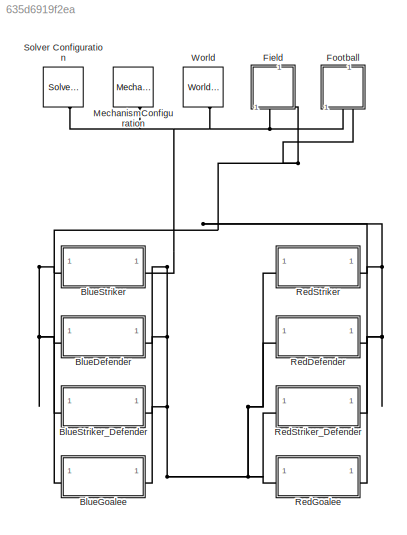
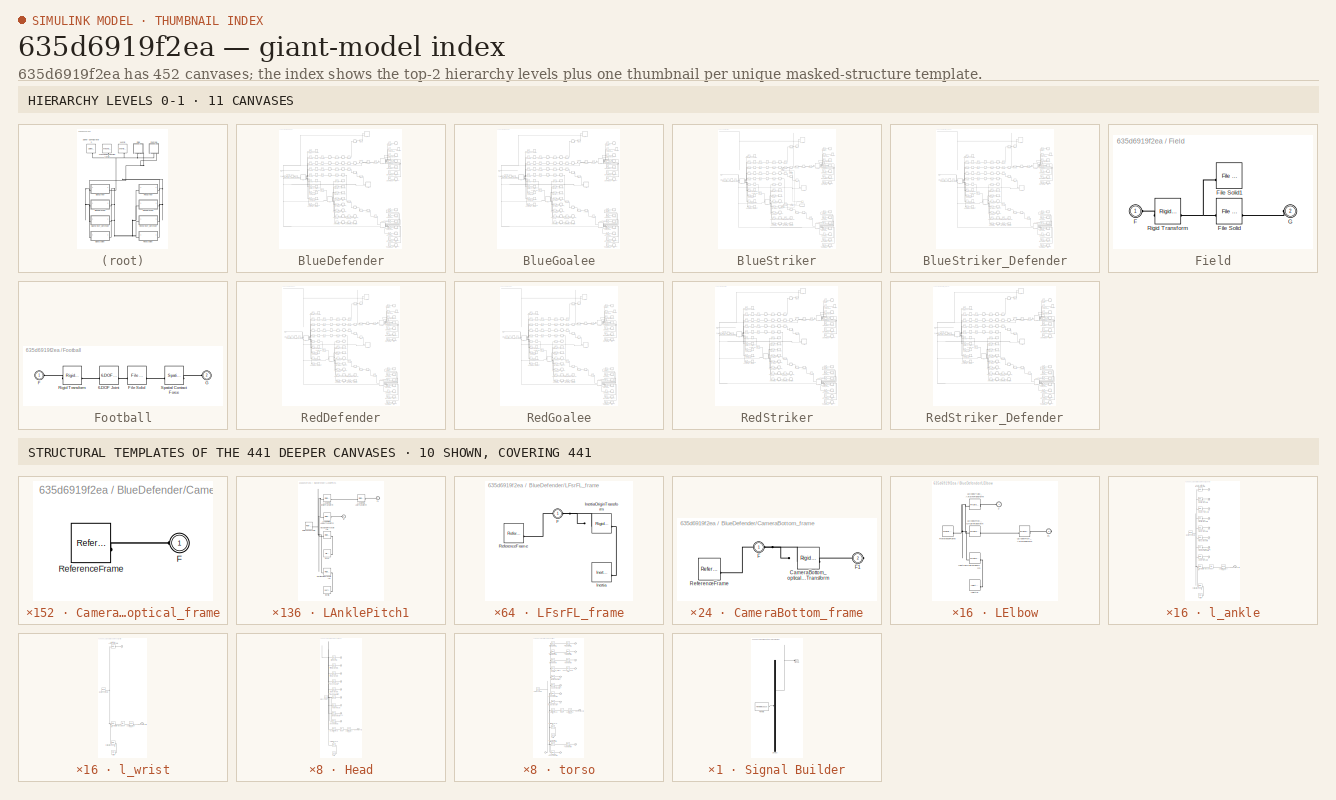
[diagram: thumbnail index - top-2 hierarchy levels (11 canvases) + 10 structural-template representatives of the remaining 441 canvases]
MODEL slx_635d6919f2ea
KIND model
CONFIG AbsTol = auto
CONFIG EnableMultiTasking = off
CONFIG FixedStep = auto
CONFIG MaxStep = auto
CONFIG MinStep = auto
CONFIG RelTol = 1e-3
CONFIG SampleTimeConstraint = Unconstrained
CONFIG SolverName = VariableStepAuto
CONFIG StartTime = 0.0
CONFIG StopTime = 200
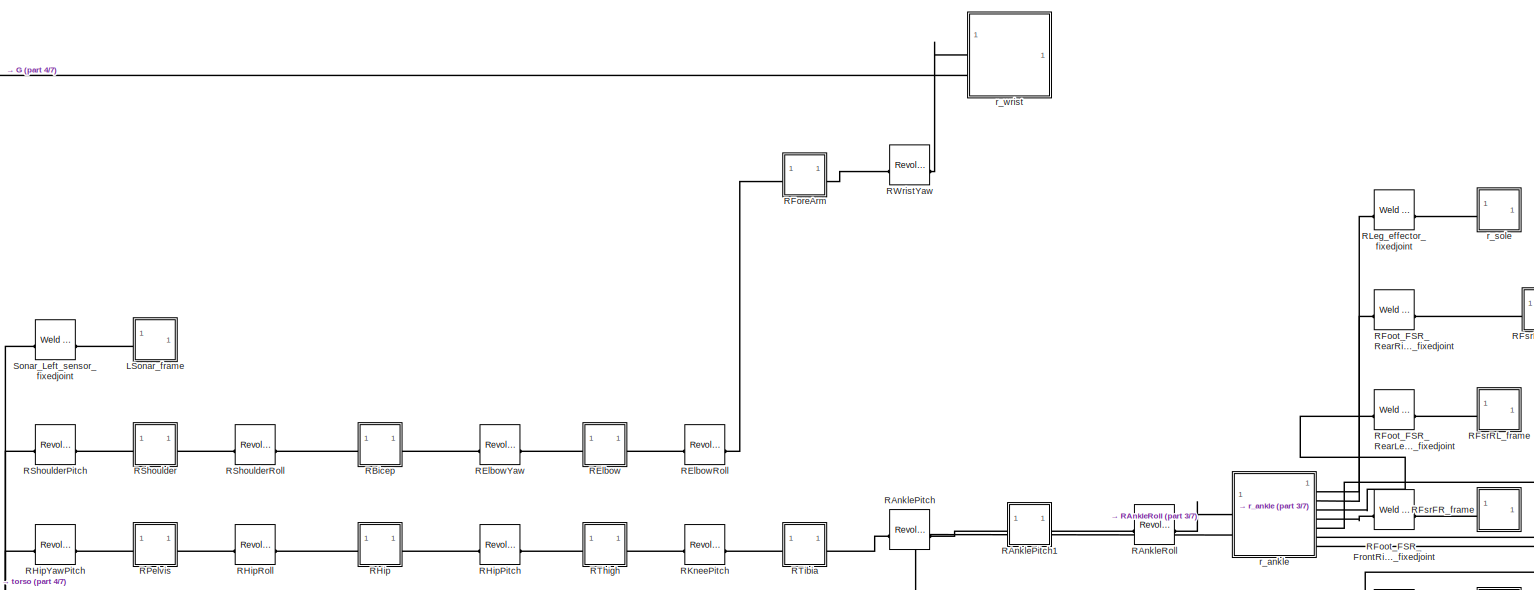
[diagram: BlueDefender - part 1/7, full width, top band]
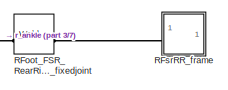
[diagram: BlueDefender - part 2/7, top right region]
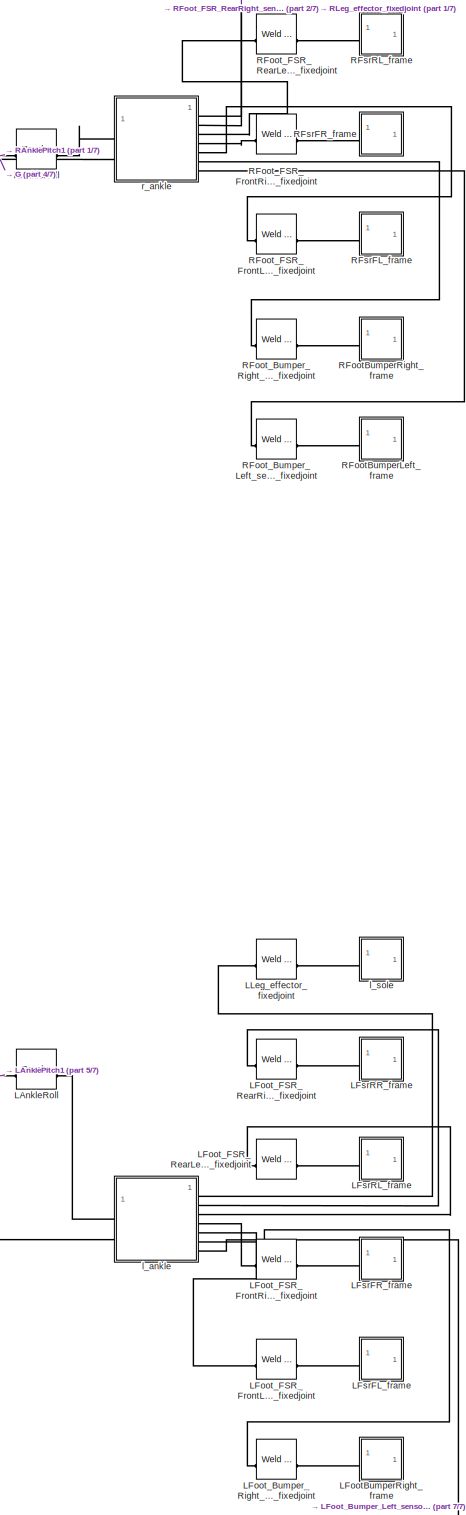
[diagram: BlueDefender - part 3/7, right side, full height]
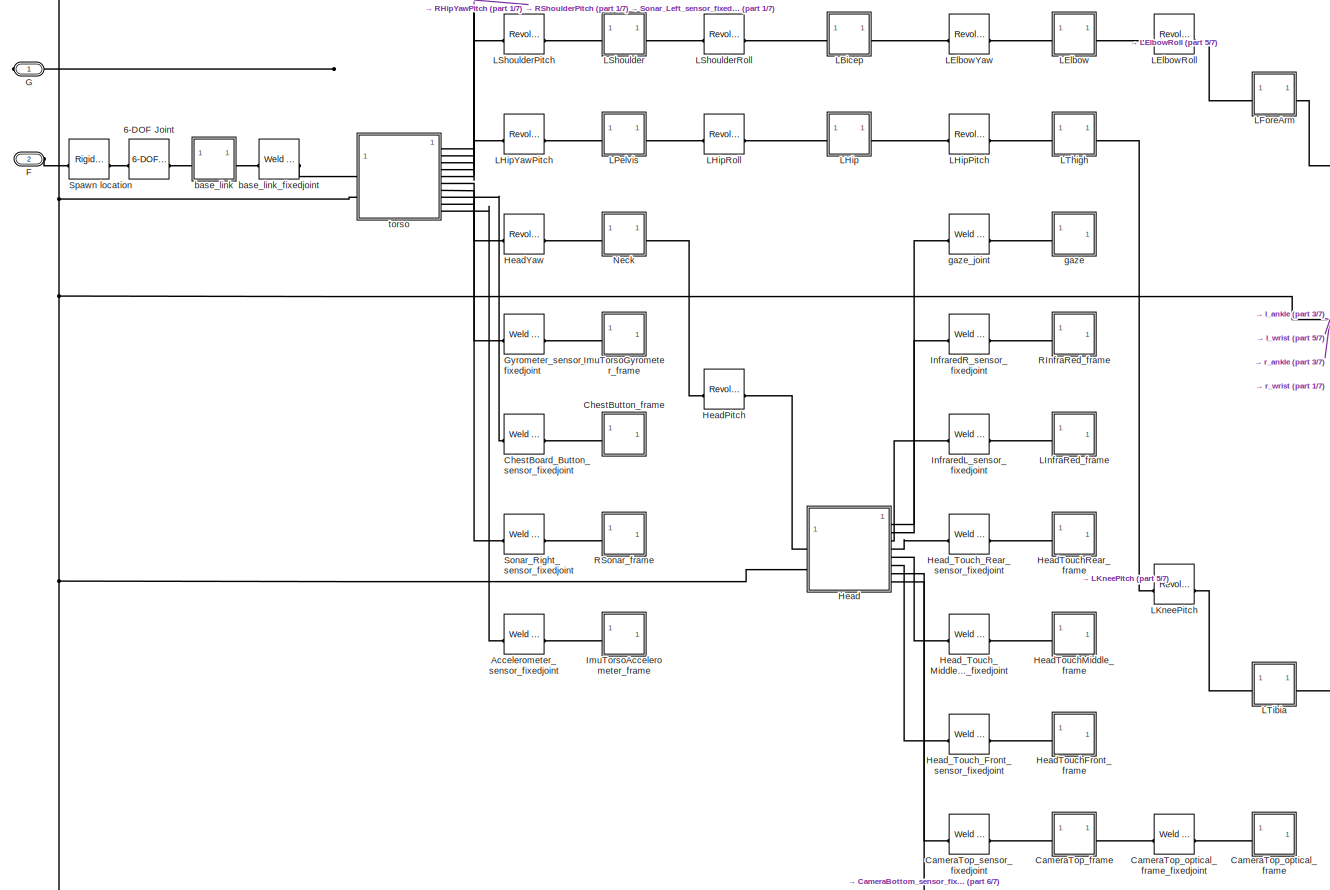
[diagram: BlueDefender - part 4/7, middle left region]
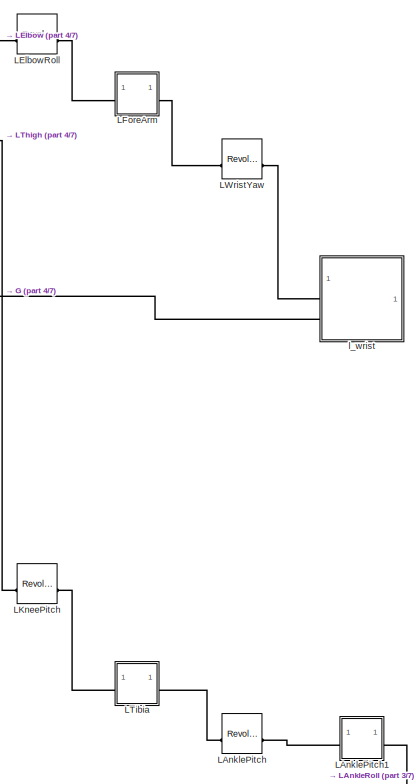
[diagram: BlueDefender - part 5/7, central region]
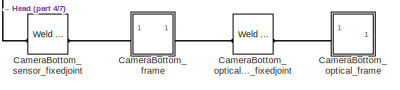
[diagram: BlueDefender - part 6/7, bottom center region]
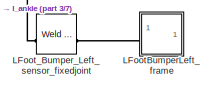
[diagram: BlueDefender - part 7/7, bottom right region]
BLOCK [SubSystem] BlueDefender
BLOCK [Reference] BlueDefender/6-DOF Joint  REF=sm_lib/Joints/6-DOF Joint
  SourceBlock = sm_lib/Joints/6-DOF Joint
  SourceType = 6-DOF Joint
BLOCK [Reference] BlueDefender/Accelerometer_sensor_fixedjoint  REF=sm_lib/Joints/Weld Joint
  SourceBlock = sm_lib/Joints/Weld Joint
  SourceType = Weld Joint
BLOCK [SubSystem] BlueDefender/CameraBottom_frame
BLOCK [Reference] BlueDefender/CameraBottom_frame/CameraBottom_optical_frame_fixedjoint_OriginTransform  REF=sm_lib/Frames and
Transforms/Rigid
Transform
  SourceBlock = sm_lib/Frames and\nTransforms/Rigid\nTransform
  SourceType = Rigid\nTransform
BLOCK [PMIOPort] BlueDefender/CameraBottom_frame/F
  Side = Left
BLOCK [PMIOPort] BlueDefender/CameraBottom_frame/F1
  Port = 2
  Side = Right
BLOCK [Reference] BlueDefender/CameraBottom_frame/ReferenceFrame  REF=sm_lib/Frames and
Transforms/Reference
Frame
  SourceBlock = sm_lib/Frames and\nTransforms/Reference\nFrame
  SourceType = Reference\nFrame
BLOCK [SubSystem] BlueDefender/CameraBottom_optical_frame
BLOCK [PMIOPort] BlueDefender/CameraBottom_optical_frame/F
  Side = Left
BLOCK [Reference] BlueDefender/CameraBottom_optical_frame/ReferenceFrame  REF=sm_lib/Frames and
Transforms/Reference
Frame
  SourceBlock = sm_lib/Frames and\nTransforms/Reference\nFrame
  SourceType = Reference\nFrame
BLOCK [Reference] BlueDefender/CameraBottom_optical_frame_fixedjoint  REF=sm_lib/Joints/Weld Joint
  SourceBlock = sm_lib/Joints/Weld Joint
  SourceType = Weld Joint
BLOCK [Reference] BlueDefender/CameraBottom_sensor_fixedjoint  REF=sm_lib/Joints/Weld Joint
  SourceBlock = sm_lib/Joints/Weld Joint
  SourceType = Weld Joint
BLOCK [SubSystem] BlueDefender/CameraTop_frame
BLOCK [Reference] BlueDefender/CameraTop_frame/CameraTop_optical_frame_fixedjoint_OriginTransform  REF=sm_lib/Frames and
Transforms/Rigid
Transform
  SourceBlock = sm_lib/Frames and\nTransforms/Rigid\nTransform
  SourceType = Rigid\nTransform
BLOCK [PMIOPort] BlueDefender/CameraTop_frame/F
  Side = Left
BLOCK [PMIOPort] BlueDefender/CameraTop_frame/F1
  Port = 2
  Side = Right
BLOCK [Reference] BlueDefender/CameraTop_frame/ReferenceFrame  REF=sm_lib/Frames and
Transforms/Reference
Frame
  SourceBlock = sm_lib/Frames and\nTransforms/Reference\nFrame
  SourceType = Reference\nFrame
BLOCK [SubSystem] BlueDefender/CameraTop_optical_frame
BLOCK [PMIOPort] BlueDefender/CameraTop_optical_frame/F
  Side = Left
BLOCK [Reference] BlueDefender/CameraTop_optical_frame/ReferenceFrame  REF=sm_lib/Frames and
Transforms/Reference
Frame
  SourceBlock = sm_lib/Frames and\nTransforms/Reference\nFrame
  SourceType = Reference\nFrame
BLOCK [Reference] BlueDefender/CameraTop_optical_frame_fixedjoint  REF=sm_lib/Joints/Weld Joint
  SourceBlock = sm_lib/Joints/Weld Joint
  SourceType = Weld Joint
BLOCK [Reference] BlueDefender/CameraTop_sensor_fixedjoint  REF=sm_lib/Joints/Weld Joint
  SourceBlock = sm_lib/Joints/Weld Joint
  SourceType = Weld Joint
BLOCK [Reference] BlueDefender/ChestBoard_Button_sensor_fixedjoint  REF=sm_lib/Joints/Weld Joint
  SourceBlock = sm_lib/Joints/Weld Joint
  SourceType = Weld Joint
BLOCK [SubSystem] BlueDefender/ChestButton_frame
BLOCK [PMIOPort] BlueDefender/ChestButton_frame/F
  Side = Left
BLOCK [Reference] BlueDefender/ChestButton_frame/ReferenceFrame  REF=sm_lib/Frames and
Transforms/Reference
Frame
  SourceBlock = sm_lib/Frames and\nTransforms/Reference\nFrame
  SourceType = Reference\nFrame
BLOCK [PMIOPort] BlueDefender/F
  Port = 2
  Side = Left
BLOCK [PMIOPort] BlueDefender/G
  Side = Right
BLOCK [Reference] BlueDefender/Gyrometer_sensor_fixedjoint  REF=sm_lib/Joints/Weld Joint
  SourceBlock = sm_lib/Joints/Weld Joint
  SourceType = Weld Joint
BLOCK [SubSystem] BlueDefender/Head
BLOCK [Reference] BlueDefender/Head/CameraBottom_sensor_fixedjoint_OriginTransform  REF=sm_lib/Frames and
Transforms/Rigid
Transform
  SourceBlock = sm_lib/Frames and\nTransforms/Rigid\nTransform
  SourceType = Rigid\nTransform
BLOCK [Reference] BlueDefender/Head/CameraTop_sensor_fixedjoint_OriginTransform  REF=sm_lib/Frames and
Transforms/Rigid
Transform
  SourceBlock = sm_lib/Frames and\nTransforms/Rigid\nTransform
  SourceType = Rigid\nTransform
BLOCK [PMIOPort] BlueDefender/Head/Connection Port1
  NameLocation = top
  Port = 10
  Side = Left
BLOCK [PMIOPort] BlueDefender/Head/F
  Side = Left
BLOCK [PMIOPort] BlueDefender/Head/F1
  Port = 9
  Side = Right
BLOCK [PMIOPort] BlueDefender/Head/F2
  Port = 8
  Side = Right
BLOCK [PMIOPort] BlueDefender/Head/F3
  Port = 7
  Side = Right
BLOCK [PMIOPort] BlueDefender/Head/F4
  Port = 6
  Side = Right
BLOCK [PMIOPort] BlueDefender/Head/F5
  Port = 5
  Side = Right
BLOCK [PMIOPort] BlueDefender/Head/F6
  Port = 4
  Side = Right
BLOCK [PMIOPort] BlueDefender/Head/F7
  Port = 3
  Side = Right
BLOCK [PMIOPort] BlueDefender/Head/F8
  Port = 2
  Side = Right
BLOCK [Reference] BlueDefender/Head/HeadPitch_AxisInvTransform  REF=sm_lib/Frames and
Transforms/Rigid
Transform
  SourceBlock = sm_lib/Frames and\nTransforms/Rigid\nTransform
  SourceType = Rigid\nTransform
BLOCK [Reference] BlueDefender/Head/Head_Touch_Front_sensor_fixedjoint_OriginTransform  REF=sm_lib/Frames and
Transforms/Rigid
Transform
  SourceBlock = sm_lib/Frames and\nTransforms/Rigid\nTransform
  SourceType = Rigid\nTransform
BLOCK [Reference] BlueDefender/Head/Head_Touch_Middle_sensor_fixedjoint_OriginTransform  REF=sm_lib/Frames and
Transforms/Rigid
Transform
  SourceBlock = sm_lib/Frames and\nTransforms/Rigid\nTransform
  SourceType = Rigid\nTransform
BLOCK [Reference] BlueDefender/Head/Head_Touch_Rear_sensor_fixedjoint_OriginTransform  REF=sm_lib/Frames and
Transforms/Rigid
Transform
  SourceBlock = sm_lib/Frames and\nTransforms/Rigid\nTransform
  SourceType = Rigid\nTransform
BLOCK [Reference] BlueDefender/Head/Inertia  REF=sm_lib/Body Elements/Inertia
  SourceBlock = sm_lib/Body Elements/Inertia
  SourceType = Inertia
BLOCK [Reference] BlueDefender/Head/InertiaOriginTransform  REF=sm_lib/Frames and
Transforms/Rigid
Transform
  SourceBlock = sm_lib/Frames and\nTransforms/Rigid\nTransform
  SourceType = Rigid\nTransform
BLOCK [Reference] BlueDefender/Head/InfraredL_sensor_fixedjoint_OriginTransform  REF=sm_lib/Frames and
Transforms/Rigid
Transform
  SourceBlock = sm_lib/Frames and\nTransforms/Rigid\nTransform
  SourceType = Rigid\nTransform
BLOCK [Reference] BlueDefender/Head/InfraredR_sensor_fixedjoint_OriginTransform  REF=sm_lib/Frames and
Transforms/Rigid
Transform
  SourceBlock = sm_lib/Frames and\nTransforms/Rigid\nTransform
  SourceType = Rigid\nTransform
BLOCK [Reference] BlueDefender/Head/ReferenceFrame  REF=sm_lib/Frames and
Transforms/Reference
Frame
  SourceBlock = sm_lib/Frames and\nTransforms/Reference\nFrame
  SourceType = Reference\nFrame
BLOCK [Reference] BlueDefender/Head/Spatial Contact Force4  REF=sm_lib/Forces and
Torques/Spatial
Contact Force
  NameLocation = top
  SourceBlock = sm_lib/Forces and\nTorques/Spatial\nContact Force
  SourceType = Spatial\nContact Force
BLOCK [Reference] BlueDefender/Head/Visual  REF=sm_lib/Body Elements/File Solid
  NameLocation = top
  SourceBlock = sm_lib/Body Elements/File Solid
  SourceType = File Solid
BLOCK [Reference] BlueDefender/Head/VisualOriginTransform  REF=sm_lib/Frames and
Transforms/Rigid
Transform
  SourceBlock = sm_lib/Frames and\nTransforms/Rigid\nTransform
  SourceType = Rigid\nTransform
BLOCK [Reference] BlueDefender/Head/gaze_joint_OriginTransform  REF=sm_lib/Frames and
Transforms/Rigid
Transform
  SourceBlock = sm_lib/Frames and\nTransforms/Rigid\nTransform
  SourceType = Rigid\nTransform
BLOCK [Reference] BlueDefender/HeadPitch  REF=sm_lib/Joints/Revolute Joint
  SourceBlock = sm_lib/Joints/Revolute Joint
  SourceType = Revolute Joint
BLOCK [SubSystem] BlueDefender/HeadTouchFront_frame
BLOCK [PMIOPort] BlueDefender/HeadTouchFront_frame/F
  Side = Left
BLOCK [Reference] BlueDefender/HeadTouchFront_frame/ReferenceFrame  REF=sm_lib/Frames and
Transforms/Reference
Frame
  SourceBlock = sm_lib/Frames and\nTransforms/Reference\nFrame
  SourceType = Reference\nFrame
BLOCK [SubSystem] BlueDefender/HeadTouchMiddle_frame
BLOCK [PMIOPort] BlueDefender/HeadTouchMiddle_frame/F
  Side = Left
BLOCK [Reference] BlueDefender/HeadTouchMiddle_frame/ReferenceFrame  REF=sm_lib/Frames and
Transforms/Reference
Frame
  SourceBlock = sm_lib/Frames and\nTransforms/Reference\nFrame
  SourceType = Reference\nFrame
BLOCK [SubSystem] BlueDefender/HeadTouchRear_frame
BLOCK [PMIOPort] BlueDefender/HeadTouchRear_frame/F
  Side = Left
BLOCK [Reference] BlueDefender/HeadTouchRear_frame/ReferenceFrame  REF=sm_lib/Frames and
Transforms/Reference
Frame
  SourceBlock = sm_lib/Frames and\nTransforms/Reference\nFrame
  SourceType = Reference\nFrame
BLOCK [Reference] BlueDefender/HeadYaw  REF=sm_lib/Joints/Revolute Joint
  SourceBlock = sm_lib/Joints/Revolute Joint
  SourceType = Revolute Joint
BLOCK [Reference] BlueDefender/Head_Touch_Front_sensor_fixedjoint  REF=sm_lib/Joints/Weld Joint
  SourceBlock = sm_lib/Joints/Weld Joint
  SourceType = Weld Joint
BLOCK [Reference] BlueDefender/Head_Touch_Middle_sensor_fixedjoint  REF=sm_lib/Joints/Weld Joint
  SourceBlock = sm_lib/Joints/Weld Joint
  SourceType = Weld Joint
BLOCK [Reference] BlueDefender/Head_Touch_Rear_sensor_fixedjoint  REF=sm_lib/Joints/Weld Joint
  SourceBlock = sm_lib/Joints/Weld Joint
  SourceType = Weld Joint
BLOCK [SubSystem] BlueDefender/ImuTorsoAccelerometer_frame
BLOCK [PMIOPort] BlueDefender/ImuTorsoAccelerometer_frame/F
  Side = Left
BLOCK [Reference] BlueDefender/ImuTorsoAccelerometer_frame/ReferenceFrame  REF=sm_lib/Frames and
Transforms/Reference
Frame
  SourceBlock = sm_lib/Frames and\nTransforms/Reference\nFrame
  SourceType = Reference\nFrame
BLOCK [SubSystem] BlueDefender/ImuTorsoGyrometer_frame
BLOCK [PMIOPort] BlueDefender/ImuTorsoGyrometer_frame/F
  Side = Left
BLOCK [Reference] BlueDefender/ImuTorsoGyrometer_frame/ReferenceFrame  REF=sm_lib/Frames and
Transforms/Reference
Frame
  SourceBlock = sm_lib/Frames and\nTransforms/Reference\nFrame
  SourceType = Reference\nFrame
BLOCK [Reference] BlueDefender/InfraredL_sensor_fixedjoint  REF=sm_lib/Joints/Weld Joint
  SourceBlock = sm_lib/Joints/Weld Joint
  SourceType = Weld Joint
BLOCK [Reference] BlueDefender/InfraredR_sensor_fixedjoint  REF=sm_lib/Joints/Weld Joint
  SourceBlock = sm_lib/Joints/Weld Joint
  SourceType = Weld Joint
BLOCK [Reference] BlueDefender/LAnklePitch  REF=sm_lib/Joints/Revolute Joint
  SourceBlock = sm_lib/Joints/Revolute Joint
  SourceType = Revolute Joint
BLOCK [SubSystem] BlueDefender/LAnklePitch1
BLOCK [PMIOPort] BlueDefender/LAnklePitch1/F
  Side = Left
BLOCK [PMIOPort] BlueDefender/LAnklePitch1/F1
  Port = 2
  Side = Right
BLOCK [Reference] BlueDefender/LAnklePitch1/Inertia  REF=sm_lib/Body Elements/Inertia
  SourceBlock = sm_lib/Body Elements/Inertia
  SourceType = Inertia
BLOCK [Reference] BlueDefender/LAnklePitch1/InertiaOriginTransform  REF=sm_lib/Frames and
Transforms/Rigid
Transform
  SourceBlock = sm_lib/Frames and\nTransforms/Rigid\nTransform
  SourceType = Rigid\nTransform
BLOCK [Reference] BlueDefender/LAnklePitch1/LAnklePitch_AxisInvTransform  REF=sm_lib/Frames and
Transforms/Rigid
Transform
  SourceBlock = sm_lib/Frames and\nTransforms/Rigid\nTransform
  SourceType = Rigid\nTransform
BLOCK [Reference] BlueDefender/LAnklePitch1/LAnkleRoll_AxisTransform  REF=sm_lib/Frames and
Transforms/Rigid
Transform
  SourceBlock = sm_lib/Frames and\nTransforms/Rigid\nTransform
  SourceType = Rigid\nTransform
BLOCK [Reference] BlueDefender/LAnklePitch1/LAnkleRoll_OriginTransform  REF=sm_lib/Frames and
Transforms/Rigid
Transform
  SourceBlock = sm_lib/Frames and\nTransforms/Rigid\nTransform
  SourceType = Rigid\nTransform
BLOCK [Reference] BlueDefender/LAnklePitch1/ReferenceFrame  REF=sm_lib/Frames and
Transforms/Reference
Frame
  SourceBlock = sm_lib/Frames and\nTransforms/Reference\nFrame
  SourceType = Reference\nFrame
BLOCK [Reference] BlueDefender/LAnklePitch1/Visual  REF=sm_lib/Body Elements/File Solid
  SourceBlock = sm_lib/Body Elements/File Solid
  SourceType = File Solid
BLOCK [Reference] BlueDefender/LAnklePitch1/VisualOriginTransform  REF=sm_lib/Frames and
Transforms/Rigid
Transform
  SourceBlock = sm_lib/Frames and\nTransforms/Rigid\nTransform
  SourceType = Rigid\nTransform
BLOCK [Reference] BlueDefender/LAnkleRoll  REF=sm_lib/Joints/Revolute Joint
  SourceBlock = sm_lib/Joints/Revolute Joint
  SourceType = Revolute Joint
BLOCK [SubSystem] BlueDefender/LBicep
BLOCK [PMIOPort] BlueDefender/LBicep/F
  Side = Left
BLOCK [PMIOPort] BlueDefender/LBicep/F1
  Port = 2
  Side = Right
BLOCK [Reference] BlueDefender/LBicep/Inertia  REF=sm_lib/Body Elements/Inertia
  SourceBlock = sm_lib/Body Elements/Inertia
  SourceType = Inertia
BLOCK [Reference] BlueDefender/LBicep/InertiaOriginTransform  REF=sm_lib/Frames and
Transforms/Rigid
Transform
  SourceBlock = sm_lib/Frames and\nTransforms/Rigid\nTransform
  SourceType = Rigid\nTransform
BLOCK [Reference] BlueDefender/LBicep/LElbowYaw_AxisTransform  REF=sm_lib/Frames and
Transforms/Rigid
Transform
  SourceBlock = sm_lib/Frames and\nTransforms/Rigid\nTransform
  SourceType = Rigid\nTransform
BLOCK [Reference] BlueDefender/LBicep/LElbowYaw_OriginTransform  REF=sm_lib/Frames and
Transforms/Rigid
Transform
  SourceBlock = sm_lib/Frames and\nTransforms/Rigid\nTransform
  SourceType = Rigid\nTransform
BLOCK [Reference] BlueDefender/LBicep/LShoulderRoll_AxisInvTransform  REF=sm_lib/Frames and
Transforms/Rigid
Transform
  SourceBlock = sm_lib/Frames and\nTransforms/Rigid\nTransform
  SourceType = Rigid\nTransform
BLOCK [Reference] BlueDefender/LBicep/ReferenceFrame  REF=sm_lib/Frames and
Transforms/Reference
Frame
  SourceBlock = sm_lib/Frames and\nTransforms/Reference\nFrame
  SourceType = Reference\nFrame
BLOCK [Reference] BlueDefender/LBicep/Visual  REF=sm_lib/Body Elements/File Solid
  SourceBlock = sm_lib/Body Elements/File Solid
  SourceType = File Solid
BLOCK [Reference] BlueDefender/LBicep/VisualOriginTransform  REF=sm_lib/Frames and
Transforms/Rigid
Transform
  SourceBlock = sm_lib/Frames and\nTransforms/Rigid\nTransform
  SourceType = Rigid\nTransform
BLOCK [SubSystem] BlueDefender/LElbow
BLOCK [PMIOPort] BlueDefender/LElbow/F
  Side = Left
BLOCK [PMIOPort] BlueDefender/LElbow/F1
  Port = 2
  Side = Right
BLOCK [Reference] BlueDefender/LElbow/Inertia  REF=sm_lib/Body Elements/Inertia
  SourceBlock = sm_lib/Body Elements/Inertia
  SourceType = Inertia
BLOCK [Reference] BlueDefender/LElbow/InertiaOriginTransform  REF=sm_lib/Frames and
Transforms/Rigid
Transform
  SourceBlock = sm_lib/Frames and\nTransforms/Rigid\nTransform
  SourceType = Rigid\nTransform
BLOCK [Reference] BlueDefender/LElbow/LElbowRoll_AxisTransform  REF=sm_lib/Frames and
Transforms/Rigid
Transform
  SourceBlock = sm_lib/Frames and\nTransforms/Rigid\nTransform
  SourceType = Rigid\nTransform
BLOCK [Reference] BlueDefender/LElbow/LElbowRoll_OriginTransform  REF=sm_lib/Frames and
Transforms/Rigid
Transform
  SourceBlock = sm_lib/Frames and\nTransforms/Rigid\nTransform
  SourceType = Rigid\nTransform
BLOCK [Reference] BlueDefender/LElbow/LElbowYaw_AxisInvTransform  REF=sm_lib/Frames and
Transforms/Rigid
Transform
  SourceBlock = sm_lib/Frames and\nTransforms/Rigid\nTransform
  SourceType = Rigid\nTransform
BLOCK [Reference] BlueDefender/LElbow/ReferenceFrame  REF=sm_lib/Frames and
Transforms/Reference
Frame
  SourceBlock = sm_lib/Frames and\nTransforms/Reference\nFrame
  SourceType = Reference\nFrame
BLOCK [Reference] BlueDefender/LElbowRoll  REF=sm_lib/Joints/Revolute Joint
  SourceBlock = sm_lib/Joints/Revolute Joint
  SourceType = Revolute Joint
BLOCK [Reference] BlueDefender/LElbowYaw  REF=sm_lib/Joints/Revolute Joint
  SourceBlock = sm_lib/Joints/Revolute Joint
  SourceType = Revolute Joint
BLOCK [SubSystem] BlueDefender/LFootBumperLeft_frame
BLOCK [PMIOPort] BlueDefender/LFootBumperLeft_frame/F
  Side = Left
BLOCK [Reference] BlueDefender/LFootBumperLeft_frame/ReferenceFrame  REF=sm_lib/Frames and
Transforms/Reference
Frame
  SourceBlock = sm_lib/Frames and\nTransforms/Reference\nFrame
  SourceType = Reference\nFrame
BLOCK [SubSystem] BlueDefender/LFootBumperRight_frame
BLOCK [PMIOPort] BlueDefender/LFootBumperRight_frame/F
  Side = Left
BLOCK [Reference] BlueDefender/LFootBumperRight_frame/ReferenceFrame  REF=sm_lib/Frames and
Transforms/Reference
Frame
  SourceBlock = sm_lib/Frames and\nTransforms/Reference\nFrame
  SourceType = Reference\nFrame
BLOCK [Reference] BlueDefender/LFoot_Bumper_Left_sensor_fixedjoint  REF=sm_lib/Joints/Weld Joint
  SourceBlock = sm_lib/Joints/Weld Joint
  SourceType = Weld Joint
BLOCK [Reference] BlueDefender/LFoot_Bumper_Right_sensor_fixedjoint  REF=sm_lib/Joints/Weld Joint
  SourceBlock = sm_lib/Joints/Weld Joint
  SourceType = Weld Joint
BLOCK [Reference] BlueDefender/LFoot_FSR_FrontLeft_sensor_fixedjoint  REF=sm_lib/Joints/Weld Joint
  SourceBlock = sm_lib/Joints/Weld Joint
  SourceType = Weld Joint
BLOCK [Reference] BlueDefender/LFoot_FSR_FrontRight_sensor_fixedjoint  REF=sm_lib/Joints/Weld Joint
  SourceBlock = sm_lib/Joints/Weld Joint
  SourceType = Weld Joint
BLOCK [Reference] BlueDefender/LFoot_FSR_RearLeft_sensor_fixedjoint  REF=sm_lib/Joints/Weld Joint
  SourceBlock = sm_lib/Joints/Weld Joint
  SourceType = Weld Joint
BLOCK [Reference] BlueDefender/LFoot_FSR_RearRight_sensor_fixedjoint  REF=sm_lib/Joints/Weld Joint
  SourceBlock = sm_lib/Joints/Weld Joint
  SourceType = Weld Joint
BLOCK [SubSystem] BlueDefender/LForeArm
BLOCK [PMIOPort] BlueDefender/LForeArm/F
  Side = Left
BLOCK [PMIOPort] BlueDefender/LForeArm/F1
  Port = 2
  Side = Right
BLOCK [Reference] BlueDefender/LForeArm/Inertia  REF=sm_lib/Body Elements/Inertia
  SourceBlock = sm_lib/Body Elements/Inertia
  SourceType = Inertia
BLOCK [Reference] BlueDefender/LForeArm/InertiaOriginTransform  REF=sm_lib/Frames and
Transforms/Rigid
Transform
  SourceBlock = sm_lib/Frames and\nTransforms/Rigid\nTransform
  SourceType = Rigid\nTransform
BLOCK [Reference] BlueDefender/LForeArm/LElbowRoll_AxisInvTransform  REF=sm_lib/Frames and
Transforms/Rigid
Transform
  SourceBlock = sm_lib/Frames and\nTransforms/Rigid\nTransform
  SourceType = Rigid\nTransform
BLOCK [Reference] BlueDefender/LForeArm/LWristYaw_AxisTransform  REF=sm_lib/Frames and
Transforms/Rigid
Transform
  SourceBlock = sm_lib/Frames and\nTransforms/Rigid\nTransform
  SourceType = Rigid\nTransform
BLOCK [Reference] BlueDefender/LForeArm/LWristYaw_OriginTransform  REF=sm_lib/Frames and
Transforms/Rigid
Transform
  SourceBlock = sm_lib/Frames and\nTransforms/Rigid\nTransform
  SourceType = Rigid\nTransform
BLOCK [Reference] BlueDefender/LForeArm/ReferenceFrame  REF=sm_lib/Frames and
Transforms/Reference
Frame
  SourceBlock = sm_lib/Frames and\nTransforms/Reference\nFrame
  SourceType = Reference\nFrame
BLOCK [Reference] BlueDefender/LForeArm/Visual  REF=sm_lib/Body Elements/File Solid
  SourceBlock = sm_lib/Body Elements/File Solid
  SourceType = File Solid
BLOCK [Reference] BlueDefender/LForeArm/VisualOriginTransform  REF=sm_lib/Frames and
Transforms/Rigid
Transform
  SourceBlock = sm_lib/Frames and\nTransforms/Rigid\nTransform
  SourceType = Rigid\nTransform
BLOCK [SubSystem] BlueDefender/LFsrFL_frame
BLOCK [PMIOPort] BlueDefender/LFsrFL_frame/F
  Side = Left
BLOCK [Reference] BlueDefender/LFsrFL_frame/Inertia  REF=sm_lib/Body Elements/Inertia
  SourceBlock = sm_lib/Body Elements/Inertia
  SourceType = Inertia
BLOCK [Reference] BlueDefender/LFsrFL_frame/InertiaOriginTransform  REF=sm_lib/Frames and
Transforms/Rigid
Transform
  SourceBlock = sm_lib/Frames and\nTransforms/Rigid\nTransform
  SourceType = Rigid\nTransform
BLOCK [Reference] BlueDefender/LFsrFL_frame/ReferenceFrame  REF=sm_lib/Frames and
Transforms/Reference
Frame
  SourceBlock = sm_lib/Frames and\nTransforms/Reference\nFrame
  SourceType = Reference\nFrame
BLOCK [SubSystem] BlueDefender/LFsrFR_frame
BLOCK [PMIOPort] BlueDefender/LFsrFR_frame/F
  Side = Left
BLOCK [Reference] BlueDefender/LFsrFR_frame/Inertia  REF=sm_lib/Body Elements/Inertia
  SourceBlock = sm_lib/Body Elements/Inertia
  SourceType = Inertia
BLOCK [Reference] BlueDefender/LFsrFR_frame/InertiaOriginTransform  REF=sm_lib/Frames and
Transforms/Rigid
Transform
  SourceBlock = sm_lib/Frames and\nTransforms/Rigid\nTransform
  SourceType = Rigid\nTransform
BLOCK [Reference] BlueDefender/LFsrFR_frame/ReferenceFrame  REF=sm_lib/Frames and
Transforms/Reference
Frame
  SourceBlock = sm_lib/Frames and\nTransforms/Reference\nFrame
  SourceType = Reference\nFrame
BLOCK [SubSystem] BlueDefender/LFsrRL_frame
BLOCK [PMIOPort] BlueDefender/LFsrRL_frame/F
  Side = Left
BLOCK [Reference] BlueDefender/LFsrRL_frame/Inertia  REF=sm_lib/Body Elements/Inertia
  SourceBlock = sm_lib/Body Elements/Inertia
  SourceType = Inertia
BLOCK [Reference] BlueDefender/LFsrRL_frame/InertiaOriginTransform  REF=sm_lib/Frames and
Transforms/Rigid
Transform
  SourceBlock = sm_lib/Frames and\nTransforms/Rigid\nTransform
  SourceType = Rigid\nTransform
BLOCK [Reference] BlueDefender/LFsrRL_frame/ReferenceFrame  REF=sm_lib/Frames and
Transforms/Reference
Frame
  SourceBlock = sm_lib/Frames and\nTransforms/Reference\nFrame
  SourceType = Reference\nFrame
BLOCK [SubSystem] BlueDefender/LFsrRR_frame
BLOCK [PMIOPort] BlueDefender/LFsrRR_frame/F
  Side = Left
BLOCK [Reference] BlueDefender/LFsrRR_frame/Inertia  REF=sm_lib/Body Elements/Inertia
  SourceBlock = sm_lib/Body Elements/Inertia
  SourceType = Inertia
BLOCK [Reference] BlueDefender/LFsrRR_frame/InertiaOriginTransform  REF=sm_lib/Frames and
Transforms/Rigid
Transform
  SourceBlock = sm_lib/Frames and\nTransforms/Rigid\nTransform
  SourceType = Rigid\nTransform
BLOCK [Reference] BlueDefender/LFsrRR_frame/ReferenceFrame  REF=sm_lib/Frames and
Transforms/Reference
Frame
  SourceBlock = sm_lib/Frames and\nTransforms/Reference\nFrame
  SourceType = Reference\nFrame
BLOCK [SubSystem] BlueDefender/LHip
BLOCK [PMIOPort] BlueDefender/LHip/F
  Side = Left
BLOCK [PMIOPort] BlueDefender/LHip/F1
  Port = 2
  Side = Right
BLOCK [Reference] BlueDefender/LHip/Inertia  REF=sm_lib/Body Elements/Inertia
  SourceBlock = sm_lib/Body Elements/Inertia
  SourceType = Inertia
BLOCK [Reference] BlueDefender/LHip/InertiaOriginTransform  REF=sm_lib/Frames and
Transforms/Rigid
Transform
  SourceBlock = sm_lib/Frames and\nTransforms/Rigid\nTransform
  SourceType = Rigid\nTransform
BLOCK [Reference] BlueDefender/LHip/LHipPitch_AxisTransform  REF=sm_lib/Frames and
Transforms/Rigid
Transform
  SourceBlock = sm_lib/Frames and\nTransforms/Rigid\nTransform
  SourceType = Rigid\nTransform
BLOCK [Reference] BlueDefender/LHip/LHipPitch_OriginTransform  REF=sm_lib/Frames and
Transforms/Rigid
Transform
  SourceBlock = sm_lib/Frames and\nTransforms/Rigid\nTransform
  SourceType = Rigid\nTransform
BLOCK [Reference] BlueDefender/LHip/LHipRoll_AxisInvTransform  REF=sm_lib/Frames and
Transforms/Rigid
Transform
  SourceBlock = sm_lib/Frames and\nTransforms/Rigid\nTransform
  SourceType = Rigid\nTransform
BLOCK [Reference] BlueDefender/LHip/ReferenceFrame  REF=sm_lib/Frames and
Transforms/Reference
Frame
  SourceBlock = sm_lib/Frames and\nTransforms/Reference\nFrame
  SourceType = Reference\nFrame
BLOCK [Reference] BlueDefender/LHip/Visual  REF=sm_lib/Body Elements/File Solid
  SourceBlock = sm_lib/Body Elements/File Solid
  SourceType = File Solid
BLOCK [Reference] BlueDefender/LHip/VisualOriginTransform  REF=sm_lib/Frames and
Transforms/Rigid
Transform
  SourceBlock = sm_lib/Frames and\nTransforms/Rigid\nTransform
  SourceType = Rigid\nTransform
BLOCK [Reference] BlueDefender/LHipPitch  REF=sm_lib/Joints/Revolute Joint
  SourceBlock = sm_lib/Joints/Revolute Joint
  SourceType = Revolute Joint
BLOCK [Reference] BlueDefender/LHipRoll  REF=sm_lib/Joints/Revolute Joint
  SourceBlock = sm_lib/Joints/Revolute Joint
  SourceType = Revolute Joint
BLOCK [Reference] BlueDefender/LHipYawPitch  REF=sm_lib/Joints/Revolute Joint
  SourceBlock = sm_lib/Joints/Revolute Joint
  SourceType = Revolute Joint
BLOCK [SubSystem] BlueDefender/LInfraRed_frame
BLOCK [PMIOPort] BlueDefender/LInfraRed_frame/F
  Side = Left
BLOCK [Reference] BlueDefender/LInfraRed_frame/ReferenceFrame  REF=sm_lib/Frames and
Transforms/Reference
Frame
  SourceBlock = sm_lib/Frames and\nTransforms/Reference\nFrame
  SourceType = Reference\nFrame
BLOCK [Reference] BlueDefender/LKneePitch  REF=sm_lib/Joints/Revolute Joint
  SourceBlock = sm_lib/Joints/Revolute Joint
  SourceType = Revolute Joint
BLOCK [Reference] BlueDefender/LLeg_effector_fixedjoint  REF=sm_lib/Joints/Weld Joint
  SourceBlock = sm_lib/Joints/Weld Joint
  SourceType = Weld Joint
BLOCK [SubSystem] BlueDefender/LPelvis
BLOCK [PMIOPort] BlueDefender/LPelvis/F
  Side = Left
BLOCK [PMIOPort] BlueDefender/LPelvis/F1
  Port = 2
  Side = Right
BLOCK [Reference] BlueDefender/LPelvis/Inertia  REF=sm_lib/Body Elements/Inertia
  SourceBlock = sm_lib/Body Elements/Inertia
  SourceType = Inertia
BLOCK [Reference] BlueDefender/LPelvis/InertiaOriginTransform  REF=sm_lib/Frames and
Transforms/Rigid
Transform
  SourceBlock = sm_lib/Frames and\nTransforms/Rigid\nTransform
  SourceType = Rigid\nTransform
BLOCK [Reference] BlueDefender/LPelvis/LHipRoll_AxisTransform  REF=sm_lib/Frames and
Transforms/Rigid
Transform
  SourceBlock = sm_lib/Frames and\nTransforms/Rigid\nTransform
  SourceType = Rigid\nTransform
BLOCK [Reference] BlueDefender/LPelvis/LHipRoll_OriginTransform  REF=sm_lib/Frames and
Transforms/Rigid
Transform
  SourceBlock = sm_lib/Frames and\nTransforms/Rigid\nTransform
  SourceType = Rigid\nTransform
BLOCK [Reference] BlueDefender/LPelvis/LHipYawPitch_AxisInvTransform  REF=sm_lib/Frames and
Transforms/Rigid
Transform
  SourceBlock = sm_lib/Frames and\nTransforms/Rigid\nTransform
  SourceType = Rigid\nTransform
BLOCK [Reference] BlueDefender/LPelvis/ReferenceFrame  REF=sm_lib/Frames and
Transforms/Reference
Frame
  SourceBlock = sm_lib/Frames and\nTransforms/Reference\nFrame
  SourceType = Reference\nFrame
BLOCK [Reference] BlueDefender/LPelvis/Visual  REF=sm_lib/Body Elements/File Solid
  SourceBlock = sm_lib/Body Elements/File Solid
  SourceType = File Solid
BLOCK [Reference] BlueDefender/LPelvis/VisualOriginTransform  REF=sm_lib/Frames and
Transforms/Rigid
Transform
  SourceBlock = sm_lib/Frames and\nTransforms/Rigid\nTransform
  SourceType = Rigid\nTransform
BLOCK [SubSystem] BlueDefender/LShoulder
BLOCK [PMIOPort] BlueDefender/LShoulder/F
  Side = Left
BLOCK [PMIOPort] BlueDefender/LShoulder/F1
  Port = 2
  Side = Right
BLOCK [Reference] BlueDefender/LShoulder/Inertia  REF=sm_lib/Body Elements/Inertia
  SourceBlock = sm_lib/Body Elements/Inertia
  SourceType = Inertia
BLOCK [Reference] BlueDefender/LShoulder/InertiaOriginTransform  REF=sm_lib/Frames and
Transforms/Rigid
Transform
  SourceBlock = sm_lib/Frames and\nTransforms/Rigid\nTransform
  SourceType = Rigid\nTransform
BLOCK [Reference] BlueDefender/LShoulder/LShoulderPitch_AxisInvTransform  REF=sm_lib/Frames and
Transforms/Rigid
Transform
  SourceBlock = sm_lib/Frames and\nTransforms/Rigid\nTransform
  SourceType = Rigid\nTransform
BLOCK [Reference] BlueDefender/LShoulder/LShoulderRoll_AxisTransform  REF=sm_lib/Frames and
Transforms/Rigid
Transform
  SourceBlock = sm_lib/Frames and\nTransforms/Rigid\nTransform
  SourceType = Rigid\nTransform
BLOCK [Reference] BlueDefender/LShoulder/LShoulderRoll_OriginTransform  REF=sm_lib/Frames and
Transforms/Rigid
Transform
  SourceBlock = sm_lib/Frames and\nTransforms/Rigid\nTransform
  SourceType = Rigid\nTransform
BLOCK [Reference] BlueDefender/LShoulder/ReferenceFrame  REF=sm_lib/Frames and
Transforms/Reference
Frame
  SourceBlock = sm_lib/Frames and\nTransforms/Reference\nFrame
  SourceType = Reference\nFrame
BLOCK [Reference] BlueDefender/LShoulder/Visual  REF=sm_lib/Body Elements/File Solid
  SourceBlock = sm_lib/Body Elements/File Solid
  SourceType = File Solid
BLOCK [Reference] BlueDefender/LShoulder/VisualOriginTransform  REF=sm_lib/Frames and
Transforms/Rigid
Transform
  SourceBlock = sm_lib/Frames and\nTransforms/Rigid\nTransform
  SourceType = Rigid\nTransform
BLOCK [Reference] BlueDefender/LShoulderPitch  REF=sm_lib/Joints/Revolute Joint
  SourceBlock = sm_lib/Joints/Revolute Joint
  SourceType = Revolute Joint
BLOCK [Reference] BlueDefender/LShoulderRoll  REF=sm_lib/Joints/Revolute Joint
  SourceBlock = sm_lib/Joints/Revolute Joint
  SourceType = Revolute Joint
BLOCK [SubSystem] BlueDefender/LSonar_frame
BLOCK [PMIOPort] BlueDefender/LSonar_frame/F
  Side = Left
BLOCK [Reference] BlueDefender/LSonar_frame/ReferenceFrame  REF=sm_lib/Frames and
Transforms/Reference
Frame
  SourceBlock = sm_lib/Frames and\nTransforms/Reference\nFrame
  SourceType = Reference\nFrame
BLOCK [SubSystem] BlueDefender/LThigh
BLOCK [PMIOPort] BlueDefender/LThigh/F
  Side = Left
BLOCK [PMIOPort] BlueDefender/LThigh/F1
  Port = 2
  Side = Right
BLOCK [Reference] BlueDefender/LThigh/Inertia  REF=sm_lib/Body Elements/Inertia
  SourceBlock = sm_lib/Body Elements/Inertia
  SourceType = Inertia
BLOCK [Reference] BlueDefender/LThigh/InertiaOriginTransform  REF=sm_lib/Frames and
Transforms/Rigid
Transform
  SourceBlock = sm_lib/Frames and\nTransforms/Rigid\nTransform
  SourceType = Rigid\nTransform
BLOCK [Reference] BlueDefender/LThigh/LHipPitch_AxisInvTransform  REF=sm_lib/Frames and
Transforms/Rigid
Transform
  SourceBlock = sm_lib/Frames and\nTransforms/Rigid\nTransform
  SourceType = Rigid\nTransform
BLOCK [Reference] BlueDefender/LThigh/LKneePitch_AxisTransform  REF=sm_lib/Frames and
Transforms/Rigid
Transform
  SourceBlock = sm_lib/Frames and\nTransforms/Rigid\nTransform
  SourceType = Rigid\nTransform
BLOCK [Reference] BlueDefender/LThigh/LKneePitch_OriginTransform  REF=sm_lib/Frames and
Transforms/Rigid
Transform
  SourceBlock = sm_lib/Frames and\nTransforms/Rigid\nTransform
  SourceType = Rigid\nTransform
BLOCK [Reference] BlueDefender/LThigh/ReferenceFrame  REF=sm_lib/Frames and
Transforms/Reference
Frame
  SourceBlock = sm_lib/Frames and\nTransforms/Reference\nFrame
  SourceType = Reference\nFrame
BLOCK [Reference] BlueDefender/LThigh/Visual  REF=sm_lib/Body Elements/File Solid
  SourceBlock = sm_lib/Body Elements/File Solid
  SourceType = File Solid
BLOCK [Reference] BlueDefender/LThigh/VisualOriginTransform  REF=sm_lib/Frames and
Transforms/Rigid
Transform
  SourceBlock = sm_lib/Frames and\nTransforms/Rigid\nTransform
  SourceType = Rigid\nTransform
BLOCK [SubSystem] BlueDefender/LTibia
BLOCK [PMIOPort] BlueDefender/LTibia/F
  Side = Left
BLOCK [PMIOPort] BlueDefender/LTibia/F1
  Port = 2
  Side = Right
BLOCK [Reference] BlueDefender/LTibia/Inertia  REF=sm_lib/Body Elements/Inertia
  SourceBlock = sm_lib/Body Elements/Inertia
  SourceType = Inertia
BLOCK [Reference] BlueDefender/LTibia/InertiaOriginTransform  REF=sm_lib/Frames and
Transforms/Rigid
Transform
  SourceBlock = sm_lib/Frames and\nTransforms/Rigid\nTransform
  SourceType = Rigid\nTransform
BLOCK [Reference] BlueDefender/LTibia/LAnklePitch_AxisTransform  REF=sm_lib/Frames and
Transforms/Rigid
Transform
  SourceBlock = sm_lib/Frames and\nTransforms/Rigid\nTransform
  SourceType = Rigid\nTransform
BLOCK [Reference] BlueDefender/LTibia/LAnklePitch_OriginTransform  REF=sm_lib/Frames and
Transforms/Rigid
Transform
  SourceBlock = sm_lib/Frames and\nTransforms/Rigid\nTransform
  SourceType = Rigid\nTransform
BLOCK [Reference] BlueDefender/LTibia/LKneePitch_AxisInvTransform  REF=sm_lib/Frames and
Transforms/Rigid
Transform
  SourceBlock = sm_lib/Frames and\nTransforms/Rigid\nTransform
  SourceType = Rigid\nTransform
BLOCK [Reference] BlueDefender/LTibia/ReferenceFrame  REF=sm_lib/Frames and
Transforms/Reference
Frame
  SourceBlock = sm_lib/Frames and\nTransforms/Reference\nFrame
  SourceType = Reference\nFrame
BLOCK [Reference] BlueDefender/LTibia/Visual  REF=sm_lib/Body Elements/File Solid
  SourceBlock = sm_lib/Body Elements/File Solid
  SourceType = File Solid
BLOCK [Reference] BlueDefender/LTibia/VisualOriginTransform  REF=sm_lib/Frames and
Transforms/Rigid
Transform
  SourceBlock = sm_lib/Frames and\nTransforms/Rigid\nTransform
  SourceType = Rigid\nTransform
BLOCK [Reference] BlueDefender/LWristYaw  REF=sm_lib/Joints/Revolute Joint
  SourceBlock = sm_lib/Joints/Revolute Joint
  SourceType = Revolute Joint
BLOCK [SubSystem] BlueDefender/Neck
BLOCK [PMIOPort] BlueDefender/Neck/F
  Side = Left
BLOCK [PMIOPort] BlueDefender/Neck/F1
  Port = 2
  Side = Right
BLOCK [Reference] BlueDefender/Neck/HeadPitch_AxisTransform  REF=sm_lib/Frames and
Transforms/Rigid
Transform
  SourceBlock = sm_lib/Frames and\nTransforms/Rigid\nTransform
  SourceType = Rigid\nTransform
BLOCK [Reference] BlueDefender/Neck/HeadPitch_OriginTransform  REF=sm_lib/Frames and
Transforms/Rigid
Transform
  SourceBlock = sm_lib/Frames and\nTransforms/Rigid\nTransform
  SourceType = Rigid\nTransform
BLOCK [Reference] BlueDefender/Neck/HeadYaw_AxisInvTransform  REF=sm_lib/Frames and
Transforms/Rigid
Transform
  SourceBlock = sm_lib/Frames and\nTransforms/Rigid\nTransform
  SourceType = Rigid\nTransform
BLOCK [Reference] BlueDefender/Neck/Inertia  REF=sm_lib/Body Elements/Inertia
  SourceBlock = sm_lib/Body Elements/Inertia
  SourceType = Inertia
BLOCK [Reference] BlueDefender/Neck/InertiaOriginTransform  REF=sm_lib/Frames and
Transforms/Rigid
Transform
  SourceBlock = sm_lib/Frames and\nTransforms/Rigid\nTransform
  SourceType = Rigid\nTransform
BLOCK [Reference] BlueDefender/Neck/ReferenceFrame  REF=sm_lib/Frames and
Transforms/Reference
Frame
  SourceBlock = sm_lib/Frames and\nTransforms/Reference\nFrame
  SourceType = Reference\nFrame
BLOCK [Reference] BlueDefender/Neck/Visual  REF=sm_lib/Body Elements/File Solid
  SourceBlock = sm_lib/Body Elements/File Solid
  SourceType = File Solid
BLOCK [Reference] BlueDefender/Neck/VisualOriginTransform  REF=sm_lib/Frames and
Transforms/Rigid
Transform
  SourceBlock = sm_lib/Frames and\nTransforms/Rigid\nTransform
  SourceType = Rigid\nTransform
BLOCK [Reference] BlueDefender/RAnklePitch  REF=sm_lib/Joints/Revolute Joint
  SourceBlock = sm_lib/Joints/Revolute Joint
  SourceType = Revolute Joint
BLOCK [SubSystem] BlueDefender/RAnklePitch1
BLOCK [PMIOPort] BlueDefender/RAnklePitch1/F
  Side = Left
BLOCK [PMIOPort] BlueDefender/RAnklePitch1/F1
  Port = 2
  Side = Right
BLOCK [Reference] BlueDefender/RAnklePitch1/Inertia  REF=sm_lib/Body Elements/Inertia
  SourceBlock = sm_lib/Body Elements/Inertia
  SourceType = Inertia
BLOCK [Reference] BlueDefender/RAnklePitch1/InertiaOriginTransform  REF=sm_lib/Frames and
Transforms/Rigid
Transform
  SourceBlock = sm_lib/Frames and\nTransforms/Rigid\nTransform
  SourceType = Rigid\nTransform
BLOCK [Reference] BlueDefender/RAnklePitch1/RAnklePitch_AxisInvTransform  REF=sm_lib/Frames and
Transforms/Rigid
Transform
  SourceBlock = sm_lib/Frames and\nTransforms/Rigid\nTransform
  SourceType = Rigid\nTransform
BLOCK [Reference] BlueDefender/RAnklePitch1/RAnkleRoll_AxisTransform  REF=sm_lib/Frames and
Transforms/Rigid
Transform
  SourceBlock = sm_lib/Frames and\nTransforms/Rigid\nTransform
  SourceType = Rigid\nTransform
BLOCK [Reference] BlueDefender/RAnklePitch1/RAnkleRoll_OriginTransform  REF=sm_lib/Frames and
Transforms/Rigid
Transform
  SourceBlock = sm_lib/Frames and\nTransforms/Rigid\nTransform
  SourceType = Rigid\nTransform
BLOCK [Reference] BlueDefender/RAnklePitch1/ReferenceFrame  REF=sm_lib/Frames and
Transforms/Reference
Frame
  SourceBlock = sm_lib/Frames and\nTransforms/Reference\nFrame
  SourceType = Reference\nFrame
BLOCK [Reference] BlueDefender/RAnklePitch1/Visual  REF=sm_lib/Body Elements/File Solid
  SourceBlock = sm_lib/Body Elements/File Solid
  SourceType = File Solid
BLOCK [Reference] BlueDefender/RAnklePitch1/VisualOriginTransform  REF=sm_lib/Frames and
Transforms/Rigid
Transform
  SourceBlock = sm_lib/Frames and\nTransforms/Rigid\nTransform
  SourceType = Rigid\nTransform
BLOCK [Reference] BlueDefender/RAnkleRoll  REF=sm_lib/Joints/Revolute Joint
  SourceBlock = sm_lib/Joints/Revolute Joint
  SourceType = Revolute Joint
BLOCK [SubSystem] BlueDefender/RBicep
BLOCK [PMIOPort] BlueDefender/RBicep/F
  Side = Left
BLOCK [PMIOPort] BlueDefender/RBicep/F1
  Port = 2
  Side = Right
BLOCK [Reference] BlueDefender/RBicep/Inertia  REF=sm_lib/Body Elements/Inertia
  SourceBlock = sm_lib/Body Elements/Inertia
  SourceType = Inertia
BLOCK [Reference] BlueDefender/RBicep/InertiaOriginTransform  REF=sm_lib/Frames and
Transforms/Rigid
Transform
  SourceBlock = sm_lib/Frames and\nTransforms/Rigid\nTransform
  SourceType = Rigid\nTransform
BLOCK [Reference] BlueDefender/RBicep/RElbowYaw_AxisTransform  REF=sm_lib/Frames and
Transforms/Rigid
Transform
  SourceBlock = sm_lib/Frames and\nTransforms/Rigid\nTransform
  SourceType = Rigid\nTransform
BLOCK [Reference] BlueDefender/RBicep/RElbowYaw_OriginTransform  REF=sm_lib/Frames and
Transforms/Rigid
Transform
  SourceBlock = sm_lib/Frames and\nTransforms/Rigid\nTransform
  SourceType = Rigid\nTransform
BLOCK [Reference] BlueDefender/RBicep/RShoulderRoll_AxisInvTransform  REF=sm_lib/Frames and
Transforms/Rigid
Transform
  SourceBlock = sm_lib/Frames and\nTransforms/Rigid\nTransform
  SourceType = Rigid\nTransform
BLOCK [Reference] BlueDefender/RBicep/ReferenceFrame  REF=sm_lib/Frames and
Transforms/Reference
Frame
  SourceBlock = sm_lib/Frames and\nTransforms/Reference\nFrame
  SourceType = Reference\nFrame
BLOCK [Reference] BlueDefender/RBicep/Visual  REF=sm_lib/Body Elements/File Solid
  SourceBlock = sm_lib/Body Elements/File Solid
  SourceType = File Solid
BLOCK [Reference] BlueDefender/RBicep/VisualOriginTransform  REF=sm_lib/Frames and
Transforms/Rigid
Transform
  SourceBlock = sm_lib/Frames and\nTransforms/Rigid\nTransform
  SourceType = Rigid\nTransform
BLOCK [SubSystem] BlueDefender/RElbow
BLOCK [PMIOPort] BlueDefender/RElbow/F
  Side = Left
BLOCK [PMIOPort] BlueDefender/RElbow/F1
  Port = 2
  Side = Right
BLOCK [Reference] BlueDefender/RElbow/Inertia  REF=sm_lib/Body Elements/Inertia
  SourceBlock = sm_lib/Body Elements/Inertia
  SourceType = Inertia
BLOCK [Reference] BlueDefender/RElbow/InertiaOriginTransform  REF=sm_lib/Frames and
Transforms/Rigid
Transform
  SourceBlock = sm_lib/Frames and\nTransforms/Rigid\nTransform
  SourceType = Rigid\nTransform
BLOCK [Reference] BlueDefender/RElbow/RElbowRoll_AxisTransform  REF=sm_lib/Frames and
Transforms/Rigid
Transform
  SourceBlock = sm_lib/Frames and\nTransforms/Rigid\nTransform
  SourceType = Rigid\nTransform
BLOCK [Reference] BlueDefender/RElbow/RElbowRoll_OriginTransform  REF=sm_lib/Frames and
Transforms/Rigid
Transform
  SourceBlock = sm_lib/Frames and\nTransforms/Rigid\nTransform
  SourceType = Rigid\nTransform
BLOCK [Reference] BlueDefender/RElbow/RElbowYaw_AxisInvTransform  REF=sm_lib/Frames and
Transforms/Rigid
Transform
  SourceBlock = sm_lib/Frames and\nTransforms/Rigid\nTransform
  SourceType = Rigid\nTransform
BLOCK [Reference] BlueDefender/RElbow/ReferenceFrame  REF=sm_lib/Frames and
Transforms/Reference
Frame
  SourceBlock = sm_lib/Frames and\nTransforms/Reference\nFrame
  SourceType = Reference\nFrame
BLOCK [Reference] BlueDefender/RElbowRoll  REF=sm_lib/Joints/Revolute Joint
  SourceBlock = sm_lib/Joints/Revolute Joint
  SourceType = Revolute Joint
BLOCK [Reference] BlueDefender/RElbowYaw  REF=sm_lib/Joints/Revolute Joint
  SourceBlock = sm_lib/Joints/Revolute Joint
  SourceType = Revolute Joint
BLOCK [SubSystem] BlueDefender/RFootBumperLeft_frame
BLOCK [PMIOPort] BlueDefender/RFootBumperLeft_frame/F
  Side = Left
BLOCK [Reference] BlueDefender/RFootBumperLeft_frame/ReferenceFrame  REF=sm_lib/Frames and
Transforms/Reference
Frame
  SourceBlock = sm_lib/Frames and\nTransforms/Reference\nFrame
  SourceType = Reference\nFrame
BLOCK [SubSystem] BlueDefender/RFootBumperRight_frame
BLOCK [PMIOPort] BlueDefender/RFootBumperRight_frame/F
  Side = Left
BLOCK [Reference] BlueDefender/RFootBumperRight_frame/ReferenceFrame  REF=sm_lib/Frames and
Transforms/Reference
Frame
  SourceBlock = sm_lib/Frames and\nTransforms/Reference\nFrame
  SourceType = Reference\nFrame
BLOCK [Reference] BlueDefender/RFoot_Bumper_Left_sensor_fixedjoint  REF=sm_lib/Joints/Weld Joint
  SourceBlock = sm_lib/Joints/Weld Joint
  SourceType = Weld Joint
BLOCK [Reference] BlueDefender/RFoot_Bumper_Right_sensor_fixedjoint  REF=sm_lib/Joints/Weld Joint
  SourceBlock = sm_lib/Joints/Weld Joint
  SourceType = Weld Joint
BLOCK [Reference] BlueDefender/RFoot_FSR_FrontLeft_sensor_fixedjoint  REF=sm_lib/Joints/Weld Joint
  SourceBlock = sm_lib/Joints/Weld Joint
  SourceType = Weld Joint
BLOCK [Reference] BlueDefender/RFoot_FSR_FrontRight_sensor_fixedjoint  REF=sm_lib/Joints/Weld Joint
  SourceBlock = sm_lib/Joints/Weld Joint
  SourceType = Weld Joint
BLOCK [Reference] BlueDefender/RFoot_FSR_RearLeft_sensor_fixedjoint  REF=sm_lib/Joints/Weld Joint
  SourceBlock = sm_lib/Joints/Weld Joint
  SourceType = Weld Joint
BLOCK [Reference] BlueDefender/RFoot_FSR_RearRight_sensor_fixedjoint  REF=sm_lib/Joints/Weld Joint
  SourceBlock = sm_lib/Joints/Weld Joint
  SourceType = Weld Joint
BLOCK [SubSystem] BlueDefender/RForeArm
BLOCK [PMIOPort] BlueDefender/RForeArm/F
  Side = Left
BLOCK [PMIOPort] BlueDefender/RForeArm/F1
  Port = 2
  Side = Right
BLOCK [Reference] BlueDefender/RForeArm/Inertia  REF=sm_lib/Body Elements/Inertia
  SourceBlock = sm_lib/Body Elements/Inertia
  SourceType = Inertia
BLOCK [Reference] BlueDefender/RForeArm/InertiaOriginTransform  REF=sm_lib/Frames and
Transforms/Rigid
Transform
  SourceBlock = sm_lib/Frames and\nTransforms/Rigid\nTransform
  SourceType = Rigid\nTransform
BLOCK [Reference] BlueDefender/RForeArm/RElbowRoll_AxisInvTransform  REF=sm_lib/Frames and
Transforms/Rigid
Transform
  SourceBlock = sm_lib/Frames and\nTransforms/Rigid\nTransform
  SourceType = Rigid\nTransform
BLOCK [Reference] BlueDefender/RForeArm/RWristYaw_AxisTransform  REF=sm_lib/Frames and
Transforms/Rigid
Transform
  SourceBlock = sm_lib/Frames and\nTransforms/Rigid\nTransform
  SourceType = Rigid\nTransform
BLOCK [Reference] BlueDefender/RForeArm/RWristYaw_OriginTransform  REF=sm_lib/Frames and
Transforms/Rigid
Transform
  SourceBlock = sm_lib/Frames and\nTransforms/Rigid\nTransform
  SourceType = Rigid\nTransform
BLOCK [Reference] BlueDefender/RForeArm/ReferenceFrame  REF=sm_lib/Frames and
Transforms/Reference
Frame
  SourceBlock = sm_lib/Frames and\nTransforms/Reference\nFrame
  SourceType = Reference\nFrame
BLOCK [Reference] BlueDefender/RForeArm/Visual  REF=sm_lib/Body Elements/File Solid
  SourceBlock = sm_lib/Body Elements/File Solid
  SourceType = File Solid
BLOCK [Reference] BlueDefender/RForeArm/VisualOriginTransform  REF=sm_lib/Frames and
Transforms/Rigid
Transform
  SourceBlock = sm_lib/Frames and\nTransforms/Rigid\nTransform
  SourceType = Rigid\nTransform
BLOCK [SubSystem] BlueDefender/RFsrFL_frame
BLOCK [PMIOPort] BlueDefender/RFsrFL_frame/F
  Side = Left
BLOCK [Reference] BlueDefender/RFsrFL_frame/Inertia  REF=sm_lib/Body Elements/Inertia
  SourceBlock = sm_lib/Body Elements/Inertia
  SourceType = Inertia
BLOCK [Reference] BlueDefender/RFsrFL_frame/InertiaOriginTransform  REF=sm_lib/Frames and
Transforms/Rigid
Transform
  SourceBlock = sm_lib/Frames and\nTransforms/Rigid\nTransform
  SourceType = Rigid\nTransform
BLOCK [Reference] BlueDefender/RFsrFL_frame/ReferenceFrame  REF=sm_lib/Frames and
Transforms/Reference
Frame
  SourceBlock = sm_lib/Frames and\nTransforms/Reference\nFrame
  SourceType = Reference\nFrame
BLOCK [SubSystem] BlueDefender/RFsrFR_frame
BLOCK [PMIOPort] BlueDefender/RFsrFR_frame/F
  Side = Left
BLOCK [Reference] BlueDefender/RFsrFR_frame/Inertia  REF=sm_lib/Body Elements/Inertia
  SourceBlock = sm_lib/Body Elements/Inertia
  SourceType = Inertia
BLOCK [Reference] BlueDefender/RFsrFR_frame/InertiaOriginTransform  REF=sm_lib/Frames and
Transforms/Rigid
Transform
  SourceBlock = sm_lib/Frames and\nTransforms/Rigid\nTransform
  SourceType = Rigid\nTransform
BLOCK [Reference] BlueDefender/RFsrFR_frame/ReferenceFrame  REF=sm_lib/Frames and
Transforms/Reference
Frame
  SourceBlock = sm_lib/Frames and\nTransforms/Reference\nFrame
  SourceType = Reference\nFrame
BLOCK [SubSystem] BlueDefender/RFsrRL_frame
BLOCK [PMIOPort] BlueDefender/RFsrRL_frame/F
  Side = Left
BLOCK [Reference] BlueDefender/RFsrRL_frame/Inertia  REF=sm_lib/Body Elements/Inertia
  SourceBlock = sm_lib/Body Elements/Inertia
  SourceType = Inertia
BLOCK [Reference] BlueDefender/RFsrRL_frame/InertiaOriginTransform  REF=sm_lib/Frames and
Transforms/Rigid
Transform
  SourceBlock = sm_lib/Frames and\nTransforms/Rigid\nTransform
  SourceType = Rigid\nTransform
BLOCK [Reference] BlueDefender/RFsrRL_frame/ReferenceFrame  REF=sm_lib/Frames and
Transforms/Reference
Frame
  SourceBlock = sm_lib/Frames and\nTransforms/Reference\nFrame
  SourceType = Reference\nFrame
BLOCK [SubSystem] BlueDefender/RFsrRR_frame
BLOCK [PMIOPort] BlueDefender/RFsrRR_frame/F
  Side = Left
BLOCK [Reference] BlueDefender/RFsrRR_frame/Inertia  REF=sm_lib/Body Elements/Inertia
  SourceBlock = sm_lib/Body Elements/Inertia
  SourceType = Inertia
BLOCK [Reference] BlueDefender/RFsrRR_frame/InertiaOriginTransform  REF=sm_lib/Frames and
Transforms/Rigid
Transform
  SourceBlock = sm_lib/Frames and\nTransforms/Rigid\nTransform
  SourceType = Rigid\nTransform
BLOCK [Reference] BlueDefender/RFsrRR_frame/ReferenceFrame  REF=sm_lib/Frames and
Transforms/Reference
Frame
  SourceBlock = sm_lib/Frames and\nTransforms/Reference\nFrame
  SourceType = Reference\nFrame
BLOCK [SubSystem] BlueDefender/RHip
BLOCK [PMIOPort] BlueDefender/RHip/F
  Side = Left
BLOCK [PMIOPort] BlueDefender/RHip/F1
  Port = 2
  Side = Right
BLOCK [Reference] BlueDefender/RHip/Inertia  REF=sm_lib/Body Elements/Inertia
  SourceBlock = sm_lib/Body Elements/Inertia
  SourceType = Inertia
BLOCK [Reference] BlueDefender/RHip/InertiaOriginTransform  REF=sm_lib/Frames and
Transforms/Rigid
Transform
  SourceBlock = sm_lib/Frames and\nTransforms/Rigid\nTransform
  SourceType = Rigid\nTransform
BLOCK [Reference] BlueDefender/RHip/RHipPitch_AxisTransform  REF=sm_lib/Frames and
Transforms/Rigid
Transform
  SourceBlock = sm_lib/Frames and\nTransforms/Rigid\nTransform
  SourceType = Rigid\nTransform
BLOCK [Reference] BlueDefender/RHip/RHipPitch_OriginTransform  REF=sm_lib/Frames and
Transforms/Rigid
Transform
  SourceBlock = sm_lib/Frames and\nTransforms/Rigid\nTransform
  SourceType = Rigid\nTransform
BLOCK [Reference] BlueDefender/RHip/RHipRoll_AxisInvTransform  REF=sm_lib/Frames and
Transforms/Rigid
Transform
  SourceBlock = sm_lib/Frames and\nTransforms/Rigid\nTransform
  SourceType = Rigid\nTransform
BLOCK [Reference] BlueDefender/RHip/ReferenceFrame  REF=sm_lib/Frames and
Transforms/Reference
Frame
  SourceBlock = sm_lib/Frames and\nTransforms/Reference\nFrame
  SourceType = Reference\nFrame
BLOCK [Reference] BlueDefender/RHip/Visual  REF=sm_lib/Body Elements/File Solid
  SourceBlock = sm_lib/Body Elements/File Solid
  SourceType = File Solid
BLOCK [Reference] BlueDefender/RHip/VisualOriginTransform  REF=sm_lib/Frames and
Transforms/Rigid
Transform
  SourceBlock = sm_lib/Frames and\nTransforms/Rigid\nTransform
  SourceType = Rigid\nTransform
BLOCK [Reference] BlueDefender/RHipPitch  REF=sm_lib/Joints/Revolute Joint
  SourceBlock = sm_lib/Joints/Revolute Joint
  SourceType = Revolute Joint
BLOCK [Reference] BlueDefender/RHipRoll  REF=sm_lib/Joints/Revolute Joint
  SourceBlock = sm_lib/Joints/Revolute Joint
  SourceType = Revolute Joint
BLOCK [Reference] BlueDefender/RHipYawPitch  REF=sm_lib/Joints/Revolute Joint
  SourceBlock = sm_lib/Joints/Revolute Joint
  SourceType = Revolute Joint
BLOCK [SubSystem] BlueDefender/RInfraRed_frame
BLOCK [PMIOPort] BlueDefender/RInfraRed_frame/F
  Side = Left
BLOCK [Reference] BlueDefender/RInfraRed_frame/ReferenceFrame  REF=sm_lib/Frames and
Transforms/Reference
Frame
  SourceBlock = sm_lib/Frames and\nTransforms/Reference\nFrame
  SourceType = Reference\nFrame
BLOCK [Reference] BlueDefender/RKneePitch  REF=sm_lib/Joints/Revolute Joint
  SourceBlock = sm_lib/Joints/Revolute Joint
  SourceType = Revolute Joint
BLOCK [Reference] BlueDefender/RLeg_effector_fixedjoint  REF=sm_lib/Joints/Weld Joint
  SourceBlock = sm_lib/Joints/Weld Joint
  SourceType = Weld Joint
BLOCK [SubSystem] BlueDefender/RPelvis
BLOCK [PMIOPort] BlueDefender/RPelvis/F
  Side = Left
BLOCK [PMIOPort] BlueDefender/RPelvis/F1
  Port = 2
  Side = Right
BLOCK [Reference] BlueDefender/RPelvis/Inertia  REF=sm_lib/Body Elements/Inertia
  SourceBlock = sm_lib/Body Elements/Inertia
  SourceType = Inertia
BLOCK [Reference] BlueDefender/RPelvis/InertiaOriginTransform  REF=sm_lib/Frames and
Transforms/Rigid
Transform
  SourceBlock = sm_lib/Frames and\nTransforms/Rigid\nTransform
  SourceType = Rigid\nTransform
BLOCK [Reference] BlueDefender/RPelvis/RHipRoll_AxisTransform  REF=sm_lib/Frames and
Transforms/Rigid
Transform
  SourceBlock = sm_lib/Frames and\nTransforms/Rigid\nTransform
  SourceType = Rigid\nTransform
BLOCK [Reference] BlueDefender/RPelvis/RHipRoll_OriginTransform  REF=sm_lib/Frames and
Transforms/Rigid
Transform
  SourceBlock = sm_lib/Frames and\nTransforms/Rigid\nTransform
  SourceType = Rigid\nTransform
BLOCK [Reference] BlueDefender/RPelvis/RHipYawPitch_AxisInvTransform  REF=sm_lib/Frames and
Transforms/Rigid
Transform
  SourceBlock = sm_lib/Frames and\nTransforms/Rigid\nTransform
  SourceType = Rigid\nTransform
BLOCK [Reference] BlueDefender/RPelvis/ReferenceFrame  REF=sm_lib/Frames and
Transforms/Reference
Frame
  SourceBlock = sm_lib/Frames and\nTransforms/Reference\nFrame
  SourceType = Reference\nFrame
BLOCK [Reference] BlueDefender/RPelvis/Visual  REF=sm_lib/Body Elements/File Solid
  SourceBlock = sm_lib/Body Elements/File Solid
  SourceType = File Solid
BLOCK [Reference] BlueDefender/RPelvis/VisualOriginTransform  REF=sm_lib/Frames and
Transforms/Rigid
Transform
  SourceBlock = sm_lib/Frames and\nTransforms/Rigid\nTransform
  SourceType = Rigid\nTransform
BLOCK [SubSystem] BlueDefender/RShoulder
BLOCK [PMIOPort] BlueDefender/RShoulder/F
  Side = Left
BLOCK [PMIOPort] BlueDefender/RShoulder/F1
  Port = 2
  Side = Right
BLOCK [Reference] BlueDefender/RShoulder/Inertia  REF=sm_lib/Body Elements/Inertia
  SourceBlock = sm_lib/Body Elements/Inertia
  SourceType = Inertia
BLOCK [Reference] BlueDefender/RShoulder/InertiaOriginTransform  REF=sm_lib/Frames and
Transforms/Rigid
Transform
  SourceBlock = sm_lib/Frames and\nTransforms/Rigid\nTransform
  SourceType = Rigid\nTransform
BLOCK [Reference] BlueDefender/RShoulder/RShoulderPitch_AxisInvTransform  REF=sm_lib/Frames and
Transforms/Rigid
Transform
  SourceBlock = sm_lib/Frames and\nTransforms/Rigid\nTransform
  SourceType = Rigid\nTransform
BLOCK [Reference] BlueDefender/RShoulder/RShoulderRoll_AxisTransform  REF=sm_lib/Frames and
Transforms/Rigid
Transform
  SourceBlock = sm_lib/Frames and\nTransforms/Rigid\nTransform
  SourceType = Rigid\nTransform
BLOCK [Reference] BlueDefender/RShoulder/RShoulderRoll_OriginTransform  REF=sm_lib/Frames and
Transforms/Rigid
Transform
  SourceBlock = sm_lib/Frames and\nTransforms/Rigid\nTransform
  SourceType = Rigid\nTransform
BLOCK [Reference] BlueDefender/RShoulder/ReferenceFrame  REF=sm_lib/Frames and
Transforms/Reference
Frame
  SourceBlock = sm_lib/Frames and\nTransforms/Reference\nFrame
  SourceType = Reference\nFrame
BLOCK [Reference] BlueDefender/RShoulder/Visual  REF=sm_lib/Body Elements/File Solid
  SourceBlock = sm_lib/Body Elements/File Solid
  SourceType = File Solid
BLOCK [Reference] BlueDefender/RShoulder/VisualOriginTransform  REF=sm_lib/Frames and
Transforms/Rigid
Transform
  SourceBlock = sm_lib/Frames and\nTransforms/Rigid\nTransform
  SourceType = Rigid\nTransform
BLOCK [Reference] BlueDefender/RShoulderPitch  REF=sm_lib/Joints/Revolute Joint
  SourceBlock = sm_lib/Joints/Revolute Joint
  SourceType = Revolute Joint
BLOCK [Reference] BlueDefender/RShoulderRoll  REF=sm_lib/Joints/Revolute Joint
  SourceBlock = sm_lib/Joints/Revolute Joint
  SourceType = Revolute Joint
BLOCK [SubSystem] BlueDefender/RSonar_frame
BLOCK [PMIOPort] BlueDefender/RSonar_frame/F
  Side = Left
BLOCK [Reference] BlueDefender/RSonar_frame/ReferenceFrame  REF=sm_lib/Frames and
Transforms/Reference
Frame
  SourceBlock = sm_lib/Frames and\nTransforms/Reference\nFrame
  SourceType = Reference\nFrame
BLOCK [SubSystem] BlueDefender/RThigh
BLOCK [PMIOPort] BlueDefender/RThigh/F
  Side = Left
BLOCK [PMIOPort] BlueDefender/RThigh/F1
  Port = 2
  Side = Right
BLOCK [Reference] BlueDefender/RThigh/Inertia  REF=sm_lib/Body Elements/Inertia
  SourceBlock = sm_lib/Body Elements/Inertia
  SourceType = Inertia
BLOCK [Reference] BlueDefender/RThigh/InertiaOriginTransform  REF=sm_lib/Frames and
Transforms/Rigid
Transform
  SourceBlock = sm_lib/Frames and\nTransforms/Rigid\nTransform
  SourceType = Rigid\nTransform
BLOCK [Reference] BlueDefender/RThigh/RHipPitch_AxisInvTransform  REF=sm_lib/Frames and
Transforms/Rigid
Transform
  SourceBlock = sm_lib/Frames and\nTransforms/Rigid\nTransform
  SourceType = Rigid\nTransform
BLOCK [Reference] BlueDefender/RThigh/RKneePitch_AxisTransform  REF=sm_lib/Frames and
Transforms/Rigid
Transform
  SourceBlock = sm_lib/Frames and\nTransforms/Rigid\nTransform
  SourceType = Rigid\nTransform
BLOCK [Reference] BlueDefender/RThigh/RKneePitch_OriginTransform  REF=sm_lib/Frames and
Transforms/Rigid
Transform
  SourceBlock = sm_lib/Frames and\nTransforms/Rigid\nTransform
  SourceType = Rigid\nTransform
BLOCK [Reference] BlueDefender/RThigh/ReferenceFrame  REF=sm_lib/Frames and
Transforms/Reference
Frame
  SourceBlock = sm_lib/Frames and\nTransforms/Reference\nFrame
  SourceType = Reference\nFrame
BLOCK [Reference] BlueDefender/RThigh/Visual  REF=sm_lib/Body Elements/File Solid
  SourceBlock = sm_lib/Body Elements/File Solid
  SourceType = File Solid
BLOCK [Reference] BlueDefender/RThigh/VisualOriginTransform  REF=sm_lib/Frames and
Transforms/Rigid
Transform
  SourceBlock = sm_lib/Frames and\nTransforms/Rigid\nTransform
  SourceType = Rigid\nTransform
BLOCK [SubSystem] BlueDefender/RTibia
BLOCK [PMIOPort] BlueDefender/RTibia/F
  Side = Left
BLOCK [PMIOPort] BlueDefender/RTibia/F1
  Port = 2
  Side = Right
BLOCK [Reference] BlueDefender/RTibia/Inertia  REF=sm_lib/Body Elements/Inertia
  SourceBlock = sm_lib/Body Elements/Inertia
  SourceType = Inertia
BLOCK [Reference] BlueDefender/RTibia/InertiaOriginTransform  REF=sm_lib/Frames and
Transforms/Rigid
Transform
  SourceBlock = sm_lib/Frames and\nTransforms/Rigid\nTransform
  SourceType = Rigid\nTransform
BLOCK [Reference] BlueDefender/RTibia/RAnklePitch_AxisTransform  REF=sm_lib/Frames and
Transforms/Rigid
Transform
  SourceBlock = sm_lib/Frames and\nTransforms/Rigid\nTransform
  SourceType = Rigid\nTransform
BLOCK [Reference] BlueDefender/RTibia/RAnklePitch_OriginTransform  REF=sm_lib/Frames and
Transforms/Rigid
Transform
  SourceBlock = sm_lib/Frames and\nTransforms/Rigid\nTransform
  SourceType = Rigid\nTransform
BLOCK [Reference] BlueDefender/RTibia/RKneePitch_AxisInvTransform  REF=sm_lib/Frames and
Transforms/Rigid
Transform
  SourceBlock = sm_lib/Frames and\nTransforms/Rigid\nTransform
  SourceType = Rigid\nTransform
BLOCK [Reference] BlueDefender/RTibia/ReferenceFrame  REF=sm_lib/Frames and
Transforms/Reference
Frame
  SourceBlock = sm_lib/Frames and\nTransforms/Reference\nFrame
  SourceType = Reference\nFrame
BLOCK [Reference] BlueDefender/RTibia/Visual  REF=sm_lib/Body Elements/File Solid
  SourceBlock = sm_lib/Body Elements/File Solid
  SourceType = File Solid
BLOCK [Reference] BlueDefender/RTibia/VisualOriginTransform  REF=sm_lib/Frames and
Transforms/Rigid
Transform
  SourceBlock = sm_lib/Frames and\nTransforms/Rigid\nTransform
  SourceType = Rigid\nTransform
BLOCK [Reference] BlueDefender/RWristYaw  REF=sm_lib/Joints/Revolute Joint
  SourceBlock = sm_lib/Joints/Revolute Joint
  SourceType = Revolute Joint
BLOCK [Reference] BlueDefender/Sonar_Left_sensor_fixedjoint  REF=sm_lib/Joints/Weld Joint
  SourceBlock = sm_lib/Joints/Weld Joint
  SourceType = Weld Joint
BLOCK [Reference] BlueDefender/Sonar_Right_sensor_fixedjoint  REF=sm_lib/Joints/Weld Joint
  SourceBlock = sm_lib/Joints/Weld Joint
  SourceType = Weld Joint
BLOCK [Reference] BlueDefender/Spawn location  REF=sm_lib/Frames and
Transforms/Rigid
Transform
  SourceBlock = sm_lib/Frames and\nTransforms/Rigid\nTransform
  SourceType = Rigid\nTransform
BLOCK [SubSystem] BlueDefender/base_link
BLOCK [PMIOPort] BlueDefender/base_link/F
  Side = Left
BLOCK [PMIOPort] BlueDefender/base_link/F1
  Port = 2
  Side = Right
BLOCK [Reference] BlueDefender/base_link/ReferenceFrame  REF=sm_lib/Frames and
Transforms/Reference
Frame
  SourceBlock = sm_lib/Frames and\nTransforms/Reference\nFrame
  SourceType = Reference\nFrame
BLOCK [Reference] BlueDefender/base_link/base_link_fixedjoint_OriginTransform  REF=sm_lib/Frames and
Transforms/Rigid
Transform
  SourceBlock = sm_lib/Frames and\nTransforms/Rigid\nTransform
  SourceType = Rigid\nTransform
BLOCK [Reference] BlueDefender/base_link_fixedjoint  REF=sm_lib/Joints/Weld Joint
  SourceBlock = sm_lib/Joints/Weld Joint
  SourceType = Weld Joint
BLOCK [SubSystem] BlueDefender/gaze
BLOCK [PMIOPort] BlueDefender/gaze/F
  Side = Left
BLOCK [Reference] BlueDefender/gaze/ReferenceFrame  REF=sm_lib/Frames and
Transforms/Reference
Frame
  SourceBlock = sm_lib/Frames and\nTransforms/Reference\nFrame
  SourceType = Reference\nFrame
BLOCK [Reference] BlueDefender/gaze_joint  REF=sm_lib/Joints/Weld Joint
  SourceBlock = sm_lib/Joints/Weld Joint
  SourceType = Weld Joint
BLOCK [SubSystem] BlueDefender/l_ankle
BLOCK [PMIOPort] BlueDefender/l_ankle/Connection Port1
  NameLocation = top
  Port = 9
  Side = Left
BLOCK [PMIOPort] BlueDefender/l_ankle/F
  Side = Left
BLOCK [PMIOPort] BlueDefender/l_ankle/F1
  Port = 8
  Side = Right
BLOCK [PMIOPort] BlueDefender/l_ankle/F2
  Port = 7
  Side = Right
BLOCK [PMIOPort] BlueDefender/l_ankle/F3
  Port = 6
  Side = Right
BLOCK [PMIOPort] BlueDefender/l_ankle/F4
  Port = 5
  Side = Right
BLOCK [PMIOPort] BlueDefender/l_ankle/F5
  Port = 4
  Side = Right
BLOCK [PMIOPort] BlueDefender/l_ankle/F6
  Port = 3
  Side = Right
BLOCK [PMIOPort] BlueDefender/l_ankle/F7
  Port = 2
  Side = Right
BLOCK [Reference] BlueDefender/l_ankle/Inertia  REF=sm_lib/Body Elements/Inertia
  SourceBlock = sm_lib/Body Elements/Inertia
  SourceType = Inertia
BLOCK [Reference] BlueDefender/l_ankle/InertiaOriginTransform  REF=sm_lib/Frames and
Transforms/Rigid
Transform
  SourceBlock = sm_lib/Frames and\nTransforms/Rigid\nTransform
  SourceType = Rigid\nTransform
BLOCK [Reference] BlueDefender/l_ankle/LAnkleRoll_AxisInvTransform  REF=sm_lib/Frames and
Transforms/Rigid
Transform
  SourceBlock = sm_lib/Frames and\nTransforms/Rigid\nTransform
  SourceType = Rigid\nTransform
BLOCK [Reference] BlueDefender/l_ankle/LFoot_Bumper_Left_sensor_fixedjoint_OriginTransform  REF=sm_lib/Frames and
Transforms/Rigid
Transform
  SourceBlock = sm_lib/Frames and\nTransforms/Rigid\nTransform
  SourceType = Rigid\nTransform
BLOCK [Reference] BlueDefender/l_ankle/LFoot_Bumper_Right_sensor_fixedjoint_OriginTransform  REF=sm_lib/Frames and
Transforms/Rigid
Transform
  SourceBlock = sm_lib/Frames and\nTransforms/Rigid\nTransform
  SourceType = Rigid\nTransform
BLOCK [Reference] BlueDefender/l_ankle/LFoot_FSR_FrontLeft_sensor_fixedjoint_OriginTransform  REF=sm_lib/Frames and
Transforms/Rigid
Transform
  SourceBlock = sm_lib/Frames and\nTransforms/Rigid\nTransform
  SourceType = Rigid\nTransform
BLOCK [Reference] BlueDefender/l_ankle/LFoot_FSR_FrontRight_sensor_fixedjoint_OriginTransform  REF=sm_lib/Frames and
Transforms/Rigid
Transform
  SourceBlock = sm_lib/Frames and\nTransforms/Rigid\nTransform
  SourceType = Rigid\nTransform
BLOCK [Reference] BlueDefender/l_ankle/LFoot_FSR_RearLeft_sensor_fixedjoint_OriginTransform  REF=sm_lib/Frames and
Transforms/Rigid
Transform
  SourceBlock = sm_lib/Frames and\nTransforms/Rigid\nTransform
  SourceType = Rigid\nTransform
BLOCK [Reference] BlueDefender/l_ankle/LFoot_FSR_RearRight_sensor_fixedjoint_OriginTransform  REF=sm_lib/Frames and
Transforms/Rigid
Transform
  SourceBlock = sm_lib/Frames and\nTransforms/Rigid\nTransform
  SourceType = Rigid\nTransform
BLOCK [Reference] BlueDefender/l_ankle/LLeg_effector_fixedjoint_OriginTransform  REF=sm_lib/Frames and
Transforms/Rigid
Transform
  SourceBlock = sm_lib/Frames and\nTransforms/Rigid\nTransform
  SourceType = Rigid\nTransform
BLOCK [Reference] BlueDefender/l_ankle/ReferenceFrame  REF=sm_lib/Frames and
Transforms/Reference
Frame
  SourceBlock = sm_lib/Frames and\nTransforms/Reference\nFrame
  SourceType = Reference\nFrame
BLOCK [Reference] BlueDefender/l_ankle/Spatial Contact Force4  REF=sm_lib/Forces and
Torques/Spatial
Contact Force
  NameLocation = top
  SourceBlock = sm_lib/Forces and\nTorques/Spatial\nContact Force
  SourceType = Spatial\nContact Force
BLOCK [Reference] BlueDefender/l_ankle/Visual  REF=sm_lib/Body Elements/File Solid
  NameLocation = top
  SourceBlock = sm_lib/Body Elements/File Solid
  SourceType = File Solid
BLOCK [Reference] BlueDefender/l_ankle/VisualOriginTransform  REF=sm_lib/Frames and
Transforms/Rigid
Transform
  SourceBlock = sm_lib/Frames and\nTransforms/Rigid\nTransform
  SourceType = Rigid\nTransform
BLOCK [SubSystem] BlueDefender/l_sole
BLOCK [PMIOPort] BlueDefender/l_sole/F
  Side = Left
BLOCK [Reference] BlueDefender/l_sole/ReferenceFrame  REF=sm_lib/Frames and
Transforms/Reference
Frame
  SourceBlock = sm_lib/Frames and\nTransforms/Reference\nFrame
  SourceType = Reference\nFrame
BLOCK [SubSystem] BlueDefender/l_wrist
BLOCK [PMIOPort] BlueDefender/l_wrist/Connection Port1
  NameLocation = top
  Port = 2
  Side = Left
BLOCK [PMIOPort] BlueDefender/l_wrist/F
  Side = Left
BLOCK [Reference] BlueDefender/l_wrist/Inertia  REF=sm_lib/Body Elements/Inertia
  SourceBlock = sm_lib/Body Elements/Inertia
  SourceType = Inertia
BLOCK [Reference] BlueDefender/l_wrist/InertiaOriginTransform  REF=sm_lib/Frames and
Transforms/Rigid
Transform
  SourceBlock = sm_lib/Frames and\nTransforms/Rigid\nTransform
  SourceType = Rigid\nTransform
BLOCK [Reference] BlueDefender/l_wrist/LWristYaw_AxisInvTransform  REF=sm_lib/Frames and
Transforms/Rigid
Transform
  SourceBlock = sm_lib/Frames and\nTransforms/Rigid\nTransform
  SourceType = Rigid\nTransform
BLOCK [Reference] BlueDefender/l_wrist/ReferenceFrame  REF=sm_lib/Frames and
Transforms/Reference
Frame
  SourceBlock = sm_lib/Frames and\nTransforms/Reference\nFrame
  SourceType = Reference\nFrame
BLOCK [Reference] BlueDefender/l_wrist/Spatial Contact Force4  REF=sm_lib/Forces and
Torques/Spatial
Contact Force
  NameLocation = top
  SourceBlock = sm_lib/Forces and\nTorques/Spatial\nContact Force
  SourceType = Spatial\nContact Force
BLOCK [Reference] BlueDefender/l_wrist/Visual  REF=sm_lib/Body Elements/File Solid
  NameLocation = top
  SourceBlock = sm_lib/Body Elements/File Solid
  SourceType = File Solid
BLOCK [Reference] BlueDefender/l_wrist/VisualOriginTransform  REF=sm_lib/Frames and
Transforms/Rigid
Transform
  SourceBlock = sm_lib/Frames and\nTransforms/Rigid\nTransform
  SourceType = Rigid\nTransform
BLOCK [SubSystem] BlueDefender/r_ankle
BLOCK [PMIOPort] BlueDefender/r_ankle/Connection Port1
  NameLocation = top
  Port = 9
  Side = Left
BLOCK [PMIOPort] BlueDefender/r_ankle/F
  Side = Left
BLOCK [PMIOPort] BlueDefender/r_ankle/F1
  Port = 8
  Side = Right
BLOCK [PMIOPort] BlueDefender/r_ankle/F2
  Port = 7
  Side = Right
BLOCK [PMIOPort] BlueDefender/r_ankle/F3
  Port = 6
  Side = Right
BLOCK [PMIOPort] BlueDefender/r_ankle/F4
  Port = 5
  Side = Right
BLOCK [PMIOPort] BlueDefender/r_ankle/F5
  Port = 4
  Side = Right
BLOCK [PMIOPort] BlueDefender/r_ankle/F6
  Port = 3
  Side = Right
BLOCK [PMIOPort] BlueDefender/r_ankle/F7
  Port = 2
  Side = Right
BLOCK [Reference] BlueDefender/r_ankle/Inertia  REF=sm_lib/Body Elements/Inertia
  SourceBlock = sm_lib/Body Elements/Inertia
  SourceType = Inertia
BLOCK [Reference] BlueDefender/r_ankle/InertiaOriginTransform  REF=sm_lib/Frames and
Transforms/Rigid
Transform
  SourceBlock = sm_lib/Frames and\nTransforms/Rigid\nTransform
  SourceType = Rigid\nTransform
BLOCK [Reference] BlueDefender/r_ankle/RAnkleRoll_AxisInvTransform  REF=sm_lib/Frames and
Transforms/Rigid
Transform
  SourceBlock = sm_lib/Frames and\nTransforms/Rigid\nTransform
  SourceType = Rigid\nTransform
BLOCK [Reference] BlueDefender/r_ankle/RFoot_Bumper_Left_sensor_fixedjoint_OriginTransform  REF=sm_lib/Frames and
Transforms/Rigid
Transform
  SourceBlock = sm_lib/Frames and\nTransforms/Rigid\nTransform
  SourceType = Rigid\nTransform
BLOCK [Reference] BlueDefender/r_ankle/RFoot_Bumper_Right_sensor_fixedjoint_OriginTransform  REF=sm_lib/Frames and
Transforms/Rigid
Transform
  SourceBlock = sm_lib/Frames and\nTransforms/Rigid\nTransform
  SourceType = Rigid\nTransform
BLOCK [Reference] BlueDefender/r_ankle/RFoot_FSR_FrontLeft_sensor_fixedjoint_OriginTransform  REF=sm_lib/Frames and
Transforms/Rigid
Transform
  SourceBlock = sm_lib/Frames and\nTransforms/Rigid\nTransform
  SourceType = Rigid\nTransform
BLOCK [Reference] BlueDefender/r_ankle/RFoot_FSR_FrontRight_sensor_fixedjoint_OriginTransform  REF=sm_lib/Frames and
Transforms/Rigid
Transform
  SourceBlock = sm_lib/Frames and\nTransforms/Rigid\nTransform
  SourceType = Rigid\nTransform
BLOCK [Reference] BlueDefender/r_ankle/RFoot_FSR_RearLeft_sensor_fixedjoint_OriginTransform  REF=sm_lib/Frames and
Transforms/Rigid
Transform
  SourceBlock = sm_lib/Frames and\nTransforms/Rigid\nTransform
  SourceType = Rigid\nTransform
BLOCK [Reference] BlueDefender/r_ankle/RFoot_FSR_RearRight_sensor_fixedjoint_OriginTransform  REF=sm_lib/Frames and
Transforms/Rigid
Transform
  SourceBlock = sm_lib/Frames and\nTransforms/Rigid\nTransform
  SourceType = Rigid\nTransform
BLOCK [Reference] BlueDefender/r_ankle/RLeg_effector_fixedjoint_OriginTransform  REF=sm_lib/Frames and
Transforms/Rigid
Transform
  SourceBlock = sm_lib/Frames and\nTransforms/Rigid\nTransform
  SourceType = Rigid\nTransform
BLOCK [Reference] BlueDefender/r_ankle/ReferenceFrame  REF=sm_lib/Frames and
Transforms/Reference
Frame
  SourceBlock = sm_lib/Frames and\nTransforms/Reference\nFrame
  SourceType = Reference\nFrame
BLOCK [Reference] BlueDefender/r_ankle/Spatial Contact Force4  REF=sm_lib/Forces and
Torques/Spatial
Contact Force
  NameLocation = top
  SourceBlock = sm_lib/Forces and\nTorques/Spatial\nContact Force
  SourceType = Spatial\nContact Force
BLOCK [Reference] BlueDefender/r_ankle/Visual  REF=sm_lib/Body Elements/File Solid
  NameLocation = top
  SourceBlock = sm_lib/Body Elements/File Solid
  SourceType = File Solid
BLOCK [Reference] BlueDefender/r_ankle/VisualOriginTransform  REF=sm_lib/Frames and
Transforms/Rigid
Transform
  SourceBlock = sm_lib/Frames and\nTransforms/Rigid\nTransform
  SourceType = Rigid\nTransform
BLOCK [SubSystem] BlueDefender/r_sole
BLOCK [PMIOPort] BlueDefender/r_sole/F
  Side = Left
BLOCK [Reference] BlueDefender/r_sole/ReferenceFrame  REF=sm_lib/Frames and
Transforms/Reference
Frame
  SourceBlock = sm_lib/Frames and\nTransforms/Reference\nFrame
  SourceType = Reference\nFrame
BLOCK [SubSystem] BlueDefender/r_wrist
BLOCK [PMIOPort] BlueDefender/r_wrist/Connection Port1
  NameLocation = top
  Port = 2
  Side = Left
BLOCK [PMIOPort] BlueDefender/r_wrist/F
  Side = Left
BLOCK [Reference] BlueDefender/r_wrist/Inertia  REF=sm_lib/Body Elements/Inertia
  SourceBlock = sm_lib/Body Elements/Inertia
  SourceType = Inertia
BLOCK [Reference] BlueDefender/r_wrist/InertiaOriginTransform  REF=sm_lib/Frames and
Transforms/Rigid
Transform
  SourceBlock = sm_lib/Frames and\nTransforms/Rigid\nTransform
  SourceType = Rigid\nTransform
BLOCK [Reference] BlueDefender/r_wrist/RWristYaw_AxisInvTransform  REF=sm_lib/Frames and
Transforms/Rigid
Transform
  SourceBlock = sm_lib/Frames and\nTransforms/Rigid\nTransform
  SourceType = Rigid\nTransform
BLOCK [Reference] BlueDefender/r_wrist/ReferenceFrame  REF=sm_lib/Frames and
Transforms/Reference
Frame
  SourceBlock = sm_lib/Frames and\nTransforms/Reference\nFrame
  SourceType = Reference\nFrame
BLOCK [Reference] BlueDefender/r_wrist/Spatial Contact Force4  REF=sm_lib/Forces and
Torques/Spatial
Contact Force
  NameLocation = top
  SourceBlock = sm_lib/Forces and\nTorques/Spatial\nContact Force
  SourceType = Spatial\nContact Force
BLOCK [Reference] BlueDefender/r_wrist/Visual  REF=sm_lib/Body Elements/File Solid
  NameLocation = top
  SourceBlock = sm_lib/Body Elements/File Solid
  SourceType = File Solid
BLOCK [Reference] BlueDefender/r_wrist/VisualOriginTransform  REF=sm_lib/Frames and
Transforms/Rigid
Transform
  SourceBlock = sm_lib/Frames and\nTransforms/Rigid\nTransform
  SourceType = Rigid\nTransform
BLOCK [SubSystem] BlueDefender/torso
BLOCK [Reference] BlueDefender/torso/Accelerometer_sensor_fixedjoint_OriginTransform  REF=sm_lib/Frames and
Transforms/Rigid
Transform
  SourceBlock = sm_lib/Frames and\nTransforms/Rigid\nTransform
  SourceType = Rigid\nTransform
BLOCK [Reference] BlueDefender/torso/ChestBoard_Button_sensor_fixedjoint_OriginTransform  REF=sm_lib/Frames and
Transforms/Rigid
Transform
  SourceBlock = sm_lib/Frames and\nTransforms/Rigid\nTransform
  SourceType = Rigid\nTransform
BLOCK [PMIOPort] BlueDefender/torso/Connection Port1
  NameLocation = top
  Port = 12
  Side = Left
BLOCK [PMIOPort] BlueDefender/torso/F
  Side = Left
BLOCK [PMIOPort] BlueDefender/torso/F1
  Port = 11
  Side = Right
BLOCK [PMIOPort] BlueDefender/torso/F10
  Port = 10
  Side = Right
BLOCK [PMIOPort] BlueDefender/torso/F2
  Port = 9
  Side = Right
BLOCK [PMIOPort] BlueDefender/torso/F3
  Port = 8
  Side = Right
BLOCK [PMIOPort] BlueDefender/torso/F4
  Port = 7
  Side = Right
BLOCK [PMIOPort] BlueDefender/torso/F5
  Port = 6
  Side = Right
BLOCK [PMIOPort] BlueDefender/torso/F6
  Port = 5
  Side = Right
BLOCK [PMIOPort] BlueDefender/torso/F7
  Port = 4
  Side = Right
BLOCK [PMIOPort] BlueDefender/torso/F8
  Port = 3
  Side = Right
BLOCK [PMIOPort] BlueDefender/torso/F9
  Port = 2
  Side = Right
BLOCK [Reference] BlueDefender/torso/Gyrometer_sensor_fixedjoint_OriginTransform  REF=sm_lib/Frames and
Transforms/Rigid
Transform
  SourceBlock = sm_lib/Frames and\nTransforms/Rigid\nTransform
  SourceType = Rigid\nTransform
BLOCK [Reference] BlueDefender/torso/HeadYaw_AxisTransform  REF=sm_lib/Frames and
Transforms/Rigid
Transform
  SourceBlock = sm_lib/Frames and\nTransforms/Rigid\nTransform
  SourceType = Rigid\nTransform
BLOCK [Reference] BlueDefender/torso/HeadYaw_OriginTransform  REF=sm_lib/Frames and
Transforms/Rigid
Transform
  SourceBlock = sm_lib/Frames and\nTransforms/Rigid\nTransform
  SourceType = Rigid\nTransform
BLOCK [Reference] BlueDefender/torso/Inertia  REF=sm_lib/Body Elements/Inertia
  SourceBlock = sm_lib/Body Elements/Inertia
  SourceType = Inertia
BLOCK [Reference] BlueDefender/torso/InertiaOriginTransform  REF=sm_lib/Frames and
Transforms/Rigid
Transform
  SourceBlock = sm_lib/Frames and\nTransforms/Rigid\nTransform
  SourceType = Rigid\nTransform
BLOCK [Reference] BlueDefender/torso/LHipYawPitch_AxisTransform  REF=sm_lib/Frames and
Transforms/Rigid
Transform
  SourceBlock = sm_lib/Frames and\nTransforms/Rigid\nTransform
  SourceType = Rigid\nTransform
BLOCK [Reference] BlueDefender/torso/LHipYawPitch_OriginTransform  REF=sm_lib/Frames and
Transforms/Rigid
Transform
  SourceBlock = sm_lib/Frames and\nTransforms/Rigid\nTransform
  SourceType = Rigid\nTransform
BLOCK [Reference] BlueDefender/torso/LShoulderPitch_AxisTransform  REF=sm_lib/Frames and
Transforms/Rigid
Transform
  SourceBlock = sm_lib/Frames and\nTransforms/Rigid\nTransform
  SourceType = Rigid\nTransform
BLOCK [Reference] BlueDefender/torso/LShoulderPitch_OriginTransform  REF=sm_lib/Frames and
Transforms/Rigid
Transform
  SourceBlock = sm_lib/Frames and\nTransforms/Rigid\nTransform
  SourceType = Rigid\nTransform
BLOCK [Reference] BlueDefender/torso/RHipYawPitch_AxisTransform  REF=sm_lib/Frames and
Transforms/Rigid
Transform
  SourceBlock = sm_lib/Frames and\nTransforms/Rigid\nTransform
  SourceType = Rigid\nTransform
BLOCK [Reference] BlueDefender/torso/RHipYawPitch_OriginTransform  REF=sm_lib/Frames and
Transforms/Rigid
Transform
  SourceBlock = sm_lib/Frames and\nTransforms/Rigid\nTransform
  SourceType = Rigid\nTransform
BLOCK [Reference] BlueDefender/torso/RShoulderPitch_AxisTransform  REF=sm_lib/Frames and
Transforms/Rigid
Transform
  SourceBlock = sm_lib/Frames and\nTransforms/Rigid\nTransform
  SourceType = Rigid\nTransform
BLOCK [Reference] BlueDefender/torso/RShoulderPitch_OriginTransform  REF=sm_lib/Frames and
Transforms/Rigid
Transform
  SourceBlock = sm_lib/Frames and\nTransforms/Rigid\nTransform
  SourceType = Rigid\nTransform
BLOCK [Reference] BlueDefender/torso/ReferenceFrame  REF=sm_lib/Frames and
Transforms/Reference
Frame
  SourceBlock = sm_lib/Frames and\nTransforms/Reference\nFrame
  SourceType = Reference\nFrame
BLOCK [Reference] BlueDefender/torso/Sonar_Left_sensor_fixedjoint_OriginTransform  REF=sm_lib/Frames and
Transforms/Rigid
Transform
  SourceBlock = sm_lib/Frames and\nTransforms/Rigid\nTransform
  SourceType = Rigid\nTransform
BLOCK [Reference] BlueDefender/torso/Sonar_Right_sensor_fixedjoint_OriginTransform  REF=sm_lib/Frames and
Transforms/Rigid
Transform
  SourceBlock = sm_lib/Frames and\nTransforms/Rigid\nTransform
  SourceType = Rigid\nTransform
BLOCK [Reference] BlueDefender/torso/Spatial Contact Force4  REF=sm_lib/Forces and
Torques/Spatial
Contact Force
  NameLocation = top
  SourceBlock = sm_lib/Forces and\nTorques/Spatial\nContact Force
  SourceType = Spatial\nContact Force
BLOCK [Reference] BlueDefender/torso/Visual  REF=sm_lib/Body Elements/File Solid
  NameLocation = top
  SourceBlock = sm_lib/Body Elements/File Solid
  SourceType = File Solid
BLOCK [Reference] BlueDefender/torso/VisualOriginTransform  REF=sm_lib/Frames and
Transforms/Rigid
Transform
  SourceBlock = sm_lib/Frames and\nTransforms/Rigid\nTransform
  SourceType = Rigid\nTransform
BLOCK [SubSystem] BlueGoalee
BLOCK [Reference] BlueGoalee/6-DOF Joint  REF=sm_lib/Joints/6-DOF Joint
  SourceBlock = sm_lib/Joints/6-DOF Joint
  SourceType = 6-DOF Joint
BLOCK [Reference] BlueGoalee/Accelerometer_sensor_fixedjoint  REF=sm_lib/Joints/Weld Joint
  SourceBlock = sm_lib/Joints/Weld Joint
  SourceType = Weld Joint
BLOCK [SubSystem] BlueGoalee/CameraBottom_frame
BLOCK [Reference] BlueGoalee/CameraBottom_frame/CameraBottom_optical_frame_fixedjoint_OriginTransform  REF=sm_lib/Frames and
Transforms/Rigid
Transform
  SourceBlock = sm_lib/Frames and\nTransforms/Rigid\nTransform
  SourceType = Rigid\nTransform
BLOCK [PMIOPort] BlueGoalee/CameraBottom_frame/F
  Side = Left
BLOCK [PMIOPort] BlueGoalee/CameraBottom_frame/F1
  Port = 2
  Side = Right
BLOCK [Reference] BlueGoalee/CameraBottom_frame/ReferenceFrame  REF=sm_lib/Frames and
Transforms/Reference
Frame
  SourceBlock = sm_lib/Frames and\nTransforms/Reference\nFrame
  SourceType = Reference\nFrame
BLOCK [SubSystem] BlueGoalee/CameraBottom_optical_frame
BLOCK [PMIOPort] BlueGoalee/CameraBottom_optical_frame/F
  Side = Left
BLOCK [Reference] BlueGoalee/CameraBottom_optical_frame/ReferenceFrame  REF=sm_lib/Frames and
Transforms/Reference
Frame
  SourceBlock = sm_lib/Frames and\nTransforms/Reference\nFrame
  SourceType = Reference\nFrame
BLOCK [Reference] BlueGoalee/CameraBottom_optical_frame_fixedjoint  REF=sm_lib/Joints/Weld Joint
  SourceBlock = sm_lib/Joints/Weld Joint
  SourceType = Weld Joint
BLOCK [Reference] BlueGoalee/CameraBottom_sensor_fixedjoint  REF=sm_lib/Joints/Weld Joint
  SourceBlock = sm_lib/Joints/Weld Joint
  SourceType = Weld Joint
BLOCK [SubSystem] BlueGoalee/CameraTop_frame
BLOCK [Reference] BlueGoalee/CameraTop_frame/CameraTop_optical_frame_fixedjoint_OriginTransform  REF=sm_lib/Frames and
Transforms/Rigid
Transform
  SourceBlock = sm_lib/Frames and\nTransforms/Rigid\nTransform
  SourceType = Rigid\nTransform
BLOCK [PMIOPort] BlueGoalee/CameraTop_frame/F
  Side = Left
BLOCK [PMIOPort] BlueGoalee/CameraTop_frame/F1
  Port = 2
  Side = Right
BLOCK [Reference] BlueGoalee/CameraTop_frame/ReferenceFrame  REF=sm_lib/Frames and
Transforms/Reference
Frame
  SourceBlock = sm_lib/Frames and\nTransforms/Reference\nFrame
  SourceType = Reference\nFrame
BLOCK [SubSystem] BlueGoalee/CameraTop_optical_frame
BLOCK [PMIOPort] BlueGoalee/CameraTop_optical_frame/F
  Side = Left
BLOCK [Reference] BlueGoalee/CameraTop_optical_frame/ReferenceFrame  REF=sm_lib/Frames and
Transforms/Reference
Frame
  SourceBlock = sm_lib/Frames and\nTransforms/Reference\nFrame
  SourceType = Reference\nFrame
BLOCK [Reference] BlueGoalee/CameraTop_optical_frame_fixedjoint  REF=sm_lib/Joints/Weld Joint
  SourceBlock = sm_lib/Joints/Weld Joint
  SourceType = Weld Joint
BLOCK [Reference] BlueGoalee/CameraTop_sensor_fixedjoint  REF=sm_lib/Joints/Weld Joint
  SourceBlock = sm_lib/Joints/Weld Joint
  SourceType = Weld Joint
BLOCK [Reference] BlueGoalee/ChestBoard_Button_sensor_fixedjoint  REF=sm_lib/Joints/Weld Joint
  SourceBlock = sm_lib/Joints/Weld Joint
  SourceType = Weld Joint
BLOCK [SubSystem] BlueGoalee/ChestButton_frame
BLOCK [PMIOPort] BlueGoalee/ChestButton_frame/F
  Side = Left
BLOCK [Reference] BlueGoalee/ChestButton_frame/ReferenceFrame  REF=sm_lib/Frames and
Transforms/Reference
Frame
  SourceBlock = sm_lib/Frames and\nTransforms/Reference\nFrame
  SourceType = Reference\nFrame
BLOCK [PMIOPort] BlueGoalee/F
  Port = 2
  Side = Left
BLOCK [PMIOPort] BlueGoalee/G
  Side = Right
BLOCK [Reference] BlueGoalee/Gyrometer_sensor_fixedjoint  REF=sm_lib/Joints/Weld Joint
  SourceBlock = sm_lib/Joints/Weld Joint
  SourceType = Weld Joint
BLOCK [SubSystem] BlueGoalee/Head
BLOCK [Reference] BlueGoalee/Head/CameraBottom_sensor_fixedjoint_OriginTransform  REF=sm_lib/Frames and
Transforms/Rigid
Transform
  SourceBlock = sm_lib/Frames and\nTransforms/Rigid\nTransform
  SourceType = Rigid\nTransform
BLOCK [Reference] BlueGoalee/Head/CameraTop_sensor_fixedjoint_OriginTransform  REF=sm_lib/Frames and
Transforms/Rigid
Transform
  SourceBlock = sm_lib/Frames and\nTransforms/Rigid\nTransform
  SourceType = Rigid\nTransform
BLOCK [PMIOPort] BlueGoalee/Head/Connection Port1
  NameLocation = top
  Port = 10
  Side = Left
BLOCK [PMIOPort] BlueGoalee/Head/F
  Side = Left
BLOCK [PMIOPort] BlueGoalee/Head/F1
  Port = 9
  Side = Right
BLOCK [PMIOPort] BlueGoalee/Head/F2
  Port = 8
  Side = Right
BLOCK [PMIOPort] BlueGoalee/Head/F3
  Port = 7
  Side = Right
BLOCK [PMIOPort] BlueGoalee/Head/F4
  Port = 6
  Side = Right
BLOCK [PMIOPort] BlueGoalee/Head/F5
  Port = 5
  Side = Right
BLOCK [PMIOPort] BlueGoalee/Head/F6
  Port = 4
  Side = Right
BLOCK [PMIOPort] BlueGoalee/Head/F7
  Port = 3
  Side = Right
BLOCK [PMIOPort] BlueGoalee/Head/F8
  Port = 2
  Side = Right
BLOCK [Reference] BlueGoalee/Head/HeadPitch_AxisInvTransform  REF=sm_lib/Frames and
Transforms/Rigid
Transform
  SourceBlock = sm_lib/Frames and\nTransforms/Rigid\nTransform
  SourceType = Rigid\nTransform
BLOCK [Reference] BlueGoalee/Head/Head_Touch_Front_sensor_fixedjoint_OriginTransform  REF=sm_lib/Frames and
Transforms/Rigid
Transform
  SourceBlock = sm_lib/Frames and\nTransforms/Rigid\nTransform
  SourceType = Rigid\nTransform
BLOCK [Reference] BlueGoalee/Head/Head_Touch_Middle_sensor_fixedjoint_OriginTransform  REF=sm_lib/Frames and
Transforms/Rigid
Transform
  SourceBlock = sm_lib/Frames and\nTransforms/Rigid\nTransform
  SourceType = Rigid\nTransform
BLOCK [Reference] BlueGoalee/Head/Head_Touch_Rear_sensor_fixedjoint_OriginTransform  REF=sm_lib/Frames and
Transforms/Rigid
Transform
  SourceBlock = sm_lib/Frames and\nTransforms/Rigid\nTransform
  SourceType = Rigid\nTransform
BLOCK [Reference] BlueGoalee/Head/Inertia  REF=sm_lib/Body Elements/Inertia
  SourceBlock = sm_lib/Body Elements/Inertia
  SourceType = Inertia
BLOCK [Reference] BlueGoalee/Head/InertiaOriginTransform  REF=sm_lib/Frames and
Transforms/Rigid
Transform
  SourceBlock = sm_lib/Frames and\nTransforms/Rigid\nTransform
  SourceType = Rigid\nTransform
BLOCK [Reference] BlueGoalee/Head/InfraredL_sensor_fixedjoint_OriginTransform  REF=sm_lib/Frames and
Transforms/Rigid
Transform
  SourceBlock = sm_lib/Frames and\nTransforms/Rigid\nTransform
  SourceType = Rigid\nTransform
BLOCK [Reference] BlueGoalee/Head/InfraredR_sensor_fixedjoint_OriginTransform  REF=sm_lib/Frames and
Transforms/Rigid
Transform
  SourceBlock = sm_lib/Frames and\nTransforms/Rigid\nTransform
  SourceType = Rigid\nTransform
BLOCK [Reference] BlueGoalee/Head/ReferenceFrame  REF=sm_lib/Frames and
Transforms/Reference
Frame
  SourceBlock = sm_lib/Frames and\nTransforms/Reference\nFrame
  SourceType = Reference\nFrame
BLOCK [Reference] BlueGoalee/Head/Spatial Contact Force4  REF=sm_lib/Forces and
Torques/Spatial
Contact Force
  NameLocation = top
  SourceBlock = sm_lib/Forces and\nTorques/Spatial\nContact Force
  SourceType = Spatial\nContact Force
BLOCK [Reference] BlueGoalee/Head/Visual  REF=sm_lib/Body Elements/File Solid
  NameLocation = top
  SourceBlock = sm_lib/Body Elements/File Solid
  SourceType = File Solid
BLOCK [Reference] BlueGoalee/Head/VisualOriginTransform  REF=sm_lib/Frames and
Transforms/Rigid
Transform
  SourceBlock = sm_lib/Frames and\nTransforms/Rigid\nTransform
  SourceType = Rigid\nTransform
BLOCK [Reference] BlueGoalee/Head/gaze_joint_OriginTransform  REF=sm_lib/Frames and
Transforms/Rigid
Transform
  SourceBlock = sm_lib/Frames and\nTransforms/Rigid\nTransform
  SourceType = Rigid\nTransform
BLOCK [Reference] BlueGoalee/HeadPitch  REF=sm_lib/Joints/Revolute Joint
  SourceBlock = sm_lib/Joints/Revolute Joint
  SourceType = Revolute Joint
BLOCK [SubSystem] BlueGoalee/HeadTouchFront_frame
BLOCK [PMIOPort] BlueGoalee/HeadTouchFront_frame/F
  Side = Left
BLOCK [Reference] BlueGoalee/HeadTouchFront_frame/ReferenceFrame  REF=sm_lib/Frames and
Transforms/Reference
Frame
  SourceBlock = sm_lib/Frames and\nTransforms/Reference\nFrame
  SourceType = Reference\nFrame
BLOCK [SubSystem] BlueGoalee/HeadTouchMiddle_frame
BLOCK [PMIOPort] BlueGoalee/HeadTouchMiddle_frame/F
  Side = Left
BLOCK [Reference] BlueGoalee/HeadTouchMiddle_frame/ReferenceFrame  REF=sm_lib/Frames and
Transforms/Reference
Frame
  SourceBlock = sm_lib/Frames and\nTransforms/Reference\nFrame
  SourceType = Reference\nFrame
BLOCK [SubSystem] BlueGoalee/HeadTouchRear_frame
BLOCK [PMIOPort] BlueGoalee/HeadTouchRear_frame/F
  Side = Left
BLOCK [Reference] BlueGoalee/HeadTouchRear_frame/ReferenceFrame  REF=sm_lib/Frames and
Transforms/Reference
Frame
  SourceBlock = sm_lib/Frames and\nTransforms/Reference\nFrame
  SourceType = Reference\nFrame
BLOCK [Reference] BlueGoalee/HeadYaw  REF=sm_lib/Joints/Revolute Joint
  SourceBlock = sm_lib/Joints/Revolute Joint
  SourceType = Revolute Joint
BLOCK [Reference] BlueGoalee/Head_Touch_Front_sensor_fixedjoint  REF=sm_lib/Joints/Weld Joint
  SourceBlock = sm_lib/Joints/Weld Joint
  SourceType = Weld Joint
BLOCK [Reference] BlueGoalee/Head_Touch_Middle_sensor_fixedjoint  REF=sm_lib/Joints/Weld Joint
  SourceBlock = sm_lib/Joints/Weld Joint
  SourceType = Weld Joint
BLOCK [Reference] BlueGoalee/Head_Touch_Rear_sensor_fixedjoint  REF=sm_lib/Joints/Weld Joint
  SourceBlock = sm_lib/Joints/Weld Joint
  SourceType = Weld Joint
BLOCK [SubSystem] BlueGoalee/ImuTorsoAccelerometer_frame
BLOCK [PMIOPort] BlueGoalee/ImuTorsoAccelerometer_frame/F
  Side = Left
BLOCK [Reference] BlueGoalee/ImuTorsoAccelerometer_frame/ReferenceFrame  REF=sm_lib/Frames and
Transforms/Reference
Frame
  SourceBlock = sm_lib/Frames and\nTransforms/Reference\nFrame
  SourceType = Reference\nFrame
BLOCK [SubSystem] BlueGoalee/ImuTorsoGyrometer_frame
BLOCK [PMIOPort] BlueGoalee/ImuTorsoGyrometer_frame/F
  Side = Left
BLOCK [Reference] BlueGoalee/ImuTorsoGyrometer_frame/ReferenceFrame  REF=sm_lib/Frames and
Transforms/Reference
Frame
  SourceBlock = sm_lib/Frames and\nTransforms/Reference\nFrame
  SourceType = Reference\nFrame
BLOCK [Reference] BlueGoalee/InfraredL_sensor_fixedjoint  REF=sm_lib/Joints/Weld Joint
  SourceBlock = sm_lib/Joints/Weld Joint
  SourceType = Weld Joint
BLOCK [Reference] BlueGoalee/InfraredR_sensor_fixedjoint  REF=sm_lib/Joints/Weld Joint
  SourceBlock = sm_lib/Joints/Weld Joint
  SourceType = Weld Joint
BLOCK [Reference] BlueGoalee/LAnklePitch  REF=sm_lib/Joints/Revolute Joint
  SourceBlock = sm_lib/Joints/Revolute Joint
  SourceType = Revolute Joint
BLOCK [SubSystem] BlueGoalee/LAnklePitch1
BLOCK [PMIOPort] BlueGoalee/LAnklePitch1/F
  Side = Left
BLOCK [PMIOPort] BlueGoalee/LAnklePitch1/F1
  Port = 2
  Side = Right
BLOCK [Reference] BlueGoalee/LAnklePitch1/Inertia  REF=sm_lib/Body Elements/Inertia
  SourceBlock = sm_lib/Body Elements/Inertia
  SourceType = Inertia
BLOCK [Reference] BlueGoalee/LAnklePitch1/InertiaOriginTransform  REF=sm_lib/Frames and
Transforms/Rigid
Transform
  SourceBlock = sm_lib/Frames and\nTransforms/Rigid\nTransform
  SourceType = Rigid\nTransform
BLOCK [Reference] BlueGoalee/LAnklePitch1/LAnklePitch_AxisInvTransform  REF=sm_lib/Frames and
Transforms/Rigid
Transform
  SourceBlock = sm_lib/Frames and\nTransforms/Rigid\nTransform
  SourceType = Rigid\nTransform
BLOCK [Reference] BlueGoalee/LAnklePitch1/LAnkleRoll_AxisTransform  REF=sm_lib/Frames and
Transforms/Rigid
Transform
  SourceBlock = sm_lib/Frames and\nTransforms/Rigid\nTransform
  SourceType = Rigid\nTransform
BLOCK [Reference] BlueGoalee/LAnklePitch1/LAnkleRoll_OriginTransform  REF=sm_lib/Frames and
Transforms/Rigid
Transform
  SourceBlock = sm_lib/Frames and\nTransforms/Rigid\nTransform
  SourceType = Rigid\nTransform
BLOCK [Reference] BlueGoalee/LAnklePitch1/ReferenceFrame  REF=sm_lib/Frames and
Transforms/Reference
Frame
  SourceBlock = sm_lib/Frames and\nTransforms/Reference\nFrame
  SourceType = Reference\nFrame
BLOCK [Reference] BlueGoalee/LAnklePitch1/Visual  REF=sm_lib/Body Elements/File Solid
  SourceBlock = sm_lib/Body Elements/File Solid
  SourceType = File Solid
BLOCK [Reference] BlueGoalee/LAnklePitch1/VisualOriginTransform  REF=sm_lib/Frames and
Transforms/Rigid
Transform
  SourceBlock = sm_lib/Frames and\nTransforms/Rigid\nTransform
  SourceType = Rigid\nTransform
BLOCK [Reference] BlueGoalee/LAnkleRoll  REF=sm_lib/Joints/Revolute Joint
  SourceBlock = sm_lib/Joints/Revolute Joint
  SourceType = Revolute Joint
BLOCK [SubSystem] BlueGoalee/LBicep
BLOCK [PMIOPort] BlueGoalee/LBicep/F
  Side = Left
BLOCK [PMIOPort] BlueGoalee/LBicep/F1
  Port = 2
  Side = Right
BLOCK [Reference] BlueGoalee/LBicep/Inertia  REF=sm_lib/Body Elements/Inertia
  SourceBlock = sm_lib/Body Elements/Inertia
  SourceType = Inertia
BLOCK [Reference] BlueGoalee/LBicep/InertiaOriginTransform  REF=sm_lib/Frames and
Transforms/Rigid
Transform
  SourceBlock = sm_lib/Frames and\nTransforms/Rigid\nTransform
  SourceType = Rigid\nTransform
BLOCK [Reference] BlueGoalee/LBicep/LElbowYaw_AxisTransform  REF=sm_lib/Frames and
Transforms/Rigid
Transform
  SourceBlock = sm_lib/Frames and\nTransforms/Rigid\nTransform
  SourceType = Rigid\nTransform
BLOCK [Reference] BlueGoalee/LBicep/LElbowYaw_OriginTransform  REF=sm_lib/Frames and
Transforms/Rigid
Transform
  SourceBlock = sm_lib/Frames and\nTransforms/Rigid\nTransform
  SourceType = Rigid\nTransform
BLOCK [Reference] BlueGoalee/LBicep/LShoulderRoll_AxisInvTransform  REF=sm_lib/Frames and
Transforms/Rigid
Transform
  SourceBlock = sm_lib/Frames and\nTransforms/Rigid\nTransform
  SourceType = Rigid\nTransform
BLOCK [Reference] BlueGoalee/LBicep/ReferenceFrame  REF=sm_lib/Frames and
Transforms/Reference
Frame
  SourceBlock = sm_lib/Frames and\nTransforms/Reference\nFrame
  SourceType = Reference\nFrame
BLOCK [Reference] BlueGoalee/LBicep/Visual  REF=sm_lib/Body Elements/File Solid
  SourceBlock = sm_lib/Body Elements/File Solid
  SourceType = File Solid
BLOCK [Reference] BlueGoalee/LBicep/VisualOriginTransform  REF=sm_lib/Frames and
Transforms/Rigid
Transform
  SourceBlock = sm_lib/Frames and\nTransforms/Rigid\nTransform
  SourceType = Rigid\nTransform
BLOCK [SubSystem] BlueGoalee/LElbow
BLOCK [PMIOPort] BlueGoalee/LElbow/F
  Side = Left
BLOCK [PMIOPort] BlueGoalee/LElbow/F1
  Port = 2
  Side = Right
BLOCK [Reference] BlueGoalee/LElbow/Inertia  REF=sm_lib/Body Elements/Inertia
  SourceBlock = sm_lib/Body Elements/Inertia
  SourceType = Inertia
BLOCK [Reference] BlueGoalee/LElbow/InertiaOriginTransform  REF=sm_lib/Frames and
Transforms/Rigid
Transform
  SourceBlock = sm_lib/Frames and\nTransforms/Rigid\nTransform
  SourceType = Rigid\nTransform
BLOCK [Reference] BlueGoalee/LElbow/LElbowRoll_AxisTransform  REF=sm_lib/Frames and
Transforms/Rigid
Transform
  SourceBlock = sm_lib/Frames and\nTransforms/Rigid\nTransform
  SourceType = Rigid\nTransform
BLOCK [Reference] BlueGoalee/LElbow/LElbowRoll_OriginTransform  REF=sm_lib/Frames and
Transforms/Rigid
Transform
  SourceBlock = sm_lib/Frames and\nTransforms/Rigid\nTransform
  SourceType = Rigid\nTransform
BLOCK [Reference] BlueGoalee/LElbow/LElbowYaw_AxisInvTransform  REF=sm_lib/Frames and
Transforms/Rigid
Transform
  SourceBlock = sm_lib/Frames and\nTransforms/Rigid\nTransform
  SourceType = Rigid\nTransform
BLOCK [Reference] BlueGoalee/LElbow/ReferenceFrame  REF=sm_lib/Frames and
Transforms/Reference
Frame
  SourceBlock = sm_lib/Frames and\nTransforms/Reference\nFrame
  SourceType = Reference\nFrame
BLOCK [Reference] BlueGoalee/LElbowRoll  REF=sm_lib/Joints/Revolute Joint
  SourceBlock = sm_lib/Joints/Revolute Joint
  SourceType = Revolute Joint
BLOCK [Reference] BlueGoalee/LElbowYaw  REF=sm_lib/Joints/Revolute Joint
  SourceBlock = sm_lib/Joints/Revolute Joint
  SourceType = Revolute Joint
BLOCK [SubSystem] BlueGoalee/LFootBumperLeft_frame
BLOCK [PMIOPort] BlueGoalee/LFootBumperLeft_frame/F
  Side = Left
BLOCK [Reference] BlueGoalee/LFootBumperLeft_frame/ReferenceFrame  REF=sm_lib/Frames and
Transforms/Reference
Frame
  SourceBlock = sm_lib/Frames and\nTransforms/Reference\nFrame
  SourceType = Reference\nFrame
BLOCK [SubSystem] BlueGoalee/LFootBumperRight_frame
BLOCK [PMIOPort] BlueGoalee/LFootBumperRight_frame/F
  Side = Left
BLOCK [Reference] BlueGoalee/LFootBumperRight_frame/ReferenceFrame  REF=sm_lib/Frames and
Transforms/Reference
Frame
  SourceBlock = sm_lib/Frames and\nTransforms/Reference\nFrame
  SourceType = Reference\nFrame
BLOCK [Reference] BlueGoalee/LFoot_Bumper_Left_sensor_fixedjoint  REF=sm_lib/Joints/Weld Joint
  SourceBlock = sm_lib/Joints/Weld Joint
  SourceType = Weld Joint
BLOCK [Reference] BlueGoalee/LFoot_Bumper_Right_sensor_fixedjoint  REF=sm_lib/Joints/Weld Joint
  SourceBlock = sm_lib/Joints/Weld Joint
  SourceType = Weld Joint
BLOCK [Reference] BlueGoalee/LFoot_FSR_FrontLeft_sensor_fixedjoint  REF=sm_lib/Joints/Weld Joint
  SourceBlock = sm_lib/Joints/Weld Joint
  SourceType = Weld Joint
BLOCK [Reference] BlueGoalee/LFoot_FSR_FrontRight_sensor_fixedjoint  REF=sm_lib/Joints/Weld Joint
  SourceBlock = sm_lib/Joints/Weld Joint
  SourceType = Weld Joint
BLOCK [Reference] BlueGoalee/LFoot_FSR_RearLeft_sensor_fixedjoint  REF=sm_lib/Joints/Weld Joint
  SourceBlock = sm_lib/Joints/Weld Joint
  SourceType = Weld Joint
BLOCK [Reference] BlueGoalee/LFoot_FSR_RearRight_sensor_fixedjoint  REF=sm_lib/Joints/Weld Joint
  SourceBlock = sm_lib/Joints/Weld Joint
  SourceType = Weld Joint
BLOCK [SubSystem] BlueGoalee/LForeArm
BLOCK [PMIOPort] BlueGoalee/LForeArm/F
  Side = Left
BLOCK [PMIOPort] BlueGoalee/LForeArm/F1
  Port = 2
  Side = Right
BLOCK [Reference] BlueGoalee/LForeArm/Inertia  REF=sm_lib/Body Elements/Inertia
  SourceBlock = sm_lib/Body Elements/Inertia
  SourceType = Inertia
BLOCK [Reference] BlueGoalee/LForeArm/InertiaOriginTransform  REF=sm_lib/Frames and
Transforms/Rigid
Transform
  SourceBlock = sm_lib/Frames and\nTransforms/Rigid\nTransform
  SourceType = Rigid\nTransform
BLOCK [Reference] BlueGoalee/LForeArm/LElbowRoll_AxisInvTransform  REF=sm_lib/Frames and
Transforms/Rigid
Transform
  SourceBlock = sm_lib/Frames and\nTransforms/Rigid\nTransform
  SourceType = Rigid\nTransform
BLOCK [Reference] BlueGoalee/LForeArm/LWristYaw_AxisTransform  REF=sm_lib/Frames and
Transforms/Rigid
Transform
  SourceBlock = sm_lib/Frames and\nTransforms/Rigid\nTransform
  SourceType = Rigid\nTransform
BLOCK [Reference] BlueGoalee/LForeArm/LWristYaw_OriginTransform  REF=sm_lib/Frames and
Transforms/Rigid
Transform
  SourceBlock = sm_lib/Frames and\nTransforms/Rigid\nTransform
  SourceType = Rigid\nTransform
BLOCK [Reference] BlueGoalee/LForeArm/ReferenceFrame  REF=sm_lib/Frames and
Transforms/Reference
Frame
  SourceBlock = sm_lib/Frames and\nTransforms/Reference\nFrame
  SourceType = Reference\nFrame
BLOCK [Reference] BlueGoalee/LForeArm/Visual  REF=sm_lib/Body Elements/File Solid
  SourceBlock = sm_lib/Body Elements/File Solid
  SourceType = File Solid
BLOCK [Reference] BlueGoalee/LForeArm/VisualOriginTransform  REF=sm_lib/Frames and
Transforms/Rigid
Transform
  SourceBlock = sm_lib/Frames and\nTransforms/Rigid\nTransform
  SourceType = Rigid\nTransform
BLOCK [SubSystem] BlueGoalee/LFsrFL_frame
BLOCK [PMIOPort] BlueGoalee/LFsrFL_frame/F
  Side = Left
BLOCK [Reference] BlueGoalee/LFsrFL_frame/Inertia  REF=sm_lib/Body Elements/Inertia
  SourceBlock = sm_lib/Body Elements/Inertia
  SourceType = Inertia
BLOCK [Reference] BlueGoalee/LFsrFL_frame/InertiaOriginTransform  REF=sm_lib/Frames and
Transforms/Rigid
Transform
  SourceBlock = sm_lib/Frames and\nTransforms/Rigid\nTransform
  SourceType = Rigid\nTransform
BLOCK [Reference] BlueGoalee/LFsrFL_frame/ReferenceFrame  REF=sm_lib/Frames and
Transforms/Reference
Frame
  SourceBlock = sm_lib/Frames and\nTransforms/Reference\nFrame
  SourceType = Reference\nFrame
BLOCK [SubSystem] BlueGoalee/LFsrFR_frame
BLOCK [PMIOPort] BlueGoalee/LFsrFR_frame/F
  Side = Left
BLOCK [Reference] BlueGoalee/LFsrFR_frame/Inertia  REF=sm_lib/Body Elements/Inertia
  SourceBlock = sm_lib/Body Elements/Inertia
  SourceType = Inertia
BLOCK [Reference] BlueGoalee/LFsrFR_frame/InertiaOriginTransform  REF=sm_lib/Frames and
Transforms/Rigid
Transform
  SourceBlock = sm_lib/Frames and\nTransforms/Rigid\nTransform
  SourceType = Rigid\nTransform
BLOCK [Reference] BlueGoalee/LFsrFR_frame/ReferenceFrame  REF=sm_lib/Frames and
Transforms/Reference
Frame
  SourceBlock = sm_lib/Frames and\nTransforms/Reference\nFrame
  SourceType = Reference\nFrame
BLOCK [SubSystem] BlueGoalee/LFsrRL_frame
BLOCK [PMIOPort] BlueGoalee/LFsrRL_frame/F
  Side = Left
BLOCK [Reference] BlueGoalee/LFsrRL_frame/Inertia  REF=sm_lib/Body Elements/Inertia
  SourceBlock = sm_lib/Body Elements/Inertia
  SourceType = Inertia
BLOCK [Reference] BlueGoalee/LFsrRL_frame/InertiaOriginTransform  REF=sm_lib/Frames and
Transforms/Rigid
Transform
  SourceBlock = sm_lib/Frames and\nTransforms/Rigid\nTransform
  SourceType = Rigid\nTransform
BLOCK [Reference] BlueGoalee/LFsrRL_frame/ReferenceFrame  REF=sm_lib/Frames and
Transforms/Reference
Frame
  SourceBlock = sm_lib/Frames and\nTransforms/Reference\nFrame
  SourceType = Reference\nFrame
BLOCK [SubSystem] BlueGoalee/LFsrRR_frame
BLOCK [PMIOPort] BlueGoalee/LFsrRR_frame/F
  Side = Left
BLOCK [Reference] BlueGoalee/LFsrRR_frame/Inertia  REF=sm_lib/Body Elements/Inertia
  SourceBlock = sm_lib/Body Elements/Inertia
  SourceType = Inertia
BLOCK [Reference] BlueGoalee/LFsrRR_frame/InertiaOriginTransform  REF=sm_lib/Frames and
Transforms/Rigid
Transform
  SourceBlock = sm_lib/Frames and\nTransforms/Rigid\nTransform
  SourceType = Rigid\nTransform
BLOCK [Reference] BlueGoalee/LFsrRR_frame/ReferenceFrame  REF=sm_lib/Frames and
Transforms/Reference
Frame
  SourceBlock = sm_lib/Frames and\nTransforms/Reference\nFrame
  SourceType = Reference\nFrame
BLOCK [SubSystem] BlueGoalee/LHip
BLOCK [PMIOPort] BlueGoalee/LHip/F
  Side = Left
BLOCK [PMIOPort] BlueGoalee/LHip/F1
  Port = 2
  Side = Right
BLOCK [Reference] BlueGoalee/LHip/Inertia  REF=sm_lib/Body Elements/Inertia
  SourceBlock = sm_lib/Body Elements/Inertia
  SourceType = Inertia
BLOCK [Reference] BlueGoalee/LHip/InertiaOriginTransform  REF=sm_lib/Frames and
Transforms/Rigid
Transform
  SourceBlock = sm_lib/Frames and\nTransforms/Rigid\nTransform
  SourceType = Rigid\nTransform
BLOCK [Reference] BlueGoalee/LHip/LHipPitch_AxisTransform  REF=sm_lib/Frames and
Transforms/Rigid
Transform
  SourceBlock = sm_lib/Frames and\nTransforms/Rigid\nTransform
  SourceType = Rigid\nTransform
BLOCK [Reference] BlueGoalee/LHip/LHipPitch_OriginTransform  REF=sm_lib/Frames and
Transforms/Rigid
Transform
  SourceBlock = sm_lib/Frames and\nTransforms/Rigid\nTransform
  SourceType = Rigid\nTransform
BLOCK [Reference] BlueGoalee/LHip/LHipRoll_AxisInvTransform  REF=sm_lib/Frames and
Transforms/Rigid
Transform
  SourceBlock = sm_lib/Frames and\nTransforms/Rigid\nTransform
  SourceType = Rigid\nTransform
BLOCK [Reference] BlueGoalee/LHip/ReferenceFrame  REF=sm_lib/Frames and
Transforms/Reference
Frame
  SourceBlock = sm_lib/Frames and\nTransforms/Reference\nFrame
  SourceType = Reference\nFrame
BLOCK [Reference] BlueGoalee/LHip/Visual  REF=sm_lib/Body Elements/File Solid
  SourceBlock = sm_lib/Body Elements/File Solid
  SourceType = File Solid
BLOCK [Reference] BlueGoalee/LHip/VisualOriginTransform  REF=sm_lib/Frames and
Transforms/Rigid
Transform
  SourceBlock = sm_lib/Frames and\nTransforms/Rigid\nTransform
  SourceType = Rigid\nTransform
BLOCK [Reference] BlueGoalee/LHipPitch  REF=sm_lib/Joints/Revolute Joint
  SourceBlock = sm_lib/Joints/Revolute Joint
  SourceType = Revolute Joint
BLOCK [Reference] BlueGoalee/LHipRoll  REF=sm_lib/Joints/Revolute Joint
  SourceBlock = sm_lib/Joints/Revolute Joint
  SourceType = Revolute Joint
BLOCK [Reference] BlueGoalee/LHipYawPitch  REF=sm_lib/Joints/Revolute Joint
  SourceBlock = sm_lib/Joints/Revolute Joint
  SourceType = Revolute Joint
BLOCK [SubSystem] BlueGoalee/LInfraRed_frame
BLOCK [PMIOPort] BlueGoalee/LInfraRed_frame/F
  Side = Left
BLOCK [Reference] BlueGoalee/LInfraRed_frame/ReferenceFrame  REF=sm_lib/Frames and
Transforms/Reference
Frame
  SourceBlock = sm_lib/Frames and\nTransforms/Reference\nFrame
  SourceType = Reference\nFrame
BLOCK [Reference] BlueGoalee/LKneePitch  REF=sm_lib/Joints/Revolute Joint
  SourceBlock = sm_lib/Joints/Revolute Joint
  SourceType = Revolute Joint
BLOCK [Reference] BlueGoalee/LLeg_effector_fixedjoint  REF=sm_lib/Joints/Weld Joint
  SourceBlock = sm_lib/Joints/Weld Joint
  SourceType = Weld Joint
BLOCK [SubSystem] BlueGoalee/LPelvis
BLOCK [PMIOPort] BlueGoalee/LPelvis/F
  Side = Left
BLOCK [PMIOPort] BlueGoalee/LPelvis/F1
  Port = 2
  Side = Right
BLOCK [Reference] BlueGoalee/LPelvis/Inertia  REF=sm_lib/Body Elements/Inertia
  SourceBlock = sm_lib/Body Elements/Inertia
  SourceType = Inertia
BLOCK [Reference] BlueGoalee/LPelvis/InertiaOriginTransform  REF=sm_lib/Frames and
Transforms/Rigid
Transform
  SourceBlock = sm_lib/Frames and\nTransforms/Rigid\nTransform
  SourceType = Rigid\nTransform
BLOCK [Reference] BlueGoalee/LPelvis/LHipRoll_AxisTransform  REF=sm_lib/Frames and
Transforms/Rigid
Transform
  SourceBlock = sm_lib/Frames and\nTransforms/Rigid\nTransform
  SourceType = Rigid\nTransform
BLOCK [Reference] BlueGoalee/LPelvis/LHipRoll_OriginTransform  REF=sm_lib/Frames and
Transforms/Rigid
Transform
  SourceBlock = sm_lib/Frames and\nTransforms/Rigid\nTransform
  SourceType = Rigid\nTransform
BLOCK [Reference] BlueGoalee/LPelvis/LHipYawPitch_AxisInvTransform  REF=sm_lib/Frames and
Transforms/Rigid
Transform
  SourceBlock = sm_lib/Frames and\nTransforms/Rigid\nTransform
  SourceType = Rigid\nTransform
BLOCK [Reference] BlueGoalee/LPelvis/ReferenceFrame  REF=sm_lib/Frames and
Transforms/Reference
Frame
  SourceBlock = sm_lib/Frames and\nTransforms/Reference\nFrame
  SourceType = Reference\nFrame
BLOCK [Reference] BlueGoalee/LPelvis/Visual  REF=sm_lib/Body Elements/File Solid
  SourceBlock = sm_lib/Body Elements/File Solid
  SourceType = File Solid
BLOCK [Reference] BlueGoalee/LPelvis/VisualOriginTransform  REF=sm_lib/Frames and
Transforms/Rigid
Transform
  SourceBlock = sm_lib/Frames and\nTransforms/Rigid\nTransform
  SourceType = Rigid\nTransform
BLOCK [SubSystem] BlueGoalee/LShoulder
BLOCK [PMIOPort] BlueGoalee/LShoulder/F
  Side = Left
BLOCK [PMIOPort] BlueGoalee/LShoulder/F1
  Port = 2
  Side = Right
BLOCK [Reference] BlueGoalee/LShoulder/Inertia  REF=sm_lib/Body Elements/Inertia
  SourceBlock = sm_lib/Body Elements/Inertia
  SourceType = Inertia
BLOCK [Reference] BlueGoalee/LShoulder/InertiaOriginTransform  REF=sm_lib/Frames and
Transforms/Rigid
Transform
  SourceBlock = sm_lib/Frames and\nTransforms/Rigid\nTransform
  SourceType = Rigid\nTransform
BLOCK [Reference] BlueGoalee/LShoulder/LShoulderPitch_AxisInvTransform  REF=sm_lib/Frames and
Transforms/Rigid
Transform
  SourceBlock = sm_lib/Frames and\nTransforms/Rigid\nTransform
  SourceType = Rigid\nTransform
BLOCK [Reference] BlueGoalee/LShoulder/LShoulderRoll_AxisTransform  REF=sm_lib/Frames and
Transforms/Rigid
Transform
  SourceBlock = sm_lib/Frames and\nTransforms/Rigid\nTransform
  SourceType = Rigid\nTransform
BLOCK [Reference] BlueGoalee/LShoulder/LShoulderRoll_OriginTransform  REF=sm_lib/Frames and
Transforms/Rigid
Transform
  SourceBlock = sm_lib/Frames and\nTransforms/Rigid\nTransform
  SourceType = Rigid\nTransform
BLOCK [Reference] BlueGoalee/LShoulder/ReferenceFrame  REF=sm_lib/Frames and
Transforms/Reference
Frame
  SourceBlock = sm_lib/Frames and\nTransforms/Reference\nFrame
  SourceType = Reference\nFrame
BLOCK [Reference] BlueGoalee/LShoulder/Visual  REF=sm_lib/Body Elements/File Solid
  SourceBlock = sm_lib/Body Elements/File Solid
  SourceType = File Solid
BLOCK [Reference] BlueGoalee/LShoulder/VisualOriginTransform  REF=sm_lib/Frames and
Transforms/Rigid
Transform
  SourceBlock = sm_lib/Frames and\nTransforms/Rigid\nTransform
  SourceType = Rigid\nTransform
BLOCK [Reference] BlueGoalee/LShoulderPitch  REF=sm_lib/Joints/Revolute Joint
  SourceBlock = sm_lib/Joints/Revolute Joint
  SourceType = Revolute Joint
BLOCK [Reference] BlueGoalee/LShoulderRoll  REF=sm_lib/Joints/Revolute Joint
  SourceBlock = sm_lib/Joints/Revolute Joint
  SourceType = Revolute Joint
BLOCK [SubSystem] BlueGoalee/LSonar_frame
BLOCK [PMIOPort] BlueGoalee/LSonar_frame/F
  Side = Left
BLOCK [Reference] BlueGoalee/LSonar_frame/ReferenceFrame  REF=sm_lib/Frames and
Transforms/Reference
Frame
  SourceBlock = sm_lib/Frames and\nTransforms/Reference\nFrame
  SourceType = Reference\nFrame
BLOCK [SubSystem] BlueGoalee/LThigh
BLOCK [PMIOPort] BlueGoalee/LThigh/F
  Side = Left
BLOCK [PMIOPort] BlueGoalee/LThigh/F1
  Port = 2
  Side = Right
BLOCK [Reference] BlueGoalee/LThigh/Inertia  REF=sm_lib/Body Elements/Inertia
  SourceBlock = sm_lib/Body Elements/Inertia
  SourceType = Inertia
BLOCK [Reference] BlueGoalee/LThigh/InertiaOriginTransform  REF=sm_lib/Frames and
Transforms/Rigid
Transform
  SourceBlock = sm_lib/Frames and\nTransforms/Rigid\nTransform
  SourceType = Rigid\nTransform
BLOCK [Reference] BlueGoalee/LThigh/LHipPitch_AxisInvTransform  REF=sm_lib/Frames and
Transforms/Rigid
Transform
  SourceBlock = sm_lib/Frames and\nTransforms/Rigid\nTransform
  SourceType = Rigid\nTransform
BLOCK [Reference] BlueGoalee/LThigh/LKneePitch_AxisTransform  REF=sm_lib/Frames and
Transforms/Rigid
Transform
  SourceBlock = sm_lib/Frames and\nTransforms/Rigid\nTransform
  SourceType = Rigid\nTransform
BLOCK [Reference] BlueGoalee/LThigh/LKneePitch_OriginTransform  REF=sm_lib/Frames and
Transforms/Rigid
Transform
  SourceBlock = sm_lib/Frames and\nTransforms/Rigid\nTransform
  SourceType = Rigid\nTransform
BLOCK [Reference] BlueGoalee/LThigh/ReferenceFrame  REF=sm_lib/Frames and
Transforms/Reference
Frame
  SourceBlock = sm_lib/Frames and\nTransforms/Reference\nFrame
  SourceType = Reference\nFrame
BLOCK [Reference] BlueGoalee/LThigh/Visual  REF=sm_lib/Body Elements/File Solid
  SourceBlock = sm_lib/Body Elements/File Solid
  SourceType = File Solid
BLOCK [Reference] BlueGoalee/LThigh/VisualOriginTransform  REF=sm_lib/Frames and
Transforms/Rigid
Transform
  SourceBlock = sm_lib/Frames and\nTransforms/Rigid\nTransform
  SourceType = Rigid\nTransform
BLOCK [SubSystem] BlueGoalee/LTibia
BLOCK [PMIOPort] BlueGoalee/LTibia/F
  Side = Left
BLOCK [PMIOPort] BlueGoalee/LTibia/F1
  Port = 2
  Side = Right
BLOCK [Reference] BlueGoalee/LTibia/Inertia  REF=sm_lib/Body Elements/Inertia
  SourceBlock = sm_lib/Body Elements/Inertia
  SourceType = Inertia
BLOCK [Reference] BlueGoalee/LTibia/InertiaOriginTransform  REF=sm_lib/Frames and
Transforms/Rigid
Transform
  SourceBlock = sm_lib/Frames and\nTransforms/Rigid\nTransform
  SourceType = Rigid\nTransform
BLOCK [Reference] BlueGoalee/LTibia/LAnklePitch_AxisTransform  REF=sm_lib/Frames and
Transforms/Rigid
Transform
  SourceBlock = sm_lib/Frames and\nTransforms/Rigid\nTransform
  SourceType = Rigid\nTransform
BLOCK [Reference] BlueGoalee/LTibia/LAnklePitch_OriginTransform  REF=sm_lib/Frames and
Transforms/Rigid
Transform
  SourceBlock = sm_lib/Frames and\nTransforms/Rigid\nTransform
  SourceType = Rigid\nTransform
BLOCK [Reference] BlueGoalee/LTibia/LKneePitch_AxisInvTransform  REF=sm_lib/Frames and
Transforms/Rigid
Transform
  SourceBlock = sm_lib/Frames and\nTransforms/Rigid\nTransform
  SourceType = Rigid\nTransform
BLOCK [Reference] BlueGoalee/LTibia/ReferenceFrame  REF=sm_lib/Frames and
Transforms/Reference
Frame
  SourceBlock = sm_lib/Frames and\nTransforms/Reference\nFrame
  SourceType = Reference\nFrame
BLOCK [Reference] BlueGoalee/LTibia/Visual  REF=sm_lib/Body Elements/File Solid
  SourceBlock = sm_lib/Body Elements/File Solid
  SourceType = File Solid
BLOCK [Reference] BlueGoalee/LTibia/VisualOriginTransform  REF=sm_lib/Frames and
Transforms/Rigid
Transform
  SourceBlock = sm_lib/Frames and\nTransforms/Rigid\nTransform
  SourceType = Rigid\nTransform
BLOCK [Reference] BlueGoalee/LWristYaw  REF=sm_lib/Joints/Revolute Joint
  SourceBlock = sm_lib/Joints/Revolute Joint
  SourceType = Revolute Joint
BLOCK [SubSystem] BlueGoalee/Neck
BLOCK [PMIOPort] BlueGoalee/Neck/F
  Side = Left
BLOCK [PMIOPort] BlueGoalee/Neck/F1
  Port = 2
  Side = Right
BLOCK [Reference] BlueGoalee/Neck/HeadPitch_AxisTransform  REF=sm_lib/Frames and
Transforms/Rigid
Transform
  SourceBlock = sm_lib/Frames and\nTransforms/Rigid\nTransform
  SourceType = Rigid\nTransform
BLOCK [Reference] BlueGoalee/Neck/HeadPitch_OriginTransform  REF=sm_lib/Frames and
Transforms/Rigid
Transform
  SourceBlock = sm_lib/Frames and\nTransforms/Rigid\nTransform
  SourceType = Rigid\nTransform
BLOCK [Reference] BlueGoalee/Neck/HeadYaw_AxisInvTransform  REF=sm_lib/Frames and
Transforms/Rigid
Transform
  SourceBlock = sm_lib/Frames and\nTransforms/Rigid\nTransform
  SourceType = Rigid\nTransform
BLOCK [Reference] BlueGoalee/Neck/Inertia  REF=sm_lib/Body Elements/Inertia
  SourceBlock = sm_lib/Body Elements/Inertia
  SourceType = Inertia
BLOCK [Reference] BlueGoalee/Neck/InertiaOriginTransform  REF=sm_lib/Frames and
Transforms/Rigid
Transform
  SourceBlock = sm_lib/Frames and\nTransforms/Rigid\nTransform
  SourceType = Rigid\nTransform
BLOCK [Reference] BlueGoalee/Neck/ReferenceFrame  REF=sm_lib/Frames and
Transforms/Reference
Frame
  SourceBlock = sm_lib/Frames and\nTransforms/Reference\nFrame
  SourceType = Reference\nFrame
BLOCK [Reference] BlueGoalee/Neck/Visual  REF=sm_lib/Body Elements/File Solid
  SourceBlock = sm_lib/Body Elements/File Solid
  SourceType = File Solid
BLOCK [Reference] BlueGoalee/Neck/VisualOriginTransform  REF=sm_lib/Frames and
Transforms/Rigid
Transform
  SourceBlock = sm_lib/Frames and\nTransforms/Rigid\nTransform
  SourceType = Rigid\nTransform
BLOCK [Reference] BlueGoalee/RAnklePitch  REF=sm_lib/Joints/Revolute Joint
  SourceBlock = sm_lib/Joints/Revolute Joint
  SourceType = Revolute Joint
BLOCK [SubSystem] BlueGoalee/RAnklePitch1
BLOCK [PMIOPort] BlueGoalee/RAnklePitch1/F
  Side = Left
BLOCK [PMIOPort] BlueGoalee/RAnklePitch1/F1
  Port = 2
  Side = Right
BLOCK [Reference] BlueGoalee/RAnklePitch1/Inertia  REF=sm_lib/Body Elements/Inertia
  SourceBlock = sm_lib/Body Elements/Inertia
  SourceType = Inertia
BLOCK [Reference] BlueGoalee/RAnklePitch1/InertiaOriginTransform  REF=sm_lib/Frames and
Transforms/Rigid
Transform
  SourceBlock = sm_lib/Frames and\nTransforms/Rigid\nTransform
  SourceType = Rigid\nTransform
BLOCK [Reference] BlueGoalee/RAnklePitch1/RAnklePitch_AxisInvTransform  REF=sm_lib/Frames and
Transforms/Rigid
Transform
  SourceBlock = sm_lib/Frames and\nTransforms/Rigid\nTransform
  SourceType = Rigid\nTransform
BLOCK [Reference] BlueGoalee/RAnklePitch1/RAnkleRoll_AxisTransform  REF=sm_lib/Frames and
Transforms/Rigid
Transform
  SourceBlock = sm_lib/Frames and\nTransforms/Rigid\nTransform
  SourceType = Rigid\nTransform
BLOCK [Reference] BlueGoalee/RAnklePitch1/RAnkleRoll_OriginTransform  REF=sm_lib/Frames and
Transforms/Rigid
Transform
  SourceBlock = sm_lib/Frames and\nTransforms/Rigid\nTransform
  SourceType = Rigid\nTransform
BLOCK [Reference] BlueGoalee/RAnklePitch1/ReferenceFrame  REF=sm_lib/Frames and
Transforms/Reference
Frame
  SourceBlock = sm_lib/Frames and\nTransforms/Reference\nFrame
  SourceType = Reference\nFrame
BLOCK [Reference] BlueGoalee/RAnklePitch1/Visual  REF=sm_lib/Body Elements/File Solid
  SourceBlock = sm_lib/Body Elements/File Solid
  SourceType = File Solid
BLOCK [Reference] BlueGoalee/RAnklePitch1/VisualOriginTransform  REF=sm_lib/Frames and
Transforms/Rigid
Transform
  SourceBlock = sm_lib/Frames and\nTransforms/Rigid\nTransform
  SourceType = Rigid\nTransform
BLOCK [Reference] BlueGoalee/RAnkleRoll  REF=sm_lib/Joints/Revolute Joint
  SourceBlock = sm_lib/Joints/Revolute Joint
  SourceType = Revolute Joint
BLOCK [SubSystem] BlueGoalee/RBicep
BLOCK [PMIOPort] BlueGoalee/RBicep/F
  Side = Left
BLOCK [PMIOPort] BlueGoalee/RBicep/F1
  Port = 2
  Side = Right
BLOCK [Reference] BlueGoalee/RBicep/Inertia  REF=sm_lib/Body Elements/Inertia
  SourceBlock = sm_lib/Body Elements/Inertia
  SourceType = Inertia
BLOCK [Reference] BlueGoalee/RBicep/InertiaOriginTransform  REF=sm_lib/Frames and
Transforms/Rigid
Transform
  SourceBlock = sm_lib/Frames and\nTransforms/Rigid\nTransform
  SourceType = Rigid\nTransform
BLOCK [Reference] BlueGoalee/RBicep/RElbowYaw_AxisTransform  REF=sm_lib/Frames and
Transforms/Rigid
Transform
  SourceBlock = sm_lib/Frames and\nTransforms/Rigid\nTransform
  SourceType = Rigid\nTransform
BLOCK [Reference] BlueGoalee/RBicep/RElbowYaw_OriginTransform  REF=sm_lib/Frames and
Transforms/Rigid
Transform
  SourceBlock = sm_lib/Frames and\nTransforms/Rigid\nTransform
  SourceType = Rigid\nTransform
BLOCK [Reference] BlueGoalee/RBicep/RShoulderRoll_AxisInvTransform  REF=sm_lib/Frames and
Transforms/Rigid
Transform
  SourceBlock = sm_lib/Frames and\nTransforms/Rigid\nTransform
  SourceType = Rigid\nTransform
BLOCK [Reference] BlueGoalee/RBicep/ReferenceFrame  REF=sm_lib/Frames and
Transforms/Reference
Frame
  SourceBlock = sm_lib/Frames and\nTransforms/Reference\nFrame
  SourceType = Reference\nFrame
BLOCK [Reference] BlueGoalee/RBicep/Visual  REF=sm_lib/Body Elements/File Solid
  SourceBlock = sm_lib/Body Elements/File Solid
  SourceType = File Solid
BLOCK [Reference] BlueGoalee/RBicep/VisualOriginTransform  REF=sm_lib/Frames and
Transforms/Rigid
Transform
  SourceBlock = sm_lib/Frames and\nTransforms/Rigid\nTransform
  SourceType = Rigid\nTransform
BLOCK [SubSystem] BlueGoalee/RElbow
BLOCK [PMIOPort] BlueGoalee/RElbow/F
  Side = Left
BLOCK [PMIOPort] BlueGoalee/RElbow/F1
  Port = 2
  Side = Right
BLOCK [Reference] BlueGoalee/RElbow/Inertia  REF=sm_lib/Body Elements/Inertia
  SourceBlock = sm_lib/Body Elements/Inertia
  SourceType = Inertia
BLOCK [Reference] BlueGoalee/RElbow/InertiaOriginTransform  REF=sm_lib/Frames and
Transforms/Rigid
Transform
  SourceBlock = sm_lib/Frames and\nTransforms/Rigid\nTransform
  SourceType = Rigid\nTransform
BLOCK [Reference] BlueGoalee/RElbow/RElbowRoll_AxisTransform  REF=sm_lib/Frames and
Transforms/Rigid
Transform
  SourceBlock = sm_lib/Frames and\nTransforms/Rigid\nTransform
  SourceType = Rigid\nTransform
BLOCK [Reference] BlueGoalee/RElbow/RElbowRoll_OriginTransform  REF=sm_lib/Frames and
Transforms/Rigid
Transform
  SourceBlock = sm_lib/Frames and\nTransforms/Rigid\nTransform
  SourceType = Rigid\nTransform
BLOCK [Reference] BlueGoalee/RElbow/RElbowYaw_AxisInvTransform  REF=sm_lib/Frames and
Transforms/Rigid
Transform
  SourceBlock = sm_lib/Frames and\nTransforms/Rigid\nTransform
  SourceType = Rigid\nTransform
BLOCK [Reference] BlueGoalee/RElbow/ReferenceFrame  REF=sm_lib/Frames and
Transforms/Reference
Frame
  SourceBlock = sm_lib/Frames and\nTransforms/Reference\nFrame
  SourceType = Reference\nFrame
BLOCK [Reference] BlueGoalee/RElbowRoll  REF=sm_lib/Joints/Revolute Joint
  SourceBlock = sm_lib/Joints/Revolute Joint
  SourceType = Revolute Joint
BLOCK [Reference] BlueGoalee/RElbowYaw  REF=sm_lib/Joints/Revolute Joint
  SourceBlock = sm_lib/Joints/Revolute Joint
  SourceType = Revolute Joint
BLOCK [SubSystem] BlueGoalee/RFootBumperLeft_frame
BLOCK [PMIOPort] BlueGoalee/RFootBumperLeft_frame/F
  Side = Left
BLOCK [Reference] BlueGoalee/RFootBumperLeft_frame/ReferenceFrame  REF=sm_lib/Frames and
Transforms/Reference
Frame
  SourceBlock = sm_lib/Frames and\nTransforms/Reference\nFrame
  SourceType = Reference\nFrame
BLOCK [SubSystem] BlueGoalee/RFootBumperRight_frame
BLOCK [PMIOPort] BlueGoalee/RFootBumperRight_frame/F
  Side = Left
BLOCK [Reference] BlueGoalee/RFootBumperRight_frame/ReferenceFrame  REF=sm_lib/Frames and
Transforms/Reference
Frame
  SourceBlock = sm_lib/Frames and\nTransforms/Reference\nFrame
  SourceType = Reference\nFrame
BLOCK [Reference] BlueGoalee/RFoot_Bumper_Left_sensor_fixedjoint  REF=sm_lib/Joints/Weld Joint
  SourceBlock = sm_lib/Joints/Weld Joint
  SourceType = Weld Joint
BLOCK [Reference] BlueGoalee/RFoot_Bumper_Right_sensor_fixedjoint  REF=sm_lib/Joints/Weld Joint
  SourceBlock = sm_lib/Joints/Weld Joint
  SourceType = Weld Joint
BLOCK [Reference] BlueGoalee/RFoot_FSR_FrontLeft_sensor_fixedjoint  REF=sm_lib/Joints/Weld Joint
  SourceBlock = sm_lib/Joints/Weld Joint
  SourceType = Weld Joint
BLOCK [Reference] BlueGoalee/RFoot_FSR_FrontRight_sensor_fixedjoint  REF=sm_lib/Joints/Weld Joint
  SourceBlock = sm_lib/Joints/Weld Joint
  SourceType = Weld Joint
BLOCK [Reference] BlueGoalee/RFoot_FSR_RearLeft_sensor_fixedjoint  REF=sm_lib/Joints/Weld Joint
  SourceBlock = sm_lib/Joints/Weld Joint
  SourceType = Weld Joint
BLOCK [Reference] BlueGoalee/RFoot_FSR_RearRight_sensor_fixedjoint  REF=sm_lib/Joints/Weld Joint
  SourceBlock = sm_lib/Joints/Weld Joint
  SourceType = Weld Joint
BLOCK [SubSystem] BlueGoalee/RForeArm
BLOCK [PMIOPort] BlueGoalee/RForeArm/F
  Side = Left
BLOCK [PMIOPort] BlueGoalee/RForeArm/F1
  Port = 2
  Side = Right
BLOCK [Reference] BlueGoalee/RForeArm/Inertia  REF=sm_lib/Body Elements/Inertia
  SourceBlock = sm_lib/Body Elements/Inertia
  SourceType = Inertia
BLOCK [Reference] BlueGoalee/RForeArm/InertiaOriginTransform  REF=sm_lib/Frames and
Transforms/Rigid
Transform
  SourceBlock = sm_lib/Frames and\nTransforms/Rigid\nTransform
  SourceType = Rigid\nTransform
BLOCK [Reference] BlueGoalee/RForeArm/RElbowRoll_AxisInvTransform  REF=sm_lib/Frames and
Transforms/Rigid
Transform
  SourceBlock = sm_lib/Frames and\nTransforms/Rigid\nTransform
  SourceType = Rigid\nTransform
BLOCK [Reference] BlueGoalee/RForeArm/RWristYaw_AxisTransform  REF=sm_lib/Frames and
Transforms/Rigid
Transform
  SourceBlock = sm_lib/Frames and\nTransforms/Rigid\nTransform
  SourceType = Rigid\nTransform
BLOCK [Reference] BlueGoalee/RForeArm/RWristYaw_OriginTransform  REF=sm_lib/Frames and
Transforms/Rigid
Transform
  SourceBlock = sm_lib/Frames and\nTransforms/Rigid\nTransform
  SourceType = Rigid\nTransform
BLOCK [Reference] BlueGoalee/RForeArm/ReferenceFrame  REF=sm_lib/Frames and
Transforms/Reference
Frame
  SourceBlock = sm_lib/Frames and\nTransforms/Reference\nFrame
  SourceType = Reference\nFrame
BLOCK [Reference] BlueGoalee/RForeArm/Visual  REF=sm_lib/Body Elements/File Solid
  SourceBlock = sm_lib/Body Elements/File Solid
  SourceType = File Solid
BLOCK [Reference] BlueGoalee/RForeArm/VisualOriginTransform  REF=sm_lib/Frames and
Transforms/Rigid
Transform
  SourceBlock = sm_lib/Frames and\nTransforms/Rigid\nTransform
  SourceType = Rigid\nTransform
BLOCK [SubSystem] BlueGoalee/RFsrFL_frame
BLOCK [PMIOPort] BlueGoalee/RFsrFL_frame/F
  Side = Left
BLOCK [Reference] BlueGoalee/RFsrFL_frame/Inertia  REF=sm_lib/Body Elements/Inertia
  SourceBlock = sm_lib/Body Elements/Inertia
  SourceType = Inertia
BLOCK [Reference] BlueGoalee/RFsrFL_frame/InertiaOriginTransform  REF=sm_lib/Frames and
Transforms/Rigid
Transform
  SourceBlock = sm_lib/Frames and\nTransforms/Rigid\nTransform
  SourceType = Rigid\nTransform
BLOCK [Reference] BlueGoalee/RFsrFL_frame/ReferenceFrame  REF=sm_lib/Frames and
Transforms/Reference
Frame
  SourceBlock = sm_lib/Frames and\nTransforms/Reference\nFrame
  SourceType = Reference\nFrame
BLOCK [SubSystem] BlueGoalee/RFsrFR_frame
BLOCK [PMIOPort] BlueGoalee/RFsrFR_frame/F
  Side = Left
BLOCK [Reference] BlueGoalee/RFsrFR_frame/Inertia  REF=sm_lib/Body Elements/Inertia
  SourceBlock = sm_lib/Body Elements/Inertia
  SourceType = Inertia
BLOCK [Reference] BlueGoalee/RFsrFR_frame/InertiaOriginTransform  REF=sm_lib/Frames and
Transforms/Rigid
Transform
  SourceBlock = sm_lib/Frames and\nTransforms/Rigid\nTransform
  SourceType = Rigid\nTransform
BLOCK [Reference] BlueGoalee/RFsrFR_frame/ReferenceFrame  REF=sm_lib/Frames and
Transforms/Reference
Frame
  SourceBlock = sm_lib/Frames and\nTransforms/Reference\nFrame
  SourceType = Reference\nFrame
BLOCK [SubSystem] BlueGoalee/RFsrRL_frame
BLOCK [PMIOPort] BlueGoalee/RFsrRL_frame/F
  Side = Left
BLOCK [Reference] BlueGoalee/RFsrRL_frame/Inertia  REF=sm_lib/Body Elements/Inertia
  SourceBlock = sm_lib/Body Elements/Inertia
  SourceType = Inertia
BLOCK [Reference] BlueGoalee/RFsrRL_frame/InertiaOriginTransform  REF=sm_lib/Frames and
Transforms/Rigid
Transform
  SourceBlock = sm_lib/Frames and\nTransforms/Rigid\nTransform
  SourceType = Rigid\nTransform
BLOCK [Reference] BlueGoalee/RFsrRL_frame/ReferenceFrame  REF=sm_lib/Frames and
Transforms/Reference
Frame
  SourceBlock = sm_lib/Frames and\nTransforms/Reference\nFrame
  SourceType = Reference\nFrame
BLOCK [SubSystem] BlueGoalee/RFsrRR_frame
BLOCK [PMIOPort] BlueGoalee/RFsrRR_frame/F
  Side = Left
BLOCK [Reference] BlueGoalee/RFsrRR_frame/Inertia  REF=sm_lib/Body Elements/Inertia
  SourceBlock = sm_lib/Body Elements/Inertia
  SourceType = Inertia
BLOCK [Reference] BlueGoalee/RFsrRR_frame/InertiaOriginTransform  REF=sm_lib/Frames and
Transforms/Rigid
Transform
  SourceBlock = sm_lib/Frames and\nTransforms/Rigid\nTransform
  SourceType = Rigid\nTransform
BLOCK [Reference] BlueGoalee/RFsrRR_frame/ReferenceFrame  REF=sm_lib/Frames and
Transforms/Reference
Frame
  SourceBlock = sm_lib/Frames and\nTransforms/Reference\nFrame
  SourceType = Reference\nFrame
BLOCK [SubSystem] BlueGoalee/RHip
BLOCK [PMIOPort] BlueGoalee/RHip/F
  Side = Left
BLOCK [PMIOPort] BlueGoalee/RHip/F1
  Port = 2
  Side = Right
BLOCK [Reference] BlueGoalee/RHip/Inertia  REF=sm_lib/Body Elements/Inertia
  SourceBlock = sm_lib/Body Elements/Inertia
  SourceType = Inertia
BLOCK [Reference] BlueGoalee/RHip/InertiaOriginTransform  REF=sm_lib/Frames and
Transforms/Rigid
Transform
  SourceBlock = sm_lib/Frames and\nTransforms/Rigid\nTransform
  SourceType = Rigid\nTransform
BLOCK [Reference] BlueGoalee/RHip/RHipPitch_AxisTransform  REF=sm_lib/Frames and
Transforms/Rigid
Transform
  SourceBlock = sm_lib/Frames and\nTransforms/Rigid\nTransform
  SourceType = Rigid\nTransform
BLOCK [Reference] BlueGoalee/RHip/RHipPitch_OriginTransform  REF=sm_lib/Frames and
Transforms/Rigid
Transform
  SourceBlock = sm_lib/Frames and\nTransforms/Rigid\nTransform
  SourceType = Rigid\nTransform
BLOCK [Reference] BlueGoalee/RHip/RHipRoll_AxisInvTransform  REF=sm_lib/Frames and
Transforms/Rigid
Transform
  SourceBlock = sm_lib/Frames and\nTransforms/Rigid\nTransform
  SourceType = Rigid\nTransform
BLOCK [Reference] BlueGoalee/RHip/ReferenceFrame  REF=sm_lib/Frames and
Transforms/Reference
Frame
  SourceBlock = sm_lib/Frames and\nTransforms/Reference\nFrame
  SourceType = Reference\nFrame
BLOCK [Reference] BlueGoalee/RHip/Visual  REF=sm_lib/Body Elements/File Solid
  SourceBlock = sm_lib/Body Elements/File Solid
  SourceType = File Solid
BLOCK [Reference] BlueGoalee/RHip/VisualOriginTransform  REF=sm_lib/Frames and
Transforms/Rigid
Transform
  SourceBlock = sm_lib/Frames and\nTransforms/Rigid\nTransform
  SourceType = Rigid\nTransform
BLOCK [Reference] BlueGoalee/RHipPitch  REF=sm_lib/Joints/Revolute Joint
  SourceBlock = sm_lib/Joints/Revolute Joint
  SourceType = Revolute Joint
BLOCK [Reference] BlueGoalee/RHipRoll  REF=sm_lib/Joints/Revolute Joint
  SourceBlock = sm_lib/Joints/Revolute Joint
  SourceType = Revolute Joint
BLOCK [Reference] BlueGoalee/RHipYawPitch  REF=sm_lib/Joints/Revolute Joint
  SourceBlock = sm_lib/Joints/Revolute Joint
  SourceType = Revolute Joint
BLOCK [SubSystem] BlueGoalee/RInfraRed_frame
BLOCK [PMIOPort] BlueGoalee/RInfraRed_frame/F
  Side = Left
BLOCK [Reference] BlueGoalee/RInfraRed_frame/ReferenceFrame  REF=sm_lib/Frames and
Transforms/Reference
Frame
  SourceBlock = sm_lib/Frames and\nTransforms/Reference\nFrame
  SourceType = Reference\nFrame
BLOCK [Reference] BlueGoalee/RKneePitch  REF=sm_lib/Joints/Revolute Joint
  SourceBlock = sm_lib/Joints/Revolute Joint
  SourceType = Revolute Joint
BLOCK [Reference] BlueGoalee/RLeg_effector_fixedjoint  REF=sm_lib/Joints/Weld Joint
  SourceBlock = sm_lib/Joints/Weld Joint
  SourceType = Weld Joint
BLOCK [SubSystem] BlueGoalee/RPelvis
BLOCK [PMIOPort] BlueGoalee/RPelvis/F
  Side = Left
BLOCK [PMIOPort] BlueGoalee/RPelvis/F1
  Port = 2
  Side = Right
BLOCK [Reference] BlueGoalee/RPelvis/Inertia  REF=sm_lib/Body Elements/Inertia
  SourceBlock = sm_lib/Body Elements/Inertia
  SourceType = Inertia
BLOCK [Reference] BlueGoalee/RPelvis/InertiaOriginTransform  REF=sm_lib/Frames and
Transforms/Rigid
Transform
  SourceBlock = sm_lib/Frames and\nTransforms/Rigid\nTransform
  SourceType = Rigid\nTransform
BLOCK [Reference] BlueGoalee/RPelvis/RHipRoll_AxisTransform  REF=sm_lib/Frames and
Transforms/Rigid
Transform
  SourceBlock = sm_lib/Frames and\nTransforms/Rigid\nTransform
  SourceType = Rigid\nTransform
BLOCK [Reference] BlueGoalee/RPelvis/RHipRoll_OriginTransform  REF=sm_lib/Frames and
Transforms/Rigid
Transform
  SourceBlock = sm_lib/Frames and\nTransforms/Rigid\nTransform
  SourceType = Rigid\nTransform
BLOCK [Reference] BlueGoalee/RPelvis/RHipYawPitch_AxisInvTransform  REF=sm_lib/Frames and
Transforms/Rigid
Transform
  SourceBlock = sm_lib/Frames and\nTransforms/Rigid\nTransform
  SourceType = Rigid\nTransform
BLOCK [Reference] BlueGoalee/RPelvis/ReferenceFrame  REF=sm_lib/Frames and
Transforms/Reference
Frame
  SourceBlock = sm_lib/Frames and\nTransforms/Reference\nFrame
  SourceType = Reference\nFrame
BLOCK [Reference] BlueGoalee/RPelvis/Visual  REF=sm_lib/Body Elements/File Solid
  SourceBlock = sm_lib/Body Elements/File Solid
  SourceType = File Solid
BLOCK [Reference] BlueGoalee/RPelvis/VisualOriginTransform  REF=sm_lib/Frames and
Transforms/Rigid
Transform
  SourceBlock = sm_lib/Frames and\nTransforms/Rigid\nTransform
  SourceType = Rigid\nTransform
BLOCK [SubSystem] BlueGoalee/RShoulder
BLOCK [PMIOPort] BlueGoalee/RShoulder/F
  Side = Left
BLOCK [PMIOPort] BlueGoalee/RShoulder/F1
  Port = 2
  Side = Right
BLOCK [Reference] BlueGoalee/RShoulder/Inertia  REF=sm_lib/Body Elements/Inertia
  SourceBlock = sm_lib/Body Elements/Inertia
  SourceType = Inertia
BLOCK [Reference] BlueGoalee/RShoulder/InertiaOriginTransform  REF=sm_lib/Frames and
Transforms/Rigid
Transform
  SourceBlock = sm_lib/Frames and\nTransforms/Rigid\nTransform
  SourceType = Rigid\nTransform
BLOCK [Reference] BlueGoalee/RShoulder/RShoulderPitch_AxisInvTransform  REF=sm_lib/Frames and
Transforms/Rigid
Transform
  SourceBlock = sm_lib/Frames and\nTransforms/Rigid\nTransform
  SourceType = Rigid\nTransform
BLOCK [Reference] BlueGoalee/RShoulder/RShoulderRoll_AxisTransform  REF=sm_lib/Frames and
Transforms/Rigid
Transform
  SourceBlock = sm_lib/Frames and\nTransforms/Rigid\nTransform
  SourceType = Rigid\nTransform
BLOCK [Reference] BlueGoalee/RShoulder/RShoulderRoll_OriginTransform  REF=sm_lib/Frames and
Transforms/Rigid
Transform
  SourceBlock = sm_lib/Frames and\nTransforms/Rigid\nTransform
  SourceType = Rigid\nTransform
BLOCK [Reference] BlueGoalee/RShoulder/ReferenceFrame  REF=sm_lib/Frames and
Transforms/Reference
Frame
  SourceBlock = sm_lib/Frames and\nTransforms/Reference\nFrame
  SourceType = Reference\nFrame
BLOCK [Reference] BlueGoalee/RShoulder/Visual  REF=sm_lib/Body Elements/File Solid
  SourceBlock = sm_lib/Body Elements/File Solid
  SourceType = File Solid
BLOCK [Reference] BlueGoalee/RShoulder/VisualOriginTransform  REF=sm_lib/Frames and
Transforms/Rigid
Transform
  SourceBlock = sm_lib/Frames and\nTransforms/Rigid\nTransform
  SourceType = Rigid\nTransform
BLOCK [Reference] BlueGoalee/RShoulderPitch  REF=sm_lib/Joints/Revolute Joint
  SourceBlock = sm_lib/Joints/Revolute Joint
  SourceType = Revolute Joint
BLOCK [Reference] BlueGoalee/RShoulderRoll  REF=sm_lib/Joints/Revolute Joint
  SourceBlock = sm_lib/Joints/Revolute Joint
  SourceType = Revolute Joint
BLOCK [SubSystem] BlueGoalee/RSonar_frame
BLOCK [PMIOPort] BlueGoalee/RSonar_frame/F
  Side = Left
BLOCK [Reference] BlueGoalee/RSonar_frame/ReferenceFrame  REF=sm_lib/Frames and
Transforms/Reference
Frame
  SourceBlock = sm_lib/Frames and\nTransforms/Reference\nFrame
  SourceType = Reference\nFrame
BLOCK [SubSystem] BlueGoalee/RThigh
BLOCK [PMIOPort] BlueGoalee/RThigh/F
  Side = Left
BLOCK [PMIOPort] BlueGoalee/RThigh/F1
  Port = 2
  Side = Right
BLOCK [Reference] BlueGoalee/RThigh/Inertia  REF=sm_lib/Body Elements/Inertia
  SourceBlock = sm_lib/Body Elements/Inertia
  SourceType = Inertia
BLOCK [Reference] BlueGoalee/RThigh/InertiaOriginTransform  REF=sm_lib/Frames and
Transforms/Rigid
Transform
  SourceBlock = sm_lib/Frames and\nTransforms/Rigid\nTransform
  SourceType = Rigid\nTransform
BLOCK [Reference] BlueGoalee/RThigh/RHipPitch_AxisInvTransform  REF=sm_lib/Frames and
Transforms/Rigid
Transform
  SourceBlock = sm_lib/Frames and\nTransforms/Rigid\nTransform
  SourceType = Rigid\nTransform
BLOCK [Reference] BlueGoalee/RThigh/RKneePitch_AxisTransform  REF=sm_lib/Frames and
Transforms/Rigid
Transform
  SourceBlock = sm_lib/Frames and\nTransforms/Rigid\nTransform
  SourceType = Rigid\nTransform
BLOCK [Reference] BlueGoalee/RThigh/RKneePitch_OriginTransform  REF=sm_lib/Frames and
Transforms/Rigid
Transform
  SourceBlock = sm_lib/Frames and\nTransforms/Rigid\nTransform
  SourceType = Rigid\nTransform
BLOCK [Reference] BlueGoalee/RThigh/ReferenceFrame  REF=sm_lib/Frames and
Transforms/Reference
Frame
  SourceBlock = sm_lib/Frames and\nTransforms/Reference\nFrame
  SourceType = Reference\nFrame
BLOCK [Reference] BlueGoalee/RThigh/Visual  REF=sm_lib/Body Elements/File Solid
  SourceBlock = sm_lib/Body Elements/File Solid
  SourceType = File Solid
BLOCK [Reference] BlueGoalee/RThigh/VisualOriginTransform  REF=sm_lib/Frames and
Transforms/Rigid
Transform
  SourceBlock = sm_lib/Frames and\nTransforms/Rigid\nTransform
  SourceType = Rigid\nTransform
BLOCK [SubSystem] BlueGoalee/RTibia
BLOCK [PMIOPort] BlueGoalee/RTibia/F
  Side = Left
BLOCK [PMIOPort] BlueGoalee/RTibia/F1
  Port = 2
  Side = Right
BLOCK [Reference] BlueGoalee/RTibia/Inertia  REF=sm_lib/Body Elements/Inertia
  SourceBlock = sm_lib/Body Elements/Inertia
  SourceType = Inertia
BLOCK [Reference] BlueGoalee/RTibia/InertiaOriginTransform  REF=sm_lib/Frames and
Transforms/Rigid
Transform
  SourceBlock = sm_lib/Frames and\nTransforms/Rigid\nTransform
  SourceType = Rigid\nTransform
BLOCK [Reference] BlueGoalee/RTibia/RAnklePitch_AxisTransform  REF=sm_lib/Frames and
Transforms/Rigid
Transform
  SourceBlock = sm_lib/Frames and\nTransforms/Rigid\nTransform
  SourceType = Rigid\nTransform
BLOCK [Reference] BlueGoalee/RTibia/RAnklePitch_OriginTransform  REF=sm_lib/Frames and
Transforms/Rigid
Transform
  SourceBlock = sm_lib/Frames and\nTransforms/Rigid\nTransform
  SourceType = Rigid\nTransform
BLOCK [Reference] BlueGoalee/RTibia/RKneePitch_AxisInvTransform  REF=sm_lib/Frames and
Transforms/Rigid
Transform
  SourceBlock = sm_lib/Frames and\nTransforms/Rigid\nTransform
  SourceType = Rigid\nTransform
BLOCK [Reference] BlueGoalee/RTibia/ReferenceFrame  REF=sm_lib/Frames and
Transforms/Reference
Frame
  SourceBlock = sm_lib/Frames and\nTransforms/Reference\nFrame
  SourceType = Reference\nFrame
BLOCK [Reference] BlueGoalee/RTibia/Visual  REF=sm_lib/Body Elements/File Solid
  SourceBlock = sm_lib/Body Elements/File Solid
  SourceType = File Solid
BLOCK [Reference] BlueGoalee/RTibia/VisualOriginTransform  REF=sm_lib/Frames and
Transforms/Rigid
Transform
  SourceBlock = sm_lib/Frames and\nTransforms/Rigid\nTransform
  SourceType = Rigid\nTransform
BLOCK [Reference] BlueGoalee/RWristYaw  REF=sm_lib/Joints/Revolute Joint
  SourceBlock = sm_lib/Joints/Revolute Joint
  SourceType = Revolute Joint
BLOCK [Reference] BlueGoalee/Sonar_Left_sensor_fixedjoint  REF=sm_lib/Joints/Weld Joint
  SourceBlock = sm_lib/Joints/Weld Joint
  SourceType = Weld Joint
BLOCK [Reference] BlueGoalee/Sonar_Right_sensor_fixedjoint  REF=sm_lib/Joints/Weld Joint
  SourceBlock = sm_lib/Joints/Weld Joint
  SourceType = Weld Joint
BLOCK [Reference] BlueGoalee/Spawn location  REF=sm_lib/Frames and
Transforms/Rigid
Transform
  SourceBlock = sm_lib/Frames and\nTransforms/Rigid\nTransform
  SourceType = Rigid\nTransform
BLOCK [SubSystem] BlueGoalee/base_link
BLOCK [PMIOPort] BlueGoalee/base_link/F
  Side = Left
BLOCK [PMIOPort] BlueGoalee/base_link/F1
  Port = 2
  Side = Right
BLOCK [Reference] BlueGoalee/base_link/ReferenceFrame  REF=sm_lib/Frames and
Transforms/Reference
Frame
  SourceBlock = sm_lib/Frames and\nTransforms/Reference\nFrame
  SourceType = Reference\nFrame
BLOCK [Reference] BlueGoalee/base_link/base_link_fixedjoint_OriginTransform  REF=sm_lib/Frames and
Transforms/Rigid
Transform
  SourceBlock = sm_lib/Frames and\nTransforms/Rigid\nTransform
  SourceType = Rigid\nTransform
BLOCK [Reference] BlueGoalee/base_link_fixedjoint  REF=sm_lib/Joints/Weld Joint
  SourceBlock = sm_lib/Joints/Weld Joint
  SourceType = Weld Joint
BLOCK [SubSystem] BlueGoalee/gaze
BLOCK [PMIOPort] BlueGoalee/gaze/F
  Side = Left
BLOCK [Reference] BlueGoalee/gaze/ReferenceFrame  REF=sm_lib/Frames and
Transforms/Reference
Frame
  SourceBlock = sm_lib/Frames and\nTransforms/Reference\nFrame
  SourceType = Reference\nFrame
BLOCK [Reference] BlueGoalee/gaze_joint  REF=sm_lib/Joints/Weld Joint
  SourceBlock = sm_lib/Joints/Weld Joint
  SourceType = Weld Joint
BLOCK [SubSystem] BlueGoalee/l_ankle
BLOCK [PMIOPort] BlueGoalee/l_ankle/Connection Port1
  NameLocation = top
  Port = 9
  Side = Left
BLOCK [PMIOPort] BlueGoalee/l_ankle/F
  Side = Left
BLOCK [PMIOPort] BlueGoalee/l_ankle/F1
  Port = 8
  Side = Right
BLOCK [PMIOPort] BlueGoalee/l_ankle/F2
  Port = 7
  Side = Right
BLOCK [PMIOPort] BlueGoalee/l_ankle/F3
  Port = 6
  Side = Right
BLOCK [PMIOPort] BlueGoalee/l_ankle/F4
  Port = 5
  Side = Right
BLOCK [PMIOPort] BlueGoalee/l_ankle/F5
  Port = 4
  Side = Right
BLOCK [PMIOPort] BlueGoalee/l_ankle/F6
  Port = 3
  Side = Right
BLOCK [PMIOPort] BlueGoalee/l_ankle/F7
  Port = 2
  Side = Right
BLOCK [Reference] BlueGoalee/l_ankle/Inertia  REF=sm_lib/Body Elements/Inertia
  SourceBlock = sm_lib/Body Elements/Inertia
  SourceType = Inertia
BLOCK [Reference] BlueGoalee/l_ankle/InertiaOriginTransform  REF=sm_lib/Frames and
Transforms/Rigid
Transform
  SourceBlock = sm_lib/Frames and\nTransforms/Rigid\nTransform
  SourceType = Rigid\nTransform
BLOCK [Reference] BlueGoalee/l_ankle/LAnkleRoll_AxisInvTransform  REF=sm_lib/Frames and
Transforms/Rigid
Transform
  SourceBlock = sm_lib/Frames and\nTransforms/Rigid\nTransform
  SourceType = Rigid\nTransform
BLOCK [Reference] BlueGoalee/l_ankle/LFoot_Bumper_Left_sensor_fixedjoint_OriginTransform  REF=sm_lib/Frames and
Transforms/Rigid
Transform
  SourceBlock = sm_lib/Frames and\nTransforms/Rigid\nTransform
  SourceType = Rigid\nTransform
BLOCK [Reference] BlueGoalee/l_ankle/LFoot_Bumper_Right_sensor_fixedjoint_OriginTransform  REF=sm_lib/Frames and
Transforms/Rigid
Transform
  SourceBlock = sm_lib/Frames and\nTransforms/Rigid\nTransform
  SourceType = Rigid\nTransform
BLOCK [Reference] BlueGoalee/l_ankle/LFoot_FSR_FrontLeft_sensor_fixedjoint_OriginTransform  REF=sm_lib/Frames and
Transforms/Rigid
Transform
  SourceBlock = sm_lib/Frames and\nTransforms/Rigid\nTransform
  SourceType = Rigid\nTransform
BLOCK [Reference] BlueGoalee/l_ankle/LFoot_FSR_FrontRight_sensor_fixedjoint_OriginTransform  REF=sm_lib/Frames and
Transforms/Rigid
Transform
  SourceBlock = sm_lib/Frames and\nTransforms/Rigid\nTransform
  SourceType = Rigid\nTransform
BLOCK [Reference] BlueGoalee/l_ankle/LFoot_FSR_RearLeft_sensor_fixedjoint_OriginTransform  REF=sm_lib/Frames and
Transforms/Rigid
Transform
  SourceBlock = sm_lib/Frames and\nTransforms/Rigid\nTransform
  SourceType = Rigid\nTransform
BLOCK [Reference] BlueGoalee/l_ankle/LFoot_FSR_RearRight_sensor_fixedjoint_OriginTransform  REF=sm_lib/Frames and
Transforms/Rigid
Transform
  SourceBlock = sm_lib/Frames and\nTransforms/Rigid\nTransform
  SourceType = Rigid\nTransform
BLOCK [Reference] BlueGoalee/l_ankle/LLeg_effector_fixedjoint_OriginTransform  REF=sm_lib/Frames and
Transforms/Rigid
Transform
  SourceBlock = sm_lib/Frames and\nTransforms/Rigid\nTransform
  SourceType = Rigid\nTransform
BLOCK [Reference] BlueGoalee/l_ankle/ReferenceFrame  REF=sm_lib/Frames and
Transforms/Reference
Frame
  SourceBlock = sm_lib/Frames and\nTransforms/Reference\nFrame
  SourceType = Reference\nFrame
BLOCK [Reference] BlueGoalee/l_ankle/Spatial Contact Force4  REF=sm_lib/Forces and
Torques/Spatial
Contact Force
  NameLocation = top
  SourceBlock = sm_lib/Forces and\nTorques/Spatial\nContact Force
  SourceType = Spatial\nContact Force
BLOCK [Reference] BlueGoalee/l_ankle/Visual  REF=sm_lib/Body Elements/File Solid
  NameLocation = top
  SourceBlock = sm_lib/Body Elements/File Solid
  SourceType = File Solid
BLOCK [Reference] BlueGoalee/l_ankle/VisualOriginTransform  REF=sm_lib/Frames and
Transforms/Rigid
Transform
  SourceBlock = sm_lib/Frames and\nTransforms/Rigid\nTransform
  SourceType = Rigid\nTransform
BLOCK [SubSystem] BlueGoalee/l_sole
BLOCK [PMIOPort] BlueGoalee/l_sole/F
  Side = Left
BLOCK [Reference] BlueGoalee/l_sole/ReferenceFrame  REF=sm_lib/Frames and
Transforms/Reference
Frame
  SourceBlock = sm_lib/Frames and\nTransforms/Reference\nFrame
  SourceType = Reference\nFrame
BLOCK [SubSystem] BlueGoalee/l_wrist
BLOCK [PMIOPort] BlueGoalee/l_wrist/Connection Port1
  NameLocation = top
  Port = 2
  Side = Left
BLOCK [PMIOPort] BlueGoalee/l_wrist/F
  Side = Left
BLOCK [Reference] BlueGoalee/l_wrist/Inertia  REF=sm_lib/Body Elements/Inertia
  SourceBlock = sm_lib/Body Elements/Inertia
  SourceType = Inertia
BLOCK [Reference] BlueGoalee/l_wrist/InertiaOriginTransform  REF=sm_lib/Frames and
Transforms/Rigid
Transform
  SourceBlock = sm_lib/Frames and\nTransforms/Rigid\nTransform
  SourceType = Rigid\nTransform
BLOCK [Reference] BlueGoalee/l_wrist/LWristYaw_AxisInvTransform  REF=sm_lib/Frames and
Transforms/Rigid
Transform
  SourceBlock = sm_lib/Frames and\nTransforms/Rigid\nTransform
  SourceType = Rigid\nTransform
BLOCK [Reference] BlueGoalee/l_wrist/ReferenceFrame  REF=sm_lib/Frames and
Transforms/Reference
Frame
  SourceBlock = sm_lib/Frames and\nTransforms/Reference\nFrame
  SourceType = Reference\nFrame
BLOCK [Reference] BlueGoalee/l_wrist/Spatial Contact Force4  REF=sm_lib/Forces and
Torques/Spatial
Contact Force
  NameLocation = top
  SourceBlock = sm_lib/Forces and\nTorques/Spatial\nContact Force
  SourceType = Spatial\nContact Force
BLOCK [Reference] BlueGoalee/l_wrist/Visual  REF=sm_lib/Body Elements/File Solid
  NameLocation = top
  SourceBlock = sm_lib/Body Elements/File Solid
  SourceType = File Solid
BLOCK [Reference] BlueGoalee/l_wrist/VisualOriginTransform  REF=sm_lib/Frames and
Transforms/Rigid
Transform
  SourceBlock = sm_lib/Frames and\nTransforms/Rigid\nTransform
  SourceType = Rigid\nTransform
BLOCK [SubSystem] BlueGoalee/r_ankle
BLOCK [PMIOPort] BlueGoalee/r_ankle/Connection Port1
  NameLocation = top
  Port = 9
  Side = Left
BLOCK [PMIOPort] BlueGoalee/r_ankle/F
  Side = Left
BLOCK [PMIOPort] BlueGoalee/r_ankle/F1
  Port = 8
  Side = Right
BLOCK [PMIOPort] BlueGoalee/r_ankle/F2
  Port = 7
  Side = Right
BLOCK [PMIOPort] BlueGoalee/r_ankle/F3
  Port = 6
  Side = Right
BLOCK [PMIOPort] BlueGoalee/r_ankle/F4
  Port = 5
  Side = Right
BLOCK [PMIOPort] BlueGoalee/r_ankle/F5
  Port = 4
  Side = Right
BLOCK [PMIOPort] BlueGoalee/r_ankle/F6
  Port = 3
  Side = Right
BLOCK [PMIOPort] BlueGoalee/r_ankle/F7
  Port = 2
  Side = Right
BLOCK [Reference] BlueGoalee/r_ankle/Inertia  REF=sm_lib/Body Elements/Inertia
  SourceBlock = sm_lib/Body Elements/Inertia
  SourceType = Inertia
BLOCK [Reference] BlueGoalee/r_ankle/InertiaOriginTransform  REF=sm_lib/Frames and
Transforms/Rigid
Transform
  SourceBlock = sm_lib/Frames and\nTransforms/Rigid\nTransform
  SourceType = Rigid\nTransform
BLOCK [Reference] BlueGoalee/r_ankle/RAnkleRoll_AxisInvTransform  REF=sm_lib/Frames and
Transforms/Rigid
Transform
  SourceBlock = sm_lib/Frames and\nTransforms/Rigid\nTransform
  SourceType = Rigid\nTransform
BLOCK [Reference] BlueGoalee/r_ankle/RFoot_Bumper_Left_sensor_fixedjoint_OriginTransform  REF=sm_lib/Frames and
Transforms/Rigid
Transform
  SourceBlock = sm_lib/Frames and\nTransforms/Rigid\nTransform
  SourceType = Rigid\nTransform
BLOCK [Reference] BlueGoalee/r_ankle/RFoot_Bumper_Right_sensor_fixedjoint_OriginTransform  REF=sm_lib/Frames and
Transforms/Rigid
Transform
  SourceBlock = sm_lib/Frames and\nTransforms/Rigid\nTransform
  SourceType = Rigid\nTransform
BLOCK [Reference] BlueGoalee/r_ankle/RFoot_FSR_FrontLeft_sensor_fixedjoint_OriginTransform  REF=sm_lib/Frames and
Transforms/Rigid
Transform
  SourceBlock = sm_lib/Frames and\nTransforms/Rigid\nTransform
  SourceType = Rigid\nTransform
BLOCK [Reference] BlueGoalee/r_ankle/RFoot_FSR_FrontRight_sensor_fixedjoint_OriginTransform  REF=sm_lib/Frames and
Transforms/Rigid
Transform
  SourceBlock = sm_lib/Frames and\nTransforms/Rigid\nTransform
  SourceType = Rigid\nTransform
BLOCK [Reference] BlueGoalee/r_ankle/RFoot_FSR_RearLeft_sensor_fixedjoint_OriginTransform  REF=sm_lib/Frames and
Transforms/Rigid
Transform
  SourceBlock = sm_lib/Frames and\nTransforms/Rigid\nTransform
  SourceType = Rigid\nTransform
BLOCK [Reference] BlueGoalee/r_ankle/RFoot_FSR_RearRight_sensor_fixedjoint_OriginTransform  REF=sm_lib/Frames and
Transforms/Rigid
Transform
  SourceBlock = sm_lib/Frames and\nTransforms/Rigid\nTransform
  SourceType = Rigid\nTransform
BLOCK [Reference] BlueGoalee/r_ankle/RLeg_effector_fixedjoint_OriginTransform  REF=sm_lib/Frames and
Transforms/Rigid
Transform
  SourceBlock = sm_lib/Frames and\nTransforms/Rigid\nTransform
  SourceType = Rigid\nTransform
BLOCK [Reference] BlueGoalee/r_ankle/ReferenceFrame  REF=sm_lib/Frames and
Transforms/Reference
Frame
  SourceBlock = sm_lib/Frames and\nTransforms/Reference\nFrame
  SourceType = Reference\nFrame
BLOCK [Reference] BlueGoalee/r_ankle/Spatial Contact Force4  REF=sm_lib/Forces and
Torques/Spatial
Contact Force
  NameLocation = top
  SourceBlock = sm_lib/Forces and\nTorques/Spatial\nContact Force
  SourceType = Spatial\nContact Force
BLOCK [Reference] BlueGoalee/r_ankle/Visual  REF=sm_lib/Body Elements/File Solid
  NameLocation = top
  SourceBlock = sm_lib/Body Elements/File Solid
  SourceType = File Solid
BLOCK [Reference] BlueGoalee/r_ankle/VisualOriginTransform  REF=sm_lib/Frames and
Transforms/Rigid
Transform
  SourceBlock = sm_lib/Frames and\nTransforms/Rigid\nTransform
  SourceType = Rigid\nTransform
BLOCK [SubSystem] BlueGoalee/r_sole
BLOCK [PMIOPort] BlueGoalee/r_sole/F
  Side = Left
BLOCK [Reference] BlueGoalee/r_sole/ReferenceFrame  REF=sm_lib/Frames and
Transforms/Reference
Frame
  SourceBlock = sm_lib/Frames and\nTransforms/Reference\nFrame
  SourceType = Reference\nFrame
BLOCK [SubSystem] BlueGoalee/r_wrist
BLOCK [PMIOPort] BlueGoalee/r_wrist/Connection Port1
  NameLocation = top
  Port = 2
  Side = Left
BLOCK [PMIOPort] BlueGoalee/r_wrist/F
  Side = Left
BLOCK [Reference] BlueGoalee/r_wrist/Inertia  REF=sm_lib/Body Elements/Inertia
  SourceBlock = sm_lib/Body Elements/Inertia
  SourceType = Inertia
BLOCK [Reference] BlueGoalee/r_wrist/InertiaOriginTransform  REF=sm_lib/Frames and
Transforms/Rigid
Transform
  SourceBlock = sm_lib/Frames and\nTransforms/Rigid\nTransform
  SourceType = Rigid\nTransform
BLOCK [Reference] BlueGoalee/r_wrist/RWristYaw_AxisInvTransform  REF=sm_lib/Frames and
Transforms/Rigid
Transform
  SourceBlock = sm_lib/Frames and\nTransforms/Rigid\nTransform
  SourceType = Rigid\nTransform
BLOCK [Reference] BlueGoalee/r_wrist/ReferenceFrame  REF=sm_lib/Frames and
Transforms/Reference
Frame
  SourceBlock = sm_lib/Frames and\nTransforms/Reference\nFrame
  SourceType = Reference\nFrame
BLOCK [Reference] BlueGoalee/r_wrist/Spatial Contact Force4  REF=sm_lib/Forces and
Torques/Spatial
Contact Force
  NameLocation = top
  SourceBlock = sm_lib/Forces and\nTorques/Spatial\nContact Force
  SourceType = Spatial\nContact Force
BLOCK [Reference] BlueGoalee/r_wrist/Visual  REF=sm_lib/Body Elements/File Solid
  NameLocation = top
  SourceBlock = sm_lib/Body Elements/File Solid
  SourceType = File Solid
BLOCK [Reference] BlueGoalee/r_wrist/VisualOriginTransform  REF=sm_lib/Frames and
Transforms/Rigid
Transform
  SourceBlock = sm_lib/Frames and\nTransforms/Rigid\nTransform
  SourceType = Rigid\nTransform
BLOCK [SubSystem] BlueGoalee/torso
BLOCK [Reference] BlueGoalee/torso/Accelerometer_sensor_fixedjoint_OriginTransform  REF=sm_lib/Frames and
Transforms/Rigid
Transform
  SourceBlock = sm_lib/Frames and\nTransforms/Rigid\nTransform
  SourceType = Rigid\nTransform
BLOCK [Reference] BlueGoalee/torso/ChestBoard_Button_sensor_fixedjoint_OriginTransform  REF=sm_lib/Frames and
Transforms/Rigid
Transform
  SourceBlock = sm_lib/Frames and\nTransforms/Rigid\nTransform
  SourceType = Rigid\nTransform
BLOCK [PMIOPort] BlueGoalee/torso/Connection Port1
  NameLocation = top
  Port = 12
  Side = Left
BLOCK [PMIOPort] BlueGoalee/torso/F
  Side = Left
BLOCK [PMIOPort] BlueGoalee/torso/F1
  Port = 11
  Side = Right
BLOCK [PMIOPort] BlueGoalee/torso/F10
  Port = 10
  Side = Right
BLOCK [PMIOPort] BlueGoalee/torso/F2
  Port = 9
  Side = Right
BLOCK [PMIOPort] BlueGoalee/torso/F3
  Port = 8
  Side = Right
BLOCK [PMIOPort] BlueGoalee/torso/F4
  Port = 7
  Side = Right
BLOCK [PMIOPort] BlueGoalee/torso/F5
  Port = 6
  Side = Right
BLOCK [PMIOPort] BlueGoalee/torso/F6
  Port = 5
  Side = Right
BLOCK [PMIOPort] BlueGoalee/torso/F7
  Port = 4
  Side = Right
BLOCK [PMIOPort] BlueGoalee/torso/F8
  Port = 3
  Side = Right
BLOCK [PMIOPort] BlueGoalee/torso/F9
  Port = 2
  Side = Right
BLOCK [Reference] BlueGoalee/torso/Gyrometer_sensor_fixedjoint_OriginTransform  REF=sm_lib/Frames and
Transforms/Rigid
Transform
  SourceBlock = sm_lib/Frames and\nTransforms/Rigid\nTransform
  SourceType = Rigid\nTransform
BLOCK [Reference] BlueGoalee/torso/HeadYaw_AxisTransform  REF=sm_lib/Frames and
Transforms/Rigid
Transform
  SourceBlock = sm_lib/Frames and\nTransforms/Rigid\nTransform
  SourceType = Rigid\nTransform
BLOCK [Reference] BlueGoalee/torso/HeadYaw_OriginTransform  REF=sm_lib/Frames and
Transforms/Rigid
Transform
  SourceBlock = sm_lib/Frames and\nTransforms/Rigid\nTransform
  SourceType = Rigid\nTransform
BLOCK [Reference] BlueGoalee/torso/Inertia  REF=sm_lib/Body Elements/Inertia
  SourceBlock = sm_lib/Body Elements/Inertia
  SourceType = Inertia
BLOCK [Reference] BlueGoalee/torso/InertiaOriginTransform  REF=sm_lib/Frames and
Transforms/Rigid
Transform
  SourceBlock = sm_lib/Frames and\nTransforms/Rigid\nTransform
  SourceType = Rigid\nTransform
BLOCK [Reference] BlueGoalee/torso/LHipYawPitch_AxisTransform  REF=sm_lib/Frames and
Transforms/Rigid
Transform
  SourceBlock = sm_lib/Frames and\nTransforms/Rigid\nTransform
  SourceType = Rigid\nTransform
BLOCK [Reference] BlueGoalee/torso/LHipYawPitch_OriginTransform  REF=sm_lib/Frames and
Transforms/Rigid
Transform
  SourceBlock = sm_lib/Frames and\nTransforms/Rigid\nTransform
  SourceType = Rigid\nTransform
BLOCK [Reference] BlueGoalee/torso/LShoulderPitch_AxisTransform  REF=sm_lib/Frames and
Transforms/Rigid
Transform
  SourceBlock = sm_lib/Frames and\nTransforms/Rigid\nTransform
  SourceType = Rigid\nTransform
BLOCK [Reference] BlueGoalee/torso/LShoulderPitch_OriginTransform  REF=sm_lib/Frames and
Transforms/Rigid
Transform
  SourceBlock = sm_lib/Frames and\nTransforms/Rigid\nTransform
  SourceType = Rigid\nTransform
BLOCK [Reference] BlueGoalee/torso/RHipYawPitch_AxisTransform  REF=sm_lib/Frames and
Transforms/Rigid
Transform
  SourceBlock = sm_lib/Frames and\nTransforms/Rigid\nTransform
  SourceType = Rigid\nTransform
BLOCK [Reference] BlueGoalee/torso/RHipYawPitch_OriginTransform  REF=sm_lib/Frames and
Transforms/Rigid
Transform
  SourceBlock = sm_lib/Frames and\nTransforms/Rigid\nTransform
  SourceType = Rigid\nTransform
BLOCK [Reference] BlueGoalee/torso/RShoulderPitch_AxisTransform  REF=sm_lib/Frames and
Transforms/Rigid
Transform
  SourceBlock = sm_lib/Frames and\nTransforms/Rigid\nTransform
  SourceType = Rigid\nTransform
BLOCK [Reference] BlueGoalee/torso/RShoulderPitch_OriginTransform  REF=sm_lib/Frames and
Transforms/Rigid
Transform
  SourceBlock = sm_lib/Frames and\nTransforms/Rigid\nTransform
  SourceType = Rigid\nTransform
BLOCK [Reference] BlueGoalee/torso/ReferenceFrame  REF=sm_lib/Frames and
Transforms/Reference
Frame
  SourceBlock = sm_lib/Frames and\nTransforms/Reference\nFrame
  SourceType = Reference\nFrame
BLOCK [Reference] BlueGoalee/torso/Sonar_Left_sensor_fixedjoint_OriginTransform  REF=sm_lib/Frames and
Transforms/Rigid
Transform
  SourceBlock = sm_lib/Frames and\nTransforms/Rigid\nTransform
  SourceType = Rigid\nTransform
BLOCK [Reference] BlueGoalee/torso/Sonar_Right_sensor_fixedjoint_OriginTransform  REF=sm_lib/Frames and
Transforms/Rigid
Transform
  SourceBlock = sm_lib/Frames and\nTransforms/Rigid\nTransform
  SourceType = Rigid\nTransform
BLOCK [Reference] BlueGoalee/torso/Spatial Contact Force4  REF=sm_lib/Forces and
Torques/Spatial
Contact Force
  NameLocation = top
  SourceBlock = sm_lib/Forces and\nTorques/Spatial\nContact Force
  SourceType = Spatial\nContact Force
BLOCK [Reference] BlueGoalee/torso/Visual  REF=sm_lib/Body Elements/File Solid
  NameLocation = top
  SourceBlock = sm_lib/Body Elements/File Solid
  SourceType = File Solid
BLOCK [Reference] BlueGoalee/torso/VisualOriginTransform  REF=sm_lib/Frames and
Transforms/Rigid
Transform
  SourceBlock = sm_lib/Frames and\nTransforms/Rigid\nTransform
  SourceType = Rigid\nTransform
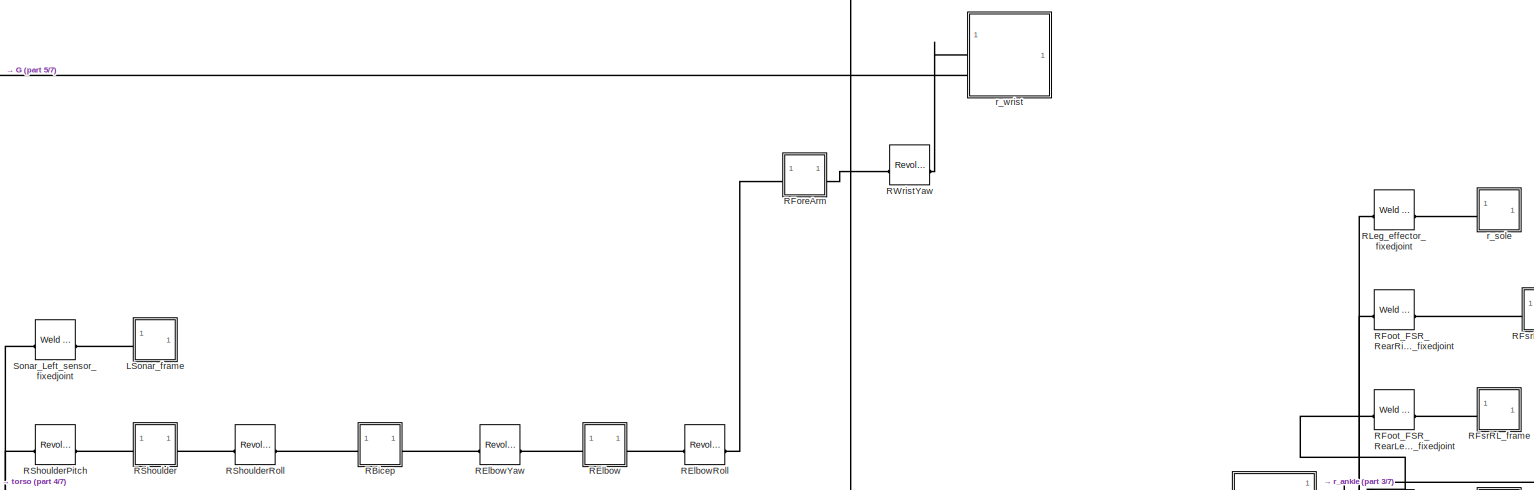
[diagram: BlueStriker - part 1/7, full width, top band]
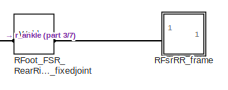
[diagram: BlueStriker - part 2/7, top right region]
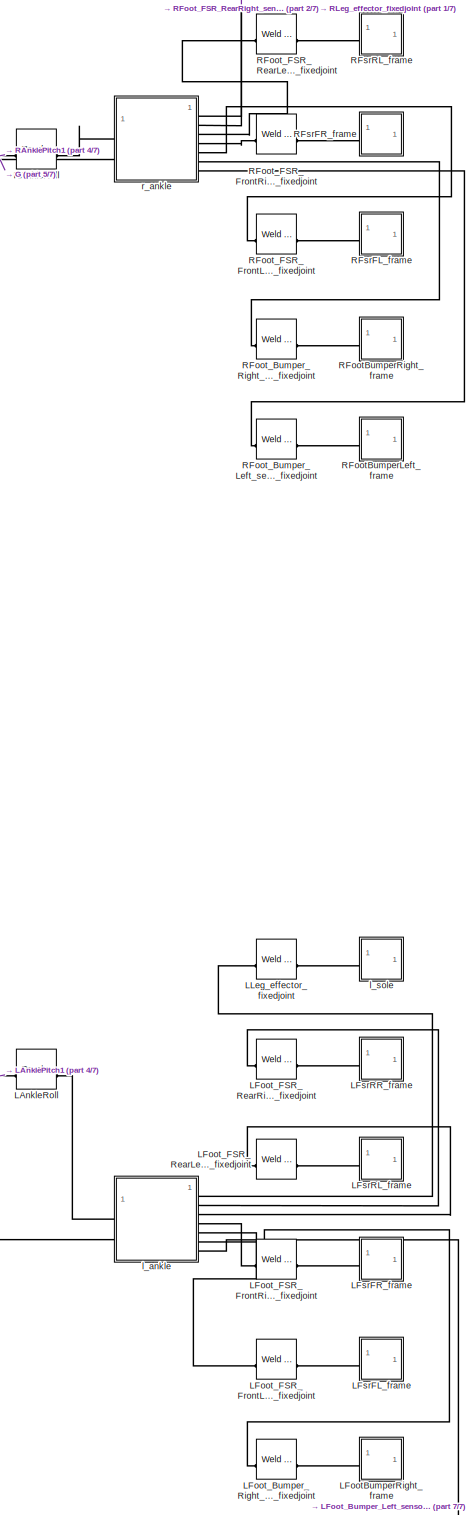
[diagram: BlueStriker - part 3/7, middle right region]
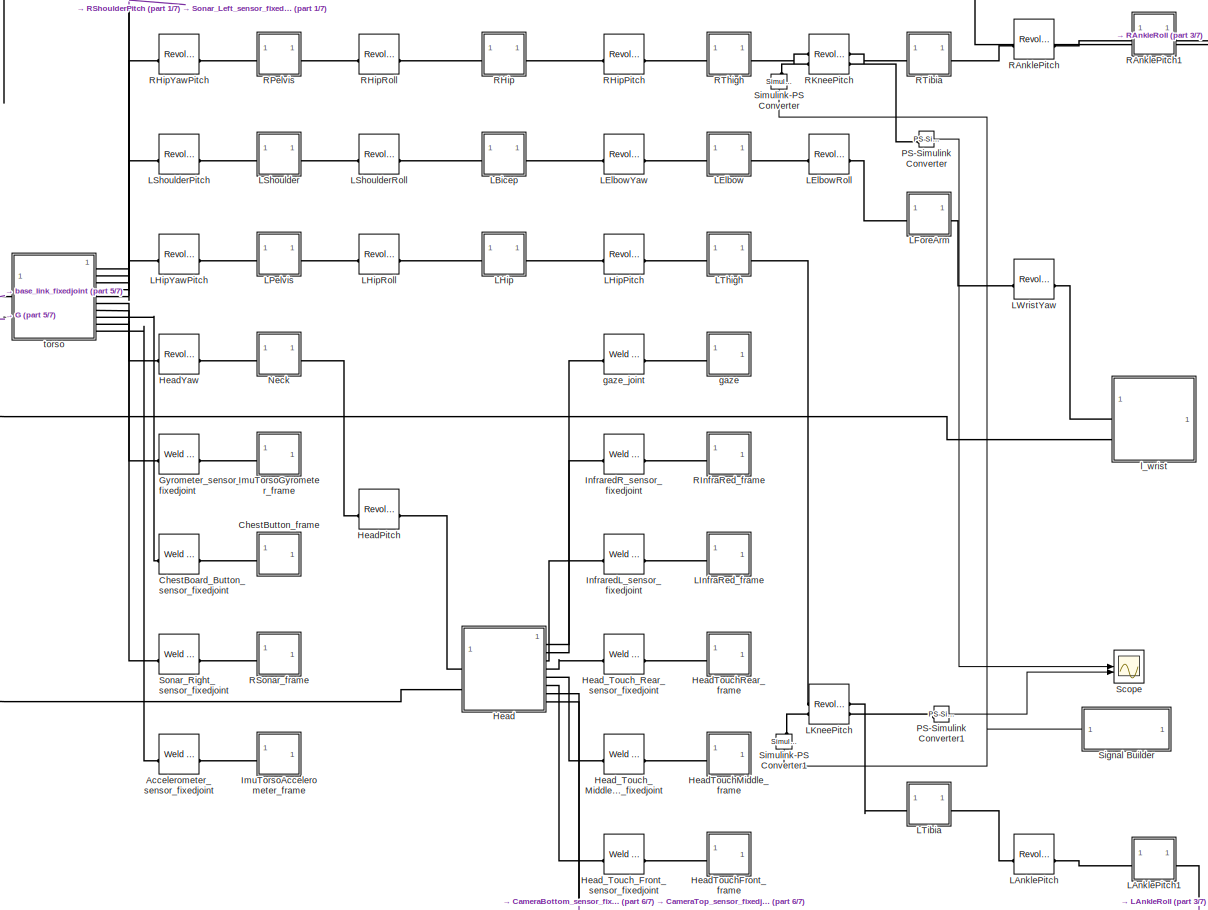
[diagram: BlueStriker - part 4/7, central region]
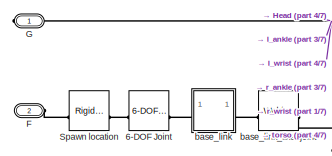
[diagram: BlueStriker - part 5/7, middle left region]
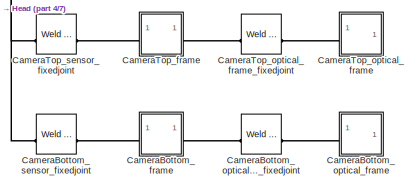
[diagram: BlueStriker - part 6/7, bottom center region]
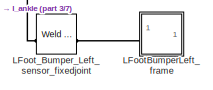
[diagram: BlueStriker - part 7/7, bottom right region]
BLOCK [SubSystem] BlueStriker
BLOCK [Reference] BlueStriker/6-DOF Joint  REF=sm_lib/Joints/6-DOF Joint
  SourceBlock = sm_lib/Joints/6-DOF Joint
  SourceType = 6-DOF Joint
BLOCK [Reference] BlueStriker/Accelerometer_sensor_fixedjoint  REF=sm_lib/Joints/Weld Joint
  SourceBlock = sm_lib/Joints/Weld Joint
  SourceType = Weld Joint
BLOCK [SubSystem] BlueStriker/CameraBottom_frame
BLOCK [Reference] BlueStriker/CameraBottom_frame/CameraBottom_optical_frame_fixedjoint_OriginTransform  REF=sm_lib/Frames and
Transforms/Rigid
Transform
  SourceBlock = sm_lib/Frames and\nTransforms/Rigid\nTransform
  SourceType = Rigid\nTransform
BLOCK [PMIOPort] BlueStriker/CameraBottom_frame/F
  Side = Left
BLOCK [PMIOPort] BlueStriker/CameraBottom_frame/F1
  Port = 2
  Side = Right
BLOCK [Reference] BlueStriker/CameraBottom_frame/ReferenceFrame  REF=sm_lib/Frames and
Transforms/Reference
Frame
  SourceBlock = sm_lib/Frames and\nTransforms/Reference\nFrame
  SourceType = Reference\nFrame
BLOCK [SubSystem] BlueStriker/CameraBottom_optical_frame
BLOCK [PMIOPort] BlueStriker/CameraBottom_optical_frame/F
  Side = Left
BLOCK [Reference] BlueStriker/CameraBottom_optical_frame/ReferenceFrame  REF=sm_lib/Frames and
Transforms/Reference
Frame
  SourceBlock = sm_lib/Frames and\nTransforms/Reference\nFrame
  SourceType = Reference\nFrame
BLOCK [Reference] BlueStriker/CameraBottom_optical_frame_fixedjoint  REF=sm_lib/Joints/Weld Joint
  SourceBlock = sm_lib/Joints/Weld Joint
  SourceType = Weld Joint
BLOCK [Reference] BlueStriker/CameraBottom_sensor_fixedjoint  REF=sm_lib/Joints/Weld Joint
  SourceBlock = sm_lib/Joints/Weld Joint
  SourceType = Weld Joint
BLOCK [SubSystem] BlueStriker/CameraTop_frame
BLOCK [Reference] BlueStriker/CameraTop_frame/CameraTop_optical_frame_fixedjoint_OriginTransform  REF=sm_lib/Frames and
Transforms/Rigid
Transform
  SourceBlock = sm_lib/Frames and\nTransforms/Rigid\nTransform
  SourceType = Rigid\nTransform
BLOCK [PMIOPort] BlueStriker/CameraTop_frame/F
  Side = Left
BLOCK [PMIOPort] BlueStriker/CameraTop_frame/F1
  Port = 2
  Side = Right
BLOCK [Reference] BlueStriker/CameraTop_frame/ReferenceFrame  REF=sm_lib/Frames and
Transforms/Reference
Frame
  SourceBlock = sm_lib/Frames and\nTransforms/Reference\nFrame
  SourceType = Reference\nFrame
BLOCK [SubSystem] BlueStriker/CameraTop_optical_frame
BLOCK [PMIOPort] BlueStriker/CameraTop_optical_frame/F
  Side = Left
BLOCK [Reference] BlueStriker/CameraTop_optical_frame/ReferenceFrame  REF=sm_lib/Frames and
Transforms/Reference
Frame
  SourceBlock = sm_lib/Frames and\nTransforms/Reference\nFrame
  SourceType = Reference\nFrame
BLOCK [Reference] BlueStriker/CameraTop_optical_frame_fixedjoint  REF=sm_lib/Joints/Weld Joint
  SourceBlock = sm_lib/Joints/Weld Joint
  SourceType = Weld Joint
BLOCK [Reference] BlueStriker/CameraTop_sensor_fixedjoint  REF=sm_lib/Joints/Weld Joint
  SourceBlock = sm_lib/Joints/Weld Joint
  SourceType = Weld Joint
BLOCK [Reference] BlueStriker/ChestBoard_Button_sensor_fixedjoint  REF=sm_lib/Joints/Weld Joint
  SourceBlock = sm_lib/Joints/Weld Joint
  SourceType = Weld Joint
BLOCK [SubSystem] BlueStriker/ChestButton_frame
BLOCK [PMIOPort] BlueStriker/ChestButton_frame/F
  Side = Left
BLOCK [Reference] BlueStriker/ChestButton_frame/ReferenceFrame  REF=sm_lib/Frames and
Transforms/Reference
Frame
  SourceBlock = sm_lib/Frames and\nTransforms/Reference\nFrame
  SourceType = Reference\nFrame
BLOCK [PMIOPort] BlueStriker/F
  Port = 2
  Side = Left
BLOCK [PMIOPort] BlueStriker/G
  Side = Right
BLOCK [Reference] BlueStriker/Gyrometer_sensor_fixedjoint  REF=sm_lib/Joints/Weld Joint
  SourceBlock = sm_lib/Joints/Weld Joint
  SourceType = Weld Joint
BLOCK [SubSystem] BlueStriker/Head
BLOCK [Reference] BlueStriker/Head/CameraBottom_sensor_fixedjoint_OriginTransform  REF=sm_lib/Frames and
Transforms/Rigid
Transform
  SourceBlock = sm_lib/Frames and\nTransforms/Rigid\nTransform
  SourceType = Rigid\nTransform
BLOCK [Reference] BlueStriker/Head/CameraTop_sensor_fixedjoint_OriginTransform  REF=sm_lib/Frames and
Transforms/Rigid
Transform
  SourceBlock = sm_lib/Frames and\nTransforms/Rigid\nTransform
  SourceType = Rigid\nTransform
BLOCK [PMIOPort] BlueStriker/Head/Connection Port1
  NameLocation = top
  Port = 10
  Side = Left
BLOCK [PMIOPort] BlueStriker/Head/F
  Side = Left
BLOCK [PMIOPort] BlueStriker/Head/F1
  Port = 9
  Side = Right
BLOCK [PMIOPort] BlueStriker/Head/F2
  Port = 8
  Side = Right
BLOCK [PMIOPort] BlueStriker/Head/F3
  Port = 7
  Side = Right
BLOCK [PMIOPort] BlueStriker/Head/F4
  Port = 6
  Side = Right
BLOCK [PMIOPort] BlueStriker/Head/F5
  Port = 5
  Side = Right
BLOCK [PMIOPort] BlueStriker/Head/F6
  Port = 4
  Side = Right
BLOCK [PMIOPort] BlueStriker/Head/F7
  Port = 3
  Side = Right
BLOCK [PMIOPort] BlueStriker/Head/F8
  Port = 2
  Side = Right
BLOCK [Reference] BlueStriker/Head/HeadPitch_AxisInvTransform  REF=sm_lib/Frames and
Transforms/Rigid
Transform
  SourceBlock = sm_lib/Frames and\nTransforms/Rigid\nTransform
  SourceType = Rigid\nTransform
BLOCK [Reference] BlueStriker/Head/Head_Touch_Front_sensor_fixedjoint_OriginTransform  REF=sm_lib/Frames and
Transforms/Rigid
Transform
  SourceBlock = sm_lib/Frames and\nTransforms/Rigid\nTransform
  SourceType = Rigid\nTransform
BLOCK [Reference] BlueStriker/Head/Head_Touch_Middle_sensor_fixedjoint_OriginTransform  REF=sm_lib/Frames and
Transforms/Rigid
Transform
  SourceBlock = sm_lib/Frames and\nTransforms/Rigid\nTransform
  SourceType = Rigid\nTransform
BLOCK [Reference] BlueStriker/Head/Head_Touch_Rear_sensor_fixedjoint_OriginTransform  REF=sm_lib/Frames and
Transforms/Rigid
Transform
  SourceBlock = sm_lib/Frames and\nTransforms/Rigid\nTransform
  SourceType = Rigid\nTransform
BLOCK [Reference] BlueStriker/Head/Inertia  REF=sm_lib/Body Elements/Inertia
  SourceBlock = sm_lib/Body Elements/Inertia
  SourceType = Inertia
BLOCK [Reference] BlueStriker/Head/InertiaOriginTransform  REF=sm_lib/Frames and
Transforms/Rigid
Transform
  SourceBlock = sm_lib/Frames and\nTransforms/Rigid\nTransform
  SourceType = Rigid\nTransform
BLOCK [Reference] BlueStriker/Head/InfraredL_sensor_fixedjoint_OriginTransform  REF=sm_lib/Frames and
Transforms/Rigid
Transform
  SourceBlock = sm_lib/Frames and\nTransforms/Rigid\nTransform
  SourceType = Rigid\nTransform
BLOCK [Reference] BlueStriker/Head/InfraredR_sensor_fixedjoint_OriginTransform  REF=sm_lib/Frames and
Transforms/Rigid
Transform
  SourceBlock = sm_lib/Frames and\nTransforms/Rigid\nTransform
  SourceType = Rigid\nTransform
BLOCK [Reference] BlueStriker/Head/ReferenceFrame  REF=sm_lib/Frames and
Transforms/Reference
Frame
  SourceBlock = sm_lib/Frames and\nTransforms/Reference\nFrame
  SourceType = Reference\nFrame
BLOCK [Reference] BlueStriker/Head/Spatial Contact Force4  REF=sm_lib/Forces and
Torques/Spatial
Contact Force
  NameLocation = top
  SourceBlock = sm_lib/Forces and\nTorques/Spatial\nContact Force
  SourceType = Spatial\nContact Force
BLOCK [Reference] BlueStriker/Head/Visual  REF=sm_lib/Body Elements/File Solid
  NameLocation = top
  SourceBlock = sm_lib/Body Elements/File Solid
  SourceType = File Solid
BLOCK [Reference] BlueStriker/Head/VisualOriginTransform  REF=sm_lib/Frames and
Transforms/Rigid
Transform
  SourceBlock = sm_lib/Frames and\nTransforms/Rigid\nTransform
  SourceType = Rigid\nTransform
BLOCK [Reference] BlueStriker/Head/gaze_joint_OriginTransform  REF=sm_lib/Frames and
Transforms/Rigid
Transform
  SourceBlock = sm_lib/Frames and\nTransforms/Rigid\nTransform
  SourceType = Rigid\nTransform
BLOCK [Reference] BlueStriker/HeadPitch  REF=sm_lib/Joints/Revolute Joint
  SourceBlock = sm_lib/Joints/Revolute Joint
  SourceType = Revolute Joint
BLOCK [SubSystem] BlueStriker/HeadTouchFront_frame
BLOCK [PMIOPort] BlueStriker/HeadTouchFront_frame/F
  Side = Left
BLOCK [Reference] BlueStriker/HeadTouchFront_frame/ReferenceFrame  REF=sm_lib/Frames and
Transforms/Reference
Frame
  SourceBlock = sm_lib/Frames and\nTransforms/Reference\nFrame
  SourceType = Reference\nFrame
BLOCK [SubSystem] BlueStriker/HeadTouchMiddle_frame
BLOCK [PMIOPort] BlueStriker/HeadTouchMiddle_frame/F
  Side = Left
BLOCK [Reference] BlueStriker/HeadTouchMiddle_frame/ReferenceFrame  REF=sm_lib/Frames and
Transforms/Reference
Frame
  SourceBlock = sm_lib/Frames and\nTransforms/Reference\nFrame
  SourceType = Reference\nFrame
BLOCK [SubSystem] BlueStriker/HeadTouchRear_frame
BLOCK [PMIOPort] BlueStriker/HeadTouchRear_frame/F
  Side = Left
BLOCK [Reference] BlueStriker/HeadTouchRear_frame/ReferenceFrame  REF=sm_lib/Frames and
Transforms/Reference
Frame
  SourceBlock = sm_lib/Frames and\nTransforms/Reference\nFrame
  SourceType = Reference\nFrame
BLOCK [Reference] BlueStriker/HeadYaw  REF=sm_lib/Joints/Revolute Joint
  SourceBlock = sm_lib/Joints/Revolute Joint
  SourceType = Revolute Joint
BLOCK [Reference] BlueStriker/Head_Touch_Front_sensor_fixedjoint  REF=sm_lib/Joints/Weld Joint
  SourceBlock = sm_lib/Joints/Weld Joint
  SourceType = Weld Joint
BLOCK [Reference] BlueStriker/Head_Touch_Middle_sensor_fixedjoint  REF=sm_lib/Joints/Weld Joint
  SourceBlock = sm_lib/Joints/Weld Joint
  SourceType = Weld Joint
BLOCK [Reference] BlueStriker/Head_Touch_Rear_sensor_fixedjoint  REF=sm_lib/Joints/Weld Joint
  SourceBlock = sm_lib/Joints/Weld Joint
  SourceType = Weld Joint
BLOCK [SubSystem] BlueStriker/ImuTorsoAccelerometer_frame
BLOCK [PMIOPort] BlueStriker/ImuTorsoAccelerometer_frame/F
  Side = Left
BLOCK [Reference] BlueStriker/ImuTorsoAccelerometer_frame/ReferenceFrame  REF=sm_lib/Frames and
Transforms/Reference
Frame
  SourceBlock = sm_lib/Frames and\nTransforms/Reference\nFrame
  SourceType = Reference\nFrame
BLOCK [SubSystem] BlueStriker/ImuTorsoGyrometer_frame
BLOCK [PMIOPort] BlueStriker/ImuTorsoGyrometer_frame/F
  Side = Left
BLOCK [Reference] BlueStriker/ImuTorsoGyrometer_frame/ReferenceFrame  REF=sm_lib/Frames and
Transforms/Reference
Frame
  SourceBlock = sm_lib/Frames and\nTransforms/Reference\nFrame
  SourceType = Reference\nFrame
BLOCK [Reference] BlueStriker/InfraredL_sensor_fixedjoint  REF=sm_lib/Joints/Weld Joint
  SourceBlock = sm_lib/Joints/Weld Joint
  SourceType = Weld Joint
BLOCK [Reference] BlueStriker/InfraredR_sensor_fixedjoint  REF=sm_lib/Joints/Weld Joint
  SourceBlock = sm_lib/Joints/Weld Joint
  SourceType = Weld Joint
BLOCK [Reference] BlueStriker/LAnklePitch  REF=sm_lib/Joints/Revolute Joint
  SourceBlock = sm_lib/Joints/Revolute Joint
  SourceType = Revolute Joint
BLOCK [SubSystem] BlueStriker/LAnklePitch1
BLOCK [PMIOPort] BlueStriker/LAnklePitch1/F
  Side = Left
BLOCK [PMIOPort] BlueStriker/LAnklePitch1/F1
  Port = 2
  Side = Right
BLOCK [Reference] BlueStriker/LAnklePitch1/Inertia  REF=sm_lib/Body Elements/Inertia
  SourceBlock = sm_lib/Body Elements/Inertia
  SourceType = Inertia
BLOCK [Reference] BlueStriker/LAnklePitch1/InertiaOriginTransform  REF=sm_lib/Frames and
Transforms/Rigid
Transform
  SourceBlock = sm_lib/Frames and\nTransforms/Rigid\nTransform
  SourceType = Rigid\nTransform
BLOCK [Reference] BlueStriker/LAnklePitch1/LAnklePitch_AxisInvTransform  REF=sm_lib/Frames and
Transforms/Rigid
Transform
  SourceBlock = sm_lib/Frames and\nTransforms/Rigid\nTransform
  SourceType = Rigid\nTransform
BLOCK [Reference] BlueStriker/LAnklePitch1/LAnkleRoll_AxisTransform  REF=sm_lib/Frames and
Transforms/Rigid
Transform
  SourceBlock = sm_lib/Frames and\nTransforms/Rigid\nTransform
  SourceType = Rigid\nTransform
BLOCK [Reference] BlueStriker/LAnklePitch1/LAnkleRoll_OriginTransform  REF=sm_lib/Frames and
Transforms/Rigid
Transform
  SourceBlock = sm_lib/Frames and\nTransforms/Rigid\nTransform
  SourceType = Rigid\nTransform
BLOCK [Reference] BlueStriker/LAnklePitch1/ReferenceFrame  REF=sm_lib/Frames and
Transforms/Reference
Frame
  SourceBlock = sm_lib/Frames and\nTransforms/Reference\nFrame
  SourceType = Reference\nFrame
BLOCK [Reference] BlueStriker/LAnklePitch1/Visual  REF=sm_lib/Body Elements/File Solid
  SourceBlock = sm_lib/Body Elements/File Solid
  SourceType = File Solid
BLOCK [Reference] BlueStriker/LAnklePitch1/VisualOriginTransform  REF=sm_lib/Frames and
Transforms/Rigid
Transform
  SourceBlock = sm_lib/Frames and\nTransforms/Rigid\nTransform
  SourceType = Rigid\nTransform
BLOCK [Reference] BlueStriker/LAnkleRoll  REF=sm_lib/Joints/Revolute Joint
  SourceBlock = sm_lib/Joints/Revolute Joint
  SourceType = Revolute Joint
BLOCK [SubSystem] BlueStriker/LBicep
BLOCK [PMIOPort] BlueStriker/LBicep/F
  Side = Left
BLOCK [PMIOPort] BlueStriker/LBicep/F1
  Port = 2
  Side = Right
BLOCK [Reference] BlueStriker/LBicep/Inertia  REF=sm_lib/Body Elements/Inertia
  SourceBlock = sm_lib/Body Elements/Inertia
  SourceType = Inertia
BLOCK [Reference] BlueStriker/LBicep/InertiaOriginTransform  REF=sm_lib/Frames and
Transforms/Rigid
Transform
  SourceBlock = sm_lib/Frames and\nTransforms/Rigid\nTransform
  SourceType = Rigid\nTransform
BLOCK [Reference] BlueStriker/LBicep/LElbowYaw_AxisTransform  REF=sm_lib/Frames and
Transforms/Rigid
Transform
  SourceBlock = sm_lib/Frames and\nTransforms/Rigid\nTransform
  SourceType = Rigid\nTransform
BLOCK [Reference] BlueStriker/LBicep/LElbowYaw_OriginTransform  REF=sm_lib/Frames and
Transforms/Rigid
Transform
  SourceBlock = sm_lib/Frames and\nTransforms/Rigid\nTransform
  SourceType = Rigid\nTransform
BLOCK [Reference] BlueStriker/LBicep/LShoulderRoll_AxisInvTransform  REF=sm_lib/Frames and
Transforms/Rigid
Transform
  SourceBlock = sm_lib/Frames and\nTransforms/Rigid\nTransform
  SourceType = Rigid\nTransform
BLOCK [Reference] BlueStriker/LBicep/ReferenceFrame  REF=sm_lib/Frames and
Transforms/Reference
Frame
  SourceBlock = sm_lib/Frames and\nTransforms/Reference\nFrame
  SourceType = Reference\nFrame
BLOCK [Reference] BlueStriker/LBicep/Visual  REF=sm_lib/Body Elements/File Solid
  SourceBlock = sm_lib/Body Elements/File Solid
  SourceType = File Solid
BLOCK [Reference] BlueStriker/LBicep/VisualOriginTransform  REF=sm_lib/Frames and
Transforms/Rigid
Transform
  SourceBlock = sm_lib/Frames and\nTransforms/Rigid\nTransform
  SourceType = Rigid\nTransform
BLOCK [SubSystem] BlueStriker/LElbow
BLOCK [PMIOPort] BlueStriker/LElbow/F
  Side = Left
BLOCK [PMIOPort] BlueStriker/LElbow/F1
  Port = 2
  Side = Right
BLOCK [Reference] BlueStriker/LElbow/Inertia  REF=sm_lib/Body Elements/Inertia
  SourceBlock = sm_lib/Body Elements/Inertia
  SourceType = Inertia
BLOCK [Reference] BlueStriker/LElbow/InertiaOriginTransform  REF=sm_lib/Frames and
Transforms/Rigid
Transform
  SourceBlock = sm_lib/Frames and\nTransforms/Rigid\nTransform
  SourceType = Rigid\nTransform
BLOCK [Reference] BlueStriker/LElbow/LElbowRoll_AxisTransform  REF=sm_lib/Frames and
Transforms/Rigid
Transform
  SourceBlock = sm_lib/Frames and\nTransforms/Rigid\nTransform
  SourceType = Rigid\nTransform
BLOCK [Reference] BlueStriker/LElbow/LElbowRoll_OriginTransform  REF=sm_lib/Frames and
Transforms/Rigid
Transform
  SourceBlock = sm_lib/Frames and\nTransforms/Rigid\nTransform
  SourceType = Rigid\nTransform
BLOCK [Reference] BlueStriker/LElbow/LElbowYaw_AxisInvTransform  REF=sm_lib/Frames and
Transforms/Rigid
Transform
  SourceBlock = sm_lib/Frames and\nTransforms/Rigid\nTransform
  SourceType = Rigid\nTransform
BLOCK [Reference] BlueStriker/LElbow/ReferenceFrame  REF=sm_lib/Frames and
Transforms/Reference
Frame
  SourceBlock = sm_lib/Frames and\nTransforms/Reference\nFrame
  SourceType = Reference\nFrame
BLOCK [Reference] BlueStriker/LElbowRoll  REF=sm_lib/Joints/Revolute Joint
  SourceBlock = sm_lib/Joints/Revolute Joint
  SourceType = Revolute Joint
BLOCK [Reference] BlueStriker/LElbowYaw  REF=sm_lib/Joints/Revolute Joint
  SourceBlock = sm_lib/Joints/Revolute Joint
  SourceType = Revolute Joint
BLOCK [SubSystem] BlueStriker/LFootBumperLeft_frame
BLOCK [PMIOPort] BlueStriker/LFootBumperLeft_frame/F
  Side = Left
BLOCK [Reference] BlueStriker/LFootBumperLeft_frame/ReferenceFrame  REF=sm_lib/Frames and
Transforms/Reference
Frame
  SourceBlock = sm_lib/Frames and\nTransforms/Reference\nFrame
  SourceType = Reference\nFrame
BLOCK [SubSystem] BlueStriker/LFootBumperRight_frame
BLOCK [PMIOPort] BlueStriker/LFootBumperRight_frame/F
  Side = Left
BLOCK [Reference] BlueStriker/LFootBumperRight_frame/ReferenceFrame  REF=sm_lib/Frames and
Transforms/Reference
Frame
  SourceBlock = sm_lib/Frames and\nTransforms/Reference\nFrame
  SourceType = Reference\nFrame
BLOCK [Reference] BlueStriker/LFoot_Bumper_Left_sensor_fixedjoint  REF=sm_lib/Joints/Weld Joint
  SourceBlock = sm_lib/Joints/Weld Joint
  SourceType = Weld Joint
BLOCK [Reference] BlueStriker/LFoot_Bumper_Right_sensor_fixedjoint  REF=sm_lib/Joints/Weld Joint
  SourceBlock = sm_lib/Joints/Weld Joint
  SourceType = Weld Joint
BLOCK [Reference] BlueStriker/LFoot_FSR_FrontLeft_sensor_fixedjoint  REF=sm_lib/Joints/Weld Joint
  SourceBlock = sm_lib/Joints/Weld Joint
  SourceType = Weld Joint
BLOCK [Reference] BlueStriker/LFoot_FSR_FrontRight_sensor_fixedjoint  REF=sm_lib/Joints/Weld Joint
  SourceBlock = sm_lib/Joints/Weld Joint
  SourceType = Weld Joint
BLOCK [Reference] BlueStriker/LFoot_FSR_RearLeft_sensor_fixedjoint  REF=sm_lib/Joints/Weld Joint
  SourceBlock = sm_lib/Joints/Weld Joint
  SourceType = Weld Joint
BLOCK [Reference] BlueStriker/LFoot_FSR_RearRight_sensor_fixedjoint  REF=sm_lib/Joints/Weld Joint
  SourceBlock = sm_lib/Joints/Weld Joint
  SourceType = Weld Joint
BLOCK [SubSystem] BlueStriker/LForeArm
BLOCK [PMIOPort] BlueStriker/LForeArm/F
  Side = Left
BLOCK [PMIOPort] BlueStriker/LForeArm/F1
  Port = 2
  Side = Right
BLOCK [Reference] BlueStriker/LForeArm/Inertia  REF=sm_lib/Body Elements/Inertia
  SourceBlock = sm_lib/Body Elements/Inertia
  SourceType = Inertia
BLOCK [Reference] BlueStriker/LForeArm/InertiaOriginTransform  REF=sm_lib/Frames and
Transforms/Rigid
Transform
  SourceBlock = sm_lib/Frames and\nTransforms/Rigid\nTransform
  SourceType = Rigid\nTransform
BLOCK [Reference] BlueStriker/LForeArm/LElbowRoll_AxisInvTransform  REF=sm_lib/Frames and
Transforms/Rigid
Transform
  SourceBlock = sm_lib/Frames and\nTransforms/Rigid\nTransform
  SourceType = Rigid\nTransform
BLOCK [Reference] BlueStriker/LForeArm/LWristYaw_AxisTransform  REF=sm_lib/Frames and
Transforms/Rigid
Transform
  SourceBlock = sm_lib/Frames and\nTransforms/Rigid\nTransform
  SourceType = Rigid\nTransform
BLOCK [Reference] BlueStriker/LForeArm/LWristYaw_OriginTransform  REF=sm_lib/Frames and
Transforms/Rigid
Transform
  SourceBlock = sm_lib/Frames and\nTransforms/Rigid\nTransform
  SourceType = Rigid\nTransform
BLOCK [Reference] BlueStriker/LForeArm/ReferenceFrame  REF=sm_lib/Frames and
Transforms/Reference
Frame
  SourceBlock = sm_lib/Frames and\nTransforms/Reference\nFrame
  SourceType = Reference\nFrame
BLOCK [Reference] BlueStriker/LForeArm/Visual  REF=sm_lib/Body Elements/File Solid
  SourceBlock = sm_lib/Body Elements/File Solid
  SourceType = File Solid
BLOCK [Reference] BlueStriker/LForeArm/VisualOriginTransform  REF=sm_lib/Frames and
Transforms/Rigid
Transform
  SourceBlock = sm_lib/Frames and\nTransforms/Rigid\nTransform
  SourceType = Rigid\nTransform
BLOCK [SubSystem] BlueStriker/LFsrFL_frame
BLOCK [PMIOPort] BlueStriker/LFsrFL_frame/F
  Side = Left
BLOCK [Reference] BlueStriker/LFsrFL_frame/Inertia  REF=sm_lib/Body Elements/Inertia
  SourceBlock = sm_lib/Body Elements/Inertia
  SourceType = Inertia
BLOCK [Reference] BlueStriker/LFsrFL_frame/InertiaOriginTransform  REF=sm_lib/Frames and
Transforms/Rigid
Transform
  SourceBlock = sm_lib/Frames and\nTransforms/Rigid\nTransform
  SourceType = Rigid\nTransform
BLOCK [Reference] BlueStriker/LFsrFL_frame/ReferenceFrame  REF=sm_lib/Frames and
Transforms/Reference
Frame
  SourceBlock = sm_lib/Frames and\nTransforms/Reference\nFrame
  SourceType = Reference\nFrame
BLOCK [SubSystem] BlueStriker/LFsrFR_frame
BLOCK [PMIOPort] BlueStriker/LFsrFR_frame/F
  Side = Left
BLOCK [Reference] BlueStriker/LFsrFR_frame/Inertia  REF=sm_lib/Body Elements/Inertia
  SourceBlock = sm_lib/Body Elements/Inertia
  SourceType = Inertia
BLOCK [Reference] BlueStriker/LFsrFR_frame/InertiaOriginTransform  REF=sm_lib/Frames and
Transforms/Rigid
Transform
  SourceBlock = sm_lib/Frames and\nTransforms/Rigid\nTransform
  SourceType = Rigid\nTransform
BLOCK [Reference] BlueStriker/LFsrFR_frame/ReferenceFrame  REF=sm_lib/Frames and
Transforms/Reference
Frame
  SourceBlock = sm_lib/Frames and\nTransforms/Reference\nFrame
  SourceType = Reference\nFrame
BLOCK [SubSystem] BlueStriker/LFsrRL_frame
BLOCK [PMIOPort] BlueStriker/LFsrRL_frame/F
  Side = Left
BLOCK [Reference] BlueStriker/LFsrRL_frame/Inertia  REF=sm_lib/Body Elements/Inertia
  SourceBlock = sm_lib/Body Elements/Inertia
  SourceType = Inertia
BLOCK [Reference] BlueStriker/LFsrRL_frame/InertiaOriginTransform  REF=sm_lib/Frames and
Transforms/Rigid
Transform
  SourceBlock = sm_lib/Frames and\nTransforms/Rigid\nTransform
  SourceType = Rigid\nTransform
BLOCK [Reference] BlueStriker/LFsrRL_frame/ReferenceFrame  REF=sm_lib/Frames and
Transforms/Reference
Frame
  SourceBlock = sm_lib/Frames and\nTransforms/Reference\nFrame
  SourceType = Reference\nFrame
BLOCK [SubSystem] BlueStriker/LFsrRR_frame
BLOCK [PMIOPort] BlueStriker/LFsrRR_frame/F
  Side = Left
BLOCK [Reference] BlueStriker/LFsrRR_frame/Inertia  REF=sm_lib/Body Elements/Inertia
  SourceBlock = sm_lib/Body Elements/Inertia
  SourceType = Inertia
BLOCK [Reference] BlueStriker/LFsrRR_frame/InertiaOriginTransform  REF=sm_lib/Frames and
Transforms/Rigid
Transform
  SourceBlock = sm_lib/Frames and\nTransforms/Rigid\nTransform
  SourceType = Rigid\nTransform
BLOCK [Reference] BlueStriker/LFsrRR_frame/ReferenceFrame  REF=sm_lib/Frames and
Transforms/Reference
Frame
  SourceBlock = sm_lib/Frames and\nTransforms/Reference\nFrame
  SourceType = Reference\nFrame
BLOCK [SubSystem] BlueStriker/LHip
BLOCK [PMIOPort] BlueStriker/LHip/F
  Side = Left
BLOCK [PMIOPort] BlueStriker/LHip/F1
  Port = 2
  Side = Right
BLOCK [Reference] BlueStriker/LHip/Inertia  REF=sm_lib/Body Elements/Inertia
  SourceBlock = sm_lib/Body Elements/Inertia
  SourceType = Inertia
BLOCK [Reference] BlueStriker/LHip/InertiaOriginTransform  REF=sm_lib/Frames and
Transforms/Rigid
Transform
  SourceBlock = sm_lib/Frames and\nTransforms/Rigid\nTransform
  SourceType = Rigid\nTransform
BLOCK [Reference] BlueStriker/LHip/LHipPitch_AxisTransform  REF=sm_lib/Frames and
Transforms/Rigid
Transform
  SourceBlock = sm_lib/Frames and\nTransforms/Rigid\nTransform
  SourceType = Rigid\nTransform
BLOCK [Reference] BlueStriker/LHip/LHipPitch_OriginTransform  REF=sm_lib/Frames and
Transforms/Rigid
Transform
  SourceBlock = sm_lib/Frames and\nTransforms/Rigid\nTransform
  SourceType = Rigid\nTransform
BLOCK [Reference] BlueStriker/LHip/LHipRoll_AxisInvTransform  REF=sm_lib/Frames and
Transforms/Rigid
Transform
  SourceBlock = sm_lib/Frames and\nTransforms/Rigid\nTransform
  SourceType = Rigid\nTransform
BLOCK [Reference] BlueStriker/LHip/ReferenceFrame  REF=sm_lib/Frames and
Transforms/Reference
Frame
  SourceBlock = sm_lib/Frames and\nTransforms/Reference\nFrame
  SourceType = Reference\nFrame
BLOCK [Reference] BlueStriker/LHip/Visual  REF=sm_lib/Body Elements/File Solid
  SourceBlock = sm_lib/Body Elements/File Solid
  SourceType = File Solid
BLOCK [Reference] BlueStriker/LHip/VisualOriginTransform  REF=sm_lib/Frames and
Transforms/Rigid
Transform
  SourceBlock = sm_lib/Frames and\nTransforms/Rigid\nTransform
  SourceType = Rigid\nTransform
BLOCK [Reference] BlueStriker/LHipPitch  REF=sm_lib/Joints/Revolute Joint
  SourceBlock = sm_lib/Joints/Revolute Joint
  SourceType = Revolute Joint
BLOCK [Reference] BlueStriker/LHipRoll  REF=sm_lib/Joints/Revolute Joint
  SourceBlock = sm_lib/Joints/Revolute Joint
  SourceType = Revolute Joint
BLOCK [Reference] BlueStriker/LHipYawPitch  REF=sm_lib/Joints/Revolute Joint
  SourceBlock = sm_lib/Joints/Revolute Joint
  SourceType = Revolute Joint
BLOCK [SubSystem] BlueStriker/LInfraRed_frame
BLOCK [PMIOPort] BlueStriker/LInfraRed_frame/F
  Side = Left
BLOCK [Reference] BlueStriker/LInfraRed_frame/ReferenceFrame  REF=sm_lib/Frames and
Transforms/Reference
Frame
  SourceBlock = sm_lib/Frames and\nTransforms/Reference\nFrame
  SourceType = Reference\nFrame
BLOCK [Reference] BlueStriker/LKneePitch  REF=sm_lib/Joints/Revolute Joint
  SourceBlock = sm_lib/Joints/Revolute Joint
  SourceType = Revolute Joint
BLOCK [Reference] BlueStriker/LLeg_effector_fixedjoint  REF=sm_lib/Joints/Weld Joint
  SourceBlock = sm_lib/Joints/Weld Joint
  SourceType = Weld Joint
BLOCK [SubSystem] BlueStriker/LPelvis
BLOCK [PMIOPort] BlueStriker/LPelvis/F
  Side = Left
BLOCK [PMIOPort] BlueStriker/LPelvis/F1
  Port = 2
  Side = Right
BLOCK [Reference] BlueStriker/LPelvis/Inertia  REF=sm_lib/Body Elements/Inertia
  SourceBlock = sm_lib/Body Elements/Inertia
  SourceType = Inertia
BLOCK [Reference] BlueStriker/LPelvis/InertiaOriginTransform  REF=sm_lib/Frames and
Transforms/Rigid
Transform
  SourceBlock = sm_lib/Frames and\nTransforms/Rigid\nTransform
  SourceType = Rigid\nTransform
BLOCK [Reference] BlueStriker/LPelvis/LHipRoll_AxisTransform  REF=sm_lib/Frames and
Transforms/Rigid
Transform
  SourceBlock = sm_lib/Frames and\nTransforms/Rigid\nTransform
  SourceType = Rigid\nTransform
BLOCK [Reference] BlueStriker/LPelvis/LHipRoll_OriginTransform  REF=sm_lib/Frames and
Transforms/Rigid
Transform
  SourceBlock = sm_lib/Frames and\nTransforms/Rigid\nTransform
  SourceType = Rigid\nTransform
BLOCK [Reference] BlueStriker/LPelvis/LHipYawPitch_AxisInvTransform  REF=sm_lib/Frames and
Transforms/Rigid
Transform
  SourceBlock = sm_lib/Frames and\nTransforms/Rigid\nTransform
  SourceType = Rigid\nTransform
BLOCK [Reference] BlueStriker/LPelvis/ReferenceFrame  REF=sm_lib/Frames and
Transforms/Reference
Frame
  SourceBlock = sm_lib/Frames and\nTransforms/Reference\nFrame
  SourceType = Reference\nFrame
BLOCK [Reference] BlueStriker/LPelvis/Visual  REF=sm_lib/Body Elements/File Solid
  SourceBlock = sm_lib/Body Elements/File Solid
  SourceType = File Solid
BLOCK [Reference] BlueStriker/LPelvis/VisualOriginTransform  REF=sm_lib/Frames and
Transforms/Rigid
Transform
  SourceBlock = sm_lib/Frames and\nTransforms/Rigid\nTransform
  SourceType = Rigid\nTransform
BLOCK [SubSystem] BlueStriker/LShoulder
BLOCK [PMIOPort] BlueStriker/LShoulder/F
  Side = Left
BLOCK [PMIOPort] BlueStriker/LShoulder/F1
  Port = 2
  Side = Right
BLOCK [Reference] BlueStriker/LShoulder/Inertia  REF=sm_lib/Body Elements/Inertia
  SourceBlock = sm_lib/Body Elements/Inertia
  SourceType = Inertia
BLOCK [Reference] BlueStriker/LShoulder/InertiaOriginTransform  REF=sm_lib/Frames and
Transforms/Rigid
Transform
  SourceBlock = sm_lib/Frames and\nTransforms/Rigid\nTransform
  SourceType = Rigid\nTransform
BLOCK [Reference] BlueStriker/LShoulder/LShoulderPitch_AxisInvTransform  REF=sm_lib/Frames and
Transforms/Rigid
Transform
  SourceBlock = sm_lib/Frames and\nTransforms/Rigid\nTransform
  SourceType = Rigid\nTransform
BLOCK [Reference] BlueStriker/LShoulder/LShoulderRoll_AxisTransform  REF=sm_lib/Frames and
Transforms/Rigid
Transform
  SourceBlock = sm_lib/Frames and\nTransforms/Rigid\nTransform
  SourceType = Rigid\nTransform
BLOCK [Reference] BlueStriker/LShoulder/LShoulderRoll_OriginTransform  REF=sm_lib/Frames and
Transforms/Rigid
Transform
  SourceBlock = sm_lib/Frames and\nTransforms/Rigid\nTransform
  SourceType = Rigid\nTransform
BLOCK [Reference] BlueStriker/LShoulder/ReferenceFrame  REF=sm_lib/Frames and
Transforms/Reference
Frame
  SourceBlock = sm_lib/Frames and\nTransforms/Reference\nFrame
  SourceType = Reference\nFrame
BLOCK [Reference] BlueStriker/LShoulder/Visual  REF=sm_lib/Body Elements/File Solid
  SourceBlock = sm_lib/Body Elements/File Solid
  SourceType = File Solid
BLOCK [Reference] BlueStriker/LShoulder/VisualOriginTransform  REF=sm_lib/Frames and
Transforms/Rigid
Transform
  SourceBlock = sm_lib/Frames and\nTransforms/Rigid\nTransform
  SourceType = Rigid\nTransform
BLOCK [Reference] BlueStriker/LShoulderPitch  REF=sm_lib/Joints/Revolute Joint
  SourceBlock = sm_lib/Joints/Revolute Joint
  SourceType = Revolute Joint
BLOCK [Reference] BlueStriker/LShoulderRoll  REF=sm_lib/Joints/Revolute Joint
  SourceBlock = sm_lib/Joints/Revolute Joint
  SourceType = Revolute Joint
BLOCK [SubSystem] BlueStriker/LSonar_frame
BLOCK [PMIOPort] BlueStriker/LSonar_frame/F
  Side = Left
BLOCK [Reference] BlueStriker/LSonar_frame/ReferenceFrame  REF=sm_lib/Frames and
Transforms/Reference
Frame
  SourceBlock = sm_lib/Frames and\nTransforms/Reference\nFrame
  SourceType = Reference\nFrame
BLOCK [SubSystem] BlueStriker/LThigh
BLOCK [PMIOPort] BlueStriker/LThigh/F
  Side = Left
BLOCK [PMIOPort] BlueStriker/LThigh/F1
  Port = 2
  Side = Right
BLOCK [Reference] BlueStriker/LThigh/Inertia  REF=sm_lib/Body Elements/Inertia
  SourceBlock = sm_lib/Body Elements/Inertia
  SourceType = Inertia
BLOCK [Reference] BlueStriker/LThigh/InertiaOriginTransform  REF=sm_lib/Frames and
Transforms/Rigid
Transform
  SourceBlock = sm_lib/Frames and\nTransforms/Rigid\nTransform
  SourceType = Rigid\nTransform
BLOCK [Reference] BlueStriker/LThigh/LHipPitch_AxisInvTransform  REF=sm_lib/Frames and
Transforms/Rigid
Transform
  SourceBlock = sm_lib/Frames and\nTransforms/Rigid\nTransform
  SourceType = Rigid\nTransform
BLOCK [Reference] BlueStriker/LThigh/LKneePitch_AxisTransform  REF=sm_lib/Frames and
Transforms/Rigid
Transform
  SourceBlock = sm_lib/Frames and\nTransforms/Rigid\nTransform
  SourceType = Rigid\nTransform
BLOCK [Reference] BlueStriker/LThigh/LKneePitch_OriginTransform  REF=sm_lib/Frames and
Transforms/Rigid
Transform
  SourceBlock = sm_lib/Frames and\nTransforms/Rigid\nTransform
  SourceType = Rigid\nTransform
BLOCK [Reference] BlueStriker/LThigh/ReferenceFrame  REF=sm_lib/Frames and
Transforms/Reference
Frame
  SourceBlock = sm_lib/Frames and\nTransforms/Reference\nFrame
  SourceType = Reference\nFrame
BLOCK [Reference] BlueStriker/LThigh/Visual  REF=sm_lib/Body Elements/File Solid
  SourceBlock = sm_lib/Body Elements/File Solid
  SourceType = File Solid
BLOCK [Reference] BlueStriker/LThigh/VisualOriginTransform  REF=sm_lib/Frames and
Transforms/Rigid
Transform
  SourceBlock = sm_lib/Frames and\nTransforms/Rigid\nTransform
  SourceType = Rigid\nTransform
BLOCK [SubSystem] BlueStriker/LTibia
BLOCK [PMIOPort] BlueStriker/LTibia/F
  Side = Left
BLOCK [PMIOPort] BlueStriker/LTibia/F1
  Port = 2
  Side = Right
BLOCK [Reference] BlueStriker/LTibia/Inertia  REF=sm_lib/Body Elements/Inertia
  SourceBlock = sm_lib/Body Elements/Inertia
  SourceType = Inertia
BLOCK [Reference] BlueStriker/LTibia/InertiaOriginTransform  REF=sm_lib/Frames and
Transforms/Rigid
Transform
  SourceBlock = sm_lib/Frames and\nTransforms/Rigid\nTransform
  SourceType = Rigid\nTransform
BLOCK [Reference] BlueStriker/LTibia/LAnklePitch_AxisTransform  REF=sm_lib/Frames and
Transforms/Rigid
Transform
  SourceBlock = sm_lib/Frames and\nTransforms/Rigid\nTransform
  SourceType = Rigid\nTransform
BLOCK [Reference] BlueStriker/LTibia/LAnklePitch_OriginTransform  REF=sm_lib/Frames and
Transforms/Rigid
Transform
  SourceBlock = sm_lib/Frames and\nTransforms/Rigid\nTransform
  SourceType = Rigid\nTransform
BLOCK [Reference] BlueStriker/LTibia/LKneePitch_AxisInvTransform  REF=sm_lib/Frames and
Transforms/Rigid
Transform
  SourceBlock = sm_lib/Frames and\nTransforms/Rigid\nTransform
  SourceType = Rigid\nTransform
BLOCK [Reference] BlueStriker/LTibia/ReferenceFrame  REF=sm_lib/Frames and
Transforms/Reference
Frame
  SourceBlock = sm_lib/Frames and\nTransforms/Reference\nFrame
  SourceType = Reference\nFrame
BLOCK [Reference] BlueStriker/LTibia/Visual  REF=sm_lib/Body Elements/File Solid
  SourceBlock = sm_lib/Body Elements/File Solid
  SourceType = File Solid
BLOCK [Reference] BlueStriker/LTibia/VisualOriginTransform  REF=sm_lib/Frames and
Transforms/Rigid
Transform
  SourceBlock = sm_lib/Frames and\nTransforms/Rigid\nTransform
  SourceType = Rigid\nTransform
BLOCK [Reference] BlueStriker/LWristYaw  REF=sm_lib/Joints/Revolute Joint
  SourceBlock = sm_lib/Joints/Revolute Joint
  SourceType = Revolute Joint
BLOCK [SubSystem] BlueStriker/Neck
BLOCK [PMIOPort] BlueStriker/Neck/F
  Side = Left
BLOCK [PMIOPort] BlueStriker/Neck/F1
  Port = 2
  Side = Right
BLOCK [Reference] BlueStriker/Neck/HeadPitch_AxisTransform  REF=sm_lib/Frames and
Transforms/Rigid
Transform
  SourceBlock = sm_lib/Frames and\nTransforms/Rigid\nTransform
  SourceType = Rigid\nTransform
BLOCK [Reference] BlueStriker/Neck/HeadPitch_OriginTransform  REF=sm_lib/Frames and
Transforms/Rigid
Transform
  SourceBlock = sm_lib/Frames and\nTransforms/Rigid\nTransform
  SourceType = Rigid\nTransform
BLOCK [Reference] BlueStriker/Neck/HeadYaw_AxisInvTransform  REF=sm_lib/Frames and
Transforms/Rigid
Transform
  SourceBlock = sm_lib/Frames and\nTransforms/Rigid\nTransform
  SourceType = Rigid\nTransform
BLOCK [Reference] BlueStriker/Neck/Inertia  REF=sm_lib/Body Elements/Inertia
  SourceBlock = sm_lib/Body Elements/Inertia
  SourceType = Inertia
BLOCK [Reference] BlueStriker/Neck/InertiaOriginTransform  REF=sm_lib/Frames and
Transforms/Rigid
Transform
  SourceBlock = sm_lib/Frames and\nTransforms/Rigid\nTransform
  SourceType = Rigid\nTransform
BLOCK [Reference] BlueStriker/Neck/ReferenceFrame  REF=sm_lib/Frames and
Transforms/Reference
Frame
  SourceBlock = sm_lib/Frames and\nTransforms/Reference\nFrame
  SourceType = Reference\nFrame
BLOCK [Reference] BlueStriker/Neck/Visual  REF=sm_lib/Body Elements/File Solid
  SourceBlock = sm_lib/Body Elements/File Solid
  SourceType = File Solid
BLOCK [Reference] BlueStriker/Neck/VisualOriginTransform  REF=sm_lib/Frames and
Transforms/Rigid
Transform
  SourceBlock = sm_lib/Frames and\nTransforms/Rigid\nTransform
  SourceType = Rigid\nTransform
BLOCK [Reference] BlueStriker/PS-Simulink Converter  REF=nesl_utility/PS-Simulink
Converter
  SourceBlock = nesl_utility/PS-Simulink\nConverter
  SourceType = PS-Simulink\nConverter
BLOCK [Reference] BlueStriker/PS-Simulink Converter1  REF=nesl_utility/PS-Simulink
Converter
  SourceBlock = nesl_utility/PS-Simulink\nConverter
  SourceType = PS-Simulink\nConverter
BLOCK [Reference] BlueStriker/RAnklePitch  REF=sm_lib/Joints/Revolute Joint
  SourceBlock = sm_lib/Joints/Revolute Joint
  SourceType = Revolute Joint
BLOCK [SubSystem] BlueStriker/RAnklePitch1
BLOCK [PMIOPort] BlueStriker/RAnklePitch1/F
  Side = Left
BLOCK [PMIOPort] BlueStriker/RAnklePitch1/F1
  Port = 2
  Side = Right
BLOCK [Reference] BlueStriker/RAnklePitch1/Inertia  REF=sm_lib/Body Elements/Inertia
  SourceBlock = sm_lib/Body Elements/Inertia
  SourceType = Inertia
BLOCK [Reference] BlueStriker/RAnklePitch1/InertiaOriginTransform  REF=sm_lib/Frames and
Transforms/Rigid
Transform
  SourceBlock = sm_lib/Frames and\nTransforms/Rigid\nTransform
  SourceType = Rigid\nTransform
BLOCK [Reference] BlueStriker/RAnklePitch1/RAnklePitch_AxisInvTransform  REF=sm_lib/Frames and
Transforms/Rigid
Transform
  SourceBlock = sm_lib/Frames and\nTransforms/Rigid\nTransform
  SourceType = Rigid\nTransform
BLOCK [Reference] BlueStriker/RAnklePitch1/RAnkleRoll_AxisTransform  REF=sm_lib/Frames and
Transforms/Rigid
Transform
  SourceBlock = sm_lib/Frames and\nTransforms/Rigid\nTransform
  SourceType = Rigid\nTransform
BLOCK [Reference] BlueStriker/RAnklePitch1/RAnkleRoll_OriginTransform  REF=sm_lib/Frames and
Transforms/Rigid
Transform
  SourceBlock = sm_lib/Frames and\nTransforms/Rigid\nTransform
  SourceType = Rigid\nTransform
BLOCK [Reference] BlueStriker/RAnklePitch1/ReferenceFrame  REF=sm_lib/Frames and
Transforms/Reference
Frame
  SourceBlock = sm_lib/Frames and\nTransforms/Reference\nFrame
  SourceType = Reference\nFrame
BLOCK [Reference] BlueStriker/RAnklePitch1/Visual  REF=sm_lib/Body Elements/File Solid
  SourceBlock = sm_lib/Body Elements/File Solid
  SourceType = File Solid
BLOCK [Reference] BlueStriker/RAnklePitch1/VisualOriginTransform  REF=sm_lib/Frames and
Transforms/Rigid
Transform
  SourceBlock = sm_lib/Frames and\nTransforms/Rigid\nTransform
  SourceType = Rigid\nTransform
BLOCK [Reference] BlueStriker/RAnkleRoll  REF=sm_lib/Joints/Revolute Joint
  SourceBlock = sm_lib/Joints/Revolute Joint
  SourceType = Revolute Joint
BLOCK [SubSystem] BlueStriker/RBicep
BLOCK [PMIOPort] BlueStriker/RBicep/F
  Side = Left
BLOCK [PMIOPort] BlueStriker/RBicep/F1
  Port = 2
  Side = Right
BLOCK [Reference] BlueStriker/RBicep/Inertia  REF=sm_lib/Body Elements/Inertia
  SourceBlock = sm_lib/Body Elements/Inertia
  SourceType = Inertia
BLOCK [Reference] BlueStriker/RBicep/InertiaOriginTransform  REF=sm_lib/Frames and
Transforms/Rigid
Transform
  SourceBlock = sm_lib/Frames and\nTransforms/Rigid\nTransform
  SourceType = Rigid\nTransform
BLOCK [Reference] BlueStriker/RBicep/RElbowYaw_AxisTransform  REF=sm_lib/Frames and
Transforms/Rigid
Transform
  SourceBlock = sm_lib/Frames and\nTransforms/Rigid\nTransform
  SourceType = Rigid\nTransform
BLOCK [Reference] BlueStriker/RBicep/RElbowYaw_OriginTransform  REF=sm_lib/Frames and
Transforms/Rigid
Transform
  SourceBlock = sm_lib/Frames and\nTransforms/Rigid\nTransform
  SourceType = Rigid\nTransform
BLOCK [Reference] BlueStriker/RBicep/RShoulderRoll_AxisInvTransform  REF=sm_lib/Frames and
Transforms/Rigid
Transform
  SourceBlock = sm_lib/Frames and\nTransforms/Rigid\nTransform
  SourceType = Rigid\nTransform
BLOCK [Reference] BlueStriker/RBicep/ReferenceFrame  REF=sm_lib/Frames and
Transforms/Reference
Frame
  SourceBlock = sm_lib/Frames and\nTransforms/Reference\nFrame
  SourceType = Reference\nFrame
BLOCK [Reference] BlueStriker/RBicep/Visual  REF=sm_lib/Body Elements/File Solid
  SourceBlock = sm_lib/Body Elements/File Solid
  SourceType = File Solid
BLOCK [Reference] BlueStriker/RBicep/VisualOriginTransform  REF=sm_lib/Frames and
Transforms/Rigid
Transform
  SourceBlock = sm_lib/Frames and\nTransforms/Rigid\nTransform
  SourceType = Rigid\nTransform
BLOCK [SubSystem] BlueStriker/RElbow
BLOCK [PMIOPort] BlueStriker/RElbow/F
  Side = Left
BLOCK [PMIOPort] BlueStriker/RElbow/F1
  Port = 2
  Side = Right
BLOCK [Reference] BlueStriker/RElbow/Inertia  REF=sm_lib/Body Elements/Inertia
  SourceBlock = sm_lib/Body Elements/Inertia
  SourceType = Inertia
BLOCK [Reference] BlueStriker/RElbow/InertiaOriginTransform  REF=sm_lib/Frames and
Transforms/Rigid
Transform
  SourceBlock = sm_lib/Frames and\nTransforms/Rigid\nTransform
  SourceType = Rigid\nTransform
BLOCK [Reference] BlueStriker/RElbow/RElbowRoll_AxisTransform  REF=sm_lib/Frames and
Transforms/Rigid
Transform
  SourceBlock = sm_lib/Frames and\nTransforms/Rigid\nTransform
  SourceType = Rigid\nTransform
BLOCK [Reference] BlueStriker/RElbow/RElbowRoll_OriginTransform  REF=sm_lib/Frames and
Transforms/Rigid
Transform
  SourceBlock = sm_lib/Frames and\nTransforms/Rigid\nTransform
  SourceType = Rigid\nTransform
BLOCK [Reference] BlueStriker/RElbow/RElbowYaw_AxisInvTransform  REF=sm_lib/Frames and
Transforms/Rigid
Transform
  SourceBlock = sm_lib/Frames and\nTransforms/Rigid\nTransform
  SourceType = Rigid\nTransform
BLOCK [Reference] BlueStriker/RElbow/ReferenceFrame  REF=sm_lib/Frames and
Transforms/Reference
Frame
  SourceBlock = sm_lib/Frames and\nTransforms/Reference\nFrame
  SourceType = Reference\nFrame
BLOCK [Reference] BlueStriker/RElbowRoll  REF=sm_lib/Joints/Revolute Joint
  SourceBlock = sm_lib/Joints/Revolute Joint
  SourceType = Revolute Joint
BLOCK [Reference] BlueStriker/RElbowYaw  REF=sm_lib/Joints/Revolute Joint
  SourceBlock = sm_lib/Joints/Revolute Joint
  SourceType = Revolute Joint
BLOCK [SubSystem] BlueStriker/RFootBumperLeft_frame
BLOCK [PMIOPort] BlueStriker/RFootBumperLeft_frame/F
  Side = Left
BLOCK [Reference] BlueStriker/RFootBumperLeft_frame/ReferenceFrame  REF=sm_lib/Frames and
Transforms/Reference
Frame
  SourceBlock = sm_lib/Frames and\nTransforms/Reference\nFrame
  SourceType = Reference\nFrame
BLOCK [SubSystem] BlueStriker/RFootBumperRight_frame
BLOCK [PMIOPort] BlueStriker/RFootBumperRight_frame/F
  Side = Left
BLOCK [Reference] BlueStriker/RFootBumperRight_frame/ReferenceFrame  REF=sm_lib/Frames and
Transforms/Reference
Frame
  SourceBlock = sm_lib/Frames and\nTransforms/Reference\nFrame
  SourceType = Reference\nFrame
BLOCK [Reference] BlueStriker/RFoot_Bumper_Left_sensor_fixedjoint  REF=sm_lib/Joints/Weld Joint
  SourceBlock = sm_lib/Joints/Weld Joint
  SourceType = Weld Joint
BLOCK [Reference] BlueStriker/RFoot_Bumper_Right_sensor_fixedjoint  REF=sm_lib/Joints/Weld Joint
  SourceBlock = sm_lib/Joints/Weld Joint
  SourceType = Weld Joint
BLOCK [Reference] BlueStriker/RFoot_FSR_FrontLeft_sensor_fixedjoint  REF=sm_lib/Joints/Weld Joint
  SourceBlock = sm_lib/Joints/Weld Joint
  SourceType = Weld Joint
BLOCK [Reference] BlueStriker/RFoot_FSR_FrontRight_sensor_fixedjoint  REF=sm_lib/Joints/Weld Joint
  SourceBlock = sm_lib/Joints/Weld Joint
  SourceType = Weld Joint
BLOCK [Reference] BlueStriker/RFoot_FSR_RearLeft_sensor_fixedjoint  REF=sm_lib/Joints/Weld Joint
  SourceBlock = sm_lib/Joints/Weld Joint
  SourceType = Weld Joint
BLOCK [Reference] BlueStriker/RFoot_FSR_RearRight_sensor_fixedjoint  REF=sm_lib/Joints/Weld Joint
  SourceBlock = sm_lib/Joints/Weld Joint
  SourceType = Weld Joint
BLOCK [SubSystem] BlueStriker/RForeArm
BLOCK [PMIOPort] BlueStriker/RForeArm/F
  Side = Left
BLOCK [PMIOPort] BlueStriker/RForeArm/F1
  Port = 2
  Side = Right
BLOCK [Reference] BlueStriker/RForeArm/Inertia  REF=sm_lib/Body Elements/Inertia
  SourceBlock = sm_lib/Body Elements/Inertia
  SourceType = Inertia
BLOCK [Reference] BlueStriker/RForeArm/InertiaOriginTransform  REF=sm_lib/Frames and
Transforms/Rigid
Transform
  SourceBlock = sm_lib/Frames and\nTransforms/Rigid\nTransform
  SourceType = Rigid\nTransform
BLOCK [Reference] BlueStriker/RForeArm/RElbowRoll_AxisInvTransform  REF=sm_lib/Frames and
Transforms/Rigid
Transform
  SourceBlock = sm_lib/Frames and\nTransforms/Rigid\nTransform
  SourceType = Rigid\nTransform
BLOCK [Reference] BlueStriker/RForeArm/RWristYaw_AxisTransform  REF=sm_lib/Frames and
Transforms/Rigid
Transform
  SourceBlock = sm_lib/Frames and\nTransforms/Rigid\nTransform
  SourceType = Rigid\nTransform
BLOCK [Reference] BlueStriker/RForeArm/RWristYaw_OriginTransform  REF=sm_lib/Frames and
Transforms/Rigid
Transform
  SourceBlock = sm_lib/Frames and\nTransforms/Rigid\nTransform
  SourceType = Rigid\nTransform
BLOCK [Reference] BlueStriker/RForeArm/ReferenceFrame  REF=sm_lib/Frames and
Transforms/Reference
Frame
  SourceBlock = sm_lib/Frames and\nTransforms/Reference\nFrame
  SourceType = Reference\nFrame
BLOCK [Reference] BlueStriker/RForeArm/Visual  REF=sm_lib/Body Elements/File Solid
  SourceBlock = sm_lib/Body Elements/File Solid
  SourceType = File Solid
BLOCK [Reference] BlueStriker/RForeArm/VisualOriginTransform  REF=sm_lib/Frames and
Transforms/Rigid
Transform
  SourceBlock = sm_lib/Frames and\nTransforms/Rigid\nTransform
  SourceType = Rigid\nTransform
BLOCK [SubSystem] BlueStriker/RFsrFL_frame
BLOCK [PMIOPort] BlueStriker/RFsrFL_frame/F
  Side = Left
BLOCK [Reference] BlueStriker/RFsrFL_frame/Inertia  REF=sm_lib/Body Elements/Inertia
  SourceBlock = sm_lib/Body Elements/Inertia
  SourceType = Inertia
BLOCK [Reference] BlueStriker/RFsrFL_frame/InertiaOriginTransform  REF=sm_lib/Frames and
Transforms/Rigid
Transform
  SourceBlock = sm_lib/Frames and\nTransforms/Rigid\nTransform
  SourceType = Rigid\nTransform
BLOCK [Reference] BlueStriker/RFsrFL_frame/ReferenceFrame  REF=sm_lib/Frames and
Transforms/Reference
Frame
  SourceBlock = sm_lib/Frames and\nTransforms/Reference\nFrame
  SourceType = Reference\nFrame
BLOCK [SubSystem] BlueStriker/RFsrFR_frame
BLOCK [PMIOPort] BlueStriker/RFsrFR_frame/F
  Side = Left
BLOCK [Reference] BlueStriker/RFsrFR_frame/Inertia  REF=sm_lib/Body Elements/Inertia
  SourceBlock = sm_lib/Body Elements/Inertia
  SourceType = Inertia
BLOCK [Reference] BlueStriker/RFsrFR_frame/InertiaOriginTransform  REF=sm_lib/Frames and
Transforms/Rigid
Transform
  SourceBlock = sm_lib/Frames and\nTransforms/Rigid\nTransform
  SourceType = Rigid\nTransform
BLOCK [Reference] BlueStriker/RFsrFR_frame/ReferenceFrame  REF=sm_lib/Frames and
Transforms/Reference
Frame
  SourceBlock = sm_lib/Frames and\nTransforms/Reference\nFrame
  SourceType = Reference\nFrame
BLOCK [SubSystem] BlueStriker/RFsrRL_frame
BLOCK [PMIOPort] BlueStriker/RFsrRL_frame/F
  Side = Left
BLOCK [Reference] BlueStriker/RFsrRL_frame/Inertia  REF=sm_lib/Body Elements/Inertia
  SourceBlock = sm_lib/Body Elements/Inertia
  SourceType = Inertia
BLOCK [Reference] BlueStriker/RFsrRL_frame/InertiaOriginTransform  REF=sm_lib/Frames and
Transforms/Rigid
Transform
  SourceBlock = sm_lib/Frames and\nTransforms/Rigid\nTransform
  SourceType = Rigid\nTransform
BLOCK [Reference] BlueStriker/RFsrRL_frame/ReferenceFrame  REF=sm_lib/Frames and
Transforms/Reference
Frame
  SourceBlock = sm_lib/Frames and\nTransforms/Reference\nFrame
  SourceType = Reference\nFrame
BLOCK [SubSystem] BlueStriker/RFsrRR_frame
BLOCK [PMIOPort] BlueStriker/RFsrRR_frame/F
  Side = Left
BLOCK [Reference] BlueStriker/RFsrRR_frame/Inertia  REF=sm_lib/Body Elements/Inertia
  SourceBlock = sm_lib/Body Elements/Inertia
  SourceType = Inertia
BLOCK [Reference] BlueStriker/RFsrRR_frame/InertiaOriginTransform  REF=sm_lib/Frames and
Transforms/Rigid
Transform
  SourceBlock = sm_lib/Frames and\nTransforms/Rigid\nTransform
  SourceType = Rigid\nTransform
BLOCK [Reference] BlueStriker/RFsrRR_frame/ReferenceFrame  REF=sm_lib/Frames and
Transforms/Reference
Frame
  SourceBlock = sm_lib/Frames and\nTransforms/Reference\nFrame
  SourceType = Reference\nFrame
BLOCK [SubSystem] BlueStriker/RHip
BLOCK [PMIOPort] BlueStriker/RHip/F
  Side = Left
BLOCK [PMIOPort] BlueStriker/RHip/F1
  Port = 2
  Side = Right
BLOCK [Reference] BlueStriker/RHip/Inertia  REF=sm_lib/Body Elements/Inertia
  SourceBlock = sm_lib/Body Elements/Inertia
  SourceType = Inertia
BLOCK [Reference] BlueStriker/RHip/InertiaOriginTransform  REF=sm_lib/Frames and
Transforms/Rigid
Transform
  SourceBlock = sm_lib/Frames and\nTransforms/Rigid\nTransform
  SourceType = Rigid\nTransform
BLOCK [Reference] BlueStriker/RHip/RHipPitch_AxisTransform  REF=sm_lib/Frames and
Transforms/Rigid
Transform
  SourceBlock = sm_lib/Frames and\nTransforms/Rigid\nTransform
  SourceType = Rigid\nTransform
BLOCK [Reference] BlueStriker/RHip/RHipPitch_OriginTransform  REF=sm_lib/Frames and
Transforms/Rigid
Transform
  SourceBlock = sm_lib/Frames and\nTransforms/Rigid\nTransform
  SourceType = Rigid\nTransform
BLOCK [Reference] BlueStriker/RHip/RHipRoll_AxisInvTransform  REF=sm_lib/Frames and
Transforms/Rigid
Transform
  SourceBlock = sm_lib/Frames and\nTransforms/Rigid\nTransform
  SourceType = Rigid\nTransform
BLOCK [Reference] BlueStriker/RHip/ReferenceFrame  REF=sm_lib/Frames and
Transforms/Reference
Frame
  SourceBlock = sm_lib/Frames and\nTransforms/Reference\nFrame
  SourceType = Reference\nFrame
BLOCK [Reference] BlueStriker/RHip/Visual  REF=sm_lib/Body Elements/File Solid
  SourceBlock = sm_lib/Body Elements/File Solid
  SourceType = File Solid
BLOCK [Reference] BlueStriker/RHip/VisualOriginTransform  REF=sm_lib/Frames and
Transforms/Rigid
Transform
  SourceBlock = sm_lib/Frames and\nTransforms/Rigid\nTransform
  SourceType = Rigid\nTransform
BLOCK [Reference] BlueStriker/RHipPitch  REF=sm_lib/Joints/Revolute Joint
  SourceBlock = sm_lib/Joints/Revolute Joint
  SourceType = Revolute Joint
BLOCK [Reference] BlueStriker/RHipRoll  REF=sm_lib/Joints/Revolute Joint
  SourceBlock = sm_lib/Joints/Revolute Joint
  SourceType = Revolute Joint
BLOCK [Reference] BlueStriker/RHipYawPitch  REF=sm_lib/Joints/Revolute Joint
  SourceBlock = sm_lib/Joints/Revolute Joint
  SourceType = Revolute Joint
BLOCK [SubSystem] BlueStriker/RInfraRed_frame
BLOCK [PMIOPort] BlueStriker/RInfraRed_frame/F
  Side = Left
BLOCK [Reference] BlueStriker/RInfraRed_frame/ReferenceFrame  REF=sm_lib/Frames and
Transforms/Reference
Frame
  SourceBlock = sm_lib/Frames and\nTransforms/Reference\nFrame
  SourceType = Reference\nFrame
BLOCK [Reference] BlueStriker/RKneePitch  REF=sm_lib/Joints/Revolute Joint
  SourceBlock = sm_lib/Joints/Revolute Joint
  SourceType = Revolute Joint
BLOCK [Reference] BlueStriker/RLeg_effector_fixedjoint  REF=sm_lib/Joints/Weld Joint
  SourceBlock = sm_lib/Joints/Weld Joint
  SourceType = Weld Joint
BLOCK [SubSystem] BlueStriker/RPelvis
BLOCK [PMIOPort] BlueStriker/RPelvis/F
  Side = Left
BLOCK [PMIOPort] BlueStriker/RPelvis/F1
  Port = 2
  Side = Right
BLOCK [Reference] BlueStriker/RPelvis/Inertia  REF=sm_lib/Body Elements/Inertia
  SourceBlock = sm_lib/Body Elements/Inertia
  SourceType = Inertia
BLOCK [Reference] BlueStriker/RPelvis/InertiaOriginTransform  REF=sm_lib/Frames and
Transforms/Rigid
Transform
  SourceBlock = sm_lib/Frames and\nTransforms/Rigid\nTransform
  SourceType = Rigid\nTransform
BLOCK [Reference] BlueStriker/RPelvis/RHipRoll_AxisTransform  REF=sm_lib/Frames and
Transforms/Rigid
Transform
  SourceBlock = sm_lib/Frames and\nTransforms/Rigid\nTransform
  SourceType = Rigid\nTransform
BLOCK [Reference] BlueStriker/RPelvis/RHipRoll_OriginTransform  REF=sm_lib/Frames and
Transforms/Rigid
Transform
  SourceBlock = sm_lib/Frames and\nTransforms/Rigid\nTransform
  SourceType = Rigid\nTransform
BLOCK [Reference] BlueStriker/RPelvis/RHipYawPitch_AxisInvTransform  REF=sm_lib/Frames and
Transforms/Rigid
Transform
  SourceBlock = sm_lib/Frames and\nTransforms/Rigid\nTransform
  SourceType = Rigid\nTransform
BLOCK [Reference] BlueStriker/RPelvis/ReferenceFrame  REF=sm_lib/Frames and
Transforms/Reference
Frame
  SourceBlock = sm_lib/Frames and\nTransforms/Reference\nFrame
  SourceType = Reference\nFrame
BLOCK [Reference] BlueStriker/RPelvis/Visual  REF=sm_lib/Body Elements/File Solid
  SourceBlock = sm_lib/Body Elements/File Solid
  SourceType = File Solid
BLOCK [Reference] BlueStriker/RPelvis/VisualOriginTransform  REF=sm_lib/Frames and
Transforms/Rigid
Transform
  SourceBlock = sm_lib/Frames and\nTransforms/Rigid\nTransform
  SourceType = Rigid\nTransform
BLOCK [SubSystem] BlueStriker/RShoulder
BLOCK [PMIOPort] BlueStriker/RShoulder/F
  Side = Left
BLOCK [PMIOPort] BlueStriker/RShoulder/F1
  Port = 2
  Side = Right
BLOCK [Reference] BlueStriker/RShoulder/Inertia  REF=sm_lib/Body Elements/Inertia
  SourceBlock = sm_lib/Body Elements/Inertia
  SourceType = Inertia
BLOCK [Reference] BlueStriker/RShoulder/InertiaOriginTransform  REF=sm_lib/Frames and
Transforms/Rigid
Transform
  SourceBlock = sm_lib/Frames and\nTransforms/Rigid\nTransform
  SourceType = Rigid\nTransform
BLOCK [Reference] BlueStriker/RShoulder/RShoulderPitch_AxisInvTransform  REF=sm_lib/Frames and
Transforms/Rigid
Transform
  SourceBlock = sm_lib/Frames and\nTransforms/Rigid\nTransform
  SourceType = Rigid\nTransform
BLOCK [Reference] BlueStriker/RShoulder/RShoulderRoll_AxisTransform  REF=sm_lib/Frames and
Transforms/Rigid
Transform
  SourceBlock = sm_lib/Frames and\nTransforms/Rigid\nTransform
  SourceType = Rigid\nTransform
BLOCK [Reference] BlueStriker/RShoulder/RShoulderRoll_OriginTransform  REF=sm_lib/Frames and
Transforms/Rigid
Transform
  SourceBlock = sm_lib/Frames and\nTransforms/Rigid\nTransform
  SourceType = Rigid\nTransform
BLOCK [Reference] BlueStriker/RShoulder/ReferenceFrame  REF=sm_lib/Frames and
Transforms/Reference
Frame
  SourceBlock = sm_lib/Frames and\nTransforms/Reference\nFrame
  SourceType = Reference\nFrame
BLOCK [Reference] BlueStriker/RShoulder/Visual  REF=sm_lib/Body Elements/File Solid
  SourceBlock = sm_lib/Body Elements/File Solid
  SourceType = File Solid
BLOCK [Reference] BlueStriker/RShoulder/VisualOriginTransform  REF=sm_lib/Frames and
Transforms/Rigid
Transform
  SourceBlock = sm_lib/Frames and\nTransforms/Rigid\nTransform
  SourceType = Rigid\nTransform
BLOCK [Reference] BlueStriker/RShoulderPitch  REF=sm_lib/Joints/Revolute Joint
  SourceBlock = sm_lib/Joints/Revolute Joint
  SourceType = Revolute Joint
BLOCK [Reference] BlueStriker/RShoulderRoll  REF=sm_lib/Joints/Revolute Joint
  SourceBlock = sm_lib/Joints/Revolute Joint
  SourceType = Revolute Joint
BLOCK [SubSystem] BlueStriker/RSonar_frame
BLOCK [PMIOPort] BlueStriker/RSonar_frame/F
  Side = Left
BLOCK [Reference] BlueStriker/RSonar_frame/ReferenceFrame  REF=sm_lib/Frames and
Transforms/Reference
Frame
  SourceBlock = sm_lib/Frames and\nTransforms/Reference\nFrame
  SourceType = Reference\nFrame
BLOCK [SubSystem] BlueStriker/RThigh
BLOCK [PMIOPort] BlueStriker/RThigh/F
  Side = Left
BLOCK [PMIOPort] BlueStriker/RThigh/F1
  Port = 2
  Side = Right
BLOCK [Reference] BlueStriker/RThigh/Inertia  REF=sm_lib/Body Elements/Inertia
  SourceBlock = sm_lib/Body Elements/Inertia
  SourceType = Inertia
BLOCK [Reference] BlueStriker/RThigh/InertiaOriginTransform  REF=sm_lib/Frames and
Transforms/Rigid
Transform
  SourceBlock = sm_lib/Frames and\nTransforms/Rigid\nTransform
  SourceType = Rigid\nTransform
BLOCK [Reference] BlueStriker/RThigh/RHipPitch_AxisInvTransform  REF=sm_lib/Frames and
Transforms/Rigid
Transform
  SourceBlock = sm_lib/Frames and\nTransforms/Rigid\nTransform
  SourceType = Rigid\nTransform
BLOCK [Reference] BlueStriker/RThigh/RKneePitch_AxisTransform  REF=sm_lib/Frames and
Transforms/Rigid
Transform
  SourceBlock = sm_lib/Frames and\nTransforms/Rigid\nTransform
  SourceType = Rigid\nTransform
BLOCK [Reference] BlueStriker/RThigh/RKneePitch_OriginTransform  REF=sm_lib/Frames and
Transforms/Rigid
Transform
  SourceBlock = sm_lib/Frames and\nTransforms/Rigid\nTransform
  SourceType = Rigid\nTransform
BLOCK [Reference] BlueStriker/RThigh/ReferenceFrame  REF=sm_lib/Frames and
Transforms/Reference
Frame
  SourceBlock = sm_lib/Frames and\nTransforms/Reference\nFrame
  SourceType = Reference\nFrame
BLOCK [Reference] BlueStriker/RThigh/Visual  REF=sm_lib/Body Elements/File Solid
  SourceBlock = sm_lib/Body Elements/File Solid
  SourceType = File Solid
BLOCK [Reference] BlueStriker/RThigh/VisualOriginTransform  REF=sm_lib/Frames and
Transforms/Rigid
Transform
  SourceBlock = sm_lib/Frames and\nTransforms/Rigid\nTransform
  SourceType = Rigid\nTransform
BLOCK [SubSystem] BlueStriker/RTibia
BLOCK [PMIOPort] BlueStriker/RTibia/F
  Side = Left
BLOCK [PMIOPort] BlueStriker/RTibia/F1
  Port = 2
  Side = Right
BLOCK [Reference] BlueStriker/RTibia/Inertia  REF=sm_lib/Body Elements/Inertia
  SourceBlock = sm_lib/Body Elements/Inertia
  SourceType = Inertia
BLOCK [Reference] BlueStriker/RTibia/InertiaOriginTransform  REF=sm_lib/Frames and
Transforms/Rigid
Transform
  SourceBlock = sm_lib/Frames and\nTransforms/Rigid\nTransform
  SourceType = Rigid\nTransform
BLOCK [Reference] BlueStriker/RTibia/RAnklePitch_AxisTransform  REF=sm_lib/Frames and
Transforms/Rigid
Transform
  SourceBlock = sm_lib/Frames and\nTransforms/Rigid\nTransform
  SourceType = Rigid\nTransform
BLOCK [Reference] BlueStriker/RTibia/RAnklePitch_OriginTransform  REF=sm_lib/Frames and
Transforms/Rigid
Transform
  SourceBlock = sm_lib/Frames and\nTransforms/Rigid\nTransform
  SourceType = Rigid\nTransform
BLOCK [Reference] BlueStriker/RTibia/RKneePitch_AxisInvTransform  REF=sm_lib/Frames and
Transforms/Rigid
Transform
  SourceBlock = sm_lib/Frames and\nTransforms/Rigid\nTransform
  SourceType = Rigid\nTransform
BLOCK [Reference] BlueStriker/RTibia/ReferenceFrame  REF=sm_lib/Frames and
Transforms/Reference
Frame
  SourceBlock = sm_lib/Frames and\nTransforms/Reference\nFrame
  SourceType = Reference\nFrame
BLOCK [Reference] BlueStriker/RTibia/Visual  REF=sm_lib/Body Elements/File Solid
  SourceBlock = sm_lib/Body Elements/File Solid
  SourceType = File Solid
BLOCK [Reference] BlueStriker/RTibia/VisualOriginTransform  REF=sm_lib/Frames and
Transforms/Rigid
Transform
  SourceBlock = sm_lib/Frames and\nTransforms/Rigid\nTransform
  SourceType = Rigid\nTransform
BLOCK [Reference] BlueStriker/RWristYaw  REF=sm_lib/Joints/Revolute Joint
  SourceBlock = sm_lib/Joints/Revolute Joint
  SourceType = Revolute Joint
BLOCK [Scope] BlueStriker/Scope
  Floating = off
  NumInputPorts = 2
  ScopeSpecificationString = Simulink.scopes.TimeScopeBlockCfg('CurrentConfiguration', extmgr.ConfigurationSet(extmgr.Configuration('Core','General UI',true),extmgr.Configuration('Core','Source UI',true),extmgr.Configuration('Sources','WiredSimulink',true),extmgr.Configuration('Visuals','Time Domain',true,'SerializedDisplays',{struct('MinYLimReal','-0.12475','MaxYLimReal','1.12275','YLabelReal','','MinYLimMag','0.00000','MaxY...<+2043ch>
BLOCK [SubSystem] BlueStriker/Signal Builder
  ClipboardFcn = sigbuilder_block('clipboard');
  CloseFcn = sigbuilder_block('close');
  ContinueFcn = sigbuilder_block('continue');
  CopyFcn = sigbuilder_block('copy');
  DeleteFcn = sigbuilder_block('delete');
  LoadFcn = sigbuilder_block('load');
  MaskHideContents = on
  ModelCloseFcn = sigbuilder_block('modelClose');
  NameChangeFcn = sigbuilder_block('namechange');
  NameLocation = top
  OpenFcn = sigbuilder_block('open',[437.6 199.2 550.4 400 ]);
  PauseFcn = sigbuilder_block('pause');
  PreSaveFcn = sigbuilder_block('preSave');
  StartFcn = sigbuilder_block('start');
  StopFcn = sigbuilder_block('stop');
  Tag = STV Subsys
BLOCK [Demux] BlueStriker/Signal Builder/Demux
  DisplayOption = none
  Outputs = 1
  Tag = STV Demux
BLOCK [FromWorkspace] BlueStriker/Signal Builder/FromWs
  Tag = STV FromWs
  VariableName = tuvar
BLOCK [Outport] BlueStriker/Signal Builder/Signal 1
  Tag = STV Outport
BLOCK [Reference] BlueStriker/Simulink-PS Converter  REF=nesl_utility/Simulink-PS
Converter
  NameLocation = right
  SourceBlock = nesl_utility/Simulink-PS\nConverter
  SourceType = Simulink-PS\nConverter
BLOCK [Reference] BlueStriker/Simulink-PS Converter1  REF=nesl_utility/Simulink-PS
Converter
  NameLocation = right
  SourceBlock = nesl_utility/Simulink-PS\nConverter
  SourceType = Simulink-PS\nConverter
BLOCK [Reference] BlueStriker/Sonar_Left_sensor_fixedjoint  REF=sm_lib/Joints/Weld Joint
  SourceBlock = sm_lib/Joints/Weld Joint
  SourceType = Weld Joint
BLOCK [Reference] BlueStriker/Sonar_Right_sensor_fixedjoint  REF=sm_lib/Joints/Weld Joint
  SourceBlock = sm_lib/Joints/Weld Joint
  SourceType = Weld Joint
BLOCK [Reference] BlueStriker/Spawn location  REF=sm_lib/Frames and
Transforms/Rigid
Transform
  SourceBlock = sm_lib/Frames and\nTransforms/Rigid\nTransform
  SourceType = Rigid\nTransform
BLOCK [SubSystem] BlueStriker/base_link
BLOCK [PMIOPort] BlueStriker/base_link/F
  Side = Left
BLOCK [PMIOPort] BlueStriker/base_link/F1
  Port = 2
  Side = Right
BLOCK [Reference] BlueStriker/base_link/ReferenceFrame  REF=sm_lib/Frames and
Transforms/Reference
Frame
  SourceBlock = sm_lib/Frames and\nTransforms/Reference\nFrame
  SourceType = Reference\nFrame
BLOCK [Reference] BlueStriker/base_link/base_link_fixedjoint_OriginTransform  REF=sm_lib/Frames and
Transforms/Rigid
Transform
  SourceBlock = sm_lib/Frames and\nTransforms/Rigid\nTransform
  SourceType = Rigid\nTransform
BLOCK [Reference] BlueStriker/base_link_fixedjoint  REF=sm_lib/Joints/Weld Joint
  SourceBlock = sm_lib/Joints/Weld Joint
  SourceType = Weld Joint
BLOCK [SubSystem] BlueStriker/gaze
BLOCK [PMIOPort] BlueStriker/gaze/F
  Side = Left
BLOCK [Reference] BlueStriker/gaze/ReferenceFrame  REF=sm_lib/Frames and
Transforms/Reference
Frame
  SourceBlock = sm_lib/Frames and\nTransforms/Reference\nFrame
  SourceType = Reference\nFrame
BLOCK [Reference] BlueStriker/gaze_joint  REF=sm_lib/Joints/Weld Joint
  SourceBlock = sm_lib/Joints/Weld Joint
  SourceType = Weld Joint
BLOCK [SubSystem] BlueStriker/l_ankle
BLOCK [PMIOPort] BlueStriker/l_ankle/Connection Port1
  NameLocation = top
  Port = 9
  Side = Left
BLOCK [PMIOPort] BlueStriker/l_ankle/F
  Side = Left
BLOCK [PMIOPort] BlueStriker/l_ankle/F1
  Port = 8
  Side = Right
BLOCK [PMIOPort] BlueStriker/l_ankle/F2
  Port = 7
  Side = Right
BLOCK [PMIOPort] BlueStriker/l_ankle/F3
  Port = 6
  Side = Right
BLOCK [PMIOPort] BlueStriker/l_ankle/F4
  Port = 5
  Side = Right
BLOCK [PMIOPort] BlueStriker/l_ankle/F5
  Port = 4
  Side = Right
BLOCK [PMIOPort] BlueStriker/l_ankle/F6
  Port = 3
  Side = Right
BLOCK [PMIOPort] BlueStriker/l_ankle/F7
  Port = 2
  Side = Right
BLOCK [Reference] BlueStriker/l_ankle/Inertia  REF=sm_lib/Body Elements/Inertia
  SourceBlock = sm_lib/Body Elements/Inertia
  SourceType = Inertia
BLOCK [Reference] BlueStriker/l_ankle/InertiaOriginTransform  REF=sm_lib/Frames and
Transforms/Rigid
Transform
  SourceBlock = sm_lib/Frames and\nTransforms/Rigid\nTransform
  SourceType = Rigid\nTransform
BLOCK [Reference] BlueStriker/l_ankle/LAnkleRoll_AxisInvTransform  REF=sm_lib/Frames and
Transforms/Rigid
Transform
  SourceBlock = sm_lib/Frames and\nTransforms/Rigid\nTransform
  SourceType = Rigid\nTransform
BLOCK [Reference] BlueStriker/l_ankle/LFoot_Bumper_Left_sensor_fixedjoint_OriginTransform  REF=sm_lib/Frames and
Transforms/Rigid
Transform
  SourceBlock = sm_lib/Frames and\nTransforms/Rigid\nTransform
  SourceType = Rigid\nTransform
BLOCK [Reference] BlueStriker/l_ankle/LFoot_Bumper_Right_sensor_fixedjoint_OriginTransform  REF=sm_lib/Frames and
Transforms/Rigid
Transform
  SourceBlock = sm_lib/Frames and\nTransforms/Rigid\nTransform
  SourceType = Rigid\nTransform
BLOCK [Reference] BlueStriker/l_ankle/LFoot_FSR_FrontLeft_sensor_fixedjoint_OriginTransform  REF=sm_lib/Frames and
Transforms/Rigid
Transform
  SourceBlock = sm_lib/Frames and\nTransforms/Rigid\nTransform
  SourceType = Rigid\nTransform
BLOCK [Reference] BlueStriker/l_ankle/LFoot_FSR_FrontRight_sensor_fixedjoint_OriginTransform  REF=sm_lib/Frames and
Transforms/Rigid
Transform
  SourceBlock = sm_lib/Frames and\nTransforms/Rigid\nTransform
  SourceType = Rigid\nTransform
BLOCK [Reference] BlueStriker/l_ankle/LFoot_FSR_RearLeft_sensor_fixedjoint_OriginTransform  REF=sm_lib/Frames and
Transforms/Rigid
Transform
  SourceBlock = sm_lib/Frames and\nTransforms/Rigid\nTransform
  SourceType = Rigid\nTransform
BLOCK [Reference] BlueStriker/l_ankle/LFoot_FSR_RearRight_sensor_fixedjoint_OriginTransform  REF=sm_lib/Frames and
Transforms/Rigid
Transform
  SourceBlock = sm_lib/Frames and\nTransforms/Rigid\nTransform
  SourceType = Rigid\nTransform
BLOCK [Reference] BlueStriker/l_ankle/LLeg_effector_fixedjoint_OriginTransform  REF=sm_lib/Frames and
Transforms/Rigid
Transform
  SourceBlock = sm_lib/Frames and\nTransforms/Rigid\nTransform
  SourceType = Rigid\nTransform
BLOCK [Reference] BlueStriker/l_ankle/ReferenceFrame  REF=sm_lib/Frames and
Transforms/Reference
Frame
  SourceBlock = sm_lib/Frames and\nTransforms/Reference\nFrame
  SourceType = Reference\nFrame
BLOCK [Reference] BlueStriker/l_ankle/Spatial Contact Force4  REF=sm_lib/Forces and
Torques/Spatial
Contact Force
  NameLocation = top
  SourceBlock = sm_lib/Forces and\nTorques/Spatial\nContact Force
  SourceType = Spatial\nContact Force
BLOCK [Reference] BlueStriker/l_ankle/Visual  REF=sm_lib/Body Elements/File Solid
  NameLocation = top
  SourceBlock = sm_lib/Body Elements/File Solid
  SourceType = File Solid
BLOCK [Reference] BlueStriker/l_ankle/VisualOriginTransform  REF=sm_lib/Frames and
Transforms/Rigid
Transform
  SourceBlock = sm_lib/Frames and\nTransforms/Rigid\nTransform
  SourceType = Rigid\nTransform
BLOCK [SubSystem] BlueStriker/l_sole
BLOCK [PMIOPort] BlueStriker/l_sole/F
  Side = Left
BLOCK [Reference] BlueStriker/l_sole/ReferenceFrame  REF=sm_lib/Frames and
Transforms/Reference
Frame
  SourceBlock = sm_lib/Frames and\nTransforms/Reference\nFrame
  SourceType = Reference\nFrame
BLOCK [SubSystem] BlueStriker/l_wrist
BLOCK [PMIOPort] BlueStriker/l_wrist/Connection Port1
  NameLocation = top
  Port = 2
  Side = Left
BLOCK [PMIOPort] BlueStriker/l_wrist/F
  Side = Left
BLOCK [Reference] BlueStriker/l_wrist/Inertia  REF=sm_lib/Body Elements/Inertia
  SourceBlock = sm_lib/Body Elements/Inertia
  SourceType = Inertia
BLOCK [Reference] BlueStriker/l_wrist/InertiaOriginTransform  REF=sm_lib/Frames and
Transforms/Rigid
Transform
  SourceBlock = sm_lib/Frames and\nTransforms/Rigid\nTransform
  SourceType = Rigid\nTransform
BLOCK [Reference] BlueStriker/l_wrist/LWristYaw_AxisInvTransform  REF=sm_lib/Frames and
Transforms/Rigid
Transform
  SourceBlock = sm_lib/Frames and\nTransforms/Rigid\nTransform
  SourceType = Rigid\nTransform
BLOCK [Reference] BlueStriker/l_wrist/ReferenceFrame  REF=sm_lib/Frames and
Transforms/Reference
Frame
  SourceBlock = sm_lib/Frames and\nTransforms/Reference\nFrame
  SourceType = Reference\nFrame
BLOCK [Reference] BlueStriker/l_wrist/Spatial Contact Force4  REF=sm_lib/Forces and
Torques/Spatial
Contact Force
  NameLocation = top
  SourceBlock = sm_lib/Forces and\nTorques/Spatial\nContact Force
  SourceType = Spatial\nContact Force
BLOCK [Reference] BlueStriker/l_wrist/Visual  REF=sm_lib/Body Elements/File Solid
  NameLocation = top
  SourceBlock = sm_lib/Body Elements/File Solid
  SourceType = File Solid
BLOCK [Reference] BlueStriker/l_wrist/VisualOriginTransform  REF=sm_lib/Frames and
Transforms/Rigid
Transform
  SourceBlock = sm_lib/Frames and\nTransforms/Rigid\nTransform
  SourceType = Rigid\nTransform
BLOCK [SubSystem] BlueStriker/r_ankle
BLOCK [PMIOPort] BlueStriker/r_ankle/Connection Port1
  NameLocation = top
  Port = 9
  Side = Left
BLOCK [PMIOPort] BlueStriker/r_ankle/F
  Side = Left
BLOCK [PMIOPort] BlueStriker/r_ankle/F1
  Port = 8
  Side = Right
BLOCK [PMIOPort] BlueStriker/r_ankle/F2
  Port = 7
  Side = Right
BLOCK [PMIOPort] BlueStriker/r_ankle/F3
  Port = 6
  Side = Right
BLOCK [PMIOPort] BlueStriker/r_ankle/F4
  Port = 5
  Side = Right
BLOCK [PMIOPort] BlueStriker/r_ankle/F5
  Port = 4
  Side = Right
BLOCK [PMIOPort] BlueStriker/r_ankle/F6
  Port = 3
  Side = Right
BLOCK [PMIOPort] BlueStriker/r_ankle/F7
  Port = 2
  Side = Right
BLOCK [Reference] BlueStriker/r_ankle/Inertia  REF=sm_lib/Body Elements/Inertia
  SourceBlock = sm_lib/Body Elements/Inertia
  SourceType = Inertia
BLOCK [Reference] BlueStriker/r_ankle/InertiaOriginTransform  REF=sm_lib/Frames and
Transforms/Rigid
Transform
  SourceBlock = sm_lib/Frames and\nTransforms/Rigid\nTransform
  SourceType = Rigid\nTransform
BLOCK [Reference] BlueStriker/r_ankle/RAnkleRoll_AxisInvTransform  REF=sm_lib/Frames and
Transforms/Rigid
Transform
  SourceBlock = sm_lib/Frames and\nTransforms/Rigid\nTransform
  SourceType = Rigid\nTransform
BLOCK [Reference] BlueStriker/r_ankle/RFoot_Bumper_Left_sensor_fixedjoint_OriginTransform  REF=sm_lib/Frames and
Transforms/Rigid
Transform
  SourceBlock = sm_lib/Frames and\nTransforms/Rigid\nTransform
  SourceType = Rigid\nTransform
BLOCK [Reference] BlueStriker/r_ankle/RFoot_Bumper_Right_sensor_fixedjoint_OriginTransform  REF=sm_lib/Frames and
Transforms/Rigid
Transform
  SourceBlock = sm_lib/Frames and\nTransforms/Rigid\nTransform
  SourceType = Rigid\nTransform
BLOCK [Reference] BlueStriker/r_ankle/RFoot_FSR_FrontLeft_sensor_fixedjoint_OriginTransform  REF=sm_lib/Frames and
Transforms/Rigid
Transform
  SourceBlock = sm_lib/Frames and\nTransforms/Rigid\nTransform
  SourceType = Rigid\nTransform
BLOCK [Reference] BlueStriker/r_ankle/RFoot_FSR_FrontRight_sensor_fixedjoint_OriginTransform  REF=sm_lib/Frames and
Transforms/Rigid
Transform
  SourceBlock = sm_lib/Frames and\nTransforms/Rigid\nTransform
  SourceType = Rigid\nTransform
BLOCK [Reference] BlueStriker/r_ankle/RFoot_FSR_RearLeft_sensor_fixedjoint_OriginTransform  REF=sm_lib/Frames and
Transforms/Rigid
Transform
  SourceBlock = sm_lib/Frames and\nTransforms/Rigid\nTransform
  SourceType = Rigid\nTransform
BLOCK [Reference] BlueStriker/r_ankle/RFoot_FSR_RearRight_sensor_fixedjoint_OriginTransform  REF=sm_lib/Frames and
Transforms/Rigid
Transform
  SourceBlock = sm_lib/Frames and\nTransforms/Rigid\nTransform
  SourceType = Rigid\nTransform
BLOCK [Reference] BlueStriker/r_ankle/RLeg_effector_fixedjoint_OriginTransform  REF=sm_lib/Frames and
Transforms/Rigid
Transform
  SourceBlock = sm_lib/Frames and\nTransforms/Rigid\nTransform
  SourceType = Rigid\nTransform
BLOCK [Reference] BlueStriker/r_ankle/ReferenceFrame  REF=sm_lib/Frames and
Transforms/Reference
Frame
  SourceBlock = sm_lib/Frames and\nTransforms/Reference\nFrame
  SourceType = Reference\nFrame
BLOCK [Reference] BlueStriker/r_ankle/Spatial Contact Force4  REF=sm_lib/Forces and
Torques/Spatial
Contact Force
  NameLocation = top
  SourceBlock = sm_lib/Forces and\nTorques/Spatial\nContact Force
  SourceType = Spatial\nContact Force
BLOCK [Reference] BlueStriker/r_ankle/Visual  REF=sm_lib/Body Elements/File Solid
  NameLocation = top
  SourceBlock = sm_lib/Body Elements/File Solid
  SourceType = File Solid
BLOCK [Reference] BlueStriker/r_ankle/VisualOriginTransform  REF=sm_lib/Frames and
Transforms/Rigid
Transform
  SourceBlock = sm_lib/Frames and\nTransforms/Rigid\nTransform
  SourceType = Rigid\nTransform
BLOCK [SubSystem] BlueStriker/r_sole
BLOCK [PMIOPort] BlueStriker/r_sole/F
  Side = Left
BLOCK [Reference] BlueStriker/r_sole/ReferenceFrame  REF=sm_lib/Frames and
Transforms/Reference
Frame
  SourceBlock = sm_lib/Frames and\nTransforms/Reference\nFrame
  SourceType = Reference\nFrame
BLOCK [SubSystem] BlueStriker/r_wrist
BLOCK [PMIOPort] BlueStriker/r_wrist/Connection Port1
  NameLocation = top
  Port = 2
  Side = Left
BLOCK [PMIOPort] BlueStriker/r_wrist/F
  Side = Left
BLOCK [Reference] BlueStriker/r_wrist/Inertia  REF=sm_lib/Body Elements/Inertia
  SourceBlock = sm_lib/Body Elements/Inertia
  SourceType = Inertia
BLOCK [Reference] BlueStriker/r_wrist/InertiaOriginTransform  REF=sm_lib/Frames and
Transforms/Rigid
Transform
  SourceBlock = sm_lib/Frames and\nTransforms/Rigid\nTransform
  SourceType = Rigid\nTransform
BLOCK [Reference] BlueStriker/r_wrist/RWristYaw_AxisInvTransform  REF=sm_lib/Frames and
Transforms/Rigid
Transform
  SourceBlock = sm_lib/Frames and\nTransforms/Rigid\nTransform
  SourceType = Rigid\nTransform
BLOCK [Reference] BlueStriker/r_wrist/ReferenceFrame  REF=sm_lib/Frames and
Transforms/Reference
Frame
  SourceBlock = sm_lib/Frames and\nTransforms/Reference\nFrame
  SourceType = Reference\nFrame
BLOCK [Reference] BlueStriker/r_wrist/Spatial Contact Force4  REF=sm_lib/Forces and
Torques/Spatial
Contact Force
  NameLocation = top
  SourceBlock = sm_lib/Forces and\nTorques/Spatial\nContact Force
  SourceType = Spatial\nContact Force
BLOCK [Reference] BlueStriker/r_wrist/Visual  REF=sm_lib/Body Elements/File Solid
  NameLocation = top
  SourceBlock = sm_lib/Body Elements/File Solid
  SourceType = File Solid
BLOCK [Reference] BlueStriker/r_wrist/VisualOriginTransform  REF=sm_lib/Frames and
Transforms/Rigid
Transform
  SourceBlock = sm_lib/Frames and\nTransforms/Rigid\nTransform
  SourceType = Rigid\nTransform
BLOCK [SubSystem] BlueStriker/torso
BLOCK [Reference] BlueStriker/torso/Accelerometer_sensor_fixedjoint_OriginTransform  REF=sm_lib/Frames and
Transforms/Rigid
Transform
  SourceBlock = sm_lib/Frames and\nTransforms/Rigid\nTransform
  SourceType = Rigid\nTransform
BLOCK [Reference] BlueStriker/torso/ChestBoard_Button_sensor_fixedjoint_OriginTransform  REF=sm_lib/Frames and
Transforms/Rigid
Transform
  SourceBlock = sm_lib/Frames and\nTransforms/Rigid\nTransform
  SourceType = Rigid\nTransform
BLOCK [PMIOPort] BlueStriker/torso/Connection Port1
  NameLocation = top
  Port = 12
  Side = Left
BLOCK [PMIOPort] BlueStriker/torso/F
  Side = Left
BLOCK [PMIOPort] BlueStriker/torso/F1
  Port = 11
  Side = Right
BLOCK [PMIOPort] BlueStriker/torso/F10
  Port = 10
  Side = Right
BLOCK [PMIOPort] BlueStriker/torso/F2
  Port = 9
  Side = Right
BLOCK [PMIOPort] BlueStriker/torso/F3
  Port = 8
  Side = Right
BLOCK [PMIOPort] BlueStriker/torso/F4
  Port = 7
  Side = Right
BLOCK [PMIOPort] BlueStriker/torso/F5
  Port = 6
  Side = Right
BLOCK [PMIOPort] BlueStriker/torso/F6
  Port = 5
  Side = Right
BLOCK [PMIOPort] BlueStriker/torso/F7
  Port = 4
  Side = Right
BLOCK [PMIOPort] BlueStriker/torso/F8
  Port = 3
  Side = Right
BLOCK [PMIOPort] BlueStriker/torso/F9
  Port = 2
  Side = Right
BLOCK [Reference] BlueStriker/torso/Gyrometer_sensor_fixedjoint_OriginTransform  REF=sm_lib/Frames and
Transforms/Rigid
Transform
  SourceBlock = sm_lib/Frames and\nTransforms/Rigid\nTransform
  SourceType = Rigid\nTransform
BLOCK [Reference] BlueStriker/torso/HeadYaw_AxisTransform  REF=sm_lib/Frames and
Transforms/Rigid
Transform
  SourceBlock = sm_lib/Frames and\nTransforms/Rigid\nTransform
  SourceType = Rigid\nTransform
BLOCK [Reference] BlueStriker/torso/HeadYaw_OriginTransform  REF=sm_lib/Frames and
Transforms/Rigid
Transform
  SourceBlock = sm_lib/Frames and\nTransforms/Rigid\nTransform
  SourceType = Rigid\nTransform
BLOCK [Reference] BlueStriker/torso/Inertia  REF=sm_lib/Body Elements/Inertia
  SourceBlock = sm_lib/Body Elements/Inertia
  SourceType = Inertia
BLOCK [Reference] BlueStriker/torso/InertiaOriginTransform  REF=sm_lib/Frames and
Transforms/Rigid
Transform
  SourceBlock = sm_lib/Frames and\nTransforms/Rigid\nTransform
  SourceType = Rigid\nTransform
BLOCK [Reference] BlueStriker/torso/LHipYawPitch_AxisTransform  REF=sm_lib/Frames and
Transforms/Rigid
Transform
  SourceBlock = sm_lib/Frames and\nTransforms/Rigid\nTransform
  SourceType = Rigid\nTransform
BLOCK [Reference] BlueStriker/torso/LHipYawPitch_OriginTransform  REF=sm_lib/Frames and
Transforms/Rigid
Transform
  SourceBlock = sm_lib/Frames and\nTransforms/Rigid\nTransform
  SourceType = Rigid\nTransform
BLOCK [Reference] BlueStriker/torso/LShoulderPitch_AxisTransform  REF=sm_lib/Frames and
Transforms/Rigid
Transform
  SourceBlock = sm_lib/Frames and\nTransforms/Rigid\nTransform
  SourceType = Rigid\nTransform
BLOCK [Reference] BlueStriker/torso/LShoulderPitch_OriginTransform  REF=sm_lib/Frames and
Transforms/Rigid
Transform
  SourceBlock = sm_lib/Frames and\nTransforms/Rigid\nTransform
  SourceType = Rigid\nTransform
BLOCK [Reference] BlueStriker/torso/RHipYawPitch_AxisTransform  REF=sm_lib/Frames and
Transforms/Rigid
Transform
  SourceBlock = sm_lib/Frames and\nTransforms/Rigid\nTransform
  SourceType = Rigid\nTransform
BLOCK [Reference] BlueStriker/torso/RHipYawPitch_OriginTransform  REF=sm_lib/Frames and
Transforms/Rigid
Transform
  SourceBlock = sm_lib/Frames and\nTransforms/Rigid\nTransform
  SourceType = Rigid\nTransform
BLOCK [Reference] BlueStriker/torso/RShoulderPitch_AxisTransform  REF=sm_lib/Frames and
Transforms/Rigid
Transform
  SourceBlock = sm_lib/Frames and\nTransforms/Rigid\nTransform
  SourceType = Rigid\nTransform
BLOCK [Reference] BlueStriker/torso/RShoulderPitch_OriginTransform  REF=sm_lib/Frames and
Transforms/Rigid
Transform
  SourceBlock = sm_lib/Frames and\nTransforms/Rigid\nTransform
  SourceType = Rigid\nTransform
BLOCK [Reference] BlueStriker/torso/ReferenceFrame  REF=sm_lib/Frames and
Transforms/Reference
Frame
  SourceBlock = sm_lib/Frames and\nTransforms/Reference\nFrame
  SourceType = Reference\nFrame
BLOCK [Reference] BlueStriker/torso/Sonar_Left_sensor_fixedjoint_OriginTransform  REF=sm_lib/Frames and
Transforms/Rigid
Transform
  SourceBlock = sm_lib/Frames and\nTransforms/Rigid\nTransform
  SourceType = Rigid\nTransform
BLOCK [Reference] BlueStriker/torso/Sonar_Right_sensor_fixedjoint_OriginTransform  REF=sm_lib/Frames and
Transforms/Rigid
Transform
  SourceBlock = sm_lib/Frames and\nTransforms/Rigid\nTransform
  SourceType = Rigid\nTransform
BLOCK [Reference] BlueStriker/torso/Spatial Contact Force4  REF=sm_lib/Forces and
Torques/Spatial
Contact Force
  NameLocation = top
  SourceBlock = sm_lib/Forces and\nTorques/Spatial\nContact Force
  SourceType = Spatial\nContact Force
BLOCK [Reference] BlueStriker/torso/Visual  REF=sm_lib/Body Elements/File Solid
  NameLocation = top
  SourceBlock = sm_lib/Body Elements/File Solid
  SourceType = File Solid
BLOCK [Reference] BlueStriker/torso/VisualOriginTransform  REF=sm_lib/Frames and
Transforms/Rigid
Transform
  SourceBlock = sm_lib/Frames and\nTransforms/Rigid\nTransform
  SourceType = Rigid\nTransform
BLOCK [SubSystem] BlueStriker_Defender
BLOCK [Reference] BlueStriker_Defender/6-DOF Joint  REF=sm_lib/Joints/6-DOF Joint
  SourceBlock = sm_lib/Joints/6-DOF Joint
  SourceType = 6-DOF Joint
BLOCK [Reference] BlueStriker_Defender/Accelerometer_sensor_fixedjoint  REF=sm_lib/Joints/Weld Joint
  SourceBlock = sm_lib/Joints/Weld Joint
  SourceType = Weld Joint
BLOCK [SubSystem] BlueStriker_Defender/CameraBottom_frame
BLOCK [Reference] BlueStriker_Defender/CameraBottom_frame/CameraBottom_optical_frame_fixedjoint_OriginTransform  REF=sm_lib/Frames and
Transforms/Rigid
Transform
  SourceBlock = sm_lib/Frames and\nTransforms/Rigid\nTransform
  SourceType = Rigid\nTransform
BLOCK [PMIOPort] BlueStriker_Defender/CameraBottom_frame/F
  Side = Left
BLOCK [PMIOPort] BlueStriker_Defender/CameraBottom_frame/F1
  Port = 2
  Side = Right
BLOCK [Reference] BlueStriker_Defender/CameraBottom_frame/ReferenceFrame  REF=sm_lib/Frames and
Transforms/Reference
Frame
  SourceBlock = sm_lib/Frames and\nTransforms/Reference\nFrame
  SourceType = Reference\nFrame
BLOCK [SubSystem] BlueStriker_Defender/CameraBottom_optical_frame
BLOCK [PMIOPort] BlueStriker_Defender/CameraBottom_optical_frame/F
  Side = Left
BLOCK [Reference] BlueStriker_Defender/CameraBottom_optical_frame/ReferenceFrame  REF=sm_lib/Frames and
Transforms/Reference
Frame
  SourceBlock = sm_lib/Frames and\nTransforms/Reference\nFrame
  SourceType = Reference\nFrame
BLOCK [Reference] BlueStriker_Defender/CameraBottom_optical_frame_fixedjoint  REF=sm_lib/Joints/Weld Joint
  SourceBlock = sm_lib/Joints/Weld Joint
  SourceType = Weld Joint
BLOCK [Reference] BlueStriker_Defender/CameraBottom_sensor_fixedjoint  REF=sm_lib/Joints/Weld Joint
  SourceBlock = sm_lib/Joints/Weld Joint
  SourceType = Weld Joint
BLOCK [SubSystem] BlueStriker_Defender/CameraTop_frame
BLOCK [Reference] BlueStriker_Defender/CameraTop_frame/CameraTop_optical_frame_fixedjoint_OriginTransform  REF=sm_lib/Frames and
Transforms/Rigid
Transform
  SourceBlock = sm_lib/Frames and\nTransforms/Rigid\nTransform
  SourceType = Rigid\nTransform
BLOCK [PMIOPort] BlueStriker_Defender/CameraTop_frame/F
  Side = Left
BLOCK [PMIOPort] BlueStriker_Defender/CameraTop_frame/F1
  Port = 2
  Side = Right
BLOCK [Reference] BlueStriker_Defender/CameraTop_frame/ReferenceFrame  REF=sm_lib/Frames and
Transforms/Reference
Frame
  SourceBlock = sm_lib/Frames and\nTransforms/Reference\nFrame
  SourceType = Reference\nFrame
BLOCK [SubSystem] BlueStriker_Defender/CameraTop_optical_frame
BLOCK [PMIOPort] BlueStriker_Defender/CameraTop_optical_frame/F
  Side = Left
BLOCK [Reference] BlueStriker_Defender/CameraTop_optical_frame/ReferenceFrame  REF=sm_lib/Frames and
Transforms/Reference
Frame
  SourceBlock = sm_lib/Frames and\nTransforms/Reference\nFrame
  SourceType = Reference\nFrame
BLOCK [Reference] BlueStriker_Defender/CameraTop_optical_frame_fixedjoint  REF=sm_lib/Joints/Weld Joint
  SourceBlock = sm_lib/Joints/Weld Joint
  SourceType = Weld Joint
BLOCK [Reference] BlueStriker_Defender/CameraTop_sensor_fixedjoint  REF=sm_lib/Joints/Weld Joint
  SourceBlock = sm_lib/Joints/Weld Joint
  SourceType = Weld Joint
BLOCK [Reference] BlueStriker_Defender/ChestBoard_Button_sensor_fixedjoint  REF=sm_lib/Joints/Weld Joint
  SourceBlock = sm_lib/Joints/Weld Joint
  SourceType = Weld Joint
BLOCK [SubSystem] BlueStriker_Defender/ChestButton_frame
BLOCK [PMIOPort] BlueStriker_Defender/ChestButton_frame/F
  Side = Left
BLOCK [Reference] BlueStriker_Defender/ChestButton_frame/ReferenceFrame  REF=sm_lib/Frames and
Transforms/Reference
Frame
  SourceBlock = sm_lib/Frames and\nTransforms/Reference\nFrame
  SourceType = Reference\nFrame
BLOCK [PMIOPort] BlueStriker_Defender/F
  Port = 2
  Side = Left
BLOCK [PMIOPort] BlueStriker_Defender/G
  Side = Right
BLOCK [Reference] BlueStriker_Defender/Gyrometer_sensor_fixedjoint  REF=sm_lib/Joints/Weld Joint
  SourceBlock = sm_lib/Joints/Weld Joint
  SourceType = Weld Joint
BLOCK [SubSystem] BlueStriker_Defender/Head
BLOCK [Reference] BlueStriker_Defender/Head/CameraBottom_sensor_fixedjoint_OriginTransform  REF=sm_lib/Frames and
Transforms/Rigid
Transform
  SourceBlock = sm_lib/Frames and\nTransforms/Rigid\nTransform
  SourceType = Rigid\nTransform
BLOCK [Reference] BlueStriker_Defender/Head/CameraTop_sensor_fixedjoint_OriginTransform  REF=sm_lib/Frames and
Transforms/Rigid
Transform
  SourceBlock = sm_lib/Frames and\nTransforms/Rigid\nTransform
  SourceType = Rigid\nTransform
BLOCK [PMIOPort] BlueStriker_Defender/Head/Connection Port1
  NameLocation = top
  Port = 10
  Side = Left
BLOCK [PMIOPort] BlueStriker_Defender/Head/F
  Side = Left
BLOCK [PMIOPort] BlueStriker_Defender/Head/F1
  Port = 9
  Side = Right
BLOCK [PMIOPort] BlueStriker_Defender/Head/F2
  Port = 8
  Side = Right
BLOCK [PMIOPort] BlueStriker_Defender/Head/F3
  Port = 7
  Side = Right
BLOCK [PMIOPort] BlueStriker_Defender/Head/F4
  Port = 6
  Side = Right
BLOCK [PMIOPort] BlueStriker_Defender/Head/F5
  Port = 5
  Side = Right
BLOCK [PMIOPort] BlueStriker_Defender/Head/F6
  Port = 4
  Side = Right
BLOCK [PMIOPort] BlueStriker_Defender/Head/F7
  Port = 3
  Side = Right
BLOCK [PMIOPort] BlueStriker_Defender/Head/F8
  Port = 2
  Side = Right
BLOCK [Reference] BlueStriker_Defender/Head/HeadPitch_AxisInvTransform  REF=sm_lib/Frames and
Transforms/Rigid
Transform
  SourceBlock = sm_lib/Frames and\nTransforms/Rigid\nTransform
  SourceType = Rigid\nTransform
BLOCK [Reference] BlueStriker_Defender/Head/Head_Touch_Front_sensor_fixedjoint_OriginTransform  REF=sm_lib/Frames and
Transforms/Rigid
Transform
  SourceBlock = sm_lib/Frames and\nTransforms/Rigid\nTransform
  SourceType = Rigid\nTransform
BLOCK [Reference] BlueStriker_Defender/Head/Head_Touch_Middle_sensor_fixedjoint_OriginTransform  REF=sm_lib/Frames and
Transforms/Rigid
Transform
  SourceBlock = sm_lib/Frames and\nTransforms/Rigid\nTransform
  SourceType = Rigid\nTransform
BLOCK [Reference] BlueStriker_Defender/Head/Head_Touch_Rear_sensor_fixedjoint_OriginTransform  REF=sm_lib/Frames and
Transforms/Rigid
Transform
  SourceBlock = sm_lib/Frames and\nTransforms/Rigid\nTransform
  SourceType = Rigid\nTransform
BLOCK [Reference] BlueStriker_Defender/Head/Inertia  REF=sm_lib/Body Elements/Inertia
  SourceBlock = sm_lib/Body Elements/Inertia
  SourceType = Inertia
BLOCK [Reference] BlueStriker_Defender/Head/InertiaOriginTransform  REF=sm_lib/Frames and
Transforms/Rigid
Transform
  SourceBlock = sm_lib/Frames and\nTransforms/Rigid\nTransform
  SourceType = Rigid\nTransform
BLOCK [Reference] BlueStriker_Defender/Head/InfraredL_sensor_fixedjoint_OriginTransform  REF=sm_lib/Frames and
Transforms/Rigid
Transform
  SourceBlock = sm_lib/Frames and\nTransforms/Rigid\nTransform
  SourceType = Rigid\nTransform
BLOCK [Reference] BlueStriker_Defender/Head/InfraredR_sensor_fixedjoint_OriginTransform  REF=sm_lib/Frames and
Transforms/Rigid
Transform
  SourceBlock = sm_lib/Frames and\nTransforms/Rigid\nTransform
  SourceType = Rigid\nTransform
BLOCK [Reference] BlueStriker_Defender/Head/ReferenceFrame  REF=sm_lib/Frames and
Transforms/Reference
Frame
  SourceBlock = sm_lib/Frames and\nTransforms/Reference\nFrame
  SourceType = Reference\nFrame
BLOCK [Reference] BlueStriker_Defender/Head/Spatial Contact Force4  REF=sm_lib/Forces and
Torques/Spatial
Contact Force
  NameLocation = top
  SourceBlock = sm_lib/Forces and\nTorques/Spatial\nContact Force
  SourceType = Spatial\nContact Force
BLOCK [Reference] BlueStriker_Defender/Head/Visual  REF=sm_lib/Body Elements/File Solid
  NameLocation = top
  SourceBlock = sm_lib/Body Elements/File Solid
  SourceType = File Solid
BLOCK [Reference] BlueStriker_Defender/Head/VisualOriginTransform  REF=sm_lib/Frames and
Transforms/Rigid
Transform
  SourceBlock = sm_lib/Frames and\nTransforms/Rigid\nTransform
  SourceType = Rigid\nTransform
BLOCK [Reference] BlueStriker_Defender/Head/gaze_joint_OriginTransform  REF=sm_lib/Frames and
Transforms/Rigid
Transform
  SourceBlock = sm_lib/Frames and\nTransforms/Rigid\nTransform
  SourceType = Rigid\nTransform
BLOCK [Reference] BlueStriker_Defender/HeadPitch  REF=sm_lib/Joints/Revolute Joint
  SourceBlock = sm_lib/Joints/Revolute Joint
  SourceType = Revolute Joint
BLOCK [SubSystem] BlueStriker_Defender/HeadTouchFront_frame
BLOCK [PMIOPort] BlueStriker_Defender/HeadTouchFront_frame/F
  Side = Left
BLOCK [Reference] BlueStriker_Defender/HeadTouchFront_frame/ReferenceFrame  REF=sm_lib/Frames and
Transforms/Reference
Frame
  SourceBlock = sm_lib/Frames and\nTransforms/Reference\nFrame
  SourceType = Reference\nFrame
BLOCK [SubSystem] BlueStriker_Defender/HeadTouchMiddle_frame
BLOCK [PMIOPort] BlueStriker_Defender/HeadTouchMiddle_frame/F
  Side = Left
BLOCK [Reference] BlueStriker_Defender/HeadTouchMiddle_frame/ReferenceFrame  REF=sm_lib/Frames and
Transforms/Reference
Frame
  SourceBlock = sm_lib/Frames and\nTransforms/Reference\nFrame
  SourceType = Reference\nFrame
BLOCK [SubSystem] BlueStriker_Defender/HeadTouchRear_frame
BLOCK [PMIOPort] BlueStriker_Defender/HeadTouchRear_frame/F
  Side = Left
BLOCK [Reference] BlueStriker_Defender/HeadTouchRear_frame/ReferenceFrame  REF=sm_lib/Frames and
Transforms/Reference
Frame
  SourceBlock = sm_lib/Frames and\nTransforms/Reference\nFrame
  SourceType = Reference\nFrame
BLOCK [Reference] BlueStriker_Defender/HeadYaw  REF=sm_lib/Joints/Revolute Joint
  SourceBlock = sm_lib/Joints/Revolute Joint
  SourceType = Revolute Joint
BLOCK [Reference] BlueStriker_Defender/Head_Touch_Front_sensor_fixedjoint  REF=sm_lib/Joints/Weld Joint
  SourceBlock = sm_lib/Joints/Weld Joint
  SourceType = Weld Joint
BLOCK [Reference] BlueStriker_Defender/Head_Touch_Middle_sensor_fixedjoint  REF=sm_lib/Joints/Weld Joint
  SourceBlock = sm_lib/Joints/Weld Joint
  SourceType = Weld Joint
BLOCK [Reference] BlueStriker_Defender/Head_Touch_Rear_sensor_fixedjoint  REF=sm_lib/Joints/Weld Joint
  SourceBlock = sm_lib/Joints/Weld Joint
  SourceType = Weld Joint
BLOCK [SubSystem] BlueStriker_Defender/ImuTorsoAccelerometer_frame
BLOCK [PMIOPort] BlueStriker_Defender/ImuTorsoAccelerometer_frame/F
  Side = Left
BLOCK [Reference] BlueStriker_Defender/ImuTorsoAccelerometer_frame/ReferenceFrame  REF=sm_lib/Frames and
Transforms/Reference
Frame
  SourceBlock = sm_lib/Frames and\nTransforms/Reference\nFrame
  SourceType = Reference\nFrame
BLOCK [SubSystem] BlueStriker_Defender/ImuTorsoGyrometer_frame
BLOCK [PMIOPort] BlueStriker_Defender/ImuTorsoGyrometer_frame/F
  Side = Left
BLOCK [Reference] BlueStriker_Defender/ImuTorsoGyrometer_frame/ReferenceFrame  REF=sm_lib/Frames and
Transforms/Reference
Frame
  SourceBlock = sm_lib/Frames and\nTransforms/Reference\nFrame
  SourceType = Reference\nFrame
BLOCK [Reference] BlueStriker_Defender/InfraredL_sensor_fixedjoint  REF=sm_lib/Joints/Weld Joint
  SourceBlock = sm_lib/Joints/Weld Joint
  SourceType = Weld Joint
BLOCK [Reference] BlueStriker_Defender/InfraredR_sensor_fixedjoint  REF=sm_lib/Joints/Weld Joint
  SourceBlock = sm_lib/Joints/Weld Joint
  SourceType = Weld Joint
BLOCK [Reference] BlueStriker_Defender/LAnklePitch  REF=sm_lib/Joints/Revolute Joint
  SourceBlock = sm_lib/Joints/Revolute Joint
  SourceType = Revolute Joint
BLOCK [SubSystem] BlueStriker_Defender/LAnklePitch1
BLOCK [PMIOPort] BlueStriker_Defender/LAnklePitch1/F
  Side = Left
BLOCK [PMIOPort] BlueStriker_Defender/LAnklePitch1/F1
  Port = 2
  Side = Right
BLOCK [Reference] BlueStriker_Defender/LAnklePitch1/Inertia  REF=sm_lib/Body Elements/Inertia
  SourceBlock = sm_lib/Body Elements/Inertia
  SourceType = Inertia
BLOCK [Reference] BlueStriker_Defender/LAnklePitch1/InertiaOriginTransform  REF=sm_lib/Frames and
Transforms/Rigid
Transform
  SourceBlock = sm_lib/Frames and\nTransforms/Rigid\nTransform
  SourceType = Rigid\nTransform
BLOCK [Reference] BlueStriker_Defender/LAnklePitch1/LAnklePitch_AxisInvTransform  REF=sm_lib/Frames and
Transforms/Rigid
Transform
  SourceBlock = sm_lib/Frames and\nTransforms/Rigid\nTransform
  SourceType = Rigid\nTransform
BLOCK [Reference] BlueStriker_Defender/LAnklePitch1/LAnkleRoll_AxisTransform  REF=sm_lib/Frames and
Transforms/Rigid
Transform
  SourceBlock = sm_lib/Frames and\nTransforms/Rigid\nTransform
  SourceType = Rigid\nTransform
BLOCK [Reference] BlueStriker_Defender/LAnklePitch1/LAnkleRoll_OriginTransform  REF=sm_lib/Frames and
Transforms/Rigid
Transform
  SourceBlock = sm_lib/Frames and\nTransforms/Rigid\nTransform
  SourceType = Rigid\nTransform
BLOCK [Reference] BlueStriker_Defender/LAnklePitch1/ReferenceFrame  REF=sm_lib/Frames and
Transforms/Reference
Frame
  SourceBlock = sm_lib/Frames and\nTransforms/Reference\nFrame
  SourceType = Reference\nFrame
BLOCK [Reference] BlueStriker_Defender/LAnklePitch1/Visual  REF=sm_lib/Body Elements/File Solid
  SourceBlock = sm_lib/Body Elements/File Solid
  SourceType = File Solid
BLOCK [Reference] BlueStriker_Defender/LAnklePitch1/VisualOriginTransform  REF=sm_lib/Frames and
Transforms/Rigid
Transform
  SourceBlock = sm_lib/Frames and\nTransforms/Rigid\nTransform
  SourceType = Rigid\nTransform
BLOCK [Reference] BlueStriker_Defender/LAnkleRoll  REF=sm_lib/Joints/Revolute Joint
  SourceBlock = sm_lib/Joints/Revolute Joint
  SourceType = Revolute Joint
BLOCK [SubSystem] BlueStriker_Defender/LBicep
BLOCK [PMIOPort] BlueStriker_Defender/LBicep/F
  Side = Left
BLOCK [PMIOPort] BlueStriker_Defender/LBicep/F1
  Port = 2
  Side = Right
BLOCK [Reference] BlueStriker_Defender/LBicep/Inertia  REF=sm_lib/Body Elements/Inertia
  SourceBlock = sm_lib/Body Elements/Inertia
  SourceType = Inertia
BLOCK [Reference] BlueStriker_Defender/LBicep/InertiaOriginTransform  REF=sm_lib/Frames and
Transforms/Rigid
Transform
  SourceBlock = sm_lib/Frames and\nTransforms/Rigid\nTransform
  SourceType = Rigid\nTransform
BLOCK [Reference] BlueStriker_Defender/LBicep/LElbowYaw_AxisTransform  REF=sm_lib/Frames and
Transforms/Rigid
Transform
  SourceBlock = sm_lib/Frames and\nTransforms/Rigid\nTransform
  SourceType = Rigid\nTransform
BLOCK [Reference] BlueStriker_Defender/LBicep/LElbowYaw_OriginTransform  REF=sm_lib/Frames and
Transforms/Rigid
Transform
  SourceBlock = sm_lib/Frames and\nTransforms/Rigid\nTransform
  SourceType = Rigid\nTransform
BLOCK [Reference] BlueStriker_Defender/LBicep/LShoulderRoll_AxisInvTransform  REF=sm_lib/Frames and
Transforms/Rigid
Transform
  SourceBlock = sm_lib/Frames and\nTransforms/Rigid\nTransform
  SourceType = Rigid\nTransform
BLOCK [Reference] BlueStriker_Defender/LBicep/ReferenceFrame  REF=sm_lib/Frames and
Transforms/Reference
Frame
  SourceBlock = sm_lib/Frames and\nTransforms/Reference\nFrame
  SourceType = Reference\nFrame
BLOCK [Reference] BlueStriker_Defender/LBicep/Visual  REF=sm_lib/Body Elements/File Solid
  SourceBlock = sm_lib/Body Elements/File Solid
  SourceType = File Solid
BLOCK [Reference] BlueStriker_Defender/LBicep/VisualOriginTransform  REF=sm_lib/Frames and
Transforms/Rigid
Transform
  SourceBlock = sm_lib/Frames and\nTransforms/Rigid\nTransform
  SourceType = Rigid\nTransform
BLOCK [SubSystem] BlueStriker_Defender/LElbow
BLOCK [PMIOPort] BlueStriker_Defender/LElbow/F
  Side = Left
BLOCK [PMIOPort] BlueStriker_Defender/LElbow/F1
  Port = 2
  Side = Right
BLOCK [Reference] BlueStriker_Defender/LElbow/Inertia  REF=sm_lib/Body Elements/Inertia
  SourceBlock = sm_lib/Body Elements/Inertia
  SourceType = Inertia
BLOCK [Reference] BlueStriker_Defender/LElbow/InertiaOriginTransform  REF=sm_lib/Frames and
Transforms/Rigid
Transform
  SourceBlock = sm_lib/Frames and\nTransforms/Rigid\nTransform
  SourceType = Rigid\nTransform
BLOCK [Reference] BlueStriker_Defender/LElbow/LElbowRoll_AxisTransform  REF=sm_lib/Frames and
Transforms/Rigid
Transform
  SourceBlock = sm_lib/Frames and\nTransforms/Rigid\nTransform
  SourceType = Rigid\nTransform
BLOCK [Reference] BlueStriker_Defender/LElbow/LElbowRoll_OriginTransform  REF=sm_lib/Frames and
Transforms/Rigid
Transform
  SourceBlock = sm_lib/Frames and\nTransforms/Rigid\nTransform
  SourceType = Rigid\nTransform
BLOCK [Reference] BlueStriker_Defender/LElbow/LElbowYaw_AxisInvTransform  REF=sm_lib/Frames and
Transforms/Rigid
Transform
  SourceBlock = sm_lib/Frames and\nTransforms/Rigid\nTransform
  SourceType = Rigid\nTransform
BLOCK [Reference] BlueStriker_Defender/LElbow/ReferenceFrame  REF=sm_lib/Frames and
Transforms/Reference
Frame
  SourceBlock = sm_lib/Frames and\nTransforms/Reference\nFrame
  SourceType = Reference\nFrame
BLOCK [Reference] BlueStriker_Defender/LElbowRoll  REF=sm_lib/Joints/Revolute Joint
  SourceBlock = sm_lib/Joints/Revolute Joint
  SourceType = Revolute Joint
BLOCK [Reference] BlueStriker_Defender/LElbowYaw  REF=sm_lib/Joints/Revolute Joint
  SourceBlock = sm_lib/Joints/Revolute Joint
  SourceType = Revolute Joint
BLOCK [SubSystem] BlueStriker_Defender/LFootBumperLeft_frame
BLOCK [PMIOPort] BlueStriker_Defender/LFootBumperLeft_frame/F
  Side = Left
BLOCK [Reference] BlueStriker_Defender/LFootBumperLeft_frame/ReferenceFrame  REF=sm_lib/Frames and
Transforms/Reference
Frame
  SourceBlock = sm_lib/Frames and\nTransforms/Reference\nFrame
  SourceType = Reference\nFrame
BLOCK [SubSystem] BlueStriker_Defender/LFootBumperRight_frame
BLOCK [PMIOPort] BlueStriker_Defender/LFootBumperRight_frame/F
  Side = Left
BLOCK [Reference] BlueStriker_Defender/LFootBumperRight_frame/ReferenceFrame  REF=sm_lib/Frames and
Transforms/Reference
Frame
  SourceBlock = sm_lib/Frames and\nTransforms/Reference\nFrame
  SourceType = Reference\nFrame
BLOCK [Reference] BlueStriker_Defender/LFoot_Bumper_Left_sensor_fixedjoint  REF=sm_lib/Joints/Weld Joint
  SourceBlock = sm_lib/Joints/Weld Joint
  SourceType = Weld Joint
BLOCK [Reference] BlueStriker_Defender/LFoot_Bumper_Right_sensor_fixedjoint  REF=sm_lib/Joints/Weld Joint
  SourceBlock = sm_lib/Joints/Weld Joint
  SourceType = Weld Joint
BLOCK [Reference] BlueStriker_Defender/LFoot_FSR_FrontLeft_sensor_fixedjoint  REF=sm_lib/Joints/Weld Joint
  SourceBlock = sm_lib/Joints/Weld Joint
  SourceType = Weld Joint
BLOCK [Reference] BlueStriker_Defender/LFoot_FSR_FrontRight_sensor_fixedjoint  REF=sm_lib/Joints/Weld Joint
  SourceBlock = sm_lib/Joints/Weld Joint
  SourceType = Weld Joint
BLOCK [Reference] BlueStriker_Defender/LFoot_FSR_RearLeft_sensor_fixedjoint  REF=sm_lib/Joints/Weld Joint
  SourceBlock = sm_lib/Joints/Weld Joint
  SourceType = Weld Joint
BLOCK [Reference] BlueStriker_Defender/LFoot_FSR_RearRight_sensor_fixedjoint  REF=sm_lib/Joints/Weld Joint
  SourceBlock = sm_lib/Joints/Weld Joint
  SourceType = Weld Joint
BLOCK [SubSystem] BlueStriker_Defender/LForeArm
BLOCK [PMIOPort] BlueStriker_Defender/LForeArm/F
  Side = Left
BLOCK [PMIOPort] BlueStriker_Defender/LForeArm/F1
  Port = 2
  Side = Right
BLOCK [Reference] BlueStriker_Defender/LForeArm/Inertia  REF=sm_lib/Body Elements/Inertia
  SourceBlock = sm_lib/Body Elements/Inertia
  SourceType = Inertia
BLOCK [Reference] BlueStriker_Defender/LForeArm/InertiaOriginTransform  REF=sm_lib/Frames and
Transforms/Rigid
Transform
  SourceBlock = sm_lib/Frames and\nTransforms/Rigid\nTransform
  SourceType = Rigid\nTransform
BLOCK [Reference] BlueStriker_Defender/LForeArm/LElbowRoll_AxisInvTransform  REF=sm_lib/Frames and
Transforms/Rigid
Transform
  SourceBlock = sm_lib/Frames and\nTransforms/Rigid\nTransform
  SourceType = Rigid\nTransform
BLOCK [Reference] BlueStriker_Defender/LForeArm/LWristYaw_AxisTransform  REF=sm_lib/Frames and
Transforms/Rigid
Transform
  SourceBlock = sm_lib/Frames and\nTransforms/Rigid\nTransform
  SourceType = Rigid\nTransform
BLOCK [Reference] BlueStriker_Defender/LForeArm/LWristYaw_OriginTransform  REF=sm_lib/Frames and
Transforms/Rigid
Transform
  SourceBlock = sm_lib/Frames and\nTransforms/Rigid\nTransform
  SourceType = Rigid\nTransform
BLOCK [Reference] BlueStriker_Defender/LForeArm/ReferenceFrame  REF=sm_lib/Frames and
Transforms/Reference
Frame
  SourceBlock = sm_lib/Frames and\nTransforms/Reference\nFrame
  SourceType = Reference\nFrame
BLOCK [Reference] BlueStriker_Defender/LForeArm/Visual  REF=sm_lib/Body Elements/File Solid
  SourceBlock = sm_lib/Body Elements/File Solid
  SourceType = File Solid
BLOCK [Reference] BlueStriker_Defender/LForeArm/VisualOriginTransform  REF=sm_lib/Frames and
Transforms/Rigid
Transform
  SourceBlock = sm_lib/Frames and\nTransforms/Rigid\nTransform
  SourceType = Rigid\nTransform
BLOCK [SubSystem] BlueStriker_Defender/LFsrFL_frame
BLOCK [PMIOPort] BlueStriker_Defender/LFsrFL_frame/F
  Side = Left
BLOCK [Reference] BlueStriker_Defender/LFsrFL_frame/Inertia  REF=sm_lib/Body Elements/Inertia
  SourceBlock = sm_lib/Body Elements/Inertia
  SourceType = Inertia
BLOCK [Reference] BlueStriker_Defender/LFsrFL_frame/InertiaOriginTransform  REF=sm_lib/Frames and
Transforms/Rigid
Transform
  SourceBlock = sm_lib/Frames and\nTransforms/Rigid\nTransform
  SourceType = Rigid\nTransform
BLOCK [Reference] BlueStriker_Defender/LFsrFL_frame/ReferenceFrame  REF=sm_lib/Frames and
Transforms/Reference
Frame
  SourceBlock = sm_lib/Frames and\nTransforms/Reference\nFrame
  SourceType = Reference\nFrame
BLOCK [SubSystem] BlueStriker_Defender/LFsrFR_frame
BLOCK [PMIOPort] BlueStriker_Defender/LFsrFR_frame/F
  Side = Left
BLOCK [Reference] BlueStriker_Defender/LFsrFR_frame/Inertia  REF=sm_lib/Body Elements/Inertia
  SourceBlock = sm_lib/Body Elements/Inertia
  SourceType = Inertia
BLOCK [Reference] BlueStriker_Defender/LFsrFR_frame/InertiaOriginTransform  REF=sm_lib/Frames and
Transforms/Rigid
Transform
  SourceBlock = sm_lib/Frames and\nTransforms/Rigid\nTransform
  SourceType = Rigid\nTransform
BLOCK [Reference] BlueStriker_Defender/LFsrFR_frame/ReferenceFrame  REF=sm_lib/Frames and
Transforms/Reference
Frame
  SourceBlock = sm_lib/Frames and\nTransforms/Reference\nFrame
  SourceType = Reference\nFrame
BLOCK [SubSystem] BlueStriker_Defender/LFsrRL_frame
BLOCK [PMIOPort] BlueStriker_Defender/LFsrRL_frame/F
  Side = Left
BLOCK [Reference] BlueStriker_Defender/LFsrRL_frame/Inertia  REF=sm_lib/Body Elements/Inertia
  SourceBlock = sm_lib/Body Elements/Inertia
  SourceType = Inertia
BLOCK [Reference] BlueStriker_Defender/LFsrRL_frame/InertiaOriginTransform  REF=sm_lib/Frames and
Transforms/Rigid
Transform
  SourceBlock = sm_lib/Frames and\nTransforms/Rigid\nTransform
  SourceType = Rigid\nTransform
BLOCK [Reference] BlueStriker_Defender/LFsrRL_frame/ReferenceFrame  REF=sm_lib/Frames and
Transforms/Reference
Frame
  SourceBlock = sm_lib/Frames and\nTransforms/Reference\nFrame
  SourceType = Reference\nFrame
BLOCK [SubSystem] BlueStriker_Defender/LFsrRR_frame
BLOCK [PMIOPort] BlueStriker_Defender/LFsrRR_frame/F
  Side = Left
BLOCK [Reference] BlueStriker_Defender/LFsrRR_frame/Inertia  REF=sm_lib/Body Elements/Inertia
  SourceBlock = sm_lib/Body Elements/Inertia
  SourceType = Inertia
BLOCK [Reference] BlueStriker_Defender/LFsrRR_frame/InertiaOriginTransform  REF=sm_lib/Frames and
Transforms/Rigid
Transform
  SourceBlock = sm_lib/Frames and\nTransforms/Rigid\nTransform
  SourceType = Rigid\nTransform
BLOCK [Reference] BlueStriker_Defender/LFsrRR_frame/ReferenceFrame  REF=sm_lib/Frames and
Transforms/Reference
Frame
  SourceBlock = sm_lib/Frames and\nTransforms/Reference\nFrame
  SourceType = Reference\nFrame
BLOCK [SubSystem] BlueStriker_Defender/LHip
BLOCK [PMIOPort] BlueStriker_Defender/LHip/F
  Side = Left
BLOCK [PMIOPort] BlueStriker_Defender/LHip/F1
  Port = 2
  Side = Right
BLOCK [Reference] BlueStriker_Defender/LHip/Inertia  REF=sm_lib/Body Elements/Inertia
  SourceBlock = sm_lib/Body Elements/Inertia
  SourceType = Inertia
BLOCK [Reference] BlueStriker_Defender/LHip/InertiaOriginTransform  REF=sm_lib/Frames and
Transforms/Rigid
Transform
  SourceBlock = sm_lib/Frames and\nTransforms/Rigid\nTransform
  SourceType = Rigid\nTransform
BLOCK [Reference] BlueStriker_Defender/LHip/LHipPitch_AxisTransform  REF=sm_lib/Frames and
Transforms/Rigid
Transform
  SourceBlock = sm_lib/Frames and\nTransforms/Rigid\nTransform
  SourceType = Rigid\nTransform
BLOCK [Reference] BlueStriker_Defender/LHip/LHipPitch_OriginTransform  REF=sm_lib/Frames and
Transforms/Rigid
Transform
  SourceBlock = sm_lib/Frames and\nTransforms/Rigid\nTransform
  SourceType = Rigid\nTransform
BLOCK [Reference] BlueStriker_Defender/LHip/LHipRoll_AxisInvTransform  REF=sm_lib/Frames and
Transforms/Rigid
Transform
  SourceBlock = sm_lib/Frames and\nTransforms/Rigid\nTransform
  SourceType = Rigid\nTransform
BLOCK [Reference] BlueStriker_Defender/LHip/ReferenceFrame  REF=sm_lib/Frames and
Transforms/Reference
Frame
  SourceBlock = sm_lib/Frames and\nTransforms/Reference\nFrame
  SourceType = Reference\nFrame
BLOCK [Reference] BlueStriker_Defender/LHip/Visual  REF=sm_lib/Body Elements/File Solid
  SourceBlock = sm_lib/Body Elements/File Solid
  SourceType = File Solid
BLOCK [Reference] BlueStriker_Defender/LHip/VisualOriginTransform  REF=sm_lib/Frames and
Transforms/Rigid
Transform
  SourceBlock = sm_lib/Frames and\nTransforms/Rigid\nTransform
  SourceType = Rigid\nTransform
BLOCK [Reference] BlueStriker_Defender/LHipPitch  REF=sm_lib/Joints/Revolute Joint
  SourceBlock = sm_lib/Joints/Revolute Joint
  SourceType = Revolute Joint
BLOCK [Reference] BlueStriker_Defender/LHipRoll  REF=sm_lib/Joints/Revolute Joint
  SourceBlock = sm_lib/Joints/Revolute Joint
  SourceType = Revolute Joint
BLOCK [Reference] BlueStriker_Defender/LHipYawPitch  REF=sm_lib/Joints/Revolute Joint
  SourceBlock = sm_lib/Joints/Revolute Joint
  SourceType = Revolute Joint
BLOCK [SubSystem] BlueStriker_Defender/LInfraRed_frame
BLOCK [PMIOPort] BlueStriker_Defender/LInfraRed_frame/F
  Side = Left
BLOCK [Reference] BlueStriker_Defender/LInfraRed_frame/ReferenceFrame  REF=sm_lib/Frames and
Transforms/Reference
Frame
  SourceBlock = sm_lib/Frames and\nTransforms/Reference\nFrame
  SourceType = Reference\nFrame
BLOCK [Reference] BlueStriker_Defender/LKneePitch  REF=sm_lib/Joints/Revolute Joint
  SourceBlock = sm_lib/Joints/Revolute Joint
  SourceType = Revolute Joint
BLOCK [Reference] BlueStriker_Defender/LLeg_effector_fixedjoint  REF=sm_lib/Joints/Weld Joint
  SourceBlock = sm_lib/Joints/Weld Joint
  SourceType = Weld Joint
BLOCK [SubSystem] BlueStriker_Defender/LPelvis
BLOCK [PMIOPort] BlueStriker_Defender/LPelvis/F
  Side = Left
BLOCK [PMIOPort] BlueStriker_Defender/LPelvis/F1
  Port = 2
  Side = Right
BLOCK [Reference] BlueStriker_Defender/LPelvis/Inertia  REF=sm_lib/Body Elements/Inertia
  SourceBlock = sm_lib/Body Elements/Inertia
  SourceType = Inertia
BLOCK [Reference] BlueStriker_Defender/LPelvis/InertiaOriginTransform  REF=sm_lib/Frames and
Transforms/Rigid
Transform
  SourceBlock = sm_lib/Frames and\nTransforms/Rigid\nTransform
  SourceType = Rigid\nTransform
BLOCK [Reference] BlueStriker_Defender/LPelvis/LHipRoll_AxisTransform  REF=sm_lib/Frames and
Transforms/Rigid
Transform
  SourceBlock = sm_lib/Frames and\nTransforms/Rigid\nTransform
  SourceType = Rigid\nTransform
BLOCK [Reference] BlueStriker_Defender/LPelvis/LHipRoll_OriginTransform  REF=sm_lib/Frames and
Transforms/Rigid
Transform
  SourceBlock = sm_lib/Frames and\nTransforms/Rigid\nTransform
  SourceType = Rigid\nTransform
BLOCK [Reference] BlueStriker_Defender/LPelvis/LHipYawPitch_AxisInvTransform  REF=sm_lib/Frames and
Transforms/Rigid
Transform
  SourceBlock = sm_lib/Frames and\nTransforms/Rigid\nTransform
  SourceType = Rigid\nTransform
BLOCK [Reference] BlueStriker_Defender/LPelvis/ReferenceFrame  REF=sm_lib/Frames and
Transforms/Reference
Frame
  SourceBlock = sm_lib/Frames and\nTransforms/Reference\nFrame
  SourceType = Reference\nFrame
BLOCK [Reference] BlueStriker_Defender/LPelvis/Visual  REF=sm_lib/Body Elements/File Solid
  SourceBlock = sm_lib/Body Elements/File Solid
  SourceType = File Solid
BLOCK [Reference] BlueStriker_Defender/LPelvis/VisualOriginTransform  REF=sm_lib/Frames and
Transforms/Rigid
Transform
  SourceBlock = sm_lib/Frames and\nTransforms/Rigid\nTransform
  SourceType = Rigid\nTransform
BLOCK [SubSystem] BlueStriker_Defender/LShoulder
BLOCK [PMIOPort] BlueStriker_Defender/LShoulder/F
  Side = Left
BLOCK [PMIOPort] BlueStriker_Defender/LShoulder/F1
  Port = 2
  Side = Right
BLOCK [Reference] BlueStriker_Defender/LShoulder/Inertia  REF=sm_lib/Body Elements/Inertia
  SourceBlock = sm_lib/Body Elements/Inertia
  SourceType = Inertia
BLOCK [Reference] BlueStriker_Defender/LShoulder/InertiaOriginTransform  REF=sm_lib/Frames and
Transforms/Rigid
Transform
  SourceBlock = sm_lib/Frames and\nTransforms/Rigid\nTransform
  SourceType = Rigid\nTransform
BLOCK [Reference] BlueStriker_Defender/LShoulder/LShoulderPitch_AxisInvTransform  REF=sm_lib/Frames and
Transforms/Rigid
Transform
  SourceBlock = sm_lib/Frames and\nTransforms/Rigid\nTransform
  SourceType = Rigid\nTransform
BLOCK [Reference] BlueStriker_Defender/LShoulder/LShoulderRoll_AxisTransform  REF=sm_lib/Frames and
Transforms/Rigid
Transform
  SourceBlock = sm_lib/Frames and\nTransforms/Rigid\nTransform
  SourceType = Rigid\nTransform
BLOCK [Reference] BlueStriker_Defender/LShoulder/LShoulderRoll_OriginTransform  REF=sm_lib/Frames and
Transforms/Rigid
Transform
  SourceBlock = sm_lib/Frames and\nTransforms/Rigid\nTransform
  SourceType = Rigid\nTransform
BLOCK [Reference] BlueStriker_Defender/LShoulder/ReferenceFrame  REF=sm_lib/Frames and
Transforms/Reference
Frame
  SourceBlock = sm_lib/Frames and\nTransforms/Reference\nFrame
  SourceType = Reference\nFrame
BLOCK [Reference] BlueStriker_Defender/LShoulder/Visual  REF=sm_lib/Body Elements/File Solid
  SourceBlock = sm_lib/Body Elements/File Solid
  SourceType = File Solid
BLOCK [Reference] BlueStriker_Defender/LShoulder/VisualOriginTransform  REF=sm_lib/Frames and
Transforms/Rigid
Transform
  SourceBlock = sm_lib/Frames and\nTransforms/Rigid\nTransform
  SourceType = Rigid\nTransform
BLOCK [Reference] BlueStriker_Defender/LShoulderPitch  REF=sm_lib/Joints/Revolute Joint
  SourceBlock = sm_lib/Joints/Revolute Joint
  SourceType = Revolute Joint
BLOCK [Reference] BlueStriker_Defender/LShoulderRoll  REF=sm_lib/Joints/Revolute Joint
  SourceBlock = sm_lib/Joints/Revolute Joint
  SourceType = Revolute Joint
BLOCK [SubSystem] BlueStriker_Defender/LSonar_frame
BLOCK [PMIOPort] BlueStriker_Defender/LSonar_frame/F
  Side = Left
BLOCK [Reference] BlueStriker_Defender/LSonar_frame/ReferenceFrame  REF=sm_lib/Frames and
Transforms/Reference
Frame
  SourceBlock = sm_lib/Frames and\nTransforms/Reference\nFrame
  SourceType = Reference\nFrame
BLOCK [SubSystem] BlueStriker_Defender/LThigh
BLOCK [PMIOPort] BlueStriker_Defender/LThigh/F
  Side = Left
BLOCK [PMIOPort] BlueStriker_Defender/LThigh/F1
  Port = 2
  Side = Right
BLOCK [Reference] BlueStriker_Defender/LThigh/Inertia  REF=sm_lib/Body Elements/Inertia
  SourceBlock = sm_lib/Body Elements/Inertia
  SourceType = Inertia
BLOCK [Reference] BlueStriker_Defender/LThigh/InertiaOriginTransform  REF=sm_lib/Frames and
Transforms/Rigid
Transform
  SourceBlock = sm_lib/Frames and\nTransforms/Rigid\nTransform
  SourceType = Rigid\nTransform
BLOCK [Reference] BlueStriker_Defender/LThigh/LHipPitch_AxisInvTransform  REF=sm_lib/Frames and
Transforms/Rigid
Transform
  SourceBlock = sm_lib/Frames and\nTransforms/Rigid\nTransform
  SourceType = Rigid\nTransform
BLOCK [Reference] BlueStriker_Defender/LThigh/LKneePitch_AxisTransform  REF=sm_lib/Frames and
Transforms/Rigid
Transform
  SourceBlock = sm_lib/Frames and\nTransforms/Rigid\nTransform
  SourceType = Rigid\nTransform
BLOCK [Reference] BlueStriker_Defender/LThigh/LKneePitch_OriginTransform  REF=sm_lib/Frames and
Transforms/Rigid
Transform
  SourceBlock = sm_lib/Frames and\nTransforms/Rigid\nTransform
  SourceType = Rigid\nTransform
BLOCK [Reference] BlueStriker_Defender/LThigh/ReferenceFrame  REF=sm_lib/Frames and
Transforms/Reference
Frame
  SourceBlock = sm_lib/Frames and\nTransforms/Reference\nFrame
  SourceType = Reference\nFrame
BLOCK [Reference] BlueStriker_Defender/LThigh/Visual  REF=sm_lib/Body Elements/File Solid
  SourceBlock = sm_lib/Body Elements/File Solid
  SourceType = File Solid
BLOCK [Reference] BlueStriker_Defender/LThigh/VisualOriginTransform  REF=sm_lib/Frames and
Transforms/Rigid
Transform
  SourceBlock = sm_lib/Frames and\nTransforms/Rigid\nTransform
  SourceType = Rigid\nTransform
BLOCK [SubSystem] BlueStriker_Defender/LTibia
BLOCK [PMIOPort] BlueStriker_Defender/LTibia/F
  Side = Left
BLOCK [PMIOPort] BlueStriker_Defender/LTibia/F1
  Port = 2
  Side = Right
BLOCK [Reference] BlueStriker_Defender/LTibia/Inertia  REF=sm_lib/Body Elements/Inertia
  SourceBlock = sm_lib/Body Elements/Inertia
  SourceType = Inertia
BLOCK [Reference] BlueStriker_Defender/LTibia/InertiaOriginTransform  REF=sm_lib/Frames and
Transforms/Rigid
Transform
  SourceBlock = sm_lib/Frames and\nTransforms/Rigid\nTransform
  SourceType = Rigid\nTransform
BLOCK [Reference] BlueStriker_Defender/LTibia/LAnklePitch_AxisTransform  REF=sm_lib/Frames and
Transforms/Rigid
Transform
  SourceBlock = sm_lib/Frames and\nTransforms/Rigid\nTransform
  SourceType = Rigid\nTransform
BLOCK [Reference] BlueStriker_Defender/LTibia/LAnklePitch_OriginTransform  REF=sm_lib/Frames and
Transforms/Rigid
Transform
  SourceBlock = sm_lib/Frames and\nTransforms/Rigid\nTransform
  SourceType = Rigid\nTransform
BLOCK [Reference] BlueStriker_Defender/LTibia/LKneePitch_AxisInvTransform  REF=sm_lib/Frames and
Transforms/Rigid
Transform
  SourceBlock = sm_lib/Frames and\nTransforms/Rigid\nTransform
  SourceType = Rigid\nTransform
BLOCK [Reference] BlueStriker_Defender/LTibia/ReferenceFrame  REF=sm_lib/Frames and
Transforms/Reference
Frame
  SourceBlock = sm_lib/Frames and\nTransforms/Reference\nFrame
  SourceType = Reference\nFrame
BLOCK [Reference] BlueStriker_Defender/LTibia/Visual  REF=sm_lib/Body Elements/File Solid
  SourceBlock = sm_lib/Body Elements/File Solid
  SourceType = File Solid
BLOCK [Reference] BlueStriker_Defender/LTibia/VisualOriginTransform  REF=sm_lib/Frames and
Transforms/Rigid
Transform
  SourceBlock = sm_lib/Frames and\nTransforms/Rigid\nTransform
  SourceType = Rigid\nTransform
BLOCK [Reference] BlueStriker_Defender/LWristYaw  REF=sm_lib/Joints/Revolute Joint
  SourceBlock = sm_lib/Joints/Revolute Joint
  SourceType = Revolute Joint
BLOCK [SubSystem] BlueStriker_Defender/Neck
BLOCK [PMIOPort] BlueStriker_Defender/Neck/F
  Side = Left
BLOCK [PMIOPort] BlueStriker_Defender/Neck/F1
  Port = 2
  Side = Right
BLOCK [Reference] BlueStriker_Defender/Neck/HeadPitch_AxisTransform  REF=sm_lib/Frames and
Transforms/Rigid
Transform
  SourceBlock = sm_lib/Frames and\nTransforms/Rigid\nTransform
  SourceType = Rigid\nTransform
BLOCK [Reference] BlueStriker_Defender/Neck/HeadPitch_OriginTransform  REF=sm_lib/Frames and
Transforms/Rigid
Transform
  SourceBlock = sm_lib/Frames and\nTransforms/Rigid\nTransform
  SourceType = Rigid\nTransform
BLOCK [Reference] BlueStriker_Defender/Neck/HeadYaw_AxisInvTransform  REF=sm_lib/Frames and
Transforms/Rigid
Transform
  SourceBlock = sm_lib/Frames and\nTransforms/Rigid\nTransform
  SourceType = Rigid\nTransform
BLOCK [Reference] BlueStriker_Defender/Neck/Inertia  REF=sm_lib/Body Elements/Inertia
  SourceBlock = sm_lib/Body Elements/Inertia
  SourceType = Inertia
BLOCK [Reference] BlueStriker_Defender/Neck/InertiaOriginTransform  REF=sm_lib/Frames and
Transforms/Rigid
Transform
  SourceBlock = sm_lib/Frames and\nTransforms/Rigid\nTransform
  SourceType = Rigid\nTransform
BLOCK [Reference] BlueStriker_Defender/Neck/ReferenceFrame  REF=sm_lib/Frames and
Transforms/Reference
Frame
  SourceBlock = sm_lib/Frames and\nTransforms/Reference\nFrame
  SourceType = Reference\nFrame
BLOCK [Reference] BlueStriker_Defender/Neck/Visual  REF=sm_lib/Body Elements/File Solid
  SourceBlock = sm_lib/Body Elements/File Solid
  SourceType = File Solid
BLOCK [Reference] BlueStriker_Defender/Neck/VisualOriginTransform  REF=sm_lib/Frames and
Transforms/Rigid
Transform
  SourceBlock = sm_lib/Frames and\nTransforms/Rigid\nTransform
  SourceType = Rigid\nTransform
BLOCK [Reference] BlueStriker_Defender/RAnklePitch  REF=sm_lib/Joints/Revolute Joint
  SourceBlock = sm_lib/Joints/Revolute Joint
  SourceType = Revolute Joint
BLOCK [SubSystem] BlueStriker_Defender/RAnklePitch1
BLOCK [PMIOPort] BlueStriker_Defender/RAnklePitch1/F
  Side = Left
BLOCK [PMIOPort] BlueStriker_Defender/RAnklePitch1/F1
  Port = 2
  Side = Right
BLOCK [Reference] BlueStriker_Defender/RAnklePitch1/Inertia  REF=sm_lib/Body Elements/Inertia
  SourceBlock = sm_lib/Body Elements/Inertia
  SourceType = Inertia
BLOCK [Reference] BlueStriker_Defender/RAnklePitch1/InertiaOriginTransform  REF=sm_lib/Frames and
Transforms/Rigid
Transform
  SourceBlock = sm_lib/Frames and\nTransforms/Rigid\nTransform
  SourceType = Rigid\nTransform
BLOCK [Reference] BlueStriker_Defender/RAnklePitch1/RAnklePitch_AxisInvTransform  REF=sm_lib/Frames and
Transforms/Rigid
Transform
  SourceBlock = sm_lib/Frames and\nTransforms/Rigid\nTransform
  SourceType = Rigid\nTransform
BLOCK [Reference] BlueStriker_Defender/RAnklePitch1/RAnkleRoll_AxisTransform  REF=sm_lib/Frames and
Transforms/Rigid
Transform
  SourceBlock = sm_lib/Frames and\nTransforms/Rigid\nTransform
  SourceType = Rigid\nTransform
BLOCK [Reference] BlueStriker_Defender/RAnklePitch1/RAnkleRoll_OriginTransform  REF=sm_lib/Frames and
Transforms/Rigid
Transform
  SourceBlock = sm_lib/Frames and\nTransforms/Rigid\nTransform
  SourceType = Rigid\nTransform
BLOCK [Reference] BlueStriker_Defender/RAnklePitch1/ReferenceFrame  REF=sm_lib/Frames and
Transforms/Reference
Frame
  SourceBlock = sm_lib/Frames and\nTransforms/Reference\nFrame
  SourceType = Reference\nFrame
BLOCK [Reference] BlueStriker_Defender/RAnklePitch1/Visual  REF=sm_lib/Body Elements/File Solid
  SourceBlock = sm_lib/Body Elements/File Solid
  SourceType = File Solid
BLOCK [Reference] BlueStriker_Defender/RAnklePitch1/VisualOriginTransform  REF=sm_lib/Frames and
Transforms/Rigid
Transform
  SourceBlock = sm_lib/Frames and\nTransforms/Rigid\nTransform
  SourceType = Rigid\nTransform
BLOCK [Reference] BlueStriker_Defender/RAnkleRoll  REF=sm_lib/Joints/Revolute Joint
  SourceBlock = sm_lib/Joints/Revolute Joint
  SourceType = Revolute Joint
BLOCK [SubSystem] BlueStriker_Defender/RBicep
BLOCK [PMIOPort] BlueStriker_Defender/RBicep/F
  Side = Left
BLOCK [PMIOPort] BlueStriker_Defender/RBicep/F1
  Port = 2
  Side = Right
BLOCK [Reference] BlueStriker_Defender/RBicep/Inertia  REF=sm_lib/Body Elements/Inertia
  SourceBlock = sm_lib/Body Elements/Inertia
  SourceType = Inertia
BLOCK [Reference] BlueStriker_Defender/RBicep/InertiaOriginTransform  REF=sm_lib/Frames and
Transforms/Rigid
Transform
  SourceBlock = sm_lib/Frames and\nTransforms/Rigid\nTransform
  SourceType = Rigid\nTransform
BLOCK [Reference] BlueStriker_Defender/RBicep/RElbowYaw_AxisTransform  REF=sm_lib/Frames and
Transforms/Rigid
Transform
  SourceBlock = sm_lib/Frames and\nTransforms/Rigid\nTransform
  SourceType = Rigid\nTransform
BLOCK [Reference] BlueStriker_Defender/RBicep/RElbowYaw_OriginTransform  REF=sm_lib/Frames and
Transforms/Rigid
Transform
  SourceBlock = sm_lib/Frames and\nTransforms/Rigid\nTransform
  SourceType = Rigid\nTransform
BLOCK [Reference] BlueStriker_Defender/RBicep/RShoulderRoll_AxisInvTransform  REF=sm_lib/Frames and
Transforms/Rigid
Transform
  SourceBlock = sm_lib/Frames and\nTransforms/Rigid\nTransform
  SourceType = Rigid\nTransform
BLOCK [Reference] BlueStriker_Defender/RBicep/ReferenceFrame  REF=sm_lib/Frames and
Transforms/Reference
Frame
  SourceBlock = sm_lib/Frames and\nTransforms/Reference\nFrame
  SourceType = Reference\nFrame
BLOCK [Reference] BlueStriker_Defender/RBicep/Visual  REF=sm_lib/Body Elements/File Solid
  SourceBlock = sm_lib/Body Elements/File Solid
  SourceType = File Solid
BLOCK [Reference] BlueStriker_Defender/RBicep/VisualOriginTransform  REF=sm_lib/Frames and
Transforms/Rigid
Transform
  SourceBlock = sm_lib/Frames and\nTransforms/Rigid\nTransform
  SourceType = Rigid\nTransform
BLOCK [SubSystem] BlueStriker_Defender/RElbow
BLOCK [PMIOPort] BlueStriker_Defender/RElbow/F
  Side = Left
BLOCK [PMIOPort] BlueStriker_Defender/RElbow/F1
  Port = 2
  Side = Right
BLOCK [Reference] BlueStriker_Defender/RElbow/Inertia  REF=sm_lib/Body Elements/Inertia
  SourceBlock = sm_lib/Body Elements/Inertia
  SourceType = Inertia
BLOCK [Reference] BlueStriker_Defender/RElbow/InertiaOriginTransform  REF=sm_lib/Frames and
Transforms/Rigid
Transform
  SourceBlock = sm_lib/Frames and\nTransforms/Rigid\nTransform
  SourceType = Rigid\nTransform
BLOCK [Reference] BlueStriker_Defender/RElbow/RElbowRoll_AxisTransform  REF=sm_lib/Frames and
Transforms/Rigid
Transform
  SourceBlock = sm_lib/Frames and\nTransforms/Rigid\nTransform
  SourceType = Rigid\nTransform
BLOCK [Reference] BlueStriker_Defender/RElbow/RElbowRoll_OriginTransform  REF=sm_lib/Frames and
Transforms/Rigid
Transform
  SourceBlock = sm_lib/Frames and\nTransforms/Rigid\nTransform
  SourceType = Rigid\nTransform
BLOCK [Reference] BlueStriker_Defender/RElbow/RElbowYaw_AxisInvTransform  REF=sm_lib/Frames and
Transforms/Rigid
Transform
  SourceBlock = sm_lib/Frames and\nTransforms/Rigid\nTransform
  SourceType = Rigid\nTransform
BLOCK [Reference] BlueStriker_Defender/RElbow/ReferenceFrame  REF=sm_lib/Frames and
Transforms/Reference
Frame
  SourceBlock = sm_lib/Frames and\nTransforms/Reference\nFrame
  SourceType = Reference\nFrame
BLOCK [Reference] BlueStriker_Defender/RElbowRoll  REF=sm_lib/Joints/Revolute Joint
  SourceBlock = sm_lib/Joints/Revolute Joint
  SourceType = Revolute Joint
BLOCK [Reference] BlueStriker_Defender/RElbowYaw  REF=sm_lib/Joints/Revolute Joint
  SourceBlock = sm_lib/Joints/Revolute Joint
  SourceType = Revolute Joint
BLOCK [SubSystem] BlueStriker_Defender/RFootBumperLeft_frame
BLOCK [PMIOPort] BlueStriker_Defender/RFootBumperLeft_frame/F
  Side = Left
BLOCK [Reference] BlueStriker_Defender/RFootBumperLeft_frame/ReferenceFrame  REF=sm_lib/Frames and
Transforms/Reference
Frame
  SourceBlock = sm_lib/Frames and\nTransforms/Reference\nFrame
  SourceType = Reference\nFrame
BLOCK [SubSystem] BlueStriker_Defender/RFootBumperRight_frame
BLOCK [PMIOPort] BlueStriker_Defender/RFootBumperRight_frame/F
  Side = Left
BLOCK [Reference] BlueStriker_Defender/RFootBumperRight_frame/ReferenceFrame  REF=sm_lib/Frames and
Transforms/Reference
Frame
  SourceBlock = sm_lib/Frames and\nTransforms/Reference\nFrame
  SourceType = Reference\nFrame
BLOCK [Reference] BlueStriker_Defender/RFoot_Bumper_Left_sensor_fixedjoint  REF=sm_lib/Joints/Weld Joint
  SourceBlock = sm_lib/Joints/Weld Joint
  SourceType = Weld Joint
BLOCK [Reference] BlueStriker_Defender/RFoot_Bumper_Right_sensor_fixedjoint  REF=sm_lib/Joints/Weld Joint
  SourceBlock = sm_lib/Joints/Weld Joint
  SourceType = Weld Joint
BLOCK [Reference] BlueStriker_Defender/RFoot_FSR_FrontLeft_sensor_fixedjoint  REF=sm_lib/Joints/Weld Joint
  SourceBlock = sm_lib/Joints/Weld Joint
  SourceType = Weld Joint
BLOCK [Reference] BlueStriker_Defender/RFoot_FSR_FrontRight_sensor_fixedjoint  REF=sm_lib/Joints/Weld Joint
  SourceBlock = sm_lib/Joints/Weld Joint
  SourceType = Weld Joint
BLOCK [Reference] BlueStriker_Defender/RFoot_FSR_RearLeft_sensor_fixedjoint  REF=sm_lib/Joints/Weld Joint
  SourceBlock = sm_lib/Joints/Weld Joint
  SourceType = Weld Joint
BLOCK [Reference] BlueStriker_Defender/RFoot_FSR_RearRight_sensor_fixedjoint  REF=sm_lib/Joints/Weld Joint
  SourceBlock = sm_lib/Joints/Weld Joint
  SourceType = Weld Joint
BLOCK [SubSystem] BlueStriker_Defender/RForeArm
BLOCK [PMIOPort] BlueStriker_Defender/RForeArm/F
  Side = Left
BLOCK [PMIOPort] BlueStriker_Defender/RForeArm/F1
  Port = 2
  Side = Right
BLOCK [Reference] BlueStriker_Defender/RForeArm/Inertia  REF=sm_lib/Body Elements/Inertia
  SourceBlock = sm_lib/Body Elements/Inertia
  SourceType = Inertia
BLOCK [Reference] BlueStriker_Defender/RForeArm/InertiaOriginTransform  REF=sm_lib/Frames and
Transforms/Rigid
Transform
  SourceBlock = sm_lib/Frames and\nTransforms/Rigid\nTransform
  SourceType = Rigid\nTransform
BLOCK [Reference] BlueStriker_Defender/RForeArm/RElbowRoll_AxisInvTransform  REF=sm_lib/Frames and
Transforms/Rigid
Transform
  SourceBlock = sm_lib/Frames and\nTransforms/Rigid\nTransform
  SourceType = Rigid\nTransform
BLOCK [Reference] BlueStriker_Defender/RForeArm/RWristYaw_AxisTransform  REF=sm_lib/Frames and
Transforms/Rigid
Transform
  SourceBlock = sm_lib/Frames and\nTransforms/Rigid\nTransform
  SourceType = Rigid\nTransform
BLOCK [Reference] BlueStriker_Defender/RForeArm/RWristYaw_OriginTransform  REF=sm_lib/Frames and
Transforms/Rigid
Transform
  SourceBlock = sm_lib/Frames and\nTransforms/Rigid\nTransform
  SourceType = Rigid\nTransform
BLOCK [Reference] BlueStriker_Defender/RForeArm/ReferenceFrame  REF=sm_lib/Frames and
Transforms/Reference
Frame
  SourceBlock = sm_lib/Frames and\nTransforms/Reference\nFrame
  SourceType = Reference\nFrame
BLOCK [Reference] BlueStriker_Defender/RForeArm/Visual  REF=sm_lib/Body Elements/File Solid
  SourceBlock = sm_lib/Body Elements/File Solid
  SourceType = File Solid
BLOCK [Reference] BlueStriker_Defender/RForeArm/VisualOriginTransform  REF=sm_lib/Frames and
Transforms/Rigid
Transform
  SourceBlock = sm_lib/Frames and\nTransforms/Rigid\nTransform
  SourceType = Rigid\nTransform
BLOCK [SubSystem] BlueStriker_Defender/RFsrFL_frame
BLOCK [PMIOPort] BlueStriker_Defender/RFsrFL_frame/F
  Side = Left
BLOCK [Reference] BlueStriker_Defender/RFsrFL_frame/Inertia  REF=sm_lib/Body Elements/Inertia
  SourceBlock = sm_lib/Body Elements/Inertia
  SourceType = Inertia
BLOCK [Reference] BlueStriker_Defender/RFsrFL_frame/InertiaOriginTransform  REF=sm_lib/Frames and
Transforms/Rigid
Transform
  SourceBlock = sm_lib/Frames and\nTransforms/Rigid\nTransform
  SourceType = Rigid\nTransform
BLOCK [Reference] BlueStriker_Defender/RFsrFL_frame/ReferenceFrame  REF=sm_lib/Frames and
Transforms/Reference
Frame
  SourceBlock = sm_lib/Frames and\nTransforms/Reference\nFrame
  SourceType = Reference\nFrame
BLOCK [SubSystem] BlueStriker_Defender/RFsrFR_frame
BLOCK [PMIOPort] BlueStriker_Defender/RFsrFR_frame/F
  Side = Left
BLOCK [Reference] BlueStriker_Defender/RFsrFR_frame/Inertia  REF=sm_lib/Body Elements/Inertia
  SourceBlock = sm_lib/Body Elements/Inertia
  SourceType = Inertia
BLOCK [Reference] BlueStriker_Defender/RFsrFR_frame/InertiaOriginTransform  REF=sm_lib/Frames and
Transforms/Rigid
Transform
  SourceBlock = sm_lib/Frames and\nTransforms/Rigid\nTransform
  SourceType = Rigid\nTransform
BLOCK [Reference] BlueStriker_Defender/RFsrFR_frame/ReferenceFrame  REF=sm_lib/Frames and
Transforms/Reference
Frame
  SourceBlock = sm_lib/Frames and\nTransforms/Reference\nFrame
  SourceType = Reference\nFrame
BLOCK [SubSystem] BlueStriker_Defender/RFsrRL_frame
BLOCK [PMIOPort] BlueStriker_Defender/RFsrRL_frame/F
  Side = Left
BLOCK [Reference] BlueStriker_Defender/RFsrRL_frame/Inertia  REF=sm_lib/Body Elements/Inertia
  SourceBlock = sm_lib/Body Elements/Inertia
  SourceType = Inertia
BLOCK [Reference] BlueStriker_Defender/RFsrRL_frame/InertiaOriginTransform  REF=sm_lib/Frames and
Transforms/Rigid
Transform
  SourceBlock = sm_lib/Frames and\nTransforms/Rigid\nTransform
  SourceType = Rigid\nTransform
BLOCK [Reference] BlueStriker_Defender/RFsrRL_frame/ReferenceFrame  REF=sm_lib/Frames and
Transforms/Reference
Frame
  SourceBlock = sm_lib/Frames and\nTransforms/Reference\nFrame
  SourceType = Reference\nFrame
BLOCK [SubSystem] BlueStriker_Defender/RFsrRR_frame
BLOCK [PMIOPort] BlueStriker_Defender/RFsrRR_frame/F
  Side = Left
BLOCK [Reference] BlueStriker_Defender/RFsrRR_frame/Inertia  REF=sm_lib/Body Elements/Inertia
  SourceBlock = sm_lib/Body Elements/Inertia
  SourceType = Inertia
BLOCK [Reference] BlueStriker_Defender/RFsrRR_frame/InertiaOriginTransform  REF=sm_lib/Frames and
Transforms/Rigid
Transform
  SourceBlock = sm_lib/Frames and\nTransforms/Rigid\nTransform
  SourceType = Rigid\nTransform
BLOCK [Reference] BlueStriker_Defender/RFsrRR_frame/ReferenceFrame  REF=sm_lib/Frames and
Transforms/Reference
Frame
  SourceBlock = sm_lib/Frames and\nTransforms/Reference\nFrame
  SourceType = Reference\nFrame
BLOCK [SubSystem] BlueStriker_Defender/RHip
BLOCK [PMIOPort] BlueStriker_Defender/RHip/F
  Side = Left
BLOCK [PMIOPort] BlueStriker_Defender/RHip/F1
  Port = 2
  Side = Right
BLOCK [Reference] BlueStriker_Defender/RHip/Inertia  REF=sm_lib/Body Elements/Inertia
  SourceBlock = sm_lib/Body Elements/Inertia
  SourceType = Inertia
BLOCK [Reference] BlueStriker_Defender/RHip/InertiaOriginTransform  REF=sm_lib/Frames and
Transforms/Rigid
Transform
  SourceBlock = sm_lib/Frames and\nTransforms/Rigid\nTransform
  SourceType = Rigid\nTransform
BLOCK [Reference] BlueStriker_Defender/RHip/RHipPitch_AxisTransform  REF=sm_lib/Frames and
Transforms/Rigid
Transform
  SourceBlock = sm_lib/Frames and\nTransforms/Rigid\nTransform
  SourceType = Rigid\nTransform
BLOCK [Reference] BlueStriker_Defender/RHip/RHipPitch_OriginTransform  REF=sm_lib/Frames and
Transforms/Rigid
Transform
  SourceBlock = sm_lib/Frames and\nTransforms/Rigid\nTransform
  SourceType = Rigid\nTransform
BLOCK [Reference] BlueStriker_Defender/RHip/RHipRoll_AxisInvTransform  REF=sm_lib/Frames and
Transforms/Rigid
Transform
  SourceBlock = sm_lib/Frames and\nTransforms/Rigid\nTransform
  SourceType = Rigid\nTransform
BLOCK [Reference] BlueStriker_Defender/RHip/ReferenceFrame  REF=sm_lib/Frames and
Transforms/Reference
Frame
  SourceBlock = sm_lib/Frames and\nTransforms/Reference\nFrame
  SourceType = Reference\nFrame
BLOCK [Reference] BlueStriker_Defender/RHip/Visual  REF=sm_lib/Body Elements/File Solid
  SourceBlock = sm_lib/Body Elements/File Solid
  SourceType = File Solid
BLOCK [Reference] BlueStriker_Defender/RHip/VisualOriginTransform  REF=sm_lib/Frames and
Transforms/Rigid
Transform
  SourceBlock = sm_lib/Frames and\nTransforms/Rigid\nTransform
  SourceType = Rigid\nTransform
BLOCK [Reference] BlueStriker_Defender/RHipPitch  REF=sm_lib/Joints/Revolute Joint
  SourceBlock = sm_lib/Joints/Revolute Joint
  SourceType = Revolute Joint
BLOCK [Reference] BlueStriker_Defender/RHipRoll  REF=sm_lib/Joints/Revolute Joint
  SourceBlock = sm_lib/Joints/Revolute Joint
  SourceType = Revolute Joint
BLOCK [Reference] BlueStriker_Defender/RHipYawPitch  REF=sm_lib/Joints/Revolute Joint
  SourceBlock = sm_lib/Joints/Revolute Joint
  SourceType = Revolute Joint
BLOCK [SubSystem] BlueStriker_Defender/RInfraRed_frame
BLOCK [PMIOPort] BlueStriker_Defender/RInfraRed_frame/F
  Side = Left
BLOCK [Reference] BlueStriker_Defender/RInfraRed_frame/ReferenceFrame  REF=sm_lib/Frames and
Transforms/Reference
Frame
  SourceBlock = sm_lib/Frames and\nTransforms/Reference\nFrame
  SourceType = Reference\nFrame
BLOCK [Reference] BlueStriker_Defender/RKneePitch  REF=sm_lib/Joints/Revolute Joint
  SourceBlock = sm_lib/Joints/Revolute Joint
  SourceType = Revolute Joint
BLOCK [Reference] BlueStriker_Defender/RLeg_effector_fixedjoint  REF=sm_lib/Joints/Weld Joint
  SourceBlock = sm_lib/Joints/Weld Joint
  SourceType = Weld Joint
BLOCK [SubSystem] BlueStriker_Defender/RPelvis
BLOCK [PMIOPort] BlueStriker_Defender/RPelvis/F
  Side = Left
BLOCK [PMIOPort] BlueStriker_Defender/RPelvis/F1
  Port = 2
  Side = Right
BLOCK [Reference] BlueStriker_Defender/RPelvis/Inertia  REF=sm_lib/Body Elements/Inertia
  SourceBlock = sm_lib/Body Elements/Inertia
  SourceType = Inertia
BLOCK [Reference] BlueStriker_Defender/RPelvis/InertiaOriginTransform  REF=sm_lib/Frames and
Transforms/Rigid
Transform
  SourceBlock = sm_lib/Frames and\nTransforms/Rigid\nTransform
  SourceType = Rigid\nTransform
BLOCK [Reference] BlueStriker_Defender/RPelvis/RHipRoll_AxisTransform  REF=sm_lib/Frames and
Transforms/Rigid
Transform
  SourceBlock = sm_lib/Frames and\nTransforms/Rigid\nTransform
  SourceType = Rigid\nTransform
BLOCK [Reference] BlueStriker_Defender/RPelvis/RHipRoll_OriginTransform  REF=sm_lib/Frames and
Transforms/Rigid
Transform
  SourceBlock = sm_lib/Frames and\nTransforms/Rigid\nTransform
  SourceType = Rigid\nTransform
BLOCK [Reference] BlueStriker_Defender/RPelvis/RHipYawPitch_AxisInvTransform  REF=sm_lib/Frames and
Transforms/Rigid
Transform
  SourceBlock = sm_lib/Frames and\nTransforms/Rigid\nTransform
  SourceType = Rigid\nTransform
BLOCK [Reference] BlueStriker_Defender/RPelvis/ReferenceFrame  REF=sm_lib/Frames and
Transforms/Reference
Frame
  SourceBlock = sm_lib/Frames and\nTransforms/Reference\nFrame
  SourceType = Reference\nFrame
BLOCK [Reference] BlueStriker_Defender/RPelvis/Visual  REF=sm_lib/Body Elements/File Solid
  SourceBlock = sm_lib/Body Elements/File Solid
  SourceType = File Solid
BLOCK [Reference] BlueStriker_Defender/RPelvis/VisualOriginTransform  REF=sm_lib/Frames and
Transforms/Rigid
Transform
  SourceBlock = sm_lib/Frames and\nTransforms/Rigid\nTransform
  SourceType = Rigid\nTransform
BLOCK [SubSystem] BlueStriker_Defender/RShoulder
BLOCK [PMIOPort] BlueStriker_Defender/RShoulder/F
  Side = Left
BLOCK [PMIOPort] BlueStriker_Defender/RShoulder/F1
  Port = 2
  Side = Right
BLOCK [Reference] BlueStriker_Defender/RShoulder/Inertia  REF=sm_lib/Body Elements/Inertia
  SourceBlock = sm_lib/Body Elements/Inertia
  SourceType = Inertia
BLOCK [Reference] BlueStriker_Defender/RShoulder/InertiaOriginTransform  REF=sm_lib/Frames and
Transforms/Rigid
Transform
  SourceBlock = sm_lib/Frames and\nTransforms/Rigid\nTransform
  SourceType = Rigid\nTransform
BLOCK [Reference] BlueStriker_Defender/RShoulder/RShoulderPitch_AxisInvTransform  REF=sm_lib/Frames and
Transforms/Rigid
Transform
  SourceBlock = sm_lib/Frames and\nTransforms/Rigid\nTransform
  SourceType = Rigid\nTransform
BLOCK [Reference] BlueStriker_Defender/RShoulder/RShoulderRoll_AxisTransform  REF=sm_lib/Frames and
Transforms/Rigid
Transform
  SourceBlock = sm_lib/Frames and\nTransforms/Rigid\nTransform
  SourceType = Rigid\nTransform
BLOCK [Reference] BlueStriker_Defender/RShoulder/RShoulderRoll_OriginTransform  REF=sm_lib/Frames and
Transforms/Rigid
Transform
  SourceBlock = sm_lib/Frames and\nTransforms/Rigid\nTransform
  SourceType = Rigid\nTransform
BLOCK [Reference] BlueStriker_Defender/RShoulder/ReferenceFrame  REF=sm_lib/Frames and
Transforms/Reference
Frame
  SourceBlock = sm_lib/Frames and\nTransforms/Reference\nFrame
  SourceType = Reference\nFrame
BLOCK [Reference] BlueStriker_Defender/RShoulder/Visual  REF=sm_lib/Body Elements/File Solid
  SourceBlock = sm_lib/Body Elements/File Solid
  SourceType = File Solid
BLOCK [Reference] BlueStriker_Defender/RShoulder/VisualOriginTransform  REF=sm_lib/Frames and
Transforms/Rigid
Transform
  SourceBlock = sm_lib/Frames and\nTransforms/Rigid\nTransform
  SourceType = Rigid\nTransform
BLOCK [Reference] BlueStriker_Defender/RShoulderPitch  REF=sm_lib/Joints/Revolute Joint
  SourceBlock = sm_lib/Joints/Revolute Joint
  SourceType = Revolute Joint
BLOCK [Reference] BlueStriker_Defender/RShoulderRoll  REF=sm_lib/Joints/Revolute Joint
  SourceBlock = sm_lib/Joints/Revolute Joint
  SourceType = Revolute Joint
BLOCK [SubSystem] BlueStriker_Defender/RSonar_frame
BLOCK [PMIOPort] BlueStriker_Defender/RSonar_frame/F
  Side = Left
BLOCK [Reference] BlueStriker_Defender/RSonar_frame/ReferenceFrame  REF=sm_lib/Frames and
Transforms/Reference
Frame
  SourceBlock = sm_lib/Frames and\nTransforms/Reference\nFrame
  SourceType = Reference\nFrame
BLOCK [SubSystem] BlueStriker_Defender/RThigh
BLOCK [PMIOPort] BlueStriker_Defender/RThigh/F
  Side = Left
BLOCK [PMIOPort] BlueStriker_Defender/RThigh/F1
  Port = 2
  Side = Right
BLOCK [Reference] BlueStriker_Defender/RThigh/Inertia  REF=sm_lib/Body Elements/Inertia
  SourceBlock = sm_lib/Body Elements/Inertia
  SourceType = Inertia
BLOCK [Reference] BlueStriker_Defender/RThigh/InertiaOriginTransform  REF=sm_lib/Frames and
Transforms/Rigid
Transform
  SourceBlock = sm_lib/Frames and\nTransforms/Rigid\nTransform
  SourceType = Rigid\nTransform
BLOCK [Reference] BlueStriker_Defender/RThigh/RHipPitch_AxisInvTransform  REF=sm_lib/Frames and
Transforms/Rigid
Transform
  SourceBlock = sm_lib/Frames and\nTransforms/Rigid\nTransform
  SourceType = Rigid\nTransform
BLOCK [Reference] BlueStriker_Defender/RThigh/RKneePitch_AxisTransform  REF=sm_lib/Frames and
Transforms/Rigid
Transform
  SourceBlock = sm_lib/Frames and\nTransforms/Rigid\nTransform
  SourceType = Rigid\nTransform
BLOCK [Reference] BlueStriker_Defender/RThigh/RKneePitch_OriginTransform  REF=sm_lib/Frames and
Transforms/Rigid
Transform
  SourceBlock = sm_lib/Frames and\nTransforms/Rigid\nTransform
  SourceType = Rigid\nTransform
BLOCK [Reference] BlueStriker_Defender/RThigh/ReferenceFrame  REF=sm_lib/Frames and
Transforms/Reference
Frame
  SourceBlock = sm_lib/Frames and\nTransforms/Reference\nFrame
  SourceType = Reference\nFrame
BLOCK [Reference] BlueStriker_Defender/RThigh/Visual  REF=sm_lib/Body Elements/File Solid
  SourceBlock = sm_lib/Body Elements/File Solid
  SourceType = File Solid
BLOCK [Reference] BlueStriker_Defender/RThigh/VisualOriginTransform  REF=sm_lib/Frames and
Transforms/Rigid
Transform
  SourceBlock = sm_lib/Frames and\nTransforms/Rigid\nTransform
  SourceType = Rigid\nTransform
BLOCK [SubSystem] BlueStriker_Defender/RTibia
BLOCK [PMIOPort] BlueStriker_Defender/RTibia/F
  Side = Left
BLOCK [PMIOPort] BlueStriker_Defender/RTibia/F1
  Port = 2
  Side = Right
BLOCK [Reference] BlueStriker_Defender/RTibia/Inertia  REF=sm_lib/Body Elements/Inertia
  SourceBlock = sm_lib/Body Elements/Inertia
  SourceType = Inertia
BLOCK [Reference] BlueStriker_Defender/RTibia/InertiaOriginTransform  REF=sm_lib/Frames and
Transforms/Rigid
Transform
  SourceBlock = sm_lib/Frames and\nTransforms/Rigid\nTransform
  SourceType = Rigid\nTransform
BLOCK [Reference] BlueStriker_Defender/RTibia/RAnklePitch_AxisTransform  REF=sm_lib/Frames and
Transforms/Rigid
Transform
  SourceBlock = sm_lib/Frames and\nTransforms/Rigid\nTransform
  SourceType = Rigid\nTransform
BLOCK [Reference] BlueStriker_Defender/RTibia/RAnklePitch_OriginTransform  REF=sm_lib/Frames and
Transforms/Rigid
Transform
  SourceBlock = sm_lib/Frames and\nTransforms/Rigid\nTransform
  SourceType = Rigid\nTransform
BLOCK [Reference] BlueStriker_Defender/RTibia/RKneePitch_AxisInvTransform  REF=sm_lib/Frames and
Transforms/Rigid
Transform
  SourceBlock = sm_lib/Frames and\nTransforms/Rigid\nTransform
  SourceType = Rigid\nTransform
BLOCK [Reference] BlueStriker_Defender/RTibia/ReferenceFrame  REF=sm_lib/Frames and
Transforms/Reference
Frame
  SourceBlock = sm_lib/Frames and\nTransforms/Reference\nFrame
  SourceType = Reference\nFrame
BLOCK [Reference] BlueStriker_Defender/RTibia/Visual  REF=sm_lib/Body Elements/File Solid
  SourceBlock = sm_lib/Body Elements/File Solid
  SourceType = File Solid
BLOCK [Reference] BlueStriker_Defender/RTibia/VisualOriginTransform  REF=sm_lib/Frames and
Transforms/Rigid
Transform
  SourceBlock = sm_lib/Frames and\nTransforms/Rigid\nTransform
  SourceType = Rigid\nTransform
BLOCK [Reference] BlueStriker_Defender/RWristYaw  REF=sm_lib/Joints/Revolute Joint
  SourceBlock = sm_lib/Joints/Revolute Joint
  SourceType = Revolute Joint
BLOCK [Reference] BlueStriker_Defender/Sonar_Left_sensor_fixedjoint  REF=sm_lib/Joints/Weld Joint
  SourceBlock = sm_lib/Joints/Weld Joint
  SourceType = Weld Joint
BLOCK [Reference] BlueStriker_Defender/Sonar_Right_sensor_fixedjoint  REF=sm_lib/Joints/Weld Joint
  SourceBlock = sm_lib/Joints/Weld Joint
  SourceType = Weld Joint
BLOCK [Reference] BlueStriker_Defender/Spawn location  REF=sm_lib/Frames and
Transforms/Rigid
Transform
  SourceBlock = sm_lib/Frames and\nTransforms/Rigid\nTransform
  SourceType = Rigid\nTransform
BLOCK [SubSystem] BlueStriker_Defender/base_link
BLOCK [PMIOPort] BlueStriker_Defender/base_link/F
  Side = Left
BLOCK [PMIOPort] BlueStriker_Defender/base_link/F1
  Port = 2
  Side = Right
BLOCK [Reference] BlueStriker_Defender/base_link/ReferenceFrame  REF=sm_lib/Frames and
Transforms/Reference
Frame
  SourceBlock = sm_lib/Frames and\nTransforms/Reference\nFrame
  SourceType = Reference\nFrame
BLOCK [Reference] BlueStriker_Defender/base_link/base_link_fixedjoint_OriginTransform  REF=sm_lib/Frames and
Transforms/Rigid
Transform
  SourceBlock = sm_lib/Frames and\nTransforms/Rigid\nTransform
  SourceType = Rigid\nTransform
BLOCK [Reference] BlueStriker_Defender/base_link_fixedjoint  REF=sm_lib/Joints/Weld Joint
  SourceBlock = sm_lib/Joints/Weld Joint
  SourceType = Weld Joint
BLOCK [SubSystem] BlueStriker_Defender/gaze
BLOCK [PMIOPort] BlueStriker_Defender/gaze/F
  Side = Left
BLOCK [Reference] BlueStriker_Defender/gaze/ReferenceFrame  REF=sm_lib/Frames and
Transforms/Reference
Frame
  SourceBlock = sm_lib/Frames and\nTransforms/Reference\nFrame
  SourceType = Reference\nFrame
BLOCK [Reference] BlueStriker_Defender/gaze_joint  REF=sm_lib/Joints/Weld Joint
  SourceBlock = sm_lib/Joints/Weld Joint
  SourceType = Weld Joint
BLOCK [SubSystem] BlueStriker_Defender/l_ankle
BLOCK [PMIOPort] BlueStriker_Defender/l_ankle/Connection Port1
  NameLocation = top
  Port = 9
  Side = Left
BLOCK [PMIOPort] BlueStriker_Defender/l_ankle/F
  Side = Left
BLOCK [PMIOPort] BlueStriker_Defender/l_ankle/F1
  Port = 8
  Side = Right
BLOCK [PMIOPort] BlueStriker_Defender/l_ankle/F2
  Port = 7
  Side = Right
BLOCK [PMIOPort] BlueStriker_Defender/l_ankle/F3
  Port = 6
  Side = Right
BLOCK [PMIOPort] BlueStriker_Defender/l_ankle/F4
  Port = 5
  Side = Right
BLOCK [PMIOPort] BlueStriker_Defender/l_ankle/F5
  Port = 4
  Side = Right
BLOCK [PMIOPort] BlueStriker_Defender/l_ankle/F6
  Port = 3
  Side = Right
BLOCK [PMIOPort] BlueStriker_Defender/l_ankle/F7
  Port = 2
  Side = Right
BLOCK [Reference] BlueStriker_Defender/l_ankle/Inertia  REF=sm_lib/Body Elements/Inertia
  SourceBlock = sm_lib/Body Elements/Inertia
  SourceType = Inertia
BLOCK [Reference] BlueStriker_Defender/l_ankle/InertiaOriginTransform  REF=sm_lib/Frames and
Transforms/Rigid
Transform
  SourceBlock = sm_lib/Frames and\nTransforms/Rigid\nTransform
  SourceType = Rigid\nTransform
BLOCK [Reference] BlueStriker_Defender/l_ankle/LAnkleRoll_AxisInvTransform  REF=sm_lib/Frames and
Transforms/Rigid
Transform
  SourceBlock = sm_lib/Frames and\nTransforms/Rigid\nTransform
  SourceType = Rigid\nTransform
BLOCK [Reference] BlueStriker_Defender/l_ankle/LFoot_Bumper_Left_sensor_fixedjoint_OriginTransform  REF=sm_lib/Frames and
Transforms/Rigid
Transform
  SourceBlock = sm_lib/Frames and\nTransforms/Rigid\nTransform
  SourceType = Rigid\nTransform
BLOCK [Reference] BlueStriker_Defender/l_ankle/LFoot_Bumper_Right_sensor_fixedjoint_OriginTransform  REF=sm_lib/Frames and
Transforms/Rigid
Transform
  SourceBlock = sm_lib/Frames and\nTransforms/Rigid\nTransform
  SourceType = Rigid\nTransform
BLOCK [Reference] BlueStriker_Defender/l_ankle/LFoot_FSR_FrontLeft_sensor_fixedjoint_OriginTransform  REF=sm_lib/Frames and
Transforms/Rigid
Transform
  SourceBlock = sm_lib/Frames and\nTransforms/Rigid\nTransform
  SourceType = Rigid\nTransform
BLOCK [Reference] BlueStriker_Defender/l_ankle/LFoot_FSR_FrontRight_sensor_fixedjoint_OriginTransform  REF=sm_lib/Frames and
Transforms/Rigid
Transform
  SourceBlock = sm_lib/Frames and\nTransforms/Rigid\nTransform
  SourceType = Rigid\nTransform
BLOCK [Reference] BlueStriker_Defender/l_ankle/LFoot_FSR_RearLeft_sensor_fixedjoint_OriginTransform  REF=sm_lib/Frames and
Transforms/Rigid
Transform
  SourceBlock = sm_lib/Frames and\nTransforms/Rigid\nTransform
  SourceType = Rigid\nTransform
BLOCK [Reference] BlueStriker_Defender/l_ankle/LFoot_FSR_RearRight_sensor_fixedjoint_OriginTransform  REF=sm_lib/Frames and
Transforms/Rigid
Transform
  SourceBlock = sm_lib/Frames and\nTransforms/Rigid\nTransform
  SourceType = Rigid\nTransform
BLOCK [Reference] BlueStriker_Defender/l_ankle/LLeg_effector_fixedjoint_OriginTransform  REF=sm_lib/Frames and
Transforms/Rigid
Transform
  SourceBlock = sm_lib/Frames and\nTransforms/Rigid\nTransform
  SourceType = Rigid\nTransform
BLOCK [Reference] BlueStriker_Defender/l_ankle/ReferenceFrame  REF=sm_lib/Frames and
Transforms/Reference
Frame
  SourceBlock = sm_lib/Frames and\nTransforms/Reference\nFrame
  SourceType = Reference\nFrame
BLOCK [Reference] BlueStriker_Defender/l_ankle/Spatial Contact Force4  REF=sm_lib/Forces and
Torques/Spatial
Contact Force
  NameLocation = top
  SourceBlock = sm_lib/Forces and\nTorques/Spatial\nContact Force
  SourceType = Spatial\nContact Force
BLOCK [Reference] BlueStriker_Defender/l_ankle/Visual  REF=sm_lib/Body Elements/File Solid
  NameLocation = top
  SourceBlock = sm_lib/Body Elements/File Solid
  SourceType = File Solid
BLOCK [Reference] BlueStriker_Defender/l_ankle/VisualOriginTransform  REF=sm_lib/Frames and
Transforms/Rigid
Transform
  SourceBlock = sm_lib/Frames and\nTransforms/Rigid\nTransform
  SourceType = Rigid\nTransform
BLOCK [SubSystem] BlueStriker_Defender/l_sole
BLOCK [PMIOPort] BlueStriker_Defender/l_sole/F
  Side = Left
BLOCK [Reference] BlueStriker_Defender/l_sole/ReferenceFrame  REF=sm_lib/Frames and
Transforms/Reference
Frame
  SourceBlock = sm_lib/Frames and\nTransforms/Reference\nFrame
  SourceType = Reference\nFrame
BLOCK [SubSystem] BlueStriker_Defender/l_wrist
BLOCK [PMIOPort] BlueStriker_Defender/l_wrist/Connection Port1
  NameLocation = top
  Port = 2
  Side = Left
BLOCK [PMIOPort] BlueStriker_Defender/l_wrist/F
  Side = Left
BLOCK [Reference] BlueStriker_Defender/l_wrist/Inertia  REF=sm_lib/Body Elements/Inertia
  SourceBlock = sm_lib/Body Elements/Inertia
  SourceType = Inertia
BLOCK [Reference] BlueStriker_Defender/l_wrist/InertiaOriginTransform  REF=sm_lib/Frames and
Transforms/Rigid
Transform
  SourceBlock = sm_lib/Frames and\nTransforms/Rigid\nTransform
  SourceType = Rigid\nTransform
BLOCK [Reference] BlueStriker_Defender/l_wrist/LWristYaw_AxisInvTransform  REF=sm_lib/Frames and
Transforms/Rigid
Transform
  SourceBlock = sm_lib/Frames and\nTransforms/Rigid\nTransform
  SourceType = Rigid\nTransform
BLOCK [Reference] BlueStriker_Defender/l_wrist/ReferenceFrame  REF=sm_lib/Frames and
Transforms/Reference
Frame
  SourceBlock = sm_lib/Frames and\nTransforms/Reference\nFrame
  SourceType = Reference\nFrame
BLOCK [Reference] BlueStriker_Defender/l_wrist/Spatial Contact Force4  REF=sm_lib/Forces and
Torques/Spatial
Contact Force
  NameLocation = top
  SourceBlock = sm_lib/Forces and\nTorques/Spatial\nContact Force
  SourceType = Spatial\nContact Force
BLOCK [Reference] BlueStriker_Defender/l_wrist/Visual  REF=sm_lib/Body Elements/File Solid
  NameLocation = top
  SourceBlock = sm_lib/Body Elements/File Solid
  SourceType = File Solid
BLOCK [Reference] BlueStriker_Defender/l_wrist/VisualOriginTransform  REF=sm_lib/Frames and
Transforms/Rigid
Transform
  SourceBlock = sm_lib/Frames and\nTransforms/Rigid\nTransform
  SourceType = Rigid\nTransform
BLOCK [SubSystem] BlueStriker_Defender/r_ankle
BLOCK [PMIOPort] BlueStriker_Defender/r_ankle/Connection Port1
  NameLocation = top
  Port = 9
  Side = Left
BLOCK [PMIOPort] BlueStriker_Defender/r_ankle/F
  Side = Left
BLOCK [PMIOPort] BlueStriker_Defender/r_ankle/F1
  Port = 8
  Side = Right
BLOCK [PMIOPort] BlueStriker_Defender/r_ankle/F2
  Port = 7
  Side = Right
BLOCK [PMIOPort] BlueStriker_Defender/r_ankle/F3
  Port = 6
  Side = Right
BLOCK [PMIOPort] BlueStriker_Defender/r_ankle/F4
  Port = 5
  Side = Right
BLOCK [PMIOPort] BlueStriker_Defender/r_ankle/F5
  Port = 4
  Side = Right
BLOCK [PMIOPort] BlueStriker_Defender/r_ankle/F6
  Port = 3
  Side = Right
BLOCK [PMIOPort] BlueStriker_Defender/r_ankle/F7
  Port = 2
  Side = Right
BLOCK [Reference] BlueStriker_Defender/r_ankle/Inertia  REF=sm_lib/Body Elements/Inertia
  SourceBlock = sm_lib/Body Elements/Inertia
  SourceType = Inertia
BLOCK [Reference] BlueStriker_Defender/r_ankle/InertiaOriginTransform  REF=sm_lib/Frames and
Transforms/Rigid
Transform
  SourceBlock = sm_lib/Frames and\nTransforms/Rigid\nTransform
  SourceType = Rigid\nTransform
BLOCK [Reference] BlueStriker_Defender/r_ankle/RAnkleRoll_AxisInvTransform  REF=sm_lib/Frames and
Transforms/Rigid
Transform
  SourceBlock = sm_lib/Frames and\nTransforms/Rigid\nTransform
  SourceType = Rigid\nTransform
BLOCK [Reference] BlueStriker_Defender/r_ankle/RFoot_Bumper_Left_sensor_fixedjoint_OriginTransform  REF=sm_lib/Frames and
Transforms/Rigid
Transform
  SourceBlock = sm_lib/Frames and\nTransforms/Rigid\nTransform
  SourceType = Rigid\nTransform
BLOCK [Reference] BlueStriker_Defender/r_ankle/RFoot_Bumper_Right_sensor_fixedjoint_OriginTransform  REF=sm_lib/Frames and
Transforms/Rigid
Transform
  SourceBlock = sm_lib/Frames and\nTransforms/Rigid\nTransform
  SourceType = Rigid\nTransform
BLOCK [Reference] BlueStriker_Defender/r_ankle/RFoot_FSR_FrontLeft_sensor_fixedjoint_OriginTransform  REF=sm_lib/Frames and
Transforms/Rigid
Transform
  SourceBlock = sm_lib/Frames and\nTransforms/Rigid\nTransform
  SourceType = Rigid\nTransform
BLOCK [Reference] BlueStriker_Defender/r_ankle/RFoot_FSR_FrontRight_sensor_fixedjoint_OriginTransform  REF=sm_lib/Frames and
Transforms/Rigid
Transform
  SourceBlock = sm_lib/Frames and\nTransforms/Rigid\nTransform
  SourceType = Rigid\nTransform
BLOCK [Reference] BlueStriker_Defender/r_ankle/RFoot_FSR_RearLeft_sensor_fixedjoint_OriginTransform  REF=sm_lib/Frames and
Transforms/Rigid
Transform
  SourceBlock = sm_lib/Frames and\nTransforms/Rigid\nTransform
  SourceType = Rigid\nTransform
BLOCK [Reference] BlueStriker_Defender/r_ankle/RFoot_FSR_RearRight_sensor_fixedjoint_OriginTransform  REF=sm_lib/Frames and
Transforms/Rigid
Transform
  SourceBlock = sm_lib/Frames and\nTransforms/Rigid\nTransform
  SourceType = Rigid\nTransform
BLOCK [Reference] BlueStriker_Defender/r_ankle/RLeg_effector_fixedjoint_OriginTransform  REF=sm_lib/Frames and
Transforms/Rigid
Transform
  SourceBlock = sm_lib/Frames and\nTransforms/Rigid\nTransform
  SourceType = Rigid\nTransform
BLOCK [Reference] BlueStriker_Defender/r_ankle/ReferenceFrame  REF=sm_lib/Frames and
Transforms/Reference
Frame
  SourceBlock = sm_lib/Frames and\nTransforms/Reference\nFrame
  SourceType = Reference\nFrame
BLOCK [Reference] BlueStriker_Defender/r_ankle/Spatial Contact Force4  REF=sm_lib/Forces and
Torques/Spatial
Contact Force
  NameLocation = top
  SourceBlock = sm_lib/Forces and\nTorques/Spatial\nContact Force
  SourceType = Spatial\nContact Force
BLOCK [Reference] BlueStriker_Defender/r_ankle/Visual  REF=sm_lib/Body Elements/File Solid
  NameLocation = top
  SourceBlock = sm_lib/Body Elements/File Solid
  SourceType = File Solid
BLOCK [Reference] BlueStriker_Defender/r_ankle/VisualOriginTransform  REF=sm_lib/Frames and
Transforms/Rigid
Transform
  SourceBlock = sm_lib/Frames and\nTransforms/Rigid\nTransform
  SourceType = Rigid\nTransform
BLOCK [SubSystem] BlueStriker_Defender/r_sole
BLOCK [PMIOPort] BlueStriker_Defender/r_sole/F
  Side = Left
BLOCK [Reference] BlueStriker_Defender/r_sole/ReferenceFrame  REF=sm_lib/Frames and
Transforms/Reference
Frame
  SourceBlock = sm_lib/Frames and\nTransforms/Reference\nFrame
  SourceType = Reference\nFrame
BLOCK [SubSystem] BlueStriker_Defender/r_wrist
BLOCK [PMIOPort] BlueStriker_Defender/r_wrist/Connection Port1
  NameLocation = top
  Port = 2
  Side = Left
BLOCK [PMIOPort] BlueStriker_Defender/r_wrist/F
  Side = Left
BLOCK [Reference] BlueStriker_Defender/r_wrist/Inertia  REF=sm_lib/Body Elements/Inertia
  SourceBlock = sm_lib/Body Elements/Inertia
  SourceType = Inertia
BLOCK [Reference] BlueStriker_Defender/r_wrist/InertiaOriginTransform  REF=sm_lib/Frames and
Transforms/Rigid
Transform
  SourceBlock = sm_lib/Frames and\nTransforms/Rigid\nTransform
  SourceType = Rigid\nTransform
BLOCK [Reference] BlueStriker_Defender/r_wrist/RWristYaw_AxisInvTransform  REF=sm_lib/Frames and
Transforms/Rigid
Transform
  SourceBlock = sm_lib/Frames and\nTransforms/Rigid\nTransform
  SourceType = Rigid\nTransform
BLOCK [Reference] BlueStriker_Defender/r_wrist/ReferenceFrame  REF=sm_lib/Frames and
Transforms/Reference
Frame
  SourceBlock = sm_lib/Frames and\nTransforms/Reference\nFrame
  SourceType = Reference\nFrame
BLOCK [Reference] BlueStriker_Defender/r_wrist/Spatial Contact Force4  REF=sm_lib/Forces and
Torques/Spatial
Contact Force
  NameLocation = top
  SourceBlock = sm_lib/Forces and\nTorques/Spatial\nContact Force
  SourceType = Spatial\nContact Force
BLOCK [Reference] BlueStriker_Defender/r_wrist/Visual  REF=sm_lib/Body Elements/File Solid
  NameLocation = top
  SourceBlock = sm_lib/Body Elements/File Solid
  SourceType = File Solid
BLOCK [Reference] BlueStriker_Defender/r_wrist/VisualOriginTransform  REF=sm_lib/Frames and
Transforms/Rigid
Transform
  SourceBlock = sm_lib/Frames and\nTransforms/Rigid\nTransform
  SourceType = Rigid\nTransform
BLOCK [SubSystem] BlueStriker_Defender/torso
BLOCK [Reference] BlueStriker_Defender/torso/Accelerometer_sensor_fixedjoint_OriginTransform  REF=sm_lib/Frames and
Transforms/Rigid
Transform
  SourceBlock = sm_lib/Frames and\nTransforms/Rigid\nTransform
  SourceType = Rigid\nTransform
BLOCK [Reference] BlueStriker_Defender/torso/ChestBoard_Button_sensor_fixedjoint_OriginTransform  REF=sm_lib/Frames and
Transforms/Rigid
Transform
  SourceBlock = sm_lib/Frames and\nTransforms/Rigid\nTransform
  SourceType = Rigid\nTransform
BLOCK [PMIOPort] BlueStriker_Defender/torso/Connection Port1
  NameLocation = top
  Port = 12
  Side = Left
BLOCK [PMIOPort] BlueStriker_Defender/torso/F
  Side = Left
BLOCK [PMIOPort] BlueStriker_Defender/torso/F1
  Port = 11
  Side = Right
BLOCK [PMIOPort] BlueStriker_Defender/torso/F10
  Port = 10
  Side = Right
BLOCK [PMIOPort] BlueStriker_Defender/torso/F2
  Port = 9
  Side = Right
BLOCK [PMIOPort] BlueStriker_Defender/torso/F3
  Port = 8
  Side = Right
BLOCK [PMIOPort] BlueStriker_Defender/torso/F4
  Port = 7
  Side = Right
BLOCK [PMIOPort] BlueStriker_Defender/torso/F5
  Port = 6
  Side = Right
BLOCK [PMIOPort] BlueStriker_Defender/torso/F6
  Port = 5
  Side = Right
BLOCK [PMIOPort] BlueStriker_Defender/torso/F7
  Port = 4
  Side = Right
BLOCK [PMIOPort] BlueStriker_Defender/torso/F8
  Port = 3
  Side = Right
BLOCK [PMIOPort] BlueStriker_Defender/torso/F9
  Port = 2
  Side = Right
BLOCK [Reference] BlueStriker_Defender/torso/Gyrometer_sensor_fixedjoint_OriginTransform  REF=sm_lib/Frames and
Transforms/Rigid
Transform
  SourceBlock = sm_lib/Frames and\nTransforms/Rigid\nTransform
  SourceType = Rigid\nTransform
BLOCK [Reference] BlueStriker_Defender/torso/HeadYaw_AxisTransform  REF=sm_lib/Frames and
Transforms/Rigid
Transform
  SourceBlock = sm_lib/Frames and\nTransforms/Rigid\nTransform
  SourceType = Rigid\nTransform
BLOCK [Reference] BlueStriker_Defender/torso/HeadYaw_OriginTransform  REF=sm_lib/Frames and
Transforms/Rigid
Transform
  SourceBlock = sm_lib/Frames and\nTransforms/Rigid\nTransform
  SourceType = Rigid\nTransform
BLOCK [Reference] BlueStriker_Defender/torso/Inertia  REF=sm_lib/Body Elements/Inertia
  SourceBlock = sm_lib/Body Elements/Inertia
  SourceType = Inertia
BLOCK [Reference] BlueStriker_Defender/torso/InertiaOriginTransform  REF=sm_lib/Frames and
Transforms/Rigid
Transform
  SourceBlock = sm_lib/Frames and\nTransforms/Rigid\nTransform
  SourceType = Rigid\nTransform
BLOCK [Reference] BlueStriker_Defender/torso/LHipYawPitch_AxisTransform  REF=sm_lib/Frames and
Transforms/Rigid
Transform
  SourceBlock = sm_lib/Frames and\nTransforms/Rigid\nTransform
  SourceType = Rigid\nTransform
BLOCK [Reference] BlueStriker_Defender/torso/LHipYawPitch_OriginTransform  REF=sm_lib/Frames and
Transforms/Rigid
Transform
  SourceBlock = sm_lib/Frames and\nTransforms/Rigid\nTransform
  SourceType = Rigid\nTransform
BLOCK [Reference] BlueStriker_Defender/torso/LShoulderPitch_AxisTransform  REF=sm_lib/Frames and
Transforms/Rigid
Transform
  SourceBlock = sm_lib/Frames and\nTransforms/Rigid\nTransform
  SourceType = Rigid\nTransform
BLOCK [Reference] BlueStriker_Defender/torso/LShoulderPitch_OriginTransform  REF=sm_lib/Frames and
Transforms/Rigid
Transform
  SourceBlock = sm_lib/Frames and\nTransforms/Rigid\nTransform
  SourceType = Rigid\nTransform
BLOCK [Reference] BlueStriker_Defender/torso/RHipYawPitch_AxisTransform  REF=sm_lib/Frames and
Transforms/Rigid
Transform
  SourceBlock = sm_lib/Frames and\nTransforms/Rigid\nTransform
  SourceType = Rigid\nTransform
BLOCK [Reference] BlueStriker_Defender/torso/RHipYawPitch_OriginTransform  REF=sm_lib/Frames and
Transforms/Rigid
Transform
  SourceBlock = sm_lib/Frames and\nTransforms/Rigid\nTransform
  SourceType = Rigid\nTransform
BLOCK [Reference] BlueStriker_Defender/torso/RShoulderPitch_AxisTransform  REF=sm_lib/Frames and
Transforms/Rigid
Transform
  SourceBlock = sm_lib/Frames and\nTransforms/Rigid\nTransform
  SourceType = Rigid\nTransform
BLOCK [Reference] BlueStriker_Defender/torso/RShoulderPitch_OriginTransform  REF=sm_lib/Frames and
Transforms/Rigid
Transform
  SourceBlock = sm_lib/Frames and\nTransforms/Rigid\nTransform
  SourceType = Rigid\nTransform
BLOCK [Reference] BlueStriker_Defender/torso/ReferenceFrame  REF=sm_lib/Frames and
Transforms/Reference
Frame
  SourceBlock = sm_lib/Frames and\nTransforms/Reference\nFrame
  SourceType = Reference\nFrame
BLOCK [Reference] BlueStriker_Defender/torso/Sonar_Left_sensor_fixedjoint_OriginTransform  REF=sm_lib/Frames and
Transforms/Rigid
Transform
  SourceBlock = sm_lib/Frames and\nTransforms/Rigid\nTransform
  SourceType = Rigid\nTransform
BLOCK [Reference] BlueStriker_Defender/torso/Sonar_Right_sensor_fixedjoint_OriginTransform  REF=sm_lib/Frames and
Transforms/Rigid
Transform
  SourceBlock = sm_lib/Frames and\nTransforms/Rigid\nTransform
  SourceType = Rigid\nTransform
BLOCK [Reference] BlueStriker_Defender/torso/Spatial Contact Force4  REF=sm_lib/Forces and
Torques/Spatial
Contact Force
  NameLocation = top
  SourceBlock = sm_lib/Forces and\nTorques/Spatial\nContact Force
  SourceType = Spatial\nContact Force
BLOCK [Reference] BlueStriker_Defender/torso/Visual  REF=sm_lib/Body Elements/File Solid
  NameLocation = top
  SourceBlock = sm_lib/Body Elements/File Solid
  SourceType = File Solid
BLOCK [Reference] BlueStriker_Defender/torso/VisualOriginTransform  REF=sm_lib/Frames and
Transforms/Rigid
Transform
  SourceBlock = sm_lib/Frames and\nTransforms/Rigid\nTransform
  SourceType = Rigid\nTransform
BLOCK [SubSystem] Field
  NameLocation = top
BLOCK [PMIOPort] Field/F
  NameLocation = top
  Side = Left
BLOCK [Reference] Field/File Solid  REF=sm_lib/Body Elements/File Solid
  SourceBlock = sm_lib/Body Elements/File Solid
  SourceType = File Solid
BLOCK [Reference] Field/File Solid1  REF=sm_lib/Body Elements/File Solid
  SourceBlock = sm_lib/Body Elements/File Solid
  SourceType = File Solid
BLOCK [PMIOPort] Field/G
  Port = 2
  Side = Left
BLOCK [Reference] Field/Rigid Transform  REF=sm_lib/Frames and
Transforms/Rigid
Transform
  SourceBlock = sm_lib/Frames and\nTransforms/Rigid\nTransform
  SourceType = Rigid\nTransform
BLOCK [SubSystem] Football
  NameLocation = top
BLOCK [Reference] Football/6-DOF Joint  REF=sm_lib/Joints/6-DOF Joint
  SourceBlock = sm_lib/Joints/6-DOF Joint
  SourceType = 6-DOF Joint
BLOCK [PMIOPort] Football/F
  NameLocation = top
  Side = Left
BLOCK [Reference] Football/File Solid  REF=sm_lib/Body Elements/File Solid
  SourceBlock = sm_lib/Body Elements/File Solid
  SourceType = File Solid
BLOCK [PMIOPort] Football/G
  Port = 2
  Side = Left
BLOCK [Reference] Football/Rigid Transform  REF=sm_lib/Frames and
Transforms/Rigid
Transform
  SourceBlock = sm_lib/Frames and\nTransforms/Rigid\nTransform
  SourceType = Rigid\nTransform
BLOCK [Reference] Football/Spatial Contact Force  REF=sm_lib/Forces and
Torques/Spatial
Contact Force
  SourceBlock = sm_lib/Forces and\nTorques/Spatial\nContact Force
  SourceType = Spatial\nContact Force
BLOCK [Reference] MechanismConfiguration  REF=sm_lib/Utilities/Mechanism
Configuration
  NameLocation = left
  SourceBlock = sm_lib/Utilities/Mechanism\nConfiguration
  SourceType = Mechanism\nConfiguration
BLOCK [SubSystem] RedDefender
BLOCK [Reference] RedDefender/6-DOF Joint  REF=sm_lib/Joints/6-DOF Joint
  SourceBlock = sm_lib/Joints/6-DOF Joint
  SourceType = 6-DOF Joint
BLOCK [Reference] RedDefender/Accelerometer_sensor_fixedjoint  REF=sm_lib/Joints/Weld Joint
  SourceBlock = sm_lib/Joints/Weld Joint
  SourceType = Weld Joint
BLOCK [SubSystem] RedDefender/CameraBottom_frame
BLOCK [Reference] RedDefender/CameraBottom_frame/CameraBottom_optical_frame_fixedjoint_OriginTransform  REF=sm_lib/Frames and
Transforms/Rigid
Transform
  SourceBlock = sm_lib/Frames and\nTransforms/Rigid\nTransform
  SourceType = Rigid\nTransform
BLOCK [PMIOPort] RedDefender/CameraBottom_frame/F
  Side = Left
BLOCK [PMIOPort] RedDefender/CameraBottom_frame/F1
  Port = 2
  Side = Right
BLOCK [Reference] RedDefender/CameraBottom_frame/ReferenceFrame  REF=sm_lib/Frames and
Transforms/Reference
Frame
  SourceBlock = sm_lib/Frames and\nTransforms/Reference\nFrame
  SourceType = Reference\nFrame
BLOCK [SubSystem] RedDefender/CameraBottom_optical_frame
BLOCK [PMIOPort] RedDefender/CameraBottom_optical_frame/F
  Side = Left
BLOCK [Reference] RedDefender/CameraBottom_optical_frame/ReferenceFrame  REF=sm_lib/Frames and
Transforms/Reference
Frame
  SourceBlock = sm_lib/Frames and\nTransforms/Reference\nFrame
  SourceType = Reference\nFrame
BLOCK [Reference] RedDefender/CameraBottom_optical_frame_fixedjoint  REF=sm_lib/Joints/Weld Joint
  SourceBlock = sm_lib/Joints/Weld Joint
  SourceType = Weld Joint
BLOCK [Reference] RedDefender/CameraBottom_sensor_fixedjoint  REF=sm_lib/Joints/Weld Joint
  SourceBlock = sm_lib/Joints/Weld Joint
  SourceType = Weld Joint
BLOCK [SubSystem] RedDefender/CameraTop_frame
BLOCK [Reference] RedDefender/CameraTop_frame/CameraTop_optical_frame_fixedjoint_OriginTransform  REF=sm_lib/Frames and
Transforms/Rigid
Transform
  SourceBlock = sm_lib/Frames and\nTransforms/Rigid\nTransform
  SourceType = Rigid\nTransform
BLOCK [PMIOPort] RedDefender/CameraTop_frame/F
  Side = Left
BLOCK [PMIOPort] RedDefender/CameraTop_frame/F1
  Port = 2
  Side = Right
BLOCK [Reference] RedDefender/CameraTop_frame/ReferenceFrame  REF=sm_lib/Frames and
Transforms/Reference
Frame
  SourceBlock = sm_lib/Frames and\nTransforms/Reference\nFrame
  SourceType = Reference\nFrame
BLOCK [SubSystem] RedDefender/CameraTop_optical_frame
BLOCK [PMIOPort] RedDefender/CameraTop_optical_frame/F
  Side = Left
BLOCK [Reference] RedDefender/CameraTop_optical_frame/ReferenceFrame  REF=sm_lib/Frames and
Transforms/Reference
Frame
  SourceBlock = sm_lib/Frames and\nTransforms/Reference\nFrame
  SourceType = Reference\nFrame
BLOCK [Reference] RedDefender/CameraTop_optical_frame_fixedjoint  REF=sm_lib/Joints/Weld Joint
  SourceBlock = sm_lib/Joints/Weld Joint
  SourceType = Weld Joint
BLOCK [Reference] RedDefender/CameraTop_sensor_fixedjoint  REF=sm_lib/Joints/Weld Joint
  SourceBlock = sm_lib/Joints/Weld Joint
  SourceType = Weld Joint
BLOCK [Reference] RedDefender/ChestBoard_Button_sensor_fixedjoint  REF=sm_lib/Joints/Weld Joint
  SourceBlock = sm_lib/Joints/Weld Joint
  SourceType = Weld Joint
BLOCK [SubSystem] RedDefender/ChestButton_frame
BLOCK [PMIOPort] RedDefender/ChestButton_frame/F
  Side = Left
BLOCK [Reference] RedDefender/ChestButton_frame/ReferenceFrame  REF=sm_lib/Frames and
Transforms/Reference
Frame
  SourceBlock = sm_lib/Frames and\nTransforms/Reference\nFrame
  SourceType = Reference\nFrame
BLOCK [PMIOPort] RedDefender/F
  Port = 2
  Side = Left
BLOCK [PMIOPort] RedDefender/G
  Side = Right
BLOCK [Reference] RedDefender/Gyrometer_sensor_fixedjoint  REF=sm_lib/Joints/Weld Joint
  SourceBlock = sm_lib/Joints/Weld Joint
  SourceType = Weld Joint
BLOCK [SubSystem] RedDefender/Head
BLOCK [Reference] RedDefender/Head/CameraBottom_sensor_fixedjoint_OriginTransform  REF=sm_lib/Frames and
Transforms/Rigid
Transform
  SourceBlock = sm_lib/Frames and\nTransforms/Rigid\nTransform
  SourceType = Rigid\nTransform
BLOCK [Reference] RedDefender/Head/CameraTop_sensor_fixedjoint_OriginTransform  REF=sm_lib/Frames and
Transforms/Rigid
Transform
  SourceBlock = sm_lib/Frames and\nTransforms/Rigid\nTransform
  SourceType = Rigid\nTransform
BLOCK [PMIOPort] RedDefender/Head/Connection Port1
  NameLocation = top
  Port = 10
  Side = Left
BLOCK [PMIOPort] RedDefender/Head/F
  Side = Left
BLOCK [PMIOPort] RedDefender/Head/F1
  Port = 9
  Side = Right
BLOCK [PMIOPort] RedDefender/Head/F2
  Port = 8
  Side = Right
BLOCK [PMIOPort] RedDefender/Head/F3
  Port = 7
  Side = Right
BLOCK [PMIOPort] RedDefender/Head/F4
  Port = 6
  Side = Right
BLOCK [PMIOPort] RedDefender/Head/F5
  Port = 5
  Side = Right
BLOCK [PMIOPort] RedDefender/Head/F6
  Port = 4
  Side = Right
BLOCK [PMIOPort] RedDefender/Head/F7
  Port = 3
  Side = Right
BLOCK [PMIOPort] RedDefender/Head/F8
  Port = 2
  Side = Right
BLOCK [Reference] RedDefender/Head/HeadPitch_AxisInvTransform  REF=sm_lib/Frames and
Transforms/Rigid
Transform
  SourceBlock = sm_lib/Frames and\nTransforms/Rigid\nTransform
  SourceType = Rigid\nTransform
BLOCK [Reference] RedDefender/Head/Head_Touch_Front_sensor_fixedjoint_OriginTransform  REF=sm_lib/Frames and
Transforms/Rigid
Transform
  SourceBlock = sm_lib/Frames and\nTransforms/Rigid\nTransform
  SourceType = Rigid\nTransform
BLOCK [Reference] RedDefender/Head/Head_Touch_Middle_sensor_fixedjoint_OriginTransform  REF=sm_lib/Frames and
Transforms/Rigid
Transform
  SourceBlock = sm_lib/Frames and\nTransforms/Rigid\nTransform
  SourceType = Rigid\nTransform
BLOCK [Reference] RedDefender/Head/Head_Touch_Rear_sensor_fixedjoint_OriginTransform  REF=sm_lib/Frames and
Transforms/Rigid
Transform
  SourceBlock = sm_lib/Frames and\nTransforms/Rigid\nTransform
  SourceType = Rigid\nTransform
BLOCK [Reference] RedDefender/Head/Inertia  REF=sm_lib/Body Elements/Inertia
  SourceBlock = sm_lib/Body Elements/Inertia
  SourceType = Inertia
BLOCK [Reference] RedDefender/Head/InertiaOriginTransform  REF=sm_lib/Frames and
Transforms/Rigid
Transform
  SourceBlock = sm_lib/Frames and\nTransforms/Rigid\nTransform
  SourceType = Rigid\nTransform
BLOCK [Reference] RedDefender/Head/InfraredL_sensor_fixedjoint_OriginTransform  REF=sm_lib/Frames and
Transforms/Rigid
Transform
  SourceBlock = sm_lib/Frames and\nTransforms/Rigid\nTransform
  SourceType = Rigid\nTransform
BLOCK [Reference] RedDefender/Head/InfraredR_sensor_fixedjoint_OriginTransform  REF=sm_lib/Frames and
Transforms/Rigid
Transform
  SourceBlock = sm_lib/Frames and\nTransforms/Rigid\nTransform
  SourceType = Rigid\nTransform
BLOCK [Reference] RedDefender/Head/ReferenceFrame  REF=sm_lib/Frames and
Transforms/Reference
Frame
  SourceBlock = sm_lib/Frames and\nTransforms/Reference\nFrame
  SourceType = Reference\nFrame
BLOCK [Reference] RedDefender/Head/Spatial Contact Force4  REF=sm_lib/Forces and
Torques/Spatial
Contact Force
  NameLocation = top
  SourceBlock = sm_lib/Forces and\nTorques/Spatial\nContact Force
  SourceType = Spatial\nContact Force
BLOCK [Reference] RedDefender/Head/Visual  REF=sm_lib/Body Elements/File Solid
  NameLocation = top
  SourceBlock = sm_lib/Body Elements/File Solid
  SourceType = File Solid
BLOCK [Reference] RedDefender/Head/VisualOriginTransform  REF=sm_lib/Frames and
Transforms/Rigid
Transform
  SourceBlock = sm_lib/Frames and\nTransforms/Rigid\nTransform
  SourceType = Rigid\nTransform
BLOCK [Reference] RedDefender/Head/gaze_joint_OriginTransform  REF=sm_lib/Frames and
Transforms/Rigid
Transform
  SourceBlock = sm_lib/Frames and\nTransforms/Rigid\nTransform
  SourceType = Rigid\nTransform
BLOCK [Reference] RedDefender/HeadPitch  REF=sm_lib/Joints/Revolute Joint
  SourceBlock = sm_lib/Joints/Revolute Joint
  SourceType = Revolute Joint
BLOCK [SubSystem] RedDefender/HeadTouchFront_frame
BLOCK [PMIOPort] RedDefender/HeadTouchFront_frame/F
  Side = Left
BLOCK [Reference] RedDefender/HeadTouchFront_frame/ReferenceFrame  REF=sm_lib/Frames and
Transforms/Reference
Frame
  SourceBlock = sm_lib/Frames and\nTransforms/Reference\nFrame
  SourceType = Reference\nFrame
BLOCK [SubSystem] RedDefender/HeadTouchMiddle_frame
BLOCK [PMIOPort] RedDefender/HeadTouchMiddle_frame/F
  Side = Left
BLOCK [Reference] RedDefender/HeadTouchMiddle_frame/ReferenceFrame  REF=sm_lib/Frames and
Transforms/Reference
Frame
  SourceBlock = sm_lib/Frames and\nTransforms/Reference\nFrame
  SourceType = Reference\nFrame
BLOCK [SubSystem] RedDefender/HeadTouchRear_frame
BLOCK [PMIOPort] RedDefender/HeadTouchRear_frame/F
  Side = Left
BLOCK [Reference] RedDefender/HeadTouchRear_frame/ReferenceFrame  REF=sm_lib/Frames and
Transforms/Reference
Frame
  SourceBlock = sm_lib/Frames and\nTransforms/Reference\nFrame
  SourceType = Reference\nFrame
BLOCK [Reference] RedDefender/HeadYaw  REF=sm_lib/Joints/Revolute Joint
  SourceBlock = sm_lib/Joints/Revolute Joint
  SourceType = Revolute Joint
BLOCK [Reference] RedDefender/Head_Touch_Front_sensor_fixedjoint  REF=sm_lib/Joints/Weld Joint
  SourceBlock = sm_lib/Joints/Weld Joint
  SourceType = Weld Joint
BLOCK [Reference] RedDefender/Head_Touch_Middle_sensor_fixedjoint  REF=sm_lib/Joints/Weld Joint
  SourceBlock = sm_lib/Joints/Weld Joint
  SourceType = Weld Joint
BLOCK [Reference] RedDefender/Head_Touch_Rear_sensor_fixedjoint  REF=sm_lib/Joints/Weld Joint
  SourceBlock = sm_lib/Joints/Weld Joint
  SourceType = Weld Joint
BLOCK [SubSystem] RedDefender/ImuTorsoAccelerometer_frame
BLOCK [PMIOPort] RedDefender/ImuTorsoAccelerometer_frame/F
  Side = Left
BLOCK [Reference] RedDefender/ImuTorsoAccelerometer_frame/ReferenceFrame  REF=sm_lib/Frames and
Transforms/Reference
Frame
  SourceBlock = sm_lib/Frames and\nTransforms/Reference\nFrame
  SourceType = Reference\nFrame
BLOCK [SubSystem] RedDefender/ImuTorsoGyrometer_frame
BLOCK [PMIOPort] RedDefender/ImuTorsoGyrometer_frame/F
  Side = Left
BLOCK [Reference] RedDefender/ImuTorsoGyrometer_frame/ReferenceFrame  REF=sm_lib/Frames and
Transforms/Reference
Frame
  SourceBlock = sm_lib/Frames and\nTransforms/Reference\nFrame
  SourceType = Reference\nFrame
BLOCK [Reference] RedDefender/InfraredL_sensor_fixedjoint  REF=sm_lib/Joints/Weld Joint
  SourceBlock = sm_lib/Joints/Weld Joint
  SourceType = Weld Joint
BLOCK [Reference] RedDefender/InfraredR_sensor_fixedjoint  REF=sm_lib/Joints/Weld Joint
  SourceBlock = sm_lib/Joints/Weld Joint
  SourceType = Weld Joint
BLOCK [Reference] RedDefender/LAnklePitch  REF=sm_lib/Joints/Revolute Joint
  SourceBlock = sm_lib/Joints/Revolute Joint
  SourceType = Revolute Joint
BLOCK [SubSystem] RedDefender/LAnklePitch1
BLOCK [PMIOPort] RedDefender/LAnklePitch1/F
  Side = Left
BLOCK [PMIOPort] RedDefender/LAnklePitch1/F1
  Port = 2
  Side = Right
BLOCK [Reference] RedDefender/LAnklePitch1/Inertia  REF=sm_lib/Body Elements/Inertia
  SourceBlock = sm_lib/Body Elements/Inertia
  SourceType = Inertia
BLOCK [Reference] RedDefender/LAnklePitch1/InertiaOriginTransform  REF=sm_lib/Frames and
Transforms/Rigid
Transform
  SourceBlock = sm_lib/Frames and\nTransforms/Rigid\nTransform
  SourceType = Rigid\nTransform
BLOCK [Reference] RedDefender/LAnklePitch1/LAnklePitch_AxisInvTransform  REF=sm_lib/Frames and
Transforms/Rigid
Transform
  SourceBlock = sm_lib/Frames and\nTransforms/Rigid\nTransform
  SourceType = Rigid\nTransform
BLOCK [Reference] RedDefender/LAnklePitch1/LAnkleRoll_AxisTransform  REF=sm_lib/Frames and
Transforms/Rigid
Transform
  SourceBlock = sm_lib/Frames and\nTransforms/Rigid\nTransform
  SourceType = Rigid\nTransform
BLOCK [Reference] RedDefender/LAnklePitch1/LAnkleRoll_OriginTransform  REF=sm_lib/Frames and
Transforms/Rigid
Transform
  SourceBlock = sm_lib/Frames and\nTransforms/Rigid\nTransform
  SourceType = Rigid\nTransform
BLOCK [Reference] RedDefender/LAnklePitch1/ReferenceFrame  REF=sm_lib/Frames and
Transforms/Reference
Frame
  SourceBlock = sm_lib/Frames and\nTransforms/Reference\nFrame
  SourceType = Reference\nFrame
BLOCK [Reference] RedDefender/LAnklePitch1/Visual  REF=sm_lib/Body Elements/File Solid
  SourceBlock = sm_lib/Body Elements/File Solid
  SourceType = File Solid
BLOCK [Reference] RedDefender/LAnklePitch1/VisualOriginTransform  REF=sm_lib/Frames and
Transforms/Rigid
Transform
  SourceBlock = sm_lib/Frames and\nTransforms/Rigid\nTransform
  SourceType = Rigid\nTransform
BLOCK [Reference] RedDefender/LAnkleRoll  REF=sm_lib/Joints/Revolute Joint
  SourceBlock = sm_lib/Joints/Revolute Joint
  SourceType = Revolute Joint
BLOCK [SubSystem] RedDefender/LBicep
BLOCK [PMIOPort] RedDefender/LBicep/F
  Side = Left
BLOCK [PMIOPort] RedDefender/LBicep/F1
  Port = 2
  Side = Right
BLOCK [Reference] RedDefender/LBicep/Inertia  REF=sm_lib/Body Elements/Inertia
  SourceBlock = sm_lib/Body Elements/Inertia
  SourceType = Inertia
BLOCK [Reference] RedDefender/LBicep/InertiaOriginTransform  REF=sm_lib/Frames and
Transforms/Rigid
Transform
  SourceBlock = sm_lib/Frames and\nTransforms/Rigid\nTransform
  SourceType = Rigid\nTransform
BLOCK [Reference] RedDefender/LBicep/LElbowYaw_AxisTransform  REF=sm_lib/Frames and
Transforms/Rigid
Transform
  SourceBlock = sm_lib/Frames and\nTransforms/Rigid\nTransform
  SourceType = Rigid\nTransform
BLOCK [Reference] RedDefender/LBicep/LElbowYaw_OriginTransform  REF=sm_lib/Frames and
Transforms/Rigid
Transform
  SourceBlock = sm_lib/Frames and\nTransforms/Rigid\nTransform
  SourceType = Rigid\nTransform
BLOCK [Reference] RedDefender/LBicep/LShoulderRoll_AxisInvTransform  REF=sm_lib/Frames and
Transforms/Rigid
Transform
  SourceBlock = sm_lib/Frames and\nTransforms/Rigid\nTransform
  SourceType = Rigid\nTransform
BLOCK [Reference] RedDefender/LBicep/ReferenceFrame  REF=sm_lib/Frames and
Transforms/Reference
Frame
  SourceBlock = sm_lib/Frames and\nTransforms/Reference\nFrame
  SourceType = Reference\nFrame
BLOCK [Reference] RedDefender/LBicep/Visual  REF=sm_lib/Body Elements/File Solid
  SourceBlock = sm_lib/Body Elements/File Solid
  SourceType = File Solid
BLOCK [Reference] RedDefender/LBicep/VisualOriginTransform  REF=sm_lib/Frames and
Transforms/Rigid
Transform
  SourceBlock = sm_lib/Frames and\nTransforms/Rigid\nTransform
  SourceType = Rigid\nTransform
BLOCK [SubSystem] RedDefender/LElbow
BLOCK [PMIOPort] RedDefender/LElbow/F
  Side = Left
BLOCK [PMIOPort] RedDefender/LElbow/F1
  Port = 2
  Side = Right
BLOCK [Reference] RedDefender/LElbow/Inertia  REF=sm_lib/Body Elements/Inertia
  SourceBlock = sm_lib/Body Elements/Inertia
  SourceType = Inertia
BLOCK [Reference] RedDefender/LElbow/InertiaOriginTransform  REF=sm_lib/Frames and
Transforms/Rigid
Transform
  SourceBlock = sm_lib/Frames and\nTransforms/Rigid\nTransform
  SourceType = Rigid\nTransform
BLOCK [Reference] RedDefender/LElbow/LElbowRoll_AxisTransform  REF=sm_lib/Frames and
Transforms/Rigid
Transform
  SourceBlock = sm_lib/Frames and\nTransforms/Rigid\nTransform
  SourceType = Rigid\nTransform
BLOCK [Reference] RedDefender/LElbow/LElbowRoll_OriginTransform  REF=sm_lib/Frames and
Transforms/Rigid
Transform
  SourceBlock = sm_lib/Frames and\nTransforms/Rigid\nTransform
  SourceType = Rigid\nTransform
BLOCK [Reference] RedDefender/LElbow/LElbowYaw_AxisInvTransform  REF=sm_lib/Frames and
Transforms/Rigid
Transform
  SourceBlock = sm_lib/Frames and\nTransforms/Rigid\nTransform
  SourceType = Rigid\nTransform
BLOCK [Reference] RedDefender/LElbow/ReferenceFrame  REF=sm_lib/Frames and
Transforms/Reference
Frame
  SourceBlock = sm_lib/Frames and\nTransforms/Reference\nFrame
  SourceType = Reference\nFrame
BLOCK [Reference] RedDefender/LElbowRoll  REF=sm_lib/Joints/Revolute Joint
  SourceBlock = sm_lib/Joints/Revolute Joint
  SourceType = Revolute Joint
BLOCK [Reference] RedDefender/LElbowYaw  REF=sm_lib/Joints/Revolute Joint
  SourceBlock = sm_lib/Joints/Revolute Joint
  SourceType = Revolute Joint
BLOCK [SubSystem] RedDefender/LFootBumperLeft_frame
BLOCK [PMIOPort] RedDefender/LFootBumperLeft_frame/F
  Side = Left
BLOCK [Reference] RedDefender/LFootBumperLeft_frame/ReferenceFrame  REF=sm_lib/Frames and
Transforms/Reference
Frame
  SourceBlock = sm_lib/Frames and\nTransforms/Reference\nFrame
  SourceType = Reference\nFrame
BLOCK [SubSystem] RedDefender/LFootBumperRight_frame
BLOCK [PMIOPort] RedDefender/LFootBumperRight_frame/F
  Side = Left
BLOCK [Reference] RedDefender/LFootBumperRight_frame/ReferenceFrame  REF=sm_lib/Frames and
Transforms/Reference
Frame
  SourceBlock = sm_lib/Frames and\nTransforms/Reference\nFrame
  SourceType = Reference\nFrame
BLOCK [Reference] RedDefender/LFoot_Bumper_Left_sensor_fixedjoint  REF=sm_lib/Joints/Weld Joint
  SourceBlock = sm_lib/Joints/Weld Joint
  SourceType = Weld Joint
BLOCK [Reference] RedDefender/LFoot_Bumper_Right_sensor_fixedjoint  REF=sm_lib/Joints/Weld Joint
  SourceBlock = sm_lib/Joints/Weld Joint
  SourceType = Weld Joint
BLOCK [Reference] RedDefender/LFoot_FSR_FrontLeft_sensor_fixedjoint  REF=sm_lib/Joints/Weld Joint
  SourceBlock = sm_lib/Joints/Weld Joint
  SourceType = Weld Joint
BLOCK [Reference] RedDefender/LFoot_FSR_FrontRight_sensor_fixedjoint  REF=sm_lib/Joints/Weld Joint
  SourceBlock = sm_lib/Joints/Weld Joint
  SourceType = Weld Joint
BLOCK [Reference] RedDefender/LFoot_FSR_RearLeft_sensor_fixedjoint  REF=sm_lib/Joints/Weld Joint
  SourceBlock = sm_lib/Joints/Weld Joint
  SourceType = Weld Joint
BLOCK [Reference] RedDefender/LFoot_FSR_RearRight_sensor_fixedjoint  REF=sm_lib/Joints/Weld Joint
  SourceBlock = sm_lib/Joints/Weld Joint
  SourceType = Weld Joint
BLOCK [SubSystem] RedDefender/LForeArm
BLOCK [PMIOPort] RedDefender/LForeArm/F
  Side = Left
BLOCK [PMIOPort] RedDefender/LForeArm/F1
  Port = 2
  Side = Right
BLOCK [Reference] RedDefender/LForeArm/Inertia  REF=sm_lib/Body Elements/Inertia
  SourceBlock = sm_lib/Body Elements/Inertia
  SourceType = Inertia
BLOCK [Reference] RedDefender/LForeArm/InertiaOriginTransform  REF=sm_lib/Frames and
Transforms/Rigid
Transform
  SourceBlock = sm_lib/Frames and\nTransforms/Rigid\nTransform
  SourceType = Rigid\nTransform
BLOCK [Reference] RedDefender/LForeArm/LElbowRoll_AxisInvTransform  REF=sm_lib/Frames and
Transforms/Rigid
Transform
  SourceBlock = sm_lib/Frames and\nTransforms/Rigid\nTransform
  SourceType = Rigid\nTransform
BLOCK [Reference] RedDefender/LForeArm/LWristYaw_AxisTransform  REF=sm_lib/Frames and
Transforms/Rigid
Transform
  SourceBlock = sm_lib/Frames and\nTransforms/Rigid\nTransform
  SourceType = Rigid\nTransform
BLOCK [Reference] RedDefender/LForeArm/LWristYaw_OriginTransform  REF=sm_lib/Frames and
Transforms/Rigid
Transform
  SourceBlock = sm_lib/Frames and\nTransforms/Rigid\nTransform
  SourceType = Rigid\nTransform
BLOCK [Reference] RedDefender/LForeArm/ReferenceFrame  REF=sm_lib/Frames and
Transforms/Reference
Frame
  SourceBlock = sm_lib/Frames and\nTransforms/Reference\nFrame
  SourceType = Reference\nFrame
BLOCK [Reference] RedDefender/LForeArm/Visual  REF=sm_lib/Body Elements/File Solid
  SourceBlock = sm_lib/Body Elements/File Solid
  SourceType = File Solid
BLOCK [Reference] RedDefender/LForeArm/VisualOriginTransform  REF=sm_lib/Frames and
Transforms/Rigid
Transform
  SourceBlock = sm_lib/Frames and\nTransforms/Rigid\nTransform
  SourceType = Rigid\nTransform
BLOCK [SubSystem] RedDefender/LFsrFL_frame
BLOCK [PMIOPort] RedDefender/LFsrFL_frame/F
  Side = Left
BLOCK [Reference] RedDefender/LFsrFL_frame/Inertia  REF=sm_lib/Body Elements/Inertia
  SourceBlock = sm_lib/Body Elements/Inertia
  SourceType = Inertia
BLOCK [Reference] RedDefender/LFsrFL_frame/InertiaOriginTransform  REF=sm_lib/Frames and
Transforms/Rigid
Transform
  SourceBlock = sm_lib/Frames and\nTransforms/Rigid\nTransform
  SourceType = Rigid\nTransform
BLOCK [Reference] RedDefender/LFsrFL_frame/ReferenceFrame  REF=sm_lib/Frames and
Transforms/Reference
Frame
  SourceBlock = sm_lib/Frames and\nTransforms/Reference\nFrame
  SourceType = Reference\nFrame
BLOCK [SubSystem] RedDefender/LFsrFR_frame
BLOCK [PMIOPort] RedDefender/LFsrFR_frame/F
  Side = Left
BLOCK [Reference] RedDefender/LFsrFR_frame/Inertia  REF=sm_lib/Body Elements/Inertia
  SourceBlock = sm_lib/Body Elements/Inertia
  SourceType = Inertia
BLOCK [Reference] RedDefender/LFsrFR_frame/InertiaOriginTransform  REF=sm_lib/Frames and
Transforms/Rigid
Transform
  SourceBlock = sm_lib/Frames and\nTransforms/Rigid\nTransform
  SourceType = Rigid\nTransform
BLOCK [Reference] RedDefender/LFsrFR_frame/ReferenceFrame  REF=sm_lib/Frames and
Transforms/Reference
Frame
  SourceBlock = sm_lib/Frames and\nTransforms/Reference\nFrame
  SourceType = Reference\nFrame
BLOCK [SubSystem] RedDefender/LFsrRL_frame
BLOCK [PMIOPort] RedDefender/LFsrRL_frame/F
  Side = Left
BLOCK [Reference] RedDefender/LFsrRL_frame/Inertia  REF=sm_lib/Body Elements/Inertia
  SourceBlock = sm_lib/Body Elements/Inertia
  SourceType = Inertia
BLOCK [Reference] RedDefender/LFsrRL_frame/InertiaOriginTransform  REF=sm_lib/Frames and
Transforms/Rigid
Transform
  SourceBlock = sm_lib/Frames and\nTransforms/Rigid\nTransform
  SourceType = Rigid\nTransform
BLOCK [Reference] RedDefender/LFsrRL_frame/ReferenceFrame  REF=sm_lib/Frames and
Transforms/Reference
Frame
  SourceBlock = sm_lib/Frames and\nTransforms/Reference\nFrame
  SourceType = Reference\nFrame
BLOCK [SubSystem] RedDefender/LFsrRR_frame
BLOCK [PMIOPort] RedDefender/LFsrRR_frame/F
  Side = Left
BLOCK [Reference] RedDefender/LFsrRR_frame/Inertia  REF=sm_lib/Body Elements/Inertia
  SourceBlock = sm_lib/Body Elements/Inertia
  SourceType = Inertia
BLOCK [Reference] RedDefender/LFsrRR_frame/InertiaOriginTransform  REF=sm_lib/Frames and
Transforms/Rigid
Transform
  SourceBlock = sm_lib/Frames and\nTransforms/Rigid\nTransform
  SourceType = Rigid\nTransform
BLOCK [Reference] RedDefender/LFsrRR_frame/ReferenceFrame  REF=sm_lib/Frames and
Transforms/Reference
Frame
  SourceBlock = sm_lib/Frames and\nTransforms/Reference\nFrame
  SourceType = Reference\nFrame
BLOCK [SubSystem] RedDefender/LHip
BLOCK [PMIOPort] RedDefender/LHip/F
  Side = Left
BLOCK [PMIOPort] RedDefender/LHip/F1
  Port = 2
  Side = Right
BLOCK [Reference] RedDefender/LHip/Inertia  REF=sm_lib/Body Elements/Inertia
  SourceBlock = sm_lib/Body Elements/Inertia
  SourceType = Inertia
BLOCK [Reference] RedDefender/LHip/InertiaOriginTransform  REF=sm_lib/Frames and
Transforms/Rigid
Transform
  SourceBlock = sm_lib/Frames and\nTransforms/Rigid\nTransform
  SourceType = Rigid\nTransform
BLOCK [Reference] RedDefender/LHip/LHipPitch_AxisTransform  REF=sm_lib/Frames and
Transforms/Rigid
Transform
  SourceBlock = sm_lib/Frames and\nTransforms/Rigid\nTransform
  SourceType = Rigid\nTransform
BLOCK [Reference] RedDefender/LHip/LHipPitch_OriginTransform  REF=sm_lib/Frames and
Transforms/Rigid
Transform
  SourceBlock = sm_lib/Frames and\nTransforms/Rigid\nTransform
  SourceType = Rigid\nTransform
BLOCK [Reference] RedDefender/LHip/LHipRoll_AxisInvTransform  REF=sm_lib/Frames and
Transforms/Rigid
Transform
  SourceBlock = sm_lib/Frames and\nTransforms/Rigid\nTransform
  SourceType = Rigid\nTransform
BLOCK [Reference] RedDefender/LHip/ReferenceFrame  REF=sm_lib/Frames and
Transforms/Reference
Frame
  SourceBlock = sm_lib/Frames and\nTransforms/Reference\nFrame
  SourceType = Reference\nFrame
BLOCK [Reference] RedDefender/LHip/Visual  REF=sm_lib/Body Elements/File Solid
  SourceBlock = sm_lib/Body Elements/File Solid
  SourceType = File Solid
BLOCK [Reference] RedDefender/LHip/VisualOriginTransform  REF=sm_lib/Frames and
Transforms/Rigid
Transform
  SourceBlock = sm_lib/Frames and\nTransforms/Rigid\nTransform
  SourceType = Rigid\nTransform
BLOCK [Reference] RedDefender/LHipPitch  REF=sm_lib/Joints/Revolute Joint
  SourceBlock = sm_lib/Joints/Revolute Joint
  SourceType = Revolute Joint
BLOCK [Reference] RedDefender/LHipRoll  REF=sm_lib/Joints/Revolute Joint
  SourceBlock = sm_lib/Joints/Revolute Joint
  SourceType = Revolute Joint
BLOCK [Reference] RedDefender/LHipYawPitch  REF=sm_lib/Joints/Revolute Joint
  SourceBlock = sm_lib/Joints/Revolute Joint
  SourceType = Revolute Joint
BLOCK [SubSystem] RedDefender/LInfraRed_frame
BLOCK [PMIOPort] RedDefender/LInfraRed_frame/F
  Side = Left
BLOCK [Reference] RedDefender/LInfraRed_frame/ReferenceFrame  REF=sm_lib/Frames and
Transforms/Reference
Frame
  SourceBlock = sm_lib/Frames and\nTransforms/Reference\nFrame
  SourceType = Reference\nFrame
BLOCK [Reference] RedDefender/LKneePitch  REF=sm_lib/Joints/Revolute Joint
  SourceBlock = sm_lib/Joints/Revolute Joint
  SourceType = Revolute Joint
BLOCK [Reference] RedDefender/LLeg_effector_fixedjoint  REF=sm_lib/Joints/Weld Joint
  SourceBlock = sm_lib/Joints/Weld Joint
  SourceType = Weld Joint
BLOCK [SubSystem] RedDefender/LPelvis
BLOCK [PMIOPort] RedDefender/LPelvis/F
  Side = Left
BLOCK [PMIOPort] RedDefender/LPelvis/F1
  Port = 2
  Side = Right
BLOCK [Reference] RedDefender/LPelvis/Inertia  REF=sm_lib/Body Elements/Inertia
  SourceBlock = sm_lib/Body Elements/Inertia
  SourceType = Inertia
BLOCK [Reference] RedDefender/LPelvis/InertiaOriginTransform  REF=sm_lib/Frames and
Transforms/Rigid
Transform
  SourceBlock = sm_lib/Frames and\nTransforms/Rigid\nTransform
  SourceType = Rigid\nTransform
BLOCK [Reference] RedDefender/LPelvis/LHipRoll_AxisTransform  REF=sm_lib/Frames and
Transforms/Rigid
Transform
  SourceBlock = sm_lib/Frames and\nTransforms/Rigid\nTransform
  SourceType = Rigid\nTransform
BLOCK [Reference] RedDefender/LPelvis/LHipRoll_OriginTransform  REF=sm_lib/Frames and
Transforms/Rigid
Transform
  SourceBlock = sm_lib/Frames and\nTransforms/Rigid\nTransform
  SourceType = Rigid\nTransform
BLOCK [Reference] RedDefender/LPelvis/LHipYawPitch_AxisInvTransform  REF=sm_lib/Frames and
Transforms/Rigid
Transform
  SourceBlock = sm_lib/Frames and\nTransforms/Rigid\nTransform
  SourceType = Rigid\nTransform
BLOCK [Reference] RedDefender/LPelvis/ReferenceFrame  REF=sm_lib/Frames and
Transforms/Reference
Frame
  SourceBlock = sm_lib/Frames and\nTransforms/Reference\nFrame
  SourceType = Reference\nFrame
BLOCK [Reference] RedDefender/LPelvis/Visual  REF=sm_lib/Body Elements/File Solid
  SourceBlock = sm_lib/Body Elements/File Solid
  SourceType = File Solid
BLOCK [Reference] RedDefender/LPelvis/VisualOriginTransform  REF=sm_lib/Frames and
Transforms/Rigid
Transform
  SourceBlock = sm_lib/Frames and\nTransforms/Rigid\nTransform
  SourceType = Rigid\nTransform
BLOCK [SubSystem] RedDefender/LShoulder
BLOCK [PMIOPort] RedDefender/LShoulder/F
  Side = Left
BLOCK [PMIOPort] RedDefender/LShoulder/F1
  Port = 2
  Side = Right
BLOCK [Reference] RedDefender/LShoulder/Inertia  REF=sm_lib/Body Elements/Inertia
  SourceBlock = sm_lib/Body Elements/Inertia
  SourceType = Inertia
BLOCK [Reference] RedDefender/LShoulder/InertiaOriginTransform  REF=sm_lib/Frames and
Transforms/Rigid
Transform
  SourceBlock = sm_lib/Frames and\nTransforms/Rigid\nTransform
  SourceType = Rigid\nTransform
BLOCK [Reference] RedDefender/LShoulder/LShoulderPitch_AxisInvTransform  REF=sm_lib/Frames and
Transforms/Rigid
Transform
  SourceBlock = sm_lib/Frames and\nTransforms/Rigid\nTransform
  SourceType = Rigid\nTransform
BLOCK [Reference] RedDefender/LShoulder/LShoulderRoll_AxisTransform  REF=sm_lib/Frames and
Transforms/Rigid
Transform
  SourceBlock = sm_lib/Frames and\nTransforms/Rigid\nTransform
  SourceType = Rigid\nTransform
BLOCK [Reference] RedDefender/LShoulder/LShoulderRoll_OriginTransform  REF=sm_lib/Frames and
Transforms/Rigid
Transform
  SourceBlock = sm_lib/Frames and\nTransforms/Rigid\nTransform
  SourceType = Rigid\nTransform
BLOCK [Reference] RedDefender/LShoulder/ReferenceFrame  REF=sm_lib/Frames and
Transforms/Reference
Frame
  SourceBlock = sm_lib/Frames and\nTransforms/Reference\nFrame
  SourceType = Reference\nFrame
BLOCK [Reference] RedDefender/LShoulder/Visual  REF=sm_lib/Body Elements/File Solid
  SourceBlock = sm_lib/Body Elements/File Solid
  SourceType = File Solid
BLOCK [Reference] RedDefender/LShoulder/VisualOriginTransform  REF=sm_lib/Frames and
Transforms/Rigid
Transform
  SourceBlock = sm_lib/Frames and\nTransforms/Rigid\nTransform
  SourceType = Rigid\nTransform
BLOCK [Reference] RedDefender/LShoulderPitch  REF=sm_lib/Joints/Revolute Joint
  SourceBlock = sm_lib/Joints/Revolute Joint
  SourceType = Revolute Joint
BLOCK [Reference] RedDefender/LShoulderRoll  REF=sm_lib/Joints/Revolute Joint
  SourceBlock = sm_lib/Joints/Revolute Joint
  SourceType = Revolute Joint
BLOCK [SubSystem] RedDefender/LSonar_frame
BLOCK [PMIOPort] RedDefender/LSonar_frame/F
  Side = Left
BLOCK [Reference] RedDefender/LSonar_frame/ReferenceFrame  REF=sm_lib/Frames and
Transforms/Reference
Frame
  SourceBlock = sm_lib/Frames and\nTransforms/Reference\nFrame
  SourceType = Reference\nFrame
BLOCK [SubSystem] RedDefender/LThigh
BLOCK [PMIOPort] RedDefender/LThigh/F
  Side = Left
BLOCK [PMIOPort] RedDefender/LThigh/F1
  Port = 2
  Side = Right
BLOCK [Reference] RedDefender/LThigh/Inertia  REF=sm_lib/Body Elements/Inertia
  SourceBlock = sm_lib/Body Elements/Inertia
  SourceType = Inertia
BLOCK [Reference] RedDefender/LThigh/InertiaOriginTransform  REF=sm_lib/Frames and
Transforms/Rigid
Transform
  SourceBlock = sm_lib/Frames and\nTransforms/Rigid\nTransform
  SourceType = Rigid\nTransform
BLOCK [Reference] RedDefender/LThigh/LHipPitch_AxisInvTransform  REF=sm_lib/Frames and
Transforms/Rigid
Transform
  SourceBlock = sm_lib/Frames and\nTransforms/Rigid\nTransform
  SourceType = Rigid\nTransform
BLOCK [Reference] RedDefender/LThigh/LKneePitch_AxisTransform  REF=sm_lib/Frames and
Transforms/Rigid
Transform
  SourceBlock = sm_lib/Frames and\nTransforms/Rigid\nTransform
  SourceType = Rigid\nTransform
BLOCK [Reference] RedDefender/LThigh/LKneePitch_OriginTransform  REF=sm_lib/Frames and
Transforms/Rigid
Transform
  SourceBlock = sm_lib/Frames and\nTransforms/Rigid\nTransform
  SourceType = Rigid\nTransform
BLOCK [Reference] RedDefender/LThigh/ReferenceFrame  REF=sm_lib/Frames and
Transforms/Reference
Frame
  SourceBlock = sm_lib/Frames and\nTransforms/Reference\nFrame
  SourceType = Reference\nFrame
BLOCK [Reference] RedDefender/LThigh/Visual  REF=sm_lib/Body Elements/File Solid
  SourceBlock = sm_lib/Body Elements/File Solid
  SourceType = File Solid
BLOCK [Reference] RedDefender/LThigh/VisualOriginTransform  REF=sm_lib/Frames and
Transforms/Rigid
Transform
  SourceBlock = sm_lib/Frames and\nTransforms/Rigid\nTransform
  SourceType = Rigid\nTransform
BLOCK [SubSystem] RedDefender/LTibia
BLOCK [PMIOPort] RedDefender/LTibia/F
  Side = Left
BLOCK [PMIOPort] RedDefender/LTibia/F1
  Port = 2
  Side = Right
BLOCK [Reference] RedDefender/LTibia/Inertia  REF=sm_lib/Body Elements/Inertia
  SourceBlock = sm_lib/Body Elements/Inertia
  SourceType = Inertia
BLOCK [Reference] RedDefender/LTibia/InertiaOriginTransform  REF=sm_lib/Frames and
Transforms/Rigid
Transform
  SourceBlock = sm_lib/Frames and\nTransforms/Rigid\nTransform
  SourceType = Rigid\nTransform
BLOCK [Reference] RedDefender/LTibia/LAnklePitch_AxisTransform  REF=sm_lib/Frames and
Transforms/Rigid
Transform
  SourceBlock = sm_lib/Frames and\nTransforms/Rigid\nTransform
  SourceType = Rigid\nTransform
BLOCK [Reference] RedDefender/LTibia/LAnklePitch_OriginTransform  REF=sm_lib/Frames and
Transforms/Rigid
Transform
  SourceBlock = sm_lib/Frames and\nTransforms/Rigid\nTransform
  SourceType = Rigid\nTransform
BLOCK [Reference] RedDefender/LTibia/LKneePitch_AxisInvTransform  REF=sm_lib/Frames and
Transforms/Rigid
Transform
  SourceBlock = sm_lib/Frames and\nTransforms/Rigid\nTransform
  SourceType = Rigid\nTransform
BLOCK [Reference] RedDefender/LTibia/ReferenceFrame  REF=sm_lib/Frames and
Transforms/Reference
Frame
  SourceBlock = sm_lib/Frames and\nTransforms/Reference\nFrame
  SourceType = Reference\nFrame
BLOCK [Reference] RedDefender/LTibia/Visual  REF=sm_lib/Body Elements/File Solid
  SourceBlock = sm_lib/Body Elements/File Solid
  SourceType = File Solid
BLOCK [Reference] RedDefender/LTibia/VisualOriginTransform  REF=sm_lib/Frames and
Transforms/Rigid
Transform
  SourceBlock = sm_lib/Frames and\nTransforms/Rigid\nTransform
  SourceType = Rigid\nTransform
BLOCK [Reference] RedDefender/LWristYaw  REF=sm_lib/Joints/Revolute Joint
  SourceBlock = sm_lib/Joints/Revolute Joint
  SourceType = Revolute Joint
BLOCK [SubSystem] RedDefender/Neck
BLOCK [PMIOPort] RedDefender/Neck/F
  Side = Left
BLOCK [PMIOPort] RedDefender/Neck/F1
  Port = 2
  Side = Right
BLOCK [Reference] RedDefender/Neck/HeadPitch_AxisTransform  REF=sm_lib/Frames and
Transforms/Rigid
Transform
  SourceBlock = sm_lib/Frames and\nTransforms/Rigid\nTransform
  SourceType = Rigid\nTransform
BLOCK [Reference] RedDefender/Neck/HeadPitch_OriginTransform  REF=sm_lib/Frames and
Transforms/Rigid
Transform
  SourceBlock = sm_lib/Frames and\nTransforms/Rigid\nTransform
  SourceType = Rigid\nTransform
BLOCK [Reference] RedDefender/Neck/HeadYaw_AxisInvTransform  REF=sm_lib/Frames and
Transforms/Rigid
Transform
  SourceBlock = sm_lib/Frames and\nTransforms/Rigid\nTransform
  SourceType = Rigid\nTransform
BLOCK [Reference] RedDefender/Neck/Inertia  REF=sm_lib/Body Elements/Inertia
  SourceBlock = sm_lib/Body Elements/Inertia
  SourceType = Inertia
BLOCK [Reference] RedDefender/Neck/InertiaOriginTransform  REF=sm_lib/Frames and
Transforms/Rigid
Transform
  SourceBlock = sm_lib/Frames and\nTransforms/Rigid\nTransform
  SourceType = Rigid\nTransform
BLOCK [Reference] RedDefender/Neck/ReferenceFrame  REF=sm_lib/Frames and
Transforms/Reference
Frame
  SourceBlock = sm_lib/Frames and\nTransforms/Reference\nFrame
  SourceType = Reference\nFrame
BLOCK [Reference] RedDefender/Neck/Visual  REF=sm_lib/Body Elements/File Solid
  SourceBlock = sm_lib/Body Elements/File Solid
  SourceType = File Solid
BLOCK [Reference] RedDefender/Neck/VisualOriginTransform  REF=sm_lib/Frames and
Transforms/Rigid
Transform
  SourceBlock = sm_lib/Frames and\nTransforms/Rigid\nTransform
  SourceType = Rigid\nTransform
BLOCK [Reference] RedDefender/RAnklePitch  REF=sm_lib/Joints/Revolute Joint
  SourceBlock = sm_lib/Joints/Revolute Joint
  SourceType = Revolute Joint
BLOCK [SubSystem] RedDefender/RAnklePitch1
BLOCK [PMIOPort] RedDefender/RAnklePitch1/F
  Side = Left
BLOCK [PMIOPort] RedDefender/RAnklePitch1/F1
  Port = 2
  Side = Right
BLOCK [Reference] RedDefender/RAnklePitch1/Inertia  REF=sm_lib/Body Elements/Inertia
  SourceBlock = sm_lib/Body Elements/Inertia
  SourceType = Inertia
BLOCK [Reference] RedDefender/RAnklePitch1/InertiaOriginTransform  REF=sm_lib/Frames and
Transforms/Rigid
Transform
  SourceBlock = sm_lib/Frames and\nTransforms/Rigid\nTransform
  SourceType = Rigid\nTransform
BLOCK [Reference] RedDefender/RAnklePitch1/RAnklePitch_AxisInvTransform  REF=sm_lib/Frames and
Transforms/Rigid
Transform
  SourceBlock = sm_lib/Frames and\nTransforms/Rigid\nTransform
  SourceType = Rigid\nTransform
BLOCK [Reference] RedDefender/RAnklePitch1/RAnkleRoll_AxisTransform  REF=sm_lib/Frames and
Transforms/Rigid
Transform
  SourceBlock = sm_lib/Frames and\nTransforms/Rigid\nTransform
  SourceType = Rigid\nTransform
BLOCK [Reference] RedDefender/RAnklePitch1/RAnkleRoll_OriginTransform  REF=sm_lib/Frames and
Transforms/Rigid
Transform
  SourceBlock = sm_lib/Frames and\nTransforms/Rigid\nTransform
  SourceType = Rigid\nTransform
BLOCK [Reference] RedDefender/RAnklePitch1/ReferenceFrame  REF=sm_lib/Frames and
Transforms/Reference
Frame
  SourceBlock = sm_lib/Frames and\nTransforms/Reference\nFrame
  SourceType = Reference\nFrame
BLOCK [Reference] RedDefender/RAnklePitch1/Visual  REF=sm_lib/Body Elements/File Solid
  SourceBlock = sm_lib/Body Elements/File Solid
  SourceType = File Solid
BLOCK [Reference] RedDefender/RAnklePitch1/VisualOriginTransform  REF=sm_lib/Frames and
Transforms/Rigid
Transform
  SourceBlock = sm_lib/Frames and\nTransforms/Rigid\nTransform
  SourceType = Rigid\nTransform
BLOCK [Reference] RedDefender/RAnkleRoll  REF=sm_lib/Joints/Revolute Joint
  SourceBlock = sm_lib/Joints/Revolute Joint
  SourceType = Revolute Joint
BLOCK [SubSystem] RedDefender/RBicep
BLOCK [PMIOPort] RedDefender/RBicep/F
  Side = Left
BLOCK [PMIOPort] RedDefender/RBicep/F1
  Port = 2
  Side = Right
BLOCK [Reference] RedDefender/RBicep/Inertia  REF=sm_lib/Body Elements/Inertia
  SourceBlock = sm_lib/Body Elements/Inertia
  SourceType = Inertia
BLOCK [Reference] RedDefender/RBicep/InertiaOriginTransform  REF=sm_lib/Frames and
Transforms/Rigid
Transform
  SourceBlock = sm_lib/Frames and\nTransforms/Rigid\nTransform
  SourceType = Rigid\nTransform
BLOCK [Reference] RedDefender/RBicep/RElbowYaw_AxisTransform  REF=sm_lib/Frames and
Transforms/Rigid
Transform
  SourceBlock = sm_lib/Frames and\nTransforms/Rigid\nTransform
  SourceType = Rigid\nTransform
BLOCK [Reference] RedDefender/RBicep/RElbowYaw_OriginTransform  REF=sm_lib/Frames and
Transforms/Rigid
Transform
  SourceBlock = sm_lib/Frames and\nTransforms/Rigid\nTransform
  SourceType = Rigid\nTransform
BLOCK [Reference] RedDefender/RBicep/RShoulderRoll_AxisInvTransform  REF=sm_lib/Frames and
Transforms/Rigid
Transform
  SourceBlock = sm_lib/Frames and\nTransforms/Rigid\nTransform
  SourceType = Rigid\nTransform
BLOCK [Reference] RedDefender/RBicep/ReferenceFrame  REF=sm_lib/Frames and
Transforms/Reference
Frame
  SourceBlock = sm_lib/Frames and\nTransforms/Reference\nFrame
  SourceType = Reference\nFrame
BLOCK [Reference] RedDefender/RBicep/Visual  REF=sm_lib/Body Elements/File Solid
  SourceBlock = sm_lib/Body Elements/File Solid
  SourceType = File Solid
BLOCK [Reference] RedDefender/RBicep/VisualOriginTransform  REF=sm_lib/Frames and
Transforms/Rigid
Transform
  SourceBlock = sm_lib/Frames and\nTransforms/Rigid\nTransform
  SourceType = Rigid\nTransform
BLOCK [SubSystem] RedDefender/RElbow
BLOCK [PMIOPort] RedDefender/RElbow/F
  Side = Left
BLOCK [PMIOPort] RedDefender/RElbow/F1
  Port = 2
  Side = Right
BLOCK [Reference] RedDefender/RElbow/Inertia  REF=sm_lib/Body Elements/Inertia
  SourceBlock = sm_lib/Body Elements/Inertia
  SourceType = Inertia
BLOCK [Reference] RedDefender/RElbow/InertiaOriginTransform  REF=sm_lib/Frames and
Transforms/Rigid
Transform
  SourceBlock = sm_lib/Frames and\nTransforms/Rigid\nTransform
  SourceType = Rigid\nTransform
BLOCK [Reference] RedDefender/RElbow/RElbowRoll_AxisTransform  REF=sm_lib/Frames and
Transforms/Rigid
Transform
  SourceBlock = sm_lib/Frames and\nTransforms/Rigid\nTransform
  SourceType = Rigid\nTransform
BLOCK [Reference] RedDefender/RElbow/RElbowRoll_OriginTransform  REF=sm_lib/Frames and
Transforms/Rigid
Transform
  SourceBlock = sm_lib/Frames and\nTransforms/Rigid\nTransform
  SourceType = Rigid\nTransform
BLOCK [Reference] RedDefender/RElbow/RElbowYaw_AxisInvTransform  REF=sm_lib/Frames and
Transforms/Rigid
Transform
  SourceBlock = sm_lib/Frames and\nTransforms/Rigid\nTransform
  SourceType = Rigid\nTransform
BLOCK [Reference] RedDefender/RElbow/ReferenceFrame  REF=sm_lib/Frames and
Transforms/Reference
Frame
  SourceBlock = sm_lib/Frames and\nTransforms/Reference\nFrame
  SourceType = Reference\nFrame
BLOCK [Reference] RedDefender/RElbowRoll  REF=sm_lib/Joints/Revolute Joint
  SourceBlock = sm_lib/Joints/Revolute Joint
  SourceType = Revolute Joint
BLOCK [Reference] RedDefender/RElbowYaw  REF=sm_lib/Joints/Revolute Joint
  SourceBlock = sm_lib/Joints/Revolute Joint
  SourceType = Revolute Joint
BLOCK [SubSystem] RedDefender/RFootBumperLeft_frame
BLOCK [PMIOPort] RedDefender/RFootBumperLeft_frame/F
  Side = Left
BLOCK [Reference] RedDefender/RFootBumperLeft_frame/ReferenceFrame  REF=sm_lib/Frames and
Transforms/Reference
Frame
  SourceBlock = sm_lib/Frames and\nTransforms/Reference\nFrame
  SourceType = Reference\nFrame
BLOCK [SubSystem] RedDefender/RFootBumperRight_frame
BLOCK [PMIOPort] RedDefender/RFootBumperRight_frame/F
  Side = Left
BLOCK [Reference] RedDefender/RFootBumperRight_frame/ReferenceFrame  REF=sm_lib/Frames and
Transforms/Reference
Frame
  SourceBlock = sm_lib/Frames and\nTransforms/Reference\nFrame
  SourceType = Reference\nFrame
BLOCK [Reference] RedDefender/RFoot_Bumper_Left_sensor_fixedjoint  REF=sm_lib/Joints/Weld Joint
  SourceBlock = sm_lib/Joints/Weld Joint
  SourceType = Weld Joint
BLOCK [Reference] RedDefender/RFoot_Bumper_Right_sensor_fixedjoint  REF=sm_lib/Joints/Weld Joint
  SourceBlock = sm_lib/Joints/Weld Joint
  SourceType = Weld Joint
BLOCK [Reference] RedDefender/RFoot_FSR_FrontLeft_sensor_fixedjoint  REF=sm_lib/Joints/Weld Joint
  SourceBlock = sm_lib/Joints/Weld Joint
  SourceType = Weld Joint
BLOCK [Reference] RedDefender/RFoot_FSR_FrontRight_sensor_fixedjoint  REF=sm_lib/Joints/Weld Joint
  SourceBlock = sm_lib/Joints/Weld Joint
  SourceType = Weld Joint
BLOCK [Reference] RedDefender/RFoot_FSR_RearLeft_sensor_fixedjoint  REF=sm_lib/Joints/Weld Joint
  SourceBlock = sm_lib/Joints/Weld Joint
  SourceType = Weld Joint
BLOCK [Reference] RedDefender/RFoot_FSR_RearRight_sensor_fixedjoint  REF=sm_lib/Joints/Weld Joint
  SourceBlock = sm_lib/Joints/Weld Joint
  SourceType = Weld Joint
BLOCK [SubSystem] RedDefender/RForeArm
BLOCK [PMIOPort] RedDefender/RForeArm/F
  Side = Left
BLOCK [PMIOPort] RedDefender/RForeArm/F1
  Port = 2
  Side = Right
BLOCK [Reference] RedDefender/RForeArm/Inertia  REF=sm_lib/Body Elements/Inertia
  SourceBlock = sm_lib/Body Elements/Inertia
  SourceType = Inertia
BLOCK [Reference] RedDefender/RForeArm/InertiaOriginTransform  REF=sm_lib/Frames and
Transforms/Rigid
Transform
  SourceBlock = sm_lib/Frames and\nTransforms/Rigid\nTransform
  SourceType = Rigid\nTransform
BLOCK [Reference] RedDefender/RForeArm/RElbowRoll_AxisInvTransform  REF=sm_lib/Frames and
Transforms/Rigid
Transform
  SourceBlock = sm_lib/Frames and\nTransforms/Rigid\nTransform
  SourceType = Rigid\nTransform
BLOCK [Reference] RedDefender/RForeArm/RWristYaw_AxisTransform  REF=sm_lib/Frames and
Transforms/Rigid
Transform
  SourceBlock = sm_lib/Frames and\nTransforms/Rigid\nTransform
  SourceType = Rigid\nTransform
BLOCK [Reference] RedDefender/RForeArm/RWristYaw_OriginTransform  REF=sm_lib/Frames and
Transforms/Rigid
Transform
  SourceBlock = sm_lib/Frames and\nTransforms/Rigid\nTransform
  SourceType = Rigid\nTransform
BLOCK [Reference] RedDefender/RForeArm/ReferenceFrame  REF=sm_lib/Frames and
Transforms/Reference
Frame
  SourceBlock = sm_lib/Frames and\nTransforms/Reference\nFrame
  SourceType = Reference\nFrame
BLOCK [Reference] RedDefender/RForeArm/Visual  REF=sm_lib/Body Elements/File Solid
  SourceBlock = sm_lib/Body Elements/File Solid
  SourceType = File Solid
BLOCK [Reference] RedDefender/RForeArm/VisualOriginTransform  REF=sm_lib/Frames and
Transforms/Rigid
Transform
  SourceBlock = sm_lib/Frames and\nTransforms/Rigid\nTransform
  SourceType = Rigid\nTransform
BLOCK [SubSystem] RedDefender/RFsrFL_frame
BLOCK [PMIOPort] RedDefender/RFsrFL_frame/F
  Side = Left
BLOCK [Reference] RedDefender/RFsrFL_frame/Inertia  REF=sm_lib/Body Elements/Inertia
  SourceBlock = sm_lib/Body Elements/Inertia
  SourceType = Inertia
BLOCK [Reference] RedDefender/RFsrFL_frame/InertiaOriginTransform  REF=sm_lib/Frames and
Transforms/Rigid
Transform
  SourceBlock = sm_lib/Frames and\nTransforms/Rigid\nTransform
  SourceType = Rigid\nTransform
BLOCK [Reference] RedDefender/RFsrFL_frame/ReferenceFrame  REF=sm_lib/Frames and
Transforms/Reference
Frame
  SourceBlock = sm_lib/Frames and\nTransforms/Reference\nFrame
  SourceType = Reference\nFrame
BLOCK [SubSystem] RedDefender/RFsrFR_frame
BLOCK [PMIOPort] RedDefender/RFsrFR_frame/F
  Side = Left
BLOCK [Reference] RedDefender/RFsrFR_frame/Inertia  REF=sm_lib/Body Elements/Inertia
  SourceBlock = sm_lib/Body Elements/Inertia
  SourceType = Inertia
BLOCK [Reference] RedDefender/RFsrFR_frame/InertiaOriginTransform  REF=sm_lib/Frames and
Transforms/Rigid
Transform
  SourceBlock = sm_lib/Frames and\nTransforms/Rigid\nTransform
  SourceType = Rigid\nTransform
BLOCK [Reference] RedDefender/RFsrFR_frame/ReferenceFrame  REF=sm_lib/Frames and
Transforms/Reference
Frame
  SourceBlock = sm_lib/Frames and\nTransforms/Reference\nFrame
  SourceType = Reference\nFrame
BLOCK [SubSystem] RedDefender/RFsrRL_frame
BLOCK [PMIOPort] RedDefender/RFsrRL_frame/F
  Side = Left
BLOCK [Reference] RedDefender/RFsrRL_frame/Inertia  REF=sm_lib/Body Elements/Inertia
  SourceBlock = sm_lib/Body Elements/Inertia
  SourceType = Inertia
BLOCK [Reference] RedDefender/RFsrRL_frame/InertiaOriginTransform  REF=sm_lib/Frames and
Transforms/Rigid
Transform
  SourceBlock = sm_lib/Frames and\nTransforms/Rigid\nTransform
  SourceType = Rigid\nTransform
BLOCK [Reference] RedDefender/RFsrRL_frame/ReferenceFrame  REF=sm_lib/Frames and
Transforms/Reference
Frame
  SourceBlock = sm_lib/Frames and\nTransforms/Reference\nFrame
  SourceType = Reference\nFrame
BLOCK [SubSystem] RedDefender/RFsrRR_frame
BLOCK [PMIOPort] RedDefender/RFsrRR_frame/F
  Side = Left
BLOCK [Reference] RedDefender/RFsrRR_frame/Inertia  REF=sm_lib/Body Elements/Inertia
  SourceBlock = sm_lib/Body Elements/Inertia
  SourceType = Inertia
BLOCK [Reference] RedDefender/RFsrRR_frame/InertiaOriginTransform  REF=sm_lib/Frames and
Transforms/Rigid
Transform
  SourceBlock = sm_lib/Frames and\nTransforms/Rigid\nTransform
  SourceType = Rigid\nTransform
BLOCK [Reference] RedDefender/RFsrRR_frame/ReferenceFrame  REF=sm_lib/Frames and
Transforms/Reference
Frame
  SourceBlock = sm_lib/Frames and\nTransforms/Reference\nFrame
  SourceType = Reference\nFrame
BLOCK [SubSystem] RedDefender/RHip
BLOCK [PMIOPort] RedDefender/RHip/F
  Side = Left
BLOCK [PMIOPort] RedDefender/RHip/F1
  Port = 2
  Side = Right
BLOCK [Reference] RedDefender/RHip/Inertia  REF=sm_lib/Body Elements/Inertia
  SourceBlock = sm_lib/Body Elements/Inertia
  SourceType = Inertia
BLOCK [Reference] RedDefender/RHip/InertiaOriginTransform  REF=sm_lib/Frames and
Transforms/Rigid
Transform
  SourceBlock = sm_lib/Frames and\nTransforms/Rigid\nTransform
  SourceType = Rigid\nTransform
BLOCK [Reference] RedDefender/RHip/RHipPitch_AxisTransform  REF=sm_lib/Frames and
Transforms/Rigid
Transform
  SourceBlock = sm_lib/Frames and\nTransforms/Rigid\nTransform
  SourceType = Rigid\nTransform
BLOCK [Reference] RedDefender/RHip/RHipPitch_OriginTransform  REF=sm_lib/Frames and
Transforms/Rigid
Transform
  SourceBlock = sm_lib/Frames and\nTransforms/Rigid\nTransform
  SourceType = Rigid\nTransform
BLOCK [Reference] RedDefender/RHip/RHipRoll_AxisInvTransform  REF=sm_lib/Frames and
Transforms/Rigid
Transform
  SourceBlock = sm_lib/Frames and\nTransforms/Rigid\nTransform
  SourceType = Rigid\nTransform
BLOCK [Reference] RedDefender/RHip/ReferenceFrame  REF=sm_lib/Frames and
Transforms/Reference
Frame
  SourceBlock = sm_lib/Frames and\nTransforms/Reference\nFrame
  SourceType = Reference\nFrame
BLOCK [Reference] RedDefender/RHip/Visual  REF=sm_lib/Body Elements/File Solid
  SourceBlock = sm_lib/Body Elements/File Solid
  SourceType = File Solid
BLOCK [Reference] RedDefender/RHip/VisualOriginTransform  REF=sm_lib/Frames and
Transforms/Rigid
Transform
  SourceBlock = sm_lib/Frames and\nTransforms/Rigid\nTransform
  SourceType = Rigid\nTransform
BLOCK [Reference] RedDefender/RHipPitch  REF=sm_lib/Joints/Revolute Joint
  SourceBlock = sm_lib/Joints/Revolute Joint
  SourceType = Revolute Joint
BLOCK [Reference] RedDefender/RHipRoll  REF=sm_lib/Joints/Revolute Joint
  SourceBlock = sm_lib/Joints/Revolute Joint
  SourceType = Revolute Joint
BLOCK [Reference] RedDefender/RHipYawPitch  REF=sm_lib/Joints/Revolute Joint
  SourceBlock = sm_lib/Joints/Revolute Joint
  SourceType = Revolute Joint
BLOCK [SubSystem] RedDefender/RInfraRed_frame
BLOCK [PMIOPort] RedDefender/RInfraRed_frame/F
  Side = Left
BLOCK [Reference] RedDefender/RInfraRed_frame/ReferenceFrame  REF=sm_lib/Frames and
Transforms/Reference
Frame
  SourceBlock = sm_lib/Frames and\nTransforms/Reference\nFrame
  SourceType = Reference\nFrame
BLOCK [Reference] RedDefender/RKneePitch  REF=sm_lib/Joints/Revolute Joint
  SourceBlock = sm_lib/Joints/Revolute Joint
  SourceType = Revolute Joint
BLOCK [Reference] RedDefender/RLeg_effector_fixedjoint  REF=sm_lib/Joints/Weld Joint
  SourceBlock = sm_lib/Joints/Weld Joint
  SourceType = Weld Joint
BLOCK [SubSystem] RedDefender/RPelvis
BLOCK [PMIOPort] RedDefender/RPelvis/F
  Side = Left
BLOCK [PMIOPort] RedDefender/RPelvis/F1
  Port = 2
  Side = Right
BLOCK [Reference] RedDefender/RPelvis/Inertia  REF=sm_lib/Body Elements/Inertia
  SourceBlock = sm_lib/Body Elements/Inertia
  SourceType = Inertia
BLOCK [Reference] RedDefender/RPelvis/InertiaOriginTransform  REF=sm_lib/Frames and
Transforms/Rigid
Transform
  SourceBlock = sm_lib/Frames and\nTransforms/Rigid\nTransform
  SourceType = Rigid\nTransform
BLOCK [Reference] RedDefender/RPelvis/RHipRoll_AxisTransform  REF=sm_lib/Frames and
Transforms/Rigid
Transform
  SourceBlock = sm_lib/Frames and\nTransforms/Rigid\nTransform
  SourceType = Rigid\nTransform
BLOCK [Reference] RedDefender/RPelvis/RHipRoll_OriginTransform  REF=sm_lib/Frames and
Transforms/Rigid
Transform
  SourceBlock = sm_lib/Frames and\nTransforms/Rigid\nTransform
  SourceType = Rigid\nTransform
BLOCK [Reference] RedDefender/RPelvis/RHipYawPitch_AxisInvTransform  REF=sm_lib/Frames and
Transforms/Rigid
Transform
  SourceBlock = sm_lib/Frames and\nTransforms/Rigid\nTransform
  SourceType = Rigid\nTransform
BLOCK [Reference] RedDefender/RPelvis/ReferenceFrame  REF=sm_lib/Frames and
Transforms/Reference
Frame
  SourceBlock = sm_lib/Frames and\nTransforms/Reference\nFrame
  SourceType = Reference\nFrame
BLOCK [Reference] RedDefender/RPelvis/Visual  REF=sm_lib/Body Elements/File Solid
  SourceBlock = sm_lib/Body Elements/File Solid
  SourceType = File Solid
BLOCK [Reference] RedDefender/RPelvis/VisualOriginTransform  REF=sm_lib/Frames and
Transforms/Rigid
Transform
  SourceBlock = sm_lib/Frames and\nTransforms/Rigid\nTransform
  SourceType = Rigid\nTransform
BLOCK [SubSystem] RedDefender/RShoulder
BLOCK [PMIOPort] RedDefender/RShoulder/F
  Side = Left
BLOCK [PMIOPort] RedDefender/RShoulder/F1
  Port = 2
  Side = Right
BLOCK [Reference] RedDefender/RShoulder/Inertia  REF=sm_lib/Body Elements/Inertia
  SourceBlock = sm_lib/Body Elements/Inertia
  SourceType = Inertia
BLOCK [Reference] RedDefender/RShoulder/InertiaOriginTransform  REF=sm_lib/Frames and
Transforms/Rigid
Transform
  SourceBlock = sm_lib/Frames and\nTransforms/Rigid\nTransform
  SourceType = Rigid\nTransform
BLOCK [Reference] RedDefender/RShoulder/RShoulderPitch_AxisInvTransform  REF=sm_lib/Frames and
Transforms/Rigid
Transform
  SourceBlock = sm_lib/Frames and\nTransforms/Rigid\nTransform
  SourceType = Rigid\nTransform
BLOCK [Reference] RedDefender/RShoulder/RShoulderRoll_AxisTransform  REF=sm_lib/Frames and
Transforms/Rigid
Transform
  SourceBlock = sm_lib/Frames and\nTransforms/Rigid\nTransform
  SourceType = Rigid\nTransform
BLOCK [Reference] RedDefender/RShoulder/RShoulderRoll_OriginTransform  REF=sm_lib/Frames and
Transforms/Rigid
Transform
  SourceBlock = sm_lib/Frames and\nTransforms/Rigid\nTransform
  SourceType = Rigid\nTransform
BLOCK [Reference] RedDefender/RShoulder/ReferenceFrame  REF=sm_lib/Frames and
Transforms/Reference
Frame
  SourceBlock = sm_lib/Frames and\nTransforms/Reference\nFrame
  SourceType = Reference\nFrame
BLOCK [Reference] RedDefender/RShoulder/Visual  REF=sm_lib/Body Elements/File Solid
  SourceBlock = sm_lib/Body Elements/File Solid
  SourceType = File Solid
BLOCK [Reference] RedDefender/RShoulder/VisualOriginTransform  REF=sm_lib/Frames and
Transforms/Rigid
Transform
  SourceBlock = sm_lib/Frames and\nTransforms/Rigid\nTransform
  SourceType = Rigid\nTransform
BLOCK [Reference] RedDefender/RShoulderPitch  REF=sm_lib/Joints/Revolute Joint
  SourceBlock = sm_lib/Joints/Revolute Joint
  SourceType = Revolute Joint
BLOCK [Reference] RedDefender/RShoulderRoll  REF=sm_lib/Joints/Revolute Joint
  SourceBlock = sm_lib/Joints/Revolute Joint
  SourceType = Revolute Joint
BLOCK [SubSystem] RedDefender/RSonar_frame
BLOCK [PMIOPort] RedDefender/RSonar_frame/F
  Side = Left
BLOCK [Reference] RedDefender/RSonar_frame/ReferenceFrame  REF=sm_lib/Frames and
Transforms/Reference
Frame
  SourceBlock = sm_lib/Frames and\nTransforms/Reference\nFrame
  SourceType = Reference\nFrame
BLOCK [SubSystem] RedDefender/RThigh
BLOCK [PMIOPort] RedDefender/RThigh/F
  Side = Left
BLOCK [PMIOPort] RedDefender/RThigh/F1
  Port = 2
  Side = Right
BLOCK [Reference] RedDefender/RThigh/Inertia  REF=sm_lib/Body Elements/Inertia
  SourceBlock = sm_lib/Body Elements/Inertia
  SourceType = Inertia
BLOCK [Reference] RedDefender/RThigh/InertiaOriginTransform  REF=sm_lib/Frames and
Transforms/Rigid
Transform
  SourceBlock = sm_lib/Frames and\nTransforms/Rigid\nTransform
  SourceType = Rigid\nTransform
BLOCK [Reference] RedDefender/RThigh/RHipPitch_AxisInvTransform  REF=sm_lib/Frames and
Transforms/Rigid
Transform
  SourceBlock = sm_lib/Frames and\nTransforms/Rigid\nTransform
  SourceType = Rigid\nTransform
BLOCK [Reference] RedDefender/RThigh/RKneePitch_AxisTransform  REF=sm_lib/Frames and
Transforms/Rigid
Transform
  SourceBlock = sm_lib/Frames and\nTransforms/Rigid\nTransform
  SourceType = Rigid\nTransform
BLOCK [Reference] RedDefender/RThigh/RKneePitch_OriginTransform  REF=sm_lib/Frames and
Transforms/Rigid
Transform
  SourceBlock = sm_lib/Frames and\nTransforms/Rigid\nTransform
  SourceType = Rigid\nTransform
BLOCK [Reference] RedDefender/RThigh/ReferenceFrame  REF=sm_lib/Frames and
Transforms/Reference
Frame
  SourceBlock = sm_lib/Frames and\nTransforms/Reference\nFrame
  SourceType = Reference\nFrame
BLOCK [Reference] RedDefender/RThigh/Visual  REF=sm_lib/Body Elements/File Solid
  SourceBlock = sm_lib/Body Elements/File Solid
  SourceType = File Solid
BLOCK [Reference] RedDefender/RThigh/VisualOriginTransform  REF=sm_lib/Frames and
Transforms/Rigid
Transform
  SourceBlock = sm_lib/Frames and\nTransforms/Rigid\nTransform
  SourceType = Rigid\nTransform
BLOCK [SubSystem] RedDefender/RTibia
BLOCK [PMIOPort] RedDefender/RTibia/F
  Side = Left
BLOCK [PMIOPort] RedDefender/RTibia/F1
  Port = 2
  Side = Right
BLOCK [Reference] RedDefender/RTibia/Inertia  REF=sm_lib/Body Elements/Inertia
  SourceBlock = sm_lib/Body Elements/Inertia
  SourceType = Inertia
BLOCK [Reference] RedDefender/RTibia/InertiaOriginTransform  REF=sm_lib/Frames and
Transforms/Rigid
Transform
  SourceBlock = sm_lib/Frames and\nTransforms/Rigid\nTransform
  SourceType = Rigid\nTransform
BLOCK [Reference] RedDefender/RTibia/RAnklePitch_AxisTransform  REF=sm_lib/Frames and
Transforms/Rigid
Transform
  SourceBlock = sm_lib/Frames and\nTransforms/Rigid\nTransform
  SourceType = Rigid\nTransform
BLOCK [Reference] RedDefender/RTibia/RAnklePitch_OriginTransform  REF=sm_lib/Frames and
Transforms/Rigid
Transform
  SourceBlock = sm_lib/Frames and\nTransforms/Rigid\nTransform
  SourceType = Rigid\nTransform
BLOCK [Reference] RedDefender/RTibia/RKneePitch_AxisInvTransform  REF=sm_lib/Frames and
Transforms/Rigid
Transform
  SourceBlock = sm_lib/Frames and\nTransforms/Rigid\nTransform
  SourceType = Rigid\nTransform
BLOCK [Reference] RedDefender/RTibia/ReferenceFrame  REF=sm_lib/Frames and
Transforms/Reference
Frame
  SourceBlock = sm_lib/Frames and\nTransforms/Reference\nFrame
  SourceType = Reference\nFrame
BLOCK [Reference] RedDefender/RTibia/Visual  REF=sm_lib/Body Elements/File Solid
  SourceBlock = sm_lib/Body Elements/File Solid
  SourceType = File Solid
BLOCK [Reference] RedDefender/RTibia/VisualOriginTransform  REF=sm_lib/Frames and
Transforms/Rigid
Transform
  SourceBlock = sm_lib/Frames and\nTransforms/Rigid\nTransform
  SourceType = Rigid\nTransform
BLOCK [Reference] RedDefender/RWristYaw  REF=sm_lib/Joints/Revolute Joint
  SourceBlock = sm_lib/Joints/Revolute Joint
  SourceType = Revolute Joint
BLOCK [Reference] RedDefender/Sonar_Left_sensor_fixedjoint  REF=sm_lib/Joints/Weld Joint
  SourceBlock = sm_lib/Joints/Weld Joint
  SourceType = Weld Joint
BLOCK [Reference] RedDefender/Sonar_Right_sensor_fixedjoint  REF=sm_lib/Joints/Weld Joint
  SourceBlock = sm_lib/Joints/Weld Joint
  SourceType = Weld Joint
BLOCK [Reference] RedDefender/Spawn location  REF=sm_lib/Frames and
Transforms/Rigid
Transform
  SourceBlock = sm_lib/Frames and\nTransforms/Rigid\nTransform
  SourceType = Rigid\nTransform
BLOCK [SubSystem] RedDefender/base_link
BLOCK [PMIOPort] RedDefender/base_link/F
  Side = Left
BLOCK [PMIOPort] RedDefender/base_link/F1
  Port = 2
  Side = Right
BLOCK [Reference] RedDefender/base_link/ReferenceFrame  REF=sm_lib/Frames and
Transforms/Reference
Frame
  SourceBlock = sm_lib/Frames and\nTransforms/Reference\nFrame
  SourceType = Reference\nFrame
BLOCK [Reference] RedDefender/base_link/base_link_fixedjoint_OriginTransform  REF=sm_lib/Frames and
Transforms/Rigid
Transform
  SourceBlock = sm_lib/Frames and\nTransforms/Rigid\nTransform
  SourceType = Rigid\nTransform
BLOCK [Reference] RedDefender/base_link_fixedjoint  REF=sm_lib/Joints/Weld Joint
  SourceBlock = sm_lib/Joints/Weld Joint
  SourceType = Weld Joint
BLOCK [SubSystem] RedDefender/gaze
BLOCK [PMIOPort] RedDefender/gaze/F
  Side = Left
BLOCK [Reference] RedDefender/gaze/ReferenceFrame  REF=sm_lib/Frames and
Transforms/Reference
Frame
  SourceBlock = sm_lib/Frames and\nTransforms/Reference\nFrame
  SourceType = Reference\nFrame
BLOCK [Reference] RedDefender/gaze_joint  REF=sm_lib/Joints/Weld Joint
  SourceBlock = sm_lib/Joints/Weld Joint
  SourceType = Weld Joint
BLOCK [SubSystem] RedDefender/l_ankle
BLOCK [PMIOPort] RedDefender/l_ankle/Connection Port1
  NameLocation = top
  Port = 9
  Side = Left
BLOCK [PMIOPort] RedDefender/l_ankle/F
  Side = Left
BLOCK [PMIOPort] RedDefender/l_ankle/F1
  Port = 8
  Side = Right
BLOCK [PMIOPort] RedDefender/l_ankle/F2
  Port = 7
  Side = Right
BLOCK [PMIOPort] RedDefender/l_ankle/F3
  Port = 6
  Side = Right
BLOCK [PMIOPort] RedDefender/l_ankle/F4
  Port = 5
  Side = Right
BLOCK [PMIOPort] RedDefender/l_ankle/F5
  Port = 4
  Side = Right
BLOCK [PMIOPort] RedDefender/l_ankle/F6
  Port = 3
  Side = Right
BLOCK [PMIOPort] RedDefender/l_ankle/F7
  Port = 2
  Side = Right
BLOCK [Reference] RedDefender/l_ankle/Inertia  REF=sm_lib/Body Elements/Inertia
  SourceBlock = sm_lib/Body Elements/Inertia
  SourceType = Inertia
BLOCK [Reference] RedDefender/l_ankle/InertiaOriginTransform  REF=sm_lib/Frames and
Transforms/Rigid
Transform
  SourceBlock = sm_lib/Frames and\nTransforms/Rigid\nTransform
  SourceType = Rigid\nTransform
BLOCK [Reference] RedDefender/l_ankle/LAnkleRoll_AxisInvTransform  REF=sm_lib/Frames and
Transforms/Rigid
Transform
  SourceBlock = sm_lib/Frames and\nTransforms/Rigid\nTransform
  SourceType = Rigid\nTransform
BLOCK [Reference] RedDefender/l_ankle/LFoot_Bumper_Left_sensor_fixedjoint_OriginTransform  REF=sm_lib/Frames and
Transforms/Rigid
Transform
  SourceBlock = sm_lib/Frames and\nTransforms/Rigid\nTransform
  SourceType = Rigid\nTransform
BLOCK [Reference] RedDefender/l_ankle/LFoot_Bumper_Right_sensor_fixedjoint_OriginTransform  REF=sm_lib/Frames and
Transforms/Rigid
Transform
  SourceBlock = sm_lib/Frames and\nTransforms/Rigid\nTransform
  SourceType = Rigid\nTransform
BLOCK [Reference] RedDefender/l_ankle/LFoot_FSR_FrontLeft_sensor_fixedjoint_OriginTransform  REF=sm_lib/Frames and
Transforms/Rigid
Transform
  SourceBlock = sm_lib/Frames and\nTransforms/Rigid\nTransform
  SourceType = Rigid\nTransform
BLOCK [Reference] RedDefender/l_ankle/LFoot_FSR_FrontRight_sensor_fixedjoint_OriginTransform  REF=sm_lib/Frames and
Transforms/Rigid
Transform
  SourceBlock = sm_lib/Frames and\nTransforms/Rigid\nTransform
  SourceType = Rigid\nTransform
BLOCK [Reference] RedDefender/l_ankle/LFoot_FSR_RearLeft_sensor_fixedjoint_OriginTransform  REF=sm_lib/Frames and
Transforms/Rigid
Transform
  SourceBlock = sm_lib/Frames and\nTransforms/Rigid\nTransform
  SourceType = Rigid\nTransform
BLOCK [Reference] RedDefender/l_ankle/LFoot_FSR_RearRight_sensor_fixedjoint_OriginTransform  REF=sm_lib/Frames and
Transforms/Rigid
Transform
  SourceBlock = sm_lib/Frames and\nTransforms/Rigid\nTransform
  SourceType = Rigid\nTransform
BLOCK [Reference] RedDefender/l_ankle/LLeg_effector_fixedjoint_OriginTransform  REF=sm_lib/Frames and
Transforms/Rigid
Transform
  SourceBlock = sm_lib/Frames and\nTransforms/Rigid\nTransform
  SourceType = Rigid\nTransform
BLOCK [Reference] RedDefender/l_ankle/ReferenceFrame  REF=sm_lib/Frames and
Transforms/Reference
Frame
  SourceBlock = sm_lib/Frames and\nTransforms/Reference\nFrame
  SourceType = Reference\nFrame
BLOCK [Reference] RedDefender/l_ankle/Spatial Contact Force4  REF=sm_lib/Forces and
Torques/Spatial
Contact Force
  NameLocation = top
  SourceBlock = sm_lib/Forces and\nTorques/Spatial\nContact Force
  SourceType = Spatial\nContact Force
BLOCK [Reference] RedDefender/l_ankle/Visual  REF=sm_lib/Body Elements/File Solid
  NameLocation = top
  SourceBlock = sm_lib/Body Elements/File Solid
  SourceType = File Solid
BLOCK [Reference] RedDefender/l_ankle/VisualOriginTransform  REF=sm_lib/Frames and
Transforms/Rigid
Transform
  SourceBlock = sm_lib/Frames and\nTransforms/Rigid\nTransform
  SourceType = Rigid\nTransform
BLOCK [SubSystem] RedDefender/l_sole
BLOCK [PMIOPort] RedDefender/l_sole/F
  Side = Left
BLOCK [Reference] RedDefender/l_sole/ReferenceFrame  REF=sm_lib/Frames and
Transforms/Reference
Frame
  SourceBlock = sm_lib/Frames and\nTransforms/Reference\nFrame
  SourceType = Reference\nFrame
BLOCK [SubSystem] RedDefender/l_wrist
BLOCK [PMIOPort] RedDefender/l_wrist/Connection Port1
  NameLocation = top
  Port = 2
  Side = Left
BLOCK [PMIOPort] RedDefender/l_wrist/F
  Side = Left
BLOCK [Reference] RedDefender/l_wrist/Inertia  REF=sm_lib/Body Elements/Inertia
  SourceBlock = sm_lib/Body Elements/Inertia
  SourceType = Inertia
BLOCK [Reference] RedDefender/l_wrist/InertiaOriginTransform  REF=sm_lib/Frames and
Transforms/Rigid
Transform
  SourceBlock = sm_lib/Frames and\nTransforms/Rigid\nTransform
  SourceType = Rigid\nTransform
BLOCK [Reference] RedDefender/l_wrist/LWristYaw_AxisInvTransform  REF=sm_lib/Frames and
Transforms/Rigid
Transform
  SourceBlock = sm_lib/Frames and\nTransforms/Rigid\nTransform
  SourceType = Rigid\nTransform
BLOCK [Reference] RedDefender/l_wrist/ReferenceFrame  REF=sm_lib/Frames and
Transforms/Reference
Frame
  SourceBlock = sm_lib/Frames and\nTransforms/Reference\nFrame
  SourceType = Reference\nFrame
BLOCK [Reference] RedDefender/l_wrist/Spatial Contact Force4  REF=sm_lib/Forces and
Torques/Spatial
Contact Force
  NameLocation = top
  SourceBlock = sm_lib/Forces and\nTorques/Spatial\nContact Force
  SourceType = Spatial\nContact Force
BLOCK [Reference] RedDefender/l_wrist/Visual  REF=sm_lib/Body Elements/File Solid
  NameLocation = top
  SourceBlock = sm_lib/Body Elements/File Solid
  SourceType = File Solid
BLOCK [Reference] RedDefender/l_wrist/VisualOriginTransform  REF=sm_lib/Frames and
Transforms/Rigid
Transform
  SourceBlock = sm_lib/Frames and\nTransforms/Rigid\nTransform
  SourceType = Rigid\nTransform
BLOCK [SubSystem] RedDefender/r_ankle
BLOCK [PMIOPort] RedDefender/r_ankle/Connection Port1
  NameLocation = top
  Port = 9
  Side = Left
BLOCK [PMIOPort] RedDefender/r_ankle/F
  Side = Left
BLOCK [PMIOPort] RedDefender/r_ankle/F1
  Port = 8
  Side = Right
BLOCK [PMIOPort] RedDefender/r_ankle/F2
  Port = 7
  Side = Right
BLOCK [PMIOPort] RedDefender/r_ankle/F3
  Port = 6
  Side = Right
BLOCK [PMIOPort] RedDefender/r_ankle/F4
  Port = 5
  Side = Right
BLOCK [PMIOPort] RedDefender/r_ankle/F5
  Port = 4
  Side = Right
BLOCK [PMIOPort] RedDefender/r_ankle/F6
  Port = 3
  Side = Right
BLOCK [PMIOPort] RedDefender/r_ankle/F7
  Port = 2
  Side = Right
BLOCK [Reference] RedDefender/r_ankle/Inertia  REF=sm_lib/Body Elements/Inertia
  SourceBlock = sm_lib/Body Elements/Inertia
  SourceType = Inertia
BLOCK [Reference] RedDefender/r_ankle/InertiaOriginTransform  REF=sm_lib/Frames and
Transforms/Rigid
Transform
  SourceBlock = sm_lib/Frames and\nTransforms/Rigid\nTransform
  SourceType = Rigid\nTransform
BLOCK [Reference] RedDefender/r_ankle/RAnkleRoll_AxisInvTransform  REF=sm_lib/Frames and
Transforms/Rigid
Transform
  SourceBlock = sm_lib/Frames and\nTransforms/Rigid\nTransform
  SourceType = Rigid\nTransform
BLOCK [Reference] RedDefender/r_ankle/RFoot_Bumper_Left_sensor_fixedjoint_OriginTransform  REF=sm_lib/Frames and
Transforms/Rigid
Transform
  SourceBlock = sm_lib/Frames and\nTransforms/Rigid\nTransform
  SourceType = Rigid\nTransform
BLOCK [Reference] RedDefender/r_ankle/RFoot_Bumper_Right_sensor_fixedjoint_OriginTransform  REF=sm_lib/Frames and
Transforms/Rigid
Transform
  SourceBlock = sm_lib/Frames and\nTransforms/Rigid\nTransform
  SourceType = Rigid\nTransform
BLOCK [Reference] RedDefender/r_ankle/RFoot_FSR_FrontLeft_sensor_fixedjoint_OriginTransform  REF=sm_lib/Frames and
Transforms/Rigid
Transform
  SourceBlock = sm_lib/Frames and\nTransforms/Rigid\nTransform
  SourceType = Rigid\nTransform
BLOCK [Reference] RedDefender/r_ankle/RFoot_FSR_FrontRight_sensor_fixedjoint_OriginTransform  REF=sm_lib/Frames and
Transforms/Rigid
Transform
  SourceBlock = sm_lib/Frames and\nTransforms/Rigid\nTransform
  SourceType = Rigid\nTransform
BLOCK [Reference] RedDefender/r_ankle/RFoot_FSR_RearLeft_sensor_fixedjoint_OriginTransform  REF=sm_lib/Frames and
Transforms/Rigid
Transform
  SourceBlock = sm_lib/Frames and\nTransforms/Rigid\nTransform
  SourceType = Rigid\nTransform
BLOCK [Reference] RedDefender/r_ankle/RFoot_FSR_RearRight_sensor_fixedjoint_OriginTransform  REF=sm_lib/Frames and
Transforms/Rigid
Transform
  SourceBlock = sm_lib/Frames and\nTransforms/Rigid\nTransform
  SourceType = Rigid\nTransform
BLOCK [Reference] RedDefender/r_ankle/RLeg_effector_fixedjoint_OriginTransform  REF=sm_lib/Frames and
Transforms/Rigid
Transform
  SourceBlock = sm_lib/Frames and\nTransforms/Rigid\nTransform
  SourceType = Rigid\nTransform
BLOCK [Reference] RedDefender/r_ankle/ReferenceFrame  REF=sm_lib/Frames and
Transforms/Reference
Frame
  SourceBlock = sm_lib/Frames and\nTransforms/Reference\nFrame
  SourceType = Reference\nFrame
BLOCK [Reference] RedDefender/r_ankle/Spatial Contact Force4  REF=sm_lib/Forces and
Torques/Spatial
Contact Force
  NameLocation = top
  SourceBlock = sm_lib/Forces and\nTorques/Spatial\nContact Force
  SourceType = Spatial\nContact Force
BLOCK [Reference] RedDefender/r_ankle/Visual  REF=sm_lib/Body Elements/File Solid
  NameLocation = top
  SourceBlock = sm_lib/Body Elements/File Solid
  SourceType = File Solid
BLOCK [Reference] RedDefender/r_ankle/VisualOriginTransform  REF=sm_lib/Frames and
Transforms/Rigid
Transform
  SourceBlock = sm_lib/Frames and\nTransforms/Rigid\nTransform
  SourceType = Rigid\nTransform
BLOCK [SubSystem] RedDefender/r_sole
BLOCK [PMIOPort] RedDefender/r_sole/F
  Side = Left
BLOCK [Reference] RedDefender/r_sole/ReferenceFrame  REF=sm_lib/Frames and
Transforms/Reference
Frame
  SourceBlock = sm_lib/Frames and\nTransforms/Reference\nFrame
  SourceType = Reference\nFrame
BLOCK [SubSystem] RedDefender/r_wrist
BLOCK [PMIOPort] RedDefender/r_wrist/Connection Port1
  NameLocation = top
  Port = 2
  Side = Left
BLOCK [PMIOPort] RedDefender/r_wrist/F
  Side = Left
BLOCK [Reference] RedDefender/r_wrist/Inertia  REF=sm_lib/Body Elements/Inertia
  SourceBlock = sm_lib/Body Elements/Inertia
  SourceType = Inertia
BLOCK [Reference] RedDefender/r_wrist/InertiaOriginTransform  REF=sm_lib/Frames and
Transforms/Rigid
Transform
  SourceBlock = sm_lib/Frames and\nTransforms/Rigid\nTransform
  SourceType = Rigid\nTransform
BLOCK [Reference] RedDefender/r_wrist/RWristYaw_AxisInvTransform  REF=sm_lib/Frames and
Transforms/Rigid
Transform
  SourceBlock = sm_lib/Frames and\nTransforms/Rigid\nTransform
  SourceType = Rigid\nTransform
BLOCK [Reference] RedDefender/r_wrist/ReferenceFrame  REF=sm_lib/Frames and
Transforms/Reference
Frame
  SourceBlock = sm_lib/Frames and\nTransforms/Reference\nFrame
  SourceType = Reference\nFrame
BLOCK [Reference] RedDefender/r_wrist/Spatial Contact Force4  REF=sm_lib/Forces and
Torques/Spatial
Contact Force
  NameLocation = top
  SourceBlock = sm_lib/Forces and\nTorques/Spatial\nContact Force
  SourceType = Spatial\nContact Force
BLOCK [Reference] RedDefender/r_wrist/Visual  REF=sm_lib/Body Elements/File Solid
  NameLocation = top
  SourceBlock = sm_lib/Body Elements/File Solid
  SourceType = File Solid
BLOCK [Reference] RedDefender/r_wrist/VisualOriginTransform  REF=sm_lib/Frames and
Transforms/Rigid
Transform
  SourceBlock = sm_lib/Frames and\nTransforms/Rigid\nTransform
  SourceType = Rigid\nTransform
BLOCK [SubSystem] RedDefender/torso
BLOCK [Reference] RedDefender/torso/Accelerometer_sensor_fixedjoint_OriginTransform  REF=sm_lib/Frames and
Transforms/Rigid
Transform
  SourceBlock = sm_lib/Frames and\nTransforms/Rigid\nTransform
  SourceType = Rigid\nTransform
BLOCK [Reference] RedDefender/torso/ChestBoard_Button_sensor_fixedjoint_OriginTransform  REF=sm_lib/Frames and
Transforms/Rigid
Transform
  SourceBlock = sm_lib/Frames and\nTransforms/Rigid\nTransform
  SourceType = Rigid\nTransform
BLOCK [PMIOPort] RedDefender/torso/Connection Port1
  NameLocation = top
  Port = 12
  Side = Left
BLOCK [PMIOPort] RedDefender/torso/F
  Side = Left
BLOCK [PMIOPort] RedDefender/torso/F1
  Port = 11
  Side = Right
BLOCK [PMIOPort] RedDefender/torso/F10
  Port = 10
  Side = Right
BLOCK [PMIOPort] RedDefender/torso/F2
  Port = 9
  Side = Right
BLOCK [PMIOPort] RedDefender/torso/F3
  Port = 8
  Side = Right
BLOCK [PMIOPort] RedDefender/torso/F4
  Port = 7
  Side = Right
BLOCK [PMIOPort] RedDefender/torso/F5
  Port = 6
  Side = Right
BLOCK [PMIOPort] RedDefender/torso/F6
  Port = 5
  Side = Right
BLOCK [PMIOPort] RedDefender/torso/F7
  Port = 4
  Side = Right
BLOCK [PMIOPort] RedDefender/torso/F8
  Port = 3
  Side = Right
BLOCK [PMIOPort] RedDefender/torso/F9
  Port = 2
  Side = Right
BLOCK [Reference] RedDefender/torso/Gyrometer_sensor_fixedjoint_OriginTransform  REF=sm_lib/Frames and
Transforms/Rigid
Transform
  SourceBlock = sm_lib/Frames and\nTransforms/Rigid\nTransform
  SourceType = Rigid\nTransform
BLOCK [Reference] RedDefender/torso/HeadYaw_AxisTransform  REF=sm_lib/Frames and
Transforms/Rigid
Transform
  SourceBlock = sm_lib/Frames and\nTransforms/Rigid\nTransform
  SourceType = Rigid\nTransform
BLOCK [Reference] RedDefender/torso/HeadYaw_OriginTransform  REF=sm_lib/Frames and
Transforms/Rigid
Transform
  SourceBlock = sm_lib/Frames and\nTransforms/Rigid\nTransform
  SourceType = Rigid\nTransform
BLOCK [Reference] RedDefender/torso/Inertia  REF=sm_lib/Body Elements/Inertia
  SourceBlock = sm_lib/Body Elements/Inertia
  SourceType = Inertia
BLOCK [Reference] RedDefender/torso/InertiaOriginTransform  REF=sm_lib/Frames and
Transforms/Rigid
Transform
  SourceBlock = sm_lib/Frames and\nTransforms/Rigid\nTransform
  SourceType = Rigid\nTransform
BLOCK [Reference] RedDefender/torso/LHipYawPitch_AxisTransform  REF=sm_lib/Frames and
Transforms/Rigid
Transform
  SourceBlock = sm_lib/Frames and\nTransforms/Rigid\nTransform
  SourceType = Rigid\nTransform
BLOCK [Reference] RedDefender/torso/LHipYawPitch_OriginTransform  REF=sm_lib/Frames and
Transforms/Rigid
Transform
  SourceBlock = sm_lib/Frames and\nTransforms/Rigid\nTransform
  SourceType = Rigid\nTransform
BLOCK [Reference] RedDefender/torso/LShoulderPitch_AxisTransform  REF=sm_lib/Frames and
Transforms/Rigid
Transform
  SourceBlock = sm_lib/Frames and\nTransforms/Rigid\nTransform
  SourceType = Rigid\nTransform
BLOCK [Reference] RedDefender/torso/LShoulderPitch_OriginTransform  REF=sm_lib/Frames and
Transforms/Rigid
Transform
  SourceBlock = sm_lib/Frames and\nTransforms/Rigid\nTransform
  SourceType = Rigid\nTransform
BLOCK [Reference] RedDefender/torso/RHipYawPitch_AxisTransform  REF=sm_lib/Frames and
Transforms/Rigid
Transform
  SourceBlock = sm_lib/Frames and\nTransforms/Rigid\nTransform
  SourceType = Rigid\nTransform
BLOCK [Reference] RedDefender/torso/RHipYawPitch_OriginTransform  REF=sm_lib/Frames and
Transforms/Rigid
Transform
  SourceBlock = sm_lib/Frames and\nTransforms/Rigid\nTransform
  SourceType = Rigid\nTransform
BLOCK [Reference] RedDefender/torso/RShoulderPitch_AxisTransform  REF=sm_lib/Frames and
Transforms/Rigid
Transform
  SourceBlock = sm_lib/Frames and\nTransforms/Rigid\nTransform
  SourceType = Rigid\nTransform
BLOCK [Reference] RedDefender/torso/RShoulderPitch_OriginTransform  REF=sm_lib/Frames and
Transforms/Rigid
Transform
  SourceBlock = sm_lib/Frames and\nTransforms/Rigid\nTransform
  SourceType = Rigid\nTransform
BLOCK [Reference] RedDefender/torso/ReferenceFrame  REF=sm_lib/Frames and
Transforms/Reference
Frame
  SourceBlock = sm_lib/Frames and\nTransforms/Reference\nFrame
  SourceType = Reference\nFrame
BLOCK [Reference] RedDefender/torso/Sonar_Left_sensor_fixedjoint_OriginTransform  REF=sm_lib/Frames and
Transforms/Rigid
Transform
  SourceBlock = sm_lib/Frames and\nTransforms/Rigid\nTransform
  SourceType = Rigid\nTransform
BLOCK [Reference] RedDefender/torso/Sonar_Right_sensor_fixedjoint_OriginTransform  REF=sm_lib/Frames and
Transforms/Rigid
Transform
  SourceBlock = sm_lib/Frames and\nTransforms/Rigid\nTransform
  SourceType = Rigid\nTransform
BLOCK [Reference] RedDefender/torso/Spatial Contact Force4  REF=sm_lib/Forces and
Torques/Spatial
Contact Force
  NameLocation = top
  SourceBlock = sm_lib/Forces and\nTorques/Spatial\nContact Force
  SourceType = Spatial\nContact Force
BLOCK [Reference] RedDefender/torso/Visual  REF=sm_lib/Body Elements/File Solid
  NameLocation = top
  SourceBlock = sm_lib/Body Elements/File Solid
  SourceType = File Solid
BLOCK [Reference] RedDefender/torso/VisualOriginTransform  REF=sm_lib/Frames and
Transforms/Rigid
Transform
  SourceBlock = sm_lib/Frames and\nTransforms/Rigid\nTransform
  SourceType = Rigid\nTransform
BLOCK [SubSystem] RedGoalee
BLOCK [Reference] RedGoalee/6-DOF Joint  REF=sm_lib/Joints/6-DOF Joint
  SourceBlock = sm_lib/Joints/6-DOF Joint
  SourceType = 6-DOF Joint
BLOCK [Reference] RedGoalee/Accelerometer_sensor_fixedjoint  REF=sm_lib/Joints/Weld Joint
  SourceBlock = sm_lib/Joints/Weld Joint
  SourceType = Weld Joint
BLOCK [SubSystem] RedGoalee/CameraBottom_frame
BLOCK [Reference] RedGoalee/CameraBottom_frame/CameraBottom_optical_frame_fixedjoint_OriginTransform  REF=sm_lib/Frames and
Transforms/Rigid
Transform
  SourceBlock = sm_lib/Frames and\nTransforms/Rigid\nTransform
  SourceType = Rigid\nTransform
BLOCK [PMIOPort] RedGoalee/CameraBottom_frame/F
  Side = Left
BLOCK [PMIOPort] RedGoalee/CameraBottom_frame/F1
  Port = 2
  Side = Right
BLOCK [Reference] RedGoalee/CameraBottom_frame/ReferenceFrame  REF=sm_lib/Frames and
Transforms/Reference
Frame
  SourceBlock = sm_lib/Frames and\nTransforms/Reference\nFrame
  SourceType = Reference\nFrame
BLOCK [SubSystem] RedGoalee/CameraBottom_optical_frame
BLOCK [PMIOPort] RedGoalee/CameraBottom_optical_frame/F
  Side = Left
BLOCK [Reference] RedGoalee/CameraBottom_optical_frame/ReferenceFrame  REF=sm_lib/Frames and
Transforms/Reference
Frame
  SourceBlock = sm_lib/Frames and\nTransforms/Reference\nFrame
  SourceType = Reference\nFrame
BLOCK [Reference] RedGoalee/CameraBottom_optical_frame_fixedjoint  REF=sm_lib/Joints/Weld Joint
  SourceBlock = sm_lib/Joints/Weld Joint
  SourceType = Weld Joint
BLOCK [Reference] RedGoalee/CameraBottom_sensor_fixedjoint  REF=sm_lib/Joints/Weld Joint
  SourceBlock = sm_lib/Joints/Weld Joint
  SourceType = Weld Joint
BLOCK [SubSystem] RedGoalee/CameraTop_frame
BLOCK [Reference] RedGoalee/CameraTop_frame/CameraTop_optical_frame_fixedjoint_OriginTransform  REF=sm_lib/Frames and
Transforms/Rigid
Transform
  SourceBlock = sm_lib/Frames and\nTransforms/Rigid\nTransform
  SourceType = Rigid\nTransform
BLOCK [PMIOPort] RedGoalee/CameraTop_frame/F
  Side = Left
BLOCK [PMIOPort] RedGoalee/CameraTop_frame/F1
  Port = 2
  Side = Right
BLOCK [Reference] RedGoalee/CameraTop_frame/ReferenceFrame  REF=sm_lib/Frames and
Transforms/Reference
Frame
  SourceBlock = sm_lib/Frames and\nTransforms/Reference\nFrame
  SourceType = Reference\nFrame
BLOCK [SubSystem] RedGoalee/CameraTop_optical_frame
BLOCK [PMIOPort] RedGoalee/CameraTop_optical_frame/F
  Side = Left
BLOCK [Reference] RedGoalee/CameraTop_optical_frame/ReferenceFrame  REF=sm_lib/Frames and
Transforms/Reference
Frame
  SourceBlock = sm_lib/Frames and\nTransforms/Reference\nFrame
  SourceType = Reference\nFrame
BLOCK [Reference] RedGoalee/CameraTop_optical_frame_fixedjoint  REF=sm_lib/Joints/Weld Joint
  SourceBlock = sm_lib/Joints/Weld Joint
  SourceType = Weld Joint
BLOCK [Reference] RedGoalee/CameraTop_sensor_fixedjoint  REF=sm_lib/Joints/Weld Joint
  SourceBlock = sm_lib/Joints/Weld Joint
  SourceType = Weld Joint
BLOCK [Reference] RedGoalee/ChestBoard_Button_sensor_fixedjoint  REF=sm_lib/Joints/Weld Joint
  SourceBlock = sm_lib/Joints/Weld Joint
  SourceType = Weld Joint
BLOCK [SubSystem] RedGoalee/ChestButton_frame
BLOCK [PMIOPort] RedGoalee/ChestButton_frame/F
  Side = Left
BLOCK [Reference] RedGoalee/ChestButton_frame/ReferenceFrame  REF=sm_lib/Frames and
Transforms/Reference
Frame
  SourceBlock = sm_lib/Frames and\nTransforms/Reference\nFrame
  SourceType = Reference\nFrame
BLOCK [PMIOPort] RedGoalee/F
  Port = 2
  Side = Left
BLOCK [PMIOPort] RedGoalee/G
  Side = Right
BLOCK [Reference] RedGoalee/Gyrometer_sensor_fixedjoint  REF=sm_lib/Joints/Weld Joint
  SourceBlock = sm_lib/Joints/Weld Joint
  SourceType = Weld Joint
BLOCK [SubSystem] RedGoalee/Head
BLOCK [Reference] RedGoalee/Head/CameraBottom_sensor_fixedjoint_OriginTransform  REF=sm_lib/Frames and
Transforms/Rigid
Transform
  SourceBlock = sm_lib/Frames and\nTransforms/Rigid\nTransform
  SourceType = Rigid\nTransform
BLOCK [Reference] RedGoalee/Head/CameraTop_sensor_fixedjoint_OriginTransform  REF=sm_lib/Frames and
Transforms/Rigid
Transform
  SourceBlock = sm_lib/Frames and\nTransforms/Rigid\nTransform
  SourceType = Rigid\nTransform
BLOCK [PMIOPort] RedGoalee/Head/Connection Port1
  NameLocation = top
  Port = 10
  Side = Left
BLOCK [PMIOPort] RedGoalee/Head/F
  Side = Left
BLOCK [PMIOPort] RedGoalee/Head/F1
  Port = 9
  Side = Right
BLOCK [PMIOPort] RedGoalee/Head/F2
  Port = 8
  Side = Right
BLOCK [PMIOPort] RedGoalee/Head/F3
  Port = 7
  Side = Right
BLOCK [PMIOPort] RedGoalee/Head/F4
  Port = 6
  Side = Right
BLOCK [PMIOPort] RedGoalee/Head/F5
  Port = 5
  Side = Right
BLOCK [PMIOPort] RedGoalee/Head/F6
  Port = 4
  Side = Right
BLOCK [PMIOPort] RedGoalee/Head/F7
  Port = 3
  Side = Right
BLOCK [PMIOPort] RedGoalee/Head/F8
  Port = 2
  Side = Right
BLOCK [Reference] RedGoalee/Head/HeadPitch_AxisInvTransform  REF=sm_lib/Frames and
Transforms/Rigid
Transform
  SourceBlock = sm_lib/Frames and\nTransforms/Rigid\nTransform
  SourceType = Rigid\nTransform
BLOCK [Reference] RedGoalee/Head/Head_Touch_Front_sensor_fixedjoint_OriginTransform  REF=sm_lib/Frames and
Transforms/Rigid
Transform
  SourceBlock = sm_lib/Frames and\nTransforms/Rigid\nTransform
  SourceType = Rigid\nTransform
BLOCK [Reference] RedGoalee/Head/Head_Touch_Middle_sensor_fixedjoint_OriginTransform  REF=sm_lib/Frames and
Transforms/Rigid
Transform
  SourceBlock = sm_lib/Frames and\nTransforms/Rigid\nTransform
  SourceType = Rigid\nTransform
BLOCK [Reference] RedGoalee/Head/Head_Touch_Rear_sensor_fixedjoint_OriginTransform  REF=sm_lib/Frames and
Transforms/Rigid
Transform
  SourceBlock = sm_lib/Frames and\nTransforms/Rigid\nTransform
  SourceType = Rigid\nTransform
BLOCK [Reference] RedGoalee/Head/Inertia  REF=sm_lib/Body Elements/Inertia
  SourceBlock = sm_lib/Body Elements/Inertia
  SourceType = Inertia
BLOCK [Reference] RedGoalee/Head/InertiaOriginTransform  REF=sm_lib/Frames and
Transforms/Rigid
Transform
  SourceBlock = sm_lib/Frames and\nTransforms/Rigid\nTransform
  SourceType = Rigid\nTransform
BLOCK [Reference] RedGoalee/Head/InfraredL_sensor_fixedjoint_OriginTransform  REF=sm_lib/Frames and
Transforms/Rigid
Transform
  SourceBlock = sm_lib/Frames and\nTransforms/Rigid\nTransform
  SourceType = Rigid\nTransform
BLOCK [Reference] RedGoalee/Head/InfraredR_sensor_fixedjoint_OriginTransform  REF=sm_lib/Frames and
Transforms/Rigid
Transform
  SourceBlock = sm_lib/Frames and\nTransforms/Rigid\nTransform
  SourceType = Rigid\nTransform
BLOCK [Reference] RedGoalee/Head/ReferenceFrame  REF=sm_lib/Frames and
Transforms/Reference
Frame
  SourceBlock = sm_lib/Frames and\nTransforms/Reference\nFrame
  SourceType = Reference\nFrame
BLOCK [Reference] RedGoalee/Head/Spatial Contact Force4  REF=sm_lib/Forces and
Torques/Spatial
Contact Force
  NameLocation = top
  SourceBlock = sm_lib/Forces and\nTorques/Spatial\nContact Force
  SourceType = Spatial\nContact Force
BLOCK [Reference] RedGoalee/Head/Visual  REF=sm_lib/Body Elements/File Solid
  NameLocation = top
  SourceBlock = sm_lib/Body Elements/File Solid
  SourceType = File Solid
BLOCK [Reference] RedGoalee/Head/VisualOriginTransform  REF=sm_lib/Frames and
Transforms/Rigid
Transform
  SourceBlock = sm_lib/Frames and\nTransforms/Rigid\nTransform
  SourceType = Rigid\nTransform
BLOCK [Reference] RedGoalee/Head/gaze_joint_OriginTransform  REF=sm_lib/Frames and
Transforms/Rigid
Transform
  SourceBlock = sm_lib/Frames and\nTransforms/Rigid\nTransform
  SourceType = Rigid\nTransform
BLOCK [Reference] RedGoalee/HeadPitch  REF=sm_lib/Joints/Revolute Joint
  SourceBlock = sm_lib/Joints/Revolute Joint
  SourceType = Revolute Joint
BLOCK [SubSystem] RedGoalee/HeadTouchFront_frame
BLOCK [PMIOPort] RedGoalee/HeadTouchFront_frame/F
  Side = Left
BLOCK [Reference] RedGoalee/HeadTouchFront_frame/ReferenceFrame  REF=sm_lib/Frames and
Transforms/Reference
Frame
  SourceBlock = sm_lib/Frames and\nTransforms/Reference\nFrame
  SourceType = Reference\nFrame
BLOCK [SubSystem] RedGoalee/HeadTouchMiddle_frame
BLOCK [PMIOPort] RedGoalee/HeadTouchMiddle_frame/F
  Side = Left
BLOCK [Reference] RedGoalee/HeadTouchMiddle_frame/ReferenceFrame  REF=sm_lib/Frames and
Transforms/Reference
Frame
  SourceBlock = sm_lib/Frames and\nTransforms/Reference\nFrame
  SourceType = Reference\nFrame
BLOCK [SubSystem] RedGoalee/HeadTouchRear_frame
BLOCK [PMIOPort] RedGoalee/HeadTouchRear_frame/F
  Side = Left
BLOCK [Reference] RedGoalee/HeadTouchRear_frame/ReferenceFrame  REF=sm_lib/Frames and
Transforms/Reference
Frame
  SourceBlock = sm_lib/Frames and\nTransforms/Reference\nFrame
  SourceType = Reference\nFrame
BLOCK [Reference] RedGoalee/HeadYaw  REF=sm_lib/Joints/Revolute Joint
  SourceBlock = sm_lib/Joints/Revolute Joint
  SourceType = Revolute Joint
BLOCK [Reference] RedGoalee/Head_Touch_Front_sensor_fixedjoint  REF=sm_lib/Joints/Weld Joint
  SourceBlock = sm_lib/Joints/Weld Joint
  SourceType = Weld Joint
BLOCK [Reference] RedGoalee/Head_Touch_Middle_sensor_fixedjoint  REF=sm_lib/Joints/Weld Joint
  SourceBlock = sm_lib/Joints/Weld Joint
  SourceType = Weld Joint
BLOCK [Reference] RedGoalee/Head_Touch_Rear_sensor_fixedjoint  REF=sm_lib/Joints/Weld Joint
  SourceBlock = sm_lib/Joints/Weld Joint
  SourceType = Weld Joint
BLOCK [SubSystem] RedGoalee/ImuTorsoAccelerometer_frame
BLOCK [PMIOPort] RedGoalee/ImuTorsoAccelerometer_frame/F
  Side = Left
BLOCK [Reference] RedGoalee/ImuTorsoAccelerometer_frame/ReferenceFrame  REF=sm_lib/Frames and
Transforms/Reference
Frame
  SourceBlock = sm_lib/Frames and\nTransforms/Reference\nFrame
  SourceType = Reference\nFrame
BLOCK [SubSystem] RedGoalee/ImuTorsoGyrometer_frame
BLOCK [PMIOPort] RedGoalee/ImuTorsoGyrometer_frame/F
  Side = Left
BLOCK [Reference] RedGoalee/ImuTorsoGyrometer_frame/ReferenceFrame  REF=sm_lib/Frames and
Transforms/Reference
Frame
  SourceBlock = sm_lib/Frames and\nTransforms/Reference\nFrame
  SourceType = Reference\nFrame
BLOCK [Reference] RedGoalee/InfraredL_sensor_fixedjoint  REF=sm_lib/Joints/Weld Joint
  SourceBlock = sm_lib/Joints/Weld Joint
  SourceType = Weld Joint
BLOCK [Reference] RedGoalee/InfraredR_sensor_fixedjoint  REF=sm_lib/Joints/Weld Joint
  SourceBlock = sm_lib/Joints/Weld Joint
  SourceType = Weld Joint
BLOCK [Reference] RedGoalee/LAnklePitch  REF=sm_lib/Joints/Revolute Joint
  SourceBlock = sm_lib/Joints/Revolute Joint
  SourceType = Revolute Joint
BLOCK [SubSystem] RedGoalee/LAnklePitch1
BLOCK [PMIOPort] RedGoalee/LAnklePitch1/F
  Side = Left
BLOCK [PMIOPort] RedGoalee/LAnklePitch1/F1
  Port = 2
  Side = Right
BLOCK [Reference] RedGoalee/LAnklePitch1/Inertia  REF=sm_lib/Body Elements/Inertia
  SourceBlock = sm_lib/Body Elements/Inertia
  SourceType = Inertia
BLOCK [Reference] RedGoalee/LAnklePitch1/InertiaOriginTransform  REF=sm_lib/Frames and
Transforms/Rigid
Transform
  SourceBlock = sm_lib/Frames and\nTransforms/Rigid\nTransform
  SourceType = Rigid\nTransform
BLOCK [Reference] RedGoalee/LAnklePitch1/LAnklePitch_AxisInvTransform  REF=sm_lib/Frames and
Transforms/Rigid
Transform
  SourceBlock = sm_lib/Frames and\nTransforms/Rigid\nTransform
  SourceType = Rigid\nTransform
BLOCK [Reference] RedGoalee/LAnklePitch1/LAnkleRoll_AxisTransform  REF=sm_lib/Frames and
Transforms/Rigid
Transform
  SourceBlock = sm_lib/Frames and\nTransforms/Rigid\nTransform
  SourceType = Rigid\nTransform
BLOCK [Reference] RedGoalee/LAnklePitch1/LAnkleRoll_OriginTransform  REF=sm_lib/Frames and
Transforms/Rigid
Transform
  SourceBlock = sm_lib/Frames and\nTransforms/Rigid\nTransform
  SourceType = Rigid\nTransform
BLOCK [Reference] RedGoalee/LAnklePitch1/ReferenceFrame  REF=sm_lib/Frames and
Transforms/Reference
Frame
  SourceBlock = sm_lib/Frames and\nTransforms/Reference\nFrame
  SourceType = Reference\nFrame
BLOCK [Reference] RedGoalee/LAnklePitch1/Visual  REF=sm_lib/Body Elements/File Solid
  SourceBlock = sm_lib/Body Elements/File Solid
  SourceType = File Solid
BLOCK [Reference] RedGoalee/LAnklePitch1/VisualOriginTransform  REF=sm_lib/Frames and
Transforms/Rigid
Transform
  SourceBlock = sm_lib/Frames and\nTransforms/Rigid\nTransform
  SourceType = Rigid\nTransform
BLOCK [Reference] RedGoalee/LAnkleRoll  REF=sm_lib/Joints/Revolute Joint
  SourceBlock = sm_lib/Joints/Revolute Joint
  SourceType = Revolute Joint
BLOCK [SubSystem] RedGoalee/LBicep
BLOCK [PMIOPort] RedGoalee/LBicep/F
  Side = Left
BLOCK [PMIOPort] RedGoalee/LBicep/F1
  Port = 2
  Side = Right
BLOCK [Reference] RedGoalee/LBicep/Inertia  REF=sm_lib/Body Elements/Inertia
  SourceBlock = sm_lib/Body Elements/Inertia
  SourceType = Inertia
BLOCK [Reference] RedGoalee/LBicep/InertiaOriginTransform  REF=sm_lib/Frames and
Transforms/Rigid
Transform
  SourceBlock = sm_lib/Frames and\nTransforms/Rigid\nTransform
  SourceType = Rigid\nTransform
BLOCK [Reference] RedGoalee/LBicep/LElbowYaw_AxisTransform  REF=sm_lib/Frames and
Transforms/Rigid
Transform
  SourceBlock = sm_lib/Frames and\nTransforms/Rigid\nTransform
  SourceType = Rigid\nTransform
BLOCK [Reference] RedGoalee/LBicep/LElbowYaw_OriginTransform  REF=sm_lib/Frames and
Transforms/Rigid
Transform
  SourceBlock = sm_lib/Frames and\nTransforms/Rigid\nTransform
  SourceType = Rigid\nTransform
BLOCK [Reference] RedGoalee/LBicep/LShoulderRoll_AxisInvTransform  REF=sm_lib/Frames and
Transforms/Rigid
Transform
  SourceBlock = sm_lib/Frames and\nTransforms/Rigid\nTransform
  SourceType = Rigid\nTransform
BLOCK [Reference] RedGoalee/LBicep/ReferenceFrame  REF=sm_lib/Frames and
Transforms/Reference
Frame
  SourceBlock = sm_lib/Frames and\nTransforms/Reference\nFrame
  SourceType = Reference\nFrame
BLOCK [Reference] RedGoalee/LBicep/Visual  REF=sm_lib/Body Elements/File Solid
  SourceBlock = sm_lib/Body Elements/File Solid
  SourceType = File Solid
BLOCK [Reference] RedGoalee/LBicep/VisualOriginTransform  REF=sm_lib/Frames and
Transforms/Rigid
Transform
  SourceBlock = sm_lib/Frames and\nTransforms/Rigid\nTransform
  SourceType = Rigid\nTransform
BLOCK [SubSystem] RedGoalee/LElbow
BLOCK [PMIOPort] RedGoalee/LElbow/F
  Side = Left
BLOCK [PMIOPort] RedGoalee/LElbow/F1
  Port = 2
  Side = Right
BLOCK [Reference] RedGoalee/LElbow/Inertia  REF=sm_lib/Body Elements/Inertia
  SourceBlock = sm_lib/Body Elements/Inertia
  SourceType = Inertia
BLOCK [Reference] RedGoalee/LElbow/InertiaOriginTransform  REF=sm_lib/Frames and
Transforms/Rigid
Transform
  SourceBlock = sm_lib/Frames and\nTransforms/Rigid\nTransform
  SourceType = Rigid\nTransform
BLOCK [Reference] RedGoalee/LElbow/LElbowRoll_AxisTransform  REF=sm_lib/Frames and
Transforms/Rigid
Transform
  SourceBlock = sm_lib/Frames and\nTransforms/Rigid\nTransform
  SourceType = Rigid\nTransform
BLOCK [Reference] RedGoalee/LElbow/LElbowRoll_OriginTransform  REF=sm_lib/Frames and
Transforms/Rigid
Transform
  SourceBlock = sm_lib/Frames and\nTransforms/Rigid\nTransform
  SourceType = Rigid\nTransform
BLOCK [Reference] RedGoalee/LElbow/LElbowYaw_AxisInvTransform  REF=sm_lib/Frames and
Transforms/Rigid
Transform
  SourceBlock = sm_lib/Frames and\nTransforms/Rigid\nTransform
  SourceType = Rigid\nTransform
BLOCK [Reference] RedGoalee/LElbow/ReferenceFrame  REF=sm_lib/Frames and
Transforms/Reference
Frame
  SourceBlock = sm_lib/Frames and\nTransforms/Reference\nFrame
  SourceType = Reference\nFrame
BLOCK [Reference] RedGoalee/LElbowRoll  REF=sm_lib/Joints/Revolute Joint
  SourceBlock = sm_lib/Joints/Revolute Joint
  SourceType = Revolute Joint
BLOCK [Reference] RedGoalee/LElbowYaw  REF=sm_lib/Joints/Revolute Joint
  SourceBlock = sm_lib/Joints/Revolute Joint
  SourceType = Revolute Joint
BLOCK [SubSystem] RedGoalee/LFootBumperLeft_frame
BLOCK [PMIOPort] RedGoalee/LFootBumperLeft_frame/F
  Side = Left
BLOCK [Reference] RedGoalee/LFootBumperLeft_frame/ReferenceFrame  REF=sm_lib/Frames and
Transforms/Reference
Frame
  SourceBlock = sm_lib/Frames and\nTransforms/Reference\nFrame
  SourceType = Reference\nFrame
BLOCK [SubSystem] RedGoalee/LFootBumperRight_frame
BLOCK [PMIOPort] RedGoalee/LFootBumperRight_frame/F
  Side = Left
BLOCK [Reference] RedGoalee/LFootBumperRight_frame/ReferenceFrame  REF=sm_lib/Frames and
Transforms/Reference
Frame
  SourceBlock = sm_lib/Frames and\nTransforms/Reference\nFrame
  SourceType = Reference\nFrame
BLOCK [Reference] RedGoalee/LFoot_Bumper_Left_sensor_fixedjoint  REF=sm_lib/Joints/Weld Joint
  SourceBlock = sm_lib/Joints/Weld Joint
  SourceType = Weld Joint
BLOCK [Reference] RedGoalee/LFoot_Bumper_Right_sensor_fixedjoint  REF=sm_lib/Joints/Weld Joint
  SourceBlock = sm_lib/Joints/Weld Joint
  SourceType = Weld Joint
BLOCK [Reference] RedGoalee/LFoot_FSR_FrontLeft_sensor_fixedjoint  REF=sm_lib/Joints/Weld Joint
  SourceBlock = sm_lib/Joints/Weld Joint
  SourceType = Weld Joint
BLOCK [Reference] RedGoalee/LFoot_FSR_FrontRight_sensor_fixedjoint  REF=sm_lib/Joints/Weld Joint
  SourceBlock = sm_lib/Joints/Weld Joint
  SourceType = Weld Joint
BLOCK [Reference] RedGoalee/LFoot_FSR_RearLeft_sensor_fixedjoint  REF=sm_lib/Joints/Weld Joint
  SourceBlock = sm_lib/Joints/Weld Joint
  SourceType = Weld Joint
BLOCK [Reference] RedGoalee/LFoot_FSR_RearRight_sensor_fixedjoint  REF=sm_lib/Joints/Weld Joint
  SourceBlock = sm_lib/Joints/Weld Joint
  SourceType = Weld Joint
BLOCK [SubSystem] RedGoalee/LForeArm
BLOCK [PMIOPort] RedGoalee/LForeArm/F
  Side = Left
BLOCK [PMIOPort] RedGoalee/LForeArm/F1
  Port = 2
  Side = Right
BLOCK [Reference] RedGoalee/LForeArm/Inertia  REF=sm_lib/Body Elements/Inertia
  SourceBlock = sm_lib/Body Elements/Inertia
  SourceType = Inertia
BLOCK [Reference] RedGoalee/LForeArm/InertiaOriginTransform  REF=sm_lib/Frames and
Transforms/Rigid
Transform
  SourceBlock = sm_lib/Frames and\nTransforms/Rigid\nTransform
  SourceType = Rigid\nTransform
BLOCK [Reference] RedGoalee/LForeArm/LElbowRoll_AxisInvTransform  REF=sm_lib/Frames and
Transforms/Rigid
Transform
  SourceBlock = sm_lib/Frames and\nTransforms/Rigid\nTransform
  SourceType = Rigid\nTransform
BLOCK [Reference] RedGoalee/LForeArm/LWristYaw_AxisTransform  REF=sm_lib/Frames and
Transforms/Rigid
Transform
  SourceBlock = sm_lib/Frames and\nTransforms/Rigid\nTransform
  SourceType = Rigid\nTransform
BLOCK [Reference] RedGoalee/LForeArm/LWristYaw_OriginTransform  REF=sm_lib/Frames and
Transforms/Rigid
Transform
  SourceBlock = sm_lib/Frames and\nTransforms/Rigid\nTransform
  SourceType = Rigid\nTransform
BLOCK [Reference] RedGoalee/LForeArm/ReferenceFrame  REF=sm_lib/Frames and
Transforms/Reference
Frame
  SourceBlock = sm_lib/Frames and\nTransforms/Reference\nFrame
  SourceType = Reference\nFrame
BLOCK [Reference] RedGoalee/LForeArm/Visual  REF=sm_lib/Body Elements/File Solid
  SourceBlock = sm_lib/Body Elements/File Solid
  SourceType = File Solid
BLOCK [Reference] RedGoalee/LForeArm/VisualOriginTransform  REF=sm_lib/Frames and
Transforms/Rigid
Transform
  SourceBlock = sm_lib/Frames and\nTransforms/Rigid\nTransform
  SourceType = Rigid\nTransform
BLOCK [SubSystem] RedGoalee/LFsrFL_frame
BLOCK [PMIOPort] RedGoalee/LFsrFL_frame/F
  Side = Left
BLOCK [Reference] RedGoalee/LFsrFL_frame/Inertia  REF=sm_lib/Body Elements/Inertia
  SourceBlock = sm_lib/Body Elements/Inertia
  SourceType = Inertia
BLOCK [Reference] RedGoalee/LFsrFL_frame/InertiaOriginTransform  REF=sm_lib/Frames and
Transforms/Rigid
Transform
  SourceBlock = sm_lib/Frames and\nTransforms/Rigid\nTransform
  SourceType = Rigid\nTransform
BLOCK [Reference] RedGoalee/LFsrFL_frame/ReferenceFrame  REF=sm_lib/Frames and
Transforms/Reference
Frame
  SourceBlock = sm_lib/Frames and\nTransforms/Reference\nFrame
  SourceType = Reference\nFrame
BLOCK [SubSystem] RedGoalee/LFsrFR_frame
BLOCK [PMIOPort] RedGoalee/LFsrFR_frame/F
  Side = Left
BLOCK [Reference] RedGoalee/LFsrFR_frame/Inertia  REF=sm_lib/Body Elements/Inertia
  SourceBlock = sm_lib/Body Elements/Inertia
  SourceType = Inertia
BLOCK [Reference] RedGoalee/LFsrFR_frame/InertiaOriginTransform  REF=sm_lib/Frames and
Transforms/Rigid
Transform
  SourceBlock = sm_lib/Frames and\nTransforms/Rigid\nTransform
  SourceType = Rigid\nTransform
BLOCK [Reference] RedGoalee/LFsrFR_frame/ReferenceFrame  REF=sm_lib/Frames and
Transforms/Reference
Frame
  SourceBlock = sm_lib/Frames and\nTransforms/Reference\nFrame
  SourceType = Reference\nFrame
BLOCK [SubSystem] RedGoalee/LFsrRL_frame
BLOCK [PMIOPort] RedGoalee/LFsrRL_frame/F
  Side = Left
BLOCK [Reference] RedGoalee/LFsrRL_frame/Inertia  REF=sm_lib/Body Elements/Inertia
  SourceBlock = sm_lib/Body Elements/Inertia
  SourceType = Inertia
BLOCK [Reference] RedGoalee/LFsrRL_frame/InertiaOriginTransform  REF=sm_lib/Frames and
Transforms/Rigid
Transform
  SourceBlock = sm_lib/Frames and\nTransforms/Rigid\nTransform
  SourceType = Rigid\nTransform
BLOCK [Reference] RedGoalee/LFsrRL_frame/ReferenceFrame  REF=sm_lib/Frames and
Transforms/Reference
Frame
  SourceBlock = sm_lib/Frames and\nTransforms/Reference\nFrame
  SourceType = Reference\nFrame
BLOCK [SubSystem] RedGoalee/LFsrRR_frame
BLOCK [PMIOPort] RedGoalee/LFsrRR_frame/F
  Side = Left
BLOCK [Reference] RedGoalee/LFsrRR_frame/Inertia  REF=sm_lib/Body Elements/Inertia
  SourceBlock = sm_lib/Body Elements/Inertia
  SourceType = Inertia
BLOCK [Reference] RedGoalee/LFsrRR_frame/InertiaOriginTransform  REF=sm_lib/Frames and
Transforms/Rigid
Transform
  SourceBlock = sm_lib/Frames and\nTransforms/Rigid\nTransform
  SourceType = Rigid\nTransform
BLOCK [Reference] RedGoalee/LFsrRR_frame/ReferenceFrame  REF=sm_lib/Frames and
Transforms/Reference
Frame
  SourceBlock = sm_lib/Frames and\nTransforms/Reference\nFrame
  SourceType = Reference\nFrame
BLOCK [SubSystem] RedGoalee/LHip
BLOCK [PMIOPort] RedGoalee/LHip/F
  Side = Left
BLOCK [PMIOPort] RedGoalee/LHip/F1
  Port = 2
  Side = Right
BLOCK [Reference] RedGoalee/LHip/Inertia  REF=sm_lib/Body Elements/Inertia
  SourceBlock = sm_lib/Body Elements/Inertia
  SourceType = Inertia
BLOCK [Reference] RedGoalee/LHip/InertiaOriginTransform  REF=sm_lib/Frames and
Transforms/Rigid
Transform
  SourceBlock = sm_lib/Frames and\nTransforms/Rigid\nTransform
  SourceType = Rigid\nTransform
BLOCK [Reference] RedGoalee/LHip/LHipPitch_AxisTransform  REF=sm_lib/Frames and
Transforms/Rigid
Transform
  SourceBlock = sm_lib/Frames and\nTransforms/Rigid\nTransform
  SourceType = Rigid\nTransform
BLOCK [Reference] RedGoalee/LHip/LHipPitch_OriginTransform  REF=sm_lib/Frames and
Transforms/Rigid
Transform
  SourceBlock = sm_lib/Frames and\nTransforms/Rigid\nTransform
  SourceType = Rigid\nTransform
BLOCK [Reference] RedGoalee/LHip/LHipRoll_AxisInvTransform  REF=sm_lib/Frames and
Transforms/Rigid
Transform
  SourceBlock = sm_lib/Frames and\nTransforms/Rigid\nTransform
  SourceType = Rigid\nTransform
BLOCK [Reference] RedGoalee/LHip/ReferenceFrame  REF=sm_lib/Frames and
Transforms/Reference
Frame
  SourceBlock = sm_lib/Frames and\nTransforms/Reference\nFrame
  SourceType = Reference\nFrame
BLOCK [Reference] RedGoalee/LHip/Visual  REF=sm_lib/Body Elements/File Solid
  SourceBlock = sm_lib/Body Elements/File Solid
  SourceType = File Solid
BLOCK [Reference] RedGoalee/LHip/VisualOriginTransform  REF=sm_lib/Frames and
Transforms/Rigid
Transform
  SourceBlock = sm_lib/Frames and\nTransforms/Rigid\nTransform
  SourceType = Rigid\nTransform
BLOCK [Reference] RedGoalee/LHipPitch  REF=sm_lib/Joints/Revolute Joint
  SourceBlock = sm_lib/Joints/Revolute Joint
  SourceType = Revolute Joint
BLOCK [Reference] RedGoalee/LHipRoll  REF=sm_lib/Joints/Revolute Joint
  SourceBlock = sm_lib/Joints/Revolute Joint
  SourceType = Revolute Joint
BLOCK [Reference] RedGoalee/LHipYawPitch  REF=sm_lib/Joints/Revolute Joint
  SourceBlock = sm_lib/Joints/Revolute Joint
  SourceType = Revolute Joint
BLOCK [SubSystem] RedGoalee/LInfraRed_frame
BLOCK [PMIOPort] RedGoalee/LInfraRed_frame/F
  Side = Left
BLOCK [Reference] RedGoalee/LInfraRed_frame/ReferenceFrame  REF=sm_lib/Frames and
Transforms/Reference
Frame
  SourceBlock = sm_lib/Frames and\nTransforms/Reference\nFrame
  SourceType = Reference\nFrame
BLOCK [Reference] RedGoalee/LKneePitch  REF=sm_lib/Joints/Revolute Joint
  SourceBlock = sm_lib/Joints/Revolute Joint
  SourceType = Revolute Joint
BLOCK [Reference] RedGoalee/LLeg_effector_fixedjoint  REF=sm_lib/Joints/Weld Joint
  SourceBlock = sm_lib/Joints/Weld Joint
  SourceType = Weld Joint
BLOCK [SubSystem] RedGoalee/LPelvis
BLOCK [PMIOPort] RedGoalee/LPelvis/F
  Side = Left
BLOCK [PMIOPort] RedGoalee/LPelvis/F1
  Port = 2
  Side = Right
BLOCK [Reference] RedGoalee/LPelvis/Inertia  REF=sm_lib/Body Elements/Inertia
  SourceBlock = sm_lib/Body Elements/Inertia
  SourceType = Inertia
BLOCK [Reference] RedGoalee/LPelvis/InertiaOriginTransform  REF=sm_lib/Frames and
Transforms/Rigid
Transform
  SourceBlock = sm_lib/Frames and\nTransforms/Rigid\nTransform
  SourceType = Rigid\nTransform
BLOCK [Reference] RedGoalee/LPelvis/LHipRoll_AxisTransform  REF=sm_lib/Frames and
Transforms/Rigid
Transform
  SourceBlock = sm_lib/Frames and\nTransforms/Rigid\nTransform
  SourceType = Rigid\nTransform
BLOCK [Reference] RedGoalee/LPelvis/LHipRoll_OriginTransform  REF=sm_lib/Frames and
Transforms/Rigid
Transform
  SourceBlock = sm_lib/Frames and\nTransforms/Rigid\nTransform
  SourceType = Rigid\nTransform
BLOCK [Reference] RedGoalee/LPelvis/LHipYawPitch_AxisInvTransform  REF=sm_lib/Frames and
Transforms/Rigid
Transform
  SourceBlock = sm_lib/Frames and\nTransforms/Rigid\nTransform
  SourceType = Rigid\nTransform
BLOCK [Reference] RedGoalee/LPelvis/ReferenceFrame  REF=sm_lib/Frames and
Transforms/Reference
Frame
  SourceBlock = sm_lib/Frames and\nTransforms/Reference\nFrame
  SourceType = Reference\nFrame
BLOCK [Reference] RedGoalee/LPelvis/Visual  REF=sm_lib/Body Elements/File Solid
  SourceBlock = sm_lib/Body Elements/File Solid
  SourceType = File Solid
BLOCK [Reference] RedGoalee/LPelvis/VisualOriginTransform  REF=sm_lib/Frames and
Transforms/Rigid
Transform
  SourceBlock = sm_lib/Frames and\nTransforms/Rigid\nTransform
  SourceType = Rigid\nTransform
BLOCK [SubSystem] RedGoalee/LShoulder
BLOCK [PMIOPort] RedGoalee/LShoulder/F
  Side = Left
BLOCK [PMIOPort] RedGoalee/LShoulder/F1
  Port = 2
  Side = Right
BLOCK [Reference] RedGoalee/LShoulder/Inertia  REF=sm_lib/Body Elements/Inertia
  SourceBlock = sm_lib/Body Elements/Inertia
  SourceType = Inertia
BLOCK [Reference] RedGoalee/LShoulder/InertiaOriginTransform  REF=sm_lib/Frames and
Transforms/Rigid
Transform
  SourceBlock = sm_lib/Frames and\nTransforms/Rigid\nTransform
  SourceType = Rigid\nTransform
BLOCK [Reference] RedGoalee/LShoulder/LShoulderPitch_AxisInvTransform  REF=sm_lib/Frames and
Transforms/Rigid
Transform
  SourceBlock = sm_lib/Frames and\nTransforms/Rigid\nTransform
  SourceType = Rigid\nTransform
BLOCK [Reference] RedGoalee/LShoulder/LShoulderRoll_AxisTransform  REF=sm_lib/Frames and
Transforms/Rigid
Transform
  SourceBlock = sm_lib/Frames and\nTransforms/Rigid\nTransform
  SourceType = Rigid\nTransform
BLOCK [Reference] RedGoalee/LShoulder/LShoulderRoll_OriginTransform  REF=sm_lib/Frames and
Transforms/Rigid
Transform
  SourceBlock = sm_lib/Frames and\nTransforms/Rigid\nTransform
  SourceType = Rigid\nTransform
BLOCK [Reference] RedGoalee/LShoulder/ReferenceFrame  REF=sm_lib/Frames and
Transforms/Reference
Frame
  SourceBlock = sm_lib/Frames and\nTransforms/Reference\nFrame
  SourceType = Reference\nFrame
BLOCK [Reference] RedGoalee/LShoulder/Visual  REF=sm_lib/Body Elements/File Solid
  SourceBlock = sm_lib/Body Elements/File Solid
  SourceType = File Solid
BLOCK [Reference] RedGoalee/LShoulder/VisualOriginTransform  REF=sm_lib/Frames and
Transforms/Rigid
Transform
  SourceBlock = sm_lib/Frames and\nTransforms/Rigid\nTransform
  SourceType = Rigid\nTransform
BLOCK [Reference] RedGoalee/LShoulderPitch  REF=sm_lib/Joints/Revolute Joint
  SourceBlock = sm_lib/Joints/Revolute Joint
  SourceType = Revolute Joint
BLOCK [Reference] RedGoalee/LShoulderRoll  REF=sm_lib/Joints/Revolute Joint
  SourceBlock = sm_lib/Joints/Revolute Joint
  SourceType = Revolute Joint
BLOCK [SubSystem] RedGoalee/LSonar_frame
BLOCK [PMIOPort] RedGoalee/LSonar_frame/F
  Side = Left
BLOCK [Reference] RedGoalee/LSonar_frame/ReferenceFrame  REF=sm_lib/Frames and
Transforms/Reference
Frame
  SourceBlock = sm_lib/Frames and\nTransforms/Reference\nFrame
  SourceType = Reference\nFrame
BLOCK [SubSystem] RedGoalee/LThigh
BLOCK [PMIOPort] RedGoalee/LThigh/F
  Side = Left
BLOCK [PMIOPort] RedGoalee/LThigh/F1
  Port = 2
  Side = Right
BLOCK [Reference] RedGoalee/LThigh/Inertia  REF=sm_lib/Body Elements/Inertia
  SourceBlock = sm_lib/Body Elements/Inertia
  SourceType = Inertia
BLOCK [Reference] RedGoalee/LThigh/InertiaOriginTransform  REF=sm_lib/Frames and
Transforms/Rigid
Transform
  SourceBlock = sm_lib/Frames and\nTransforms/Rigid\nTransform
  SourceType = Rigid\nTransform
BLOCK [Reference] RedGoalee/LThigh/LHipPitch_AxisInvTransform  REF=sm_lib/Frames and
Transforms/Rigid
Transform
  SourceBlock = sm_lib/Frames and\nTransforms/Rigid\nTransform
  SourceType = Rigid\nTransform
BLOCK [Reference] RedGoalee/LThigh/LKneePitch_AxisTransform  REF=sm_lib/Frames and
Transforms/Rigid
Transform
  SourceBlock = sm_lib/Frames and\nTransforms/Rigid\nTransform
  SourceType = Rigid\nTransform
BLOCK [Reference] RedGoalee/LThigh/LKneePitch_OriginTransform  REF=sm_lib/Frames and
Transforms/Rigid
Transform
  SourceBlock = sm_lib/Frames and\nTransforms/Rigid\nTransform
  SourceType = Rigid\nTransform
BLOCK [Reference] RedGoalee/LThigh/ReferenceFrame  REF=sm_lib/Frames and
Transforms/Reference
Frame
  SourceBlock = sm_lib/Frames and\nTransforms/Reference\nFrame
  SourceType = Reference\nFrame
BLOCK [Reference] RedGoalee/LThigh/Visual  REF=sm_lib/Body Elements/File Solid
  SourceBlock = sm_lib/Body Elements/File Solid
  SourceType = File Solid
BLOCK [Reference] RedGoalee/LThigh/VisualOriginTransform  REF=sm_lib/Frames and
Transforms/Rigid
Transform
  SourceBlock = sm_lib/Frames and\nTransforms/Rigid\nTransform
  SourceType = Rigid\nTransform
BLOCK [SubSystem] RedGoalee/LTibia
BLOCK [PMIOPort] RedGoalee/LTibia/F
  Side = Left
BLOCK [PMIOPort] RedGoalee/LTibia/F1
  Port = 2
  Side = Right
BLOCK [Reference] RedGoalee/LTibia/Inertia  REF=sm_lib/Body Elements/Inertia
  SourceBlock = sm_lib/Body Elements/Inertia
  SourceType = Inertia
BLOCK [Reference] RedGoalee/LTibia/InertiaOriginTransform  REF=sm_lib/Frames and
Transforms/Rigid
Transform
  SourceBlock = sm_lib/Frames and\nTransforms/Rigid\nTransform
  SourceType = Rigid\nTransform
BLOCK [Reference] RedGoalee/LTibia/LAnklePitch_AxisTransform  REF=sm_lib/Frames and
Transforms/Rigid
Transform
  SourceBlock = sm_lib/Frames and\nTransforms/Rigid\nTransform
  SourceType = Rigid\nTransform
BLOCK [Reference] RedGoalee/LTibia/LAnklePitch_OriginTransform  REF=sm_lib/Frames and
Transforms/Rigid
Transform
  SourceBlock = sm_lib/Frames and\nTransforms/Rigid\nTransform
  SourceType = Rigid\nTransform
BLOCK [Reference] RedGoalee/LTibia/LKneePitch_AxisInvTransform  REF=sm_lib/Frames and
Transforms/Rigid
Transform
  SourceBlock = sm_lib/Frames and\nTransforms/Rigid\nTransform
  SourceType = Rigid\nTransform
BLOCK [Reference] RedGoalee/LTibia/ReferenceFrame  REF=sm_lib/Frames and
Transforms/Reference
Frame
  SourceBlock = sm_lib/Frames and\nTransforms/Reference\nFrame
  SourceType = Reference\nFrame
BLOCK [Reference] RedGoalee/LTibia/Visual  REF=sm_lib/Body Elements/File Solid
  SourceBlock = sm_lib/Body Elements/File Solid
  SourceType = File Solid
BLOCK [Reference] RedGoalee/LTibia/VisualOriginTransform  REF=sm_lib/Frames and
Transforms/Rigid
Transform
  SourceBlock = sm_lib/Frames and\nTransforms/Rigid\nTransform
  SourceType = Rigid\nTransform
BLOCK [Reference] RedGoalee/LWristYaw  REF=sm_lib/Joints/Revolute Joint
  SourceBlock = sm_lib/Joints/Revolute Joint
  SourceType = Revolute Joint
BLOCK [SubSystem] RedGoalee/Neck
BLOCK [PMIOPort] RedGoalee/Neck/F
  Side = Left
BLOCK [PMIOPort] RedGoalee/Neck/F1
  Port = 2
  Side = Right
BLOCK [Reference] RedGoalee/Neck/HeadPitch_AxisTransform  REF=sm_lib/Frames and
Transforms/Rigid
Transform
  SourceBlock = sm_lib/Frames and\nTransforms/Rigid\nTransform
  SourceType = Rigid\nTransform
BLOCK [Reference] RedGoalee/Neck/HeadPitch_OriginTransform  REF=sm_lib/Frames and
Transforms/Rigid
Transform
  SourceBlock = sm_lib/Frames and\nTransforms/Rigid\nTransform
  SourceType = Rigid\nTransform
BLOCK [Reference] RedGoalee/Neck/HeadYaw_AxisInvTransform  REF=sm_lib/Frames and
Transforms/Rigid
Transform
  SourceBlock = sm_lib/Frames and\nTransforms/Rigid\nTransform
  SourceType = Rigid\nTransform
BLOCK [Reference] RedGoalee/Neck/Inertia  REF=sm_lib/Body Elements/Inertia
  SourceBlock = sm_lib/Body Elements/Inertia
  SourceType = Inertia
BLOCK [Reference] RedGoalee/Neck/InertiaOriginTransform  REF=sm_lib/Frames and
Transforms/Rigid
Transform
  SourceBlock = sm_lib/Frames and\nTransforms/Rigid\nTransform
  SourceType = Rigid\nTransform
BLOCK [Reference] RedGoalee/Neck/ReferenceFrame  REF=sm_lib/Frames and
Transforms/Reference
Frame
  SourceBlock = sm_lib/Frames and\nTransforms/Reference\nFrame
  SourceType = Reference\nFrame
BLOCK [Reference] RedGoalee/Neck/Visual  REF=sm_lib/Body Elements/File Solid
  SourceBlock = sm_lib/Body Elements/File Solid
  SourceType = File Solid
BLOCK [Reference] RedGoalee/Neck/VisualOriginTransform  REF=sm_lib/Frames and
Transforms/Rigid
Transform
  SourceBlock = sm_lib/Frames and\nTransforms/Rigid\nTransform
  SourceType = Rigid\nTransform
BLOCK [Reference] RedGoalee/RAnklePitch  REF=sm_lib/Joints/Revolute Joint
  SourceBlock = sm_lib/Joints/Revolute Joint
  SourceType = Revolute Joint
BLOCK [SubSystem] RedGoalee/RAnklePitch1
BLOCK [PMIOPort] RedGoalee/RAnklePitch1/F
  Side = Left
BLOCK [PMIOPort] RedGoalee/RAnklePitch1/F1
  Port = 2
  Side = Right
BLOCK [Reference] RedGoalee/RAnklePitch1/Inertia  REF=sm_lib/Body Elements/Inertia
  SourceBlock = sm_lib/Body Elements/Inertia
  SourceType = Inertia
BLOCK [Reference] RedGoalee/RAnklePitch1/InertiaOriginTransform  REF=sm_lib/Frames and
Transforms/Rigid
Transform
  SourceBlock = sm_lib/Frames and\nTransforms/Rigid\nTransform
  SourceType = Rigid\nTransform
BLOCK [Reference] RedGoalee/RAnklePitch1/RAnklePitch_AxisInvTransform  REF=sm_lib/Frames and
Transforms/Rigid
Transform
  SourceBlock = sm_lib/Frames and\nTransforms/Rigid\nTransform
  SourceType = Rigid\nTransform
BLOCK [Reference] RedGoalee/RAnklePitch1/RAnkleRoll_AxisTransform  REF=sm_lib/Frames and
Transforms/Rigid
Transform
  SourceBlock = sm_lib/Frames and\nTransforms/Rigid\nTransform
  SourceType = Rigid\nTransform
BLOCK [Reference] RedGoalee/RAnklePitch1/RAnkleRoll_OriginTransform  REF=sm_lib/Frames and
Transforms/Rigid
Transform
  SourceBlock = sm_lib/Frames and\nTransforms/Rigid\nTransform
  SourceType = Rigid\nTransform
BLOCK [Reference] RedGoalee/RAnklePitch1/ReferenceFrame  REF=sm_lib/Frames and
Transforms/Reference
Frame
  SourceBlock = sm_lib/Frames and\nTransforms/Reference\nFrame
  SourceType = Reference\nFrame
BLOCK [Reference] RedGoalee/RAnklePitch1/Visual  REF=sm_lib/Body Elements/File Solid
  SourceBlock = sm_lib/Body Elements/File Solid
  SourceType = File Solid
BLOCK [Reference] RedGoalee/RAnklePitch1/VisualOriginTransform  REF=sm_lib/Frames and
Transforms/Rigid
Transform
  SourceBlock = sm_lib/Frames and\nTransforms/Rigid\nTransform
  SourceType = Rigid\nTransform
BLOCK [Reference] RedGoalee/RAnkleRoll  REF=sm_lib/Joints/Revolute Joint
  SourceBlock = sm_lib/Joints/Revolute Joint
  SourceType = Revolute Joint
BLOCK [SubSystem] RedGoalee/RBicep
BLOCK [PMIOPort] RedGoalee/RBicep/F
  Side = Left
BLOCK [PMIOPort] RedGoalee/RBicep/F1
  Port = 2
  Side = Right
BLOCK [Reference] RedGoalee/RBicep/Inertia  REF=sm_lib/Body Elements/Inertia
  SourceBlock = sm_lib/Body Elements/Inertia
  SourceType = Inertia
BLOCK [Reference] RedGoalee/RBicep/InertiaOriginTransform  REF=sm_lib/Frames and
Transforms/Rigid
Transform
  SourceBlock = sm_lib/Frames and\nTransforms/Rigid\nTransform
  SourceType = Rigid\nTransform
BLOCK [Reference] RedGoalee/RBicep/RElbowYaw_AxisTransform  REF=sm_lib/Frames and
Transforms/Rigid
Transform
  SourceBlock = sm_lib/Frames and\nTransforms/Rigid\nTransform
  SourceType = Rigid\nTransform
BLOCK [Reference] RedGoalee/RBicep/RElbowYaw_OriginTransform  REF=sm_lib/Frames and
Transforms/Rigid
Transform
  SourceBlock = sm_lib/Frames and\nTransforms/Rigid\nTransform
  SourceType = Rigid\nTransform
BLOCK [Reference] RedGoalee/RBicep/RShoulderRoll_AxisInvTransform  REF=sm_lib/Frames and
Transforms/Rigid
Transform
  SourceBlock = sm_lib/Frames and\nTransforms/Rigid\nTransform
  SourceType = Rigid\nTransform
BLOCK [Reference] RedGoalee/RBicep/ReferenceFrame  REF=sm_lib/Frames and
Transforms/Reference
Frame
  SourceBlock = sm_lib/Frames and\nTransforms/Reference\nFrame
  SourceType = Reference\nFrame
BLOCK [Reference] RedGoalee/RBicep/Visual  REF=sm_lib/Body Elements/File Solid
  SourceBlock = sm_lib/Body Elements/File Solid
  SourceType = File Solid
BLOCK [Reference] RedGoalee/RBicep/VisualOriginTransform  REF=sm_lib/Frames and
Transforms/Rigid
Transform
  SourceBlock = sm_lib/Frames and\nTransforms/Rigid\nTransform
  SourceType = Rigid\nTransform
BLOCK [SubSystem] RedGoalee/RElbow
BLOCK [PMIOPort] RedGoalee/RElbow/F
  Side = Left
BLOCK [PMIOPort] RedGoalee/RElbow/F1
  Port = 2
  Side = Right
BLOCK [Reference] RedGoalee/RElbow/Inertia  REF=sm_lib/Body Elements/Inertia
  SourceBlock = sm_lib/Body Elements/Inertia
  SourceType = Inertia
BLOCK [Reference] RedGoalee/RElbow/InertiaOriginTransform  REF=sm_lib/Frames and
Transforms/Rigid
Transform
  SourceBlock = sm_lib/Frames and\nTransforms/Rigid\nTransform
  SourceType = Rigid\nTransform
BLOCK [Reference] RedGoalee/RElbow/RElbowRoll_AxisTransform  REF=sm_lib/Frames and
Transforms/Rigid
Transform
  SourceBlock = sm_lib/Frames and\nTransforms/Rigid\nTransform
  SourceType = Rigid\nTransform
BLOCK [Reference] RedGoalee/RElbow/RElbowRoll_OriginTransform  REF=sm_lib/Frames and
Transforms/Rigid
Transform
  SourceBlock = sm_lib/Frames and\nTransforms/Rigid\nTransform
  SourceType = Rigid\nTransform
BLOCK [Reference] RedGoalee/RElbow/RElbowYaw_AxisInvTransform  REF=sm_lib/Frames and
Transforms/Rigid
Transform
  SourceBlock = sm_lib/Frames and\nTransforms/Rigid\nTransform
  SourceType = Rigid\nTransform
BLOCK [Reference] RedGoalee/RElbow/ReferenceFrame  REF=sm_lib/Frames and
Transforms/Reference
Frame
  SourceBlock = sm_lib/Frames and\nTransforms/Reference\nFrame
  SourceType = Reference\nFrame
BLOCK [Reference] RedGoalee/RElbowRoll  REF=sm_lib/Joints/Revolute Joint
  SourceBlock = sm_lib/Joints/Revolute Joint
  SourceType = Revolute Joint
BLOCK [Reference] RedGoalee/RElbowYaw  REF=sm_lib/Joints/Revolute Joint
  SourceBlock = sm_lib/Joints/Revolute Joint
  SourceType = Revolute Joint
BLOCK [SubSystem] RedGoalee/RFootBumperLeft_frame
BLOCK [PMIOPort] RedGoalee/RFootBumperLeft_frame/F
  Side = Left
BLOCK [Reference] RedGoalee/RFootBumperLeft_frame/ReferenceFrame  REF=sm_lib/Frames and
Transforms/Reference
Frame
  SourceBlock = sm_lib/Frames and\nTransforms/Reference\nFrame
  SourceType = Reference\nFrame
BLOCK [SubSystem] RedGoalee/RFootBumperRight_frame
BLOCK [PMIOPort] RedGoalee/RFootBumperRight_frame/F
  Side = Left
BLOCK [Reference] RedGoalee/RFootBumperRight_frame/ReferenceFrame  REF=sm_lib/Frames and
Transforms/Reference
Frame
  SourceBlock = sm_lib/Frames and\nTransforms/Reference\nFrame
  SourceType = Reference\nFrame
BLOCK [Reference] RedGoalee/RFoot_Bumper_Left_sensor_fixedjoint  REF=sm_lib/Joints/Weld Joint
  SourceBlock = sm_lib/Joints/Weld Joint
  SourceType = Weld Joint
BLOCK [Reference] RedGoalee/RFoot_Bumper_Right_sensor_fixedjoint  REF=sm_lib/Joints/Weld Joint
  SourceBlock = sm_lib/Joints/Weld Joint
  SourceType = Weld Joint
BLOCK [Reference] RedGoalee/RFoot_FSR_FrontLeft_sensor_fixedjoint  REF=sm_lib/Joints/Weld Joint
  SourceBlock = sm_lib/Joints/Weld Joint
  SourceType = Weld Joint
BLOCK [Reference] RedGoalee/RFoot_FSR_FrontRight_sensor_fixedjoint  REF=sm_lib/Joints/Weld Joint
  SourceBlock = sm_lib/Joints/Weld Joint
  SourceType = Weld Joint
BLOCK [Reference] RedGoalee/RFoot_FSR_RearLeft_sensor_fixedjoint  REF=sm_lib/Joints/Weld Joint
  SourceBlock = sm_lib/Joints/Weld Joint
  SourceType = Weld Joint
BLOCK [Reference] RedGoalee/RFoot_FSR_RearRight_sensor_fixedjoint  REF=sm_lib/Joints/Weld Joint
  SourceBlock = sm_lib/Joints/Weld Joint
  SourceType = Weld Joint
BLOCK [SubSystem] RedGoalee/RForeArm
BLOCK [PMIOPort] RedGoalee/RForeArm/F
  Side = Left
BLOCK [PMIOPort] RedGoalee/RForeArm/F1
  Port = 2
  Side = Right
BLOCK [Reference] RedGoalee/RForeArm/Inertia  REF=sm_lib/Body Elements/Inertia
  SourceBlock = sm_lib/Body Elements/Inertia
  SourceType = Inertia
BLOCK [Reference] RedGoalee/RForeArm/InertiaOriginTransform  REF=sm_lib/Frames and
Transforms/Rigid
Transform
  SourceBlock = sm_lib/Frames and\nTransforms/Rigid\nTransform
  SourceType = Rigid\nTransform
BLOCK [Reference] RedGoalee/RForeArm/RElbowRoll_AxisInvTransform  REF=sm_lib/Frames and
Transforms/Rigid
Transform
  SourceBlock = sm_lib/Frames and\nTransforms/Rigid\nTransform
  SourceType = Rigid\nTransform
BLOCK [Reference] RedGoalee/RForeArm/RWristYaw_AxisTransform  REF=sm_lib/Frames and
Transforms/Rigid
Transform
  SourceBlock = sm_lib/Frames and\nTransforms/Rigid\nTransform
  SourceType = Rigid\nTransform
BLOCK [Reference] RedGoalee/RForeArm/RWristYaw_OriginTransform  REF=sm_lib/Frames and
Transforms/Rigid
Transform
  SourceBlock = sm_lib/Frames and\nTransforms/Rigid\nTransform
  SourceType = Rigid\nTransform
BLOCK [Reference] RedGoalee/RForeArm/ReferenceFrame  REF=sm_lib/Frames and
Transforms/Reference
Frame
  SourceBlock = sm_lib/Frames and\nTransforms/Reference\nFrame
  SourceType = Reference\nFrame
BLOCK [Reference] RedGoalee/RForeArm/Visual  REF=sm_lib/Body Elements/File Solid
  SourceBlock = sm_lib/Body Elements/File Solid
  SourceType = File Solid
BLOCK [Reference] RedGoalee/RForeArm/VisualOriginTransform  REF=sm_lib/Frames and
Transforms/Rigid
Transform
  SourceBlock = sm_lib/Frames and\nTransforms/Rigid\nTransform
  SourceType = Rigid\nTransform
BLOCK [SubSystem] RedGoalee/RFsrFL_frame
BLOCK [PMIOPort] RedGoalee/RFsrFL_frame/F
  Side = Left
BLOCK [Reference] RedGoalee/RFsrFL_frame/Inertia  REF=sm_lib/Body Elements/Inertia
  SourceBlock = sm_lib/Body Elements/Inertia
  SourceType = Inertia
BLOCK [Reference] RedGoalee/RFsrFL_frame/InertiaOriginTransform  REF=sm_lib/Frames and
Transforms/Rigid
Transform
  SourceBlock = sm_lib/Frames and\nTransforms/Rigid\nTransform
  SourceType = Rigid\nTransform
BLOCK [Reference] RedGoalee/RFsrFL_frame/ReferenceFrame  REF=sm_lib/Frames and
Transforms/Reference
Frame
  SourceBlock = sm_lib/Frames and\nTransforms/Reference\nFrame
  SourceType = Reference\nFrame
BLOCK [SubSystem] RedGoalee/RFsrFR_frame
BLOCK [PMIOPort] RedGoalee/RFsrFR_frame/F
  Side = Left
BLOCK [Reference] RedGoalee/RFsrFR_frame/Inertia  REF=sm_lib/Body Elements/Inertia
  SourceBlock = sm_lib/Body Elements/Inertia
  SourceType = Inertia
BLOCK [Reference] RedGoalee/RFsrFR_frame/InertiaOriginTransform  REF=sm_lib/Frames and
Transforms/Rigid
Transform
  SourceBlock = sm_lib/Frames and\nTransforms/Rigid\nTransform
  SourceType = Rigid\nTransform
BLOCK [Reference] RedGoalee/RFsrFR_frame/ReferenceFrame  REF=sm_lib/Frames and
Transforms/Reference
Frame
  SourceBlock = sm_lib/Frames and\nTransforms/Reference\nFrame
  SourceType = Reference\nFrame
BLOCK [SubSystem] RedGoalee/RFsrRL_frame
BLOCK [PMIOPort] RedGoalee/RFsrRL_frame/F
  Side = Left
BLOCK [Reference] RedGoalee/RFsrRL_frame/Inertia  REF=sm_lib/Body Elements/Inertia
  SourceBlock = sm_lib/Body Elements/Inertia
  SourceType = Inertia
BLOCK [Reference] RedGoalee/RFsrRL_frame/InertiaOriginTransform  REF=sm_lib/Frames and
Transforms/Rigid
Transform
  SourceBlock = sm_lib/Frames and\nTransforms/Rigid\nTransform
  SourceType = Rigid\nTransform
BLOCK [Reference] RedGoalee/RFsrRL_frame/ReferenceFrame  REF=sm_lib/Frames and
Transforms/Reference
Frame
  SourceBlock = sm_lib/Frames and\nTransforms/Reference\nFrame
  SourceType = Reference\nFrame
BLOCK [SubSystem] RedGoalee/RFsrRR_frame
BLOCK [PMIOPort] RedGoalee/RFsrRR_frame/F
  Side = Left
BLOCK [Reference] RedGoalee/RFsrRR_frame/Inertia  REF=sm_lib/Body Elements/Inertia
  SourceBlock = sm_lib/Body Elements/Inertia
  SourceType = Inertia
BLOCK [Reference] RedGoalee/RFsrRR_frame/InertiaOriginTransform  REF=sm_lib/Frames and
Transforms/Rigid
Transform
  SourceBlock = sm_lib/Frames and\nTransforms/Rigid\nTransform
  SourceType = Rigid\nTransform
BLOCK [Reference] RedGoalee/RFsrRR_frame/ReferenceFrame  REF=sm_lib/Frames and
Transforms/Reference
Frame
  SourceBlock = sm_lib/Frames and\nTransforms/Reference\nFrame
  SourceType = Reference\nFrame
BLOCK [SubSystem] RedGoalee/RHip
BLOCK [PMIOPort] RedGoalee/RHip/F
  Side = Left
BLOCK [PMIOPort] RedGoalee/RHip/F1
  Port = 2
  Side = Right
BLOCK [Reference] RedGoalee/RHip/Inertia  REF=sm_lib/Body Elements/Inertia
  SourceBlock = sm_lib/Body Elements/Inertia
  SourceType = Inertia
BLOCK [Reference] RedGoalee/RHip/InertiaOriginTransform  REF=sm_lib/Frames and
Transforms/Rigid
Transform
  SourceBlock = sm_lib/Frames and\nTransforms/Rigid\nTransform
  SourceType = Rigid\nTransform
BLOCK [Reference] RedGoalee/RHip/RHipPitch_AxisTransform  REF=sm_lib/Frames and
Transforms/Rigid
Transform
  SourceBlock = sm_lib/Frames and\nTransforms/Rigid\nTransform
  SourceType = Rigid\nTransform
BLOCK [Reference] RedGoalee/RHip/RHipPitch_OriginTransform  REF=sm_lib/Frames and
Transforms/Rigid
Transform
  SourceBlock = sm_lib/Frames and\nTransforms/Rigid\nTransform
  SourceType = Rigid\nTransform
BLOCK [Reference] RedGoalee/RHip/RHipRoll_AxisInvTransform  REF=sm_lib/Frames and
Transforms/Rigid
Transform
  SourceBlock = sm_lib/Frames and\nTransforms/Rigid\nTransform
  SourceType = Rigid\nTransform
BLOCK [Reference] RedGoalee/RHip/ReferenceFrame  REF=sm_lib/Frames and
Transforms/Reference
Frame
  SourceBlock = sm_lib/Frames and\nTransforms/Reference\nFrame
  SourceType = Reference\nFrame
BLOCK [Reference] RedGoalee/RHip/Visual  REF=sm_lib/Body Elements/File Solid
  SourceBlock = sm_lib/Body Elements/File Solid
  SourceType = File Solid
BLOCK [Reference] RedGoalee/RHip/VisualOriginTransform  REF=sm_lib/Frames and
Transforms/Rigid
Transform
  SourceBlock = sm_lib/Frames and\nTransforms/Rigid\nTransform
  SourceType = Rigid\nTransform
BLOCK [Reference] RedGoalee/RHipPitch  REF=sm_lib/Joints/Revolute Joint
  SourceBlock = sm_lib/Joints/Revolute Joint
  SourceType = Revolute Joint
BLOCK [Reference] RedGoalee/RHipRoll  REF=sm_lib/Joints/Revolute Joint
  SourceBlock = sm_lib/Joints/Revolute Joint
  SourceType = Revolute Joint
BLOCK [Reference] RedGoalee/RHipYawPitch  REF=sm_lib/Joints/Revolute Joint
  SourceBlock = sm_lib/Joints/Revolute Joint
  SourceType = Revolute Joint
BLOCK [SubSystem] RedGoalee/RInfraRed_frame
BLOCK [PMIOPort] RedGoalee/RInfraRed_frame/F
  Side = Left
BLOCK [Reference] RedGoalee/RInfraRed_frame/ReferenceFrame  REF=sm_lib/Frames and
Transforms/Reference
Frame
  SourceBlock = sm_lib/Frames and\nTransforms/Reference\nFrame
  SourceType = Reference\nFrame
BLOCK [Reference] RedGoalee/RKneePitch  REF=sm_lib/Joints/Revolute Joint
  SourceBlock = sm_lib/Joints/Revolute Joint
  SourceType = Revolute Joint
BLOCK [Reference] RedGoalee/RLeg_effector_fixedjoint  REF=sm_lib/Joints/Weld Joint
  SourceBlock = sm_lib/Joints/Weld Joint
  SourceType = Weld Joint
BLOCK [SubSystem] RedGoalee/RPelvis
BLOCK [PMIOPort] RedGoalee/RPelvis/F
  Side = Left
BLOCK [PMIOPort] RedGoalee/RPelvis/F1
  Port = 2
  Side = Right
BLOCK [Reference] RedGoalee/RPelvis/Inertia  REF=sm_lib/Body Elements/Inertia
  SourceBlock = sm_lib/Body Elements/Inertia
  SourceType = Inertia
BLOCK [Reference] RedGoalee/RPelvis/InertiaOriginTransform  REF=sm_lib/Frames and
Transforms/Rigid
Transform
  SourceBlock = sm_lib/Frames and\nTransforms/Rigid\nTransform
  SourceType = Rigid\nTransform
BLOCK [Reference] RedGoalee/RPelvis/RHipRoll_AxisTransform  REF=sm_lib/Frames and
Transforms/Rigid
Transform
  SourceBlock = sm_lib/Frames and\nTransforms/Rigid\nTransform
  SourceType = Rigid\nTransform
BLOCK [Reference] RedGoalee/RPelvis/RHipRoll_OriginTransform  REF=sm_lib/Frames and
Transforms/Rigid
Transform
  SourceBlock = sm_lib/Frames and\nTransforms/Rigid\nTransform
  SourceType = Rigid\nTransform
BLOCK [Reference] RedGoalee/RPelvis/RHipYawPitch_AxisInvTransform  REF=sm_lib/Frames and
Transforms/Rigid
Transform
  SourceBlock = sm_lib/Frames and\nTransforms/Rigid\nTransform
  SourceType = Rigid\nTransform
BLOCK [Reference] RedGoalee/RPelvis/ReferenceFrame  REF=sm_lib/Frames and
Transforms/Reference
Frame
  SourceBlock = sm_lib/Frames and\nTransforms/Reference\nFrame
  SourceType = Reference\nFrame
BLOCK [Reference] RedGoalee/RPelvis/Visual  REF=sm_lib/Body Elements/File Solid
  SourceBlock = sm_lib/Body Elements/File Solid
  SourceType = File Solid
BLOCK [Reference] RedGoalee/RPelvis/VisualOriginTransform  REF=sm_lib/Frames and
Transforms/Rigid
Transform
  SourceBlock = sm_lib/Frames and\nTransforms/Rigid\nTransform
  SourceType = Rigid\nTransform
BLOCK [SubSystem] RedGoalee/RShoulder
BLOCK [PMIOPort] RedGoalee/RShoulder/F
  Side = Left
BLOCK [PMIOPort] RedGoalee/RShoulder/F1
  Port = 2
  Side = Right
BLOCK [Reference] RedGoalee/RShoulder/Inertia  REF=sm_lib/Body Elements/Inertia
  SourceBlock = sm_lib/Body Elements/Inertia
  SourceType = Inertia
BLOCK [Reference] RedGoalee/RShoulder/InertiaOriginTransform  REF=sm_lib/Frames and
Transforms/Rigid
Transform
  SourceBlock = sm_lib/Frames and\nTransforms/Rigid\nTransform
  SourceType = Rigid\nTransform
BLOCK [Reference] RedGoalee/RShoulder/RShoulderPitch_AxisInvTransform  REF=sm_lib/Frames and
Transforms/Rigid
Transform
  SourceBlock = sm_lib/Frames and\nTransforms/Rigid\nTransform
  SourceType = Rigid\nTransform
BLOCK [Reference] RedGoalee/RShoulder/RShoulderRoll_AxisTransform  REF=sm_lib/Frames and
Transforms/Rigid
Transform
  SourceBlock = sm_lib/Frames and\nTransforms/Rigid\nTransform
  SourceType = Rigid\nTransform
BLOCK [Reference] RedGoalee/RShoulder/RShoulderRoll_OriginTransform  REF=sm_lib/Frames and
Transforms/Rigid
Transform
  SourceBlock = sm_lib/Frames and\nTransforms/Rigid\nTransform
  SourceType = Rigid\nTransform
BLOCK [Reference] RedGoalee/RShoulder/ReferenceFrame  REF=sm_lib/Frames and
Transforms/Reference
Frame
  SourceBlock = sm_lib/Frames and\nTransforms/Reference\nFrame
  SourceType = Reference\nFrame
BLOCK [Reference] RedGoalee/RShoulder/Visual  REF=sm_lib/Body Elements/File Solid
  SourceBlock = sm_lib/Body Elements/File Solid
  SourceType = File Solid
BLOCK [Reference] RedGoalee/RShoulder/VisualOriginTransform  REF=sm_lib/Frames and
Transforms/Rigid
Transform
  SourceBlock = sm_lib/Frames and\nTransforms/Rigid\nTransform
  SourceType = Rigid\nTransform
BLOCK [Reference] RedGoalee/RShoulderPitch  REF=sm_lib/Joints/Revolute Joint
  SourceBlock = sm_lib/Joints/Revolute Joint
  SourceType = Revolute Joint
BLOCK [Reference] RedGoalee/RShoulderRoll  REF=sm_lib/Joints/Revolute Joint
  SourceBlock = sm_lib/Joints/Revolute Joint
  SourceType = Revolute Joint
BLOCK [SubSystem] RedGoalee/RSonar_frame
BLOCK [PMIOPort] RedGoalee/RSonar_frame/F
  Side = Left
BLOCK [Reference] RedGoalee/RSonar_frame/ReferenceFrame  REF=sm_lib/Frames and
Transforms/Reference
Frame
  SourceBlock = sm_lib/Frames and\nTransforms/Reference\nFrame
  SourceType = Reference\nFrame
BLOCK [SubSystem] RedGoalee/RThigh
BLOCK [PMIOPort] RedGoalee/RThigh/F
  Side = Left
BLOCK [PMIOPort] RedGoalee/RThigh/F1
  Port = 2
  Side = Right
BLOCK [Reference] RedGoalee/RThigh/Inertia  REF=sm_lib/Body Elements/Inertia
  SourceBlock = sm_lib/Body Elements/Inertia
  SourceType = Inertia
BLOCK [Reference] RedGoalee/RThigh/InertiaOriginTransform  REF=sm_lib/Frames and
Transforms/Rigid
Transform
  SourceBlock = sm_lib/Frames and\nTransforms/Rigid\nTransform
  SourceType = Rigid\nTransform
BLOCK [Reference] RedGoalee/RThigh/RHipPitch_AxisInvTransform  REF=sm_lib/Frames and
Transforms/Rigid
Transform
  SourceBlock = sm_lib/Frames and\nTransforms/Rigid\nTransform
  SourceType = Rigid\nTransform
BLOCK [Reference] RedGoalee/RThigh/RKneePitch_AxisTransform  REF=sm_lib/Frames and
Transforms/Rigid
Transform
  SourceBlock = sm_lib/Frames and\nTransforms/Rigid\nTransform
  SourceType = Rigid\nTransform
BLOCK [Reference] RedGoalee/RThigh/RKneePitch_OriginTransform  REF=sm_lib/Frames and
Transforms/Rigid
Transform
  SourceBlock = sm_lib/Frames and\nTransforms/Rigid\nTransform
  SourceType = Rigid\nTransform
BLOCK [Reference] RedGoalee/RThigh/ReferenceFrame  REF=sm_lib/Frames and
Transforms/Reference
Frame
  SourceBlock = sm_lib/Frames and\nTransforms/Reference\nFrame
  SourceType = Reference\nFrame
BLOCK [Reference] RedGoalee/RThigh/Visual  REF=sm_lib/Body Elements/File Solid
  SourceBlock = sm_lib/Body Elements/File Solid
  SourceType = File Solid
BLOCK [Reference] RedGoalee/RThigh/VisualOriginTransform  REF=sm_lib/Frames and
Transforms/Rigid
Transform
  SourceBlock = sm_lib/Frames and\nTransforms/Rigid\nTransform
  SourceType = Rigid\nTransform
BLOCK [SubSystem] RedGoalee/RTibia
BLOCK [PMIOPort] RedGoalee/RTibia/F
  Side = Left
BLOCK [PMIOPort] RedGoalee/RTibia/F1
  Port = 2
  Side = Right
BLOCK [Reference] RedGoalee/RTibia/Inertia  REF=sm_lib/Body Elements/Inertia
  SourceBlock = sm_lib/Body Elements/Inertia
  SourceType = Inertia
BLOCK [Reference] RedGoalee/RTibia/InertiaOriginTransform  REF=sm_lib/Frames and
Transforms/Rigid
Transform
  SourceBlock = sm_lib/Frames and\nTransforms/Rigid\nTransform
  SourceType = Rigid\nTransform
BLOCK [Reference] RedGoalee/RTibia/RAnklePitch_AxisTransform  REF=sm_lib/Frames and
Transforms/Rigid
Transform
  SourceBlock = sm_lib/Frames and\nTransforms/Rigid\nTransform
  SourceType = Rigid\nTransform
BLOCK [Reference] RedGoalee/RTibia/RAnklePitch_OriginTransform  REF=sm_lib/Frames and
Transforms/Rigid
Transform
  SourceBlock = sm_lib/Frames and\nTransforms/Rigid\nTransform
  SourceType = Rigid\nTransform
BLOCK [Reference] RedGoalee/RTibia/RKneePitch_AxisInvTransform  REF=sm_lib/Frames and
Transforms/Rigid
Transform
  SourceBlock = sm_lib/Frames and\nTransforms/Rigid\nTransform
  SourceType = Rigid\nTransform
BLOCK [Reference] RedGoalee/RTibia/ReferenceFrame  REF=sm_lib/Frames and
Transforms/Reference
Frame
  SourceBlock = sm_lib/Frames and\nTransforms/Reference\nFrame
  SourceType = Reference\nFrame
BLOCK [Reference] RedGoalee/RTibia/Visual  REF=sm_lib/Body Elements/File Solid
  SourceBlock = sm_lib/Body Elements/File Solid
  SourceType = File Solid
BLOCK [Reference] RedGoalee/RTibia/VisualOriginTransform  REF=sm_lib/Frames and
Transforms/Rigid
Transform
  SourceBlock = sm_lib/Frames and\nTransforms/Rigid\nTransform
  SourceType = Rigid\nTransform
BLOCK [Reference] RedGoalee/RWristYaw  REF=sm_lib/Joints/Revolute Joint
  SourceBlock = sm_lib/Joints/Revolute Joint
  SourceType = Revolute Joint
BLOCK [Reference] RedGoalee/Sonar_Left_sensor_fixedjoint  REF=sm_lib/Joints/Weld Joint
  SourceBlock = sm_lib/Joints/Weld Joint
  SourceType = Weld Joint
BLOCK [Reference] RedGoalee/Sonar_Right_sensor_fixedjoint  REF=sm_lib/Joints/Weld Joint
  SourceBlock = sm_lib/Joints/Weld Joint
  SourceType = Weld Joint
BLOCK [Reference] RedGoalee/Spawn location  REF=sm_lib/Frames and
Transforms/Rigid
Transform
  SourceBlock = sm_lib/Frames and\nTransforms/Rigid\nTransform
  SourceType = Rigid\nTransform
BLOCK [SubSystem] RedGoalee/base_link
BLOCK [PMIOPort] RedGoalee/base_link/F
  Side = Left
BLOCK [PMIOPort] RedGoalee/base_link/F1
  Port = 2
  Side = Right
BLOCK [Reference] RedGoalee/base_link/ReferenceFrame  REF=sm_lib/Frames and
Transforms/Reference
Frame
  SourceBlock = sm_lib/Frames and\nTransforms/Reference\nFrame
  SourceType = Reference\nFrame
BLOCK [Reference] RedGoalee/base_link/base_link_fixedjoint_OriginTransform  REF=sm_lib/Frames and
Transforms/Rigid
Transform
  SourceBlock = sm_lib/Frames and\nTransforms/Rigid\nTransform
  SourceType = Rigid\nTransform
BLOCK [Reference] RedGoalee/base_link_fixedjoint  REF=sm_lib/Joints/Weld Joint
  SourceBlock = sm_lib/Joints/Weld Joint
  SourceType = Weld Joint
BLOCK [SubSystem] RedGoalee/gaze
BLOCK [PMIOPort] RedGoalee/gaze/F
  Side = Left
BLOCK [Reference] RedGoalee/gaze/ReferenceFrame  REF=sm_lib/Frames and
Transforms/Reference
Frame
  SourceBlock = sm_lib/Frames and\nTransforms/Reference\nFrame
  SourceType = Reference\nFrame
BLOCK [Reference] RedGoalee/gaze_joint  REF=sm_lib/Joints/Weld Joint
  SourceBlock = sm_lib/Joints/Weld Joint
  SourceType = Weld Joint
BLOCK [SubSystem] RedGoalee/l_ankle
BLOCK [PMIOPort] RedGoalee/l_ankle/Connection Port1
  NameLocation = top
  Port = 9
  Side = Left
BLOCK [PMIOPort] RedGoalee/l_ankle/F
  Side = Left
BLOCK [PMIOPort] RedGoalee/l_ankle/F1
  Port = 8
  Side = Right
BLOCK [PMIOPort] RedGoalee/l_ankle/F2
  Port = 7
  Side = Right
BLOCK [PMIOPort] RedGoalee/l_ankle/F3
  Port = 6
  Side = Right
BLOCK [PMIOPort] RedGoalee/l_ankle/F4
  Port = 5
  Side = Right
BLOCK [PMIOPort] RedGoalee/l_ankle/F5
  Port = 4
  Side = Right
BLOCK [PMIOPort] RedGoalee/l_ankle/F6
  Port = 3
  Side = Right
BLOCK [PMIOPort] RedGoalee/l_ankle/F7
  Port = 2
  Side = Right
BLOCK [Reference] RedGoalee/l_ankle/Inertia  REF=sm_lib/Body Elements/Inertia
  SourceBlock = sm_lib/Body Elements/Inertia
  SourceType = Inertia
BLOCK [Reference] RedGoalee/l_ankle/InertiaOriginTransform  REF=sm_lib/Frames and
Transforms/Rigid
Transform
  SourceBlock = sm_lib/Frames and\nTransforms/Rigid\nTransform
  SourceType = Rigid\nTransform
BLOCK [Reference] RedGoalee/l_ankle/LAnkleRoll_AxisInvTransform  REF=sm_lib/Frames and
Transforms/Rigid
Transform
  SourceBlock = sm_lib/Frames and\nTransforms/Rigid\nTransform
  SourceType = Rigid\nTransform
BLOCK [Reference] RedGoalee/l_ankle/LFoot_Bumper_Left_sensor_fixedjoint_OriginTransform  REF=sm_lib/Frames and
Transforms/Rigid
Transform
  SourceBlock = sm_lib/Frames and\nTransforms/Rigid\nTransform
  SourceType = Rigid\nTransform
BLOCK [Reference] RedGoalee/l_ankle/LFoot_Bumper_Right_sensor_fixedjoint_OriginTransform  REF=sm_lib/Frames and
Transforms/Rigid
Transform
  SourceBlock = sm_lib/Frames and\nTransforms/Rigid\nTransform
  SourceType = Rigid\nTransform
BLOCK [Reference] RedGoalee/l_ankle/LFoot_FSR_FrontLeft_sensor_fixedjoint_OriginTransform  REF=sm_lib/Frames and
Transforms/Rigid
Transform
  SourceBlock = sm_lib/Frames and\nTransforms/Rigid\nTransform
  SourceType = Rigid\nTransform
BLOCK [Reference] RedGoalee/l_ankle/LFoot_FSR_FrontRight_sensor_fixedjoint_OriginTransform  REF=sm_lib/Frames and
Transforms/Rigid
Transform
  SourceBlock = sm_lib/Frames and\nTransforms/Rigid\nTransform
  SourceType = Rigid\nTransform
BLOCK [Reference] RedGoalee/l_ankle/LFoot_FSR_RearLeft_sensor_fixedjoint_OriginTransform  REF=sm_lib/Frames and
Transforms/Rigid
Transform
  SourceBlock = sm_lib/Frames and\nTransforms/Rigid\nTransform
  SourceType = Rigid\nTransform
BLOCK [Reference] RedGoalee/l_ankle/LFoot_FSR_RearRight_sensor_fixedjoint_OriginTransform  REF=sm_lib/Frames and
Transforms/Rigid
Transform
  SourceBlock = sm_lib/Frames and\nTransforms/Rigid\nTransform
  SourceType = Rigid\nTransform
BLOCK [Reference] RedGoalee/l_ankle/LLeg_effector_fixedjoint_OriginTransform  REF=sm_lib/Frames and
Transforms/Rigid
Transform
  SourceBlock = sm_lib/Frames and\nTransforms/Rigid\nTransform
  SourceType = Rigid\nTransform
BLOCK [Reference] RedGoalee/l_ankle/ReferenceFrame  REF=sm_lib/Frames and
Transforms/Reference
Frame
  SourceBlock = sm_lib/Frames and\nTransforms/Reference\nFrame
  SourceType = Reference\nFrame
BLOCK [Reference] RedGoalee/l_ankle/Spatial Contact Force4  REF=sm_lib/Forces and
Torques/Spatial
Contact Force
  NameLocation = top
  SourceBlock = sm_lib/Forces and\nTorques/Spatial\nContact Force
  SourceType = Spatial\nContact Force
BLOCK [Reference] RedGoalee/l_ankle/Visual  REF=sm_lib/Body Elements/File Solid
  NameLocation = top
  SourceBlock = sm_lib/Body Elements/File Solid
  SourceType = File Solid
BLOCK [Reference] RedGoalee/l_ankle/VisualOriginTransform  REF=sm_lib/Frames and
Transforms/Rigid
Transform
  SourceBlock = sm_lib/Frames and\nTransforms/Rigid\nTransform
  SourceType = Rigid\nTransform
BLOCK [SubSystem] RedGoalee/l_sole
BLOCK [PMIOPort] RedGoalee/l_sole/F
  Side = Left
BLOCK [Reference] RedGoalee/l_sole/ReferenceFrame  REF=sm_lib/Frames and
Transforms/Reference
Frame
  SourceBlock = sm_lib/Frames and\nTransforms/Reference\nFrame
  SourceType = Reference\nFrame
BLOCK [SubSystem] RedGoalee/l_wrist
BLOCK [PMIOPort] RedGoalee/l_wrist/Connection Port1
  NameLocation = top
  Port = 2
  Side = Left
BLOCK [PMIOPort] RedGoalee/l_wrist/F
  Side = Left
BLOCK [Reference] RedGoalee/l_wrist/Inertia  REF=sm_lib/Body Elements/Inertia
  SourceBlock = sm_lib/Body Elements/Inertia
  SourceType = Inertia
BLOCK [Reference] RedGoalee/l_wrist/InertiaOriginTransform  REF=sm_lib/Frames and
Transforms/Rigid
Transform
  SourceBlock = sm_lib/Frames and\nTransforms/Rigid\nTransform
  SourceType = Rigid\nTransform
BLOCK [Reference] RedGoalee/l_wrist/LWristYaw_AxisInvTransform  REF=sm_lib/Frames and
Transforms/Rigid
Transform
  SourceBlock = sm_lib/Frames and\nTransforms/Rigid\nTransform
  SourceType = Rigid\nTransform
BLOCK [Reference] RedGoalee/l_wrist/ReferenceFrame  REF=sm_lib/Frames and
Transforms/Reference
Frame
  SourceBlock = sm_lib/Frames and\nTransforms/Reference\nFrame
  SourceType = Reference\nFrame
BLOCK [Reference] RedGoalee/l_wrist/Spatial Contact Force4  REF=sm_lib/Forces and
Torques/Spatial
Contact Force
  NameLocation = top
  SourceBlock = sm_lib/Forces and\nTorques/Spatial\nContact Force
  SourceType = Spatial\nContact Force
BLOCK [Reference] RedGoalee/l_wrist/Visual  REF=sm_lib/Body Elements/File Solid
  NameLocation = top
  SourceBlock = sm_lib/Body Elements/File Solid
  SourceType = File Solid
BLOCK [Reference] RedGoalee/l_wrist/VisualOriginTransform  REF=sm_lib/Frames and
Transforms/Rigid
Transform
  SourceBlock = sm_lib/Frames and\nTransforms/Rigid\nTransform
  SourceType = Rigid\nTransform
BLOCK [SubSystem] RedGoalee/r_ankle
BLOCK [PMIOPort] RedGoalee/r_ankle/Connection Port1
  NameLocation = top
  Port = 9
  Side = Left
BLOCK [PMIOPort] RedGoalee/r_ankle/F
  Side = Left
BLOCK [PMIOPort] RedGoalee/r_ankle/F1
  Port = 8
  Side = Right
BLOCK [PMIOPort] RedGoalee/r_ankle/F2
  Port = 7
  Side = Right
BLOCK [PMIOPort] RedGoalee/r_ankle/F3
  Port = 6
  Side = Right
BLOCK [PMIOPort] RedGoalee/r_ankle/F4
  Port = 5
  Side = Right
BLOCK [PMIOPort] RedGoalee/r_ankle/F5
  Port = 4
  Side = Right
BLOCK [PMIOPort] RedGoalee/r_ankle/F6
  Port = 3
  Side = Right
BLOCK [PMIOPort] RedGoalee/r_ankle/F7
  Port = 2
  Side = Right
BLOCK [Reference] RedGoalee/r_ankle/Inertia  REF=sm_lib/Body Elements/Inertia
  SourceBlock = sm_lib/Body Elements/Inertia
  SourceType = Inertia
BLOCK [Reference] RedGoalee/r_ankle/InertiaOriginTransform  REF=sm_lib/Frames and
Transforms/Rigid
Transform
  SourceBlock = sm_lib/Frames and\nTransforms/Rigid\nTransform
  SourceType = Rigid\nTransform
BLOCK [Reference] RedGoalee/r_ankle/RAnkleRoll_AxisInvTransform  REF=sm_lib/Frames and
Transforms/Rigid
Transform
  SourceBlock = sm_lib/Frames and\nTransforms/Rigid\nTransform
  SourceType = Rigid\nTransform
BLOCK [Reference] RedGoalee/r_ankle/RFoot_Bumper_Left_sensor_fixedjoint_OriginTransform  REF=sm_lib/Frames and
Transforms/Rigid
Transform
  SourceBlock = sm_lib/Frames and\nTransforms/Rigid\nTransform
  SourceType = Rigid\nTransform
BLOCK [Reference] RedGoalee/r_ankle/RFoot_Bumper_Right_sensor_fixedjoint_OriginTransform  REF=sm_lib/Frames and
Transforms/Rigid
Transform
  SourceBlock = sm_lib/Frames and\nTransforms/Rigid\nTransform
  SourceType = Rigid\nTransform
BLOCK [Reference] RedGoalee/r_ankle/RFoot_FSR_FrontLeft_sensor_fixedjoint_OriginTransform  REF=sm_lib/Frames and
Transforms/Rigid
Transform
  SourceBlock = sm_lib/Frames and\nTransforms/Rigid\nTransform
  SourceType = Rigid\nTransform
BLOCK [Reference] RedGoalee/r_ankle/RFoot_FSR_FrontRight_sensor_fixedjoint_OriginTransform  REF=sm_lib/Frames and
Transforms/Rigid
Transform
  SourceBlock = sm_lib/Frames and\nTransforms/Rigid\nTransform
  SourceType = Rigid\nTransform
BLOCK [Reference] RedGoalee/r_ankle/RFoot_FSR_RearLeft_sensor_fixedjoint_OriginTransform  REF=sm_lib/Frames and
Transforms/Rigid
Transform
  SourceBlock = sm_lib/Frames and\nTransforms/Rigid\nTransform
  SourceType = Rigid\nTransform
BLOCK [Reference] RedGoalee/r_ankle/RFoot_FSR_RearRight_sensor_fixedjoint_OriginTransform  REF=sm_lib/Frames and
Transforms/Rigid
Transform
  SourceBlock = sm_lib/Frames and\nTransforms/Rigid\nTransform
  SourceType = Rigid\nTransform
BLOCK [Reference] RedGoalee/r_ankle/RLeg_effector_fixedjoint_OriginTransform  REF=sm_lib/Frames and
Transforms/Rigid
Transform
  SourceBlock = sm_lib/Frames and\nTransforms/Rigid\nTransform
  SourceType = Rigid\nTransform
BLOCK [Reference] RedGoalee/r_ankle/ReferenceFrame  REF=sm_lib/Frames and
Transforms/Reference
Frame
  SourceBlock = sm_lib/Frames and\nTransforms/Reference\nFrame
  SourceType = Reference\nFrame
BLOCK [Reference] RedGoalee/r_ankle/Spatial Contact Force4  REF=sm_lib/Forces and
Torques/Spatial
Contact Force
  NameLocation = top
  SourceBlock = sm_lib/Forces and\nTorques/Spatial\nContact Force
  SourceType = Spatial\nContact Force
BLOCK [Reference] RedGoalee/r_ankle/Visual  REF=sm_lib/Body Elements/File Solid
  NameLocation = top
  SourceBlock = sm_lib/Body Elements/File Solid
  SourceType = File Solid
BLOCK [Reference] RedGoalee/r_ankle/VisualOriginTransform  REF=sm_lib/Frames and
Transforms/Rigid
Transform
  SourceBlock = sm_lib/Frames and\nTransforms/Rigid\nTransform
  SourceType = Rigid\nTransform
BLOCK [SubSystem] RedGoalee/r_sole
BLOCK [PMIOPort] RedGoalee/r_sole/F
  Side = Left
BLOCK [Reference] RedGoalee/r_sole/ReferenceFrame  REF=sm_lib/Frames and
Transforms/Reference
Frame
  SourceBlock = sm_lib/Frames and\nTransforms/Reference\nFrame
  SourceType = Reference\nFrame
BLOCK [SubSystem] RedGoalee/r_wrist
BLOCK [PMIOPort] RedGoalee/r_wrist/Connection Port1
  NameLocation = top
  Port = 2
  Side = Left
BLOCK [PMIOPort] RedGoalee/r_wrist/F
  Side = Left
BLOCK [Reference] RedGoalee/r_wrist/Inertia  REF=sm_lib/Body Elements/Inertia
  SourceBlock = sm_lib/Body Elements/Inertia
  SourceType = Inertia
BLOCK [Reference] RedGoalee/r_wrist/InertiaOriginTransform  REF=sm_lib/Frames and
Transforms/Rigid
Transform
  SourceBlock = sm_lib/Frames and\nTransforms/Rigid\nTransform
  SourceType = Rigid\nTransform
BLOCK [Reference] RedGoalee/r_wrist/RWristYaw_AxisInvTransform  REF=sm_lib/Frames and
Transforms/Rigid
Transform
  SourceBlock = sm_lib/Frames and\nTransforms/Rigid\nTransform
  SourceType = Rigid\nTransform
BLOCK [Reference] RedGoalee/r_wrist/ReferenceFrame  REF=sm_lib/Frames and
Transforms/Reference
Frame
  SourceBlock = sm_lib/Frames and\nTransforms/Reference\nFrame
  SourceType = Reference\nFrame
BLOCK [Reference] RedGoalee/r_wrist/Spatial Contact Force4  REF=sm_lib/Forces and
Torques/Spatial
Contact Force
  NameLocation = top
  SourceBlock = sm_lib/Forces and\nTorques/Spatial\nContact Force
  SourceType = Spatial\nContact Force
BLOCK [Reference] RedGoalee/r_wrist/Visual  REF=sm_lib/Body Elements/File Solid
  NameLocation = top
  SourceBlock = sm_lib/Body Elements/File Solid
  SourceType = File Solid
BLOCK [Reference] RedGoalee/r_wrist/VisualOriginTransform  REF=sm_lib/Frames and
Transforms/Rigid
Transform
  SourceBlock = sm_lib/Frames and\nTransforms/Rigid\nTransform
  SourceType = Rigid\nTransform
BLOCK [SubSystem] RedGoalee/torso
BLOCK [Reference] RedGoalee/torso/Accelerometer_sensor_fixedjoint_OriginTransform  REF=sm_lib/Frames and
Transforms/Rigid
Transform
  SourceBlock = sm_lib/Frames and\nTransforms/Rigid\nTransform
  SourceType = Rigid\nTransform
BLOCK [Reference] RedGoalee/torso/ChestBoard_Button_sensor_fixedjoint_OriginTransform  REF=sm_lib/Frames and
Transforms/Rigid
Transform
  SourceBlock = sm_lib/Frames and\nTransforms/Rigid\nTransform
  SourceType = Rigid\nTransform
BLOCK [PMIOPort] RedGoalee/torso/Connection Port1
  NameLocation = top
  Port = 12
  Side = Left
BLOCK [PMIOPort] RedGoalee/torso/F
  Side = Left
BLOCK [PMIOPort] RedGoalee/torso/F1
  Port = 11
  Side = Right
BLOCK [PMIOPort] RedGoalee/torso/F10
  Port = 10
  Side = Right
BLOCK [PMIOPort] RedGoalee/torso/F2
  Port = 9
  Side = Right
BLOCK [PMIOPort] RedGoalee/torso/F3
  Port = 8
  Side = Right
BLOCK [PMIOPort] RedGoalee/torso/F4
  Port = 7
  Side = Right
BLOCK [PMIOPort] RedGoalee/torso/F5
  Port = 6
  Side = Right
BLOCK [PMIOPort] RedGoalee/torso/F6
  Port = 5
  Side = Right
BLOCK [PMIOPort] RedGoalee/torso/F7
  Port = 4
  Side = Right
BLOCK [PMIOPort] RedGoalee/torso/F8
  Port = 3
  Side = Right
BLOCK [PMIOPort] RedGoalee/torso/F9
  Port = 2
  Side = Right
BLOCK [Reference] RedGoalee/torso/Gyrometer_sensor_fixedjoint_OriginTransform  REF=sm_lib/Frames and
Transforms/Rigid
Transform
  SourceBlock = sm_lib/Frames and\nTransforms/Rigid\nTransform
  SourceType = Rigid\nTransform
BLOCK [Reference] RedGoalee/torso/HeadYaw_AxisTransform  REF=sm_lib/Frames and
Transforms/Rigid
Transform
  SourceBlock = sm_lib/Frames and\nTransforms/Rigid\nTransform
  SourceType = Rigid\nTransform
BLOCK [Reference] RedGoalee/torso/HeadYaw_OriginTransform  REF=sm_lib/Frames and
Transforms/Rigid
Transform
  SourceBlock = sm_lib/Frames and\nTransforms/Rigid\nTransform
  SourceType = Rigid\nTransform
BLOCK [Reference] RedGoalee/torso/Inertia  REF=sm_lib/Body Elements/Inertia
  SourceBlock = sm_lib/Body Elements/Inertia
  SourceType = Inertia
BLOCK [Reference] RedGoalee/torso/InertiaOriginTransform  REF=sm_lib/Frames and
Transforms/Rigid
Transform
  SourceBlock = sm_lib/Frames and\nTransforms/Rigid\nTransform
  SourceType = Rigid\nTransform
BLOCK [Reference] RedGoalee/torso/LHipYawPitch_AxisTransform  REF=sm_lib/Frames and
Transforms/Rigid
Transform
  SourceBlock = sm_lib/Frames and\nTransforms/Rigid\nTransform
  SourceType = Rigid\nTransform
BLOCK [Reference] RedGoalee/torso/LHipYawPitch_OriginTransform  REF=sm_lib/Frames and
Transforms/Rigid
Transform
  SourceBlock = sm_lib/Frames and\nTransforms/Rigid\nTransform
  SourceType = Rigid\nTransform
BLOCK [Reference] RedGoalee/torso/LShoulderPitch_AxisTransform  REF=sm_lib/Frames and
Transforms/Rigid
Transform
  SourceBlock = sm_lib/Frames and\nTransforms/Rigid\nTransform
  SourceType = Rigid\nTransform
BLOCK [Reference] RedGoalee/torso/LShoulderPitch_OriginTransform  REF=sm_lib/Frames and
Transforms/Rigid
Transform
  SourceBlock = sm_lib/Frames and\nTransforms/Rigid\nTransform
  SourceType = Rigid\nTransform
BLOCK [Reference] RedGoalee/torso/RHipYawPitch_AxisTransform  REF=sm_lib/Frames and
Transforms/Rigid
Transform
  SourceBlock = sm_lib/Frames and\nTransforms/Rigid\nTransform
  SourceType = Rigid\nTransform
BLOCK [Reference] RedGoalee/torso/RHipYawPitch_OriginTransform  REF=sm_lib/Frames and
Transforms/Rigid
Transform
  SourceBlock = sm_lib/Frames and\nTransforms/Rigid\nTransform
  SourceType = Rigid\nTransform
BLOCK [Reference] RedGoalee/torso/RShoulderPitch_AxisTransform  REF=sm_lib/Frames and
Transforms/Rigid
Transform
  SourceBlock = sm_lib/Frames and\nTransforms/Rigid\nTransform
  SourceType = Rigid\nTransform
BLOCK [Reference] RedGoalee/torso/RShoulderPitch_OriginTransform  REF=sm_lib/Frames and
Transforms/Rigid
Transform
  SourceBlock = sm_lib/Frames and\nTransforms/Rigid\nTransform
  SourceType = Rigid\nTransform
BLOCK [Reference] RedGoalee/torso/ReferenceFrame  REF=sm_lib/Frames and
Transforms/Reference
Frame
  SourceBlock = sm_lib/Frames and\nTransforms/Reference\nFrame
  SourceType = Reference\nFrame
BLOCK [Reference] RedGoalee/torso/Sonar_Left_sensor_fixedjoint_OriginTransform  REF=sm_lib/Frames and
Transforms/Rigid
Transform
  SourceBlock = sm_lib/Frames and\nTransforms/Rigid\nTransform
  SourceType = Rigid\nTransform
BLOCK [Reference] RedGoalee/torso/Sonar_Right_sensor_fixedjoint_OriginTransform  REF=sm_lib/Frames and
Transforms/Rigid
Transform
  SourceBlock = sm_lib/Frames and\nTransforms/Rigid\nTransform
  SourceType = Rigid\nTransform
BLOCK [Reference] RedGoalee/torso/Spatial Contact Force4  REF=sm_lib/Forces and
Torques/Spatial
Contact Force
  NameLocation = top
  SourceBlock = sm_lib/Forces and\nTorques/Spatial\nContact Force
  SourceType = Spatial\nContact Force
BLOCK [Reference] RedGoalee/torso/Visual  REF=sm_lib/Body Elements/File Solid
  NameLocation = top
  SourceBlock = sm_lib/Body Elements/File Solid
  SourceType = File Solid
BLOCK [Reference] RedGoalee/torso/VisualOriginTransform  REF=sm_lib/Frames and
Transforms/Rigid
Transform
  SourceBlock = sm_lib/Frames and\nTransforms/Rigid\nTransform
  SourceType = Rigid\nTransform
BLOCK [SubSystem] RedStriker
BLOCK [Reference] RedStriker/6-DOF Joint  REF=sm_lib/Joints/6-DOF Joint
  SourceBlock = sm_lib/Joints/6-DOF Joint
  SourceType = 6-DOF Joint
BLOCK [Reference] RedStriker/Accelerometer_sensor_fixedjoint  REF=sm_lib/Joints/Weld Joint
  SourceBlock = sm_lib/Joints/Weld Joint
  SourceType = Weld Joint
BLOCK [SubSystem] RedStriker/CameraBottom_frame
BLOCK [Reference] RedStriker/CameraBottom_frame/CameraBottom_optical_frame_fixedjoint_OriginTransform  REF=sm_lib/Frames and
Transforms/Rigid
Transform
  SourceBlock = sm_lib/Frames and\nTransforms/Rigid\nTransform
  SourceType = Rigid\nTransform
BLOCK [PMIOPort] RedStriker/CameraBottom_frame/F
  Side = Left
BLOCK [PMIOPort] RedStriker/CameraBottom_frame/F1
  Port = 2
  Side = Right
BLOCK [Reference] RedStriker/CameraBottom_frame/ReferenceFrame  REF=sm_lib/Frames and
Transforms/Reference
Frame
  SourceBlock = sm_lib/Frames and\nTransforms/Reference\nFrame
  SourceType = Reference\nFrame
BLOCK [SubSystem] RedStriker/CameraBottom_optical_frame
BLOCK [PMIOPort] RedStriker/CameraBottom_optical_frame/F
  Side = Left
BLOCK [Reference] RedStriker/CameraBottom_optical_frame/ReferenceFrame  REF=sm_lib/Frames and
Transforms/Reference
Frame
  SourceBlock = sm_lib/Frames and\nTransforms/Reference\nFrame
  SourceType = Reference\nFrame
BLOCK [Reference] RedStriker/CameraBottom_optical_frame_fixedjoint  REF=sm_lib/Joints/Weld Joint
  SourceBlock = sm_lib/Joints/Weld Joint
  SourceType = Weld Joint
BLOCK [Reference] RedStriker/CameraBottom_sensor_fixedjoint  REF=sm_lib/Joints/Weld Joint
  SourceBlock = sm_lib/Joints/Weld Joint
  SourceType = Weld Joint
BLOCK [SubSystem] RedStriker/CameraTop_frame
BLOCK [Reference] RedStriker/CameraTop_frame/CameraTop_optical_frame_fixedjoint_OriginTransform  REF=sm_lib/Frames and
Transforms/Rigid
Transform
  SourceBlock = sm_lib/Frames and\nTransforms/Rigid\nTransform
  SourceType = Rigid\nTransform
BLOCK [PMIOPort] RedStriker/CameraTop_frame/F
  Side = Left
BLOCK [PMIOPort] RedStriker/CameraTop_frame/F1
  Port = 2
  Side = Right
BLOCK [Reference] RedStriker/CameraTop_frame/ReferenceFrame  REF=sm_lib/Frames and
Transforms/Reference
Frame
  SourceBlock = sm_lib/Frames and\nTransforms/Reference\nFrame
  SourceType = Reference\nFrame
BLOCK [SubSystem] RedStriker/CameraTop_optical_frame
BLOCK [PMIOPort] RedStriker/CameraTop_optical_frame/F
  Side = Left
BLOCK [Reference] RedStriker/CameraTop_optical_frame/ReferenceFrame  REF=sm_lib/Frames and
Transforms/Reference
Frame
  SourceBlock = sm_lib/Frames and\nTransforms/Reference\nFrame
  SourceType = Reference\nFrame
BLOCK [Reference] RedStriker/CameraTop_optical_frame_fixedjoint  REF=sm_lib/Joints/Weld Joint
  SourceBlock = sm_lib/Joints/Weld Joint
  SourceType = Weld Joint
BLOCK [Reference] RedStriker/CameraTop_sensor_fixedjoint  REF=sm_lib/Joints/Weld Joint
  SourceBlock = sm_lib/Joints/Weld Joint
  SourceType = Weld Joint
BLOCK [Reference] RedStriker/ChestBoard_Button_sensor_fixedjoint  REF=sm_lib/Joints/Weld Joint
  SourceBlock = sm_lib/Joints/Weld Joint
  SourceType = Weld Joint
BLOCK [SubSystem] RedStriker/ChestButton_frame
BLOCK [PMIOPort] RedStriker/ChestButton_frame/F
  Side = Left
BLOCK [Reference] RedStriker/ChestButton_frame/ReferenceFrame  REF=sm_lib/Frames and
Transforms/Reference
Frame
  SourceBlock = sm_lib/Frames and\nTransforms/Reference\nFrame
  SourceType = Reference\nFrame
BLOCK [PMIOPort] RedStriker/F
  Port = 2
  Side = Left
BLOCK [PMIOPort] RedStriker/G
  Side = Right
BLOCK [Reference] RedStriker/Gyrometer_sensor_fixedjoint  REF=sm_lib/Joints/Weld Joint
  SourceBlock = sm_lib/Joints/Weld Joint
  SourceType = Weld Joint
BLOCK [SubSystem] RedStriker/Head
BLOCK [Reference] RedStriker/Head/CameraBottom_sensor_fixedjoint_OriginTransform  REF=sm_lib/Frames and
Transforms/Rigid
Transform
  SourceBlock = sm_lib/Frames and\nTransforms/Rigid\nTransform
  SourceType = Rigid\nTransform
BLOCK [Reference] RedStriker/Head/CameraTop_sensor_fixedjoint_OriginTransform  REF=sm_lib/Frames and
Transforms/Rigid
Transform
  SourceBlock = sm_lib/Frames and\nTransforms/Rigid\nTransform
  SourceType = Rigid\nTransform
BLOCK [PMIOPort] RedStriker/Head/Connection Port1
  NameLocation = top
  Port = 10
  Side = Left
BLOCK [PMIOPort] RedStriker/Head/F
  Side = Left
BLOCK [PMIOPort] RedStriker/Head/F1
  Port = 9
  Side = Right
BLOCK [PMIOPort] RedStriker/Head/F2
  Port = 8
  Side = Right
BLOCK [PMIOPort] RedStriker/Head/F3
  Port = 7
  Side = Right
BLOCK [PMIOPort] RedStriker/Head/F4
  Port = 6
  Side = Right
BLOCK [PMIOPort] RedStriker/Head/F5
  Port = 5
  Side = Right
BLOCK [PMIOPort] RedStriker/Head/F6
  Port = 4
  Side = Right
BLOCK [PMIOPort] RedStriker/Head/F7
  Port = 3
  Side = Right
BLOCK [PMIOPort] RedStriker/Head/F8
  Port = 2
  Side = Right
BLOCK [Reference] RedStriker/Head/HeadPitch_AxisInvTransform  REF=sm_lib/Frames and
Transforms/Rigid
Transform
  SourceBlock = sm_lib/Frames and\nTransforms/Rigid\nTransform
  SourceType = Rigid\nTransform
BLOCK [Reference] RedStriker/Head/Head_Touch_Front_sensor_fixedjoint_OriginTransform  REF=sm_lib/Frames and
Transforms/Rigid
Transform
  SourceBlock = sm_lib/Frames and\nTransforms/Rigid\nTransform
  SourceType = Rigid\nTransform
BLOCK [Reference] RedStriker/Head/Head_Touch_Middle_sensor_fixedjoint_OriginTransform  REF=sm_lib/Frames and
Transforms/Rigid
Transform
  SourceBlock = sm_lib/Frames and\nTransforms/Rigid\nTransform
  SourceType = Rigid\nTransform
BLOCK [Reference] RedStriker/Head/Head_Touch_Rear_sensor_fixedjoint_OriginTransform  REF=sm_lib/Frames and
Transforms/Rigid
Transform
  SourceBlock = sm_lib/Frames and\nTransforms/Rigid\nTransform
  SourceType = Rigid\nTransform
BLOCK [Reference] RedStriker/Head/Inertia  REF=sm_lib/Body Elements/Inertia
  SourceBlock = sm_lib/Body Elements/Inertia
  SourceType = Inertia
BLOCK [Reference] RedStriker/Head/InertiaOriginTransform  REF=sm_lib/Frames and
Transforms/Rigid
Transform
  SourceBlock = sm_lib/Frames and\nTransforms/Rigid\nTransform
  SourceType = Rigid\nTransform
BLOCK [Reference] RedStriker/Head/InfraredL_sensor_fixedjoint_OriginTransform  REF=sm_lib/Frames and
Transforms/Rigid
Transform
  SourceBlock = sm_lib/Frames and\nTransforms/Rigid\nTransform
  SourceType = Rigid\nTransform
BLOCK [Reference] RedStriker/Head/InfraredR_sensor_fixedjoint_OriginTransform  REF=sm_lib/Frames and
Transforms/Rigid
Transform
  SourceBlock = sm_lib/Frames and\nTransforms/Rigid\nTransform
  SourceType = Rigid\nTransform
BLOCK [Reference] RedStriker/Head/ReferenceFrame  REF=sm_lib/Frames and
Transforms/Reference
Frame
  SourceBlock = sm_lib/Frames and\nTransforms/Reference\nFrame
  SourceType = Reference\nFrame
BLOCK [Reference] RedStriker/Head/Spatial Contact Force4  REF=sm_lib/Forces and
Torques/Spatial
Contact Force
  NameLocation = top
  SourceBlock = sm_lib/Forces and\nTorques/Spatial\nContact Force
  SourceType = Spatial\nContact Force
BLOCK [Reference] RedStriker/Head/Visual  REF=sm_lib/Body Elements/File Solid
  NameLocation = top
  SourceBlock = sm_lib/Body Elements/File Solid
  SourceType = File Solid
BLOCK [Reference] RedStriker/Head/VisualOriginTransform  REF=sm_lib/Frames and
Transforms/Rigid
Transform
  SourceBlock = sm_lib/Frames and\nTransforms/Rigid\nTransform
  SourceType = Rigid\nTransform
BLOCK [Reference] RedStriker/Head/gaze_joint_OriginTransform  REF=sm_lib/Frames and
Transforms/Rigid
Transform
  SourceBlock = sm_lib/Frames and\nTransforms/Rigid\nTransform
  SourceType = Rigid\nTransform
BLOCK [Reference] RedStriker/HeadPitch  REF=sm_lib/Joints/Revolute Joint
  SourceBlock = sm_lib/Joints/Revolute Joint
  SourceType = Revolute Joint
BLOCK [SubSystem] RedStriker/HeadTouchFront_frame
BLOCK [PMIOPort] RedStriker/HeadTouchFront_frame/F
  Side = Left
BLOCK [Reference] RedStriker/HeadTouchFront_frame/ReferenceFrame  REF=sm_lib/Frames and
Transforms/Reference
Frame
  SourceBlock = sm_lib/Frames and\nTransforms/Reference\nFrame
  SourceType = Reference\nFrame
BLOCK [SubSystem] RedStriker/HeadTouchMiddle_frame
BLOCK [PMIOPort] RedStriker/HeadTouchMiddle_frame/F
  Side = Left
BLOCK [Reference] RedStriker/HeadTouchMiddle_frame/ReferenceFrame  REF=sm_lib/Frames and
Transforms/Reference
Frame
  SourceBlock = sm_lib/Frames and\nTransforms/Reference\nFrame
  SourceType = Reference\nFrame
BLOCK [SubSystem] RedStriker/HeadTouchRear_frame
BLOCK [PMIOPort] RedStriker/HeadTouchRear_frame/F
  Side = Left
BLOCK [Reference] RedStriker/HeadTouchRear_frame/ReferenceFrame  REF=sm_lib/Frames and
Transforms/Reference
Frame
  SourceBlock = sm_lib/Frames and\nTransforms/Reference\nFrame
  SourceType = Reference\nFrame
BLOCK [Reference] RedStriker/HeadYaw  REF=sm_lib/Joints/Revolute Joint
  SourceBlock = sm_lib/Joints/Revolute Joint
  SourceType = Revolute Joint
BLOCK [Reference] RedStriker/Head_Touch_Front_sensor_fixedjoint  REF=sm_lib/Joints/Weld Joint
  SourceBlock = sm_lib/Joints/Weld Joint
  SourceType = Weld Joint
BLOCK [Reference] RedStriker/Head_Touch_Middle_sensor_fixedjoint  REF=sm_lib/Joints/Weld Joint
  SourceBlock = sm_lib/Joints/Weld Joint
  SourceType = Weld Joint
BLOCK [Reference] RedStriker/Head_Touch_Rear_sensor_fixedjoint  REF=sm_lib/Joints/Weld Joint
  SourceBlock = sm_lib/Joints/Weld Joint
  SourceType = Weld Joint
BLOCK [SubSystem] RedStriker/ImuTorsoAccelerometer_frame
BLOCK [PMIOPort] RedStriker/ImuTorsoAccelerometer_frame/F
  Side = Left
BLOCK [Reference] RedStriker/ImuTorsoAccelerometer_frame/ReferenceFrame  REF=sm_lib/Frames and
Transforms/Reference
Frame
  SourceBlock = sm_lib/Frames and\nTransforms/Reference\nFrame
  SourceType = Reference\nFrame
BLOCK [SubSystem] RedStriker/ImuTorsoGyrometer_frame
BLOCK [PMIOPort] RedStriker/ImuTorsoGyrometer_frame/F
  Side = Left
BLOCK [Reference] RedStriker/ImuTorsoGyrometer_frame/ReferenceFrame  REF=sm_lib/Frames and
Transforms/Reference
Frame
  SourceBlock = sm_lib/Frames and\nTransforms/Reference\nFrame
  SourceType = Reference\nFrame
BLOCK [Reference] RedStriker/InfraredL_sensor_fixedjoint  REF=sm_lib/Joints/Weld Joint
  SourceBlock = sm_lib/Joints/Weld Joint
  SourceType = Weld Joint
BLOCK [Reference] RedStriker/InfraredR_sensor_fixedjoint  REF=sm_lib/Joints/Weld Joint
  SourceBlock = sm_lib/Joints/Weld Joint
  SourceType = Weld Joint
BLOCK [Reference] RedStriker/LAnklePitch  REF=sm_lib/Joints/Revolute Joint
  SourceBlock = sm_lib/Joints/Revolute Joint
  SourceType = Revolute Joint
BLOCK [SubSystem] RedStriker/LAnklePitch1
BLOCK [PMIOPort] RedStriker/LAnklePitch1/F
  Side = Left
BLOCK [PMIOPort] RedStriker/LAnklePitch1/F1
  Port = 2
  Side = Right
BLOCK [Reference] RedStriker/LAnklePitch1/Inertia  REF=sm_lib/Body Elements/Inertia
  SourceBlock = sm_lib/Body Elements/Inertia
  SourceType = Inertia
BLOCK [Reference] RedStriker/LAnklePitch1/InertiaOriginTransform  REF=sm_lib/Frames and
Transforms/Rigid
Transform
  SourceBlock = sm_lib/Frames and\nTransforms/Rigid\nTransform
  SourceType = Rigid\nTransform
BLOCK [Reference] RedStriker/LAnklePitch1/LAnklePitch_AxisInvTransform  REF=sm_lib/Frames and
Transforms/Rigid
Transform
  SourceBlock = sm_lib/Frames and\nTransforms/Rigid\nTransform
  SourceType = Rigid\nTransform
BLOCK [Reference] RedStriker/LAnklePitch1/LAnkleRoll_AxisTransform  REF=sm_lib/Frames and
Transforms/Rigid
Transform
  SourceBlock = sm_lib/Frames and\nTransforms/Rigid\nTransform
  SourceType = Rigid\nTransform
BLOCK [Reference] RedStriker/LAnklePitch1/LAnkleRoll_OriginTransform  REF=sm_lib/Frames and
Transforms/Rigid
Transform
  SourceBlock = sm_lib/Frames and\nTransforms/Rigid\nTransform
  SourceType = Rigid\nTransform
BLOCK [Reference] RedStriker/LAnklePitch1/ReferenceFrame  REF=sm_lib/Frames and
Transforms/Reference
Frame
  SourceBlock = sm_lib/Frames and\nTransforms/Reference\nFrame
  SourceType = Reference\nFrame
BLOCK [Reference] RedStriker/LAnklePitch1/Visual  REF=sm_lib/Body Elements/File Solid
  SourceBlock = sm_lib/Body Elements/File Solid
  SourceType = File Solid
BLOCK [Reference] RedStriker/LAnklePitch1/VisualOriginTransform  REF=sm_lib/Frames and
Transforms/Rigid
Transform
  SourceBlock = sm_lib/Frames and\nTransforms/Rigid\nTransform
  SourceType = Rigid\nTransform
BLOCK [Reference] RedStriker/LAnkleRoll  REF=sm_lib/Joints/Revolute Joint
  SourceBlock = sm_lib/Joints/Revolute Joint
  SourceType = Revolute Joint
BLOCK [SubSystem] RedStriker/LBicep
BLOCK [PMIOPort] RedStriker/LBicep/F
  Side = Left
BLOCK [PMIOPort] RedStriker/LBicep/F1
  Port = 2
  Side = Right
BLOCK [Reference] RedStriker/LBicep/Inertia  REF=sm_lib/Body Elements/Inertia
  SourceBlock = sm_lib/Body Elements/Inertia
  SourceType = Inertia
BLOCK [Reference] RedStriker/LBicep/InertiaOriginTransform  REF=sm_lib/Frames and
Transforms/Rigid
Transform
  SourceBlock = sm_lib/Frames and\nTransforms/Rigid\nTransform
  SourceType = Rigid\nTransform
BLOCK [Reference] RedStriker/LBicep/LElbowYaw_AxisTransform  REF=sm_lib/Frames and
Transforms/Rigid
Transform
  SourceBlock = sm_lib/Frames and\nTransforms/Rigid\nTransform
  SourceType = Rigid\nTransform
BLOCK [Reference] RedStriker/LBicep/LElbowYaw_OriginTransform  REF=sm_lib/Frames and
Transforms/Rigid
Transform
  SourceBlock = sm_lib/Frames and\nTransforms/Rigid\nTransform
  SourceType = Rigid\nTransform
BLOCK [Reference] RedStriker/LBicep/LShoulderRoll_AxisInvTransform  REF=sm_lib/Frames and
Transforms/Rigid
Transform
  SourceBlock = sm_lib/Frames and\nTransforms/Rigid\nTransform
  SourceType = Rigid\nTransform
BLOCK [Reference] RedStriker/LBicep/ReferenceFrame  REF=sm_lib/Frames and
Transforms/Reference
Frame
  SourceBlock = sm_lib/Frames and\nTransforms/Reference\nFrame
  SourceType = Reference\nFrame
BLOCK [Reference] RedStriker/LBicep/Visual  REF=sm_lib/Body Elements/File Solid
  SourceBlock = sm_lib/Body Elements/File Solid
  SourceType = File Solid
BLOCK [Reference] RedStriker/LBicep/VisualOriginTransform  REF=sm_lib/Frames and
Transforms/Rigid
Transform
  SourceBlock = sm_lib/Frames and\nTransforms/Rigid\nTransform
  SourceType = Rigid\nTransform
BLOCK [SubSystem] RedStriker/LElbow
BLOCK [PMIOPort] RedStriker/LElbow/F
  Side = Left
BLOCK [PMIOPort] RedStriker/LElbow/F1
  Port = 2
  Side = Right
BLOCK [Reference] RedStriker/LElbow/Inertia  REF=sm_lib/Body Elements/Inertia
  SourceBlock = sm_lib/Body Elements/Inertia
  SourceType = Inertia
BLOCK [Reference] RedStriker/LElbow/InertiaOriginTransform  REF=sm_lib/Frames and
Transforms/Rigid
Transform
  SourceBlock = sm_lib/Frames and\nTransforms/Rigid\nTransform
  SourceType = Rigid\nTransform
BLOCK [Reference] RedStriker/LElbow/LElbowRoll_AxisTransform  REF=sm_lib/Frames and
Transforms/Rigid
Transform
  SourceBlock = sm_lib/Frames and\nTransforms/Rigid\nTransform
  SourceType = Rigid\nTransform
BLOCK [Reference] RedStriker/LElbow/LElbowRoll_OriginTransform  REF=sm_lib/Frames and
Transforms/Rigid
Transform
  SourceBlock = sm_lib/Frames and\nTransforms/Rigid\nTransform
  SourceType = Rigid\nTransform
BLOCK [Reference] RedStriker/LElbow/LElbowYaw_AxisInvTransform  REF=sm_lib/Frames and
Transforms/Rigid
Transform
  SourceBlock = sm_lib/Frames and\nTransforms/Rigid\nTransform
  SourceType = Rigid\nTransform
BLOCK [Reference] RedStriker/LElbow/ReferenceFrame  REF=sm_lib/Frames and
Transforms/Reference
Frame
  SourceBlock = sm_lib/Frames and\nTransforms/Reference\nFrame
  SourceType = Reference\nFrame
BLOCK [Reference] RedStriker/LElbowRoll  REF=sm_lib/Joints/Revolute Joint
  SourceBlock = sm_lib/Joints/Revolute Joint
  SourceType = Revolute Joint
BLOCK [Reference] RedStriker/LElbowYaw  REF=sm_lib/Joints/Revolute Joint
  SourceBlock = sm_lib/Joints/Revolute Joint
  SourceType = Revolute Joint
BLOCK [SubSystem] RedStriker/LFootBumperLeft_frame
BLOCK [PMIOPort] RedStriker/LFootBumperLeft_frame/F
  Side = Left
BLOCK [Reference] RedStriker/LFootBumperLeft_frame/ReferenceFrame  REF=sm_lib/Frames and
Transforms/Reference
Frame
  SourceBlock = sm_lib/Frames and\nTransforms/Reference\nFrame
  SourceType = Reference\nFrame
BLOCK [SubSystem] RedStriker/LFootBumperRight_frame
BLOCK [PMIOPort] RedStriker/LFootBumperRight_frame/F
  Side = Left
BLOCK [Reference] RedStriker/LFootBumperRight_frame/ReferenceFrame  REF=sm_lib/Frames and
Transforms/Reference
Frame
  SourceBlock = sm_lib/Frames and\nTransforms/Reference\nFrame
  SourceType = Reference\nFrame
BLOCK [Reference] RedStriker/LFoot_Bumper_Left_sensor_fixedjoint  REF=sm_lib/Joints/Weld Joint
  SourceBlock = sm_lib/Joints/Weld Joint
  SourceType = Weld Joint
BLOCK [Reference] RedStriker/LFoot_Bumper_Right_sensor_fixedjoint  REF=sm_lib/Joints/Weld Joint
  SourceBlock = sm_lib/Joints/Weld Joint
  SourceType = Weld Joint
BLOCK [Reference] RedStriker/LFoot_FSR_FrontLeft_sensor_fixedjoint  REF=sm_lib/Joints/Weld Joint
  SourceBlock = sm_lib/Joints/Weld Joint
  SourceType = Weld Joint
BLOCK [Reference] RedStriker/LFoot_FSR_FrontRight_sensor_fixedjoint  REF=sm_lib/Joints/Weld Joint
  SourceBlock = sm_lib/Joints/Weld Joint
  SourceType = Weld Joint
BLOCK [Reference] RedStriker/LFoot_FSR_RearLeft_sensor_fixedjoint  REF=sm_lib/Joints/Weld Joint
  SourceBlock = sm_lib/Joints/Weld Joint
  SourceType = Weld Joint
BLOCK [Reference] RedStriker/LFoot_FSR_RearRight_sensor_fixedjoint  REF=sm_lib/Joints/Weld Joint
  SourceBlock = sm_lib/Joints/Weld Joint
  SourceType = Weld Joint
BLOCK [SubSystem] RedStriker/LForeArm
BLOCK [PMIOPort] RedStriker/LForeArm/F
  Side = Left
BLOCK [PMIOPort] RedStriker/LForeArm/F1
  Port = 2
  Side = Right
BLOCK [Reference] RedStriker/LForeArm/Inertia  REF=sm_lib/Body Elements/Inertia
  SourceBlock = sm_lib/Body Elements/Inertia
  SourceType = Inertia
BLOCK [Reference] RedStriker/LForeArm/InertiaOriginTransform  REF=sm_lib/Frames and
Transforms/Rigid
Transform
  SourceBlock = sm_lib/Frames and\nTransforms/Rigid\nTransform
  SourceType = Rigid\nTransform
BLOCK [Reference] RedStriker/LForeArm/LElbowRoll_AxisInvTransform  REF=sm_lib/Frames and
Transforms/Rigid
Transform
  SourceBlock = sm_lib/Frames and\nTransforms/Rigid\nTransform
  SourceType = Rigid\nTransform
BLOCK [Reference] RedStriker/LForeArm/LWristYaw_AxisTransform  REF=sm_lib/Frames and
Transforms/Rigid
Transform
  SourceBlock = sm_lib/Frames and\nTransforms/Rigid\nTransform
  SourceType = Rigid\nTransform
BLOCK [Reference] RedStriker/LForeArm/LWristYaw_OriginTransform  REF=sm_lib/Frames and
Transforms/Rigid
Transform
  SourceBlock = sm_lib/Frames and\nTransforms/Rigid\nTransform
  SourceType = Rigid\nTransform
BLOCK [Reference] RedStriker/LForeArm/ReferenceFrame  REF=sm_lib/Frames and
Transforms/Reference
Frame
  SourceBlock = sm_lib/Frames and\nTransforms/Reference\nFrame
  SourceType = Reference\nFrame
BLOCK [Reference] RedStriker/LForeArm/Visual  REF=sm_lib/Body Elements/File Solid
  SourceBlock = sm_lib/Body Elements/File Solid
  SourceType = File Solid
BLOCK [Reference] RedStriker/LForeArm/VisualOriginTransform  REF=sm_lib/Frames and
Transforms/Rigid
Transform
  SourceBlock = sm_lib/Frames and\nTransforms/Rigid\nTransform
  SourceType = Rigid\nTransform
BLOCK [SubSystem] RedStriker/LFsrFL_frame
BLOCK [PMIOPort] RedStriker/LFsrFL_frame/F
  Side = Left
BLOCK [Reference] RedStriker/LFsrFL_frame/Inertia  REF=sm_lib/Body Elements/Inertia
  SourceBlock = sm_lib/Body Elements/Inertia
  SourceType = Inertia
BLOCK [Reference] RedStriker/LFsrFL_frame/InertiaOriginTransform  REF=sm_lib/Frames and
Transforms/Rigid
Transform
  SourceBlock = sm_lib/Frames and\nTransforms/Rigid\nTransform
  SourceType = Rigid\nTransform
BLOCK [Reference] RedStriker/LFsrFL_frame/ReferenceFrame  REF=sm_lib/Frames and
Transforms/Reference
Frame
  SourceBlock = sm_lib/Frames and\nTransforms/Reference\nFrame
  SourceType = Reference\nFrame
BLOCK [SubSystem] RedStriker/LFsrFR_frame
BLOCK [PMIOPort] RedStriker/LFsrFR_frame/F
  Side = Left
BLOCK [Reference] RedStriker/LFsrFR_frame/Inertia  REF=sm_lib/Body Elements/Inertia
  SourceBlock = sm_lib/Body Elements/Inertia
  SourceType = Inertia
BLOCK [Reference] RedStriker/LFsrFR_frame/InertiaOriginTransform  REF=sm_lib/Frames and
Transforms/Rigid
Transform
  SourceBlock = sm_lib/Frames and\nTransforms/Rigid\nTransform
  SourceType = Rigid\nTransform
BLOCK [Reference] RedStriker/LFsrFR_frame/ReferenceFrame  REF=sm_lib/Frames and
Transforms/Reference
Frame
  SourceBlock = sm_lib/Frames and\nTransforms/Reference\nFrame
  SourceType = Reference\nFrame
BLOCK [SubSystem] RedStriker/LFsrRL_frame
BLOCK [PMIOPort] RedStriker/LFsrRL_frame/F
  Side = Left
BLOCK [Reference] RedStriker/LFsrRL_frame/Inertia  REF=sm_lib/Body Elements/Inertia
  SourceBlock = sm_lib/Body Elements/Inertia
  SourceType = Inertia
BLOCK [Reference] RedStriker/LFsrRL_frame/InertiaOriginTransform  REF=sm_lib/Frames and
Transforms/Rigid
Transform
  SourceBlock = sm_lib/Frames and\nTransforms/Rigid\nTransform
  SourceType = Rigid\nTransform
BLOCK [Reference] RedStriker/LFsrRL_frame/ReferenceFrame  REF=sm_lib/Frames and
Transforms/Reference
Frame
  SourceBlock = sm_lib/Frames and\nTransforms/Reference\nFrame
  SourceType = Reference\nFrame
BLOCK [SubSystem] RedStriker/LFsrRR_frame
BLOCK [PMIOPort] RedStriker/LFsrRR_frame/F
  Side = Left
BLOCK [Reference] RedStriker/LFsrRR_frame/Inertia  REF=sm_lib/Body Elements/Inertia
  SourceBlock = sm_lib/Body Elements/Inertia
  SourceType = Inertia
BLOCK [Reference] RedStriker/LFsrRR_frame/InertiaOriginTransform  REF=sm_lib/Frames and
Transforms/Rigid
Transform
  SourceBlock = sm_lib/Frames and\nTransforms/Rigid\nTransform
  SourceType = Rigid\nTransform
BLOCK [Reference] RedStriker/LFsrRR_frame/ReferenceFrame  REF=sm_lib/Frames and
Transforms/Reference
Frame
  SourceBlock = sm_lib/Frames and\nTransforms/Reference\nFrame
  SourceType = Reference\nFrame
BLOCK [SubSystem] RedStriker/LHip
BLOCK [PMIOPort] RedStriker/LHip/F
  Side = Left
BLOCK [PMIOPort] RedStriker/LHip/F1
  Port = 2
  Side = Right
BLOCK [Reference] RedStriker/LHip/Inertia  REF=sm_lib/Body Elements/Inertia
  SourceBlock = sm_lib/Body Elements/Inertia
  SourceType = Inertia
BLOCK [Reference] RedStriker/LHip/InertiaOriginTransform  REF=sm_lib/Frames and
Transforms/Rigid
Transform
  SourceBlock = sm_lib/Frames and\nTransforms/Rigid\nTransform
  SourceType = Rigid\nTransform
BLOCK [Reference] RedStriker/LHip/LHipPitch_AxisTransform  REF=sm_lib/Frames and
Transforms/Rigid
Transform
  SourceBlock = sm_lib/Frames and\nTransforms/Rigid\nTransform
  SourceType = Rigid\nTransform
BLOCK [Reference] RedStriker/LHip/LHipPitch_OriginTransform  REF=sm_lib/Frames and
Transforms/Rigid
Transform
  SourceBlock = sm_lib/Frames and\nTransforms/Rigid\nTransform
  SourceType = Rigid\nTransform
BLOCK [Reference] RedStriker/LHip/LHipRoll_AxisInvTransform  REF=sm_lib/Frames and
Transforms/Rigid
Transform
  SourceBlock = sm_lib/Frames and\nTransforms/Rigid\nTransform
  SourceType = Rigid\nTransform
BLOCK [Reference] RedStriker/LHip/ReferenceFrame  REF=sm_lib/Frames and
Transforms/Reference
Frame
  SourceBlock = sm_lib/Frames and\nTransforms/Reference\nFrame
  SourceType = Reference\nFrame
BLOCK [Reference] RedStriker/LHip/Visual  REF=sm_lib/Body Elements/File Solid
  SourceBlock = sm_lib/Body Elements/File Solid
  SourceType = File Solid
BLOCK [Reference] RedStriker/LHip/VisualOriginTransform  REF=sm_lib/Frames and
Transforms/Rigid
Transform
  SourceBlock = sm_lib/Frames and\nTransforms/Rigid\nTransform
  SourceType = Rigid\nTransform
BLOCK [Reference] RedStriker/LHipPitch  REF=sm_lib/Joints/Revolute Joint
  SourceBlock = sm_lib/Joints/Revolute Joint
  SourceType = Revolute Joint
BLOCK [Reference] RedStriker/LHipRoll  REF=sm_lib/Joints/Revolute Joint
  SourceBlock = sm_lib/Joints/Revolute Joint
  SourceType = Revolute Joint
BLOCK [Reference] RedStriker/LHipYawPitch  REF=sm_lib/Joints/Revolute Joint
  SourceBlock = sm_lib/Joints/Revolute Joint
  SourceType = Revolute Joint
BLOCK [SubSystem] RedStriker/LInfraRed_frame
BLOCK [PMIOPort] RedStriker/LInfraRed_frame/F
  Side = Left
BLOCK [Reference] RedStriker/LInfraRed_frame/ReferenceFrame  REF=sm_lib/Frames and
Transforms/Reference
Frame
  SourceBlock = sm_lib/Frames and\nTransforms/Reference\nFrame
  SourceType = Reference\nFrame
BLOCK [Reference] RedStriker/LKneePitch  REF=sm_lib/Joints/Revolute Joint
  SourceBlock = sm_lib/Joints/Revolute Joint
  SourceType = Revolute Joint
BLOCK [Reference] RedStriker/LLeg_effector_fixedjoint  REF=sm_lib/Joints/Weld Joint
  SourceBlock = sm_lib/Joints/Weld Joint
  SourceType = Weld Joint
BLOCK [SubSystem] RedStriker/LPelvis
BLOCK [PMIOPort] RedStriker/LPelvis/F
  Side = Left
BLOCK [PMIOPort] RedStriker/LPelvis/F1
  Port = 2
  Side = Right
BLOCK [Reference] RedStriker/LPelvis/Inertia  REF=sm_lib/Body Elements/Inertia
  SourceBlock = sm_lib/Body Elements/Inertia
  SourceType = Inertia
BLOCK [Reference] RedStriker/LPelvis/InertiaOriginTransform  REF=sm_lib/Frames and
Transforms/Rigid
Transform
  SourceBlock = sm_lib/Frames and\nTransforms/Rigid\nTransform
  SourceType = Rigid\nTransform
BLOCK [Reference] RedStriker/LPelvis/LHipRoll_AxisTransform  REF=sm_lib/Frames and
Transforms/Rigid
Transform
  SourceBlock = sm_lib/Frames and\nTransforms/Rigid\nTransform
  SourceType = Rigid\nTransform
BLOCK [Reference] RedStriker/LPelvis/LHipRoll_OriginTransform  REF=sm_lib/Frames and
Transforms/Rigid
Transform
  SourceBlock = sm_lib/Frames and\nTransforms/Rigid\nTransform
  SourceType = Rigid\nTransform
BLOCK [Reference] RedStriker/LPelvis/LHipYawPitch_AxisInvTransform  REF=sm_lib/Frames and
Transforms/Rigid
Transform
  SourceBlock = sm_lib/Frames and\nTransforms/Rigid\nTransform
  SourceType = Rigid\nTransform
BLOCK [Reference] RedStriker/LPelvis/ReferenceFrame  REF=sm_lib/Frames and
Transforms/Reference
Frame
  SourceBlock = sm_lib/Frames and\nTransforms/Reference\nFrame
  SourceType = Reference\nFrame
BLOCK [Reference] RedStriker/LPelvis/Visual  REF=sm_lib/Body Elements/File Solid
  SourceBlock = sm_lib/Body Elements/File Solid
  SourceType = File Solid
BLOCK [Reference] RedStriker/LPelvis/VisualOriginTransform  REF=sm_lib/Frames and
Transforms/Rigid
Transform
  SourceBlock = sm_lib/Frames and\nTransforms/Rigid\nTransform
  SourceType = Rigid\nTransform
BLOCK [SubSystem] RedStriker/LShoulder
BLOCK [PMIOPort] RedStriker/LShoulder/F
  Side = Left
BLOCK [PMIOPort] RedStriker/LShoulder/F1
  Port = 2
  Side = Right
BLOCK [Reference] RedStriker/LShoulder/Inertia  REF=sm_lib/Body Elements/Inertia
  SourceBlock = sm_lib/Body Elements/Inertia
  SourceType = Inertia
BLOCK [Reference] RedStriker/LShoulder/InertiaOriginTransform  REF=sm_lib/Frames and
Transforms/Rigid
Transform
  SourceBlock = sm_lib/Frames and\nTransforms/Rigid\nTransform
  SourceType = Rigid\nTransform
BLOCK [Reference] RedStriker/LShoulder/LShoulderPitch_AxisInvTransform  REF=sm_lib/Frames and
Transforms/Rigid
Transform
  SourceBlock = sm_lib/Frames and\nTransforms/Rigid\nTransform
  SourceType = Rigid\nTransform
BLOCK [Reference] RedStriker/LShoulder/LShoulderRoll_AxisTransform  REF=sm_lib/Frames and
Transforms/Rigid
Transform
  SourceBlock = sm_lib/Frames and\nTransforms/Rigid\nTransform
  SourceType = Rigid\nTransform
BLOCK [Reference] RedStriker/LShoulder/LShoulderRoll_OriginTransform  REF=sm_lib/Frames and
Transforms/Rigid
Transform
  SourceBlock = sm_lib/Frames and\nTransforms/Rigid\nTransform
  SourceType = Rigid\nTransform
BLOCK [Reference] RedStriker/LShoulder/ReferenceFrame  REF=sm_lib/Frames and
Transforms/Reference
Frame
  SourceBlock = sm_lib/Frames and\nTransforms/Reference\nFrame
  SourceType = Reference\nFrame
BLOCK [Reference] RedStriker/LShoulder/Visual  REF=sm_lib/Body Elements/File Solid
  SourceBlock = sm_lib/Body Elements/File Solid
  SourceType = File Solid
BLOCK [Reference] RedStriker/LShoulder/VisualOriginTransform  REF=sm_lib/Frames and
Transforms/Rigid
Transform
  SourceBlock = sm_lib/Frames and\nTransforms/Rigid\nTransform
  SourceType = Rigid\nTransform
BLOCK [Reference] RedStriker/LShoulderPitch  REF=sm_lib/Joints/Revolute Joint
  SourceBlock = sm_lib/Joints/Revolute Joint
  SourceType = Revolute Joint
BLOCK [Reference] RedStriker/LShoulderRoll  REF=sm_lib/Joints/Revolute Joint
  SourceBlock = sm_lib/Joints/Revolute Joint
  SourceType = Revolute Joint
BLOCK [SubSystem] RedStriker/LSonar_frame
BLOCK [PMIOPort] RedStriker/LSonar_frame/F
  Side = Left
BLOCK [Reference] RedStriker/LSonar_frame/ReferenceFrame  REF=sm_lib/Frames and
Transforms/Reference
Frame
  SourceBlock = sm_lib/Frames and\nTransforms/Reference\nFrame
  SourceType = Reference\nFrame
BLOCK [SubSystem] RedStriker/LThigh
BLOCK [PMIOPort] RedStriker/LThigh/F
  Side = Left
BLOCK [PMIOPort] RedStriker/LThigh/F1
  Port = 2
  Side = Right
BLOCK [Reference] RedStriker/LThigh/Inertia  REF=sm_lib/Body Elements/Inertia
  SourceBlock = sm_lib/Body Elements/Inertia
  SourceType = Inertia
BLOCK [Reference] RedStriker/LThigh/InertiaOriginTransform  REF=sm_lib/Frames and
Transforms/Rigid
Transform
  SourceBlock = sm_lib/Frames and\nTransforms/Rigid\nTransform
  SourceType = Rigid\nTransform
BLOCK [Reference] RedStriker/LThigh/LHipPitch_AxisInvTransform  REF=sm_lib/Frames and
Transforms/Rigid
Transform
  SourceBlock = sm_lib/Frames and\nTransforms/Rigid\nTransform
  SourceType = Rigid\nTransform
BLOCK [Reference] RedStriker/LThigh/LKneePitch_AxisTransform  REF=sm_lib/Frames and
Transforms/Rigid
Transform
  SourceBlock = sm_lib/Frames and\nTransforms/Rigid\nTransform
  SourceType = Rigid\nTransform
BLOCK [Reference] RedStriker/LThigh/LKneePitch_OriginTransform  REF=sm_lib/Frames and
Transforms/Rigid
Transform
  SourceBlock = sm_lib/Frames and\nTransforms/Rigid\nTransform
  SourceType = Rigid\nTransform
BLOCK [Reference] RedStriker/LThigh/ReferenceFrame  REF=sm_lib/Frames and
Transforms/Reference
Frame
  SourceBlock = sm_lib/Frames and\nTransforms/Reference\nFrame
  SourceType = Reference\nFrame
BLOCK [Reference] RedStriker/LThigh/Visual  REF=sm_lib/Body Elements/File Solid
  SourceBlock = sm_lib/Body Elements/File Solid
  SourceType = File Solid
BLOCK [Reference] RedStriker/LThigh/VisualOriginTransform  REF=sm_lib/Frames and
Transforms/Rigid
Transform
  SourceBlock = sm_lib/Frames and\nTransforms/Rigid\nTransform
  SourceType = Rigid\nTransform
BLOCK [SubSystem] RedStriker/LTibia
BLOCK [PMIOPort] RedStriker/LTibia/F
  Side = Left
BLOCK [PMIOPort] RedStriker/LTibia/F1
  Port = 2
  Side = Right
BLOCK [Reference] RedStriker/LTibia/Inertia  REF=sm_lib/Body Elements/Inertia
  SourceBlock = sm_lib/Body Elements/Inertia
  SourceType = Inertia
BLOCK [Reference] RedStriker/LTibia/InertiaOriginTransform  REF=sm_lib/Frames and
Transforms/Rigid
Transform
  SourceBlock = sm_lib/Frames and\nTransforms/Rigid\nTransform
  SourceType = Rigid\nTransform
BLOCK [Reference] RedStriker/LTibia/LAnklePitch_AxisTransform  REF=sm_lib/Frames and
Transforms/Rigid
Transform
  SourceBlock = sm_lib/Frames and\nTransforms/Rigid\nTransform
  SourceType = Rigid\nTransform
BLOCK [Reference] RedStriker/LTibia/LAnklePitch_OriginTransform  REF=sm_lib/Frames and
Transforms/Rigid
Transform
  SourceBlock = sm_lib/Frames and\nTransforms/Rigid\nTransform
  SourceType = Rigid\nTransform
BLOCK [Reference] RedStriker/LTibia/LKneePitch_AxisInvTransform  REF=sm_lib/Frames and
Transforms/Rigid
Transform
  SourceBlock = sm_lib/Frames and\nTransforms/Rigid\nTransform
  SourceType = Rigid\nTransform
BLOCK [Reference] RedStriker/LTibia/ReferenceFrame  REF=sm_lib/Frames and
Transforms/Reference
Frame
  SourceBlock = sm_lib/Frames and\nTransforms/Reference\nFrame
  SourceType = Reference\nFrame
BLOCK [Reference] RedStriker/LTibia/Visual  REF=sm_lib/Body Elements/File Solid
  SourceBlock = sm_lib/Body Elements/File Solid
  SourceType = File Solid
BLOCK [Reference] RedStriker/LTibia/VisualOriginTransform  REF=sm_lib/Frames and
Transforms/Rigid
Transform
  SourceBlock = sm_lib/Frames and\nTransforms/Rigid\nTransform
  SourceType = Rigid\nTransform
BLOCK [Reference] RedStriker/LWristYaw  REF=sm_lib/Joints/Revolute Joint
  SourceBlock = sm_lib/Joints/Revolute Joint
  SourceType = Revolute Joint
BLOCK [SubSystem] RedStriker/Neck
BLOCK [PMIOPort] RedStriker/Neck/F
  Side = Left
BLOCK [PMIOPort] RedStriker/Neck/F1
  Port = 2
  Side = Right
BLOCK [Reference] RedStriker/Neck/HeadPitch_AxisTransform  REF=sm_lib/Frames and
Transforms/Rigid
Transform
  SourceBlock = sm_lib/Frames and\nTransforms/Rigid\nTransform
  SourceType = Rigid\nTransform
BLOCK [Reference] RedStriker/Neck/HeadPitch_OriginTransform  REF=sm_lib/Frames and
Transforms/Rigid
Transform
  SourceBlock = sm_lib/Frames and\nTransforms/Rigid\nTransform
  SourceType = Rigid\nTransform
BLOCK [Reference] RedStriker/Neck/HeadYaw_AxisInvTransform  REF=sm_lib/Frames and
Transforms/Rigid
Transform
  SourceBlock = sm_lib/Frames and\nTransforms/Rigid\nTransform
  SourceType = Rigid\nTransform
BLOCK [Reference] RedStriker/Neck/Inertia  REF=sm_lib/Body Elements/Inertia
  SourceBlock = sm_lib/Body Elements/Inertia
  SourceType = Inertia
BLOCK [Reference] RedStriker/Neck/InertiaOriginTransform  REF=sm_lib/Frames and
Transforms/Rigid
Transform
  SourceBlock = sm_lib/Frames and\nTransforms/Rigid\nTransform
  SourceType = Rigid\nTransform
BLOCK [Reference] RedStriker/Neck/ReferenceFrame  REF=sm_lib/Frames and
Transforms/Reference
Frame
  SourceBlock = sm_lib/Frames and\nTransforms/Reference\nFrame
  SourceType = Reference\nFrame
BLOCK [Reference] RedStriker/Neck/Visual  REF=sm_lib/Body Elements/File Solid
  SourceBlock = sm_lib/Body Elements/File Solid
  SourceType = File Solid
BLOCK [Reference] RedStriker/Neck/VisualOriginTransform  REF=sm_lib/Frames and
Transforms/Rigid
Transform
  SourceBlock = sm_lib/Frames and\nTransforms/Rigid\nTransform
  SourceType = Rigid\nTransform
BLOCK [Reference] RedStriker/RAnklePitch  REF=sm_lib/Joints/Revolute Joint
  SourceBlock = sm_lib/Joints/Revolute Joint
  SourceType = Revolute Joint
BLOCK [SubSystem] RedStriker/RAnklePitch1
BLOCK [PMIOPort] RedStriker/RAnklePitch1/F
  Side = Left
BLOCK [PMIOPort] RedStriker/RAnklePitch1/F1
  Port = 2
  Side = Right
BLOCK [Reference] RedStriker/RAnklePitch1/Inertia  REF=sm_lib/Body Elements/Inertia
  SourceBlock = sm_lib/Body Elements/Inertia
  SourceType = Inertia
BLOCK [Reference] RedStriker/RAnklePitch1/InertiaOriginTransform  REF=sm_lib/Frames and
Transforms/Rigid
Transform
  SourceBlock = sm_lib/Frames and\nTransforms/Rigid\nTransform
  SourceType = Rigid\nTransform
BLOCK [Reference] RedStriker/RAnklePitch1/RAnklePitch_AxisInvTransform  REF=sm_lib/Frames and
Transforms/Rigid
Transform
  SourceBlock = sm_lib/Frames and\nTransforms/Rigid\nTransform
  SourceType = Rigid\nTransform
BLOCK [Reference] RedStriker/RAnklePitch1/RAnkleRoll_AxisTransform  REF=sm_lib/Frames and
Transforms/Rigid
Transform
  SourceBlock = sm_lib/Frames and\nTransforms/Rigid\nTransform
  SourceType = Rigid\nTransform
BLOCK [Reference] RedStriker/RAnklePitch1/RAnkleRoll_OriginTransform  REF=sm_lib/Frames and
Transforms/Rigid
Transform
  SourceBlock = sm_lib/Frames and\nTransforms/Rigid\nTransform
  SourceType = Rigid\nTransform
BLOCK [Reference] RedStriker/RAnklePitch1/ReferenceFrame  REF=sm_lib/Frames and
Transforms/Reference
Frame
  SourceBlock = sm_lib/Frames and\nTransforms/Reference\nFrame
  SourceType = Reference\nFrame
BLOCK [Reference] RedStriker/RAnklePitch1/Visual  REF=sm_lib/Body Elements/File Solid
  SourceBlock = sm_lib/Body Elements/File Solid
  SourceType = File Solid
BLOCK [Reference] RedStriker/RAnklePitch1/VisualOriginTransform  REF=sm_lib/Frames and
Transforms/Rigid
Transform
  SourceBlock = sm_lib/Frames and\nTransforms/Rigid\nTransform
  SourceType = Rigid\nTransform
BLOCK [Reference] RedStriker/RAnkleRoll  REF=sm_lib/Joints/Revolute Joint
  SourceBlock = sm_lib/Joints/Revolute Joint
  SourceType = Revolute Joint
BLOCK [SubSystem] RedStriker/RBicep
BLOCK [PMIOPort] RedStriker/RBicep/F
  Side = Left
BLOCK [PMIOPort] RedStriker/RBicep/F1
  Port = 2
  Side = Right
BLOCK [Reference] RedStriker/RBicep/Inertia  REF=sm_lib/Body Elements/Inertia
  SourceBlock = sm_lib/Body Elements/Inertia
  SourceType = Inertia
BLOCK [Reference] RedStriker/RBicep/InertiaOriginTransform  REF=sm_lib/Frames and
Transforms/Rigid
Transform
  SourceBlock = sm_lib/Frames and\nTransforms/Rigid\nTransform
  SourceType = Rigid\nTransform
BLOCK [Reference] RedStriker/RBicep/RElbowYaw_AxisTransform  REF=sm_lib/Frames and
Transforms/Rigid
Transform
  SourceBlock = sm_lib/Frames and\nTransforms/Rigid\nTransform
  SourceType = Rigid\nTransform
BLOCK [Reference] RedStriker/RBicep/RElbowYaw_OriginTransform  REF=sm_lib/Frames and
Transforms/Rigid
Transform
  SourceBlock = sm_lib/Frames and\nTransforms/Rigid\nTransform
  SourceType = Rigid\nTransform
BLOCK [Reference] RedStriker/RBicep/RShoulderRoll_AxisInvTransform  REF=sm_lib/Frames and
Transforms/Rigid
Transform
  SourceBlock = sm_lib/Frames and\nTransforms/Rigid\nTransform
  SourceType = Rigid\nTransform
BLOCK [Reference] RedStriker/RBicep/ReferenceFrame  REF=sm_lib/Frames and
Transforms/Reference
Frame
  SourceBlock = sm_lib/Frames and\nTransforms/Reference\nFrame
  SourceType = Reference\nFrame
BLOCK [Reference] RedStriker/RBicep/Visual  REF=sm_lib/Body Elements/File Solid
  SourceBlock = sm_lib/Body Elements/File Solid
  SourceType = File Solid
BLOCK [Reference] RedStriker/RBicep/VisualOriginTransform  REF=sm_lib/Frames and
Transforms/Rigid
Transform
  SourceBlock = sm_lib/Frames and\nTransforms/Rigid\nTransform
  SourceType = Rigid\nTransform
BLOCK [SubSystem] RedStriker/RElbow
BLOCK [PMIOPort] RedStriker/RElbow/F
  Side = Left
BLOCK [PMIOPort] RedStriker/RElbow/F1
  Port = 2
  Side = Right
BLOCK [Reference] RedStriker/RElbow/Inertia  REF=sm_lib/Body Elements/Inertia
  SourceBlock = sm_lib/Body Elements/Inertia
  SourceType = Inertia
BLOCK [Reference] RedStriker/RElbow/InertiaOriginTransform  REF=sm_lib/Frames and
Transforms/Rigid
Transform
  SourceBlock = sm_lib/Frames and\nTransforms/Rigid\nTransform
  SourceType = Rigid\nTransform
BLOCK [Reference] RedStriker/RElbow/RElbowRoll_AxisTransform  REF=sm_lib/Frames and
Transforms/Rigid
Transform
  SourceBlock = sm_lib/Frames and\nTransforms/Rigid\nTransform
  SourceType = Rigid\nTransform
BLOCK [Reference] RedStriker/RElbow/RElbowRoll_OriginTransform  REF=sm_lib/Frames and
Transforms/Rigid
Transform
  SourceBlock = sm_lib/Frames and\nTransforms/Rigid\nTransform
  SourceType = Rigid\nTransform
BLOCK [Reference] RedStriker/RElbow/RElbowYaw_AxisInvTransform  REF=sm_lib/Frames and
Transforms/Rigid
Transform
  SourceBlock = sm_lib/Frames and\nTransforms/Rigid\nTransform
  SourceType = Rigid\nTransform
BLOCK [Reference] RedStriker/RElbow/ReferenceFrame  REF=sm_lib/Frames and
Transforms/Reference
Frame
  SourceBlock = sm_lib/Frames and\nTransforms/Reference\nFrame
  SourceType = Reference\nFrame
BLOCK [Reference] RedStriker/RElbowRoll  REF=sm_lib/Joints/Revolute Joint
  SourceBlock = sm_lib/Joints/Revolute Joint
  SourceType = Revolute Joint
BLOCK [Reference] RedStriker/RElbowYaw  REF=sm_lib/Joints/Revolute Joint
  SourceBlock = sm_lib/Joints/Revolute Joint
  SourceType = Revolute Joint
BLOCK [SubSystem] RedStriker/RFootBumperLeft_frame
BLOCK [PMIOPort] RedStriker/RFootBumperLeft_frame/F
  Side = Left
BLOCK [Reference] RedStriker/RFootBumperLeft_frame/ReferenceFrame  REF=sm_lib/Frames and
Transforms/Reference
Frame
  SourceBlock = sm_lib/Frames and\nTransforms/Reference\nFrame
  SourceType = Reference\nFrame
BLOCK [SubSystem] RedStriker/RFootBumperRight_frame
BLOCK [PMIOPort] RedStriker/RFootBumperRight_frame/F
  Side = Left
BLOCK [Reference] RedStriker/RFootBumperRight_frame/ReferenceFrame  REF=sm_lib/Frames and
Transforms/Reference
Frame
  SourceBlock = sm_lib/Frames and\nTransforms/Reference\nFrame
  SourceType = Reference\nFrame
BLOCK [Reference] RedStriker/RFoot_Bumper_Left_sensor_fixedjoint  REF=sm_lib/Joints/Weld Joint
  SourceBlock = sm_lib/Joints/Weld Joint
  SourceType = Weld Joint
BLOCK [Reference] RedStriker/RFoot_Bumper_Right_sensor_fixedjoint  REF=sm_lib/Joints/Weld Joint
  SourceBlock = sm_lib/Joints/Weld Joint
  SourceType = Weld Joint
BLOCK [Reference] RedStriker/RFoot_FSR_FrontLeft_sensor_fixedjoint  REF=sm_lib/Joints/Weld Joint
  SourceBlock = sm_lib/Joints/Weld Joint
  SourceType = Weld Joint
BLOCK [Reference] RedStriker/RFoot_FSR_FrontRight_sensor_fixedjoint  REF=sm_lib/Joints/Weld Joint
  SourceBlock = sm_lib/Joints/Weld Joint
  SourceType = Weld Joint
BLOCK [Reference] RedStriker/RFoot_FSR_RearLeft_sensor_fixedjoint  REF=sm_lib/Joints/Weld Joint
  SourceBlock = sm_lib/Joints/Weld Joint
  SourceType = Weld Joint
BLOCK [Reference] RedStriker/RFoot_FSR_RearRight_sensor_fixedjoint  REF=sm_lib/Joints/Weld Joint
  SourceBlock = sm_lib/Joints/Weld Joint
  SourceType = Weld Joint
BLOCK [SubSystem] RedStriker/RForeArm
BLOCK [PMIOPort] RedStriker/RForeArm/F
  Side = Left
BLOCK [PMIOPort] RedStriker/RForeArm/F1
  Port = 2
  Side = Right
BLOCK [Reference] RedStriker/RForeArm/Inertia  REF=sm_lib/Body Elements/Inertia
  SourceBlock = sm_lib/Body Elements/Inertia
  SourceType = Inertia
BLOCK [Reference] RedStriker/RForeArm/InertiaOriginTransform  REF=sm_lib/Frames and
Transforms/Rigid
Transform
  SourceBlock = sm_lib/Frames and\nTransforms/Rigid\nTransform
  SourceType = Rigid\nTransform
BLOCK [Reference] RedStriker/RForeArm/RElbowRoll_AxisInvTransform  REF=sm_lib/Frames and
Transforms/Rigid
Transform
  SourceBlock = sm_lib/Frames and\nTransforms/Rigid\nTransform
  SourceType = Rigid\nTransform
BLOCK [Reference] RedStriker/RForeArm/RWristYaw_AxisTransform  REF=sm_lib/Frames and
Transforms/Rigid
Transform
  SourceBlock = sm_lib/Frames and\nTransforms/Rigid\nTransform
  SourceType = Rigid\nTransform
BLOCK [Reference] RedStriker/RForeArm/RWristYaw_OriginTransform  REF=sm_lib/Frames and
Transforms/Rigid
Transform
  SourceBlock = sm_lib/Frames and\nTransforms/Rigid\nTransform
  SourceType = Rigid\nTransform
BLOCK [Reference] RedStriker/RForeArm/ReferenceFrame  REF=sm_lib/Frames and
Transforms/Reference
Frame
  SourceBlock = sm_lib/Frames and\nTransforms/Reference\nFrame
  SourceType = Reference\nFrame
BLOCK [Reference] RedStriker/RForeArm/Visual  REF=sm_lib/Body Elements/File Solid
  SourceBlock = sm_lib/Body Elements/File Solid
  SourceType = File Solid
BLOCK [Reference] RedStriker/RForeArm/VisualOriginTransform  REF=sm_lib/Frames and
Transforms/Rigid
Transform
  SourceBlock = sm_lib/Frames and\nTransforms/Rigid\nTransform
  SourceType = Rigid\nTransform
BLOCK [SubSystem] RedStriker/RFsrFL_frame
BLOCK [PMIOPort] RedStriker/RFsrFL_frame/F
  Side = Left
BLOCK [Reference] RedStriker/RFsrFL_frame/Inertia  REF=sm_lib/Body Elements/Inertia
  SourceBlock = sm_lib/Body Elements/Inertia
  SourceType = Inertia
BLOCK [Reference] RedStriker/RFsrFL_frame/InertiaOriginTransform  REF=sm_lib/Frames and
Transforms/Rigid
Transform
  SourceBlock = sm_lib/Frames and\nTransforms/Rigid\nTransform
  SourceType = Rigid\nTransform
BLOCK [Reference] RedStriker/RFsrFL_frame/ReferenceFrame  REF=sm_lib/Frames and
Transforms/Reference
Frame
  SourceBlock = sm_lib/Frames and\nTransforms/Reference\nFrame
  SourceType = Reference\nFrame
BLOCK [SubSystem] RedStriker/RFsrFR_frame
BLOCK [PMIOPort] RedStriker/RFsrFR_frame/F
  Side = Left
BLOCK [Reference] RedStriker/RFsrFR_frame/Inertia  REF=sm_lib/Body Elements/Inertia
  SourceBlock = sm_lib/Body Elements/Inertia
  SourceType = Inertia
BLOCK [Reference] RedStriker/RFsrFR_frame/InertiaOriginTransform  REF=sm_lib/Frames and
Transforms/Rigid
Transform
  SourceBlock = sm_lib/Frames and\nTransforms/Rigid\nTransform
  SourceType = Rigid\nTransform
BLOCK [Reference] RedStriker/RFsrFR_frame/ReferenceFrame  REF=sm_lib/Frames and
Transforms/Reference
Frame
  SourceBlock = sm_lib/Frames and\nTransforms/Reference\nFrame
  SourceType = Reference\nFrame
BLOCK [SubSystem] RedStriker/RFsrRL_frame
BLOCK [PMIOPort] RedStriker/RFsrRL_frame/F
  Side = Left
BLOCK [Reference] RedStriker/RFsrRL_frame/Inertia  REF=sm_lib/Body Elements/Inertia
  SourceBlock = sm_lib/Body Elements/Inertia
  SourceType = Inertia
BLOCK [Reference] RedStriker/RFsrRL_frame/InertiaOriginTransform  REF=sm_lib/Frames and
Transforms/Rigid
Transform
  SourceBlock = sm_lib/Frames and\nTransforms/Rigid\nTransform
  SourceType = Rigid\nTransform
BLOCK [Reference] RedStriker/RFsrRL_frame/ReferenceFrame  REF=sm_lib/Frames and
Transforms/Reference
Frame
  SourceBlock = sm_lib/Frames and\nTransforms/Reference\nFrame
  SourceType = Reference\nFrame
BLOCK [SubSystem] RedStriker/RFsrRR_frame
BLOCK [PMIOPort] RedStriker/RFsrRR_frame/F
  Side = Left
BLOCK [Reference] RedStriker/RFsrRR_frame/Inertia  REF=sm_lib/Body Elements/Inertia
  SourceBlock = sm_lib/Body Elements/Inertia
  SourceType = Inertia
BLOCK [Reference] RedStriker/RFsrRR_frame/InertiaOriginTransform  REF=sm_lib/Frames and
Transforms/Rigid
Transform
  SourceBlock = sm_lib/Frames and\nTransforms/Rigid\nTransform
  SourceType = Rigid\nTransform
BLOCK [Reference] RedStriker/RFsrRR_frame/ReferenceFrame  REF=sm_lib/Frames and
Transforms/Reference
Frame
  SourceBlock = sm_lib/Frames and\nTransforms/Reference\nFrame
  SourceType = Reference\nFrame
BLOCK [SubSystem] RedStriker/RHip
BLOCK [PMIOPort] RedStriker/RHip/F
  Side = Left
BLOCK [PMIOPort] RedStriker/RHip/F1
  Port = 2
  Side = Right
BLOCK [Reference] RedStriker/RHip/Inertia  REF=sm_lib/Body Elements/Inertia
  SourceBlock = sm_lib/Body Elements/Inertia
  SourceType = Inertia
BLOCK [Reference] RedStriker/RHip/InertiaOriginTransform  REF=sm_lib/Frames and
Transforms/Rigid
Transform
  SourceBlock = sm_lib/Frames and\nTransforms/Rigid\nTransform
  SourceType = Rigid\nTransform
BLOCK [Reference] RedStriker/RHip/RHipPitch_AxisTransform  REF=sm_lib/Frames and
Transforms/Rigid
Transform
  SourceBlock = sm_lib/Frames and\nTransforms/Rigid\nTransform
  SourceType = Rigid\nTransform
BLOCK [Reference] RedStriker/RHip/RHipPitch_OriginTransform  REF=sm_lib/Frames and
Transforms/Rigid
Transform
  SourceBlock = sm_lib/Frames and\nTransforms/Rigid\nTransform
  SourceType = Rigid\nTransform
BLOCK [Reference] RedStriker/RHip/RHipRoll_AxisInvTransform  REF=sm_lib/Frames and
Transforms/Rigid
Transform
  SourceBlock = sm_lib/Frames and\nTransforms/Rigid\nTransform
  SourceType = Rigid\nTransform
BLOCK [Reference] RedStriker/RHip/ReferenceFrame  REF=sm_lib/Frames and
Transforms/Reference
Frame
  SourceBlock = sm_lib/Frames and\nTransforms/Reference\nFrame
  SourceType = Reference\nFrame
BLOCK [Reference] RedStriker/RHip/Visual  REF=sm_lib/Body Elements/File Solid
  SourceBlock = sm_lib/Body Elements/File Solid
  SourceType = File Solid
BLOCK [Reference] RedStriker/RHip/VisualOriginTransform  REF=sm_lib/Frames and
Transforms/Rigid
Transform
  SourceBlock = sm_lib/Frames and\nTransforms/Rigid\nTransform
  SourceType = Rigid\nTransform
BLOCK [Reference] RedStriker/RHipPitch  REF=sm_lib/Joints/Revolute Joint
  SourceBlock = sm_lib/Joints/Revolute Joint
  SourceType = Revolute Joint
BLOCK [Reference] RedStriker/RHipRoll  REF=sm_lib/Joints/Revolute Joint
  SourceBlock = sm_lib/Joints/Revolute Joint
  SourceType = Revolute Joint
BLOCK [Reference] RedStriker/RHipYawPitch  REF=sm_lib/Joints/Revolute Joint
  SourceBlock = sm_lib/Joints/Revolute Joint
  SourceType = Revolute Joint
BLOCK [SubSystem] RedStriker/RInfraRed_frame
BLOCK [PMIOPort] RedStriker/RInfraRed_frame/F
  Side = Left
BLOCK [Reference] RedStriker/RInfraRed_frame/ReferenceFrame  REF=sm_lib/Frames and
Transforms/Reference
Frame
  SourceBlock = sm_lib/Frames and\nTransforms/Reference\nFrame
  SourceType = Reference\nFrame
BLOCK [Reference] RedStriker/RKneePitch  REF=sm_lib/Joints/Revolute Joint
  SourceBlock = sm_lib/Joints/Revolute Joint
  SourceType = Revolute Joint
BLOCK [Reference] RedStriker/RLeg_effector_fixedjoint  REF=sm_lib/Joints/Weld Joint
  SourceBlock = sm_lib/Joints/Weld Joint
  SourceType = Weld Joint
BLOCK [SubSystem] RedStriker/RPelvis
BLOCK [PMIOPort] RedStriker/RPelvis/F
  Side = Left
BLOCK [PMIOPort] RedStriker/RPelvis/F1
  Port = 2
  Side = Right
BLOCK [Reference] RedStriker/RPelvis/Inertia  REF=sm_lib/Body Elements/Inertia
  SourceBlock = sm_lib/Body Elements/Inertia
  SourceType = Inertia
BLOCK [Reference] RedStriker/RPelvis/InertiaOriginTransform  REF=sm_lib/Frames and
Transforms/Rigid
Transform
  SourceBlock = sm_lib/Frames and\nTransforms/Rigid\nTransform
  SourceType = Rigid\nTransform
BLOCK [Reference] RedStriker/RPelvis/RHipRoll_AxisTransform  REF=sm_lib/Frames and
Transforms/Rigid
Transform
  SourceBlock = sm_lib/Frames and\nTransforms/Rigid\nTransform
  SourceType = Rigid\nTransform
BLOCK [Reference] RedStriker/RPelvis/RHipRoll_OriginTransform  REF=sm_lib/Frames and
Transforms/Rigid
Transform
  SourceBlock = sm_lib/Frames and\nTransforms/Rigid\nTransform
  SourceType = Rigid\nTransform
BLOCK [Reference] RedStriker/RPelvis/RHipYawPitch_AxisInvTransform  REF=sm_lib/Frames and
Transforms/Rigid
Transform
  SourceBlock = sm_lib/Frames and\nTransforms/Rigid\nTransform
  SourceType = Rigid\nTransform
BLOCK [Reference] RedStriker/RPelvis/ReferenceFrame  REF=sm_lib/Frames and
Transforms/Reference
Frame
  SourceBlock = sm_lib/Frames and\nTransforms/Reference\nFrame
  SourceType = Reference\nFrame
BLOCK [Reference] RedStriker/RPelvis/Visual  REF=sm_lib/Body Elements/File Solid
  SourceBlock = sm_lib/Body Elements/File Solid
  SourceType = File Solid
BLOCK [Reference] RedStriker/RPelvis/VisualOriginTransform  REF=sm_lib/Frames and
Transforms/Rigid
Transform
  SourceBlock = sm_lib/Frames and\nTransforms/Rigid\nTransform
  SourceType = Rigid\nTransform
BLOCK [SubSystem] RedStriker/RShoulder
BLOCK [PMIOPort] RedStriker/RShoulder/F
  Side = Left
BLOCK [PMIOPort] RedStriker/RShoulder/F1
  Port = 2
  Side = Right
BLOCK [Reference] RedStriker/RShoulder/Inertia  REF=sm_lib/Body Elements/Inertia
  SourceBlock = sm_lib/Body Elements/Inertia
  SourceType = Inertia
BLOCK [Reference] RedStriker/RShoulder/InertiaOriginTransform  REF=sm_lib/Frames and
Transforms/Rigid
Transform
  SourceBlock = sm_lib/Frames and\nTransforms/Rigid\nTransform
  SourceType = Rigid\nTransform
BLOCK [Reference] RedStriker/RShoulder/RShoulderPitch_AxisInvTransform  REF=sm_lib/Frames and
Transforms/Rigid
Transform
  SourceBlock = sm_lib/Frames and\nTransforms/Rigid\nTransform
  SourceType = Rigid\nTransform
BLOCK [Reference] RedStriker/RShoulder/RShoulderRoll_AxisTransform  REF=sm_lib/Frames and
Transforms/Rigid
Transform
  SourceBlock = sm_lib/Frames and\nTransforms/Rigid\nTransform
  SourceType = Rigid\nTransform
BLOCK [Reference] RedStriker/RShoulder/RShoulderRoll_OriginTransform  REF=sm_lib/Frames and
Transforms/Rigid
Transform
  SourceBlock = sm_lib/Frames and\nTransforms/Rigid\nTransform
  SourceType = Rigid\nTransform
BLOCK [Reference] RedStriker/RShoulder/ReferenceFrame  REF=sm_lib/Frames and
Transforms/Reference
Frame
  SourceBlock = sm_lib/Frames and\nTransforms/Reference\nFrame
  SourceType = Reference\nFrame
BLOCK [Reference] RedStriker/RShoulder/Visual  REF=sm_lib/Body Elements/File Solid
  SourceBlock = sm_lib/Body Elements/File Solid
  SourceType = File Solid
BLOCK [Reference] RedStriker/RShoulder/VisualOriginTransform  REF=sm_lib/Frames and
Transforms/Rigid
Transform
  SourceBlock = sm_lib/Frames and\nTransforms/Rigid\nTransform
  SourceType = Rigid\nTransform
BLOCK [Reference] RedStriker/RShoulderPitch  REF=sm_lib/Joints/Revolute Joint
  SourceBlock = sm_lib/Joints/Revolute Joint
  SourceType = Revolute Joint
BLOCK [Reference] RedStriker/RShoulderRoll  REF=sm_lib/Joints/Revolute Joint
  SourceBlock = sm_lib/Joints/Revolute Joint
  SourceType = Revolute Joint
BLOCK [SubSystem] RedStriker/RSonar_frame
BLOCK [PMIOPort] RedStriker/RSonar_frame/F
  Side = Left
BLOCK [Reference] RedStriker/RSonar_frame/ReferenceFrame  REF=sm_lib/Frames and
Transforms/Reference
Frame
  SourceBlock = sm_lib/Frames and\nTransforms/Reference\nFrame
  SourceType = Reference\nFrame
BLOCK [SubSystem] RedStriker/RThigh
BLOCK [PMIOPort] RedStriker/RThigh/F
  Side = Left
BLOCK [PMIOPort] RedStriker/RThigh/F1
  Port = 2
  Side = Right
BLOCK [Reference] RedStriker/RThigh/Inertia  REF=sm_lib/Body Elements/Inertia
  SourceBlock = sm_lib/Body Elements/Inertia
  SourceType = Inertia
BLOCK [Reference] RedStriker/RThigh/InertiaOriginTransform  REF=sm_lib/Frames and
Transforms/Rigid
Transform
  SourceBlock = sm_lib/Frames and\nTransforms/Rigid\nTransform
  SourceType = Rigid\nTransform
BLOCK [Reference] RedStriker/RThigh/RHipPitch_AxisInvTransform  REF=sm_lib/Frames and
Transforms/Rigid
Transform
  SourceBlock = sm_lib/Frames and\nTransforms/Rigid\nTransform
  SourceType = Rigid\nTransform
BLOCK [Reference] RedStriker/RThigh/RKneePitch_AxisTransform  REF=sm_lib/Frames and
Transforms/Rigid
Transform
  SourceBlock = sm_lib/Frames and\nTransforms/Rigid\nTransform
  SourceType = Rigid\nTransform
BLOCK [Reference] RedStriker/RThigh/RKneePitch_OriginTransform  REF=sm_lib/Frames and
Transforms/Rigid
Transform
  SourceBlock = sm_lib/Frames and\nTransforms/Rigid\nTransform
  SourceType = Rigid\nTransform
BLOCK [Reference] RedStriker/RThigh/ReferenceFrame  REF=sm_lib/Frames and
Transforms/Reference
Frame
  SourceBlock = sm_lib/Frames and\nTransforms/Reference\nFrame
  SourceType = Reference\nFrame
BLOCK [Reference] RedStriker/RThigh/Visual  REF=sm_lib/Body Elements/File Solid
  SourceBlock = sm_lib/Body Elements/File Solid
  SourceType = File Solid
BLOCK [Reference] RedStriker/RThigh/VisualOriginTransform  REF=sm_lib/Frames and
Transforms/Rigid
Transform
  SourceBlock = sm_lib/Frames and\nTransforms/Rigid\nTransform
  SourceType = Rigid\nTransform
BLOCK [SubSystem] RedStriker/RTibia
BLOCK [PMIOPort] RedStriker/RTibia/F
  Side = Left
BLOCK [PMIOPort] RedStriker/RTibia/F1
  Port = 2
  Side = Right
BLOCK [Reference] RedStriker/RTibia/Inertia  REF=sm_lib/Body Elements/Inertia
  SourceBlock = sm_lib/Body Elements/Inertia
  SourceType = Inertia
BLOCK [Reference] RedStriker/RTibia/InertiaOriginTransform  REF=sm_lib/Frames and
Transforms/Rigid
Transform
  SourceBlock = sm_lib/Frames and\nTransforms/Rigid\nTransform
  SourceType = Rigid\nTransform
BLOCK [Reference] RedStriker/RTibia/RAnklePitch_AxisTransform  REF=sm_lib/Frames and
Transforms/Rigid
Transform
  SourceBlock = sm_lib/Frames and\nTransforms/Rigid\nTransform
  SourceType = Rigid\nTransform
BLOCK [Reference] RedStriker/RTibia/RAnklePitch_OriginTransform  REF=sm_lib/Frames and
Transforms/Rigid
Transform
  SourceBlock = sm_lib/Frames and\nTransforms/Rigid\nTransform
  SourceType = Rigid\nTransform
BLOCK [Reference] RedStriker/RTibia/RKneePitch_AxisInvTransform  REF=sm_lib/Frames and
Transforms/Rigid
Transform
  SourceBlock = sm_lib/Frames and\nTransforms/Rigid\nTransform
  SourceType = Rigid\nTransform
BLOCK [Reference] RedStriker/RTibia/ReferenceFrame  REF=sm_lib/Frames and
Transforms/Reference
Frame
  SourceBlock = sm_lib/Frames and\nTransforms/Reference\nFrame
  SourceType = Reference\nFrame
BLOCK [Reference] RedStriker/RTibia/Visual  REF=sm_lib/Body Elements/File Solid
  SourceBlock = sm_lib/Body Elements/File Solid
  SourceType = File Solid
BLOCK [Reference] RedStriker/RTibia/VisualOriginTransform  REF=sm_lib/Frames and
Transforms/Rigid
Transform
  SourceBlock = sm_lib/Frames and\nTransforms/Rigid\nTransform
  SourceType = Rigid\nTransform
BLOCK [Reference] RedStriker/RWristYaw  REF=sm_lib/Joints/Revolute Joint
  SourceBlock = sm_lib/Joints/Revolute Joint
  SourceType = Revolute Joint
BLOCK [Reference] RedStriker/Sonar_Left_sensor_fixedjoint  REF=sm_lib/Joints/Weld Joint
  SourceBlock = sm_lib/Joints/Weld Joint
  SourceType = Weld Joint
BLOCK [Reference] RedStriker/Sonar_Right_sensor_fixedjoint  REF=sm_lib/Joints/Weld Joint
  SourceBlock = sm_lib/Joints/Weld Joint
  SourceType = Weld Joint
BLOCK [Reference] RedStriker/Spawn location  REF=sm_lib/Frames and
Transforms/Rigid
Transform
  SourceBlock = sm_lib/Frames and\nTransforms/Rigid\nTransform
  SourceType = Rigid\nTransform
BLOCK [SubSystem] RedStriker/base_link
BLOCK [PMIOPort] RedStriker/base_link/F
  Side = Left
BLOCK [PMIOPort] RedStriker/base_link/F1
  Port = 2
  Side = Right
BLOCK [Reference] RedStriker/base_link/ReferenceFrame  REF=sm_lib/Frames and
Transforms/Reference
Frame
  SourceBlock = sm_lib/Frames and\nTransforms/Reference\nFrame
  SourceType = Reference\nFrame
BLOCK [Reference] RedStriker/base_link/base_link_fixedjoint_OriginTransform  REF=sm_lib/Frames and
Transforms/Rigid
Transform
  SourceBlock = sm_lib/Frames and\nTransforms/Rigid\nTransform
  SourceType = Rigid\nTransform
BLOCK [Reference] RedStriker/base_link_fixedjoint  REF=sm_lib/Joints/Weld Joint
  SourceBlock = sm_lib/Joints/Weld Joint
  SourceType = Weld Joint
BLOCK [SubSystem] RedStriker/gaze
BLOCK [PMIOPort] RedStriker/gaze/F
  Side = Left
BLOCK [Reference] RedStriker/gaze/ReferenceFrame  REF=sm_lib/Frames and
Transforms/Reference
Frame
  SourceBlock = sm_lib/Frames and\nTransforms/Reference\nFrame
  SourceType = Reference\nFrame
BLOCK [Reference] RedStriker/gaze_joint  REF=sm_lib/Joints/Weld Joint
  SourceBlock = sm_lib/Joints/Weld Joint
  SourceType = Weld Joint
BLOCK [SubSystem] RedStriker/l_ankle
BLOCK [PMIOPort] RedStriker/l_ankle/Connection Port1
  NameLocation = top
  Port = 9
  Side = Left
BLOCK [PMIOPort] RedStriker/l_ankle/F
  Side = Left
BLOCK [PMIOPort] RedStriker/l_ankle/F1
  Port = 8
  Side = Right
BLOCK [PMIOPort] RedStriker/l_ankle/F2
  Port = 7
  Side = Right
BLOCK [PMIOPort] RedStriker/l_ankle/F3
  Port = 6
  Side = Right
BLOCK [PMIOPort] RedStriker/l_ankle/F4
  Port = 5
  Side = Right
BLOCK [PMIOPort] RedStriker/l_ankle/F5
  Port = 4
  Side = Right
BLOCK [PMIOPort] RedStriker/l_ankle/F6
  Port = 3
  Side = Right
BLOCK [PMIOPort] RedStriker/l_ankle/F7
  Port = 2
  Side = Right
BLOCK [Reference] RedStriker/l_ankle/Inertia  REF=sm_lib/Body Elements/Inertia
  SourceBlock = sm_lib/Body Elements/Inertia
  SourceType = Inertia
BLOCK [Reference] RedStriker/l_ankle/InertiaOriginTransform  REF=sm_lib/Frames and
Transforms/Rigid
Transform
  SourceBlock = sm_lib/Frames and\nTransforms/Rigid\nTransform
  SourceType = Rigid\nTransform
BLOCK [Reference] RedStriker/l_ankle/LAnkleRoll_AxisInvTransform  REF=sm_lib/Frames and
Transforms/Rigid
Transform
  SourceBlock = sm_lib/Frames and\nTransforms/Rigid\nTransform
  SourceType = Rigid\nTransform
BLOCK [Reference] RedStriker/l_ankle/LFoot_Bumper_Left_sensor_fixedjoint_OriginTransform  REF=sm_lib/Frames and
Transforms/Rigid
Transform
  SourceBlock = sm_lib/Frames and\nTransforms/Rigid\nTransform
  SourceType = Rigid\nTransform
BLOCK [Reference] RedStriker/l_ankle/LFoot_Bumper_Right_sensor_fixedjoint_OriginTransform  REF=sm_lib/Frames and
Transforms/Rigid
Transform
  SourceBlock = sm_lib/Frames and\nTransforms/Rigid\nTransform
  SourceType = Rigid\nTransform
BLOCK [Reference] RedStriker/l_ankle/LFoot_FSR_FrontLeft_sensor_fixedjoint_OriginTransform  REF=sm_lib/Frames and
Transforms/Rigid
Transform
  SourceBlock = sm_lib/Frames and\nTransforms/Rigid\nTransform
  SourceType = Rigid\nTransform
BLOCK [Reference] RedStriker/l_ankle/LFoot_FSR_FrontRight_sensor_fixedjoint_OriginTransform  REF=sm_lib/Frames and
Transforms/Rigid
Transform
  SourceBlock = sm_lib/Frames and\nTransforms/Rigid\nTransform
  SourceType = Rigid\nTransform
BLOCK [Reference] RedStriker/l_ankle/LFoot_FSR_RearLeft_sensor_fixedjoint_OriginTransform  REF=sm_lib/Frames and
Transforms/Rigid
Transform
  SourceBlock = sm_lib/Frames and\nTransforms/Rigid\nTransform
  SourceType = Rigid\nTransform
BLOCK [Reference] RedStriker/l_ankle/LFoot_FSR_RearRight_sensor_fixedjoint_OriginTransform  REF=sm_lib/Frames and
Transforms/Rigid
Transform
  SourceBlock = sm_lib/Frames and\nTransforms/Rigid\nTransform
  SourceType = Rigid\nTransform
BLOCK [Reference] RedStriker/l_ankle/LLeg_effector_fixedjoint_OriginTransform  REF=sm_lib/Frames and
Transforms/Rigid
Transform
  SourceBlock = sm_lib/Frames and\nTransforms/Rigid\nTransform
  SourceType = Rigid\nTransform
BLOCK [Reference] RedStriker/l_ankle/ReferenceFrame  REF=sm_lib/Frames and
Transforms/Reference
Frame
  SourceBlock = sm_lib/Frames and\nTransforms/Reference\nFrame
  SourceType = Reference\nFrame
BLOCK [Reference] RedStriker/l_ankle/Spatial Contact Force4  REF=sm_lib/Forces and
Torques/Spatial
Contact Force
  NameLocation = top
  SourceBlock = sm_lib/Forces and\nTorques/Spatial\nContact Force
  SourceType = Spatial\nContact Force
BLOCK [Reference] RedStriker/l_ankle/Visual  REF=sm_lib/Body Elements/File Solid
  NameLocation = top
  SourceBlock = sm_lib/Body Elements/File Solid
  SourceType = File Solid
BLOCK [Reference] RedStriker/l_ankle/VisualOriginTransform  REF=sm_lib/Frames and
Transforms/Rigid
Transform
  SourceBlock = sm_lib/Frames and\nTransforms/Rigid\nTransform
  SourceType = Rigid\nTransform
BLOCK [SubSystem] RedStriker/l_sole
BLOCK [PMIOPort] RedStriker/l_sole/F
  Side = Left
BLOCK [Reference] RedStriker/l_sole/ReferenceFrame  REF=sm_lib/Frames and
Transforms/Reference
Frame
  SourceBlock = sm_lib/Frames and\nTransforms/Reference\nFrame
  SourceType = Reference\nFrame
BLOCK [SubSystem] RedStriker/l_wrist
BLOCK [PMIOPort] RedStriker/l_wrist/Connection Port1
  NameLocation = top
  Port = 2
  Side = Left
BLOCK [PMIOPort] RedStriker/l_wrist/F
  Side = Left
BLOCK [Reference] RedStriker/l_wrist/Inertia  REF=sm_lib/Body Elements/Inertia
  SourceBlock = sm_lib/Body Elements/Inertia
  SourceType = Inertia
BLOCK [Reference] RedStriker/l_wrist/InertiaOriginTransform  REF=sm_lib/Frames and
Transforms/Rigid
Transform
  SourceBlock = sm_lib/Frames and\nTransforms/Rigid\nTransform
  SourceType = Rigid\nTransform
BLOCK [Reference] RedStriker/l_wrist/LWristYaw_AxisInvTransform  REF=sm_lib/Frames and
Transforms/Rigid
Transform
  SourceBlock = sm_lib/Frames and\nTransforms/Rigid\nTransform
  SourceType = Rigid\nTransform
BLOCK [Reference] RedStriker/l_wrist/ReferenceFrame  REF=sm_lib/Frames and
Transforms/Reference
Frame
  SourceBlock = sm_lib/Frames and\nTransforms/Reference\nFrame
  SourceType = Reference\nFrame
BLOCK [Reference] RedStriker/l_wrist/Spatial Contact Force4  REF=sm_lib/Forces and
Torques/Spatial
Contact Force
  NameLocation = top
  SourceBlock = sm_lib/Forces and\nTorques/Spatial\nContact Force
  SourceType = Spatial\nContact Force
BLOCK [Reference] RedStriker/l_wrist/Visual  REF=sm_lib/Body Elements/File Solid
  NameLocation = top
  SourceBlock = sm_lib/Body Elements/File Solid
  SourceType = File Solid
BLOCK [Reference] RedStriker/l_wrist/VisualOriginTransform  REF=sm_lib/Frames and
Transforms/Rigid
Transform
  SourceBlock = sm_lib/Frames and\nTransforms/Rigid\nTransform
  SourceType = Rigid\nTransform
BLOCK [SubSystem] RedStriker/r_ankle
BLOCK [PMIOPort] RedStriker/r_ankle/Connection Port1
  NameLocation = top
  Port = 9
  Side = Left
BLOCK [PMIOPort] RedStriker/r_ankle/F
  Side = Left
BLOCK [PMIOPort] RedStriker/r_ankle/F1
  Port = 8
  Side = Right
BLOCK [PMIOPort] RedStriker/r_ankle/F2
  Port = 7
  Side = Right
BLOCK [PMIOPort] RedStriker/r_ankle/F3
  Port = 6
  Side = Right
BLOCK [PMIOPort] RedStriker/r_ankle/F4
  Port = 5
  Side = Right
BLOCK [PMIOPort] RedStriker/r_ankle/F5
  Port = 4
  Side = Right
BLOCK [PMIOPort] RedStriker/r_ankle/F6
  Port = 3
  Side = Right
BLOCK [PMIOPort] RedStriker/r_ankle/F7
  Port = 2
  Side = Right
BLOCK [Reference] RedStriker/r_ankle/Inertia  REF=sm_lib/Body Elements/Inertia
  SourceBlock = sm_lib/Body Elements/Inertia
  SourceType = Inertia
BLOCK [Reference] RedStriker/r_ankle/InertiaOriginTransform  REF=sm_lib/Frames and
Transforms/Rigid
Transform
  SourceBlock = sm_lib/Frames and\nTransforms/Rigid\nTransform
  SourceType = Rigid\nTransform
BLOCK [Reference] RedStriker/r_ankle/RAnkleRoll_AxisInvTransform  REF=sm_lib/Frames and
Transforms/Rigid
Transform
  SourceBlock = sm_lib/Frames and\nTransforms/Rigid\nTransform
  SourceType = Rigid\nTransform
BLOCK [Reference] RedStriker/r_ankle/RFoot_Bumper_Left_sensor_fixedjoint_OriginTransform  REF=sm_lib/Frames and
Transforms/Rigid
Transform
  SourceBlock = sm_lib/Frames and\nTransforms/Rigid\nTransform
  SourceType = Rigid\nTransform
BLOCK [Reference] RedStriker/r_ankle/RFoot_Bumper_Right_sensor_fixedjoint_OriginTransform  REF=sm_lib/Frames and
Transforms/Rigid
Transform
  SourceBlock = sm_lib/Frames and\nTransforms/Rigid\nTransform
  SourceType = Rigid\nTransform
BLOCK [Reference] RedStriker/r_ankle/RFoot_FSR_FrontLeft_sensor_fixedjoint_OriginTransform  REF=sm_lib/Frames and
Transforms/Rigid
Transform
  SourceBlock = sm_lib/Frames and\nTransforms/Rigid\nTransform
  SourceType = Rigid\nTransform
BLOCK [Reference] RedStriker/r_ankle/RFoot_FSR_FrontRight_sensor_fixedjoint_OriginTransform  REF=sm_lib/Frames and
Transforms/Rigid
Transform
  SourceBlock = sm_lib/Frames and\nTransforms/Rigid\nTransform
  SourceType = Rigid\nTransform
BLOCK [Reference] RedStriker/r_ankle/RFoot_FSR_RearLeft_sensor_fixedjoint_OriginTransform  REF=sm_lib/Frames and
Transforms/Rigid
Transform
  SourceBlock = sm_lib/Frames and\nTransforms/Rigid\nTransform
  SourceType = Rigid\nTransform
BLOCK [Reference] RedStriker/r_ankle/RFoot_FSR_RearRight_sensor_fixedjoint_OriginTransform  REF=sm_lib/Frames and
Transforms/Rigid
Transform
  SourceBlock = sm_lib/Frames and\nTransforms/Rigid\nTransform
  SourceType = Rigid\nTransform
BLOCK [Reference] RedStriker/r_ankle/RLeg_effector_fixedjoint_OriginTransform  REF=sm_lib/Frames and
Transforms/Rigid
Transform
  SourceBlock = sm_lib/Frames and\nTransforms/Rigid\nTransform
  SourceType = Rigid\nTransform
BLOCK [Reference] RedStriker/r_ankle/ReferenceFrame  REF=sm_lib/Frames and
Transforms/Reference
Frame
  SourceBlock = sm_lib/Frames and\nTransforms/Reference\nFrame
  SourceType = Reference\nFrame
BLOCK [Reference] RedStriker/r_ankle/Spatial Contact Force4  REF=sm_lib/Forces and
Torques/Spatial
Contact Force
  NameLocation = top
  SourceBlock = sm_lib/Forces and\nTorques/Spatial\nContact Force
  SourceType = Spatial\nContact Force
BLOCK [Reference] RedStriker/r_ankle/Visual  REF=sm_lib/Body Elements/File Solid
  NameLocation = top
  SourceBlock = sm_lib/Body Elements/File Solid
  SourceType = File Solid
BLOCK [Reference] RedStriker/r_ankle/VisualOriginTransform  REF=sm_lib/Frames and
Transforms/Rigid
Transform
  SourceBlock = sm_lib/Frames and\nTransforms/Rigid\nTransform
  SourceType = Rigid\nTransform
BLOCK [SubSystem] RedStriker/r_sole
BLOCK [PMIOPort] RedStriker/r_sole/F
  Side = Left
BLOCK [Reference] RedStriker/r_sole/ReferenceFrame  REF=sm_lib/Frames and
Transforms/Reference
Frame
  SourceBlock = sm_lib/Frames and\nTransforms/Reference\nFrame
  SourceType = Reference\nFrame
BLOCK [SubSystem] RedStriker/r_wrist
BLOCK [PMIOPort] RedStriker/r_wrist/Connection Port1
  NameLocation = top
  Port = 2
  Side = Left
BLOCK [PMIOPort] RedStriker/r_wrist/F
  Side = Left
BLOCK [Reference] RedStriker/r_wrist/Inertia  REF=sm_lib/Body Elements/Inertia
  SourceBlock = sm_lib/Body Elements/Inertia
  SourceType = Inertia
BLOCK [Reference] RedStriker/r_wrist/InertiaOriginTransform  REF=sm_lib/Frames and
Transforms/Rigid
Transform
  SourceBlock = sm_lib/Frames and\nTransforms/Rigid\nTransform
  SourceType = Rigid\nTransform
BLOCK [Reference] RedStriker/r_wrist/RWristYaw_AxisInvTransform  REF=sm_lib/Frames and
Transforms/Rigid
Transform
  SourceBlock = sm_lib/Frames and\nTransforms/Rigid\nTransform
  SourceType = Rigid\nTransform
BLOCK [Reference] RedStriker/r_wrist/ReferenceFrame  REF=sm_lib/Frames and
Transforms/Reference
Frame
  SourceBlock = sm_lib/Frames and\nTransforms/Reference\nFrame
  SourceType = Reference\nFrame
BLOCK [Reference] RedStriker/r_wrist/Spatial Contact Force4  REF=sm_lib/Forces and
Torques/Spatial
Contact Force
  NameLocation = top
  SourceBlock = sm_lib/Forces and\nTorques/Spatial\nContact Force
  SourceType = Spatial\nContact Force
BLOCK [Reference] RedStriker/r_wrist/Visual  REF=sm_lib/Body Elements/File Solid
  NameLocation = top
  SourceBlock = sm_lib/Body Elements/File Solid
  SourceType = File Solid
BLOCK [Reference] RedStriker/r_wrist/VisualOriginTransform  REF=sm_lib/Frames and
Transforms/Rigid
Transform
  SourceBlock = sm_lib/Frames and\nTransforms/Rigid\nTransform
  SourceType = Rigid\nTransform
BLOCK [SubSystem] RedStriker/torso
BLOCK [Reference] RedStriker/torso/Accelerometer_sensor_fixedjoint_OriginTransform  REF=sm_lib/Frames and
Transforms/Rigid
Transform
  SourceBlock = sm_lib/Frames and\nTransforms/Rigid\nTransform
  SourceType = Rigid\nTransform
BLOCK [Reference] RedStriker/torso/ChestBoard_Button_sensor_fixedjoint_OriginTransform  REF=sm_lib/Frames and
Transforms/Rigid
Transform
  SourceBlock = sm_lib/Frames and\nTransforms/Rigid\nTransform
  SourceType = Rigid\nTransform
BLOCK [PMIOPort] RedStriker/torso/Connection Port1
  NameLocation = top
  Port = 12
  Side = Left
BLOCK [PMIOPort] RedStriker/torso/F
  Side = Left
BLOCK [PMIOPort] RedStriker/torso/F1
  Port = 11
  Side = Right
BLOCK [PMIOPort] RedStriker/torso/F10
  Port = 10
  Side = Right
BLOCK [PMIOPort] RedStriker/torso/F2
  Port = 9
  Side = Right
BLOCK [PMIOPort] RedStriker/torso/F3
  Port = 8
  Side = Right
BLOCK [PMIOPort] RedStriker/torso/F4
  Port = 7
  Side = Right
BLOCK [PMIOPort] RedStriker/torso/F5
  Port = 6
  Side = Right
BLOCK [PMIOPort] RedStriker/torso/F6
  Port = 5
  Side = Right
BLOCK [PMIOPort] RedStriker/torso/F7
  Port = 4
  Side = Right
BLOCK [PMIOPort] RedStriker/torso/F8
  Port = 3
  Side = Right
BLOCK [PMIOPort] RedStriker/torso/F9
  Port = 2
  Side = Right
BLOCK [Reference] RedStriker/torso/Gyrometer_sensor_fixedjoint_OriginTransform  REF=sm_lib/Frames and
Transforms/Rigid
Transform
  SourceBlock = sm_lib/Frames and\nTransforms/Rigid\nTransform
  SourceType = Rigid\nTransform
BLOCK [Reference] RedStriker/torso/HeadYaw_AxisTransform  REF=sm_lib/Frames and
Transforms/Rigid
Transform
  SourceBlock = sm_lib/Frames and\nTransforms/Rigid\nTransform
  SourceType = Rigid\nTransform
BLOCK [Reference] RedStriker/torso/HeadYaw_OriginTransform  REF=sm_lib/Frames and
Transforms/Rigid
Transform
  SourceBlock = sm_lib/Frames and\nTransforms/Rigid\nTransform
  SourceType = Rigid\nTransform
BLOCK [Reference] RedStriker/torso/Inertia  REF=sm_lib/Body Elements/Inertia
  SourceBlock = sm_lib/Body Elements/Inertia
  SourceType = Inertia
BLOCK [Reference] RedStriker/torso/InertiaOriginTransform  REF=sm_lib/Frames and
Transforms/Rigid
Transform
  SourceBlock = sm_lib/Frames and\nTransforms/Rigid\nTransform
  SourceType = Rigid\nTransform
BLOCK [Reference] RedStriker/torso/LHipYawPitch_AxisTransform  REF=sm_lib/Frames and
Transforms/Rigid
Transform
  SourceBlock = sm_lib/Frames and\nTransforms/Rigid\nTransform
  SourceType = Rigid\nTransform
BLOCK [Reference] RedStriker/torso/LHipYawPitch_OriginTransform  REF=sm_lib/Frames and
Transforms/Rigid
Transform
  SourceBlock = sm_lib/Frames and\nTransforms/Rigid\nTransform
  SourceType = Rigid\nTransform
BLOCK [Reference] RedStriker/torso/LShoulderPitch_AxisTransform  REF=sm_lib/Frames and
Transforms/Rigid
Transform
  SourceBlock = sm_lib/Frames and\nTransforms/Rigid\nTransform
  SourceType = Rigid\nTransform
BLOCK [Reference] RedStriker/torso/LShoulderPitch_OriginTransform  REF=sm_lib/Frames and
Transforms/Rigid
Transform
  SourceBlock = sm_lib/Frames and\nTransforms/Rigid\nTransform
  SourceType = Rigid\nTransform
BLOCK [Reference] RedStriker/torso/RHipYawPitch_AxisTransform  REF=sm_lib/Frames and
Transforms/Rigid
Transform
  SourceBlock = sm_lib/Frames and\nTransforms/Rigid\nTransform
  SourceType = Rigid\nTransform
BLOCK [Reference] RedStriker/torso/RHipYawPitch_OriginTransform  REF=sm_lib/Frames and
Transforms/Rigid
Transform
  SourceBlock = sm_lib/Frames and\nTransforms/Rigid\nTransform
  SourceType = Rigid\nTransform
BLOCK [Reference] RedStriker/torso/RShoulderPitch_AxisTransform  REF=sm_lib/Frames and
Transforms/Rigid
Transform
  SourceBlock = sm_lib/Frames and\nTransforms/Rigid\nTransform
  SourceType = Rigid\nTransform
BLOCK [Reference] RedStriker/torso/RShoulderPitch_OriginTransform  REF=sm_lib/Frames and
Transforms/Rigid
Transform
  SourceBlock = sm_lib/Frames and\nTransforms/Rigid\nTransform
  SourceType = Rigid\nTransform
BLOCK [Reference] RedStriker/torso/ReferenceFrame  REF=sm_lib/Frames and
Transforms/Reference
Frame
  SourceBlock = sm_lib/Frames and\nTransforms/Reference\nFrame
  SourceType = Reference\nFrame
BLOCK [Reference] RedStriker/torso/Sonar_Left_sensor_fixedjoint_OriginTransform  REF=sm_lib/Frames and
Transforms/Rigid
Transform
  SourceBlock = sm_lib/Frames and\nTransforms/Rigid\nTransform
  SourceType = Rigid\nTransform
BLOCK [Reference] RedStriker/torso/Sonar_Right_sensor_fixedjoint_OriginTransform  REF=sm_lib/Frames and
Transforms/Rigid
Transform
  SourceBlock = sm_lib/Frames and\nTransforms/Rigid\nTransform
  SourceType = Rigid\nTransform
BLOCK [Reference] RedStriker/torso/Spatial Contact Force4  REF=sm_lib/Forces and
Torques/Spatial
Contact Force
  NameLocation = top
  SourceBlock = sm_lib/Forces and\nTorques/Spatial\nContact Force
  SourceType = Spatial\nContact Force
BLOCK [Reference] RedStriker/torso/Visual  REF=sm_lib/Body Elements/File Solid
  NameLocation = top
  SourceBlock = sm_lib/Body Elements/File Solid
  SourceType = File Solid
BLOCK [Reference] RedStriker/torso/VisualOriginTransform  REF=sm_lib/Frames and
Transforms/Rigid
Transform
  SourceBlock = sm_lib/Frames and\nTransforms/Rigid\nTransform
  SourceType = Rigid\nTransform
BLOCK [SubSystem] RedStriker_Defender
BLOCK [Reference] RedStriker_Defender/6-DOF Joint  REF=sm_lib/Joints/6-DOF Joint
  SourceBlock = sm_lib/Joints/6-DOF Joint
  SourceType = 6-DOF Joint
BLOCK [Reference] RedStriker_Defender/Accelerometer_sensor_fixedjoint  REF=sm_lib/Joints/Weld Joint
  SourceBlock = sm_lib/Joints/Weld Joint
  SourceType = Weld Joint
BLOCK [SubSystem] RedStriker_Defender/CameraBottom_frame
BLOCK [Reference] RedStriker_Defender/CameraBottom_frame/CameraBottom_optical_frame_fixedjoint_OriginTransform  REF=sm_lib/Frames and
Transforms/Rigid
Transform
  SourceBlock = sm_lib/Frames and\nTransforms/Rigid\nTransform
  SourceType = Rigid\nTransform
BLOCK [PMIOPort] RedStriker_Defender/CameraBottom_frame/F
  Side = Left
BLOCK [PMIOPort] RedStriker_Defender/CameraBottom_frame/F1
  Port = 2
  Side = Right
BLOCK [Reference] RedStriker_Defender/CameraBottom_frame/ReferenceFrame  REF=sm_lib/Frames and
Transforms/Reference
Frame
  SourceBlock = sm_lib/Frames and\nTransforms/Reference\nFrame
  SourceType = Reference\nFrame
BLOCK [SubSystem] RedStriker_Defender/CameraBottom_optical_frame
BLOCK [PMIOPort] RedStriker_Defender/CameraBottom_optical_frame/F
  Side = Left
BLOCK [Reference] RedStriker_Defender/CameraBottom_optical_frame/ReferenceFrame  REF=sm_lib/Frames and
Transforms/Reference
Frame
  SourceBlock = sm_lib/Frames and\nTransforms/Reference\nFrame
  SourceType = Reference\nFrame
BLOCK [Reference] RedStriker_Defender/CameraBottom_optical_frame_fixedjoint  REF=sm_lib/Joints/Weld Joint
  SourceBlock = sm_lib/Joints/Weld Joint
  SourceType = Weld Joint
BLOCK [Reference] RedStriker_Defender/CameraBottom_sensor_fixedjoint  REF=sm_lib/Joints/Weld Joint
  SourceBlock = sm_lib/Joints/Weld Joint
  SourceType = Weld Joint
BLOCK [SubSystem] RedStriker_Defender/CameraTop_frame
BLOCK [Reference] RedStriker_Defender/CameraTop_frame/CameraTop_optical_frame_fixedjoint_OriginTransform  REF=sm_lib/Frames and
Transforms/Rigid
Transform
  SourceBlock = sm_lib/Frames and\nTransforms/Rigid\nTransform
  SourceType = Rigid\nTransform
BLOCK [PMIOPort] RedStriker_Defender/CameraTop_frame/F
  Side = Left
BLOCK [PMIOPort] RedStriker_Defender/CameraTop_frame/F1
  Port = 2
  Side = Right
BLOCK [Reference] RedStriker_Defender/CameraTop_frame/ReferenceFrame  REF=sm_lib/Frames and
Transforms/Reference
Frame
  SourceBlock = sm_lib/Frames and\nTransforms/Reference\nFrame
  SourceType = Reference\nFrame
BLOCK [SubSystem] RedStriker_Defender/CameraTop_optical_frame
BLOCK [PMIOPort] RedStriker_Defender/CameraTop_optical_frame/F
  Side = Left
BLOCK [Reference] RedStriker_Defender/CameraTop_optical_frame/ReferenceFrame  REF=sm_lib/Frames and
Transforms/Reference
Frame
  SourceBlock = sm_lib/Frames and\nTransforms/Reference\nFrame
  SourceType = Reference\nFrame
BLOCK [Reference] RedStriker_Defender/CameraTop_optical_frame_fixedjoint  REF=sm_lib/Joints/Weld Joint
  SourceBlock = sm_lib/Joints/Weld Joint
  SourceType = Weld Joint
BLOCK [Reference] RedStriker_Defender/CameraTop_sensor_fixedjoint  REF=sm_lib/Joints/Weld Joint
  SourceBlock = sm_lib/Joints/Weld Joint
  SourceType = Weld Joint
BLOCK [Reference] RedStriker_Defender/ChestBoard_Button_sensor_fixedjoint  REF=sm_lib/Joints/Weld Joint
  SourceBlock = sm_lib/Joints/Weld Joint
  SourceType = Weld Joint
BLOCK [SubSystem] RedStriker_Defender/ChestButton_frame
BLOCK [PMIOPort] RedStriker_Defender/ChestButton_frame/F
  Side = Left
BLOCK [Reference] RedStriker_Defender/ChestButton_frame/ReferenceFrame  REF=sm_lib/Frames and
Transforms/Reference
Frame
  SourceBlock = sm_lib/Frames and\nTransforms/Reference\nFrame
  SourceType = Reference\nFrame
BLOCK [PMIOPort] RedStriker_Defender/F
  Port = 2
  Side = Left
BLOCK [PMIOPort] RedStriker_Defender/G
  Side = Right
BLOCK [Reference] RedStriker_Defender/Gyrometer_sensor_fixedjoint  REF=sm_lib/Joints/Weld Joint
  SourceBlock = sm_lib/Joints/Weld Joint
  SourceType = Weld Joint
BLOCK [SubSystem] RedStriker_Defender/Head
BLOCK [Reference] RedStriker_Defender/Head/CameraBottom_sensor_fixedjoint_OriginTransform  REF=sm_lib/Frames and
Transforms/Rigid
Transform
  SourceBlock = sm_lib/Frames and\nTransforms/Rigid\nTransform
  SourceType = Rigid\nTransform
BLOCK [Reference] RedStriker_Defender/Head/CameraTop_sensor_fixedjoint_OriginTransform  REF=sm_lib/Frames and
Transforms/Rigid
Transform
  SourceBlock = sm_lib/Frames and\nTransforms/Rigid\nTransform
  SourceType = Rigid\nTransform
BLOCK [PMIOPort] RedStriker_Defender/Head/Connection Port1
  NameLocation = top
  Port = 10
  Side = Left
BLOCK [PMIOPort] RedStriker_Defender/Head/F
  Side = Left
BLOCK [PMIOPort] RedStriker_Defender/Head/F1
  Port = 9
  Side = Right
BLOCK [PMIOPort] RedStriker_Defender/Head/F2
  Port = 8
  Side = Right
BLOCK [PMIOPort] RedStriker_Defender/Head/F3
  Port = 7
  Side = Right
BLOCK [PMIOPort] RedStriker_Defender/Head/F4
  Port = 6
  Side = Right
BLOCK [PMIOPort] RedStriker_Defender/Head/F5
  Port = 5
  Side = Right
BLOCK [PMIOPort] RedStriker_Defender/Head/F6
  Port = 4
  Side = Right
BLOCK [PMIOPort] RedStriker_Defender/Head/F7
  Port = 3
  Side = Right
BLOCK [PMIOPort] RedStriker_Defender/Head/F8
  Port = 2
  Side = Right
BLOCK [Reference] RedStriker_Defender/Head/HeadPitch_AxisInvTransform  REF=sm_lib/Frames and
Transforms/Rigid
Transform
  SourceBlock = sm_lib/Frames and\nTransforms/Rigid\nTransform
  SourceType = Rigid\nTransform
BLOCK [Reference] RedStriker_Defender/Head/Head_Touch_Front_sensor_fixedjoint_OriginTransform  REF=sm_lib/Frames and
Transforms/Rigid
Transform
  SourceBlock = sm_lib/Frames and\nTransforms/Rigid\nTransform
  SourceType = Rigid\nTransform
BLOCK [Reference] RedStriker_Defender/Head/Head_Touch_Middle_sensor_fixedjoint_OriginTransform  REF=sm_lib/Frames and
Transforms/Rigid
Transform
  SourceBlock = sm_lib/Frames and\nTransforms/Rigid\nTransform
  SourceType = Rigid\nTransform
BLOCK [Reference] RedStriker_Defender/Head/Head_Touch_Rear_sensor_fixedjoint_OriginTransform  REF=sm_lib/Frames and
Transforms/Rigid
Transform
  SourceBlock = sm_lib/Frames and\nTransforms/Rigid\nTransform
  SourceType = Rigid\nTransform
BLOCK [Reference] RedStriker_Defender/Head/Inertia  REF=sm_lib/Body Elements/Inertia
  SourceBlock = sm_lib/Body Elements/Inertia
  SourceType = Inertia
BLOCK [Reference] RedStriker_Defender/Head/InertiaOriginTransform  REF=sm_lib/Frames and
Transforms/Rigid
Transform
  SourceBlock = sm_lib/Frames and\nTransforms/Rigid\nTransform
  SourceType = Rigid\nTransform
BLOCK [Reference] RedStriker_Defender/Head/InfraredL_sensor_fixedjoint_OriginTransform  REF=sm_lib/Frames and
Transforms/Rigid
Transform
  SourceBlock = sm_lib/Frames and\nTransforms/Rigid\nTransform
  SourceType = Rigid\nTransform
BLOCK [Reference] RedStriker_Defender/Head/InfraredR_sensor_fixedjoint_OriginTransform  REF=sm_lib/Frames and
Transforms/Rigid
Transform
  SourceBlock = sm_lib/Frames and\nTransforms/Rigid\nTransform
  SourceType = Rigid\nTransform
BLOCK [Reference] RedStriker_Defender/Head/ReferenceFrame  REF=sm_lib/Frames and
Transforms/Reference
Frame
  SourceBlock = sm_lib/Frames and\nTransforms/Reference\nFrame
  SourceType = Reference\nFrame
BLOCK [Reference] RedStriker_Defender/Head/Spatial Contact Force4  REF=sm_lib/Forces and
Torques/Spatial
Contact Force
  NameLocation = top
  SourceBlock = sm_lib/Forces and\nTorques/Spatial\nContact Force
  SourceType = Spatial\nContact Force
BLOCK [Reference] RedStriker_Defender/Head/Visual  REF=sm_lib/Body Elements/File Solid
  NameLocation = top
  SourceBlock = sm_lib/Body Elements/File Solid
  SourceType = File Solid
BLOCK [Reference] RedStriker_Defender/Head/VisualOriginTransform  REF=sm_lib/Frames and
Transforms/Rigid
Transform
  SourceBlock = sm_lib/Frames and\nTransforms/Rigid\nTransform
  SourceType = Rigid\nTransform
BLOCK [Reference] RedStriker_Defender/Head/gaze_joint_OriginTransform  REF=sm_lib/Frames and
Transforms/Rigid
Transform
  SourceBlock = sm_lib/Frames and\nTransforms/Rigid\nTransform
  SourceType = Rigid\nTransform
BLOCK [Reference] RedStriker_Defender/HeadPitch  REF=sm_lib/Joints/Revolute Joint
  SourceBlock = sm_lib/Joints/Revolute Joint
  SourceType = Revolute Joint
BLOCK [SubSystem] RedStriker_Defender/HeadTouchFront_frame
BLOCK [PMIOPort] RedStriker_Defender/HeadTouchFront_frame/F
  Side = Left
BLOCK [Reference] RedStriker_Defender/HeadTouchFront_frame/ReferenceFrame  REF=sm_lib/Frames and
Transforms/Reference
Frame
  SourceBlock = sm_lib/Frames and\nTransforms/Reference\nFrame
  SourceType = Reference\nFrame
BLOCK [SubSystem] RedStriker_Defender/HeadTouchMiddle_frame
BLOCK [PMIOPort] RedStriker_Defender/HeadTouchMiddle_frame/F
  Side = Left
BLOCK [Reference] RedStriker_Defender/HeadTouchMiddle_frame/ReferenceFrame  REF=sm_lib/Frames and
Transforms/Reference
Frame
  SourceBlock = sm_lib/Frames and\nTransforms/Reference\nFrame
  SourceType = Reference\nFrame
BLOCK [SubSystem] RedStriker_Defender/HeadTouchRear_frame
BLOCK [PMIOPort] RedStriker_Defender/HeadTouchRear_frame/F
  Side = Left
BLOCK [Reference] RedStriker_Defender/HeadTouchRear_frame/ReferenceFrame  REF=sm_lib/Frames and
Transforms/Reference
Frame
  SourceBlock = sm_lib/Frames and\nTransforms/Reference\nFrame
  SourceType = Reference\nFrame
BLOCK [Reference] RedStriker_Defender/HeadYaw  REF=sm_lib/Joints/Revolute Joint
  SourceBlock = sm_lib/Joints/Revolute Joint
  SourceType = Revolute Joint
BLOCK [Reference] RedStriker_Defender/Head_Touch_Front_sensor_fixedjoint  REF=sm_lib/Joints/Weld Joint
  SourceBlock = sm_lib/Joints/Weld Joint
  SourceType = Weld Joint
BLOCK [Reference] RedStriker_Defender/Head_Touch_Middle_sensor_fixedjoint  REF=sm_lib/Joints/Weld Joint
  SourceBlock = sm_lib/Joints/Weld Joint
  SourceType = Weld Joint
BLOCK [Reference] RedStriker_Defender/Head_Touch_Rear_sensor_fixedjoint  REF=sm_lib/Joints/Weld Joint
  SourceBlock = sm_lib/Joints/Weld Joint
  SourceType = Weld Joint
BLOCK [SubSystem] RedStriker_Defender/ImuTorsoAccelerometer_frame
BLOCK [PMIOPort] RedStriker_Defender/ImuTorsoAccelerometer_frame/F
  Side = Left
BLOCK [Reference] RedStriker_Defender/ImuTorsoAccelerometer_frame/ReferenceFrame  REF=sm_lib/Frames and
Transforms/Reference
Frame
  SourceBlock = sm_lib/Frames and\nTransforms/Reference\nFrame
  SourceType = Reference\nFrame
BLOCK [SubSystem] RedStriker_Defender/ImuTorsoGyrometer_frame
BLOCK [PMIOPort] RedStriker_Defender/ImuTorsoGyrometer_frame/F
  Side = Left
BLOCK [Reference] RedStriker_Defender/ImuTorsoGyrometer_frame/ReferenceFrame  REF=sm_lib/Frames and
Transforms/Reference
Frame
  SourceBlock = sm_lib/Frames and\nTransforms/Reference\nFrame
  SourceType = Reference\nFrame
BLOCK [Reference] RedStriker_Defender/InfraredL_sensor_fixedjoint  REF=sm_lib/Joints/Weld Joint
  SourceBlock = sm_lib/Joints/Weld Joint
  SourceType = Weld Joint
BLOCK [Reference] RedStriker_Defender/InfraredR_sensor_fixedjoint  REF=sm_lib/Joints/Weld Joint
  SourceBlock = sm_lib/Joints/Weld Joint
  SourceType = Weld Joint
BLOCK [Reference] RedStriker_Defender/LAnklePitch  REF=sm_lib/Joints/Revolute Joint
  SourceBlock = sm_lib/Joints/Revolute Joint
  SourceType = Revolute Joint
BLOCK [SubSystem] RedStriker_Defender/LAnklePitch1
BLOCK [PMIOPort] RedStriker_Defender/LAnklePitch1/F
  Side = Left
BLOCK [PMIOPort] RedStriker_Defender/LAnklePitch1/F1
  Port = 2
  Side = Right
BLOCK [Reference] RedStriker_Defender/LAnklePitch1/Inertia  REF=sm_lib/Body Elements/Inertia
  SourceBlock = sm_lib/Body Elements/Inertia
  SourceType = Inertia
BLOCK [Reference] RedStriker_Defender/LAnklePitch1/InertiaOriginTransform  REF=sm_lib/Frames and
Transforms/Rigid
Transform
  SourceBlock = sm_lib/Frames and\nTransforms/Rigid\nTransform
  SourceType = Rigid\nTransform
BLOCK [Reference] RedStriker_Defender/LAnklePitch1/LAnklePitch_AxisInvTransform  REF=sm_lib/Frames and
Transforms/Rigid
Transform
  SourceBlock = sm_lib/Frames and\nTransforms/Rigid\nTransform
  SourceType = Rigid\nTransform
BLOCK [Reference] RedStriker_Defender/LAnklePitch1/LAnkleRoll_AxisTransform  REF=sm_lib/Frames and
Transforms/Rigid
Transform
  SourceBlock = sm_lib/Frames and\nTransforms/Rigid\nTransform
  SourceType = Rigid\nTransform
BLOCK [Reference] RedStriker_Defender/LAnklePitch1/LAnkleRoll_OriginTransform  REF=sm_lib/Frames and
Transforms/Rigid
Transform
  SourceBlock = sm_lib/Frames and\nTransforms/Rigid\nTransform
  SourceType = Rigid\nTransform
BLOCK [Reference] RedStriker_Defender/LAnklePitch1/ReferenceFrame  REF=sm_lib/Frames and
Transforms/Reference
Frame
  SourceBlock = sm_lib/Frames and\nTransforms/Reference\nFrame
  SourceType = Reference\nFrame
BLOCK [Reference] RedStriker_Defender/LAnklePitch1/Visual  REF=sm_lib/Body Elements/File Solid
  SourceBlock = sm_lib/Body Elements/File Solid
  SourceType = File Solid
BLOCK [Reference] RedStriker_Defender/LAnklePitch1/VisualOriginTransform  REF=sm_lib/Frames and
Transforms/Rigid
Transform
  SourceBlock = sm_lib/Frames and\nTransforms/Rigid\nTransform
  SourceType = Rigid\nTransform
BLOCK [Reference] RedStriker_Defender/LAnkleRoll  REF=sm_lib/Joints/Revolute Joint
  SourceBlock = sm_lib/Joints/Revolute Joint
  SourceType = Revolute Joint
BLOCK [SubSystem] RedStriker_Defender/LBicep
BLOCK [PMIOPort] RedStriker_Defender/LBicep/F
  Side = Left
BLOCK [PMIOPort] RedStriker_Defender/LBicep/F1
  Port = 2
  Side = Right
BLOCK [Reference] RedStriker_Defender/LBicep/Inertia  REF=sm_lib/Body Elements/Inertia
  SourceBlock = sm_lib/Body Elements/Inertia
  SourceType = Inertia
BLOCK [Reference] RedStriker_Defender/LBicep/InertiaOriginTransform  REF=sm_lib/Frames and
Transforms/Rigid
Transform
  SourceBlock = sm_lib/Frames and\nTransforms/Rigid\nTransform
  SourceType = Rigid\nTransform
BLOCK [Reference] RedStriker_Defender/LBicep/LElbowYaw_AxisTransform  REF=sm_lib/Frames and
Transforms/Rigid
Transform
  SourceBlock = sm_lib/Frames and\nTransforms/Rigid\nTransform
  SourceType = Rigid\nTransform
BLOCK [Reference] RedStriker_Defender/LBicep/LElbowYaw_OriginTransform  REF=sm_lib/Frames and
Transforms/Rigid
Transform
  SourceBlock = sm_lib/Frames and\nTransforms/Rigid\nTransform
  SourceType = Rigid\nTransform
BLOCK [Reference] RedStriker_Defender/LBicep/LShoulderRoll_AxisInvTransform  REF=sm_lib/Frames and
Transforms/Rigid
Transform
  SourceBlock = sm_lib/Frames and\nTransforms/Rigid\nTransform
  SourceType = Rigid\nTransform
BLOCK [Reference] RedStriker_Defender/LBicep/ReferenceFrame  REF=sm_lib/Frames and
Transforms/Reference
Frame
  SourceBlock = sm_lib/Frames and\nTransforms/Reference\nFrame
  SourceType = Reference\nFrame
BLOCK [Reference] RedStriker_Defender/LBicep/Visual  REF=sm_lib/Body Elements/File Solid
  SourceBlock = sm_lib/Body Elements/File Solid
  SourceType = File Solid
BLOCK [Reference] RedStriker_Defender/LBicep/VisualOriginTransform  REF=sm_lib/Frames and
Transforms/Rigid
Transform
  SourceBlock = sm_lib/Frames and\nTransforms/Rigid\nTransform
  SourceType = Rigid\nTransform
BLOCK [SubSystem] RedStriker_Defender/LElbow
BLOCK [PMIOPort] RedStriker_Defender/LElbow/F
  Side = Left
BLOCK [PMIOPort] RedStriker_Defender/LElbow/F1
  Port = 2
  Side = Right
BLOCK [Reference] RedStriker_Defender/LElbow/Inertia  REF=sm_lib/Body Elements/Inertia
  SourceBlock = sm_lib/Body Elements/Inertia
  SourceType = Inertia
BLOCK [Reference] RedStriker_Defender/LElbow/InertiaOriginTransform  REF=sm_lib/Frames and
Transforms/Rigid
Transform
  SourceBlock = sm_lib/Frames and\nTransforms/Rigid\nTransform
  SourceType = Rigid\nTransform
BLOCK [Reference] RedStriker_Defender/LElbow/LElbowRoll_AxisTransform  REF=sm_lib/Frames and
Transforms/Rigid
Transform
  SourceBlock = sm_lib/Frames and\nTransforms/Rigid\nTransform
  SourceType = Rigid\nTransform
BLOCK [Reference] RedStriker_Defender/LElbow/LElbowRoll_OriginTransform  REF=sm_lib/Frames and
Transforms/Rigid
Transform
  SourceBlock = sm_lib/Frames and\nTransforms/Rigid\nTransform
  SourceType = Rigid\nTransform
BLOCK [Reference] RedStriker_Defender/LElbow/LElbowYaw_AxisInvTransform  REF=sm_lib/Frames and
Transforms/Rigid
Transform
  SourceBlock = sm_lib/Frames and\nTransforms/Rigid\nTransform
  SourceType = Rigid\nTransform
BLOCK [Reference] RedStriker_Defender/LElbow/ReferenceFrame  REF=sm_lib/Frames and
Transforms/Reference
Frame
  SourceBlock = sm_lib/Frames and\nTransforms/Reference\nFrame
  SourceType = Reference\nFrame
BLOCK [Reference] RedStriker_Defender/LElbowRoll  REF=sm_lib/Joints/Revolute Joint
  SourceBlock = sm_lib/Joints/Revolute Joint
  SourceType = Revolute Joint
BLOCK [Reference] RedStriker_Defender/LElbowYaw  REF=sm_lib/Joints/Revolute Joint
  SourceBlock = sm_lib/Joints/Revolute Joint
  SourceType = Revolute Joint
BLOCK [SubSystem] RedStriker_Defender/LFootBumperLeft_frame
BLOCK [PMIOPort] RedStriker_Defender/LFootBumperLeft_frame/F
  Side = Left
BLOCK [Reference] RedStriker_Defender/LFootBumperLeft_frame/ReferenceFrame  REF=sm_lib/Frames and
Transforms/Reference
Frame
  SourceBlock = sm_lib/Frames and\nTransforms/Reference\nFrame
  SourceType = Reference\nFrame
BLOCK [SubSystem] RedStriker_Defender/LFootBumperRight_frame
BLOCK [PMIOPort] RedStriker_Defender/LFootBumperRight_frame/F
  Side = Left
BLOCK [Reference] RedStriker_Defender/LFootBumperRight_frame/ReferenceFrame  REF=sm_lib/Frames and
Transforms/Reference
Frame
  SourceBlock = sm_lib/Frames and\nTransforms/Reference\nFrame
  SourceType = Reference\nFrame
BLOCK [Reference] RedStriker_Defender/LFoot_Bumper_Left_sensor_fixedjoint  REF=sm_lib/Joints/Weld Joint
  SourceBlock = sm_lib/Joints/Weld Joint
  SourceType = Weld Joint
BLOCK [Reference] RedStriker_Defender/LFoot_Bumper_Right_sensor_fixedjoint  REF=sm_lib/Joints/Weld Joint
  SourceBlock = sm_lib/Joints/Weld Joint
  SourceType = Weld Joint
BLOCK [Reference] RedStriker_Defender/LFoot_FSR_FrontLeft_sensor_fixedjoint  REF=sm_lib/Joints/Weld Joint
  SourceBlock = sm_lib/Joints/Weld Joint
  SourceType = Weld Joint
BLOCK [Reference] RedStriker_Defender/LFoot_FSR_FrontRight_sensor_fixedjoint  REF=sm_lib/Joints/Weld Joint
  SourceBlock = sm_lib/Joints/Weld Joint
  SourceType = Weld Joint
BLOCK [Reference] RedStriker_Defender/LFoot_FSR_RearLeft_sensor_fixedjoint  REF=sm_lib/Joints/Weld Joint
  SourceBlock = sm_lib/Joints/Weld Joint
  SourceType = Weld Joint
BLOCK [Reference] RedStriker_Defender/LFoot_FSR_RearRight_sensor_fixedjoint  REF=sm_lib/Joints/Weld Joint
  SourceBlock = sm_lib/Joints/Weld Joint
  SourceType = Weld Joint
BLOCK [SubSystem] RedStriker_Defender/LForeArm
BLOCK [PMIOPort] RedStriker_Defender/LForeArm/F
  Side = Left
BLOCK [PMIOPort] RedStriker_Defender/LForeArm/F1
  Port = 2
  Side = Right
BLOCK [Reference] RedStriker_Defender/LForeArm/Inertia  REF=sm_lib/Body Elements/Inertia
  SourceBlock = sm_lib/Body Elements/Inertia
  SourceType = Inertia
BLOCK [Reference] RedStriker_Defender/LForeArm/InertiaOriginTransform  REF=sm_lib/Frames and
Transforms/Rigid
Transform
  SourceBlock = sm_lib/Frames and\nTransforms/Rigid\nTransform
  SourceType = Rigid\nTransform
BLOCK [Reference] RedStriker_Defender/LForeArm/LElbowRoll_AxisInvTransform  REF=sm_lib/Frames and
Transforms/Rigid
Transform
  SourceBlock = sm_lib/Frames and\nTransforms/Rigid\nTransform
  SourceType = Rigid\nTransform
BLOCK [Reference] RedStriker_Defender/LForeArm/LWristYaw_AxisTransform  REF=sm_lib/Frames and
Transforms/Rigid
Transform
  SourceBlock = sm_lib/Frames and\nTransforms/Rigid\nTransform
  SourceType = Rigid\nTransform
BLOCK [Reference] RedStriker_Defender/LForeArm/LWristYaw_OriginTransform  REF=sm_lib/Frames and
Transforms/Rigid
Transform
  SourceBlock = sm_lib/Frames and\nTransforms/Rigid\nTransform
  SourceType = Rigid\nTransform
BLOCK [Reference] RedStriker_Defender/LForeArm/ReferenceFrame  REF=sm_lib/Frames and
Transforms/Reference
Frame
  SourceBlock = sm_lib/Frames and\nTransforms/Reference\nFrame
  SourceType = Reference\nFrame
BLOCK [Reference] RedStriker_Defender/LForeArm/Visual  REF=sm_lib/Body Elements/File Solid
  SourceBlock = sm_lib/Body Elements/File Solid
  SourceType = File Solid
BLOCK [Reference] RedStriker_Defender/LForeArm/VisualOriginTransform  REF=sm_lib/Frames and
Transforms/Rigid
Transform
  SourceBlock = sm_lib/Frames and\nTransforms/Rigid\nTransform
  SourceType = Rigid\nTransform
BLOCK [SubSystem] RedStriker_Defender/LFsrFL_frame
BLOCK [PMIOPort] RedStriker_Defender/LFsrFL_frame/F
  Side = Left
BLOCK [Reference] RedStriker_Defender/LFsrFL_frame/Inertia  REF=sm_lib/Body Elements/Inertia
  SourceBlock = sm_lib/Body Elements/Inertia
  SourceType = Inertia
BLOCK [Reference] RedStriker_Defender/LFsrFL_frame/InertiaOriginTransform  REF=sm_lib/Frames and
Transforms/Rigid
Transform
  SourceBlock = sm_lib/Frames and\nTransforms/Rigid\nTransform
  SourceType = Rigid\nTransform
BLOCK [Reference] RedStriker_Defender/LFsrFL_frame/ReferenceFrame  REF=sm_lib/Frames and
Transforms/Reference
Frame
  SourceBlock = sm_lib/Frames and\nTransforms/Reference\nFrame
  SourceType = Reference\nFrame
BLOCK [SubSystem] RedStriker_Defender/LFsrFR_frame
BLOCK [PMIOPort] RedStriker_Defender/LFsrFR_frame/F
  Side = Left
BLOCK [Reference] RedStriker_Defender/LFsrFR_frame/Inertia  REF=sm_lib/Body Elements/Inertia
  SourceBlock = sm_lib/Body Elements/Inertia
  SourceType = Inertia
BLOCK [Reference] RedStriker_Defender/LFsrFR_frame/InertiaOriginTransform  REF=sm_lib/Frames and
Transforms/Rigid
Transform
  SourceBlock = sm_lib/Frames and\nTransforms/Rigid\nTransform
  SourceType = Rigid\nTransform
BLOCK [Reference] RedStriker_Defender/LFsrFR_frame/ReferenceFrame  REF=sm_lib/Frames and
Transforms/Reference
Frame
  SourceBlock = sm_lib/Frames and\nTransforms/Reference\nFrame
  SourceType = Reference\nFrame
BLOCK [SubSystem] RedStriker_Defender/LFsrRL_frame
BLOCK [PMIOPort] RedStriker_Defender/LFsrRL_frame/F
  Side = Left
BLOCK [Reference] RedStriker_Defender/LFsrRL_frame/Inertia  REF=sm_lib/Body Elements/Inertia
  SourceBlock = sm_lib/Body Elements/Inertia
  SourceType = Inertia
BLOCK [Reference] RedStriker_Defender/LFsrRL_frame/InertiaOriginTransform  REF=sm_lib/Frames and
Transforms/Rigid
Transform
  SourceBlock = sm_lib/Frames and\nTransforms/Rigid\nTransform
  SourceType = Rigid\nTransform
BLOCK [Reference] RedStriker_Defender/LFsrRL_frame/ReferenceFrame  REF=sm_lib/Frames and
Transforms/Reference
Frame
  SourceBlock = sm_lib/Frames and\nTransforms/Reference\nFrame
  SourceType = Reference\nFrame
BLOCK [SubSystem] RedStriker_Defender/LFsrRR_frame
BLOCK [PMIOPort] RedStriker_Defender/LFsrRR_frame/F
  Side = Left
BLOCK [Reference] RedStriker_Defender/LFsrRR_frame/Inertia  REF=sm_lib/Body Elements/Inertia
  SourceBlock = sm_lib/Body Elements/Inertia
  SourceType = Inertia
BLOCK [Reference] RedStriker_Defender/LFsrRR_frame/InertiaOriginTransform  REF=sm_lib/Frames and
Transforms/Rigid
Transform
  SourceBlock = sm_lib/Frames and\nTransforms/Rigid\nTransform
  SourceType = Rigid\nTransform
BLOCK [Reference] RedStriker_Defender/LFsrRR_frame/ReferenceFrame  REF=sm_lib/Frames and
Transforms/Reference
Frame
  SourceBlock = sm_lib/Frames and\nTransforms/Reference\nFrame
  SourceType = Reference\nFrame
BLOCK [SubSystem] RedStriker_Defender/LHip
BLOCK [PMIOPort] RedStriker_Defender/LHip/F
  Side = Left
BLOCK [PMIOPort] RedStriker_Defender/LHip/F1
  Port = 2
  Side = Right
BLOCK [Reference] RedStriker_Defender/LHip/Inertia  REF=sm_lib/Body Elements/Inertia
  SourceBlock = sm_lib/Body Elements/Inertia
  SourceType = Inertia
BLOCK [Reference] RedStriker_Defender/LHip/InertiaOriginTransform  REF=sm_lib/Frames and
Transforms/Rigid
Transform
  SourceBlock = sm_lib/Frames and\nTransforms/Rigid\nTransform
  SourceType = Rigid\nTransform
BLOCK [Reference] RedStriker_Defender/LHip/LHipPitch_AxisTransform  REF=sm_lib/Frames and
Transforms/Rigid
Transform
  SourceBlock = sm_lib/Frames and\nTransforms/Rigid\nTransform
  SourceType = Rigid\nTransform
BLOCK [Reference] RedStriker_Defender/LHip/LHipPitch_OriginTransform  REF=sm_lib/Frames and
Transforms/Rigid
Transform
  SourceBlock = sm_lib/Frames and\nTransforms/Rigid\nTransform
  SourceType = Rigid\nTransform
BLOCK [Reference] RedStriker_Defender/LHip/LHipRoll_AxisInvTransform  REF=sm_lib/Frames and
Transforms/Rigid
Transform
  SourceBlock = sm_lib/Frames and\nTransforms/Rigid\nTransform
  SourceType = Rigid\nTransform
BLOCK [Reference] RedStriker_Defender/LHip/ReferenceFrame  REF=sm_lib/Frames and
Transforms/Reference
Frame
  SourceBlock = sm_lib/Frames and\nTransforms/Reference\nFrame
  SourceType = Reference\nFrame
BLOCK [Reference] RedStriker_Defender/LHip/Visual  REF=sm_lib/Body Elements/File Solid
  SourceBlock = sm_lib/Body Elements/File Solid
  SourceType = File Solid
BLOCK [Reference] RedStriker_Defender/LHip/VisualOriginTransform  REF=sm_lib/Frames and
Transforms/Rigid
Transform
  SourceBlock = sm_lib/Frames and\nTransforms/Rigid\nTransform
  SourceType = Rigid\nTransform
BLOCK [Reference] RedStriker_Defender/LHipPitch  REF=sm_lib/Joints/Revolute Joint
  SourceBlock = sm_lib/Joints/Revolute Joint
  SourceType = Revolute Joint
BLOCK [Reference] RedStriker_Defender/LHipRoll  REF=sm_lib/Joints/Revolute Joint
  SourceBlock = sm_lib/Joints/Revolute Joint
  SourceType = Revolute Joint
BLOCK [Reference] RedStriker_Defender/LHipYawPitch  REF=sm_lib/Joints/Revolute Joint
  SourceBlock = sm_lib/Joints/Revolute Joint
  SourceType = Revolute Joint
BLOCK [SubSystem] RedStriker_Defender/LInfraRed_frame
BLOCK [PMIOPort] RedStriker_Defender/LInfraRed_frame/F
  Side = Left
BLOCK [Reference] RedStriker_Defender/LInfraRed_frame/ReferenceFrame  REF=sm_lib/Frames and
Transforms/Reference
Frame
  SourceBlock = sm_lib/Frames and\nTransforms/Reference\nFrame
  SourceType = Reference\nFrame
BLOCK [Reference] RedStriker_Defender/LKneePitch  REF=sm_lib/Joints/Revolute Joint
  SourceBlock = sm_lib/Joints/Revolute Joint
  SourceType = Revolute Joint
BLOCK [Reference] RedStriker_Defender/LLeg_effector_fixedjoint  REF=sm_lib/Joints/Weld Joint
  SourceBlock = sm_lib/Joints/Weld Joint
  SourceType = Weld Joint
BLOCK [SubSystem] RedStriker_Defender/LPelvis
BLOCK [PMIOPort] RedStriker_Defender/LPelvis/F
  Side = Left
BLOCK [PMIOPort] RedStriker_Defender/LPelvis/F1
  Port = 2
  Side = Right
BLOCK [Reference] RedStriker_Defender/LPelvis/Inertia  REF=sm_lib/Body Elements/Inertia
  SourceBlock = sm_lib/Body Elements/Inertia
  SourceType = Inertia
BLOCK [Reference] RedStriker_Defender/LPelvis/InertiaOriginTransform  REF=sm_lib/Frames and
Transforms/Rigid
Transform
  SourceBlock = sm_lib/Frames and\nTransforms/Rigid\nTransform
  SourceType = Rigid\nTransform
BLOCK [Reference] RedStriker_Defender/LPelvis/LHipRoll_AxisTransform  REF=sm_lib/Frames and
Transforms/Rigid
Transform
  SourceBlock = sm_lib/Frames and\nTransforms/Rigid\nTransform
  SourceType = Rigid\nTransform
BLOCK [Reference] RedStriker_Defender/LPelvis/LHipRoll_OriginTransform  REF=sm_lib/Frames and
Transforms/Rigid
Transform
  SourceBlock = sm_lib/Frames and\nTransforms/Rigid\nTransform
  SourceType = Rigid\nTransform
BLOCK [Reference] RedStriker_Defender/LPelvis/LHipYawPitch_AxisInvTransform  REF=sm_lib/Frames and
Transforms/Rigid
Transform
  SourceBlock = sm_lib/Frames and\nTransforms/Rigid\nTransform
  SourceType = Rigid\nTransform
BLOCK [Reference] RedStriker_Defender/LPelvis/ReferenceFrame  REF=sm_lib/Frames and
Transforms/Reference
Frame
  SourceBlock = sm_lib/Frames and\nTransforms/Reference\nFrame
  SourceType = Reference\nFrame
BLOCK [Reference] RedStriker_Defender/LPelvis/Visual  REF=sm_lib/Body Elements/File Solid
  SourceBlock = sm_lib/Body Elements/File Solid
  SourceType = File Solid
BLOCK [Reference] RedStriker_Defender/LPelvis/VisualOriginTransform  REF=sm_lib/Frames and
Transforms/Rigid
Transform
  SourceBlock = sm_lib/Frames and\nTransforms/Rigid\nTransform
  SourceType = Rigid\nTransform
BLOCK [SubSystem] RedStriker_Defender/LShoulder
BLOCK [PMIOPort] RedStriker_Defender/LShoulder/F
  Side = Left
BLOCK [PMIOPort] RedStriker_Defender/LShoulder/F1
  Port = 2
  Side = Right
BLOCK [Reference] RedStriker_Defender/LShoulder/Inertia  REF=sm_lib/Body Elements/Inertia
  SourceBlock = sm_lib/Body Elements/Inertia
  SourceType = Inertia
BLOCK [Reference] RedStriker_Defender/LShoulder/InertiaOriginTransform  REF=sm_lib/Frames and
Transforms/Rigid
Transform
  SourceBlock = sm_lib/Frames and\nTransforms/Rigid\nTransform
  SourceType = Rigid\nTransform
BLOCK [Reference] RedStriker_Defender/LShoulder/LShoulderPitch_AxisInvTransform  REF=sm_lib/Frames and
Transforms/Rigid
Transform
  SourceBlock = sm_lib/Frames and\nTransforms/Rigid\nTransform
  SourceType = Rigid\nTransform
BLOCK [Reference] RedStriker_Defender/LShoulder/LShoulderRoll_AxisTransform  REF=sm_lib/Frames and
Transforms/Rigid
Transform
  SourceBlock = sm_lib/Frames and\nTransforms/Rigid\nTransform
  SourceType = Rigid\nTransform
BLOCK [Reference] RedStriker_Defender/LShoulder/LShoulderRoll_OriginTransform  REF=sm_lib/Frames and
Transforms/Rigid
Transform
  SourceBlock = sm_lib/Frames and\nTransforms/Rigid\nTransform
  SourceType = Rigid\nTransform
BLOCK [Reference] RedStriker_Defender/LShoulder/ReferenceFrame  REF=sm_lib/Frames and
Transforms/Reference
Frame
  SourceBlock = sm_lib/Frames and\nTransforms/Reference\nFrame
  SourceType = Reference\nFrame
BLOCK [Reference] RedStriker_Defender/LShoulder/Visual  REF=sm_lib/Body Elements/File Solid
  SourceBlock = sm_lib/Body Elements/File Solid
  SourceType = File Solid
BLOCK [Reference] RedStriker_Defender/LShoulder/VisualOriginTransform  REF=sm_lib/Frames and
Transforms/Rigid
Transform
  SourceBlock = sm_lib/Frames and\nTransforms/Rigid\nTransform
  SourceType = Rigid\nTransform
BLOCK [Reference] RedStriker_Defender/LShoulderPitch  REF=sm_lib/Joints/Revolute Joint
  SourceBlock = sm_lib/Joints/Revolute Joint
  SourceType = Revolute Joint
BLOCK [Reference] RedStriker_Defender/LShoulderRoll  REF=sm_lib/Joints/Revolute Joint
  SourceBlock = sm_lib/Joints/Revolute Joint
  SourceType = Revolute Joint
BLOCK [SubSystem] RedStriker_Defender/LSonar_frame
BLOCK [PMIOPort] RedStriker_Defender/LSonar_frame/F
  Side = Left
BLOCK [Reference] RedStriker_Defender/LSonar_frame/ReferenceFrame  REF=sm_lib/Frames and
Transforms/Reference
Frame
  SourceBlock = sm_lib/Frames and\nTransforms/Reference\nFrame
  SourceType = Reference\nFrame
BLOCK [SubSystem] RedStriker_Defender/LThigh
BLOCK [PMIOPort] RedStriker_Defender/LThigh/F
  Side = Left
BLOCK [PMIOPort] RedStriker_Defender/LThigh/F1
  Port = 2
  Side = Right
BLOCK [Reference] RedStriker_Defender/LThigh/Inertia  REF=sm_lib/Body Elements/Inertia
  SourceBlock = sm_lib/Body Elements/Inertia
  SourceType = Inertia
BLOCK [Reference] RedStriker_Defender/LThigh/InertiaOriginTransform  REF=sm_lib/Frames and
Transforms/Rigid
Transform
  SourceBlock = sm_lib/Frames and\nTransforms/Rigid\nTransform
  SourceType = Rigid\nTransform
BLOCK [Reference] RedStriker_Defender/LThigh/LHipPitch_AxisInvTransform  REF=sm_lib/Frames and
Transforms/Rigid
Transform
  SourceBlock = sm_lib/Frames and\nTransforms/Rigid\nTransform
  SourceType = Rigid\nTransform
BLOCK [Reference] RedStriker_Defender/LThigh/LKneePitch_AxisTransform  REF=sm_lib/Frames and
Transforms/Rigid
Transform
  SourceBlock = sm_lib/Frames and\nTransforms/Rigid\nTransform
  SourceType = Rigid\nTransform
BLOCK [Reference] RedStriker_Defender/LThigh/LKneePitch_OriginTransform  REF=sm_lib/Frames and
Transforms/Rigid
Transform
  SourceBlock = sm_lib/Frames and\nTransforms/Rigid\nTransform
  SourceType = Rigid\nTransform
BLOCK [Reference] RedStriker_Defender/LThigh/ReferenceFrame  REF=sm_lib/Frames and
Transforms/Reference
Frame
  SourceBlock = sm_lib/Frames and\nTransforms/Reference\nFrame
  SourceType = Reference\nFrame
BLOCK [Reference] RedStriker_Defender/LThigh/Visual  REF=sm_lib/Body Elements/File Solid
  SourceBlock = sm_lib/Body Elements/File Solid
  SourceType = File Solid
BLOCK [Reference] RedStriker_Defender/LThigh/VisualOriginTransform  REF=sm_lib/Frames and
Transforms/Rigid
Transform
  SourceBlock = sm_lib/Frames and\nTransforms/Rigid\nTransform
  SourceType = Rigid\nTransform
BLOCK [SubSystem] RedStriker_Defender/LTibia
BLOCK [PMIOPort] RedStriker_Defender/LTibia/F
  Side = Left
BLOCK [PMIOPort] RedStriker_Defender/LTibia/F1
  Port = 2
  Side = Right
BLOCK [Reference] RedStriker_Defender/LTibia/Inertia  REF=sm_lib/Body Elements/Inertia
  SourceBlock = sm_lib/Body Elements/Inertia
  SourceType = Inertia
BLOCK [Reference] RedStriker_Defender/LTibia/InertiaOriginTransform  REF=sm_lib/Frames and
Transforms/Rigid
Transform
  SourceBlock = sm_lib/Frames and\nTransforms/Rigid\nTransform
  SourceType = Rigid\nTransform
BLOCK [Reference] RedStriker_Defender/LTibia/LAnklePitch_AxisTransform  REF=sm_lib/Frames and
Transforms/Rigid
Transform
  SourceBlock = sm_lib/Frames and\nTransforms/Rigid\nTransform
  SourceType = Rigid\nTransform
BLOCK [Reference] RedStriker_Defender/LTibia/LAnklePitch_OriginTransform  REF=sm_lib/Frames and
Transforms/Rigid
Transform
  SourceBlock = sm_lib/Frames and\nTransforms/Rigid\nTransform
  SourceType = Rigid\nTransform
BLOCK [Reference] RedStriker_Defender/LTibia/LKneePitch_AxisInvTransform  REF=sm_lib/Frames and
Transforms/Rigid
Transform
  SourceBlock = sm_lib/Frames and\nTransforms/Rigid\nTransform
  SourceType = Rigid\nTransform
BLOCK [Reference] RedStriker_Defender/LTibia/ReferenceFrame  REF=sm_lib/Frames and
Transforms/Reference
Frame
  SourceBlock = sm_lib/Frames and\nTransforms/Reference\nFrame
  SourceType = Reference\nFrame
BLOCK [Reference] RedStriker_Defender/LTibia/Visual  REF=sm_lib/Body Elements/File Solid
  SourceBlock = sm_lib/Body Elements/File Solid
  SourceType = File Solid
BLOCK [Reference] RedStriker_Defender/LTibia/VisualOriginTransform  REF=sm_lib/Frames and
Transforms/Rigid
Transform
  SourceBlock = sm_lib/Frames and\nTransforms/Rigid\nTransform
  SourceType = Rigid\nTransform
BLOCK [Reference] RedStriker_Defender/LWristYaw  REF=sm_lib/Joints/Revolute Joint
  SourceBlock = sm_lib/Joints/Revolute Joint
  SourceType = Revolute Joint
BLOCK [SubSystem] RedStriker_Defender/Neck
BLOCK [PMIOPort] RedStriker_Defender/Neck/F
  Side = Left
BLOCK [PMIOPort] RedStriker_Defender/Neck/F1
  Port = 2
  Side = Right
BLOCK [Reference] RedStriker_Defender/Neck/HeadPitch_AxisTransform  REF=sm_lib/Frames and
Transforms/Rigid
Transform
  SourceBlock = sm_lib/Frames and\nTransforms/Rigid\nTransform
  SourceType = Rigid\nTransform
BLOCK [Reference] RedStriker_Defender/Neck/HeadPitch_OriginTransform  REF=sm_lib/Frames and
Transforms/Rigid
Transform
  SourceBlock = sm_lib/Frames and\nTransforms/Rigid\nTransform
  SourceType = Rigid\nTransform
BLOCK [Reference] RedStriker_Defender/Neck/HeadYaw_AxisInvTransform  REF=sm_lib/Frames and
Transforms/Rigid
Transform
  SourceBlock = sm_lib/Frames and\nTransforms/Rigid\nTransform
  SourceType = Rigid\nTransform
BLOCK [Reference] RedStriker_Defender/Neck/Inertia  REF=sm_lib/Body Elements/Inertia
  SourceBlock = sm_lib/Body Elements/Inertia
  SourceType = Inertia
BLOCK [Reference] RedStriker_Defender/Neck/InertiaOriginTransform  REF=sm_lib/Frames and
Transforms/Rigid
Transform
  SourceBlock = sm_lib/Frames and\nTransforms/Rigid\nTransform
  SourceType = Rigid\nTransform
BLOCK [Reference] RedStriker_Defender/Neck/ReferenceFrame  REF=sm_lib/Frames and
Transforms/Reference
Frame
  SourceBlock = sm_lib/Frames and\nTransforms/Reference\nFrame
  SourceType = Reference\nFrame
BLOCK [Reference] RedStriker_Defender/Neck/Visual  REF=sm_lib/Body Elements/File Solid
  SourceBlock = sm_lib/Body Elements/File Solid
  SourceType = File Solid
BLOCK [Reference] RedStriker_Defender/Neck/VisualOriginTransform  REF=sm_lib/Frames and
Transforms/Rigid
Transform
  SourceBlock = sm_lib/Frames and\nTransforms/Rigid\nTransform
  SourceType = Rigid\nTransform
BLOCK [Reference] RedStriker_Defender/RAnklePitch  REF=sm_lib/Joints/Revolute Joint
  SourceBlock = sm_lib/Joints/Revolute Joint
  SourceType = Revolute Joint
BLOCK [SubSystem] RedStriker_Defender/RAnklePitch1
BLOCK [PMIOPort] RedStriker_Defender/RAnklePitch1/F
  Side = Left
BLOCK [PMIOPort] RedStriker_Defender/RAnklePitch1/F1
  Port = 2
  Side = Right
BLOCK [Reference] RedStriker_Defender/RAnklePitch1/Inertia  REF=sm_lib/Body Elements/Inertia
  SourceBlock = sm_lib/Body Elements/Inertia
  SourceType = Inertia
BLOCK [Reference] RedStriker_Defender/RAnklePitch1/InertiaOriginTransform  REF=sm_lib/Frames and
Transforms/Rigid
Transform
  SourceBlock = sm_lib/Frames and\nTransforms/Rigid\nTransform
  SourceType = Rigid\nTransform
BLOCK [Reference] RedStriker_Defender/RAnklePitch1/RAnklePitch_AxisInvTransform  REF=sm_lib/Frames and
Transforms/Rigid
Transform
  SourceBlock = sm_lib/Frames and\nTransforms/Rigid\nTransform
  SourceType = Rigid\nTransform
BLOCK [Reference] RedStriker_Defender/RAnklePitch1/RAnkleRoll_AxisTransform  REF=sm_lib/Frames and
Transforms/Rigid
Transform
  SourceBlock = sm_lib/Frames and\nTransforms/Rigid\nTransform
  SourceType = Rigid\nTransform
BLOCK [Reference] RedStriker_Defender/RAnklePitch1/RAnkleRoll_OriginTransform  REF=sm_lib/Frames and
Transforms/Rigid
Transform
  SourceBlock = sm_lib/Frames and\nTransforms/Rigid\nTransform
  SourceType = Rigid\nTransform
BLOCK [Reference] RedStriker_Defender/RAnklePitch1/ReferenceFrame  REF=sm_lib/Frames and
Transforms/Reference
Frame
  SourceBlock = sm_lib/Frames and\nTransforms/Reference\nFrame
  SourceType = Reference\nFrame
BLOCK [Reference] RedStriker_Defender/RAnklePitch1/Visual  REF=sm_lib/Body Elements/File Solid
  SourceBlock = sm_lib/Body Elements/File Solid
  SourceType = File Solid
BLOCK [Reference] RedStriker_Defender/RAnklePitch1/VisualOriginTransform  REF=sm_lib/Frames and
Transforms/Rigid
Transform
  SourceBlock = sm_lib/Frames and\nTransforms/Rigid\nTransform
  SourceType = Rigid\nTransform
BLOCK [Reference] RedStriker_Defender/RAnkleRoll  REF=sm_lib/Joints/Revolute Joint
  SourceBlock = sm_lib/Joints/Revolute Joint
  SourceType = Revolute Joint
BLOCK [SubSystem] RedStriker_Defender/RBicep
BLOCK [PMIOPort] RedStriker_Defender/RBicep/F
  Side = Left
BLOCK [PMIOPort] RedStriker_Defender/RBicep/F1
  Port = 2
  Side = Right
BLOCK [Reference] RedStriker_Defender/RBicep/Inertia  REF=sm_lib/Body Elements/Inertia
  SourceBlock = sm_lib/Body Elements/Inertia
  SourceType = Inertia
BLOCK [Reference] RedStriker_Defender/RBicep/InertiaOriginTransform  REF=sm_lib/Frames and
Transforms/Rigid
Transform
  SourceBlock = sm_lib/Frames and\nTransforms/Rigid\nTransform
  SourceType = Rigid\nTransform
BLOCK [Reference] RedStriker_Defender/RBicep/RElbowYaw_AxisTransform  REF=sm_lib/Frames and
Transforms/Rigid
Transform
  SourceBlock = sm_lib/Frames and\nTransforms/Rigid\nTransform
  SourceType = Rigid\nTransform
BLOCK [Reference] RedStriker_Defender/RBicep/RElbowYaw_OriginTransform  REF=sm_lib/Frames and
Transforms/Rigid
Transform
  SourceBlock = sm_lib/Frames and\nTransforms/Rigid\nTransform
  SourceType = Rigid\nTransform
BLOCK [Reference] RedStriker_Defender/RBicep/RShoulderRoll_AxisInvTransform  REF=sm_lib/Frames and
Transforms/Rigid
Transform
  SourceBlock = sm_lib/Frames and\nTransforms/Rigid\nTransform
  SourceType = Rigid\nTransform
BLOCK [Reference] RedStriker_Defender/RBicep/ReferenceFrame  REF=sm_lib/Frames and
Transforms/Reference
Frame
  SourceBlock = sm_lib/Frames and\nTransforms/Reference\nFrame
  SourceType = Reference\nFrame
BLOCK [Reference] RedStriker_Defender/RBicep/Visual  REF=sm_lib/Body Elements/File Solid
  SourceBlock = sm_lib/Body Elements/File Solid
  SourceType = File Solid
BLOCK [Reference] RedStriker_Defender/RBicep/VisualOriginTransform  REF=sm_lib/Frames and
Transforms/Rigid
Transform
  SourceBlock = sm_lib/Frames and\nTransforms/Rigid\nTransform
  SourceType = Rigid\nTransform
BLOCK [SubSystem] RedStriker_Defender/RElbow
BLOCK [PMIOPort] RedStriker_Defender/RElbow/F
  Side = Left
BLOCK [PMIOPort] RedStriker_Defender/RElbow/F1
  Port = 2
  Side = Right
BLOCK [Reference] RedStriker_Defender/RElbow/Inertia  REF=sm_lib/Body Elements/Inertia
  SourceBlock = sm_lib/Body Elements/Inertia
  SourceType = Inertia
BLOCK [Reference] RedStriker_Defender/RElbow/InertiaOriginTransform  REF=sm_lib/Frames and
Transforms/Rigid
Transform
  SourceBlock = sm_lib/Frames and\nTransforms/Rigid\nTransform
  SourceType = Rigid\nTransform
BLOCK [Reference] RedStriker_Defender/RElbow/RElbowRoll_AxisTransform  REF=sm_lib/Frames and
Transforms/Rigid
Transform
  SourceBlock = sm_lib/Frames and\nTransforms/Rigid\nTransform
  SourceType = Rigid\nTransform
BLOCK [Reference] RedStriker_Defender/RElbow/RElbowRoll_OriginTransform  REF=sm_lib/Frames and
Transforms/Rigid
Transform
  SourceBlock = sm_lib/Frames and\nTransforms/Rigid\nTransform
  SourceType = Rigid\nTransform
BLOCK [Reference] RedStriker_Defender/RElbow/RElbowYaw_AxisInvTransform  REF=sm_lib/Frames and
Transforms/Rigid
Transform
  SourceBlock = sm_lib/Frames and\nTransforms/Rigid\nTransform
  SourceType = Rigid\nTransform
BLOCK [Reference] RedStriker_Defender/RElbow/ReferenceFrame  REF=sm_lib/Frames and
Transforms/Reference
Frame
  SourceBlock = sm_lib/Frames and\nTransforms/Reference\nFrame
  SourceType = Reference\nFrame
BLOCK [Reference] RedStriker_Defender/RElbowRoll  REF=sm_lib/Joints/Revolute Joint
  SourceBlock = sm_lib/Joints/Revolute Joint
  SourceType = Revolute Joint
BLOCK [Reference] RedStriker_Defender/RElbowYaw  REF=sm_lib/Joints/Revolute Joint
  SourceBlock = sm_lib/Joints/Revolute Joint
  SourceType = Revolute Joint
BLOCK [SubSystem] RedStriker_Defender/RFootBumperLeft_frame
BLOCK [PMIOPort] RedStriker_Defender/RFootBumperLeft_frame/F
  Side = Left
BLOCK [Reference] RedStriker_Defender/RFootBumperLeft_frame/ReferenceFrame  REF=sm_lib/Frames and
Transforms/Reference
Frame
  SourceBlock = sm_lib/Frames and\nTransforms/Reference\nFrame
  SourceType = Reference\nFrame
BLOCK [SubSystem] RedStriker_Defender/RFootBumperRight_frame
BLOCK [PMIOPort] RedStriker_Defender/RFootBumperRight_frame/F
  Side = Left
BLOCK [Reference] RedStriker_Defender/RFootBumperRight_frame/ReferenceFrame  REF=sm_lib/Frames and
Transforms/Reference
Frame
  SourceBlock = sm_lib/Frames and\nTransforms/Reference\nFrame
  SourceType = Reference\nFrame
BLOCK [Reference] RedStriker_Defender/RFoot_Bumper_Left_sensor_fixedjoint  REF=sm_lib/Joints/Weld Joint
  SourceBlock = sm_lib/Joints/Weld Joint
  SourceType = Weld Joint
BLOCK [Reference] RedStriker_Defender/RFoot_Bumper_Right_sensor_fixedjoint  REF=sm_lib/Joints/Weld Joint
  SourceBlock = sm_lib/Joints/Weld Joint
  SourceType = Weld Joint
BLOCK [Reference] RedStriker_Defender/RFoot_FSR_FrontLeft_sensor_fixedjoint  REF=sm_lib/Joints/Weld Joint
  SourceBlock = sm_lib/Joints/Weld Joint
  SourceType = Weld Joint
BLOCK [Reference] RedStriker_Defender/RFoot_FSR_FrontRight_sensor_fixedjoint  REF=sm_lib/Joints/Weld Joint
  SourceBlock = sm_lib/Joints/Weld Joint
  SourceType = Weld Joint
BLOCK [Reference] RedStriker_Defender/RFoot_FSR_RearLeft_sensor_fixedjoint  REF=sm_lib/Joints/Weld Joint
  SourceBlock = sm_lib/Joints/Weld Joint
  SourceType = Weld Joint
BLOCK [Reference] RedStriker_Defender/RFoot_FSR_RearRight_sensor_fixedjoint  REF=sm_lib/Joints/Weld Joint
  SourceBlock = sm_lib/Joints/Weld Joint
  SourceType = Weld Joint
BLOCK [SubSystem] RedStriker_Defender/RForeArm
BLOCK [PMIOPort] RedStriker_Defender/RForeArm/F
  Side = Left
BLOCK [PMIOPort] RedStriker_Defender/RForeArm/F1
  Port = 2
  Side = Right
BLOCK [Reference] RedStriker_Defender/RForeArm/Inertia  REF=sm_lib/Body Elements/Inertia
  SourceBlock = sm_lib/Body Elements/Inertia
  SourceType = Inertia
BLOCK [Reference] RedStriker_Defender/RForeArm/InertiaOriginTransform  REF=sm_lib/Frames and
Transforms/Rigid
Transform
  SourceBlock = sm_lib/Frames and\nTransforms/Rigid\nTransform
  SourceType = Rigid\nTransform
BLOCK [Reference] RedStriker_Defender/RForeArm/RElbowRoll_AxisInvTransform  REF=sm_lib/Frames and
Transforms/Rigid
Transform
  SourceBlock = sm_lib/Frames and\nTransforms/Rigid\nTransform
  SourceType = Rigid\nTransform
BLOCK [Reference] RedStriker_Defender/RForeArm/RWristYaw_AxisTransform  REF=sm_lib/Frames and
Transforms/Rigid
Transform
  SourceBlock = sm_lib/Frames and\nTransforms/Rigid\nTransform
  SourceType = Rigid\nTransform
BLOCK [Reference] RedStriker_Defender/RForeArm/RWristYaw_OriginTransform  REF=sm_lib/Frames and
Transforms/Rigid
Transform
  SourceBlock = sm_lib/Frames and\nTransforms/Rigid\nTransform
  SourceType = Rigid\nTransform
BLOCK [Reference] RedStriker_Defender/RForeArm/ReferenceFrame  REF=sm_lib/Frames and
Transforms/Reference
Frame
  SourceBlock = sm_lib/Frames and\nTransforms/Reference\nFrame
  SourceType = Reference\nFrame
BLOCK [Reference] RedStriker_Defender/RForeArm/Visual  REF=sm_lib/Body Elements/File Solid
  SourceBlock = sm_lib/Body Elements/File Solid
  SourceType = File Solid
BLOCK [Reference] RedStriker_Defender/RForeArm/VisualOriginTransform  REF=sm_lib/Frames and
Transforms/Rigid
Transform
  SourceBlock = sm_lib/Frames and\nTransforms/Rigid\nTransform
  SourceType = Rigid\nTransform
BLOCK [SubSystem] RedStriker_Defender/RFsrFL_frame
BLOCK [PMIOPort] RedStriker_Defender/RFsrFL_frame/F
  Side = Left
BLOCK [Reference] RedStriker_Defender/RFsrFL_frame/Inertia  REF=sm_lib/Body Elements/Inertia
  SourceBlock = sm_lib/Body Elements/Inertia
  SourceType = Inertia
BLOCK [Reference] RedStriker_Defender/RFsrFL_frame/InertiaOriginTransform  REF=sm_lib/Frames and
Transforms/Rigid
Transform
  SourceBlock = sm_lib/Frames and\nTransforms/Rigid\nTransform
  SourceType = Rigid\nTransform
BLOCK [Reference] RedStriker_Defender/RFsrFL_frame/ReferenceFrame  REF=sm_lib/Frames and
Transforms/Reference
Frame
  SourceBlock = sm_lib/Frames and\nTransforms/Reference\nFrame
  SourceType = Reference\nFrame
BLOCK [SubSystem] RedStriker_Defender/RFsrFR_frame
BLOCK [PMIOPort] RedStriker_Defender/RFsrFR_frame/F
  Side = Left
BLOCK [Reference] RedStriker_Defender/RFsrFR_frame/Inertia  REF=sm_lib/Body Elements/Inertia
  SourceBlock = sm_lib/Body Elements/Inertia
  SourceType = Inertia
BLOCK [Reference] RedStriker_Defender/RFsrFR_frame/InertiaOriginTransform  REF=sm_lib/Frames and
Transforms/Rigid
Transform
  SourceBlock = sm_lib/Frames and\nTransforms/Rigid\nTransform
  SourceType = Rigid\nTransform
BLOCK [Reference] RedStriker_Defender/RFsrFR_frame/ReferenceFrame  REF=sm_lib/Frames and
Transforms/Reference
Frame
  SourceBlock = sm_lib/Frames and\nTransforms/Reference\nFrame
  SourceType = Reference\nFrame
BLOCK [SubSystem] RedStriker_Defender/RFsrRL_frame
BLOCK [PMIOPort] RedStriker_Defender/RFsrRL_frame/F
  Side = Left
BLOCK [Reference] RedStriker_Defender/RFsrRL_frame/Inertia  REF=sm_lib/Body Elements/Inertia
  SourceBlock = sm_lib/Body Elements/Inertia
  SourceType = Inertia
BLOCK [Reference] RedStriker_Defender/RFsrRL_frame/InertiaOriginTransform  REF=sm_lib/Frames and
Transforms/Rigid
Transform
  SourceBlock = sm_lib/Frames and\nTransforms/Rigid\nTransform
  SourceType = Rigid\nTransform
BLOCK [Reference] RedStriker_Defender/RFsrRL_frame/ReferenceFrame  REF=sm_lib/Frames and
Transforms/Reference
Frame
  SourceBlock = sm_lib/Frames and\nTransforms/Reference\nFrame
  SourceType = Reference\nFrame
BLOCK [SubSystem] RedStriker_Defender/RFsrRR_frame
BLOCK [PMIOPort] RedStriker_Defender/RFsrRR_frame/F
  Side = Left
BLOCK [Reference] RedStriker_Defender/RFsrRR_frame/Inertia  REF=sm_lib/Body Elements/Inertia
  SourceBlock = sm_lib/Body Elements/Inertia
  SourceType = Inertia
BLOCK [Reference] RedStriker_Defender/RFsrRR_frame/InertiaOriginTransform  REF=sm_lib/Frames and
Transforms/Rigid
Transform
  SourceBlock = sm_lib/Frames and\nTransforms/Rigid\nTransform
  SourceType = Rigid\nTransform
BLOCK [Reference] RedStriker_Defender/RFsrRR_frame/ReferenceFrame  REF=sm_lib/Frames and
Transforms/Reference
Frame
  SourceBlock = sm_lib/Frames and\nTransforms/Reference\nFrame
  SourceType = Reference\nFrame
BLOCK [SubSystem] RedStriker_Defender/RHip
BLOCK [PMIOPort] RedStriker_Defender/RHip/F
  Side = Left
BLOCK [PMIOPort] RedStriker_Defender/RHip/F1
  Port = 2
  Side = Right
BLOCK [Reference] RedStriker_Defender/RHip/Inertia  REF=sm_lib/Body Elements/Inertia
  SourceBlock = sm_lib/Body Elements/Inertia
  SourceType = Inertia
BLOCK [Reference] RedStriker_Defender/RHip/InertiaOriginTransform  REF=sm_lib/Frames and
Transforms/Rigid
Transform
  SourceBlock = sm_lib/Frames and\nTransforms/Rigid\nTransform
  SourceType = Rigid\nTransform
BLOCK [Reference] RedStriker_Defender/RHip/RHipPitch_AxisTransform  REF=sm_lib/Frames and
Transforms/Rigid
Transform
  SourceBlock = sm_lib/Frames and\nTransforms/Rigid\nTransform
  SourceType = Rigid\nTransform
BLOCK [Reference] RedStriker_Defender/RHip/RHipPitch_OriginTransform  REF=sm_lib/Frames and
Transforms/Rigid
Transform
  SourceBlock = sm_lib/Frames and\nTransforms/Rigid\nTransform
  SourceType = Rigid\nTransform
BLOCK [Reference] RedStriker_Defender/RHip/RHipRoll_AxisInvTransform  REF=sm_lib/Frames and
Transforms/Rigid
Transform
  SourceBlock = sm_lib/Frames and\nTransforms/Rigid\nTransform
  SourceType = Rigid\nTransform
BLOCK [Reference] RedStriker_Defender/RHip/ReferenceFrame  REF=sm_lib/Frames and
Transforms/Reference
Frame
  SourceBlock = sm_lib/Frames and\nTransforms/Reference\nFrame
  SourceType = Reference\nFrame
BLOCK [Reference] RedStriker_Defender/RHip/Visual  REF=sm_lib/Body Elements/File Solid
  SourceBlock = sm_lib/Body Elements/File Solid
  SourceType = File Solid
BLOCK [Reference] RedStriker_Defender/RHip/VisualOriginTransform  REF=sm_lib/Frames and
Transforms/Rigid
Transform
  SourceBlock = sm_lib/Frames and\nTransforms/Rigid\nTransform
  SourceType = Rigid\nTransform
BLOCK [Reference] RedStriker_Defender/RHipPitch  REF=sm_lib/Joints/Revolute Joint
  SourceBlock = sm_lib/Joints/Revolute Joint
  SourceType = Revolute Joint
BLOCK [Reference] RedStriker_Defender/RHipRoll  REF=sm_lib/Joints/Revolute Joint
  SourceBlock = sm_lib/Joints/Revolute Joint
  SourceType = Revolute Joint
BLOCK [Reference] RedStriker_Defender/RHipYawPitch  REF=sm_lib/Joints/Revolute Joint
  SourceBlock = sm_lib/Joints/Revolute Joint
  SourceType = Revolute Joint
BLOCK [SubSystem] RedStriker_Defender/RInfraRed_frame
BLOCK [PMIOPort] RedStriker_Defender/RInfraRed_frame/F
  Side = Left
BLOCK [Reference] RedStriker_Defender/RInfraRed_frame/ReferenceFrame  REF=sm_lib/Frames and
Transforms/Reference
Frame
  SourceBlock = sm_lib/Frames and\nTransforms/Reference\nFrame
  SourceType = Reference\nFrame
BLOCK [Reference] RedStriker_Defender/RKneePitch  REF=sm_lib/Joints/Revolute Joint
  SourceBlock = sm_lib/Joints/Revolute Joint
  SourceType = Revolute Joint
BLOCK [Reference] RedStriker_Defender/RLeg_effector_fixedjoint  REF=sm_lib/Joints/Weld Joint
  SourceBlock = sm_lib/Joints/Weld Joint
  SourceType = Weld Joint
BLOCK [SubSystem] RedStriker_Defender/RPelvis
BLOCK [PMIOPort] RedStriker_Defender/RPelvis/F
  Side = Left
BLOCK [PMIOPort] RedStriker_Defender/RPelvis/F1
  Port = 2
  Side = Right
BLOCK [Reference] RedStriker_Defender/RPelvis/Inertia  REF=sm_lib/Body Elements/Inertia
  SourceBlock = sm_lib/Body Elements/Inertia
  SourceType = Inertia
BLOCK [Reference] RedStriker_Defender/RPelvis/InertiaOriginTransform  REF=sm_lib/Frames and
Transforms/Rigid
Transform
  SourceBlock = sm_lib/Frames and\nTransforms/Rigid\nTransform
  SourceType = Rigid\nTransform
BLOCK [Reference] RedStriker_Defender/RPelvis/RHipRoll_AxisTransform  REF=sm_lib/Frames and
Transforms/Rigid
Transform
  SourceBlock = sm_lib/Frames and\nTransforms/Rigid\nTransform
  SourceType = Rigid\nTransform
BLOCK [Reference] RedStriker_Defender/RPelvis/RHipRoll_OriginTransform  REF=sm_lib/Frames and
Transforms/Rigid
Transform
  SourceBlock = sm_lib/Frames and\nTransforms/Rigid\nTransform
  SourceType = Rigid\nTransform
BLOCK [Reference] RedStriker_Defender/RPelvis/RHipYawPitch_AxisInvTransform  REF=sm_lib/Frames and
Transforms/Rigid
Transform
  SourceBlock = sm_lib/Frames and\nTransforms/Rigid\nTransform
  SourceType = Rigid\nTransform
BLOCK [Reference] RedStriker_Defender/RPelvis/ReferenceFrame  REF=sm_lib/Frames and
Transforms/Reference
Frame
  SourceBlock = sm_lib/Frames and\nTransforms/Reference\nFrame
  SourceType = Reference\nFrame
BLOCK [Reference] RedStriker_Defender/RPelvis/Visual  REF=sm_lib/Body Elements/File Solid
  SourceBlock = sm_lib/Body Elements/File Solid
  SourceType = File Solid
BLOCK [Reference] RedStriker_Defender/RPelvis/VisualOriginTransform  REF=sm_lib/Frames and
Transforms/Rigid
Transform
  SourceBlock = sm_lib/Frames and\nTransforms/Rigid\nTransform
  SourceType = Rigid\nTransform
BLOCK [SubSystem] RedStriker_Defender/RShoulder
BLOCK [PMIOPort] RedStriker_Defender/RShoulder/F
  Side = Left
BLOCK [PMIOPort] RedStriker_Defender/RShoulder/F1
  Port = 2
  Side = Right
BLOCK [Reference] RedStriker_Defender/RShoulder/Inertia  REF=sm_lib/Body Elements/Inertia
  SourceBlock = sm_lib/Body Elements/Inertia
  SourceType = Inertia
BLOCK [Reference] RedStriker_Defender/RShoulder/InertiaOriginTransform  REF=sm_lib/Frames and
Transforms/Rigid
Transform
  SourceBlock = sm_lib/Frames and\nTransforms/Rigid\nTransform
  SourceType = Rigid\nTransform
BLOCK [Reference] RedStriker_Defender/RShoulder/RShoulderPitch_AxisInvTransform  REF=sm_lib/Frames and
Transforms/Rigid
Transform
  SourceBlock = sm_lib/Frames and\nTransforms/Rigid\nTransform
  SourceType = Rigid\nTransform
BLOCK [Reference] RedStriker_Defender/RShoulder/RShoulderRoll_AxisTransform  REF=sm_lib/Frames and
Transforms/Rigid
Transform
  SourceBlock = sm_lib/Frames and\nTransforms/Rigid\nTransform
  SourceType = Rigid\nTransform
BLOCK [Reference] RedStriker_Defender/RShoulder/RShoulderRoll_OriginTransform  REF=sm_lib/Frames and
Transforms/Rigid
Transform
  SourceBlock = sm_lib/Frames and\nTransforms/Rigid\nTransform
  SourceType = Rigid\nTransform
BLOCK [Reference] RedStriker_Defender/RShoulder/ReferenceFrame  REF=sm_lib/Frames and
Transforms/Reference
Frame
  SourceBlock = sm_lib/Frames and\nTransforms/Reference\nFrame
  SourceType = Reference\nFrame
BLOCK [Reference] RedStriker_Defender/RShoulder/Visual  REF=sm_lib/Body Elements/File Solid
  SourceBlock = sm_lib/Body Elements/File Solid
  SourceType = File Solid
BLOCK [Reference] RedStriker_Defender/RShoulder/VisualOriginTransform  REF=sm_lib/Frames and
Transforms/Rigid
Transform
  SourceBlock = sm_lib/Frames and\nTransforms/Rigid\nTransform
  SourceType = Rigid\nTransform
BLOCK [Reference] RedStriker_Defender/RShoulderPitch  REF=sm_lib/Joints/Revolute Joint
  SourceBlock = sm_lib/Joints/Revolute Joint
  SourceType = Revolute Joint
BLOCK [Reference] RedStriker_Defender/RShoulderRoll  REF=sm_lib/Joints/Revolute Joint
  SourceBlock = sm_lib/Joints/Revolute Joint
  SourceType = Revolute Joint
BLOCK [SubSystem] RedStriker_Defender/RSonar_frame
BLOCK [PMIOPort] RedStriker_Defender/RSonar_frame/F
  Side = Left
BLOCK [Reference] RedStriker_Defender/RSonar_frame/ReferenceFrame  REF=sm_lib/Frames and
Transforms/Reference
Frame
  SourceBlock = sm_lib/Frames and\nTransforms/Reference\nFrame
  SourceType = Reference\nFrame
BLOCK [SubSystem] RedStriker_Defender/RThigh
BLOCK [PMIOPort] RedStriker_Defender/RThigh/F
  Side = Left
BLOCK [PMIOPort] RedStriker_Defender/RThigh/F1
  Port = 2
  Side = Right
BLOCK [Reference] RedStriker_Defender/RThigh/Inertia  REF=sm_lib/Body Elements/Inertia
  SourceBlock = sm_lib/Body Elements/Inertia
  SourceType = Inertia
BLOCK [Reference] RedStriker_Defender/RThigh/InertiaOriginTransform  REF=sm_lib/Frames and
Transforms/Rigid
Transform
  SourceBlock = sm_lib/Frames and\nTransforms/Rigid\nTransform
  SourceType = Rigid\nTransform
BLOCK [Reference] RedStriker_Defender/RThigh/RHipPitch_AxisInvTransform  REF=sm_lib/Frames and
Transforms/Rigid
Transform
  SourceBlock = sm_lib/Frames and\nTransforms/Rigid\nTransform
  SourceType = Rigid\nTransform
BLOCK [Reference] RedStriker_Defender/RThigh/RKneePitch_AxisTransform  REF=sm_lib/Frames and
Transforms/Rigid
Transform
  SourceBlock = sm_lib/Frames and\nTransforms/Rigid\nTransform
  SourceType = Rigid\nTransform
BLOCK [Reference] RedStriker_Defender/RThigh/RKneePitch_OriginTransform  REF=sm_lib/Frames and
Transforms/Rigid
Transform
  SourceBlock = sm_lib/Frames and\nTransforms/Rigid\nTransform
  SourceType = Rigid\nTransform
BLOCK [Reference] RedStriker_Defender/RThigh/ReferenceFrame  REF=sm_lib/Frames and
Transforms/Reference
Frame
  SourceBlock = sm_lib/Frames and\nTransforms/Reference\nFrame
  SourceType = Reference\nFrame
BLOCK [Reference] RedStriker_Defender/RThigh/Visual  REF=sm_lib/Body Elements/File Solid
  SourceBlock = sm_lib/Body Elements/File Solid
  SourceType = File Solid
BLOCK [Reference] RedStriker_Defender/RThigh/VisualOriginTransform  REF=sm_lib/Frames and
Transforms/Rigid
Transform
  SourceBlock = sm_lib/Frames and\nTransforms/Rigid\nTransform
  SourceType = Rigid\nTransform
BLOCK [SubSystem] RedStriker_Defender/RTibia
BLOCK [PMIOPort] RedStriker_Defender/RTibia/F
  Side = Left
BLOCK [PMIOPort] RedStriker_Defender/RTibia/F1
  Port = 2
  Side = Right
BLOCK [Reference] RedStriker_Defender/RTibia/Inertia  REF=sm_lib/Body Elements/Inertia
  SourceBlock = sm_lib/Body Elements/Inertia
  SourceType = Inertia
BLOCK [Reference] RedStriker_Defender/RTibia/InertiaOriginTransform  REF=sm_lib/Frames and
Transforms/Rigid
Transform
  SourceBlock = sm_lib/Frames and\nTransforms/Rigid\nTransform
  SourceType = Rigid\nTransform
BLOCK [Reference] RedStriker_Defender/RTibia/RAnklePitch_AxisTransform  REF=sm_lib/Frames and
Transforms/Rigid
Transform
  SourceBlock = sm_lib/Frames and\nTransforms/Rigid\nTransform
  SourceType = Rigid\nTransform
BLOCK [Reference] RedStriker_Defender/RTibia/RAnklePitch_OriginTransform  REF=sm_lib/Frames and
Transforms/Rigid
Transform
  SourceBlock = sm_lib/Frames and\nTransforms/Rigid\nTransform
  SourceType = Rigid\nTransform
BLOCK [Reference] RedStriker_Defender/RTibia/RKneePitch_AxisInvTransform  REF=sm_lib/Frames and
Transforms/Rigid
Transform
  SourceBlock = sm_lib/Frames and\nTransforms/Rigid\nTransform
  SourceType = Rigid\nTransform
BLOCK [Reference] RedStriker_Defender/RTibia/ReferenceFrame  REF=sm_lib/Frames and
Transforms/Reference
Frame
  SourceBlock = sm_lib/Frames and\nTransforms/Reference\nFrame
  SourceType = Reference\nFrame
BLOCK [Reference] RedStriker_Defender/RTibia/Visual  REF=sm_lib/Body Elements/File Solid
  SourceBlock = sm_lib/Body Elements/File Solid
  SourceType = File Solid
BLOCK [Reference] RedStriker_Defender/RTibia/VisualOriginTransform  REF=sm_lib/Frames and
Transforms/Rigid
Transform
  SourceBlock = sm_lib/Frames and\nTransforms/Rigid\nTransform
  SourceType = Rigid\nTransform
BLOCK [Reference] RedStriker_Defender/RWristYaw  REF=sm_lib/Joints/Revolute Joint
  SourceBlock = sm_lib/Joints/Revolute Joint
  SourceType = Revolute Joint
BLOCK [Reference] RedStriker_Defender/Sonar_Left_sensor_fixedjoint  REF=sm_lib/Joints/Weld Joint
  SourceBlock = sm_lib/Joints/Weld Joint
  SourceType = Weld Joint
BLOCK [Reference] RedStriker_Defender/Sonar_Right_sensor_fixedjoint  REF=sm_lib/Joints/Weld Joint
  SourceBlock = sm_lib/Joints/Weld Joint
  SourceType = Weld Joint
BLOCK [Reference] RedStriker_Defender/Spawn location  REF=sm_lib/Frames and
Transforms/Rigid
Transform
  SourceBlock = sm_lib/Frames and\nTransforms/Rigid\nTransform
  SourceType = Rigid\nTransform
BLOCK [SubSystem] RedStriker_Defender/base_link
BLOCK [PMIOPort] RedStriker_Defender/base_link/F
  Side = Left
BLOCK [PMIOPort] RedStriker_Defender/base_link/F1
  Port = 2
  Side = Right
BLOCK [Reference] RedStriker_Defender/base_link/ReferenceFrame  REF=sm_lib/Frames and
Transforms/Reference
Frame
  SourceBlock = sm_lib/Frames and\nTransforms/Reference\nFrame
  SourceType = Reference\nFrame
BLOCK [Reference] RedStriker_Defender/base_link/base_link_fixedjoint_OriginTransform  REF=sm_lib/Frames and
Transforms/Rigid
Transform
  SourceBlock = sm_lib/Frames and\nTransforms/Rigid\nTransform
  SourceType = Rigid\nTransform
BLOCK [Reference] RedStriker_Defender/base_link_fixedjoint  REF=sm_lib/Joints/Weld Joint
  SourceBlock = sm_lib/Joints/Weld Joint
  SourceType = Weld Joint
BLOCK [SubSystem] RedStriker_Defender/gaze
BLOCK [PMIOPort] RedStriker_Defender/gaze/F
  Side = Left
BLOCK [Reference] RedStriker_Defender/gaze/ReferenceFrame  REF=sm_lib/Frames and
Transforms/Reference
Frame
  SourceBlock = sm_lib/Frames and\nTransforms/Reference\nFrame
  SourceType = Reference\nFrame
BLOCK [Reference] RedStriker_Defender/gaze_joint  REF=sm_lib/Joints/Weld Joint
  SourceBlock = sm_lib/Joints/Weld Joint
  SourceType = Weld Joint
BLOCK [SubSystem] RedStriker_Defender/l_ankle
BLOCK [PMIOPort] RedStriker_Defender/l_ankle/Connection Port1
  NameLocation = top
  Port = 9
  Side = Left
BLOCK [PMIOPort] RedStriker_Defender/l_ankle/F
  Side = Left
BLOCK [PMIOPort] RedStriker_Defender/l_ankle/F1
  Port = 8
  Side = Right
BLOCK [PMIOPort] RedStriker_Defender/l_ankle/F2
  Port = 7
  Side = Right
BLOCK [PMIOPort] RedStriker_Defender/l_ankle/F3
  Port = 6
  Side = Right
BLOCK [PMIOPort] RedStriker_Defender/l_ankle/F4
  Port = 5
  Side = Right
BLOCK [PMIOPort] RedStriker_Defender/l_ankle/F5
  Port = 4
  Side = Right
BLOCK [PMIOPort] RedStriker_Defender/l_ankle/F6
  Port = 3
  Side = Right
BLOCK [PMIOPort] RedStriker_Defender/l_ankle/F7
  Port = 2
  Side = Right
BLOCK [Reference] RedStriker_Defender/l_ankle/Inertia  REF=sm_lib/Body Elements/Inertia
  SourceBlock = sm_lib/Body Elements/Inertia
  SourceType = Inertia
BLOCK [Reference] RedStriker_Defender/l_ankle/InertiaOriginTransform  REF=sm_lib/Frames and
Transforms/Rigid
Transform
  SourceBlock = sm_lib/Frames and\nTransforms/Rigid\nTransform
  SourceType = Rigid\nTransform
BLOCK [Reference] RedStriker_Defender/l_ankle/LAnkleRoll_AxisInvTransform  REF=sm_lib/Frames and
Transforms/Rigid
Transform
  SourceBlock = sm_lib/Frames and\nTransforms/Rigid\nTransform
  SourceType = Rigid\nTransform
BLOCK [Reference] RedStriker_Defender/l_ankle/LFoot_Bumper_Left_sensor_fixedjoint_OriginTransform  REF=sm_lib/Frames and
Transforms/Rigid
Transform
  SourceBlock = sm_lib/Frames and\nTransforms/Rigid\nTransform
  SourceType = Rigid\nTransform
BLOCK [Reference] RedStriker_Defender/l_ankle/LFoot_Bumper_Right_sensor_fixedjoint_OriginTransform  REF=sm_lib/Frames and
Transforms/Rigid
Transform
  SourceBlock = sm_lib/Frames and\nTransforms/Rigid\nTransform
  SourceType = Rigid\nTransform
BLOCK [Reference] RedStriker_Defender/l_ankle/LFoot_FSR_FrontLeft_sensor_fixedjoint_OriginTransform  REF=sm_lib/Frames and
Transforms/Rigid
Transform
  SourceBlock = sm_lib/Frames and\nTransforms/Rigid\nTransform
  SourceType = Rigid\nTransform
BLOCK [Reference] RedStriker_Defender/l_ankle/LFoot_FSR_FrontRight_sensor_fixedjoint_OriginTransform  REF=sm_lib/Frames and
Transforms/Rigid
Transform
  SourceBlock = sm_lib/Frames and\nTransforms/Rigid\nTransform
  SourceType = Rigid\nTransform
BLOCK [Reference] RedStriker_Defender/l_ankle/LFoot_FSR_RearLeft_sensor_fixedjoint_OriginTransform  REF=sm_lib/Frames and
Transforms/Rigid
Transform
  SourceBlock = sm_lib/Frames and\nTransforms/Rigid\nTransform
  SourceType = Rigid\nTransform
BLOCK [Reference] RedStriker_Defender/l_ankle/LFoot_FSR_RearRight_sensor_fixedjoint_OriginTransform  REF=sm_lib/Frames and
Transforms/Rigid
Transform
  SourceBlock = sm_lib/Frames and\nTransforms/Rigid\nTransform
  SourceType = Rigid\nTransform
BLOCK [Reference] RedStriker_Defender/l_ankle/LLeg_effector_fixedjoint_OriginTransform  REF=sm_lib/Frames and
Transforms/Rigid
Transform
  SourceBlock = sm_lib/Frames and\nTransforms/Rigid\nTransform
  SourceType = Rigid\nTransform
BLOCK [Reference] RedStriker_Defender/l_ankle/ReferenceFrame  REF=sm_lib/Frames and
Transforms/Reference
Frame
  SourceBlock = sm_lib/Frames and\nTransforms/Reference\nFrame
  SourceType = Reference\nFrame
BLOCK [Reference] RedStriker_Defender/l_ankle/Spatial Contact Force4  REF=sm_lib/Forces and
Torques/Spatial
Contact Force
  NameLocation = top
  SourceBlock = sm_lib/Forces and\nTorques/Spatial\nContact Force
  SourceType = Spatial\nContact Force
BLOCK [Reference] RedStriker_Defender/l_ankle/Visual  REF=sm_lib/Body Elements/File Solid
  NameLocation = top
  SourceBlock = sm_lib/Body Elements/File Solid
  SourceType = File Solid
BLOCK [Reference] RedStriker_Defender/l_ankle/VisualOriginTransform  REF=sm_lib/Frames and
Transforms/Rigid
Transform
  SourceBlock = sm_lib/Frames and\nTransforms/Rigid\nTransform
  SourceType = Rigid\nTransform
BLOCK [SubSystem] RedStriker_Defender/l_sole
BLOCK [PMIOPort] RedStriker_Defender/l_sole/F
  Side = Left
BLOCK [Reference] RedStriker_Defender/l_sole/ReferenceFrame  REF=sm_lib/Frames and
Transforms/Reference
Frame
  SourceBlock = sm_lib/Frames and\nTransforms/Reference\nFrame
  SourceType = Reference\nFrame
BLOCK [SubSystem] RedStriker_Defender/l_wrist
BLOCK [PMIOPort] RedStriker_Defender/l_wrist/Connection Port1
  NameLocation = top
  Port = 2
  Side = Left
BLOCK [PMIOPort] RedStriker_Defender/l_wrist/F
  Side = Left
BLOCK [Reference] RedStriker_Defender/l_wrist/Inertia  REF=sm_lib/Body Elements/Inertia
  SourceBlock = sm_lib/Body Elements/Inertia
  SourceType = Inertia
BLOCK [Reference] RedStriker_Defender/l_wrist/InertiaOriginTransform  REF=sm_lib/Frames and
Transforms/Rigid
Transform
  SourceBlock = sm_lib/Frames and\nTransforms/Rigid\nTransform
  SourceType = Rigid\nTransform
BLOCK [Reference] RedStriker_Defender/l_wrist/LWristYaw_AxisInvTransform  REF=sm_lib/Frames and
Transforms/Rigid
Transform
  SourceBlock = sm_lib/Frames and\nTransforms/Rigid\nTransform
  SourceType = Rigid\nTransform
BLOCK [Reference] RedStriker_Defender/l_wrist/ReferenceFrame  REF=sm_lib/Frames and
Transforms/Reference
Frame
  SourceBlock = sm_lib/Frames and\nTransforms/Reference\nFrame
  SourceType = Reference\nFrame
BLOCK [Reference] RedStriker_Defender/l_wrist/Spatial Contact Force4  REF=sm_lib/Forces and
Torques/Spatial
Contact Force
  NameLocation = top
  SourceBlock = sm_lib/Forces and\nTorques/Spatial\nContact Force
  SourceType = Spatial\nContact Force
BLOCK [Reference] RedStriker_Defender/l_wrist/Visual  REF=sm_lib/Body Elements/File Solid
  NameLocation = top
  SourceBlock = sm_lib/Body Elements/File Solid
  SourceType = File Solid
BLOCK [Reference] RedStriker_Defender/l_wrist/VisualOriginTransform  REF=sm_lib/Frames and
Transforms/Rigid
Transform
  SourceBlock = sm_lib/Frames and\nTransforms/Rigid\nTransform
  SourceType = Rigid\nTransform
BLOCK [SubSystem] RedStriker_Defender/r_ankle
BLOCK [PMIOPort] RedStriker_Defender/r_ankle/Connection Port1
  NameLocation = top
  Port = 9
  Side = Left
BLOCK [PMIOPort] RedStriker_Defender/r_ankle/F
  Side = Left
BLOCK [PMIOPort] RedStriker_Defender/r_ankle/F1
  Port = 8
  Side = Right
BLOCK [PMIOPort] RedStriker_Defender/r_ankle/F2
  Port = 7
  Side = Right
BLOCK [PMIOPort] RedStriker_Defender/r_ankle/F3
  Port = 6
  Side = Right
BLOCK [PMIOPort] RedStriker_Defender/r_ankle/F4
  Port = 5
  Side = Right
BLOCK [PMIOPort] RedStriker_Defender/r_ankle/F5
  Port = 4
  Side = Right
BLOCK [PMIOPort] RedStriker_Defender/r_ankle/F6
  Port = 3
  Side = Right
BLOCK [PMIOPort] RedStriker_Defender/r_ankle/F7
  Port = 2
  Side = Right
BLOCK [Reference] RedStriker_Defender/r_ankle/Inertia  REF=sm_lib/Body Elements/Inertia
  SourceBlock = sm_lib/Body Elements/Inertia
  SourceType = Inertia
BLOCK [Reference] RedStriker_Defender/r_ankle/InertiaOriginTransform  REF=sm_lib/Frames and
Transforms/Rigid
Transform
  SourceBlock = sm_lib/Frames and\nTransforms/Rigid\nTransform
  SourceType = Rigid\nTransform
BLOCK [Reference] RedStriker_Defender/r_ankle/RAnkleRoll_AxisInvTransform  REF=sm_lib/Frames and
Transforms/Rigid
Transform
  SourceBlock = sm_lib/Frames and\nTransforms/Rigid\nTransform
  SourceType = Rigid\nTransform
BLOCK [Reference] RedStriker_Defender/r_ankle/RFoot_Bumper_Left_sensor_fixedjoint_OriginTransform  REF=sm_lib/Frames and
Transforms/Rigid
Transform
  SourceBlock = sm_lib/Frames and\nTransforms/Rigid\nTransform
  SourceType = Rigid\nTransform
BLOCK [Reference] RedStriker_Defender/r_ankle/RFoot_Bumper_Right_sensor_fixedjoint_OriginTransform  REF=sm_lib/Frames and
Transforms/Rigid
Transform
  SourceBlock = sm_lib/Frames and\nTransforms/Rigid\nTransform
  SourceType = Rigid\nTransform
BLOCK [Reference] RedStriker_Defender/r_ankle/RFoot_FSR_FrontLeft_sensor_fixedjoint_OriginTransform  REF=sm_lib/Frames and
Transforms/Rigid
Transform
  SourceBlock = sm_lib/Frames and\nTransforms/Rigid\nTransform
  SourceType = Rigid\nTransform
BLOCK [Reference] RedStriker_Defender/r_ankle/RFoot_FSR_FrontRight_sensor_fixedjoint_OriginTransform  REF=sm_lib/Frames and
Transforms/Rigid
Transform
  SourceBlock = sm_lib/Frames and\nTransforms/Rigid\nTransform
  SourceType = Rigid\nTransform
BLOCK [Reference] RedStriker_Defender/r_ankle/RFoot_FSR_RearLeft_sensor_fixedjoint_OriginTransform  REF=sm_lib/Frames and
Transforms/Rigid
Transform
  SourceBlock = sm_lib/Frames and\nTransforms/Rigid\nTransform
  SourceType = Rigid\nTransform
BLOCK [Reference] RedStriker_Defender/r_ankle/RFoot_FSR_RearRight_sensor_fixedjoint_OriginTransform  REF=sm_lib/Frames and
Transforms/Rigid
Transform
  SourceBlock = sm_lib/Frames and\nTransforms/Rigid\nTransform
  SourceType = Rigid\nTransform
BLOCK [Reference] RedStriker_Defender/r_ankle/RLeg_effector_fixedjoint_OriginTransform  REF=sm_lib/Frames and
Transforms/Rigid
Transform
  SourceBlock = sm_lib/Frames and\nTransforms/Rigid\nTransform
  SourceType = Rigid\nTransform
BLOCK [Reference] RedStriker_Defender/r_ankle/ReferenceFrame  REF=sm_lib/Frames and
Transforms/Reference
Frame
  SourceBlock = sm_lib/Frames and\nTransforms/Reference\nFrame
  SourceType = Reference\nFrame
BLOCK [Reference] RedStriker_Defender/r_ankle/Spatial Contact Force4  REF=sm_lib/Forces and
Torques/Spatial
Contact Force
  NameLocation = top
  SourceBlock = sm_lib/Forces and\nTorques/Spatial\nContact Force
  SourceType = Spatial\nContact Force
BLOCK [Reference] RedStriker_Defender/r_ankle/Visual  REF=sm_lib/Body Elements/File Solid
  NameLocation = top
  SourceBlock = sm_lib/Body Elements/File Solid
  SourceType = File Solid
BLOCK [Reference] RedStriker_Defender/r_ankle/VisualOriginTransform  REF=sm_lib/Frames and
Transforms/Rigid
Transform
  SourceBlock = sm_lib/Frames and\nTransforms/Rigid\nTransform
  SourceType = Rigid\nTransform
BLOCK [SubSystem] RedStriker_Defender/r_sole
BLOCK [PMIOPort] RedStriker_Defender/r_sole/F
  Side = Left
BLOCK [Reference] RedStriker_Defender/r_sole/ReferenceFrame  REF=sm_lib/Frames and
Transforms/Reference
Frame
  SourceBlock = sm_lib/Frames and\nTransforms/Reference\nFrame
  SourceType = Reference\nFrame
BLOCK [SubSystem] RedStriker_Defender/r_wrist
BLOCK [PMIOPort] RedStriker_Defender/r_wrist/Connection Port1
  NameLocation = top
  Port = 2
  Side = Left
BLOCK [PMIOPort] RedStriker_Defender/r_wrist/F
  Side = Left
BLOCK [Reference] RedStriker_Defender/r_wrist/Inertia  REF=sm_lib/Body Elements/Inertia
  SourceBlock = sm_lib/Body Elements/Inertia
  SourceType = Inertia
BLOCK [Reference] RedStriker_Defender/r_wrist/InertiaOriginTransform  REF=sm_lib/Frames and
Transforms/Rigid
Transform
  SourceBlock = sm_lib/Frames and\nTransforms/Rigid\nTransform
  SourceType = Rigid\nTransform
BLOCK [Reference] RedStriker_Defender/r_wrist/RWristYaw_AxisInvTransform  REF=sm_lib/Frames and
Transforms/Rigid
Transform
  SourceBlock = sm_lib/Frames and\nTransforms/Rigid\nTransform
  SourceType = Rigid\nTransform
BLOCK [Reference] RedStriker_Defender/r_wrist/ReferenceFrame  REF=sm_lib/Frames and
Transforms/Reference
Frame
  SourceBlock = sm_lib/Frames and\nTransforms/Reference\nFrame
  SourceType = Reference\nFrame
BLOCK [Reference] RedStriker_Defender/r_wrist/Spatial Contact Force4  REF=sm_lib/Forces and
Torques/Spatial
Contact Force
  NameLocation = top
  SourceBlock = sm_lib/Forces and\nTorques/Spatial\nContact Force
  SourceType = Spatial\nContact Force
BLOCK [Reference] RedStriker_Defender/r_wrist/Visual  REF=sm_lib/Body Elements/File Solid
  NameLocation = top
  SourceBlock = sm_lib/Body Elements/File Solid
  SourceType = File Solid
BLOCK [Reference] RedStriker_Defender/r_wrist/VisualOriginTransform  REF=sm_lib/Frames and
Transforms/Rigid
Transform
  SourceBlock = sm_lib/Frames and\nTransforms/Rigid\nTransform
  SourceType = Rigid\nTransform
BLOCK [SubSystem] RedStriker_Defender/torso
BLOCK [Reference] RedStriker_Defender/torso/Accelerometer_sensor_fixedjoint_OriginTransform  REF=sm_lib/Frames and
Transforms/Rigid
Transform
  SourceBlock = sm_lib/Frames and\nTransforms/Rigid\nTransform
  SourceType = Rigid\nTransform
BLOCK [Reference] RedStriker_Defender/torso/ChestBoard_Button_sensor_fixedjoint_OriginTransform  REF=sm_lib/Frames and
Transforms/Rigid
Transform
  SourceBlock = sm_lib/Frames and\nTransforms/Rigid\nTransform
  SourceType = Rigid\nTransform
BLOCK [PMIOPort] RedStriker_Defender/torso/Connection Port1
  NameLocation = top
  Port = 12
  Side = Left
BLOCK [PMIOPort] RedStriker_Defender/torso/F
  Side = Left
BLOCK [PMIOPort] RedStriker_Defender/torso/F1
  Port = 11
  Side = Right
BLOCK [PMIOPort] RedStriker_Defender/torso/F10
  Port = 10
  Side = Right
BLOCK [PMIOPort] RedStriker_Defender/torso/F2
  Port = 9
  Side = Right
BLOCK [PMIOPort] RedStriker_Defender/torso/F3
  Port = 8
  Side = Right
BLOCK [PMIOPort] RedStriker_Defender/torso/F4
  Port = 7
  Side = Right
BLOCK [PMIOPort] RedStriker_Defender/torso/F5
  Port = 6
  Side = Right
BLOCK [PMIOPort] RedStriker_Defender/torso/F6
  Port = 5
  Side = Right
BLOCK [PMIOPort] RedStriker_Defender/torso/F7
  Port = 4
  Side = Right
BLOCK [PMIOPort] RedStriker_Defender/torso/F8
  Port = 3
  Side = Right
BLOCK [PMIOPort] RedStriker_Defender/torso/F9
  Port = 2
  Side = Right
BLOCK [Reference] RedStriker_Defender/torso/Gyrometer_sensor_fixedjoint_OriginTransform  REF=sm_lib/Frames and
Transforms/Rigid
Transform
  SourceBlock = sm_lib/Frames and\nTransforms/Rigid\nTransform
  SourceType = Rigid\nTransform
BLOCK [Reference] RedStriker_Defender/torso/HeadYaw_AxisTransform  REF=sm_lib/Frames and
Transforms/Rigid
Transform
  SourceBlock = sm_lib/Frames and\nTransforms/Rigid\nTransform
  SourceType = Rigid\nTransform
BLOCK [Reference] RedStriker_Defender/torso/HeadYaw_OriginTransform  REF=sm_lib/Frames and
Transforms/Rigid
Transform
  SourceBlock = sm_lib/Frames and\nTransforms/Rigid\nTransform
  SourceType = Rigid\nTransform
BLOCK [Reference] RedStriker_Defender/torso/Inertia  REF=sm_lib/Body Elements/Inertia
  SourceBlock = sm_lib/Body Elements/Inertia
  SourceType = Inertia
BLOCK [Reference] RedStriker_Defender/torso/InertiaOriginTransform  REF=sm_lib/Frames and
Transforms/Rigid
Transform
  SourceBlock = sm_lib/Frames and\nTransforms/Rigid\nTransform
  SourceType = Rigid\nTransform
BLOCK [Reference] RedStriker_Defender/torso/LHipYawPitch_AxisTransform  REF=sm_lib/Frames and
Transforms/Rigid
Transform
  SourceBlock = sm_lib/Frames and\nTransforms/Rigid\nTransform
  SourceType = Rigid\nTransform
BLOCK [Reference] RedStriker_Defender/torso/LHipYawPitch_OriginTransform  REF=sm_lib/Frames and
Transforms/Rigid
Transform
  SourceBlock = sm_lib/Frames and\nTransforms/Rigid\nTransform
  SourceType = Rigid\nTransform
BLOCK [Reference] RedStriker_Defender/torso/LShoulderPitch_AxisTransform  REF=sm_lib/Frames and
Transforms/Rigid
Transform
  SourceBlock = sm_lib/Frames and\nTransforms/Rigid\nTransform
  SourceType = Rigid\nTransform
BLOCK [Reference] RedStriker_Defender/torso/LShoulderPitch_OriginTransform  REF=sm_lib/Frames and
Transforms/Rigid
Transform
  SourceBlock = sm_lib/Frames and\nTransforms/Rigid\nTransform
  SourceType = Rigid\nTransform
BLOCK [Reference] RedStriker_Defender/torso/RHipYawPitch_AxisTransform  REF=sm_lib/Frames and
Transforms/Rigid
Transform
  SourceBlock = sm_lib/Frames and\nTransforms/Rigid\nTransform
  SourceType = Rigid\nTransform
BLOCK [Reference] RedStriker_Defender/torso/RHipYawPitch_OriginTransform  REF=sm_lib/Frames and
Transforms/Rigid
Transform
  SourceBlock = sm_lib/Frames and\nTransforms/Rigid\nTransform
  SourceType = Rigid\nTransform
BLOCK [Reference] RedStriker_Defender/torso/RShoulderPitch_AxisTransform  REF=sm_lib/Frames and
Transforms/Rigid
Transform
  SourceBlock = sm_lib/Frames and\nTransforms/Rigid\nTransform
  SourceType = Rigid\nTransform
BLOCK [Reference] RedStriker_Defender/torso/RShoulderPitch_OriginTransform  REF=sm_lib/Frames and
Transforms/Rigid
Transform
  SourceBlock = sm_lib/Frames and\nTransforms/Rigid\nTransform
  SourceType = Rigid\nTransform
BLOCK [Reference] RedStriker_Defender/torso/ReferenceFrame  REF=sm_lib/Frames and
Transforms/Reference
Frame
  SourceBlock = sm_lib/Frames and\nTransforms/Reference\nFrame
  SourceType = Reference\nFrame
BLOCK [Reference] RedStriker_Defender/torso/Sonar_Left_sensor_fixedjoint_OriginTransform  REF=sm_lib/Frames and
Transforms/Rigid
Transform
  SourceBlock = sm_lib/Frames and\nTransforms/Rigid\nTransform
  SourceType = Rigid\nTransform
BLOCK [Reference] RedStriker_Defender/torso/Sonar_Right_sensor_fixedjoint_OriginTransform  REF=sm_lib/Frames and
Transforms/Rigid
Transform
  SourceBlock = sm_lib/Frames and\nTransforms/Rigid\nTransform
  SourceType = Rigid\nTransform
BLOCK [Reference] RedStriker_Defender/torso/Spatial Contact Force4  REF=sm_lib/Forces and
Torques/Spatial
Contact Force
  NameLocation = top
  SourceBlock = sm_lib/Forces and\nTorques/Spatial\nContact Force
  SourceType = Spatial\nContact Force
BLOCK [Reference] RedStriker_Defender/torso/Visual  REF=sm_lib/Body Elements/File Solid
  NameLocation = top
  SourceBlock = sm_lib/Body Elements/File Solid
  SourceType = File Solid
BLOCK [Reference] RedStriker_Defender/torso/VisualOriginTransform  REF=sm_lib/Frames and
Transforms/Rigid
Transform
  SourceBlock = sm_lib/Frames and\nTransforms/Rigid\nTransform
  SourceType = Rigid\nTransform
BLOCK [Reference] Solver Configuration  REF=nesl_utility/Solver
Configuration
  NameLocation = left
  SourceBlock = nesl_utility/Solver\nConfiguration
  SourceType = Solver\nConfiguration
BLOCK [Reference] World  REF=sm_lib/Frames and
Transforms/World Frame
  NameLocation = top
  SourceBlock = sm_lib/Frames and\nTransforms/World Frame
  SourceType = World Frame
LINE BlueStriker/PS-Simulink Converter1:1 -> BlueStriker/Scope:2
LINE BlueStriker/PS-Simulink Converter:1 -> BlueStriker/Scope:1
NET BlueStriker/Signal Builder:1 -> BlueStriker/Simulink-PS Converter1:1, BlueStriker/Simulink-PS Converter:1
PLINE BlueDefender/6-DOF Joint:LConn1 -- BlueDefender/Spawn location:RConn1
PLINE BlueDefender/6-DOF Joint:RConn1 -- BlueDefender/base_link:LConn1
PLINE BlueDefender/Accelerometer_sensor_fixedjoint:LConn1 -- BlueDefender/torso:RConn10
PLINE BlueDefender/Accelerometer_sensor_fixedjoint:RConn1 -- BlueDefender/ImuTorsoAccelerometer_frame:LConn1
PNET net1: BlueDefender/CameraBottom_frame/CameraBottom_optical_frame_fixedjoint_OriginTransform:LConn1 -- BlueDefender/CameraBottom_frame/F:RConn1 -- BlueDefender/CameraBottom_frame/ReferenceFrame:RConn1
PLINE BlueDefender/CameraBottom_frame/CameraBottom_optical_frame_fixedjoint_OriginTransform:RConn1 -- BlueDefender/CameraBottom_frame/F1:RConn1
PLINE BlueDefender/CameraBottom_frame:LConn1 -- BlueDefender/CameraBottom_sensor_fixedjoint:RConn1
PLINE BlueDefender/CameraBottom_frame:RConn1 -- BlueDefender/CameraBottom_optical_frame_fixedjoint:LConn1
PLINE BlueDefender/CameraBottom_optical_frame/F:RConn1 -- BlueDefender/CameraBottom_optical_frame/ReferenceFrame:RConn1
PLINE BlueDefender/CameraBottom_optical_frame:LConn1 -- BlueDefender/CameraBottom_optical_frame_fixedjoint:RConn1
PLINE BlueDefender/CameraBottom_sensor_fixedjoint:LConn1 -- BlueDefender/Head:RConn8
PNET net2: BlueDefender/CameraTop_frame/CameraTop_optical_frame_fixedjoint_OriginTransform:LConn1 -- BlueDefender/CameraTop_frame/F:RConn1 -- BlueDefender/CameraTop_frame/ReferenceFrame:RConn1
PLINE BlueDefender/CameraTop_frame/CameraTop_optical_frame_fixedjoint_OriginTransform:RConn1 -- BlueDefender/CameraTop_frame/F1:RConn1
PLINE BlueDefender/CameraTop_frame:LConn1 -- BlueDefender/CameraTop_sensor_fixedjoint:RConn1
PLINE BlueDefender/CameraTop_frame:RConn1 -- BlueDefender/CameraTop_optical_frame_fixedjoint:LConn1
PLINE BlueDefender/CameraTop_optical_frame/F:RConn1 -- BlueDefender/CameraTop_optical_frame/ReferenceFrame:RConn1
PLINE BlueDefender/CameraTop_optical_frame:LConn1 -- BlueDefender/CameraTop_optical_frame_fixedjoint:RConn1
PLINE BlueDefender/CameraTop_sensor_fixedjoint:LConn1 -- BlueDefender/Head:RConn7
PLINE BlueDefender/ChestBoard_Button_sensor_fixedjoint:LConn1 -- BlueDefender/torso:RConn8
PLINE BlueDefender/ChestBoard_Button_sensor_fixedjoint:RConn1 -- BlueDefender/ChestButton_frame:LConn1
PLINE BlueDefender/ChestButton_frame/F:RConn1 -- BlueDefender/ChestButton_frame/ReferenceFrame:RConn1
PLINE BlueDefender/F:RConn1 -- BlueDefender/Spawn location:LConn1
PNET net3: BlueDefender/G:RConn1 -- BlueDefender/Head:LConn2 -- BlueDefender/l_ankle:LConn2 -- BlueDefender/l_wrist:LConn2 -- BlueDefender/r_ankle:LConn2 -- BlueDefender/r_wrist:LConn2 -- BlueDefender/torso:LConn2
PLINE BlueDefender/Gyrometer_sensor_fixedjoint:LConn1 -- BlueDefender/torso:RConn7
PLINE BlueDefender/Gyrometer_sensor_fixedjoint:RConn1 -- BlueDefender/ImuTorsoGyrometer_frame:LConn1
PNET net4: BlueDefender/Head/CameraBottom_sensor_fixedjoint_OriginTransform:LConn1 -- BlueDefender/Head/CameraTop_sensor_fixedjoint_OriginTransform:LConn1 -- BlueDefender/Head/HeadPitch_AxisInvTransform:LConn1 -- BlueDefender/Head/Head_Touch_Front_sensor_fixedjoint_OriginTransform:LConn1 -- BlueDefender/Head/Head_Touch_Middle_sensor_fixedjoint_OriginTransform:LConn1 -- BlueDefender/Head/Head_Touch_Rear_sensor_fixedjoint_OriginTransform:LConn1 -- BlueDefender/Head/InertiaOriginTransform:LConn1 -- BlueDefender/Head/InfraredL_sensor_fixedjoint_OriginTransform:LConn1 -- BlueDefender/Head/InfraredR_sensor_fixedjoint_OriginTransform:LConn1 -- BlueDefender/Head/ReferenceFrame:RConn1 -- BlueDefender/Head/VisualOriginTransform:LConn1 -- BlueDefender/Head/gaze_joint_OriginTransform:LConn1
PLINE BlueDefender/Head/CameraBottom_sensor_fixedjoint_OriginTransform:RConn1 -- BlueDefender/Head/F1:RConn1
PLINE BlueDefender/Head/CameraTop_sensor_fixedjoint_OriginTransform:RConn1 -- BlueDefender/Head/F2:RConn1
PLINE BlueDefender/Head/Connection Port1:RConn1 -- BlueDefender/Head/Spatial Contact Force4:LConn1
PLINE BlueDefender/Head/F3:RConn1 -- BlueDefender/Head/Head_Touch_Front_sensor_fixedjoint_OriginTransform:RConn1
PLINE BlueDefender/Head/F4:RConn1 -- BlueDefender/Head/Head_Touch_Middle_sensor_fixedjoint_OriginTransform:RConn1
PLINE BlueDefender/Head/F5:RConn1 -- BlueDefender/Head/Head_Touch_Rear_sensor_fixedjoint_OriginTransform:RConn1
PLINE BlueDefender/Head/F6:RConn1 -- BlueDefender/Head/InfraredL_sensor_fixedjoint_OriginTransform:RConn1
PLINE BlueDefender/Head/F7:RConn1 -- BlueDefender/Head/InfraredR_sensor_fixedjoint_OriginTransform:RConn1
PLINE BlueDefender/Head/F8:RConn1 -- BlueDefender/Head/gaze_joint_OriginTransform:RConn1
PLINE BlueDefender/Head/F:RConn1 -- BlueDefender/Head/HeadPitch_AxisInvTransform:RConn1
PLINE BlueDefender/Head/Inertia:RConn1 -- BlueDefender/Head/InertiaOriginTransform:RConn1
PLINE BlueDefender/Head/Spatial Contact Force4:RConn1 -- BlueDefender/Head/Visual:LConn1
PLINE BlueDefender/Head/Visual:RConn1 -- BlueDefender/Head/VisualOriginTransform:RConn1
PLINE BlueDefender/Head:LConn1 -- BlueDefender/HeadPitch:RConn1
PLINE BlueDefender/Head:RConn1 -- BlueDefender/gaze_joint:LConn1
PLINE BlueDefender/Head:RConn2 -- BlueDefender/InfraredR_sensor_fixedjoint:LConn1
PLINE BlueDefender/Head:RConn3 -- BlueDefender/InfraredL_sensor_fixedjoint:LConn1
PLINE BlueDefender/Head:RConn4 -- BlueDefender/Head_Touch_Rear_sensor_fixedjoint:LConn1
PLINE BlueDefender/Head:RConn5 -- BlueDefender/Head_Touch_Middle_sensor_fixedjoint:LConn1
PLINE BlueDefender/Head:RConn6 -- BlueDefender/Head_Touch_Front_sensor_fixedjoint:LConn1
PLINE BlueDefender/HeadPitch:LConn1 -- BlueDefender/Neck:RConn1
PLINE BlueDefender/HeadTouchFront_frame/F:RConn1 -- BlueDefender/HeadTouchFront_frame/ReferenceFrame:RConn1
PLINE BlueDefender/HeadTouchFront_frame:LConn1 -- BlueDefender/Head_Touch_Front_sensor_fixedjoint:RConn1
PLINE BlueDefender/HeadTouchMiddle_frame/F:RConn1 -- BlueDefender/HeadTouchMiddle_frame/ReferenceFrame:RConn1
PLINE BlueDefender/HeadTouchMiddle_frame:LConn1 -- BlueDefender/Head_Touch_Middle_sensor_fixedjoint:RConn1
PLINE BlueDefender/HeadTouchRear_frame/F:RConn1 -- BlueDefender/HeadTouchRear_frame/ReferenceFrame:RConn1
PLINE BlueDefender/HeadTouchRear_frame:LConn1 -- BlueDefender/Head_Touch_Rear_sensor_fixedjoint:RConn1
PLINE BlueDefender/HeadYaw:LConn1 -- BlueDefender/torso:RConn6
PLINE BlueDefender/HeadYaw:RConn1 -- BlueDefender/Neck:LConn1
PLINE BlueDefender/ImuTorsoAccelerometer_frame/F:RConn1 -- BlueDefender/ImuTorsoAccelerometer_frame/ReferenceFrame:RConn1
PLINE BlueDefender/ImuTorsoGyrometer_frame/F:RConn1 -- BlueDefender/ImuTorsoGyrometer_frame/ReferenceFrame:RConn1
PLINE BlueDefender/InfraredL_sensor_fixedjoint:RConn1 -- BlueDefender/LInfraRed_frame:LConn1
PLINE BlueDefender/InfraredR_sensor_fixedjoint:RConn1 -- BlueDefender/RInfraRed_frame:LConn1
PLINE BlueDefender/LAnklePitch1/F1:RConn1 -- BlueDefender/LAnklePitch1/LAnkleRoll_AxisTransform:RConn1
PLINE BlueDefender/LAnklePitch1/F:RConn1 -- BlueDefender/LAnklePitch1/LAnklePitch_AxisInvTransform:RConn1
PLINE BlueDefender/LAnklePitch1/Inertia:RConn1 -- BlueDefender/LAnklePitch1/InertiaOriginTransform:RConn1
PNET net5: BlueDefender/LAnklePitch1/InertiaOriginTransform:LConn1 -- BlueDefender/LAnklePitch1/LAnklePitch_AxisInvTransform:LConn1 -- BlueDefender/LAnklePitch1/LAnkleRoll_OriginTransform:LConn1 -- BlueDefender/LAnklePitch1/ReferenceFrame:RConn1 -- BlueDefender/LAnklePitch1/VisualOriginTransform:LConn1
PLINE BlueDefender/LAnklePitch1/LAnkleRoll_AxisTransform:LConn1 -- BlueDefender/LAnklePitch1/LAnkleRoll_OriginTransform:RConn1
PLINE BlueDefender/LAnklePitch1/Visual:RConn1 -- BlueDefender/LAnklePitch1/VisualOriginTransform:RConn1
PLINE BlueDefender/LAnklePitch1:LConn1 -- BlueDefender/LAnklePitch:RConn1
PLINE BlueDefender/LAnklePitch1:RConn1 -- BlueDefender/LAnkleRoll:LConn1
PLINE BlueDefender/LAnklePitch:LConn1 -- BlueDefender/LTibia:RConn1
PLINE BlueDefender/LAnkleRoll:RConn1 -- BlueDefender/l_ankle:LConn1
PLINE BlueDefender/LBicep/F1:RConn1 -- BlueDefender/LBicep/LElbowYaw_AxisTransform:RConn1
PLINE BlueDefender/LBicep/F:RConn1 -- BlueDefender/LBicep/LShoulderRoll_AxisInvTransform:RConn1
PLINE BlueDefender/LBicep/Inertia:RConn1 -- BlueDefender/LBicep/InertiaOriginTransform:RConn1
PNET net6: BlueDefender/LBicep/InertiaOriginTransform:LConn1 -- BlueDefender/LBicep/LElbowYaw_OriginTransform:LConn1 -- BlueDefender/LBicep/LShoulderRoll_AxisInvTransform:LConn1 -- BlueDefender/LBicep/ReferenceFrame:RConn1 -- BlueDefender/LBicep/VisualOriginTransform:LConn1
PLINE BlueDefender/LBicep/LElbowYaw_AxisTransform:LConn1 -- BlueDefender/LBicep/LElbowYaw_OriginTransform:RConn1
PLINE BlueDefender/LBicep/Visual:RConn1 -- BlueDefender/LBicep/VisualOriginTransform:RConn1
PLINE BlueDefender/LBicep:LConn1 -- BlueDefender/LShoulderRoll:RConn1
PLINE BlueDefender/LBicep:RConn1 -- BlueDefender/LElbowYaw:LConn1
PLINE BlueDefender/LElbow/F1:RConn1 -- BlueDefender/LElbow/LElbowRoll_AxisTransform:RConn1
PLINE BlueDefender/LElbow/F:RConn1 -- BlueDefender/LElbow/LElbowYaw_AxisInvTransform:RConn1
PLINE BlueDefender/LElbow/Inertia:RConn1 -- BlueDefender/LElbow/InertiaOriginTransform:RConn1
PNET net7: BlueDefender/LElbow/InertiaOriginTransform:LConn1 -- BlueDefender/LElbow/LElbowRoll_OriginTransform:LConn1 -- BlueDefender/LElbow/LElbowYaw_AxisInvTransform:LConn1 -- BlueDefender/LElbow/ReferenceFrame:RConn1
PLINE BlueDefender/LElbow/LElbowRoll_AxisTransform:LConn1 -- BlueDefender/LElbow/LElbowRoll_OriginTransform:RConn1
PLINE BlueDefender/LElbow:LConn1 -- BlueDefender/LElbowYaw:RConn1
PLINE BlueDefender/LElbow:RConn1 -- BlueDefender/LElbowRoll:LConn1
PLINE BlueDefender/LElbowRoll:RConn1 -- BlueDefender/LForeArm:LConn1
PLINE BlueDefender/LFootBumperLeft_frame/F:RConn1 -- BlueDefender/LFootBumperLeft_frame/ReferenceFrame:RConn1
PLINE BlueDefender/LFootBumperLeft_frame:LConn1 -- BlueDefender/LFoot_Bumper_Left_sensor_fixedjoint:RConn1
PLINE BlueDefender/LFootBumperRight_frame/F:RConn1 -- BlueDefender/LFootBumperRight_frame/ReferenceFrame:RConn1
PLINE BlueDefender/LFootBumperRight_frame:LConn1 -- BlueDefender/LFoot_Bumper_Right_sensor_fixedjoint:RConn1
PLINE BlueDefender/LFoot_Bumper_Left_sensor_fixedjoint:LConn1 -- BlueDefender/l_ankle:RConn7
PLINE BlueDefender/LFoot_Bumper_Right_sensor_fixedjoint:LConn1 -- BlueDefender/l_ankle:RConn6
PLINE BlueDefender/LFoot_FSR_FrontLeft_sensor_fixedjoint:LConn1 -- BlueDefender/l_ankle:RConn5
PLINE BlueDefender/LFoot_FSR_FrontLeft_sensor_fixedjoint:RConn1 -- BlueDefender/LFsrFL_frame:LConn1
PLINE BlueDefender/LFoot_FSR_FrontRight_sensor_fixedjoint:LConn1 -- BlueDefender/l_ankle:RConn4
PLINE BlueDefender/LFoot_FSR_FrontRight_sensor_fixedjoint:RConn1 -- BlueDefender/LFsrFR_frame:LConn1
PLINE BlueDefender/LFoot_FSR_RearLeft_sensor_fixedjoint:LConn1 -- BlueDefender/l_ankle:RConn3
PLINE BlueDefender/LFoot_FSR_RearLeft_sensor_fixedjoint:RConn1 -- BlueDefender/LFsrRL_frame:LConn1
PLINE BlueDefender/LFoot_FSR_RearRight_sensor_fixedjoint:LConn1 -- BlueDefender/l_ankle:RConn2
PLINE BlueDefender/LFoot_FSR_RearRight_sensor_fixedjoint:RConn1 -- BlueDefender/LFsrRR_frame:LConn1
PLINE BlueDefender/LForeArm/F1:RConn1 -- BlueDefender/LForeArm/LWristYaw_AxisTransform:RConn1
PLINE BlueDefender/LForeArm/F:RConn1 -- BlueDefender/LForeArm/LElbowRoll_AxisInvTransform:RConn1
PLINE BlueDefender/LForeArm/Inertia:RConn1 -- BlueDefender/LForeArm/InertiaOriginTransform:RConn1
PNET net8: BlueDefender/LForeArm/InertiaOriginTransform:LConn1 -- BlueDefender/LForeArm/LElbowRoll_AxisInvTransform:LConn1 -- BlueDefender/LForeArm/LWristYaw_OriginTransform:LConn1 -- BlueDefender/LForeArm/ReferenceFrame:RConn1 -- BlueDefender/LForeArm/VisualOriginTransform:LConn1
PLINE BlueDefender/LForeArm/LWristYaw_AxisTransform:LConn1 -- BlueDefender/LForeArm/LWristYaw_OriginTransform:RConn1
PLINE BlueDefender/LForeArm/Visual:RConn1 -- BlueDefender/LForeArm/VisualOriginTransform:RConn1
PLINE BlueDefender/LForeArm:RConn1 -- BlueDefender/LWristYaw:LConn1
PNET net9: BlueDefender/LFsrFL_frame/F:RConn1 -- BlueDefender/LFsrFL_frame/InertiaOriginTransform:LConn1 -- BlueDefender/LFsrFL_frame/ReferenceFrame:RConn1
PLINE BlueDefender/LFsrFL_frame/Inertia:RConn1 -- BlueDefender/LFsrFL_frame/InertiaOriginTransform:RConn1
PNET net10: BlueDefender/LFsrFR_frame/F:RConn1 -- BlueDefender/LFsrFR_frame/InertiaOriginTransform:LConn1 -- BlueDefender/LFsrFR_frame/ReferenceFrame:RConn1
PLINE BlueDefender/LFsrFR_frame/Inertia:RConn1 -- BlueDefender/LFsrFR_frame/InertiaOriginTransform:RConn1
PNET net11: BlueDefender/LFsrRL_frame/F:RConn1 -- BlueDefender/LFsrRL_frame/InertiaOriginTransform:LConn1 -- BlueDefender/LFsrRL_frame/ReferenceFrame:RConn1
PLINE BlueDefender/LFsrRL_frame/Inertia:RConn1 -- BlueDefender/LFsrRL_frame/InertiaOriginTransform:RConn1
PNET net12: BlueDefender/LFsrRR_frame/F:RConn1 -- BlueDefender/LFsrRR_frame/InertiaOriginTransform:LConn1 -- BlueDefender/LFsrRR_frame/ReferenceFrame:RConn1
PLINE BlueDefender/LFsrRR_frame/Inertia:RConn1 -- BlueDefender/LFsrRR_frame/InertiaOriginTransform:RConn1
PLINE BlueDefender/LHip/F1:RConn1 -- BlueDefender/LHip/LHipPitch_AxisTransform:RConn1
PLINE BlueDefender/LHip/F:RConn1 -- BlueDefender/LHip/LHipRoll_AxisInvTransform:RConn1
PLINE BlueDefender/LHip/Inertia:RConn1 -- BlueDefender/LHip/InertiaOriginTransform:RConn1
PNET net13: BlueDefender/LHip/InertiaOriginTransform:LConn1 -- BlueDefender/LHip/LHipPitch_OriginTransform:LConn1 -- BlueDefender/LHip/LHipRoll_AxisInvTransform:LConn1 -- BlueDefender/LHip/ReferenceFrame:RConn1 -- BlueDefender/LHip/VisualOriginTransform:LConn1
PLINE BlueDefender/LHip/LHipPitch_AxisTransform:LConn1 -- BlueDefender/LHip/LHipPitch_OriginTransform:RConn1
PLINE BlueDefender/LHip/Visual:RConn1 -- BlueDefender/LHip/VisualOriginTransform:RConn1
PLINE BlueDefender/LHip:LConn1 -- BlueDefender/LHipRoll:RConn1
PLINE BlueDefender/LHip:RConn1 -- BlueDefender/LHipPitch:LConn1
PLINE BlueDefender/LHipPitch:RConn1 -- BlueDefender/LThigh:LConn1
PLINE BlueDefender/LHipRoll:LConn1 -- BlueDefender/LPelvis:RConn1
PLINE BlueDefender/LHipYawPitch:LConn1 -- BlueDefender/torso:RConn5
PLINE BlueDefender/LHipYawPitch:RConn1 -- BlueDefender/LPelvis:LConn1
PLINE BlueDefender/LInfraRed_frame/F:RConn1 -- BlueDefender/LInfraRed_frame/ReferenceFrame:RConn1
PLINE BlueDefender/LKneePitch:LConn1 -- BlueDefender/LThigh:RConn1
PLINE BlueDefender/LKneePitch:RConn1 -- BlueDefender/LTibia:LConn1
PLINE BlueDefender/LLeg_effector_fixedjoint:LConn1 -- BlueDefender/l_ankle:RConn1
PLINE BlueDefender/LLeg_effector_fixedjoint:RConn1 -- BlueDefender/l_sole:LConn1
PLINE BlueDefender/LPelvis/F1:RConn1 -- BlueDefender/LPelvis/LHipRoll_AxisTransform:RConn1
PLINE BlueDefender/LPelvis/F:RConn1 -- BlueDefender/LPelvis/LHipYawPitch_AxisInvTransform:RConn1
PLINE BlueDefender/LPelvis/Inertia:RConn1 -- BlueDefender/LPelvis/InertiaOriginTransform:RConn1
PNET net14: BlueDefender/LPelvis/InertiaOriginTransform:LConn1 -- BlueDefender/LPelvis/LHipRoll_OriginTransform:LConn1 -- BlueDefender/LPelvis/LHipYawPitch_AxisInvTransform:LConn1 -- BlueDefender/LPelvis/ReferenceFrame:RConn1 -- BlueDefender/LPelvis/VisualOriginTransform:LConn1
PLINE BlueDefender/LPelvis/LHipRoll_AxisTransform:LConn1 -- BlueDefender/LPelvis/LHipRoll_OriginTransform:RConn1
PLINE BlueDefender/LPelvis/Visual:RConn1 -- BlueDefender/LPelvis/VisualOriginTransform:RConn1
PLINE BlueDefender/LShoulder/F1:RConn1 -- BlueDefender/LShoulder/LShoulderRoll_AxisTransform:RConn1
PLINE BlueDefender/LShoulder/F:RConn1 -- BlueDefender/LShoulder/LShoulderPitch_AxisInvTransform:RConn1
PLINE BlueDefender/LShoulder/Inertia:RConn1 -- BlueDefender/LShoulder/InertiaOriginTransform:RConn1
PNET net15: BlueDefender/LShoulder/InertiaOriginTransform:LConn1 -- BlueDefender/LShoulder/LShoulderPitch_AxisInvTransform:LConn1 -- BlueDefender/LShoulder/LShoulderRoll_OriginTransform:LConn1 -- BlueDefender/LShoulder/ReferenceFrame:RConn1 -- BlueDefender/LShoulder/VisualOriginTransform:LConn1
PLINE BlueDefender/LShoulder/LShoulderRoll_AxisTransform:LConn1 -- BlueDefender/LShoulder/LShoulderRoll_OriginTransform:RConn1
PLINE BlueDefender/LShoulder/Visual:RConn1 -- BlueDefender/LShoulder/VisualOriginTransform:RConn1
PLINE BlueDefender/LShoulder:LConn1 -- BlueDefender/LShoulderPitch:RConn1
PLINE BlueDefender/LShoulder:RConn1 -- BlueDefender/LShoulderRoll:LConn1
PLINE BlueDefender/LShoulderPitch:LConn1 -- BlueDefender/torso:RConn4
PLINE BlueDefender/LSonar_frame/F:RConn1 -- BlueDefender/LSonar_frame/ReferenceFrame:RConn1
PLINE BlueDefender/LSonar_frame:LConn1 -- BlueDefender/Sonar_Left_sensor_fixedjoint:RConn1
PLINE BlueDefender/LThigh/F1:RConn1 -- BlueDefender/LThigh/LKneePitch_AxisTransform:RConn1
PLINE BlueDefender/LThigh/F:RConn1 -- BlueDefender/LThigh/LHipPitch_AxisInvTransform:RConn1
PLINE BlueDefender/LThigh/Inertia:RConn1 -- BlueDefender/LThigh/InertiaOriginTransform:RConn1
PNET net16: BlueDefender/LThigh/InertiaOriginTransform:LConn1 -- BlueDefender/LThigh/LHipPitch_AxisInvTransform:LConn1 -- BlueDefender/LThigh/LKneePitch_OriginTransform:LConn1 -- BlueDefender/LThigh/ReferenceFrame:RConn1 -- BlueDefender/LThigh/VisualOriginTransform:LConn1
PLINE BlueDefender/LThigh/LKneePitch_AxisTransform:LConn1 -- BlueDefender/LThigh/LKneePitch_OriginTransform:RConn1
PLINE BlueDefender/LThigh/Visual:RConn1 -- BlueDefender/LThigh/VisualOriginTransform:RConn1
PLINE BlueDefender/LTibia/F1:RConn1 -- BlueDefender/LTibia/LAnklePitch_AxisTransform:RConn1
PLINE BlueDefender/LTibia/F:RConn1 -- BlueDefender/LTibia/LKneePitch_AxisInvTransform:RConn1
PLINE BlueDefender/LTibia/Inertia:RConn1 -- BlueDefender/LTibia/InertiaOriginTransform:RConn1
PNET net17: BlueDefender/LTibia/InertiaOriginTransform:LConn1 -- BlueDefender/LTibia/LAnklePitch_OriginTransform:LConn1 -- BlueDefender/LTibia/LKneePitch_AxisInvTransform:LConn1 -- BlueDefender/LTibia/ReferenceFrame:RConn1 -- BlueDefender/LTibia/VisualOriginTransform:LConn1
PLINE BlueDefender/LTibia/LAnklePitch_AxisTransform:LConn1 -- BlueDefender/LTibia/LAnklePitch_OriginTransform:RConn1
PLINE BlueDefender/LTibia/Visual:RConn1 -- BlueDefender/LTibia/VisualOriginTransform:RConn1
PLINE BlueDefender/LWristYaw:RConn1 -- BlueDefender/l_wrist:LConn1
PLINE BlueDefender/Neck/F1:RConn1 -- BlueDefender/Neck/HeadPitch_AxisTransform:RConn1
PLINE BlueDefender/Neck/F:RConn1 -- BlueDefender/Neck/HeadYaw_AxisInvTransform:RConn1
PLINE BlueDefender/Neck/HeadPitch_AxisTransform:LConn1 -- BlueDefender/Neck/HeadPitch_OriginTransform:RConn1
PNET net18: BlueDefender/Neck/HeadPitch_OriginTransform:LConn1 -- BlueDefender/Neck/HeadYaw_AxisInvTransform:LConn1 -- BlueDefender/Neck/InertiaOriginTransform:LConn1 -- BlueDefender/Neck/ReferenceFrame:RConn1 -- BlueDefender/Neck/VisualOriginTransform:LConn1
PLINE BlueDefender/Neck/Inertia:RConn1 -- BlueDefender/Neck/InertiaOriginTransform:RConn1
PLINE BlueDefender/Neck/Visual:RConn1 -- BlueDefender/Neck/VisualOriginTransform:RConn1
PLINE BlueDefender/RAnklePitch1/F1:RConn1 -- BlueDefender/RAnklePitch1/RAnkleRoll_AxisTransform:RConn1
PLINE BlueDefender/RAnklePitch1/F:RConn1 -- BlueDefender/RAnklePitch1/RAnklePitch_AxisInvTransform:RConn1
PLINE BlueDefender/RAnklePitch1/Inertia:RConn1 -- BlueDefender/RAnklePitch1/InertiaOriginTransform:RConn1
PNET net19: BlueDefender/RAnklePitch1/InertiaOriginTransform:LConn1 -- BlueDefender/RAnklePitch1/RAnklePitch_AxisInvTransform:LConn1 -- BlueDefender/RAnklePitch1/RAnkleRoll_OriginTransform:LConn1 -- BlueDefender/RAnklePitch1/ReferenceFrame:RConn1 -- BlueDefender/RAnklePitch1/VisualOriginTransform:LConn1
PLINE BlueDefender/RAnklePitch1/RAnkleRoll_AxisTransform:LConn1 -- BlueDefender/RAnklePitch1/RAnkleRoll_OriginTransform:RConn1
PLINE BlueDefender/RAnklePitch1/Visual:RConn1 -- BlueDefender/RAnklePitch1/VisualOriginTransform:RConn1
PLINE BlueDefender/RAnklePitch1:LConn1 -- BlueDefender/RAnklePitch:RConn1
PLINE BlueDefender/RAnklePitch1:RConn1 -- BlueDefender/RAnkleRoll:LConn1
PLINE BlueDefender/RAnklePitch:LConn1 -- BlueDefender/RTibia:RConn1
PLINE BlueDefender/RAnkleRoll:RConn1 -- BlueDefender/r_ankle:LConn1
PLINE BlueDefender/RBicep/F1:RConn1 -- BlueDefender/RBicep/RElbowYaw_AxisTransform:RConn1
PLINE BlueDefender/RBicep/F:RConn1 -- BlueDefender/RBicep/RShoulderRoll_AxisInvTransform:RConn1
PLINE BlueDefender/RBicep/Inertia:RConn1 -- BlueDefender/RBicep/InertiaOriginTransform:RConn1
PNET net20: BlueDefender/RBicep/InertiaOriginTransform:LConn1 -- BlueDefender/RBicep/RElbowYaw_OriginTransform:LConn1 -- BlueDefender/RBicep/RShoulderRoll_AxisInvTransform:LConn1 -- BlueDefender/RBicep/ReferenceFrame:RConn1 -- BlueDefender/RBicep/VisualOriginTransform:LConn1
PLINE BlueDefender/RBicep/RElbowYaw_AxisTransform:LConn1 -- BlueDefender/RBicep/RElbowYaw_OriginTransform:RConn1
PLINE BlueDefender/RBicep/Visual:RConn1 -- BlueDefender/RBicep/VisualOriginTransform:RConn1
PLINE BlueDefender/RBicep:LConn1 -- BlueDefender/RShoulderRoll:RConn1
PLINE BlueDefender/RBicep:RConn1 -- BlueDefender/RElbowYaw:LConn1
PLINE BlueDefender/RElbow/F1:RConn1 -- BlueDefender/RElbow/RElbowRoll_AxisTransform:RConn1
PLINE BlueDefender/RElbow/F:RConn1 -- BlueDefender/RElbow/RElbowYaw_AxisInvTransform:RConn1
PLINE BlueDefender/RElbow/Inertia:RConn1 -- BlueDefender/RElbow/InertiaOriginTransform:RConn1
PNET net21: BlueDefender/RElbow/InertiaOriginTransform:LConn1 -- BlueDefender/RElbow/RElbowRoll_OriginTransform:LConn1 -- BlueDefender/RElbow/RElbowYaw_AxisInvTransform:LConn1 -- BlueDefender/RElbow/ReferenceFrame:RConn1
PLINE BlueDefender/RElbow/RElbowRoll_AxisTransform:LConn1 -- BlueDefender/RElbow/RElbowRoll_OriginTransform:RConn1
PLINE BlueDefender/RElbow:LConn1 -- BlueDefender/RElbowYaw:RConn1
PLINE BlueDefender/RElbow:RConn1 -- BlueDefender/RElbowRoll:LConn1
PLINE BlueDefender/RElbowRoll:RConn1 -- BlueDefender/RForeArm:LConn1
PLINE BlueDefender/RFootBumperLeft_frame/F:RConn1 -- BlueDefender/RFootBumperLeft_frame/ReferenceFrame:RConn1
PLINE BlueDefender/RFootBumperLeft_frame:LConn1 -- BlueDefender/RFoot_Bumper_Left_sensor_fixedjoint:RConn1
PLINE BlueDefender/RFootBumperRight_frame/F:RConn1 -- BlueDefender/RFootBumperRight_frame/ReferenceFrame:RConn1
PLINE BlueDefender/RFootBumperRight_frame:LConn1 -- BlueDefender/RFoot_Bumper_Right_sensor_fixedjoint:RConn1
PLINE BlueDefender/RFoot_Bumper_Left_sensor_fixedjoint:LConn1 -- BlueDefender/r_ankle:RConn7
PLINE BlueDefender/RFoot_Bumper_Right_sensor_fixedjoint:LConn1 -- BlueDefender/r_ankle:RConn6
PLINE BlueDefender/RFoot_FSR_FrontLeft_sensor_fixedjoint:LConn1 -- BlueDefender/r_ankle:RConn5
PLINE BlueDefender/RFoot_FSR_FrontLeft_sensor_fixedjoint:RConn1 -- BlueDefender/RFsrFL_frame:LConn1
PLINE BlueDefender/RFoot_FSR_FrontRight_sensor_fixedjoint:LConn1 -- BlueDefender/r_ankle:RConn4
PLINE BlueDefender/RFoot_FSR_FrontRight_sensor_fixedjoint:RConn1 -- BlueDefender/RFsrFR_frame:LConn1
PLINE BlueDefender/RFoot_FSR_RearLeft_sensor_fixedjoint:LConn1 -- BlueDefender/r_ankle:RConn3
PLINE BlueDefender/RFoot_FSR_RearLeft_sensor_fixedjoint:RConn1 -- BlueDefender/RFsrRL_frame:LConn1
PLINE BlueDefender/RFoot_FSR_RearRight_sensor_fixedjoint:LConn1 -- BlueDefender/r_ankle:RConn2
PLINE BlueDefender/RFoot_FSR_RearRight_sensor_fixedjoint:RConn1 -- BlueDefender/RFsrRR_frame:LConn1
PLINE BlueDefender/RForeArm/F1:RConn1 -- BlueDefender/RForeArm/RWristYaw_AxisTransform:RConn1
PLINE BlueDefender/RForeArm/F:RConn1 -- BlueDefender/RForeArm/RElbowRoll_AxisInvTransform:RConn1
PLINE BlueDefender/RForeArm/Inertia:RConn1 -- BlueDefender/RForeArm/InertiaOriginTransform:RConn1
PNET net22: BlueDefender/RForeArm/InertiaOriginTransform:LConn1 -- BlueDefender/RForeArm/RElbowRoll_AxisInvTransform:LConn1 -- BlueDefender/RForeArm/RWristYaw_OriginTransform:LConn1 -- BlueDefender/RForeArm/ReferenceFrame:RConn1 -- BlueDefender/RForeArm/VisualOriginTransform:LConn1
PLINE BlueDefender/RForeArm/RWristYaw_AxisTransform:LConn1 -- BlueDefender/RForeArm/RWristYaw_OriginTransform:RConn1
PLINE BlueDefender/RForeArm/Visual:RConn1 -- BlueDefender/RForeArm/VisualOriginTransform:RConn1
PLINE BlueDefender/RForeArm:RConn1 -- BlueDefender/RWristYaw:LConn1
PNET net23: BlueDefender/RFsrFL_frame/F:RConn1 -- BlueDefender/RFsrFL_frame/InertiaOriginTransform:LConn1 -- BlueDefender/RFsrFL_frame/ReferenceFrame:RConn1
PLINE BlueDefender/RFsrFL_frame/Inertia:RConn1 -- BlueDefender/RFsrFL_frame/InertiaOriginTransform:RConn1
PNET net24: BlueDefender/RFsrFR_frame/F:RConn1 -- BlueDefender/RFsrFR_frame/InertiaOriginTransform:LConn1 -- BlueDefender/RFsrFR_frame/ReferenceFrame:RConn1
PLINE BlueDefender/RFsrFR_frame/Inertia:RConn1 -- BlueDefender/RFsrFR_frame/InertiaOriginTransform:RConn1
PNET net25: BlueDefender/RFsrRL_frame/F:RConn1 -- BlueDefender/RFsrRL_frame/InertiaOriginTransform:LConn1 -- BlueDefender/RFsrRL_frame/ReferenceFrame:RConn1
PLINE BlueDefender/RFsrRL_frame/Inertia:RConn1 -- BlueDefender/RFsrRL_frame/InertiaOriginTransform:RConn1
PNET net26: BlueDefender/RFsrRR_frame/F:RConn1 -- BlueDefender/RFsrRR_frame/InertiaOriginTransform:LConn1 -- BlueDefender/RFsrRR_frame/ReferenceFrame:RConn1
PLINE BlueDefender/RFsrRR_frame/Inertia:RConn1 -- BlueDefender/RFsrRR_frame/InertiaOriginTransform:RConn1
PLINE BlueDefender/RHip/F1:RConn1 -- BlueDefender/RHip/RHipPitch_AxisTransform:RConn1
PLINE BlueDefender/RHip/F:RConn1 -- BlueDefender/RHip/RHipRoll_AxisInvTransform:RConn1
PLINE BlueDefender/RHip/Inertia:RConn1 -- BlueDefender/RHip/InertiaOriginTransform:RConn1
PNET net27: BlueDefender/RHip/InertiaOriginTransform:LConn1 -- BlueDefender/RHip/RHipPitch_OriginTransform:LConn1 -- BlueDefender/RHip/RHipRoll_AxisInvTransform:LConn1 -- BlueDefender/RHip/ReferenceFrame:RConn1 -- BlueDefender/RHip/VisualOriginTransform:LConn1
PLINE BlueDefender/RHip/RHipPitch_AxisTransform:LConn1 -- BlueDefender/RHip/RHipPitch_OriginTransform:RConn1
PLINE BlueDefender/RHip/Visual:RConn1 -- BlueDefender/RHip/VisualOriginTransform:RConn1
PLINE BlueDefender/RHip:LConn1 -- BlueDefender/RHipRoll:RConn1
PLINE BlueDefender/RHip:RConn1 -- BlueDefender/RHipPitch:LConn1
PLINE BlueDefender/RHipPitch:RConn1 -- BlueDefender/RThigh:LConn1
PLINE BlueDefender/RHipRoll:LConn1 -- BlueDefender/RPelvis:RConn1
PLINE BlueDefender/RHipYawPitch:LConn1 -- BlueDefender/torso:RConn3
PLINE BlueDefender/RHipYawPitch:RConn1 -- BlueDefender/RPelvis:LConn1
PLINE BlueDefender/RInfraRed_frame/F:RConn1 -- BlueDefender/RInfraRed_frame/ReferenceFrame:RConn1
PLINE BlueDefender/RKneePitch:LConn1 -- BlueDefender/RThigh:RConn1
PLINE BlueDefender/RKneePitch:RConn1 -- BlueDefender/RTibia:LConn1
PLINE BlueDefender/RLeg_effector_fixedjoint:LConn1 -- BlueDefender/r_ankle:RConn1
PLINE BlueDefender/RLeg_effector_fixedjoint:RConn1 -- BlueDefender/r_sole:LConn1
PLINE BlueDefender/RPelvis/F1:RConn1 -- BlueDefender/RPelvis/RHipRoll_AxisTransform:RConn1
PLINE BlueDefender/RPelvis/F:RConn1 -- BlueDefender/RPelvis/RHipYawPitch_AxisInvTransform:RConn1
PLINE BlueDefender/RPelvis/Inertia:RConn1 -- BlueDefender/RPelvis/InertiaOriginTransform:RConn1
PNET net28: BlueDefender/RPelvis/InertiaOriginTransform:LConn1 -- BlueDefender/RPelvis/RHipRoll_OriginTransform:LConn1 -- BlueDefender/RPelvis/RHipYawPitch_AxisInvTransform:LConn1 -- BlueDefender/RPelvis/ReferenceFrame:RConn1 -- BlueDefender/RPelvis/VisualOriginTransform:LConn1
PLINE BlueDefender/RPelvis/RHipRoll_AxisTransform:LConn1 -- BlueDefender/RPelvis/RHipRoll_OriginTransform:RConn1
PLINE BlueDefender/RPelvis/Visual:RConn1 -- BlueDefender/RPelvis/VisualOriginTransform:RConn1
PLINE BlueDefender/RShoulder/F1:RConn1 -- BlueDefender/RShoulder/RShoulderRoll_AxisTransform:RConn1
PLINE BlueDefender/RShoulder/F:RConn1 -- BlueDefender/RShoulder/RShoulderPitch_AxisInvTransform:RConn1
PLINE BlueDefender/RShoulder/Inertia:RConn1 -- BlueDefender/RShoulder/InertiaOriginTransform:RConn1
PNET net29: BlueDefender/RShoulder/InertiaOriginTransform:LConn1 -- BlueDefender/RShoulder/RShoulderPitch_AxisInvTransform:LConn1 -- BlueDefender/RShoulder/RShoulderRoll_OriginTransform:LConn1 -- BlueDefender/RShoulder/ReferenceFrame:RConn1 -- BlueDefender/RShoulder/VisualOriginTransform:LConn1
PLINE BlueDefender/RShoulder/RShoulderRoll_AxisTransform:LConn1 -- BlueDefender/RShoulder/RShoulderRoll_OriginTransform:RConn1
PLINE BlueDefender/RShoulder/Visual:RConn1 -- BlueDefender/RShoulder/VisualOriginTransform:RConn1
PLINE BlueDefender/RShoulder:LConn1 -- BlueDefender/RShoulderPitch:RConn1
PLINE BlueDefender/RShoulder:RConn1 -- BlueDefender/RShoulderRoll:LConn1
PLINE BlueDefender/RShoulderPitch:LConn1 -- BlueDefender/torso:RConn2
PLINE BlueDefender/RSonar_frame/F:RConn1 -- BlueDefender/RSonar_frame/ReferenceFrame:RConn1
PLINE BlueDefender/RSonar_frame:LConn1 -- BlueDefender/Sonar_Right_sensor_fixedjoint:RConn1
PLINE BlueDefender/RThigh/F1:RConn1 -- BlueDefender/RThigh/RKneePitch_AxisTransform:RConn1
PLINE BlueDefender/RThigh/F:RConn1 -- BlueDefender/RThigh/RHipPitch_AxisInvTransform:RConn1
PLINE BlueDefender/RThigh/Inertia:RConn1 -- BlueDefender/RThigh/InertiaOriginTransform:RConn1
PNET net30: BlueDefender/RThigh/InertiaOriginTransform:LConn1 -- BlueDefender/RThigh/RHipPitch_AxisInvTransform:LConn1 -- BlueDefender/RThigh/RKneePitch_OriginTransform:LConn1 -- BlueDefender/RThigh/ReferenceFrame:RConn1 -- BlueDefender/RThigh/VisualOriginTransform:LConn1
PLINE BlueDefender/RThigh/RKneePitch_AxisTransform:LConn1 -- BlueDefender/RThigh/RKneePitch_OriginTransform:RConn1
PLINE BlueDefender/RThigh/Visual:RConn1 -- BlueDefender/RThigh/VisualOriginTransform:RConn1
PLINE BlueDefender/RTibia/F1:RConn1 -- BlueDefender/RTibia/RAnklePitch_AxisTransform:RConn1
PLINE BlueDefender/RTibia/F:RConn1 -- BlueDefender/RTibia/RKneePitch_AxisInvTransform:RConn1
PLINE BlueDefender/RTibia/Inertia:RConn1 -- BlueDefender/RTibia/InertiaOriginTransform:RConn1
PNET net31: BlueDefender/RTibia/InertiaOriginTransform:LConn1 -- BlueDefender/RTibia/RAnklePitch_OriginTransform:LConn1 -- BlueDefender/RTibia/RKneePitch_AxisInvTransform:LConn1 -- BlueDefender/RTibia/ReferenceFrame:RConn1 -- BlueDefender/RTibia/VisualOriginTransform:LConn1
PLINE BlueDefender/RTibia/RAnklePitch_AxisTransform:LConn1 -- BlueDefender/RTibia/RAnklePitch_OriginTransform:RConn1
PLINE BlueDefender/RTibia/Visual:RConn1 -- BlueDefender/RTibia/VisualOriginTransform:RConn1
PLINE BlueDefender/RWristYaw:RConn1 -- BlueDefender/r_wrist:LConn1
PLINE BlueDefender/Sonar_Left_sensor_fixedjoint:LConn1 -- BlueDefender/torso:RConn1
PLINE BlueDefender/Sonar_Right_sensor_fixedjoint:LConn1 -- BlueDefender/torso:RConn9
PLINE BlueDefender/base_link/F1:RConn1 -- BlueDefender/base_link/base_link_fixedjoint_OriginTransform:RConn1
PNET net32: BlueDefender/base_link/F:RConn1 -- BlueDefender/base_link/ReferenceFrame:RConn1 -- BlueDefender/base_link/base_link_fixedjoint_OriginTransform:LConn1
PLINE BlueDefender/base_link:RConn1 -- BlueDefender/base_link_fixedjoint:LConn1
PLINE BlueDefender/base_link_fixedjoint:RConn1 -- BlueDefender/torso:LConn1
PLINE BlueDefender/gaze/F:RConn1 -- BlueDefender/gaze/ReferenceFrame:RConn1
PLINE BlueDefender/gaze:LConn1 -- BlueDefender/gaze_joint:RConn1
PLINE BlueDefender/l_ankle/Connection Port1:RConn1 -- BlueDefender/l_ankle/Spatial Contact Force4:LConn1
PLINE BlueDefender/l_ankle/F1:RConn1 -- BlueDefender/l_ankle/LFoot_Bumper_Left_sensor_fixedjoint_OriginTransform:RConn1
PLINE BlueDefender/l_ankle/F2:RConn1 -- BlueDefender/l_ankle/LFoot_Bumper_Right_sensor_fixedjoint_OriginTransform:RConn1
PLINE BlueDefender/l_ankle/F3:RConn1 -- BlueDefender/l_ankle/LFoot_FSR_FrontLeft_sensor_fixedjoint_OriginTransform:RConn1
PLINE BlueDefender/l_ankle/F4:RConn1 -- BlueDefender/l_ankle/LFoot_FSR_FrontRight_sensor_fixedjoint_OriginTransform:RConn1
PLINE BlueDefender/l_ankle/F5:RConn1 -- BlueDefender/l_ankle/LFoot_FSR_RearLeft_sensor_fixedjoint_OriginTransform:RConn1
PLINE BlueDefender/l_ankle/F6:RConn1 -- BlueDefender/l_ankle/LFoot_FSR_RearRight_sensor_fixedjoint_OriginTransform:RConn1
PLINE BlueDefender/l_ankle/F7:RConn1 -- BlueDefender/l_ankle/LLeg_effector_fixedjoint_OriginTransform:RConn1
PLINE BlueDefender/l_ankle/F:RConn1 -- BlueDefender/l_ankle/LAnkleRoll_AxisInvTransform:RConn1
PLINE BlueDefender/l_ankle/Inertia:RConn1 -- BlueDefender/l_ankle/InertiaOriginTransform:RConn1
PNET net33: BlueDefender/l_ankle/InertiaOriginTransform:LConn1 -- BlueDefender/l_ankle/LAnkleRoll_AxisInvTransform:LConn1 -- BlueDefender/l_ankle/LFoot_Bumper_Left_sensor_fixedjoint_OriginTransform:LConn1 -- BlueDefender/l_ankle/LFoot_Bumper_Right_sensor_fixedjoint_OriginTransform:LConn1 -- BlueDefender/l_ankle/LFoot_FSR_FrontLeft_sensor_fixedjoint_OriginTransform:LConn1 -- BlueDefender/l_ankle/LFoot_FSR_FrontRight_sensor_fixedjoint_OriginTransform:LConn1 -- BlueDefender/l_ankle/LFoot_FSR_RearLeft_sensor_fixedjoint_OriginTransform:LConn1 -- BlueDefender/l_ankle/LFoot_FSR_RearRight_sensor_fixedjoint_OriginTransform:LConn1 -- BlueDefender/l_ankle/LLeg_effector_fixedjoint_OriginTransform:LConn1 -- BlueDefender/l_ankle/ReferenceFrame:RConn1 -- BlueDefender/l_ankle/VisualOriginTransform:LConn1
PLINE BlueDefender/l_ankle/Spatial Contact Force4:RConn1 -- BlueDefender/l_ankle/Visual:LConn1
PLINE BlueDefender/l_ankle/Visual:RConn1 -- BlueDefender/l_ankle/VisualOriginTransform:RConn1
PLINE BlueDefender/l_sole/F:RConn1 -- BlueDefender/l_sole/ReferenceFrame:RConn1
PLINE BlueDefender/l_wrist/Connection Port1:RConn1 -- BlueDefender/l_wrist/Spatial Contact Force4:LConn1
PLINE BlueDefender/l_wrist/F:RConn1 -- BlueDefender/l_wrist/LWristYaw_AxisInvTransform:RConn1
PLINE BlueDefender/l_wrist/Inertia:RConn1 -- BlueDefender/l_wrist/InertiaOriginTransform:RConn1
PNET net34: BlueDefender/l_wrist/InertiaOriginTransform:LConn1 -- BlueDefender/l_wrist/LWristYaw_AxisInvTransform:LConn1 -- BlueDefender/l_wrist/ReferenceFrame:RConn1 -- BlueDefender/l_wrist/VisualOriginTransform:LConn1
PLINE BlueDefender/l_wrist/Spatial Contact Force4:RConn1 -- BlueDefender/l_wrist/Visual:LConn1
PLINE BlueDefender/l_wrist/Visual:RConn1 -- BlueDefender/l_wrist/VisualOriginTransform:RConn1
PLINE BlueDefender/r_ankle/Connection Port1:RConn1 -- BlueDefender/r_ankle/Spatial Contact Force4:LConn1
PLINE BlueDefender/r_ankle/F1:RConn1 -- BlueDefender/r_ankle/RFoot_Bumper_Left_sensor_fixedjoint_OriginTransform:RConn1
PLINE BlueDefender/r_ankle/F2:RConn1 -- BlueDefender/r_ankle/RFoot_Bumper_Right_sensor_fixedjoint_OriginTransform:RConn1
PLINE BlueDefender/r_ankle/F3:RConn1 -- BlueDefender/r_ankle/RFoot_FSR_FrontLeft_sensor_fixedjoint_OriginTransform:RConn1
PLINE BlueDefender/r_ankle/F4:RConn1 -- BlueDefender/r_ankle/RFoot_FSR_FrontRight_sensor_fixedjoint_OriginTransform:RConn1
PLINE BlueDefender/r_ankle/F5:RConn1 -- BlueDefender/r_ankle/RFoot_FSR_RearLeft_sensor_fixedjoint_OriginTransform:RConn1
PLINE BlueDefender/r_ankle/F6:RConn1 -- BlueDefender/r_ankle/RFoot_FSR_RearRight_sensor_fixedjoint_OriginTransform:RConn1
PLINE BlueDefender/r_ankle/F7:RConn1 -- BlueDefender/r_ankle/RLeg_effector_fixedjoint_OriginTransform:RConn1
PLINE BlueDefender/r_ankle/F:RConn1 -- BlueDefender/r_ankle/RAnkleRoll_AxisInvTransform:RConn1
PLINE BlueDefender/r_ankle/Inertia:RConn1 -- BlueDefender/r_ankle/InertiaOriginTransform:RConn1
PNET net35: BlueDefender/r_ankle/InertiaOriginTransform:LConn1 -- BlueDefender/r_ankle/RAnkleRoll_AxisInvTransform:LConn1 -- BlueDefender/r_ankle/RFoot_Bumper_Left_sensor_fixedjoint_OriginTransform:LConn1 -- BlueDefender/r_ankle/RFoot_Bumper_Right_sensor_fixedjoint_OriginTransform:LConn1 -- BlueDefender/r_ankle/RFoot_FSR_FrontLeft_sensor_fixedjoint_OriginTransform:LConn1 -- BlueDefender/r_ankle/RFoot_FSR_FrontRight_sensor_fixedjoint_OriginTransform:LConn1 -- BlueDefender/r_ankle/RFoot_FSR_RearLeft_sensor_fixedjoint_OriginTransform:LConn1 -- BlueDefender/r_ankle/RFoot_FSR_RearRight_sensor_fixedjoint_OriginTransform:LConn1 -- BlueDefender/r_ankle/RLeg_effector_fixedjoint_OriginTransform:LConn1 -- BlueDefender/r_ankle/ReferenceFrame:RConn1 -- BlueDefender/r_ankle/VisualOriginTransform:LConn1
PLINE BlueDefender/r_ankle/Spatial Contact Force4:RConn1 -- BlueDefender/r_ankle/Visual:LConn1
PLINE BlueDefender/r_ankle/Visual:RConn1 -- BlueDefender/r_ankle/VisualOriginTransform:RConn1
PLINE BlueDefender/r_sole/F:RConn1 -- BlueDefender/r_sole/ReferenceFrame:RConn1
PLINE BlueDefender/r_wrist/Connection Port1:RConn1 -- BlueDefender/r_wrist/Spatial Contact Force4:LConn1
PLINE BlueDefender/r_wrist/F:RConn1 -- BlueDefender/r_wrist/RWristYaw_AxisInvTransform:RConn1
PLINE BlueDefender/r_wrist/Inertia:RConn1 -- BlueDefender/r_wrist/InertiaOriginTransform:RConn1
PNET net36: BlueDefender/r_wrist/InertiaOriginTransform:LConn1 -- BlueDefender/r_wrist/RWristYaw_AxisInvTransform:LConn1 -- BlueDefender/r_wrist/ReferenceFrame:RConn1 -- BlueDefender/r_wrist/VisualOriginTransform:LConn1
PLINE BlueDefender/r_wrist/Spatial Contact Force4:RConn1 -- BlueDefender/r_wrist/Visual:LConn1
PLINE BlueDefender/r_wrist/Visual:RConn1 -- BlueDefender/r_wrist/VisualOriginTransform:RConn1
PNET net37: BlueDefender/torso/Accelerometer_sensor_fixedjoint_OriginTransform:LConn1 -- BlueDefender/torso/ChestBoard_Button_sensor_fixedjoint_OriginTransform:LConn1 -- BlueDefender/torso/F:RConn1 -- BlueDefender/torso/Gyrometer_sensor_fixedjoint_OriginTransform:LConn1 -- BlueDefender/torso/HeadYaw_OriginTransform:LConn1 -- BlueDefender/torso/InertiaOriginTransform:LConn1 -- BlueDefender/torso/LHipYawPitch_OriginTransform:LConn1 -- BlueDefender/torso/LShoulderPitch_OriginTransform:LConn1 -- BlueDefender/torso/RHipYawPitch_OriginTransform:LConn1 -- BlueDefender/torso/RShoulderPitch_OriginTransform:LConn1 -- BlueDefender/torso/ReferenceFrame:RConn1 -- BlueDefender/torso/Sonar_Left_sensor_fixedjoint_OriginTransform:LConn1 -- BlueDefender/torso/Sonar_Right_sensor_fixedjoint_OriginTransform:LConn1 -- BlueDefender/torso/VisualOriginTransform:LConn1
PLINE BlueDefender/torso/Accelerometer_sensor_fixedjoint_OriginTransform:RConn1 -- BlueDefender/torso/F1:RConn1
PLINE BlueDefender/torso/ChestBoard_Button_sensor_fixedjoint_OriginTransform:RConn1 -- BlueDefender/torso/F2:RConn1
PLINE BlueDefender/torso/Connection Port1:RConn1 -- BlueDefender/torso/Spatial Contact Force4:LConn1
PLINE BlueDefender/torso/F10:RConn1 -- BlueDefender/torso/Sonar_Right_sensor_fixedjoint_OriginTransform:RConn1
PLINE BlueDefender/torso/F3:RConn1 -- BlueDefender/torso/Gyrometer_sensor_fixedjoint_OriginTransform:RConn1
PLINE BlueDefender/torso/F4:RConn1 -- BlueDefender/torso/HeadYaw_AxisTransform:RConn1
PLINE BlueDefender/torso/F5:RConn1 -- BlueDefender/torso/LHipYawPitch_AxisTransform:RConn1
PLINE BlueDefender/torso/F6:RConn1 -- BlueDefender/torso/LShoulderPitch_AxisTransform:RConn1
PLINE BlueDefender/torso/F7:RConn1 -- BlueDefender/torso/RHipYawPitch_AxisTransform:RConn1
PLINE BlueDefender/torso/F8:RConn1 -- BlueDefender/torso/RShoulderPitch_AxisTransform:RConn1
PLINE BlueDefender/torso/F9:RConn1 -- BlueDefender/torso/Sonar_Left_sensor_fixedjoint_OriginTransform:RConn1
PLINE BlueDefender/torso/HeadYaw_AxisTransform:LConn1 -- BlueDefender/torso/HeadYaw_OriginTransform:RConn1
PLINE BlueDefender/torso/Inertia:RConn1 -- BlueDefender/torso/InertiaOriginTransform:RConn1
PLINE BlueDefender/torso/LHipYawPitch_AxisTransform:LConn1 -- BlueDefender/torso/LHipYawPitch_OriginTransform:RConn1
PLINE BlueDefender/torso/LShoulderPitch_AxisTransform:LConn1 -- BlueDefender/torso/LShoulderPitch_OriginTransform:RConn1
PLINE BlueDefender/torso/RHipYawPitch_AxisTransform:LConn1 -- BlueDefender/torso/RHipYawPitch_OriginTransform:RConn1
PLINE BlueDefender/torso/RShoulderPitch_AxisTransform:LConn1 -- BlueDefender/torso/RShoulderPitch_OriginTransform:RConn1
PLINE BlueDefender/torso/Spatial Contact Force4:RConn1 -- BlueDefender/torso/Visual:LConn1
PLINE BlueDefender/torso/Visual:RConn1 -- BlueDefender/torso/VisualOriginTransform:RConn1
PNET net38: BlueDefender:LConn1 -- BlueGoalee:LConn1 -- BlueStriker:LConn1 -- BlueStriker_Defender:LConn1 -- Field:LConn1 -- Football:LConn1 -- MechanismConfiguration:RConn1 -- RedDefender:LConn1 -- RedGoalee:LConn1 -- RedStriker:LConn1 -- RedStriker_Defender:LConn1 -- Solver Configuration:RConn1 -- World:RConn1
PNET net39: BlueDefender:RConn1 -- BlueGoalee:RConn1 -- BlueStriker:RConn1 -- BlueStriker_Defender:RConn1 -- Field:LConn2 -- Football:LConn2 -- RedDefender:RConn1 -- RedGoalee:RConn1 -- RedStriker:RConn1 -- RedStriker_Defender:RConn1
PLINE BlueGoalee/6-DOF Joint:LConn1 -- BlueGoalee/Spawn location:RConn1
PLINE BlueGoalee/6-DOF Joint:RConn1 -- BlueGoalee/base_link:LConn1
PLINE BlueGoalee/Accelerometer_sensor_fixedjoint:LConn1 -- BlueGoalee/torso:RConn10
PLINE BlueGoalee/Accelerometer_sensor_fixedjoint:RConn1 -- BlueGoalee/ImuTorsoAccelerometer_frame:LConn1
PNET net40: BlueGoalee/CameraBottom_frame/CameraBottom_optical_frame_fixedjoint_OriginTransform:LConn1 -- BlueGoalee/CameraBottom_frame/F:RConn1 -- BlueGoalee/CameraBottom_frame/ReferenceFrame:RConn1
PLINE BlueGoalee/CameraBottom_frame/CameraBottom_optical_frame_fixedjoint_OriginTransform:RConn1 -- BlueGoalee/CameraBottom_frame/F1:RConn1
PLINE BlueGoalee/CameraBottom_frame:LConn1 -- BlueGoalee/CameraBottom_sensor_fixedjoint:RConn1
PLINE BlueGoalee/CameraBottom_frame:RConn1 -- BlueGoalee/CameraBottom_optical_frame_fixedjoint:LConn1
PLINE BlueGoalee/CameraBottom_optical_frame/F:RConn1 -- BlueGoalee/CameraBottom_optical_frame/ReferenceFrame:RConn1
PLINE BlueGoalee/CameraBottom_optical_frame:LConn1 -- BlueGoalee/CameraBottom_optical_frame_fixedjoint:RConn1
PLINE BlueGoalee/CameraBottom_sensor_fixedjoint:LConn1 -- BlueGoalee/Head:RConn8
PNET net41: BlueGoalee/CameraTop_frame/CameraTop_optical_frame_fixedjoint_OriginTransform:LConn1 -- BlueGoalee/CameraTop_frame/F:RConn1 -- BlueGoalee/CameraTop_frame/ReferenceFrame:RConn1
PLINE BlueGoalee/CameraTop_frame/CameraTop_optical_frame_fixedjoint_OriginTransform:RConn1 -- BlueGoalee/CameraTop_frame/F1:RConn1
PLINE BlueGoalee/CameraTop_frame:LConn1 -- BlueGoalee/CameraTop_sensor_fixedjoint:RConn1
PLINE BlueGoalee/CameraTop_frame:RConn1 -- BlueGoalee/CameraTop_optical_frame_fixedjoint:LConn1
PLINE BlueGoalee/CameraTop_optical_frame/F:RConn1 -- BlueGoalee/CameraTop_optical_frame/ReferenceFrame:RConn1
PLINE BlueGoalee/CameraTop_optical_frame:LConn1 -- BlueGoalee/CameraTop_optical_frame_fixedjoint:RConn1
PLINE BlueGoalee/CameraTop_sensor_fixedjoint:LConn1 -- BlueGoalee/Head:RConn7
PLINE BlueGoalee/ChestBoard_Button_sensor_fixedjoint:LConn1 -- BlueGoalee/torso:RConn8
PLINE BlueGoalee/ChestBoard_Button_sensor_fixedjoint:RConn1 -- BlueGoalee/ChestButton_frame:LConn1
PLINE BlueGoalee/ChestButton_frame/F:RConn1 -- BlueGoalee/ChestButton_frame/ReferenceFrame:RConn1
PLINE BlueGoalee/F:RConn1 -- BlueGoalee/Spawn location:LConn1
PNET net42: BlueGoalee/G:RConn1 -- BlueGoalee/Head:LConn2 -- BlueGoalee/l_ankle:LConn2 -- BlueGoalee/l_wrist:LConn2 -- BlueGoalee/r_ankle:LConn2 -- BlueGoalee/r_wrist:LConn2 -- BlueGoalee/torso:LConn2
PLINE BlueGoalee/Gyrometer_sensor_fixedjoint:LConn1 -- BlueGoalee/torso:RConn7
PLINE BlueGoalee/Gyrometer_sensor_fixedjoint:RConn1 -- BlueGoalee/ImuTorsoGyrometer_frame:LConn1
PNET net43: BlueGoalee/Head/CameraBottom_sensor_fixedjoint_OriginTransform:LConn1 -- BlueGoalee/Head/CameraTop_sensor_fixedjoint_OriginTransform:LConn1 -- BlueGoalee/Head/HeadPitch_AxisInvTransform:LConn1 -- BlueGoalee/Head/Head_Touch_Front_sensor_fixedjoint_OriginTransform:LConn1 -- BlueGoalee/Head/Head_Touch_Middle_sensor_fixedjoint_OriginTransform:LConn1 -- BlueGoalee/Head/Head_Touch_Rear_sensor_fixedjoint_OriginTransform:LConn1 -- BlueGoalee/Head/InertiaOriginTransform:LConn1 -- BlueGoalee/Head/InfraredL_sensor_fixedjoint_OriginTransform:LConn1 -- BlueGoalee/Head/InfraredR_sensor_fixedjoint_OriginTransform:LConn1 -- BlueGoalee/Head/ReferenceFrame:RConn1 -- BlueGoalee/Head/VisualOriginTransform:LConn1 -- BlueGoalee/Head/gaze_joint_OriginTransform:LConn1
PLINE BlueGoalee/Head/CameraBottom_sensor_fixedjoint_OriginTransform:RConn1 -- BlueGoalee/Head/F1:RConn1
PLINE BlueGoalee/Head/CameraTop_sensor_fixedjoint_OriginTransform:RConn1 -- BlueGoalee/Head/F2:RConn1
PLINE BlueGoalee/Head/Connection Port1:RConn1 -- BlueGoalee/Head/Spatial Contact Force4:LConn1
PLINE BlueGoalee/Head/F3:RConn1 -- BlueGoalee/Head/Head_Touch_Front_sensor_fixedjoint_OriginTransform:RConn1
PLINE BlueGoalee/Head/F4:RConn1 -- BlueGoalee/Head/Head_Touch_Middle_sensor_fixedjoint_OriginTransform:RConn1
PLINE BlueGoalee/Head/F5:RConn1 -- BlueGoalee/Head/Head_Touch_Rear_sensor_fixedjoint_OriginTransform:RConn1
PLINE BlueGoalee/Head/F6:RConn1 -- BlueGoalee/Head/InfraredL_sensor_fixedjoint_OriginTransform:RConn1
PLINE BlueGoalee/Head/F7:RConn1 -- BlueGoalee/Head/InfraredR_sensor_fixedjoint_OriginTransform:RConn1
PLINE BlueGoalee/Head/F8:RConn1 -- BlueGoalee/Head/gaze_joint_OriginTransform:RConn1
PLINE BlueGoalee/Head/F:RConn1 -- BlueGoalee/Head/HeadPitch_AxisInvTransform:RConn1
PLINE BlueGoalee/Head/Inertia:RConn1 -- BlueGoalee/Head/InertiaOriginTransform:RConn1
PLINE BlueGoalee/Head/Spatial Contact Force4:RConn1 -- BlueGoalee/Head/Visual:LConn1
PLINE BlueGoalee/Head/Visual:RConn1 -- BlueGoalee/Head/VisualOriginTransform:RConn1
PLINE BlueGoalee/Head:LConn1 -- BlueGoalee/HeadPitch:RConn1
PLINE BlueGoalee/Head:RConn1 -- BlueGoalee/gaze_joint:LConn1
PLINE BlueGoalee/Head:RConn2 -- BlueGoalee/InfraredR_sensor_fixedjoint:LConn1
PLINE BlueGoalee/Head:RConn3 -- BlueGoalee/InfraredL_sensor_fixedjoint:LConn1
PLINE BlueGoalee/Head:RConn4 -- BlueGoalee/Head_Touch_Rear_sensor_fixedjoint:LConn1
PLINE BlueGoalee/Head:RConn5 -- BlueGoalee/Head_Touch_Middle_sensor_fixedjoint:LConn1
PLINE BlueGoalee/Head:RConn6 -- BlueGoalee/Head_Touch_Front_sensor_fixedjoint:LConn1
PLINE BlueGoalee/HeadPitch:LConn1 -- BlueGoalee/Neck:RConn1
PLINE BlueGoalee/HeadTouchFront_frame/F:RConn1 -- BlueGoalee/HeadTouchFront_frame/ReferenceFrame:RConn1
PLINE BlueGoalee/HeadTouchFront_frame:LConn1 -- BlueGoalee/Head_Touch_Front_sensor_fixedjoint:RConn1
PLINE BlueGoalee/HeadTouchMiddle_frame/F:RConn1 -- BlueGoalee/HeadTouchMiddle_frame/ReferenceFrame:RConn1
PLINE BlueGoalee/HeadTouchMiddle_frame:LConn1 -- BlueGoalee/Head_Touch_Middle_sensor_fixedjoint:RConn1
PLINE BlueGoalee/HeadTouchRear_frame/F:RConn1 -- BlueGoalee/HeadTouchRear_frame/ReferenceFrame:RConn1
PLINE BlueGoalee/HeadTouchRear_frame:LConn1 -- BlueGoalee/Head_Touch_Rear_sensor_fixedjoint:RConn1
PLINE BlueGoalee/HeadYaw:LConn1 -- BlueGoalee/torso:RConn6
PLINE BlueGoalee/HeadYaw:RConn1 -- BlueGoalee/Neck:LConn1
PLINE BlueGoalee/ImuTorsoAccelerometer_frame/F:RConn1 -- BlueGoalee/ImuTorsoAccelerometer_frame/ReferenceFrame:RConn1
PLINE BlueGoalee/ImuTorsoGyrometer_frame/F:RConn1 -- BlueGoalee/ImuTorsoGyrometer_frame/ReferenceFrame:RConn1
PLINE BlueGoalee/InfraredL_sensor_fixedjoint:RConn1 -- BlueGoalee/LInfraRed_frame:LConn1
PLINE BlueGoalee/InfraredR_sensor_fixedjoint:RConn1 -- BlueGoalee/RInfraRed_frame:LConn1
PLINE BlueGoalee/LAnklePitch1/F1:RConn1 -- BlueGoalee/LAnklePitch1/LAnkleRoll_AxisTransform:RConn1
PLINE BlueGoalee/LAnklePitch1/F:RConn1 -- BlueGoalee/LAnklePitch1/LAnklePitch_AxisInvTransform:RConn1
PLINE BlueGoalee/LAnklePitch1/Inertia:RConn1 -- BlueGoalee/LAnklePitch1/InertiaOriginTransform:RConn1
PNET net44: BlueGoalee/LAnklePitch1/InertiaOriginTransform:LConn1 -- BlueGoalee/LAnklePitch1/LAnklePitch_AxisInvTransform:LConn1 -- BlueGoalee/LAnklePitch1/LAnkleRoll_OriginTransform:LConn1 -- BlueGoalee/LAnklePitch1/ReferenceFrame:RConn1 -- BlueGoalee/LAnklePitch1/VisualOriginTransform:LConn1
PLINE BlueGoalee/LAnklePitch1/LAnkleRoll_AxisTransform:LConn1 -- BlueGoalee/LAnklePitch1/LAnkleRoll_OriginTransform:RConn1
PLINE BlueGoalee/LAnklePitch1/Visual:RConn1 -- BlueGoalee/LAnklePitch1/VisualOriginTransform:RConn1
PLINE BlueGoalee/LAnklePitch1:LConn1 -- BlueGoalee/LAnklePitch:RConn1
PLINE BlueGoalee/LAnklePitch1:RConn1 -- BlueGoalee/LAnkleRoll:LConn1
PLINE BlueGoalee/LAnklePitch:LConn1 -- BlueGoalee/LTibia:RConn1
PLINE BlueGoalee/LAnkleRoll:RConn1 -- BlueGoalee/l_ankle:LConn1
PLINE BlueGoalee/LBicep/F1:RConn1 -- BlueGoalee/LBicep/LElbowYaw_AxisTransform:RConn1
PLINE BlueGoalee/LBicep/F:RConn1 -- BlueGoalee/LBicep/LShoulderRoll_AxisInvTransform:RConn1
PLINE BlueGoalee/LBicep/Inertia:RConn1 -- BlueGoalee/LBicep/InertiaOriginTransform:RConn1
PNET net45: BlueGoalee/LBicep/InertiaOriginTransform:LConn1 -- BlueGoalee/LBicep/LElbowYaw_OriginTransform:LConn1 -- BlueGoalee/LBicep/LShoulderRoll_AxisInvTransform:LConn1 -- BlueGoalee/LBicep/ReferenceFrame:RConn1 -- BlueGoalee/LBicep/VisualOriginTransform:LConn1
PLINE BlueGoalee/LBicep/LElbowYaw_AxisTransform:LConn1 -- BlueGoalee/LBicep/LElbowYaw_OriginTransform:RConn1
PLINE BlueGoalee/LBicep/Visual:RConn1 -- BlueGoalee/LBicep/VisualOriginTransform:RConn1
PLINE BlueGoalee/LBicep:LConn1 -- BlueGoalee/LShoulderRoll:RConn1
PLINE BlueGoalee/LBicep:RConn1 -- BlueGoalee/LElbowYaw:LConn1
PLINE BlueGoalee/LElbow/F1:RConn1 -- BlueGoalee/LElbow/LElbowRoll_AxisTransform:RConn1
PLINE BlueGoalee/LElbow/F:RConn1 -- BlueGoalee/LElbow/LElbowYaw_AxisInvTransform:RConn1
PLINE BlueGoalee/LElbow/Inertia:RConn1 -- BlueGoalee/LElbow/InertiaOriginTransform:RConn1
PNET net46: BlueGoalee/LElbow/InertiaOriginTransform:LConn1 -- BlueGoalee/LElbow/LElbowRoll_OriginTransform:LConn1 -- BlueGoalee/LElbow/LElbowYaw_AxisInvTransform:LConn1 -- BlueGoalee/LElbow/ReferenceFrame:RConn1
PLINE BlueGoalee/LElbow/LElbowRoll_AxisTransform:LConn1 -- BlueGoalee/LElbow/LElbowRoll_OriginTransform:RConn1
PLINE BlueGoalee/LElbow:LConn1 -- BlueGoalee/LElbowYaw:RConn1
PLINE BlueGoalee/LElbow:RConn1 -- BlueGoalee/LElbowRoll:LConn1
PLINE BlueGoalee/LElbowRoll:RConn1 -- BlueGoalee/LForeArm:LConn1
PLINE BlueGoalee/LFootBumperLeft_frame/F:RConn1 -- BlueGoalee/LFootBumperLeft_frame/ReferenceFrame:RConn1
PLINE BlueGoalee/LFootBumperLeft_frame:LConn1 -- BlueGoalee/LFoot_Bumper_Left_sensor_fixedjoint:RConn1
PLINE BlueGoalee/LFootBumperRight_frame/F:RConn1 -- BlueGoalee/LFootBumperRight_frame/ReferenceFrame:RConn1
PLINE BlueGoalee/LFootBumperRight_frame:LConn1 -- BlueGoalee/LFoot_Bumper_Right_sensor_fixedjoint:RConn1
PLINE BlueGoalee/LFoot_Bumper_Left_sensor_fixedjoint:LConn1 -- BlueGoalee/l_ankle:RConn7
PLINE BlueGoalee/LFoot_Bumper_Right_sensor_fixedjoint:LConn1 -- BlueGoalee/l_ankle:RConn6
PLINE BlueGoalee/LFoot_FSR_FrontLeft_sensor_fixedjoint:LConn1 -- BlueGoalee/l_ankle:RConn5
PLINE BlueGoalee/LFoot_FSR_FrontLeft_sensor_fixedjoint:RConn1 -- BlueGoalee/LFsrFL_frame:LConn1
PLINE BlueGoalee/LFoot_FSR_FrontRight_sensor_fixedjoint:LConn1 -- BlueGoalee/l_ankle:RConn4
PLINE BlueGoalee/LFoot_FSR_FrontRight_sensor_fixedjoint:RConn1 -- BlueGoalee/LFsrFR_frame:LConn1
PLINE BlueGoalee/LFoot_FSR_RearLeft_sensor_fixedjoint:LConn1 -- BlueGoalee/l_ankle:RConn3
PLINE BlueGoalee/LFoot_FSR_RearLeft_sensor_fixedjoint:RConn1 -- BlueGoalee/LFsrRL_frame:LConn1
PLINE BlueGoalee/LFoot_FSR_RearRight_sensor_fixedjoint:LConn1 -- BlueGoalee/l_ankle:RConn2
PLINE BlueGoalee/LFoot_FSR_RearRight_sensor_fixedjoint:RConn1 -- BlueGoalee/LFsrRR_frame:LConn1
PLINE BlueGoalee/LForeArm/F1:RConn1 -- BlueGoalee/LForeArm/LWristYaw_AxisTransform:RConn1
PLINE BlueGoalee/LForeArm/F:RConn1 -- BlueGoalee/LForeArm/LElbowRoll_AxisInvTransform:RConn1
PLINE BlueGoalee/LForeArm/Inertia:RConn1 -- BlueGoalee/LForeArm/InertiaOriginTransform:RConn1
PNET net47: BlueGoalee/LForeArm/InertiaOriginTransform:LConn1 -- BlueGoalee/LForeArm/LElbowRoll_AxisInvTransform:LConn1 -- BlueGoalee/LForeArm/LWristYaw_OriginTransform:LConn1 -- BlueGoalee/LForeArm/ReferenceFrame:RConn1 -- BlueGoalee/LForeArm/VisualOriginTransform:LConn1
PLINE BlueGoalee/LForeArm/LWristYaw_AxisTransform:LConn1 -- BlueGoalee/LForeArm/LWristYaw_OriginTransform:RConn1
PLINE BlueGoalee/LForeArm/Visual:RConn1 -- BlueGoalee/LForeArm/VisualOriginTransform:RConn1
PLINE BlueGoalee/LForeArm:RConn1 -- BlueGoalee/LWristYaw:LConn1
PNET net48: BlueGoalee/LFsrFL_frame/F:RConn1 -- BlueGoalee/LFsrFL_frame/InertiaOriginTransform:LConn1 -- BlueGoalee/LFsrFL_frame/ReferenceFrame:RConn1
PLINE BlueGoalee/LFsrFL_frame/Inertia:RConn1 -- BlueGoalee/LFsrFL_frame/InertiaOriginTransform:RConn1
PNET net49: BlueGoalee/LFsrFR_frame/F:RConn1 -- BlueGoalee/LFsrFR_frame/InertiaOriginTransform:LConn1 -- BlueGoalee/LFsrFR_frame/ReferenceFrame:RConn1
PLINE BlueGoalee/LFsrFR_frame/Inertia:RConn1 -- BlueGoalee/LFsrFR_frame/InertiaOriginTransform:RConn1
PNET net50: BlueGoalee/LFsrRL_frame/F:RConn1 -- BlueGoalee/LFsrRL_frame/InertiaOriginTransform:LConn1 -- BlueGoalee/LFsrRL_frame/ReferenceFrame:RConn1
PLINE BlueGoalee/LFsrRL_frame/Inertia:RConn1 -- BlueGoalee/LFsrRL_frame/InertiaOriginTransform:RConn1
PNET net51: BlueGoalee/LFsrRR_frame/F:RConn1 -- BlueGoalee/LFsrRR_frame/InertiaOriginTransform:LConn1 -- BlueGoalee/LFsrRR_frame/ReferenceFrame:RConn1
PLINE BlueGoalee/LFsrRR_frame/Inertia:RConn1 -- BlueGoalee/LFsrRR_frame/InertiaOriginTransform:RConn1
PLINE BlueGoalee/LHip/F1:RConn1 -- BlueGoalee/LHip/LHipPitch_AxisTransform:RConn1
PLINE BlueGoalee/LHip/F:RConn1 -- BlueGoalee/LHip/LHipRoll_AxisInvTransform:RConn1
PLINE BlueGoalee/LHip/Inertia:RConn1 -- BlueGoalee/LHip/InertiaOriginTransform:RConn1
PNET net52: BlueGoalee/LHip/InertiaOriginTransform:LConn1 -- BlueGoalee/LHip/LHipPitch_OriginTransform:LConn1 -- BlueGoalee/LHip/LHipRoll_AxisInvTransform:LConn1 -- BlueGoalee/LHip/ReferenceFrame:RConn1 -- BlueGoalee/LHip/VisualOriginTransform:LConn1
PLINE BlueGoalee/LHip/LHipPitch_AxisTransform:LConn1 -- BlueGoalee/LHip/LHipPitch_OriginTransform:RConn1
PLINE BlueGoalee/LHip/Visual:RConn1 -- BlueGoalee/LHip/VisualOriginTransform:RConn1
PLINE BlueGoalee/LHip:LConn1 -- BlueGoalee/LHipRoll:RConn1
PLINE BlueGoalee/LHip:RConn1 -- BlueGoalee/LHipPitch:LConn1
PLINE BlueGoalee/LHipPitch:RConn1 -- BlueGoalee/LThigh:LConn1
PLINE BlueGoalee/LHipRoll:LConn1 -- BlueGoalee/LPelvis:RConn1
PLINE BlueGoalee/LHipYawPitch:LConn1 -- BlueGoalee/torso:RConn5
PLINE BlueGoalee/LHipYawPitch:RConn1 -- BlueGoalee/LPelvis:LConn1
PLINE BlueGoalee/LInfraRed_frame/F:RConn1 -- BlueGoalee/LInfraRed_frame/ReferenceFrame:RConn1
PLINE BlueGoalee/LKneePitch:LConn1 -- BlueGoalee/LThigh:RConn1
PLINE BlueGoalee/LKneePitch:RConn1 -- BlueGoalee/LTibia:LConn1
PLINE BlueGoalee/LLeg_effector_fixedjoint:LConn1 -- BlueGoalee/l_ankle:RConn1
PLINE BlueGoalee/LLeg_effector_fixedjoint:RConn1 -- BlueGoalee/l_sole:LConn1
PLINE BlueGoalee/LPelvis/F1:RConn1 -- BlueGoalee/LPelvis/LHipRoll_AxisTransform:RConn1
PLINE BlueGoalee/LPelvis/F:RConn1 -- BlueGoalee/LPelvis/LHipYawPitch_AxisInvTransform:RConn1
PLINE BlueGoalee/LPelvis/Inertia:RConn1 -- BlueGoalee/LPelvis/InertiaOriginTransform:RConn1
PNET net53: BlueGoalee/LPelvis/InertiaOriginTransform:LConn1 -- BlueGoalee/LPelvis/LHipRoll_OriginTransform:LConn1 -- BlueGoalee/LPelvis/LHipYawPitch_AxisInvTransform:LConn1 -- BlueGoalee/LPelvis/ReferenceFrame:RConn1 -- BlueGoalee/LPelvis/VisualOriginTransform:LConn1
PLINE BlueGoalee/LPelvis/LHipRoll_AxisTransform:LConn1 -- BlueGoalee/LPelvis/LHipRoll_OriginTransform:RConn1
PLINE BlueGoalee/LPelvis/Visual:RConn1 -- BlueGoalee/LPelvis/VisualOriginTransform:RConn1
PLINE BlueGoalee/LShoulder/F1:RConn1 -- BlueGoalee/LShoulder/LShoulderRoll_AxisTransform:RConn1
PLINE BlueGoalee/LShoulder/F:RConn1 -- BlueGoalee/LShoulder/LShoulderPitch_AxisInvTransform:RConn1
PLINE BlueGoalee/LShoulder/Inertia:RConn1 -- BlueGoalee/LShoulder/InertiaOriginTransform:RConn1
PNET net54: BlueGoalee/LShoulder/InertiaOriginTransform:LConn1 -- BlueGoalee/LShoulder/LShoulderPitch_AxisInvTransform:LConn1 -- BlueGoalee/LShoulder/LShoulderRoll_OriginTransform:LConn1 -- BlueGoalee/LShoulder/ReferenceFrame:RConn1 -- BlueGoalee/LShoulder/VisualOriginTransform:LConn1
PLINE BlueGoalee/LShoulder/LShoulderRoll_AxisTransform:LConn1 -- BlueGoalee/LShoulder/LShoulderRoll_OriginTransform:RConn1
PLINE BlueGoalee/LShoulder/Visual:RConn1 -- BlueGoalee/LShoulder/VisualOriginTransform:RConn1
PLINE BlueGoalee/LShoulder:LConn1 -- BlueGoalee/LShoulderPitch:RConn1
PLINE BlueGoalee/LShoulder:RConn1 -- BlueGoalee/LShoulderRoll:LConn1
PLINE BlueGoalee/LShoulderPitch:LConn1 -- BlueGoalee/torso:RConn4
PLINE BlueGoalee/LSonar_frame/F:RConn1 -- BlueGoalee/LSonar_frame/ReferenceFrame:RConn1
PLINE BlueGoalee/LSonar_frame:LConn1 -- BlueGoalee/Sonar_Left_sensor_fixedjoint:RConn1
PLINE BlueGoalee/LThigh/F1:RConn1 -- BlueGoalee/LThigh/LKneePitch_AxisTransform:RConn1
PLINE BlueGoalee/LThigh/F:RConn1 -- BlueGoalee/LThigh/LHipPitch_AxisInvTransform:RConn1
PLINE BlueGoalee/LThigh/Inertia:RConn1 -- BlueGoalee/LThigh/InertiaOriginTransform:RConn1
PNET net55: BlueGoalee/LThigh/InertiaOriginTransform:LConn1 -- BlueGoalee/LThigh/LHipPitch_AxisInvTransform:LConn1 -- BlueGoalee/LThigh/LKneePitch_OriginTransform:LConn1 -- BlueGoalee/LThigh/ReferenceFrame:RConn1 -- BlueGoalee/LThigh/VisualOriginTransform:LConn1
PLINE BlueGoalee/LThigh/LKneePitch_AxisTransform:LConn1 -- BlueGoalee/LThigh/LKneePitch_OriginTransform:RConn1
PLINE BlueGoalee/LThigh/Visual:RConn1 -- BlueGoalee/LThigh/VisualOriginTransform:RConn1
PLINE BlueGoalee/LTibia/F1:RConn1 -- BlueGoalee/LTibia/LAnklePitch_AxisTransform:RConn1
PLINE BlueGoalee/LTibia/F:RConn1 -- BlueGoalee/LTibia/LKneePitch_AxisInvTransform:RConn1
PLINE BlueGoalee/LTibia/Inertia:RConn1 -- BlueGoalee/LTibia/InertiaOriginTransform:RConn1
PNET net56: BlueGoalee/LTibia/InertiaOriginTransform:LConn1 -- BlueGoalee/LTibia/LAnklePitch_OriginTransform:LConn1 -- BlueGoalee/LTibia/LKneePitch_AxisInvTransform:LConn1 -- BlueGoalee/LTibia/ReferenceFrame:RConn1 -- BlueGoalee/LTibia/VisualOriginTransform:LConn1
PLINE BlueGoalee/LTibia/LAnklePitch_AxisTransform:LConn1 -- BlueGoalee/LTibia/LAnklePitch_OriginTransform:RConn1
PLINE BlueGoalee/LTibia/Visual:RConn1 -- BlueGoalee/LTibia/VisualOriginTransform:RConn1
PLINE BlueGoalee/LWristYaw:RConn1 -- BlueGoalee/l_wrist:LConn1
PLINE BlueGoalee/Neck/F1:RConn1 -- BlueGoalee/Neck/HeadPitch_AxisTransform:RConn1
PLINE BlueGoalee/Neck/F:RConn1 -- BlueGoalee/Neck/HeadYaw_AxisInvTransform:RConn1
PLINE BlueGoalee/Neck/HeadPitch_AxisTransform:LConn1 -- BlueGoalee/Neck/HeadPitch_OriginTransform:RConn1
PNET net57: BlueGoalee/Neck/HeadPitch_OriginTransform:LConn1 -- BlueGoalee/Neck/HeadYaw_AxisInvTransform:LConn1 -- BlueGoalee/Neck/InertiaOriginTransform:LConn1 -- BlueGoalee/Neck/ReferenceFrame:RConn1 -- BlueGoalee/Neck/VisualOriginTransform:LConn1
PLINE BlueGoalee/Neck/Inertia:RConn1 -- BlueGoalee/Neck/InertiaOriginTransform:RConn1
PLINE BlueGoalee/Neck/Visual:RConn1 -- BlueGoalee/Neck/VisualOriginTransform:RConn1
PLINE BlueGoalee/RAnklePitch1/F1:RConn1 -- BlueGoalee/RAnklePitch1/RAnkleRoll_AxisTransform:RConn1
PLINE BlueGoalee/RAnklePitch1/F:RConn1 -- BlueGoalee/RAnklePitch1/RAnklePitch_AxisInvTransform:RConn1
PLINE BlueGoalee/RAnklePitch1/Inertia:RConn1 -- BlueGoalee/RAnklePitch1/InertiaOriginTransform:RConn1
PNET net58: BlueGoalee/RAnklePitch1/InertiaOriginTransform:LConn1 -- BlueGoalee/RAnklePitch1/RAnklePitch_AxisInvTransform:LConn1 -- BlueGoalee/RAnklePitch1/RAnkleRoll_OriginTransform:LConn1 -- BlueGoalee/RAnklePitch1/ReferenceFrame:RConn1 -- BlueGoalee/RAnklePitch1/VisualOriginTransform:LConn1
PLINE BlueGoalee/RAnklePitch1/RAnkleRoll_AxisTransform:LConn1 -- BlueGoalee/RAnklePitch1/RAnkleRoll_OriginTransform:RConn1
PLINE BlueGoalee/RAnklePitch1/Visual:RConn1 -- BlueGoalee/RAnklePitch1/VisualOriginTransform:RConn1
PLINE BlueGoalee/RAnklePitch1:LConn1 -- BlueGoalee/RAnklePitch:RConn1
PLINE BlueGoalee/RAnklePitch1:RConn1 -- BlueGoalee/RAnkleRoll:LConn1
PLINE BlueGoalee/RAnklePitch:LConn1 -- BlueGoalee/RTibia:RConn1
PLINE BlueGoalee/RAnkleRoll:RConn1 -- BlueGoalee/r_ankle:LConn1
PLINE BlueGoalee/RBicep/F1:RConn1 -- BlueGoalee/RBicep/RElbowYaw_AxisTransform:RConn1
PLINE BlueGoalee/RBicep/F:RConn1 -- BlueGoalee/RBicep/RShoulderRoll_AxisInvTransform:RConn1
PLINE BlueGoalee/RBicep/Inertia:RConn1 -- BlueGoalee/RBicep/InertiaOriginTransform:RConn1
PNET net59: BlueGoalee/RBicep/InertiaOriginTransform:LConn1 -- BlueGoalee/RBicep/RElbowYaw_OriginTransform:LConn1 -- BlueGoalee/RBicep/RShoulderRoll_AxisInvTransform:LConn1 -- BlueGoalee/RBicep/ReferenceFrame:RConn1 -- BlueGoalee/RBicep/VisualOriginTransform:LConn1
PLINE BlueGoalee/RBicep/RElbowYaw_AxisTransform:LConn1 -- BlueGoalee/RBicep/RElbowYaw_OriginTransform:RConn1
PLINE BlueGoalee/RBicep/Visual:RConn1 -- BlueGoalee/RBicep/VisualOriginTransform:RConn1
PLINE BlueGoalee/RBicep:LConn1 -- BlueGoalee/RShoulderRoll:RConn1
PLINE BlueGoalee/RBicep:RConn1 -- BlueGoalee/RElbowYaw:LConn1
PLINE BlueGoalee/RElbow/F1:RConn1 -- BlueGoalee/RElbow/RElbowRoll_AxisTransform:RConn1
PLINE BlueGoalee/RElbow/F:RConn1 -- BlueGoalee/RElbow/RElbowYaw_AxisInvTransform:RConn1
PLINE BlueGoalee/RElbow/Inertia:RConn1 -- BlueGoalee/RElbow/InertiaOriginTransform:RConn1
PNET net60: BlueGoalee/RElbow/InertiaOriginTransform:LConn1 -- BlueGoalee/RElbow/RElbowRoll_OriginTransform:LConn1 -- BlueGoalee/RElbow/RElbowYaw_AxisInvTransform:LConn1 -- BlueGoalee/RElbow/ReferenceFrame:RConn1
PLINE BlueGoalee/RElbow/RElbowRoll_AxisTransform:LConn1 -- BlueGoalee/RElbow/RElbowRoll_OriginTransform:RConn1
PLINE BlueGoalee/RElbow:LConn1 -- BlueGoalee/RElbowYaw:RConn1
PLINE BlueGoalee/RElbow:RConn1 -- BlueGoalee/RElbowRoll:LConn1
PLINE BlueGoalee/RElbowRoll:RConn1 -- BlueGoalee/RForeArm:LConn1
PLINE BlueGoalee/RFootBumperLeft_frame/F:RConn1 -- BlueGoalee/RFootBumperLeft_frame/ReferenceFrame:RConn1
PLINE BlueGoalee/RFootBumperLeft_frame:LConn1 -- BlueGoalee/RFoot_Bumper_Left_sensor_fixedjoint:RConn1
PLINE BlueGoalee/RFootBumperRight_frame/F:RConn1 -- BlueGoalee/RFootBumperRight_frame/ReferenceFrame:RConn1
PLINE BlueGoalee/RFootBumperRight_frame:LConn1 -- BlueGoalee/RFoot_Bumper_Right_sensor_fixedjoint:RConn1
PLINE BlueGoalee/RFoot_Bumper_Left_sensor_fixedjoint:LConn1 -- BlueGoalee/r_ankle:RConn7
PLINE BlueGoalee/RFoot_Bumper_Right_sensor_fixedjoint:LConn1 -- BlueGoalee/r_ankle:RConn6
PLINE BlueGoalee/RFoot_FSR_FrontLeft_sensor_fixedjoint:LConn1 -- BlueGoalee/r_ankle:RConn5
PLINE BlueGoalee/RFoot_FSR_FrontLeft_sensor_fixedjoint:RConn1 -- BlueGoalee/RFsrFL_frame:LConn1
PLINE BlueGoalee/RFoot_FSR_FrontRight_sensor_fixedjoint:LConn1 -- BlueGoalee/r_ankle:RConn4
PLINE BlueGoalee/RFoot_FSR_FrontRight_sensor_fixedjoint:RConn1 -- BlueGoalee/RFsrFR_frame:LConn1
PLINE BlueGoalee/RFoot_FSR_RearLeft_sensor_fixedjoint:LConn1 -- BlueGoalee/r_ankle:RConn3
PLINE BlueGoalee/RFoot_FSR_RearLeft_sensor_fixedjoint:RConn1 -- BlueGoalee/RFsrRL_frame:LConn1
PLINE BlueGoalee/RFoot_FSR_RearRight_sensor_fixedjoint:LConn1 -- BlueGoalee/r_ankle:RConn2
PLINE BlueGoalee/RFoot_FSR_RearRight_sensor_fixedjoint:RConn1 -- BlueGoalee/RFsrRR_frame:LConn1
PLINE BlueGoalee/RForeArm/F1:RConn1 -- BlueGoalee/RForeArm/RWristYaw_AxisTransform:RConn1
PLINE BlueGoalee/RForeArm/F:RConn1 -- BlueGoalee/RForeArm/RElbowRoll_AxisInvTransform:RConn1
PLINE BlueGoalee/RForeArm/Inertia:RConn1 -- BlueGoalee/RForeArm/InertiaOriginTransform:RConn1
PNET net61: BlueGoalee/RForeArm/InertiaOriginTransform:LConn1 -- BlueGoalee/RForeArm/RElbowRoll_AxisInvTransform:LConn1 -- BlueGoalee/RForeArm/RWristYaw_OriginTransform:LConn1 -- BlueGoalee/RForeArm/ReferenceFrame:RConn1 -- BlueGoalee/RForeArm/VisualOriginTransform:LConn1
PLINE BlueGoalee/RForeArm/RWristYaw_AxisTransform:LConn1 -- BlueGoalee/RForeArm/RWristYaw_OriginTransform:RConn1
PLINE BlueGoalee/RForeArm/Visual:RConn1 -- BlueGoalee/RForeArm/VisualOriginTransform:RConn1
PLINE BlueGoalee/RForeArm:RConn1 -- BlueGoalee/RWristYaw:LConn1
PNET net62: BlueGoalee/RFsrFL_frame/F:RConn1 -- BlueGoalee/RFsrFL_frame/InertiaOriginTransform:LConn1 -- BlueGoalee/RFsrFL_frame/ReferenceFrame:RConn1
PLINE BlueGoalee/RFsrFL_frame/Inertia:RConn1 -- BlueGoalee/RFsrFL_frame/InertiaOriginTransform:RConn1
PNET net63: BlueGoalee/RFsrFR_frame/F:RConn1 -- BlueGoalee/RFsrFR_frame/InertiaOriginTransform:LConn1 -- BlueGoalee/RFsrFR_frame/ReferenceFrame:RConn1
PLINE BlueGoalee/RFsrFR_frame/Inertia:RConn1 -- BlueGoalee/RFsrFR_frame/InertiaOriginTransform:RConn1
PNET net64: BlueGoalee/RFsrRL_frame/F:RConn1 -- BlueGoalee/RFsrRL_frame/InertiaOriginTransform:LConn1 -- BlueGoalee/RFsrRL_frame/ReferenceFrame:RConn1
PLINE BlueGoalee/RFsrRL_frame/Inertia:RConn1 -- BlueGoalee/RFsrRL_frame/InertiaOriginTransform:RConn1
PNET net65: BlueGoalee/RFsrRR_frame/F:RConn1 -- BlueGoalee/RFsrRR_frame/InertiaOriginTransform:LConn1 -- BlueGoalee/RFsrRR_frame/ReferenceFrame:RConn1
PLINE BlueGoalee/RFsrRR_frame/Inertia:RConn1 -- BlueGoalee/RFsrRR_frame/InertiaOriginTransform:RConn1
PLINE BlueGoalee/RHip/F1:RConn1 -- BlueGoalee/RHip/RHipPitch_AxisTransform:RConn1
PLINE BlueGoalee/RHip/F:RConn1 -- BlueGoalee/RHip/RHipRoll_AxisInvTransform:RConn1
PLINE BlueGoalee/RHip/Inertia:RConn1 -- BlueGoalee/RHip/InertiaOriginTransform:RConn1
PNET net66: BlueGoalee/RHip/InertiaOriginTransform:LConn1 -- BlueGoalee/RHip/RHipPitch_OriginTransform:LConn1 -- BlueGoalee/RHip/RHipRoll_AxisInvTransform:LConn1 -- BlueGoalee/RHip/ReferenceFrame:RConn1 -- BlueGoalee/RHip/VisualOriginTransform:LConn1
PLINE BlueGoalee/RHip/RHipPitch_AxisTransform:LConn1 -- BlueGoalee/RHip/RHipPitch_OriginTransform:RConn1
PLINE BlueGoalee/RHip/Visual:RConn1 -- BlueGoalee/RHip/VisualOriginTransform:RConn1
PLINE BlueGoalee/RHip:LConn1 -- BlueGoalee/RHipRoll:RConn1
PLINE BlueGoalee/RHip:RConn1 -- BlueGoalee/RHipPitch:LConn1
PLINE BlueGoalee/RHipPitch:RConn1 -- BlueGoalee/RThigh:LConn1
PLINE BlueGoalee/RHipRoll:LConn1 -- BlueGoalee/RPelvis:RConn1
PLINE BlueGoalee/RHipYawPitch:LConn1 -- BlueGoalee/torso:RConn3
PLINE BlueGoalee/RHipYawPitch:RConn1 -- BlueGoalee/RPelvis:LConn1
PLINE BlueGoalee/RInfraRed_frame/F:RConn1 -- BlueGoalee/RInfraRed_frame/ReferenceFrame:RConn1
PLINE BlueGoalee/RKneePitch:LConn1 -- BlueGoalee/RThigh:RConn1
PLINE BlueGoalee/RKneePitch:RConn1 -- BlueGoalee/RTibia:LConn1
PLINE BlueGoalee/RLeg_effector_fixedjoint:LConn1 -- BlueGoalee/r_ankle:RConn1
PLINE BlueGoalee/RLeg_effector_fixedjoint:RConn1 -- BlueGoalee/r_sole:LConn1
PLINE BlueGoalee/RPelvis/F1:RConn1 -- BlueGoalee/RPelvis/RHipRoll_AxisTransform:RConn1
PLINE BlueGoalee/RPelvis/F:RConn1 -- BlueGoalee/RPelvis/RHipYawPitch_AxisInvTransform:RConn1
PLINE BlueGoalee/RPelvis/Inertia:RConn1 -- BlueGoalee/RPelvis/InertiaOriginTransform:RConn1
PNET net67: BlueGoalee/RPelvis/InertiaOriginTransform:LConn1 -- BlueGoalee/RPelvis/RHipRoll_OriginTransform:LConn1 -- BlueGoalee/RPelvis/RHipYawPitch_AxisInvTransform:LConn1 -- BlueGoalee/RPelvis/ReferenceFrame:RConn1 -- BlueGoalee/RPelvis/VisualOriginTransform:LConn1
PLINE BlueGoalee/RPelvis/RHipRoll_AxisTransform:LConn1 -- BlueGoalee/RPelvis/RHipRoll_OriginTransform:RConn1
PLINE BlueGoalee/RPelvis/Visual:RConn1 -- BlueGoalee/RPelvis/VisualOriginTransform:RConn1
PLINE BlueGoalee/RShoulder/F1:RConn1 -- BlueGoalee/RShoulder/RShoulderRoll_AxisTransform:RConn1
PLINE BlueGoalee/RShoulder/F:RConn1 -- BlueGoalee/RShoulder/RShoulderPitch_AxisInvTransform:RConn1
PLINE BlueGoalee/RShoulder/Inertia:RConn1 -- BlueGoalee/RShoulder/InertiaOriginTransform:RConn1
PNET net68: BlueGoalee/RShoulder/InertiaOriginTransform:LConn1 -- BlueGoalee/RShoulder/RShoulderPitch_AxisInvTransform:LConn1 -- BlueGoalee/RShoulder/RShoulderRoll_OriginTransform:LConn1 -- BlueGoalee/RShoulder/ReferenceFrame:RConn1 -- BlueGoalee/RShoulder/VisualOriginTransform:LConn1
PLINE BlueGoalee/RShoulder/RShoulderRoll_AxisTransform:LConn1 -- BlueGoalee/RShoulder/RShoulderRoll_OriginTransform:RConn1
PLINE BlueGoalee/RShoulder/Visual:RConn1 -- BlueGoalee/RShoulder/VisualOriginTransform:RConn1
PLINE BlueGoalee/RShoulder:LConn1 -- BlueGoalee/RShoulderPitch:RConn1
PLINE BlueGoalee/RShoulder:RConn1 -- BlueGoalee/RShoulderRoll:LConn1
PLINE BlueGoalee/RShoulderPitch:LConn1 -- BlueGoalee/torso:RConn2
PLINE BlueGoalee/RSonar_frame/F:RConn1 -- BlueGoalee/RSonar_frame/ReferenceFrame:RConn1
PLINE BlueGoalee/RSonar_frame:LConn1 -- BlueGoalee/Sonar_Right_sensor_fixedjoint:RConn1
PLINE BlueGoalee/RThigh/F1:RConn1 -- BlueGoalee/RThigh/RKneePitch_AxisTransform:RConn1
PLINE BlueGoalee/RThigh/F:RConn1 -- BlueGoalee/RThigh/RHipPitch_AxisInvTransform:RConn1
PLINE BlueGoalee/RThigh/Inertia:RConn1 -- BlueGoalee/RThigh/InertiaOriginTransform:RConn1
PNET net69: BlueGoalee/RThigh/InertiaOriginTransform:LConn1 -- BlueGoalee/RThigh/RHipPitch_AxisInvTransform:LConn1 -- BlueGoalee/RThigh/RKneePitch_OriginTransform:LConn1 -- BlueGoalee/RThigh/ReferenceFrame:RConn1 -- BlueGoalee/RThigh/VisualOriginTransform:LConn1
PLINE BlueGoalee/RThigh/RKneePitch_AxisTransform:LConn1 -- BlueGoalee/RThigh/RKneePitch_OriginTransform:RConn1
PLINE BlueGoalee/RThigh/Visual:RConn1 -- BlueGoalee/RThigh/VisualOriginTransform:RConn1
PLINE BlueGoalee/RTibia/F1:RConn1 -- BlueGoalee/RTibia/RAnklePitch_AxisTransform:RConn1
PLINE BlueGoalee/RTibia/F:RConn1 -- BlueGoalee/RTibia/RKneePitch_AxisInvTransform:RConn1
PLINE BlueGoalee/RTibia/Inertia:RConn1 -- BlueGoalee/RTibia/InertiaOriginTransform:RConn1
PNET net70: BlueGoalee/RTibia/InertiaOriginTransform:LConn1 -- BlueGoalee/RTibia/RAnklePitch_OriginTransform:LConn1 -- BlueGoalee/RTibia/RKneePitch_AxisInvTransform:LConn1 -- BlueGoalee/RTibia/ReferenceFrame:RConn1 -- BlueGoalee/RTibia/VisualOriginTransform:LConn1
PLINE BlueGoalee/RTibia/RAnklePitch_AxisTransform:LConn1 -- BlueGoalee/RTibia/RAnklePitch_OriginTransform:RConn1
PLINE BlueGoalee/RTibia/Visual:RConn1 -- BlueGoalee/RTibia/VisualOriginTransform:RConn1
PLINE BlueGoalee/RWristYaw:RConn1 -- BlueGoalee/r_wrist:LConn1
PLINE BlueGoalee/Sonar_Left_sensor_fixedjoint:LConn1 -- BlueGoalee/torso:RConn1
PLINE BlueGoalee/Sonar_Right_sensor_fixedjoint:LConn1 -- BlueGoalee/torso:RConn9
PLINE BlueGoalee/base_link/F1:RConn1 -- BlueGoalee/base_link/base_link_fixedjoint_OriginTransform:RConn1
PNET net71: BlueGoalee/base_link/F:RConn1 -- BlueGoalee/base_link/ReferenceFrame:RConn1 -- BlueGoalee/base_link/base_link_fixedjoint_OriginTransform:LConn1
PLINE BlueGoalee/base_link:RConn1 -- BlueGoalee/base_link_fixedjoint:LConn1
PLINE BlueGoalee/base_link_fixedjoint:RConn1 -- BlueGoalee/torso:LConn1
PLINE BlueGoalee/gaze/F:RConn1 -- BlueGoalee/gaze/ReferenceFrame:RConn1
PLINE BlueGoalee/gaze:LConn1 -- BlueGoalee/gaze_joint:RConn1
PLINE BlueGoalee/l_ankle/Connection Port1:RConn1 -- BlueGoalee/l_ankle/Spatial Contact Force4:LConn1
PLINE BlueGoalee/l_ankle/F1:RConn1 -- BlueGoalee/l_ankle/LFoot_Bumper_Left_sensor_fixedjoint_OriginTransform:RConn1
PLINE BlueGoalee/l_ankle/F2:RConn1 -- BlueGoalee/l_ankle/LFoot_Bumper_Right_sensor_fixedjoint_OriginTransform:RConn1
PLINE BlueGoalee/l_ankle/F3:RConn1 -- BlueGoalee/l_ankle/LFoot_FSR_FrontLeft_sensor_fixedjoint_OriginTransform:RConn1
PLINE BlueGoalee/l_ankle/F4:RConn1 -- BlueGoalee/l_ankle/LFoot_FSR_FrontRight_sensor_fixedjoint_OriginTransform:RConn1
PLINE BlueGoalee/l_ankle/F5:RConn1 -- BlueGoalee/l_ankle/LFoot_FSR_RearLeft_sensor_fixedjoint_OriginTransform:RConn1
PLINE BlueGoalee/l_ankle/F6:RConn1 -- BlueGoalee/l_ankle/LFoot_FSR_RearRight_sensor_fixedjoint_OriginTransform:RConn1
PLINE BlueGoalee/l_ankle/F7:RConn1 -- BlueGoalee/l_ankle/LLeg_effector_fixedjoint_OriginTransform:RConn1
PLINE BlueGoalee/l_ankle/F:RConn1 -- BlueGoalee/l_ankle/LAnkleRoll_AxisInvTransform:RConn1
PLINE BlueGoalee/l_ankle/Inertia:RConn1 -- BlueGoalee/l_ankle/InertiaOriginTransform:RConn1
PNET net72: BlueGoalee/l_ankle/InertiaOriginTransform:LConn1 -- BlueGoalee/l_ankle/LAnkleRoll_AxisInvTransform:LConn1 -- BlueGoalee/l_ankle/LFoot_Bumper_Left_sensor_fixedjoint_OriginTransform:LConn1 -- BlueGoalee/l_ankle/LFoot_Bumper_Right_sensor_fixedjoint_OriginTransform:LConn1 -- BlueGoalee/l_ankle/LFoot_FSR_FrontLeft_sensor_fixedjoint_OriginTransform:LConn1 -- BlueGoalee/l_ankle/LFoot_FSR_FrontRight_sensor_fixedjoint_OriginTransform:LConn1 -- BlueGoalee/l_ankle/LFoot_FSR_RearLeft_sensor_fixedjoint_OriginTransform:LConn1 -- BlueGoalee/l_ankle/LFoot_FSR_RearRight_sensor_fixedjoint_OriginTransform:LConn1 -- BlueGoalee/l_ankle/LLeg_effector_fixedjoint_OriginTransform:LConn1 -- BlueGoalee/l_ankle/ReferenceFrame:RConn1 -- BlueGoalee/l_ankle/VisualOriginTransform:LConn1
PLINE BlueGoalee/l_ankle/Spatial Contact Force4:RConn1 -- BlueGoalee/l_ankle/Visual:LConn1
PLINE BlueGoalee/l_ankle/Visual:RConn1 -- BlueGoalee/l_ankle/VisualOriginTransform:RConn1
PLINE BlueGoalee/l_sole/F:RConn1 -- BlueGoalee/l_sole/ReferenceFrame:RConn1
PLINE BlueGoalee/l_wrist/Connection Port1:RConn1 -- BlueGoalee/l_wrist/Spatial Contact Force4:LConn1
PLINE BlueGoalee/l_wrist/F:RConn1 -- BlueGoalee/l_wrist/LWristYaw_AxisInvTransform:RConn1
PLINE BlueGoalee/l_wrist/Inertia:RConn1 -- BlueGoalee/l_wrist/InertiaOriginTransform:RConn1
PNET net73: BlueGoalee/l_wrist/InertiaOriginTransform:LConn1 -- BlueGoalee/l_wrist/LWristYaw_AxisInvTransform:LConn1 -- BlueGoalee/l_wrist/ReferenceFrame:RConn1 -- BlueGoalee/l_wrist/VisualOriginTransform:LConn1
PLINE BlueGoalee/l_wrist/Spatial Contact Force4:RConn1 -- BlueGoalee/l_wrist/Visual:LConn1
PLINE BlueGoalee/l_wrist/Visual:RConn1 -- BlueGoalee/l_wrist/VisualOriginTransform:RConn1
PLINE BlueGoalee/r_ankle/Connection Port1:RConn1 -- BlueGoalee/r_ankle/Spatial Contact Force4:LConn1
PLINE BlueGoalee/r_ankle/F1:RConn1 -- BlueGoalee/r_ankle/RFoot_Bumper_Left_sensor_fixedjoint_OriginTransform:RConn1
PLINE BlueGoalee/r_ankle/F2:RConn1 -- BlueGoalee/r_ankle/RFoot_Bumper_Right_sensor_fixedjoint_OriginTransform:RConn1
PLINE BlueGoalee/r_ankle/F3:RConn1 -- BlueGoalee/r_ankle/RFoot_FSR_FrontLeft_sensor_fixedjoint_OriginTransform:RConn1
PLINE BlueGoalee/r_ankle/F4:RConn1 -- BlueGoalee/r_ankle/RFoot_FSR_FrontRight_sensor_fixedjoint_OriginTransform:RConn1
PLINE BlueGoalee/r_ankle/F5:RConn1 -- BlueGoalee/r_ankle/RFoot_FSR_RearLeft_sensor_fixedjoint_OriginTransform:RConn1
PLINE BlueGoalee/r_ankle/F6:RConn1 -- BlueGoalee/r_ankle/RFoot_FSR_RearRight_sensor_fixedjoint_OriginTransform:RConn1
PLINE BlueGoalee/r_ankle/F7:RConn1 -- BlueGoalee/r_ankle/RLeg_effector_fixedjoint_OriginTransform:RConn1
PLINE BlueGoalee/r_ankle/F:RConn1 -- BlueGoalee/r_ankle/RAnkleRoll_AxisInvTransform:RConn1
PLINE BlueGoalee/r_ankle/Inertia:RConn1 -- BlueGoalee/r_ankle/InertiaOriginTransform:RConn1
PNET net74: BlueGoalee/r_ankle/InertiaOriginTransform:LConn1 -- BlueGoalee/r_ankle/RAnkleRoll_AxisInvTransform:LConn1 -- BlueGoalee/r_ankle/RFoot_Bumper_Left_sensor_fixedjoint_OriginTransform:LConn1 -- BlueGoalee/r_ankle/RFoot_Bumper_Right_sensor_fixedjoint_OriginTransform:LConn1 -- BlueGoalee/r_ankle/RFoot_FSR_FrontLeft_sensor_fixedjoint_OriginTransform:LConn1 -- BlueGoalee/r_ankle/RFoot_FSR_FrontRight_sensor_fixedjoint_OriginTransform:LConn1 -- BlueGoalee/r_ankle/RFoot_FSR_RearLeft_sensor_fixedjoint_OriginTransform:LConn1 -- BlueGoalee/r_ankle/RFoot_FSR_RearRight_sensor_fixedjoint_OriginTransform:LConn1 -- BlueGoalee/r_ankle/RLeg_effector_fixedjoint_OriginTransform:LConn1 -- BlueGoalee/r_ankle/ReferenceFrame:RConn1 -- BlueGoalee/r_ankle/VisualOriginTransform:LConn1
PLINE BlueGoalee/r_ankle/Spatial Contact Force4:RConn1 -- BlueGoalee/r_ankle/Visual:LConn1
PLINE BlueGoalee/r_ankle/Visual:RConn1 -- BlueGoalee/r_ankle/VisualOriginTransform:RConn1
PLINE BlueGoalee/r_sole/F:RConn1 -- BlueGoalee/r_sole/ReferenceFrame:RConn1
PLINE BlueGoalee/r_wrist/Connection Port1:RConn1 -- BlueGoalee/r_wrist/Spatial Contact Force4:LConn1
PLINE BlueGoalee/r_wrist/F:RConn1 -- BlueGoalee/r_wrist/RWristYaw_AxisInvTransform:RConn1
PLINE BlueGoalee/r_wrist/Inertia:RConn1 -- BlueGoalee/r_wrist/InertiaOriginTransform:RConn1
PNET net75: BlueGoalee/r_wrist/InertiaOriginTransform:LConn1 -- BlueGoalee/r_wrist/RWristYaw_AxisInvTransform:LConn1 -- BlueGoalee/r_wrist/ReferenceFrame:RConn1 -- BlueGoalee/r_wrist/VisualOriginTransform:LConn1
PLINE BlueGoalee/r_wrist/Spatial Contact Force4:RConn1 -- BlueGoalee/r_wrist/Visual:LConn1
PLINE BlueGoalee/r_wrist/Visual:RConn1 -- BlueGoalee/r_wrist/VisualOriginTransform:RConn1
PNET net76: BlueGoalee/torso/Accelerometer_sensor_fixedjoint_OriginTransform:LConn1 -- BlueGoalee/torso/ChestBoard_Button_sensor_fixedjoint_OriginTransform:LConn1 -- BlueGoalee/torso/F:RConn1 -- BlueGoalee/torso/Gyrometer_sensor_fixedjoint_OriginTransform:LConn1 -- BlueGoalee/torso/HeadYaw_OriginTransform:LConn1 -- BlueGoalee/torso/InertiaOriginTransform:LConn1 -- BlueGoalee/torso/LHipYawPitch_OriginTransform:LConn1 -- BlueGoalee/torso/LShoulderPitch_OriginTransform:LConn1 -- BlueGoalee/torso/RHipYawPitch_OriginTransform:LConn1 -- BlueGoalee/torso/RShoulderPitch_OriginTransform:LConn1 -- BlueGoalee/torso/ReferenceFrame:RConn1 -- BlueGoalee/torso/Sonar_Left_sensor_fixedjoint_OriginTransform:LConn1 -- BlueGoalee/torso/Sonar_Right_sensor_fixedjoint_OriginTransform:LConn1 -- BlueGoalee/torso/VisualOriginTransform:LConn1
PLINE BlueGoalee/torso/Accelerometer_sensor_fixedjoint_OriginTransform:RConn1 -- BlueGoalee/torso/F1:RConn1
PLINE BlueGoalee/torso/ChestBoard_Button_sensor_fixedjoint_OriginTransform:RConn1 -- BlueGoalee/torso/F2:RConn1
PLINE BlueGoalee/torso/Connection Port1:RConn1 -- BlueGoalee/torso/Spatial Contact Force4:LConn1
PLINE BlueGoalee/torso/F10:RConn1 -- BlueGoalee/torso/Sonar_Right_sensor_fixedjoint_OriginTransform:RConn1
PLINE BlueGoalee/torso/F3:RConn1 -- BlueGoalee/torso/Gyrometer_sensor_fixedjoint_OriginTransform:RConn1
PLINE BlueGoalee/torso/F4:RConn1 -- BlueGoalee/torso/HeadYaw_AxisTransform:RConn1
PLINE BlueGoalee/torso/F5:RConn1 -- BlueGoalee/torso/LHipYawPitch_AxisTransform:RConn1
PLINE BlueGoalee/torso/F6:RConn1 -- BlueGoalee/torso/LShoulderPitch_AxisTransform:RConn1
PLINE BlueGoalee/torso/F7:RConn1 -- BlueGoalee/torso/RHipYawPitch_AxisTransform:RConn1
PLINE BlueGoalee/torso/F8:RConn1 -- BlueGoalee/torso/RShoulderPitch_AxisTransform:RConn1
PLINE BlueGoalee/torso/F9:RConn1 -- BlueGoalee/torso/Sonar_Left_sensor_fixedjoint_OriginTransform:RConn1
PLINE BlueGoalee/torso/HeadYaw_AxisTransform:LConn1 -- BlueGoalee/torso/HeadYaw_OriginTransform:RConn1
PLINE BlueGoalee/torso/Inertia:RConn1 -- BlueGoalee/torso/InertiaOriginTransform:RConn1
PLINE BlueGoalee/torso/LHipYawPitch_AxisTransform:LConn1 -- BlueGoalee/torso/LHipYawPitch_OriginTransform:RConn1
PLINE BlueGoalee/torso/LShoulderPitch_AxisTransform:LConn1 -- BlueGoalee/torso/LShoulderPitch_OriginTransform:RConn1
PLINE BlueGoalee/torso/RHipYawPitch_AxisTransform:LConn1 -- BlueGoalee/torso/RHipYawPitch_OriginTransform:RConn1
PLINE BlueGoalee/torso/RShoulderPitch_AxisTransform:LConn1 -- BlueGoalee/torso/RShoulderPitch_OriginTransform:RConn1
PLINE BlueGoalee/torso/Spatial Contact Force4:RConn1 -- BlueGoalee/torso/Visual:LConn1
PLINE BlueGoalee/torso/Visual:RConn1 -- BlueGoalee/torso/VisualOriginTransform:RConn1
PLINE BlueStriker/6-DOF Joint:LConn1 -- BlueStriker/Spawn location:RConn1
PLINE BlueStriker/6-DOF Joint:RConn1 -- BlueStriker/base_link:LConn1
PLINE BlueStriker/Accelerometer_sensor_fixedjoint:LConn1 -- BlueStriker/torso:RConn10
PLINE BlueStriker/Accelerometer_sensor_fixedjoint:RConn1 -- BlueStriker/ImuTorsoAccelerometer_frame:LConn1
PNET net77: BlueStriker/CameraBottom_frame/CameraBottom_optical_frame_fixedjoint_OriginTransform:LConn1 -- BlueStriker/CameraBottom_frame/F:RConn1 -- BlueStriker/CameraBottom_frame/ReferenceFrame:RConn1
PLINE BlueStriker/CameraBottom_frame/CameraBottom_optical_frame_fixedjoint_OriginTransform:RConn1 -- BlueStriker/CameraBottom_frame/F1:RConn1
PLINE BlueStriker/CameraBottom_frame:LConn1 -- BlueStriker/CameraBottom_sensor_fixedjoint:RConn1
PLINE BlueStriker/CameraBottom_frame:RConn1 -- BlueStriker/CameraBottom_optical_frame_fixedjoint:LConn1
PLINE BlueStriker/CameraBottom_optical_frame/F:RConn1 -- BlueStriker/CameraBottom_optical_frame/ReferenceFrame:RConn1
PLINE BlueStriker/CameraBottom_optical_frame:LConn1 -- BlueStriker/CameraBottom_optical_frame_fixedjoint:RConn1
PLINE BlueStriker/CameraBottom_sensor_fixedjoint:LConn1 -- BlueStriker/Head:RConn8
PNET net78: BlueStriker/CameraTop_frame/CameraTop_optical_frame_fixedjoint_OriginTransform:LConn1 -- BlueStriker/CameraTop_frame/F:RConn1 -- BlueStriker/CameraTop_frame/ReferenceFrame:RConn1
PLINE BlueStriker/CameraTop_frame/CameraTop_optical_frame_fixedjoint_OriginTransform:RConn1 -- BlueStriker/CameraTop_frame/F1:RConn1
PLINE BlueStriker/CameraTop_frame:LConn1 -- BlueStriker/CameraTop_sensor_fixedjoint:RConn1
PLINE BlueStriker/CameraTop_frame:RConn1 -- BlueStriker/CameraTop_optical_frame_fixedjoint:LConn1
PLINE BlueStriker/CameraTop_optical_frame/F:RConn1 -- BlueStriker/CameraTop_optical_frame/ReferenceFrame:RConn1
PLINE BlueStriker/CameraTop_optical_frame:LConn1 -- BlueStriker/CameraTop_optical_frame_fixedjoint:RConn1
PLINE BlueStriker/CameraTop_sensor_fixedjoint:LConn1 -- BlueStriker/Head:RConn7
PLINE BlueStriker/ChestBoard_Button_sensor_fixedjoint:LConn1 -- BlueStriker/torso:RConn8
PLINE BlueStriker/ChestBoard_Button_sensor_fixedjoint:RConn1 -- BlueStriker/ChestButton_frame:LConn1
PLINE BlueStriker/ChestButton_frame/F:RConn1 -- BlueStriker/ChestButton_frame/ReferenceFrame:RConn1
PLINE BlueStriker/F:RConn1 -- BlueStriker/Spawn location:LConn1
PNET net79: BlueStriker/G:RConn1 -- BlueStriker/Head:LConn2 -- BlueStriker/l_ankle:LConn2 -- BlueStriker/l_wrist:LConn2 -- BlueStriker/r_ankle:LConn2 -- BlueStriker/r_wrist:LConn2 -- BlueStriker/torso:LConn2
PLINE BlueStriker/Gyrometer_sensor_fixedjoint:LConn1 -- BlueStriker/torso:RConn7
PLINE BlueStriker/Gyrometer_sensor_fixedjoint:RConn1 -- BlueStriker/ImuTorsoGyrometer_frame:LConn1
PNET net80: BlueStriker/Head/CameraBottom_sensor_fixedjoint_OriginTransform:LConn1 -- BlueStriker/Head/CameraTop_sensor_fixedjoint_OriginTransform:LConn1 -- BlueStriker/Head/HeadPitch_AxisInvTransform:LConn1 -- BlueStriker/Head/Head_Touch_Front_sensor_fixedjoint_OriginTransform:LConn1 -- BlueStriker/Head/Head_Touch_Middle_sensor_fixedjoint_OriginTransform:LConn1 -- BlueStriker/Head/Head_Touch_Rear_sensor_fixedjoint_OriginTransform:LConn1 -- BlueStriker/Head/InertiaOriginTransform:LConn1 -- BlueStriker/Head/InfraredL_sensor_fixedjoint_OriginTransform:LConn1 -- BlueStriker/Head/InfraredR_sensor_fixedjoint_OriginTransform:LConn1 -- BlueStriker/Head/ReferenceFrame:RConn1 -- BlueStriker/Head/VisualOriginTransform:LConn1 -- BlueStriker/Head/gaze_joint_OriginTransform:LConn1
PLINE BlueStriker/Head/CameraBottom_sensor_fixedjoint_OriginTransform:RConn1 -- BlueStriker/Head/F1:RConn1
PLINE BlueStriker/Head/CameraTop_sensor_fixedjoint_OriginTransform:RConn1 -- BlueStriker/Head/F2:RConn1
PLINE BlueStriker/Head/Connection Port1:RConn1 -- BlueStriker/Head/Spatial Contact Force4:LConn1
PLINE BlueStriker/Head/F3:RConn1 -- BlueStriker/Head/Head_Touch_Front_sensor_fixedjoint_OriginTransform:RConn1
PLINE BlueStriker/Head/F4:RConn1 -- BlueStriker/Head/Head_Touch_Middle_sensor_fixedjoint_OriginTransform:RConn1
PLINE BlueStriker/Head/F5:RConn1 -- BlueStriker/Head/Head_Touch_Rear_sensor_fixedjoint_OriginTransform:RConn1
PLINE BlueStriker/Head/F6:RConn1 -- BlueStriker/Head/InfraredL_sensor_fixedjoint_OriginTransform:RConn1
PLINE BlueStriker/Head/F7:RConn1 -- BlueStriker/Head/InfraredR_sensor_fixedjoint_OriginTransform:RConn1
PLINE BlueStriker/Head/F8:RConn1 -- BlueStriker/Head/gaze_joint_OriginTransform:RConn1
PLINE BlueStriker/Head/F:RConn1 -- BlueStriker/Head/HeadPitch_AxisInvTransform:RConn1
PLINE BlueStriker/Head/Inertia:RConn1 -- BlueStriker/Head/InertiaOriginTransform:RConn1
PLINE BlueStriker/Head/Spatial Contact Force4:RConn1 -- BlueStriker/Head/Visual:LConn1
PLINE BlueStriker/Head/Visual:RConn1 -- BlueStriker/Head/VisualOriginTransform:RConn1
PLINE BlueStriker/Head:LConn1 -- BlueStriker/HeadPitch:RConn1
PLINE BlueStriker/Head:RConn1 -- BlueStriker/gaze_joint:LConn1
PLINE BlueStriker/Head:RConn2 -- BlueStriker/InfraredR_sensor_fixedjoint:LConn1
PLINE BlueStriker/Head:RConn3 -- BlueStriker/InfraredL_sensor_fixedjoint:LConn1
PLINE BlueStriker/Head:RConn4 -- BlueStriker/Head_Touch_Rear_sensor_fixedjoint:LConn1
PLINE BlueStriker/Head:RConn5 -- BlueStriker/Head_Touch_Middle_sensor_fixedjoint:LConn1
PLINE BlueStriker/Head:RConn6 -- BlueStriker/Head_Touch_Front_sensor_fixedjoint:LConn1
PLINE BlueStriker/HeadPitch:LConn1 -- BlueStriker/Neck:RConn1
PLINE BlueStriker/HeadTouchFront_frame/F:RConn1 -- BlueStriker/HeadTouchFront_frame/ReferenceFrame:RConn1
PLINE BlueStriker/HeadTouchFront_frame:LConn1 -- BlueStriker/Head_Touch_Front_sensor_fixedjoint:RConn1
PLINE BlueStriker/HeadTouchMiddle_frame/F:RConn1 -- BlueStriker/HeadTouchMiddle_frame/ReferenceFrame:RConn1
PLINE BlueStriker/HeadTouchMiddle_frame:LConn1 -- BlueStriker/Head_Touch_Middle_sensor_fixedjoint:RConn1
PLINE BlueStriker/HeadTouchRear_frame/F:RConn1 -- BlueStriker/HeadTouchRear_frame/ReferenceFrame:RConn1
PLINE BlueStriker/HeadTouchRear_frame:LConn1 -- BlueStriker/Head_Touch_Rear_sensor_fixedjoint:RConn1
PLINE BlueStriker/HeadYaw:LConn1 -- BlueStriker/torso:RConn6
PLINE BlueStriker/HeadYaw:RConn1 -- BlueStriker/Neck:LConn1
PLINE BlueStriker/ImuTorsoAccelerometer_frame/F:RConn1 -- BlueStriker/ImuTorsoAccelerometer_frame/ReferenceFrame:RConn1
PLINE BlueStriker/ImuTorsoGyrometer_frame/F:RConn1 -- BlueStriker/ImuTorsoGyrometer_frame/ReferenceFrame:RConn1
PLINE BlueStriker/InfraredL_sensor_fixedjoint:RConn1 -- BlueStriker/LInfraRed_frame:LConn1
PLINE BlueStriker/InfraredR_sensor_fixedjoint:RConn1 -- BlueStriker/RInfraRed_frame:LConn1
PLINE BlueStriker/LAnklePitch1/F1:RConn1 -- BlueStriker/LAnklePitch1/LAnkleRoll_AxisTransform:RConn1
PLINE BlueStriker/LAnklePitch1/F:RConn1 -- BlueStriker/LAnklePitch1/LAnklePitch_AxisInvTransform:RConn1
PLINE BlueStriker/LAnklePitch1/Inertia:RConn1 -- BlueStriker/LAnklePitch1/InertiaOriginTransform:RConn1
PNET net81: BlueStriker/LAnklePitch1/InertiaOriginTransform:LConn1 -- BlueStriker/LAnklePitch1/LAnklePitch_AxisInvTransform:LConn1 -- BlueStriker/LAnklePitch1/LAnkleRoll_OriginTransform:LConn1 -- BlueStriker/LAnklePitch1/ReferenceFrame:RConn1 -- BlueStriker/LAnklePitch1/VisualOriginTransform:LConn1
PLINE BlueStriker/LAnklePitch1/LAnkleRoll_AxisTransform:LConn1 -- BlueStriker/LAnklePitch1/LAnkleRoll_OriginTransform:RConn1
PLINE BlueStriker/LAnklePitch1/Visual:RConn1 -- BlueStriker/LAnklePitch1/VisualOriginTransform:RConn1
PLINE BlueStriker/LAnklePitch1:LConn1 -- BlueStriker/LAnklePitch:RConn1
PLINE BlueStriker/LAnklePitch1:RConn1 -- BlueStriker/LAnkleRoll:LConn1
PLINE BlueStriker/LAnklePitch:LConn1 -- BlueStriker/LTibia:RConn1
PLINE BlueStriker/LAnkleRoll:RConn1 -- BlueStriker/l_ankle:LConn1
PLINE BlueStriker/LBicep/F1:RConn1 -- BlueStriker/LBicep/LElbowYaw_AxisTransform:RConn1
PLINE BlueStriker/LBicep/F:RConn1 -- BlueStriker/LBicep/LShoulderRoll_AxisInvTransform:RConn1
PLINE BlueStriker/LBicep/Inertia:RConn1 -- BlueStriker/LBicep/InertiaOriginTransform:RConn1
PNET net82: BlueStriker/LBicep/InertiaOriginTransform:LConn1 -- BlueStriker/LBicep/LElbowYaw_OriginTransform:LConn1 -- BlueStriker/LBicep/LShoulderRoll_AxisInvTransform:LConn1 -- BlueStriker/LBicep/ReferenceFrame:RConn1 -- BlueStriker/LBicep/VisualOriginTransform:LConn1
PLINE BlueStriker/LBicep/LElbowYaw_AxisTransform:LConn1 -- BlueStriker/LBicep/LElbowYaw_OriginTransform:RConn1
PLINE BlueStriker/LBicep/Visual:RConn1 -- BlueStriker/LBicep/VisualOriginTransform:RConn1
PLINE BlueStriker/LBicep:LConn1 -- BlueStriker/LShoulderRoll:RConn1
PLINE BlueStriker/LBicep:RConn1 -- BlueStriker/LElbowYaw:LConn1
PLINE BlueStriker/LElbow/F1:RConn1 -- BlueStriker/LElbow/LElbowRoll_AxisTransform:RConn1
PLINE BlueStriker/LElbow/F:RConn1 -- BlueStriker/LElbow/LElbowYaw_AxisInvTransform:RConn1
PLINE BlueStriker/LElbow/Inertia:RConn1 -- BlueStriker/LElbow/InertiaOriginTransform:RConn1
PNET net83: BlueStriker/LElbow/InertiaOriginTransform:LConn1 -- BlueStriker/LElbow/LElbowRoll_OriginTransform:LConn1 -- BlueStriker/LElbow/LElbowYaw_AxisInvTransform:LConn1 -- BlueStriker/LElbow/ReferenceFrame:RConn1
PLINE BlueStriker/LElbow/LElbowRoll_AxisTransform:LConn1 -- BlueStriker/LElbow/LElbowRoll_OriginTransform:RConn1
PLINE BlueStriker/LElbow:LConn1 -- BlueStriker/LElbowYaw:RConn1
PLINE BlueStriker/LElbow:RConn1 -- BlueStriker/LElbowRoll:LConn1
PLINE BlueStriker/LElbowRoll:RConn1 -- BlueStriker/LForeArm:LConn1
PLINE BlueStriker/LFootBumperLeft_frame/F:RConn1 -- BlueStriker/LFootBumperLeft_frame/ReferenceFrame:RConn1
PLINE BlueStriker/LFootBumperLeft_frame:LConn1 -- BlueStriker/LFoot_Bumper_Left_sensor_fixedjoint:RConn1
PLINE BlueStriker/LFootBumperRight_frame/F:RConn1 -- BlueStriker/LFootBumperRight_frame/ReferenceFrame:RConn1
PLINE BlueStriker/LFootBumperRight_frame:LConn1 -- BlueStriker/LFoot_Bumper_Right_sensor_fixedjoint:RConn1
PLINE BlueStriker/LFoot_Bumper_Left_sensor_fixedjoint:LConn1 -- BlueStriker/l_ankle:RConn7
PLINE BlueStriker/LFoot_Bumper_Right_sensor_fixedjoint:LConn1 -- BlueStriker/l_ankle:RConn6
PLINE BlueStriker/LFoot_FSR_FrontLeft_sensor_fixedjoint:LConn1 -- BlueStriker/l_ankle:RConn5
PLINE BlueStriker/LFoot_FSR_FrontLeft_sensor_fixedjoint:RConn1 -- BlueStriker/LFsrFL_frame:LConn1
PLINE BlueStriker/LFoot_FSR_FrontRight_sensor_fixedjoint:LConn1 -- BlueStriker/l_ankle:RConn4
PLINE BlueStriker/LFoot_FSR_FrontRight_sensor_fixedjoint:RConn1 -- BlueStriker/LFsrFR_frame:LConn1
PLINE BlueStriker/LFoot_FSR_RearLeft_sensor_fixedjoint:LConn1 -- BlueStriker/l_ankle:RConn3
PLINE BlueStriker/LFoot_FSR_RearLeft_sensor_fixedjoint:RConn1 -- BlueStriker/LFsrRL_frame:LConn1
PLINE BlueStriker/LFoot_FSR_RearRight_sensor_fixedjoint:LConn1 -- BlueStriker/l_ankle:RConn2
PLINE BlueStriker/LFoot_FSR_RearRight_sensor_fixedjoint:RConn1 -- BlueStriker/LFsrRR_frame:LConn1
PLINE BlueStriker/LForeArm/F1:RConn1 -- BlueStriker/LForeArm/LWristYaw_AxisTransform:RConn1
PLINE BlueStriker/LForeArm/F:RConn1 -- BlueStriker/LForeArm/LElbowRoll_AxisInvTransform:RConn1
PLINE BlueStriker/LForeArm/Inertia:RConn1 -- BlueStriker/LForeArm/InertiaOriginTransform:RConn1
PNET net84: BlueStriker/LForeArm/InertiaOriginTransform:LConn1 -- BlueStriker/LForeArm/LElbowRoll_AxisInvTransform:LConn1 -- BlueStriker/LForeArm/LWristYaw_OriginTransform:LConn1 -- BlueStriker/LForeArm/ReferenceFrame:RConn1 -- BlueStriker/LForeArm/VisualOriginTransform:LConn1
PLINE BlueStriker/LForeArm/LWristYaw_AxisTransform:LConn1 -- BlueStriker/LForeArm/LWristYaw_OriginTransform:RConn1
PLINE BlueStriker/LForeArm/Visual:RConn1 -- BlueStriker/LForeArm/VisualOriginTransform:RConn1
PLINE BlueStriker/LForeArm:RConn1 -- BlueStriker/LWristYaw:LConn1
PNET net85: BlueStriker/LFsrFL_frame/F:RConn1 -- BlueStriker/LFsrFL_frame/InertiaOriginTransform:LConn1 -- BlueStriker/LFsrFL_frame/ReferenceFrame:RConn1
PLINE BlueStriker/LFsrFL_frame/Inertia:RConn1 -- BlueStriker/LFsrFL_frame/InertiaOriginTransform:RConn1
PNET net86: BlueStriker/LFsrFR_frame/F:RConn1 -- BlueStriker/LFsrFR_frame/InertiaOriginTransform:LConn1 -- BlueStriker/LFsrFR_frame/ReferenceFrame:RConn1
PLINE BlueStriker/LFsrFR_frame/Inertia:RConn1 -- BlueStriker/LFsrFR_frame/InertiaOriginTransform:RConn1
PNET net87: BlueStriker/LFsrRL_frame/F:RConn1 -- BlueStriker/LFsrRL_frame/InertiaOriginTransform:LConn1 -- BlueStriker/LFsrRL_frame/ReferenceFrame:RConn1
PLINE BlueStriker/LFsrRL_frame/Inertia:RConn1 -- BlueStriker/LFsrRL_frame/InertiaOriginTransform:RConn1
PNET net88: BlueStriker/LFsrRR_frame/F:RConn1 -- BlueStriker/LFsrRR_frame/InertiaOriginTransform:LConn1 -- BlueStriker/LFsrRR_frame/ReferenceFrame:RConn1
PLINE BlueStriker/LFsrRR_frame/Inertia:RConn1 -- BlueStriker/LFsrRR_frame/InertiaOriginTransform:RConn1
PLINE BlueStriker/LHip/F1:RConn1 -- BlueStriker/LHip/LHipPitch_AxisTransform:RConn1
PLINE BlueStriker/LHip/F:RConn1 -- BlueStriker/LHip/LHipRoll_AxisInvTransform:RConn1
PLINE BlueStriker/LHip/Inertia:RConn1 -- BlueStriker/LHip/InertiaOriginTransform:RConn1
PNET net89: BlueStriker/LHip/InertiaOriginTransform:LConn1 -- BlueStriker/LHip/LHipPitch_OriginTransform:LConn1 -- BlueStriker/LHip/LHipRoll_AxisInvTransform:LConn1 -- BlueStriker/LHip/ReferenceFrame:RConn1 -- BlueStriker/LHip/VisualOriginTransform:LConn1
PLINE BlueStriker/LHip/LHipPitch_AxisTransform:LConn1 -- BlueStriker/LHip/LHipPitch_OriginTransform:RConn1
PLINE BlueStriker/LHip/Visual:RConn1 -- BlueStriker/LHip/VisualOriginTransform:RConn1
PLINE BlueStriker/LHip:LConn1 -- BlueStriker/LHipRoll:RConn1
PLINE BlueStriker/LHip:RConn1 -- BlueStriker/LHipPitch:LConn1
PLINE BlueStriker/LHipPitch:RConn1 -- BlueStriker/LThigh:LConn1
PLINE BlueStriker/LHipRoll:LConn1 -- BlueStriker/LPelvis:RConn1
PLINE BlueStriker/LHipYawPitch:LConn1 -- BlueStriker/torso:RConn5
PLINE BlueStriker/LHipYawPitch:RConn1 -- BlueStriker/LPelvis:LConn1
PLINE BlueStriker/LInfraRed_frame/F:RConn1 -- BlueStriker/LInfraRed_frame/ReferenceFrame:RConn1
PLINE BlueStriker/LKneePitch:LConn1 -- BlueStriker/LThigh:RConn1
PLINE BlueStriker/LKneePitch:LConn2 -- BlueStriker/Simulink-PS Converter1:RConn1
PLINE BlueStriker/LKneePitch:RConn1 -- BlueStriker/LTibia:LConn1
PLINE BlueStriker/LKneePitch:RConn2 -- BlueStriker/PS-Simulink Converter1:LConn1
PLINE BlueStriker/LLeg_effector_fixedjoint:LConn1 -- BlueStriker/l_ankle:RConn1
PLINE BlueStriker/LLeg_effector_fixedjoint:RConn1 -- BlueStriker/l_sole:LConn1
PLINE BlueStriker/LPelvis/F1:RConn1 -- BlueStriker/LPelvis/LHipRoll_AxisTransform:RConn1
PLINE BlueStriker/LPelvis/F:RConn1 -- BlueStriker/LPelvis/LHipYawPitch_AxisInvTransform:RConn1
PLINE BlueStriker/LPelvis/Inertia:RConn1 -- BlueStriker/LPelvis/InertiaOriginTransform:RConn1
PNET net90: BlueStriker/LPelvis/InertiaOriginTransform:LConn1 -- BlueStriker/LPelvis/LHipRoll_OriginTransform:LConn1 -- BlueStriker/LPelvis/LHipYawPitch_AxisInvTransform:LConn1 -- BlueStriker/LPelvis/ReferenceFrame:RConn1 -- BlueStriker/LPelvis/VisualOriginTransform:LConn1
PLINE BlueStriker/LPelvis/LHipRoll_AxisTransform:LConn1 -- BlueStriker/LPelvis/LHipRoll_OriginTransform:RConn1
PLINE BlueStriker/LPelvis/Visual:RConn1 -- BlueStriker/LPelvis/VisualOriginTransform:RConn1
PLINE BlueStriker/LShoulder/F1:RConn1 -- BlueStriker/LShoulder/LShoulderRoll_AxisTransform:RConn1
PLINE BlueStriker/LShoulder/F:RConn1 -- BlueStriker/LShoulder/LShoulderPitch_AxisInvTransform:RConn1
PLINE BlueStriker/LShoulder/Inertia:RConn1 -- BlueStriker/LShoulder/InertiaOriginTransform:RConn1
PNET net91: BlueStriker/LShoulder/InertiaOriginTransform:LConn1 -- BlueStriker/LShoulder/LShoulderPitch_AxisInvTransform:LConn1 -- BlueStriker/LShoulder/LShoulderRoll_OriginTransform:LConn1 -- BlueStriker/LShoulder/ReferenceFrame:RConn1 -- BlueStriker/LShoulder/VisualOriginTransform:LConn1
PLINE BlueStriker/LShoulder/LShoulderRoll_AxisTransform:LConn1 -- BlueStriker/LShoulder/LShoulderRoll_OriginTransform:RConn1
PLINE BlueStriker/LShoulder/Visual:RConn1 -- BlueStriker/LShoulder/VisualOriginTransform:RConn1
PLINE BlueStriker/LShoulder:LConn1 -- BlueStriker/LShoulderPitch:RConn1
PLINE BlueStriker/LShoulder:RConn1 -- BlueStriker/LShoulderRoll:LConn1
PLINE BlueStriker/LShoulderPitch:LConn1 -- BlueStriker/torso:RConn4
PLINE BlueStriker/LSonar_frame/F:RConn1 -- BlueStriker/LSonar_frame/ReferenceFrame:RConn1
PLINE BlueStriker/LSonar_frame:LConn1 -- BlueStriker/Sonar_Left_sensor_fixedjoint:RConn1
PLINE BlueStriker/LThigh/F1:RConn1 -- BlueStriker/LThigh/LKneePitch_AxisTransform:RConn1
PLINE BlueStriker/LThigh/F:RConn1 -- BlueStriker/LThigh/LHipPitch_AxisInvTransform:RConn1
PLINE BlueStriker/LThigh/Inertia:RConn1 -- BlueStriker/LThigh/InertiaOriginTransform:RConn1
PNET net92: BlueStriker/LThigh/InertiaOriginTransform:LConn1 -- BlueStriker/LThigh/LHipPitch_AxisInvTransform:LConn1 -- BlueStriker/LThigh/LKneePitch_OriginTransform:LConn1 -- BlueStriker/LThigh/ReferenceFrame:RConn1 -- BlueStriker/LThigh/VisualOriginTransform:LConn1
PLINE BlueStriker/LThigh/LKneePitch_AxisTransform:LConn1 -- BlueStriker/LThigh/LKneePitch_OriginTransform:RConn1
PLINE BlueStriker/LThigh/Visual:RConn1 -- BlueStriker/LThigh/VisualOriginTransform:RConn1
PLINE BlueStriker/LTibia/F1:RConn1 -- BlueStriker/LTibia/LAnklePitch_AxisTransform:RConn1
PLINE BlueStriker/LTibia/F:RConn1 -- BlueStriker/LTibia/LKneePitch_AxisInvTransform:RConn1
PLINE BlueStriker/LTibia/Inertia:RConn1 -- BlueStriker/LTibia/InertiaOriginTransform:RConn1
PNET net93: BlueStriker/LTibia/InertiaOriginTransform:LConn1 -- BlueStriker/LTibia/LAnklePitch_OriginTransform:LConn1 -- BlueStriker/LTibia/LKneePitch_AxisInvTransform:LConn1 -- BlueStriker/LTibia/ReferenceFrame:RConn1 -- BlueStriker/LTibia/VisualOriginTransform:LConn1
PLINE BlueStriker/LTibia/LAnklePitch_AxisTransform:LConn1 -- BlueStriker/LTibia/LAnklePitch_OriginTransform:RConn1
PLINE BlueStriker/LTibia/Visual:RConn1 -- BlueStriker/LTibia/VisualOriginTransform:RConn1
PLINE BlueStriker/LWristYaw:RConn1 -- BlueStriker/l_wrist:LConn1
PLINE BlueStriker/Neck/F1:RConn1 -- BlueStriker/Neck/HeadPitch_AxisTransform:RConn1
PLINE BlueStriker/Neck/F:RConn1 -- BlueStriker/Neck/HeadYaw_AxisInvTransform:RConn1
PLINE BlueStriker/Neck/HeadPitch_AxisTransform:LConn1 -- BlueStriker/Neck/HeadPitch_OriginTransform:RConn1
PNET net94: BlueStriker/Neck/HeadPitch_OriginTransform:LConn1 -- BlueStriker/Neck/HeadYaw_AxisInvTransform:LConn1 -- BlueStriker/Neck/InertiaOriginTransform:LConn1 -- BlueStriker/Neck/ReferenceFrame:RConn1 -- BlueStriker/Neck/VisualOriginTransform:LConn1
PLINE BlueStriker/Neck/Inertia:RConn1 -- BlueStriker/Neck/InertiaOriginTransform:RConn1
PLINE BlueStriker/Neck/Visual:RConn1 -- BlueStriker/Neck/VisualOriginTransform:RConn1
PLINE BlueStriker/PS-Simulink Converter:LConn1 -- BlueStriker/RKneePitch:RConn2
PLINE BlueStriker/RAnklePitch1/F1:RConn1 -- BlueStriker/RAnklePitch1/RAnkleRoll_AxisTransform:RConn1
PLINE BlueStriker/RAnklePitch1/F:RConn1 -- BlueStriker/RAnklePitch1/RAnklePitch_AxisInvTransform:RConn1
PLINE BlueStriker/RAnklePitch1/Inertia:RConn1 -- BlueStriker/RAnklePitch1/InertiaOriginTransform:RConn1
PNET net95: BlueStriker/RAnklePitch1/InertiaOriginTransform:LConn1 -- BlueStriker/RAnklePitch1/RAnklePitch_AxisInvTransform:LConn1 -- BlueStriker/RAnklePitch1/RAnkleRoll_OriginTransform:LConn1 -- BlueStriker/RAnklePitch1/ReferenceFrame:RConn1 -- BlueStriker/RAnklePitch1/VisualOriginTransform:LConn1
PLINE BlueStriker/RAnklePitch1/RAnkleRoll_AxisTransform:LConn1 -- BlueStriker/RAnklePitch1/RAnkleRoll_OriginTransform:RConn1
PLINE BlueStriker/RAnklePitch1/Visual:RConn1 -- BlueStriker/RAnklePitch1/VisualOriginTransform:RConn1
PLINE BlueStriker/RAnklePitch1:LConn1 -- BlueStriker/RAnklePitch:RConn1
PLINE BlueStriker/RAnklePitch1:RConn1 -- BlueStriker/RAnkleRoll:LConn1
PLINE BlueStriker/RAnklePitch:LConn1 -- BlueStriker/RTibia:RConn1
PLINE BlueStriker/RAnkleRoll:RConn1 -- BlueStriker/r_ankle:LConn1
PLINE BlueStriker/RBicep/F1:RConn1 -- BlueStriker/RBicep/RElbowYaw_AxisTransform:RConn1
PLINE BlueStriker/RBicep/F:RConn1 -- BlueStriker/RBicep/RShoulderRoll_AxisInvTransform:RConn1
PLINE BlueStriker/RBicep/Inertia:RConn1 -- BlueStriker/RBicep/InertiaOriginTransform:RConn1
PNET net96: BlueStriker/RBicep/InertiaOriginTransform:LConn1 -- BlueStriker/RBicep/RElbowYaw_OriginTransform:LConn1 -- BlueStriker/RBicep/RShoulderRoll_AxisInvTransform:LConn1 -- BlueStriker/RBicep/ReferenceFrame:RConn1 -- BlueStriker/RBicep/VisualOriginTransform:LConn1
PLINE BlueStriker/RBicep/RElbowYaw_AxisTransform:LConn1 -- BlueStriker/RBicep/RElbowYaw_OriginTransform:RConn1
PLINE BlueStriker/RBicep/Visual:RConn1 -- BlueStriker/RBicep/VisualOriginTransform:RConn1
PLINE BlueStriker/RBicep:LConn1 -- BlueStriker/RShoulderRoll:RConn1
PLINE BlueStriker/RBicep:RConn1 -- BlueStriker/RElbowYaw:LConn1
PLINE BlueStriker/RElbow/F1:RConn1 -- BlueStriker/RElbow/RElbowRoll_AxisTransform:RConn1
PLINE BlueStriker/RElbow/F:RConn1 -- BlueStriker/RElbow/RElbowYaw_AxisInvTransform:RConn1
PLINE BlueStriker/RElbow/Inertia:RConn1 -- BlueStriker/RElbow/InertiaOriginTransform:RConn1
PNET net97: BlueStriker/RElbow/InertiaOriginTransform:LConn1 -- BlueStriker/RElbow/RElbowRoll_OriginTransform:LConn1 -- BlueStriker/RElbow/RElbowYaw_AxisInvTransform:LConn1 -- BlueStriker/RElbow/ReferenceFrame:RConn1
PLINE BlueStriker/RElbow/RElbowRoll_AxisTransform:LConn1 -- BlueStriker/RElbow/RElbowRoll_OriginTransform:RConn1
PLINE BlueStriker/RElbow:LConn1 -- BlueStriker/RElbowYaw:RConn1
PLINE BlueStriker/RElbow:RConn1 -- BlueStriker/RElbowRoll:LConn1
PLINE BlueStriker/RElbowRoll:RConn1 -- BlueStriker/RForeArm:LConn1
PLINE BlueStriker/RFootBumperLeft_frame/F:RConn1 -- BlueStriker/RFootBumperLeft_frame/ReferenceFrame:RConn1
PLINE BlueStriker/RFootBumperLeft_frame:LConn1 -- BlueStriker/RFoot_Bumper_Left_sensor_fixedjoint:RConn1
PLINE BlueStriker/RFootBumperRight_frame/F:RConn1 -- BlueStriker/RFootBumperRight_frame/ReferenceFrame:RConn1
PLINE BlueStriker/RFootBumperRight_frame:LConn1 -- BlueStriker/RFoot_Bumper_Right_sensor_fixedjoint:RConn1
PLINE BlueStriker/RFoot_Bumper_Left_sensor_fixedjoint:LConn1 -- BlueStriker/r_ankle:RConn7
PLINE BlueStriker/RFoot_Bumper_Right_sensor_fixedjoint:LConn1 -- BlueStriker/r_ankle:RConn6
PLINE BlueStriker/RFoot_FSR_FrontLeft_sensor_fixedjoint:LConn1 -- BlueStriker/r_ankle:RConn5
PLINE BlueStriker/RFoot_FSR_FrontLeft_sensor_fixedjoint:RConn1 -- BlueStriker/RFsrFL_frame:LConn1
PLINE BlueStriker/RFoot_FSR_FrontRight_sensor_fixedjoint:LConn1 -- BlueStriker/r_ankle:RConn4
PLINE BlueStriker/RFoot_FSR_FrontRight_sensor_fixedjoint:RConn1 -- BlueStriker/RFsrFR_frame:LConn1
PLINE BlueStriker/RFoot_FSR_RearLeft_sensor_fixedjoint:LConn1 -- BlueStriker/r_ankle:RConn3
PLINE BlueStriker/RFoot_FSR_RearLeft_sensor_fixedjoint:RConn1 -- BlueStriker/RFsrRL_frame:LConn1
PLINE BlueStriker/RFoot_FSR_RearRight_sensor_fixedjoint:LConn1 -- BlueStriker/r_ankle:RConn2
PLINE BlueStriker/RFoot_FSR_RearRight_sensor_fixedjoint:RConn1 -- BlueStriker/RFsrRR_frame:LConn1
PLINE BlueStriker/RForeArm/F1:RConn1 -- BlueStriker/RForeArm/RWristYaw_AxisTransform:RConn1
PLINE BlueStriker/RForeArm/F:RConn1 -- BlueStriker/RForeArm/RElbowRoll_AxisInvTransform:RConn1
PLINE BlueStriker/RForeArm/Inertia:RConn1 -- BlueStriker/RForeArm/InertiaOriginTransform:RConn1
PNET net98: BlueStriker/RForeArm/InertiaOriginTransform:LConn1 -- BlueStriker/RForeArm/RElbowRoll_AxisInvTransform:LConn1 -- BlueStriker/RForeArm/RWristYaw_OriginTransform:LConn1 -- BlueStriker/RForeArm/ReferenceFrame:RConn1 -- BlueStriker/RForeArm/VisualOriginTransform:LConn1
PLINE BlueStriker/RForeArm/RWristYaw_AxisTransform:LConn1 -- BlueStriker/RForeArm/RWristYaw_OriginTransform:RConn1
PLINE BlueStriker/RForeArm/Visual:RConn1 -- BlueStriker/RForeArm/VisualOriginTransform:RConn1
PLINE BlueStriker/RForeArm:RConn1 -- BlueStriker/RWristYaw:LConn1
PNET net99: BlueStriker/RFsrFL_frame/F:RConn1 -- BlueStriker/RFsrFL_frame/InertiaOriginTransform:LConn1 -- BlueStriker/RFsrFL_frame/ReferenceFrame:RConn1
PLINE BlueStriker/RFsrFL_frame/Inertia:RConn1 -- BlueStriker/RFsrFL_frame/InertiaOriginTransform:RConn1
PNET net100: BlueStriker/RFsrFR_frame/F:RConn1 -- BlueStriker/RFsrFR_frame/InertiaOriginTransform:LConn1 -- BlueStriker/RFsrFR_frame/ReferenceFrame:RConn1
PLINE BlueStriker/RFsrFR_frame/Inertia:RConn1 -- BlueStriker/RFsrFR_frame/InertiaOriginTransform:RConn1
PNET net101: BlueStriker/RFsrRL_frame/F:RConn1 -- BlueStriker/RFsrRL_frame/InertiaOriginTransform:LConn1 -- BlueStriker/RFsrRL_frame/ReferenceFrame:RConn1
PLINE BlueStriker/RFsrRL_frame/Inertia:RConn1 -- BlueStriker/RFsrRL_frame/InertiaOriginTransform:RConn1
PNET net102: BlueStriker/RFsrRR_frame/F:RConn1 -- BlueStriker/RFsrRR_frame/InertiaOriginTransform:LConn1 -- BlueStriker/RFsrRR_frame/ReferenceFrame:RConn1
PLINE BlueStriker/RFsrRR_frame/Inertia:RConn1 -- BlueStriker/RFsrRR_frame/InertiaOriginTransform:RConn1
PLINE BlueStriker/RHip/F1:RConn1 -- BlueStriker/RHip/RHipPitch_AxisTransform:RConn1
PLINE BlueStriker/RHip/F:RConn1 -- BlueStriker/RHip/RHipRoll_AxisInvTransform:RConn1
PLINE BlueStriker/RHip/Inertia:RConn1 -- BlueStriker/RHip/InertiaOriginTransform:RConn1
PNET net103: BlueStriker/RHip/InertiaOriginTransform:LConn1 -- BlueStriker/RHip/RHipPitch_OriginTransform:LConn1 -- BlueStriker/RHip/RHipRoll_AxisInvTransform:LConn1 -- BlueStriker/RHip/ReferenceFrame:RConn1 -- BlueStriker/RHip/VisualOriginTransform:LConn1
PLINE BlueStriker/RHip/RHipPitch_AxisTransform:LConn1 -- BlueStriker/RHip/RHipPitch_OriginTransform:RConn1
PLINE BlueStriker/RHip/Visual:RConn1 -- BlueStriker/RHip/VisualOriginTransform:RConn1
PLINE BlueStriker/RHip:LConn1 -- BlueStriker/RHipRoll:RConn1
PLINE BlueStriker/RHip:RConn1 -- BlueStriker/RHipPitch:LConn1
PLINE BlueStriker/RHipPitch:RConn1 -- BlueStriker/RThigh:LConn1
PLINE BlueStriker/RHipRoll:LConn1 -- BlueStriker/RPelvis:RConn1
PLINE BlueStriker/RHipYawPitch:LConn1 -- BlueStriker/torso:RConn3
PLINE BlueStriker/RHipYawPitch:RConn1 -- BlueStriker/RPelvis:LConn1
PLINE BlueStriker/RInfraRed_frame/F:RConn1 -- BlueStriker/RInfraRed_frame/ReferenceFrame:RConn1
PLINE BlueStriker/RKneePitch:LConn1 -- BlueStriker/RThigh:RConn1
PLINE BlueStriker/RKneePitch:LConn2 -- BlueStriker/Simulink-PS Converter:RConn1
PLINE BlueStriker/RKneePitch:RConn1 -- BlueStriker/RTibia:LConn1
PLINE BlueStriker/RLeg_effector_fixedjoint:LConn1 -- BlueStriker/r_ankle:RConn1
PLINE BlueStriker/RLeg_effector_fixedjoint:RConn1 -- BlueStriker/r_sole:LConn1
PLINE BlueStriker/RPelvis/F1:RConn1 -- BlueStriker/RPelvis/RHipRoll_AxisTransform:RConn1
PLINE BlueStriker/RPelvis/F:RConn1 -- BlueStriker/RPelvis/RHipYawPitch_AxisInvTransform:RConn1
PLINE BlueStriker/RPelvis/Inertia:RConn1 -- BlueStriker/RPelvis/InertiaOriginTransform:RConn1
PNET net104: BlueStriker/RPelvis/InertiaOriginTransform:LConn1 -- BlueStriker/RPelvis/RHipRoll_OriginTransform:LConn1 -- BlueStriker/RPelvis/RHipYawPitch_AxisInvTransform:LConn1 -- BlueStriker/RPelvis/ReferenceFrame:RConn1 -- BlueStriker/RPelvis/VisualOriginTransform:LConn1
PLINE BlueStriker/RPelvis/RHipRoll_AxisTransform:LConn1 -- BlueStriker/RPelvis/RHipRoll_OriginTransform:RConn1
PLINE BlueStriker/RPelvis/Visual:RConn1 -- BlueStriker/RPelvis/VisualOriginTransform:RConn1
PLINE BlueStriker/RShoulder/F1:RConn1 -- BlueStriker/RShoulder/RShoulderRoll_AxisTransform:RConn1
PLINE BlueStriker/RShoulder/F:RConn1 -- BlueStriker/RShoulder/RShoulderPitch_AxisInvTransform:RConn1
PLINE BlueStriker/RShoulder/Inertia:RConn1 -- BlueStriker/RShoulder/InertiaOriginTransform:RConn1
PNET net105: BlueStriker/RShoulder/InertiaOriginTransform:LConn1 -- BlueStriker/RShoulder/RShoulderPitch_AxisInvTransform:LConn1 -- BlueStriker/RShoulder/RShoulderRoll_OriginTransform:LConn1 -- BlueStriker/RShoulder/ReferenceFrame:RConn1 -- BlueStriker/RShoulder/VisualOriginTransform:LConn1
PLINE BlueStriker/RShoulder/RShoulderRoll_AxisTransform:LConn1 -- BlueStriker/RShoulder/RShoulderRoll_OriginTransform:RConn1
PLINE BlueStriker/RShoulder/Visual:RConn1 -- BlueStriker/RShoulder/VisualOriginTransform:RConn1
PLINE BlueStriker/RShoulder:LConn1 -- BlueStriker/RShoulderPitch:RConn1
PLINE BlueStriker/RShoulder:RConn1 -- BlueStriker/RShoulderRoll:LConn1
PLINE BlueStriker/RShoulderPitch:LConn1 -- BlueStriker/torso:RConn2
PLINE BlueStriker/RSonar_frame/F:RConn1 -- BlueStriker/RSonar_frame/ReferenceFrame:RConn1
PLINE BlueStriker/RSonar_frame:LConn1 -- BlueStriker/Sonar_Right_sensor_fixedjoint:RConn1
PLINE BlueStriker/RThigh/F1:RConn1 -- BlueStriker/RThigh/RKneePitch_AxisTransform:RConn1
PLINE BlueStriker/RThigh/F:RConn1 -- BlueStriker/RThigh/RHipPitch_AxisInvTransform:RConn1
PLINE BlueStriker/RThigh/Inertia:RConn1 -- BlueStriker/RThigh/InertiaOriginTransform:RConn1
PNET net106: BlueStriker/RThigh/InertiaOriginTransform:LConn1 -- BlueStriker/RThigh/RHipPitch_AxisInvTransform:LConn1 -- BlueStriker/RThigh/RKneePitch_OriginTransform:LConn1 -- BlueStriker/RThigh/ReferenceFrame:RConn1 -- BlueStriker/RThigh/VisualOriginTransform:LConn1
PLINE BlueStriker/RThigh/RKneePitch_AxisTransform:LConn1 -- BlueStriker/RThigh/RKneePitch_OriginTransform:RConn1
PLINE BlueStriker/RThigh/Visual:RConn1 -- BlueStriker/RThigh/VisualOriginTransform:RConn1
PLINE BlueStriker/RTibia/F1:RConn1 -- BlueStriker/RTibia/RAnklePitch_AxisTransform:RConn1
PLINE BlueStriker/RTibia/F:RConn1 -- BlueStriker/RTibia/RKneePitch_AxisInvTransform:RConn1
PLINE BlueStriker/RTibia/Inertia:RConn1 -- BlueStriker/RTibia/InertiaOriginTransform:RConn1
PNET net107: BlueStriker/RTibia/InertiaOriginTransform:LConn1 -- BlueStriker/RTibia/RAnklePitch_OriginTransform:LConn1 -- BlueStriker/RTibia/RKneePitch_AxisInvTransform:LConn1 -- BlueStriker/RTibia/ReferenceFrame:RConn1 -- BlueStriker/RTibia/VisualOriginTransform:LConn1
PLINE BlueStriker/RTibia/RAnklePitch_AxisTransform:LConn1 -- BlueStriker/RTibia/RAnklePitch_OriginTransform:RConn1
PLINE BlueStriker/RTibia/Visual:RConn1 -- BlueStriker/RTibia/VisualOriginTransform:RConn1
PLINE BlueStriker/RWristYaw:RConn1 -- BlueStriker/r_wrist:LConn1
PLINE BlueStriker/Sonar_Left_sensor_fixedjoint:LConn1 -- BlueStriker/torso:RConn1
PLINE BlueStriker/Sonar_Right_sensor_fixedjoint:LConn1 -- BlueStriker/torso:RConn9
PLINE BlueStriker/base_link/F1:RConn1 -- BlueStriker/base_link/base_link_fixedjoint_OriginTransform:RConn1
PNET net108: BlueStriker/base_link/F:RConn1 -- BlueStriker/base_link/ReferenceFrame:RConn1 -- BlueStriker/base_link/base_link_fixedjoint_OriginTransform:LConn1
PLINE BlueStriker/base_link:RConn1 -- BlueStriker/base_link_fixedjoint:LConn1
PLINE BlueStriker/base_link_fixedjoint:RConn1 -- BlueStriker/torso:LConn1
PLINE BlueStriker/gaze/F:RConn1 -- BlueStriker/gaze/ReferenceFrame:RConn1
PLINE BlueStriker/gaze:LConn1 -- BlueStriker/gaze_joint:RConn1
PLINE BlueStriker/l_ankle/Connection Port1:RConn1 -- BlueStriker/l_ankle/Spatial Contact Force4:LConn1
PLINE BlueStriker/l_ankle/F1:RConn1 -- BlueStriker/l_ankle/LFoot_Bumper_Left_sensor_fixedjoint_OriginTransform:RConn1
PLINE BlueStriker/l_ankle/F2:RConn1 -- BlueStriker/l_ankle/LFoot_Bumper_Right_sensor_fixedjoint_OriginTransform:RConn1
PLINE BlueStriker/l_ankle/F3:RConn1 -- BlueStriker/l_ankle/LFoot_FSR_FrontLeft_sensor_fixedjoint_OriginTransform:RConn1
PLINE BlueStriker/l_ankle/F4:RConn1 -- BlueStriker/l_ankle/LFoot_FSR_FrontRight_sensor_fixedjoint_OriginTransform:RConn1
PLINE BlueStriker/l_ankle/F5:RConn1 -- BlueStriker/l_ankle/LFoot_FSR_RearLeft_sensor_fixedjoint_OriginTransform:RConn1
PLINE BlueStriker/l_ankle/F6:RConn1 -- BlueStriker/l_ankle/LFoot_FSR_RearRight_sensor_fixedjoint_OriginTransform:RConn1
PLINE BlueStriker/l_ankle/F7:RConn1 -- BlueStriker/l_ankle/LLeg_effector_fixedjoint_OriginTransform:RConn1
PLINE BlueStriker/l_ankle/F:RConn1 -- BlueStriker/l_ankle/LAnkleRoll_AxisInvTransform:RConn1
PLINE BlueStriker/l_ankle/Inertia:RConn1 -- BlueStriker/l_ankle/InertiaOriginTransform:RConn1
PNET net109: BlueStriker/l_ankle/InertiaOriginTransform:LConn1 -- BlueStriker/l_ankle/LAnkleRoll_AxisInvTransform:LConn1 -- BlueStriker/l_ankle/LFoot_Bumper_Left_sensor_fixedjoint_OriginTransform:LConn1 -- BlueStriker/l_ankle/LFoot_Bumper_Right_sensor_fixedjoint_OriginTransform:LConn1 -- BlueStriker/l_ankle/LFoot_FSR_FrontLeft_sensor_fixedjoint_OriginTransform:LConn1 -- BlueStriker/l_ankle/LFoot_FSR_FrontRight_sensor_fixedjoint_OriginTransform:LConn1 -- BlueStriker/l_ankle/LFoot_FSR_RearLeft_sensor_fixedjoint_OriginTransform:LConn1 -- BlueStriker/l_ankle/LFoot_FSR_RearRight_sensor_fixedjoint_OriginTransform:LConn1 -- BlueStriker/l_ankle/LLeg_effector_fixedjoint_OriginTransform:LConn1 -- BlueStriker/l_ankle/ReferenceFrame:RConn1 -- BlueStriker/l_ankle/VisualOriginTransform:LConn1
PLINE BlueStriker/l_ankle/Spatial Contact Force4:RConn1 -- BlueStriker/l_ankle/Visual:LConn1
PLINE BlueStriker/l_ankle/Visual:RConn1 -- BlueStriker/l_ankle/VisualOriginTransform:RConn1
PLINE BlueStriker/l_sole/F:RConn1 -- BlueStriker/l_sole/ReferenceFrame:RConn1
PLINE BlueStriker/l_wrist/Connection Port1:RConn1 -- BlueStriker/l_wrist/Spatial Contact Force4:LConn1
PLINE BlueStriker/l_wrist/F:RConn1 -- BlueStriker/l_wrist/LWristYaw_AxisInvTransform:RConn1
PLINE BlueStriker/l_wrist/Inertia:RConn1 -- BlueStriker/l_wrist/InertiaOriginTransform:RConn1
PNET net110: BlueStriker/l_wrist/InertiaOriginTransform:LConn1 -- BlueStriker/l_wrist/LWristYaw_AxisInvTransform:LConn1 -- BlueStriker/l_wrist/ReferenceFrame:RConn1 -- BlueStriker/l_wrist/VisualOriginTransform:LConn1
PLINE BlueStriker/l_wrist/Spatial Contact Force4:RConn1 -- BlueStriker/l_wrist/Visual:LConn1
PLINE BlueStriker/l_wrist/Visual:RConn1 -- BlueStriker/l_wrist/VisualOriginTransform:RConn1
PLINE BlueStriker/r_ankle/Connection Port1:RConn1 -- BlueStriker/r_ankle/Spatial Contact Force4:LConn1
PLINE BlueStriker/r_ankle/F1:RConn1 -- BlueStriker/r_ankle/RFoot_Bumper_Left_sensor_fixedjoint_OriginTransform:RConn1
PLINE BlueStriker/r_ankle/F2:RConn1 -- BlueStriker/r_ankle/RFoot_Bumper_Right_sensor_fixedjoint_OriginTransform:RConn1
PLINE BlueStriker/r_ankle/F3:RConn1 -- BlueStriker/r_ankle/RFoot_FSR_FrontLeft_sensor_fixedjoint_OriginTransform:RConn1
PLINE BlueStriker/r_ankle/F4:RConn1 -- BlueStriker/r_ankle/RFoot_FSR_FrontRight_sensor_fixedjoint_OriginTransform:RConn1
PLINE BlueStriker/r_ankle/F5:RConn1 -- BlueStriker/r_ankle/RFoot_FSR_RearLeft_sensor_fixedjoint_OriginTransform:RConn1
PLINE BlueStriker/r_ankle/F6:RConn1 -- BlueStriker/r_ankle/RFoot_FSR_RearRight_sensor_fixedjoint_OriginTransform:RConn1
PLINE BlueStriker/r_ankle/F7:RConn1 -- BlueStriker/r_ankle/RLeg_effector_fixedjoint_OriginTransform:RConn1
PLINE BlueStriker/r_ankle/F:RConn1 -- BlueStriker/r_ankle/RAnkleRoll_AxisInvTransform:RConn1
PLINE BlueStriker/r_ankle/Inertia:RConn1 -- BlueStriker/r_ankle/InertiaOriginTransform:RConn1
PNET net111: BlueStriker/r_ankle/InertiaOriginTransform:LConn1 -- BlueStriker/r_ankle/RAnkleRoll_AxisInvTransform:LConn1 -- BlueStriker/r_ankle/RFoot_Bumper_Left_sensor_fixedjoint_OriginTransform:LConn1 -- BlueStriker/r_ankle/RFoot_Bumper_Right_sensor_fixedjoint_OriginTransform:LConn1 -- BlueStriker/r_ankle/RFoot_FSR_FrontLeft_sensor_fixedjoint_OriginTransform:LConn1 -- BlueStriker/r_ankle/RFoot_FSR_FrontRight_sensor_fixedjoint_OriginTransform:LConn1 -- BlueStriker/r_ankle/RFoot_FSR_RearLeft_sensor_fixedjoint_OriginTransform:LConn1 -- BlueStriker/r_ankle/RFoot_FSR_RearRight_sensor_fixedjoint_OriginTransform:LConn1 -- BlueStriker/r_ankle/RLeg_effector_fixedjoint_OriginTransform:LConn1 -- BlueStriker/r_ankle/ReferenceFrame:RConn1 -- BlueStriker/r_ankle/VisualOriginTransform:LConn1
PLINE BlueStriker/r_ankle/Spatial Contact Force4:RConn1 -- BlueStriker/r_ankle/Visual:LConn1
PLINE BlueStriker/r_ankle/Visual:RConn1 -- BlueStriker/r_ankle/VisualOriginTransform:RConn1
PLINE BlueStriker/r_sole/F:RConn1 -- BlueStriker/r_sole/ReferenceFrame:RConn1
PLINE BlueStriker/r_wrist/Connection Port1:RConn1 -- BlueStriker/r_wrist/Spatial Contact Force4:LConn1
PLINE BlueStriker/r_wrist/F:RConn1 -- BlueStriker/r_wrist/RWristYaw_AxisInvTransform:RConn1
PLINE BlueStriker/r_wrist/Inertia:RConn1 -- BlueStriker/r_wrist/InertiaOriginTransform:RConn1
PNET net112: BlueStriker/r_wrist/InertiaOriginTransform:LConn1 -- BlueStriker/r_wrist/RWristYaw_AxisInvTransform:LConn1 -- BlueStriker/r_wrist/ReferenceFrame:RConn1 -- BlueStriker/r_wrist/VisualOriginTransform:LConn1
PLINE BlueStriker/r_wrist/Spatial Contact Force4:RConn1 -- BlueStriker/r_wrist/Visual:LConn1
PLINE BlueStriker/r_wrist/Visual:RConn1 -- BlueStriker/r_wrist/VisualOriginTransform:RConn1
PNET net113: BlueStriker/torso/Accelerometer_sensor_fixedjoint_OriginTransform:LConn1 -- BlueStriker/torso/ChestBoard_Button_sensor_fixedjoint_OriginTransform:LConn1 -- BlueStriker/torso/F:RConn1 -- BlueStriker/torso/Gyrometer_sensor_fixedjoint_OriginTransform:LConn1 -- BlueStriker/torso/HeadYaw_OriginTransform:LConn1 -- BlueStriker/torso/InertiaOriginTransform:LConn1 -- BlueStriker/torso/LHipYawPitch_OriginTransform:LConn1 -- BlueStriker/torso/LShoulderPitch_OriginTransform:LConn1 -- BlueStriker/torso/RHipYawPitch_OriginTransform:LConn1 -- BlueStriker/torso/RShoulderPitch_OriginTransform:LConn1 -- BlueStriker/torso/ReferenceFrame:RConn1 -- BlueStriker/torso/Sonar_Left_sensor_fixedjoint_OriginTransform:LConn1 -- BlueStriker/torso/Sonar_Right_sensor_fixedjoint_OriginTransform:LConn1 -- BlueStriker/torso/VisualOriginTransform:LConn1
PLINE BlueStriker/torso/Accelerometer_sensor_fixedjoint_OriginTransform:RConn1 -- BlueStriker/torso/F1:RConn1
PLINE BlueStriker/torso/ChestBoard_Button_sensor_fixedjoint_OriginTransform:RConn1 -- BlueStriker/torso/F2:RConn1
PLINE BlueStriker/torso/Connection Port1:RConn1 -- BlueStriker/torso/Spatial Contact Force4:LConn1
PLINE BlueStriker/torso/F10:RConn1 -- BlueStriker/torso/Sonar_Right_sensor_fixedjoint_OriginTransform:RConn1
PLINE BlueStriker/torso/F3:RConn1 -- BlueStriker/torso/Gyrometer_sensor_fixedjoint_OriginTransform:RConn1
PLINE BlueStriker/torso/F4:RConn1 -- BlueStriker/torso/HeadYaw_AxisTransform:RConn1
PLINE BlueStriker/torso/F5:RConn1 -- BlueStriker/torso/LHipYawPitch_AxisTransform:RConn1
PLINE BlueStriker/torso/F6:RConn1 -- BlueStriker/torso/LShoulderPitch_AxisTransform:RConn1
PLINE BlueStriker/torso/F7:RConn1 -- BlueStriker/torso/RHipYawPitch_AxisTransform:RConn1
PLINE BlueStriker/torso/F8:RConn1 -- BlueStriker/torso/RShoulderPitch_AxisTransform:RConn1
PLINE BlueStriker/torso/F9:RConn1 -- BlueStriker/torso/Sonar_Left_sensor_fixedjoint_OriginTransform:RConn1
PLINE BlueStriker/torso/HeadYaw_AxisTransform:LConn1 -- BlueStriker/torso/HeadYaw_OriginTransform:RConn1
PLINE BlueStriker/torso/Inertia:RConn1 -- BlueStriker/torso/InertiaOriginTransform:RConn1
PLINE BlueStriker/torso/LHipYawPitch_AxisTransform:LConn1 -- BlueStriker/torso/LHipYawPitch_OriginTransform:RConn1
PLINE BlueStriker/torso/LShoulderPitch_AxisTransform:LConn1 -- BlueStriker/torso/LShoulderPitch_OriginTransform:RConn1
PLINE BlueStriker/torso/RHipYawPitch_AxisTransform:LConn1 -- BlueStriker/torso/RHipYawPitch_OriginTransform:RConn1
PLINE BlueStriker/torso/RShoulderPitch_AxisTransform:LConn1 -- BlueStriker/torso/RShoulderPitch_OriginTransform:RConn1
PLINE BlueStriker/torso/Spatial Contact Force4:RConn1 -- BlueStriker/torso/Visual:LConn1
PLINE BlueStriker/torso/Visual:RConn1 -- BlueStriker/torso/VisualOriginTransform:RConn1
PLINE BlueStriker_Defender/6-DOF Joint:LConn1 -- BlueStriker_Defender/Spawn location:RConn1
PLINE BlueStriker_Defender/6-DOF Joint:RConn1 -- BlueStriker_Defender/base_link:LConn1
PLINE BlueStriker_Defender/Accelerometer_sensor_fixedjoint:LConn1 -- BlueStriker_Defender/torso:RConn10
PLINE BlueStriker_Defender/Accelerometer_sensor_fixedjoint:RConn1 -- BlueStriker_Defender/ImuTorsoAccelerometer_frame:LConn1
PNET net114: BlueStriker_Defender/CameraBottom_frame/CameraBottom_optical_frame_fixedjoint_OriginTransform:LConn1 -- BlueStriker_Defender/CameraBottom_frame/F:RConn1 -- BlueStriker_Defender/CameraBottom_frame/ReferenceFrame:RConn1
PLINE BlueStriker_Defender/CameraBottom_frame/CameraBottom_optical_frame_fixedjoint_OriginTransform:RConn1 -- BlueStriker_Defender/CameraBottom_frame/F1:RConn1
PLINE BlueStriker_Defender/CameraBottom_frame:LConn1 -- BlueStriker_Defender/CameraBottom_sensor_fixedjoint:RConn1
PLINE BlueStriker_Defender/CameraBottom_frame:RConn1 -- BlueStriker_Defender/CameraBottom_optical_frame_fixedjoint:LConn1
PLINE BlueStriker_Defender/CameraBottom_optical_frame/F:RConn1 -- BlueStriker_Defender/CameraBottom_optical_frame/ReferenceFrame:RConn1
PLINE BlueStriker_Defender/CameraBottom_optical_frame:LConn1 -- BlueStriker_Defender/CameraBottom_optical_frame_fixedjoint:RConn1
PLINE BlueStriker_Defender/CameraBottom_sensor_fixedjoint:LConn1 -- BlueStriker_Defender/Head:RConn8
PNET net115: BlueStriker_Defender/CameraTop_frame/CameraTop_optical_frame_fixedjoint_OriginTransform:LConn1 -- BlueStriker_Defender/CameraTop_frame/F:RConn1 -- BlueStriker_Defender/CameraTop_frame/ReferenceFrame:RConn1
PLINE BlueStriker_Defender/CameraTop_frame/CameraTop_optical_frame_fixedjoint_OriginTransform:RConn1 -- BlueStriker_Defender/CameraTop_frame/F1:RConn1
PLINE BlueStriker_Defender/CameraTop_frame:LConn1 -- BlueStriker_Defender/CameraTop_sensor_fixedjoint:RConn1
PLINE BlueStriker_Defender/CameraTop_frame:RConn1 -- BlueStriker_Defender/CameraTop_optical_frame_fixedjoint:LConn1
PLINE BlueStriker_Defender/CameraTop_optical_frame/F:RConn1 -- BlueStriker_Defender/CameraTop_optical_frame/ReferenceFrame:RConn1
PLINE BlueStriker_Defender/CameraTop_optical_frame:LConn1 -- BlueStriker_Defender/CameraTop_optical_frame_fixedjoint:RConn1
PLINE BlueStriker_Defender/CameraTop_sensor_fixedjoint:LConn1 -- BlueStriker_Defender/Head:RConn7
PLINE BlueStriker_Defender/ChestBoard_Button_sensor_fixedjoint:LConn1 -- BlueStriker_Defender/torso:RConn8
PLINE BlueStriker_Defender/ChestBoard_Button_sensor_fixedjoint:RConn1 -- BlueStriker_Defender/ChestButton_frame:LConn1
PLINE BlueStriker_Defender/ChestButton_frame/F:RConn1 -- BlueStriker_Defender/ChestButton_frame/ReferenceFrame:RConn1
PLINE BlueStriker_Defender/F:RConn1 -- BlueStriker_Defender/Spawn location:LConn1
PNET net116: BlueStriker_Defender/G:RConn1 -- BlueStriker_Defender/Head:LConn2 -- BlueStriker_Defender/l_ankle:LConn2 -- BlueStriker_Defender/l_wrist:LConn2 -- BlueStriker_Defender/r_ankle:LConn2 -- BlueStriker_Defender/r_wrist:LConn2 -- BlueStriker_Defender/torso:LConn2
PLINE BlueStriker_Defender/Gyrometer_sensor_fixedjoint:LConn1 -- BlueStriker_Defender/torso:RConn7
PLINE BlueStriker_Defender/Gyrometer_sensor_fixedjoint:RConn1 -- BlueStriker_Defender/ImuTorsoGyrometer_frame:LConn1
PNET net117: BlueStriker_Defender/Head/CameraBottom_sensor_fixedjoint_OriginTransform:LConn1 -- BlueStriker_Defender/Head/CameraTop_sensor_fixedjoint_OriginTransform:LConn1 -- BlueStriker_Defender/Head/HeadPitch_AxisInvTransform:LConn1 -- BlueStriker_Defender/Head/Head_Touch_Front_sensor_fixedjoint_OriginTransform:LConn1 -- BlueStriker_Defender/Head/Head_Touch_Middle_sensor_fixedjoint_OriginTransform:LConn1 -- BlueStriker_Defender/Head/Head_Touch_Rear_sensor_fixedjoint_OriginTransform:LConn1 -- BlueStriker_Defender/Head/InertiaOriginTransform:LConn1 -- BlueStriker_Defender/Head/InfraredL_sensor_fixedjoint_OriginTransform:LConn1 -- BlueStriker_Defender/Head/InfraredR_sensor_fixedjoint_OriginTransform:LConn1 -- BlueStriker_Defender/Head/ReferenceFrame:RConn1 -- BlueStriker_Defender/Head/VisualOriginTransform:LConn1 -- BlueStriker_Defender/Head/gaze_joint_OriginTransform:LConn1
PLINE BlueStriker_Defender/Head/CameraBottom_sensor_fixedjoint_OriginTransform:RConn1 -- BlueStriker_Defender/Head/F1:RConn1
PLINE BlueStriker_Defender/Head/CameraTop_sensor_fixedjoint_OriginTransform:RConn1 -- BlueStriker_Defender/Head/F2:RConn1
PLINE BlueStriker_Defender/Head/Connection Port1:RConn1 -- BlueStriker_Defender/Head/Spatial Contact Force4:LConn1
PLINE BlueStriker_Defender/Head/F3:RConn1 -- BlueStriker_Defender/Head/Head_Touch_Front_sensor_fixedjoint_OriginTransform:RConn1
PLINE BlueStriker_Defender/Head/F4:RConn1 -- BlueStriker_Defender/Head/Head_Touch_Middle_sensor_fixedjoint_OriginTransform:RConn1
PLINE BlueStriker_Defender/Head/F5:RConn1 -- BlueStriker_Defender/Head/Head_Touch_Rear_sensor_fixedjoint_OriginTransform:RConn1
PLINE BlueStriker_Defender/Head/F6:RConn1 -- BlueStriker_Defender/Head/InfraredL_sensor_fixedjoint_OriginTransform:RConn1
PLINE BlueStriker_Defender/Head/F7:RConn1 -- BlueStriker_Defender/Head/InfraredR_sensor_fixedjoint_OriginTransform:RConn1
PLINE BlueStriker_Defender/Head/F8:RConn1 -- BlueStriker_Defender/Head/gaze_joint_OriginTransform:RConn1
PLINE BlueStriker_Defender/Head/F:RConn1 -- BlueStriker_Defender/Head/HeadPitch_AxisInvTransform:RConn1
PLINE BlueStriker_Defender/Head/Inertia:RConn1 -- BlueStriker_Defender/Head/InertiaOriginTransform:RConn1
PLINE BlueStriker_Defender/Head/Spatial Contact Force4:RConn1 -- BlueStriker_Defender/Head/Visual:LConn1
PLINE BlueStriker_Defender/Head/Visual:RConn1 -- BlueStriker_Defender/Head/VisualOriginTransform:RConn1
PLINE BlueStriker_Defender/Head:LConn1 -- BlueStriker_Defender/HeadPitch:RConn1
PLINE BlueStriker_Defender/Head:RConn1 -- BlueStriker_Defender/gaze_joint:LConn1
PLINE BlueStriker_Defender/Head:RConn2 -- BlueStriker_Defender/InfraredR_sensor_fixedjoint:LConn1
PLINE BlueStriker_Defender/Head:RConn3 -- BlueStriker_Defender/InfraredL_sensor_fixedjoint:LConn1
PLINE BlueStriker_Defender/Head:RConn4 -- BlueStriker_Defender/Head_Touch_Rear_sensor_fixedjoint:LConn1
PLINE BlueStriker_Defender/Head:RConn5 -- BlueStriker_Defender/Head_Touch_Middle_sensor_fixedjoint:LConn1
PLINE BlueStriker_Defender/Head:RConn6 -- BlueStriker_Defender/Head_Touch_Front_sensor_fixedjoint:LConn1
PLINE BlueStriker_Defender/HeadPitch:LConn1 -- BlueStriker_Defender/Neck:RConn1
PLINE BlueStriker_Defender/HeadTouchFront_frame/F:RConn1 -- BlueStriker_Defender/HeadTouchFront_frame/ReferenceFrame:RConn1
PLINE BlueStriker_Defender/HeadTouchFront_frame:LConn1 -- BlueStriker_Defender/Head_Touch_Front_sensor_fixedjoint:RConn1
PLINE BlueStriker_Defender/HeadTouchMiddle_frame/F:RConn1 -- BlueStriker_Defender/HeadTouchMiddle_frame/ReferenceFrame:RConn1
PLINE BlueStriker_Defender/HeadTouchMiddle_frame:LConn1 -- BlueStriker_Defender/Head_Touch_Middle_sensor_fixedjoint:RConn1
PLINE BlueStriker_Defender/HeadTouchRear_frame/F:RConn1 -- BlueStriker_Defender/HeadTouchRear_frame/ReferenceFrame:RConn1
PLINE BlueStriker_Defender/HeadTouchRear_frame:LConn1 -- BlueStriker_Defender/Head_Touch_Rear_sensor_fixedjoint:RConn1
PLINE BlueStriker_Defender/HeadYaw:LConn1 -- BlueStriker_Defender/torso:RConn6
PLINE BlueStriker_Defender/HeadYaw:RConn1 -- BlueStriker_Defender/Neck:LConn1
PLINE BlueStriker_Defender/ImuTorsoAccelerometer_frame/F:RConn1 -- BlueStriker_Defender/ImuTorsoAccelerometer_frame/ReferenceFrame:RConn1
PLINE BlueStriker_Defender/ImuTorsoGyrometer_frame/F:RConn1 -- BlueStriker_Defender/ImuTorsoGyrometer_frame/ReferenceFrame:RConn1
PLINE BlueStriker_Defender/InfraredL_sensor_fixedjoint:RConn1 -- BlueStriker_Defender/LInfraRed_frame:LConn1
PLINE BlueStriker_Defender/InfraredR_sensor_fixedjoint:RConn1 -- BlueStriker_Defender/RInfraRed_frame:LConn1
PLINE BlueStriker_Defender/LAnklePitch1/F1:RConn1 -- BlueStriker_Defender/LAnklePitch1/LAnkleRoll_AxisTransform:RConn1
PLINE BlueStriker_Defender/LAnklePitch1/F:RConn1 -- BlueStriker_Defender/LAnklePitch1/LAnklePitch_AxisInvTransform:RConn1
PLINE BlueStriker_Defender/LAnklePitch1/Inertia:RConn1 -- BlueStriker_Defender/LAnklePitch1/InertiaOriginTransform:RConn1
PNET net118: BlueStriker_Defender/LAnklePitch1/InertiaOriginTransform:LConn1 -- BlueStriker_Defender/LAnklePitch1/LAnklePitch_AxisInvTransform:LConn1 -- BlueStriker_Defender/LAnklePitch1/LAnkleRoll_OriginTransform:LConn1 -- BlueStriker_Defender/LAnklePitch1/ReferenceFrame:RConn1 -- BlueStriker_Defender/LAnklePitch1/VisualOriginTransform:LConn1
PLINE BlueStriker_Defender/LAnklePitch1/LAnkleRoll_AxisTransform:LConn1 -- BlueStriker_Defender/LAnklePitch1/LAnkleRoll_OriginTransform:RConn1
PLINE BlueStriker_Defender/LAnklePitch1/Visual:RConn1 -- BlueStriker_Defender/LAnklePitch1/VisualOriginTransform:RConn1
PLINE BlueStriker_Defender/LAnklePitch1:LConn1 -- BlueStriker_Defender/LAnklePitch:RConn1
PLINE BlueStriker_Defender/LAnklePitch1:RConn1 -- BlueStriker_Defender/LAnkleRoll:LConn1
PLINE BlueStriker_Defender/LAnklePitch:LConn1 -- BlueStriker_Defender/LTibia:RConn1
PLINE BlueStriker_Defender/LAnkleRoll:RConn1 -- BlueStriker_Defender/l_ankle:LConn1
PLINE BlueStriker_Defender/LBicep/F1:RConn1 -- BlueStriker_Defender/LBicep/LElbowYaw_AxisTransform:RConn1
PLINE BlueStriker_Defender/LBicep/F:RConn1 -- BlueStriker_Defender/LBicep/LShoulderRoll_AxisInvTransform:RConn1
PLINE BlueStriker_Defender/LBicep/Inertia:RConn1 -- BlueStriker_Defender/LBicep/InertiaOriginTransform:RConn1
PNET net119: BlueStriker_Defender/LBicep/InertiaOriginTransform:LConn1 -- BlueStriker_Defender/LBicep/LElbowYaw_OriginTransform:LConn1 -- BlueStriker_Defender/LBicep/LShoulderRoll_AxisInvTransform:LConn1 -- BlueStriker_Defender/LBicep/ReferenceFrame:RConn1 -- BlueStriker_Defender/LBicep/VisualOriginTransform:LConn1
PLINE BlueStriker_Defender/LBicep/LElbowYaw_AxisTransform:LConn1 -- BlueStriker_Defender/LBicep/LElbowYaw_OriginTransform:RConn1
PLINE BlueStriker_Defender/LBicep/Visual:RConn1 -- BlueStriker_Defender/LBicep/VisualOriginTransform:RConn1
PLINE BlueStriker_Defender/LBicep:LConn1 -- BlueStriker_Defender/LShoulderRoll:RConn1
PLINE BlueStriker_Defender/LBicep:RConn1 -- BlueStriker_Defender/LElbowYaw:LConn1
PLINE BlueStriker_Defender/LElbow/F1:RConn1 -- BlueStriker_Defender/LElbow/LElbowRoll_AxisTransform:RConn1
PLINE BlueStriker_Defender/LElbow/F:RConn1 -- BlueStriker_Defender/LElbow/LElbowYaw_AxisInvTransform:RConn1
PLINE BlueStriker_Defender/LElbow/Inertia:RConn1 -- BlueStriker_Defender/LElbow/InertiaOriginTransform:RConn1
PNET net120: BlueStriker_Defender/LElbow/InertiaOriginTransform:LConn1 -- BlueStriker_Defender/LElbow/LElbowRoll_OriginTransform:LConn1 -- BlueStriker_Defender/LElbow/LElbowYaw_AxisInvTransform:LConn1 -- BlueStriker_Defender/LElbow/ReferenceFrame:RConn1
PLINE BlueStriker_Defender/LElbow/LElbowRoll_AxisTransform:LConn1 -- BlueStriker_Defender/LElbow/LElbowRoll_OriginTransform:RConn1
PLINE BlueStriker_Defender/LElbow:LConn1 -- BlueStriker_Defender/LElbowYaw:RConn1
PLINE BlueStriker_Defender/LElbow:RConn1 -- BlueStriker_Defender/LElbowRoll:LConn1
PLINE BlueStriker_Defender/LElbowRoll:RConn1 -- BlueStriker_Defender/LForeArm:LConn1
PLINE BlueStriker_Defender/LFootBumperLeft_frame/F:RConn1 -- BlueStriker_Defender/LFootBumperLeft_frame/ReferenceFrame:RConn1
PLINE BlueStriker_Defender/LFootBumperLeft_frame:LConn1 -- BlueStriker_Defender/LFoot_Bumper_Left_sensor_fixedjoint:RConn1
PLINE BlueStriker_Defender/LFootBumperRight_frame/F:RConn1 -- BlueStriker_Defender/LFootBumperRight_frame/ReferenceFrame:RConn1
PLINE BlueStriker_Defender/LFootBumperRight_frame:LConn1 -- BlueStriker_Defender/LFoot_Bumper_Right_sensor_fixedjoint:RConn1
PLINE BlueStriker_Defender/LFoot_Bumper_Left_sensor_fixedjoint:LConn1 -- BlueStriker_Defender/l_ankle:RConn7
PLINE BlueStriker_Defender/LFoot_Bumper_Right_sensor_fixedjoint:LConn1 -- BlueStriker_Defender/l_ankle:RConn6
PLINE BlueStriker_Defender/LFoot_FSR_FrontLeft_sensor_fixedjoint:LConn1 -- BlueStriker_Defender/l_ankle:RConn5
PLINE BlueStriker_Defender/LFoot_FSR_FrontLeft_sensor_fixedjoint:RConn1 -- BlueStriker_Defender/LFsrFL_frame:LConn1
PLINE BlueStriker_Defender/LFoot_FSR_FrontRight_sensor_fixedjoint:LConn1 -- BlueStriker_Defender/l_ankle:RConn4
PLINE BlueStriker_Defender/LFoot_FSR_FrontRight_sensor_fixedjoint:RConn1 -- BlueStriker_Defender/LFsrFR_frame:LConn1
PLINE BlueStriker_Defender/LFoot_FSR_RearLeft_sensor_fixedjoint:LConn1 -- BlueStriker_Defender/l_ankle:RConn3
PLINE BlueStriker_Defender/LFoot_FSR_RearLeft_sensor_fixedjoint:RConn1 -- BlueStriker_Defender/LFsrRL_frame:LConn1
PLINE BlueStriker_Defender/LFoot_FSR_RearRight_sensor_fixedjoint:LConn1 -- BlueStriker_Defender/l_ankle:RConn2
PLINE BlueStriker_Defender/LFoot_FSR_RearRight_sensor_fixedjoint:RConn1 -- BlueStriker_Defender/LFsrRR_frame:LConn1
PLINE BlueStriker_Defender/LForeArm/F1:RConn1 -- BlueStriker_Defender/LForeArm/LWristYaw_AxisTransform:RConn1
PLINE BlueStriker_Defender/LForeArm/F:RConn1 -- BlueStriker_Defender/LForeArm/LElbowRoll_AxisInvTransform:RConn1
PLINE BlueStriker_Defender/LForeArm/Inertia:RConn1 -- BlueStriker_Defender/LForeArm/InertiaOriginTransform:RConn1
PNET net121: BlueStriker_Defender/LForeArm/InertiaOriginTransform:LConn1 -- BlueStriker_Defender/LForeArm/LElbowRoll_AxisInvTransform:LConn1 -- BlueStriker_Defender/LForeArm/LWristYaw_OriginTransform:LConn1 -- BlueStriker_Defender/LForeArm/ReferenceFrame:RConn1 -- BlueStriker_Defender/LForeArm/VisualOriginTransform:LConn1
PLINE BlueStriker_Defender/LForeArm/LWristYaw_AxisTransform:LConn1 -- BlueStriker_Defender/LForeArm/LWristYaw_OriginTransform:RConn1
PLINE BlueStriker_Defender/LForeArm/Visual:RConn1 -- BlueStriker_Defender/LForeArm/VisualOriginTransform:RConn1
PLINE BlueStriker_Defender/LForeArm:RConn1 -- BlueStriker_Defender/LWristYaw:LConn1
PNET net122: BlueStriker_Defender/LFsrFL_frame/F:RConn1 -- BlueStriker_Defender/LFsrFL_frame/InertiaOriginTransform:LConn1 -- BlueStriker_Defender/LFsrFL_frame/ReferenceFrame:RConn1
PLINE BlueStriker_Defender/LFsrFL_frame/Inertia:RConn1 -- BlueStriker_Defender/LFsrFL_frame/InertiaOriginTransform:RConn1
PNET net123: BlueStriker_Defender/LFsrFR_frame/F:RConn1 -- BlueStriker_Defender/LFsrFR_frame/InertiaOriginTransform:LConn1 -- BlueStriker_Defender/LFsrFR_frame/ReferenceFrame:RConn1
PLINE BlueStriker_Defender/LFsrFR_frame/Inertia:RConn1 -- BlueStriker_Defender/LFsrFR_frame/InertiaOriginTransform:RConn1
PNET net124: BlueStriker_Defender/LFsrRL_frame/F:RConn1 -- BlueStriker_Defender/LFsrRL_frame/InertiaOriginTransform:LConn1 -- BlueStriker_Defender/LFsrRL_frame/ReferenceFrame:RConn1
PLINE BlueStriker_Defender/LFsrRL_frame/Inertia:RConn1 -- BlueStriker_Defender/LFsrRL_frame/InertiaOriginTransform:RConn1
PNET net125: BlueStriker_Defender/LFsrRR_frame/F:RConn1 -- BlueStriker_Defender/LFsrRR_frame/InertiaOriginTransform:LConn1 -- BlueStriker_Defender/LFsrRR_frame/ReferenceFrame:RConn1
PLINE BlueStriker_Defender/LFsrRR_frame/Inertia:RConn1 -- BlueStriker_Defender/LFsrRR_frame/InertiaOriginTransform:RConn1
PLINE BlueStriker_Defender/LHip/F1:RConn1 -- BlueStriker_Defender/LHip/LHipPitch_AxisTransform:RConn1
PLINE BlueStriker_Defender/LHip/F:RConn1 -- BlueStriker_Defender/LHip/LHipRoll_AxisInvTransform:RConn1
PLINE BlueStriker_Defender/LHip/Inertia:RConn1 -- BlueStriker_Defender/LHip/InertiaOriginTransform:RConn1
PNET net126: BlueStriker_Defender/LHip/InertiaOriginTransform:LConn1 -- BlueStriker_Defender/LHip/LHipPitch_OriginTransform:LConn1 -- BlueStriker_Defender/LHip/LHipRoll_AxisInvTransform:LConn1 -- BlueStriker_Defender/LHip/ReferenceFrame:RConn1 -- BlueStriker_Defender/LHip/VisualOriginTransform:LConn1
PLINE BlueStriker_Defender/LHip/LHipPitch_AxisTransform:LConn1 -- BlueStriker_Defender/LHip/LHipPitch_OriginTransform:RConn1
PLINE BlueStriker_Defender/LHip/Visual:RConn1 -- BlueStriker_Defender/LHip/VisualOriginTransform:RConn1
PLINE BlueStriker_Defender/LHip:LConn1 -- BlueStriker_Defender/LHipRoll:RConn1
PLINE BlueStriker_Defender/LHip:RConn1 -- BlueStriker_Defender/LHipPitch:LConn1
PLINE BlueStriker_Defender/LHipPitch:RConn1 -- BlueStriker_Defender/LThigh:LConn1
PLINE BlueStriker_Defender/LHipRoll:LConn1 -- BlueStriker_Defender/LPelvis:RConn1
PLINE BlueStriker_Defender/LHipYawPitch:LConn1 -- BlueStriker_Defender/torso:RConn5
PLINE BlueStriker_Defender/LHipYawPitch:RConn1 -- BlueStriker_Defender/LPelvis:LConn1
PLINE BlueStriker_Defender/LInfraRed_frame/F:RConn1 -- BlueStriker_Defender/LInfraRed_frame/ReferenceFrame:RConn1
PLINE BlueStriker_Defender/LKneePitch:LConn1 -- BlueStriker_Defender/LThigh:RConn1
PLINE BlueStriker_Defender/LKneePitch:RConn1 -- BlueStriker_Defender/LTibia:LConn1
PLINE BlueStriker_Defender/LLeg_effector_fixedjoint:LConn1 -- BlueStriker_Defender/l_ankle:RConn1
PLINE BlueStriker_Defender/LLeg_effector_fixedjoint:RConn1 -- BlueStriker_Defender/l_sole:LConn1
PLINE BlueStriker_Defender/LPelvis/F1:RConn1 -- BlueStriker_Defender/LPelvis/LHipRoll_AxisTransform:RConn1
PLINE BlueStriker_Defender/LPelvis/F:RConn1 -- BlueStriker_Defender/LPelvis/LHipYawPitch_AxisInvTransform:RConn1
PLINE BlueStriker_Defender/LPelvis/Inertia:RConn1 -- BlueStriker_Defender/LPelvis/InertiaOriginTransform:RConn1
PNET net127: BlueStriker_Defender/LPelvis/InertiaOriginTransform:LConn1 -- BlueStriker_Defender/LPelvis/LHipRoll_OriginTransform:LConn1 -- BlueStriker_Defender/LPelvis/LHipYawPitch_AxisInvTransform:LConn1 -- BlueStriker_Defender/LPelvis/ReferenceFrame:RConn1 -- BlueStriker_Defender/LPelvis/VisualOriginTransform:LConn1
PLINE BlueStriker_Defender/LPelvis/LHipRoll_AxisTransform:LConn1 -- BlueStriker_Defender/LPelvis/LHipRoll_OriginTransform:RConn1
PLINE BlueStriker_Defender/LPelvis/Visual:RConn1 -- BlueStriker_Defender/LPelvis/VisualOriginTransform:RConn1
PLINE BlueStriker_Defender/LShoulder/F1:RConn1 -- BlueStriker_Defender/LShoulder/LShoulderRoll_AxisTransform:RConn1
PLINE BlueStriker_Defender/LShoulder/F:RConn1 -- BlueStriker_Defender/LShoulder/LShoulderPitch_AxisInvTransform:RConn1
PLINE BlueStriker_Defender/LShoulder/Inertia:RConn1 -- BlueStriker_Defender/LShoulder/InertiaOriginTransform:RConn1
PNET net128: BlueStriker_Defender/LShoulder/InertiaOriginTransform:LConn1 -- BlueStriker_Defender/LShoulder/LShoulderPitch_AxisInvTransform:LConn1 -- BlueStriker_Defender/LShoulder/LShoulderRoll_OriginTransform:LConn1 -- BlueStriker_Defender/LShoulder/ReferenceFrame:RConn1 -- BlueStriker_Defender/LShoulder/VisualOriginTransform:LConn1
PLINE BlueStriker_Defender/LShoulder/LShoulderRoll_AxisTransform:LConn1 -- BlueStriker_Defender/LShoulder/LShoulderRoll_OriginTransform:RConn1
PLINE BlueStriker_Defender/LShoulder/Visual:RConn1 -- BlueStriker_Defender/LShoulder/VisualOriginTransform:RConn1
PLINE BlueStriker_Defender/LShoulder:LConn1 -- BlueStriker_Defender/LShoulderPitch:RConn1
PLINE BlueStriker_Defender/LShoulder:RConn1 -- BlueStriker_Defender/LShoulderRoll:LConn1
PLINE BlueStriker_Defender/LShoulderPitch:LConn1 -- BlueStriker_Defender/torso:RConn4
PLINE BlueStriker_Defender/LSonar_frame/F:RConn1 -- BlueStriker_Defender/LSonar_frame/ReferenceFrame:RConn1
PLINE BlueStriker_Defender/LSonar_frame:LConn1 -- BlueStriker_Defender/Sonar_Left_sensor_fixedjoint:RConn1
PLINE BlueStriker_Defender/LThigh/F1:RConn1 -- BlueStriker_Defender/LThigh/LKneePitch_AxisTransform:RConn1
PLINE BlueStriker_Defender/LThigh/F:RConn1 -- BlueStriker_Defender/LThigh/LHipPitch_AxisInvTransform:RConn1
PLINE BlueStriker_Defender/LThigh/Inertia:RConn1 -- BlueStriker_Defender/LThigh/InertiaOriginTransform:RConn1
PNET net129: BlueStriker_Defender/LThigh/InertiaOriginTransform:LConn1 -- BlueStriker_Defender/LThigh/LHipPitch_AxisInvTransform:LConn1 -- BlueStriker_Defender/LThigh/LKneePitch_OriginTransform:LConn1 -- BlueStriker_Defender/LThigh/ReferenceFrame:RConn1 -- BlueStriker_Defender/LThigh/VisualOriginTransform:LConn1
PLINE BlueStriker_Defender/LThigh/LKneePitch_AxisTransform:LConn1 -- BlueStriker_Defender/LThigh/LKneePitch_OriginTransform:RConn1
PLINE BlueStriker_Defender/LThigh/Visual:RConn1 -- BlueStriker_Defender/LThigh/VisualOriginTransform:RConn1
PLINE BlueStriker_Defender/LTibia/F1:RConn1 -- BlueStriker_Defender/LTibia/LAnklePitch_AxisTransform:RConn1
PLINE BlueStriker_Defender/LTibia/F:RConn1 -- BlueStriker_Defender/LTibia/LKneePitch_AxisInvTransform:RConn1
PLINE BlueStriker_Defender/LTibia/Inertia:RConn1 -- BlueStriker_Defender/LTibia/InertiaOriginTransform:RConn1
PNET net130: BlueStriker_Defender/LTibia/InertiaOriginTransform:LConn1 -- BlueStriker_Defender/LTibia/LAnklePitch_OriginTransform:LConn1 -- BlueStriker_Defender/LTibia/LKneePitch_AxisInvTransform:LConn1 -- BlueStriker_Defender/LTibia/ReferenceFrame:RConn1 -- BlueStriker_Defender/LTibia/VisualOriginTransform:LConn1
PLINE BlueStriker_Defender/LTibia/LAnklePitch_AxisTransform:LConn1 -- BlueStriker_Defender/LTibia/LAnklePitch_OriginTransform:RConn1
PLINE BlueStriker_Defender/LTibia/Visual:RConn1 -- BlueStriker_Defender/LTibia/VisualOriginTransform:RConn1
PLINE BlueStriker_Defender/LWristYaw:RConn1 -- BlueStriker_Defender/l_wrist:LConn1
PLINE BlueStriker_Defender/Neck/F1:RConn1 -- BlueStriker_Defender/Neck/HeadPitch_AxisTransform:RConn1
PLINE BlueStriker_Defender/Neck/F:RConn1 -- BlueStriker_Defender/Neck/HeadYaw_AxisInvTransform:RConn1
PLINE BlueStriker_Defender/Neck/HeadPitch_AxisTransform:LConn1 -- BlueStriker_Defender/Neck/HeadPitch_OriginTransform:RConn1
PNET net131: BlueStriker_Defender/Neck/HeadPitch_OriginTransform:LConn1 -- BlueStriker_Defender/Neck/HeadYaw_AxisInvTransform:LConn1 -- BlueStriker_Defender/Neck/InertiaOriginTransform:LConn1 -- BlueStriker_Defender/Neck/ReferenceFrame:RConn1 -- BlueStriker_Defender/Neck/VisualOriginTransform:LConn1
PLINE BlueStriker_Defender/Neck/Inertia:RConn1 -- BlueStriker_Defender/Neck/InertiaOriginTransform:RConn1
PLINE BlueStriker_Defender/Neck/Visual:RConn1 -- BlueStriker_Defender/Neck/VisualOriginTransform:RConn1
PLINE BlueStriker_Defender/RAnklePitch1/F1:RConn1 -- BlueStriker_Defender/RAnklePitch1/RAnkleRoll_AxisTransform:RConn1
PLINE BlueStriker_Defender/RAnklePitch1/F:RConn1 -- BlueStriker_Defender/RAnklePitch1/RAnklePitch_AxisInvTransform:RConn1
PLINE BlueStriker_Defender/RAnklePitch1/Inertia:RConn1 -- BlueStriker_Defender/RAnklePitch1/InertiaOriginTransform:RConn1
PNET net132: BlueStriker_Defender/RAnklePitch1/InertiaOriginTransform:LConn1 -- BlueStriker_Defender/RAnklePitch1/RAnklePitch_AxisInvTransform:LConn1 -- BlueStriker_Defender/RAnklePitch1/RAnkleRoll_OriginTransform:LConn1 -- BlueStriker_Defender/RAnklePitch1/ReferenceFrame:RConn1 -- BlueStriker_Defender/RAnklePitch1/VisualOriginTransform:LConn1
PLINE BlueStriker_Defender/RAnklePitch1/RAnkleRoll_AxisTransform:LConn1 -- BlueStriker_Defender/RAnklePitch1/RAnkleRoll_OriginTransform:RConn1
PLINE BlueStriker_Defender/RAnklePitch1/Visual:RConn1 -- BlueStriker_Defender/RAnklePitch1/VisualOriginTransform:RConn1
PLINE BlueStriker_Defender/RAnklePitch1:LConn1 -- BlueStriker_Defender/RAnklePitch:RConn1
PLINE BlueStriker_Defender/RAnklePitch1:RConn1 -- BlueStriker_Defender/RAnkleRoll:LConn1
PLINE BlueStriker_Defender/RAnklePitch:LConn1 -- BlueStriker_Defender/RTibia:RConn1
PLINE BlueStriker_Defender/RAnkleRoll:RConn1 -- BlueStriker_Defender/r_ankle:LConn1
PLINE BlueStriker_Defender/RBicep/F1:RConn1 -- BlueStriker_Defender/RBicep/RElbowYaw_AxisTransform:RConn1
PLINE BlueStriker_Defender/RBicep/F:RConn1 -- BlueStriker_Defender/RBicep/RShoulderRoll_AxisInvTransform:RConn1
PLINE BlueStriker_Defender/RBicep/Inertia:RConn1 -- BlueStriker_Defender/RBicep/InertiaOriginTransform:RConn1
PNET net133: BlueStriker_Defender/RBicep/InertiaOriginTransform:LConn1 -- BlueStriker_Defender/RBicep/RElbowYaw_OriginTransform:LConn1 -- BlueStriker_Defender/RBicep/RShoulderRoll_AxisInvTransform:LConn1 -- BlueStriker_Defender/RBicep/ReferenceFrame:RConn1 -- BlueStriker_Defender/RBicep/VisualOriginTransform:LConn1
PLINE BlueStriker_Defender/RBicep/RElbowYaw_AxisTransform:LConn1 -- BlueStriker_Defender/RBicep/RElbowYaw_OriginTransform:RConn1
PLINE BlueStriker_Defender/RBicep/Visual:RConn1 -- BlueStriker_Defender/RBicep/VisualOriginTransform:RConn1
PLINE BlueStriker_Defender/RBicep:LConn1 -- BlueStriker_Defender/RShoulderRoll:RConn1
PLINE BlueStriker_Defender/RBicep:RConn1 -- BlueStriker_Defender/RElbowYaw:LConn1
PLINE BlueStriker_Defender/RElbow/F1:RConn1 -- BlueStriker_Defender/RElbow/RElbowRoll_AxisTransform:RConn1
PLINE BlueStriker_Defender/RElbow/F:RConn1 -- BlueStriker_Defender/RElbow/RElbowYaw_AxisInvTransform:RConn1
PLINE BlueStriker_Defender/RElbow/Inertia:RConn1 -- BlueStriker_Defender/RElbow/InertiaOriginTransform:RConn1
PNET net134: BlueStriker_Defender/RElbow/InertiaOriginTransform:LConn1 -- BlueStriker_Defender/RElbow/RElbowRoll_OriginTransform:LConn1 -- BlueStriker_Defender/RElbow/RElbowYaw_AxisInvTransform:LConn1 -- BlueStriker_Defender/RElbow/ReferenceFrame:RConn1
PLINE BlueStriker_Defender/RElbow/RElbowRoll_AxisTransform:LConn1 -- BlueStriker_Defender/RElbow/RElbowRoll_OriginTransform:RConn1
PLINE BlueStriker_Defender/RElbow:LConn1 -- BlueStriker_Defender/RElbowYaw:RConn1
PLINE BlueStriker_Defender/RElbow:RConn1 -- BlueStriker_Defender/RElbowRoll:LConn1
PLINE BlueStriker_Defender/RElbowRoll:RConn1 -- BlueStriker_Defender/RForeArm:LConn1
PLINE BlueStriker_Defender/RFootBumperLeft_frame/F:RConn1 -- BlueStriker_Defender/RFootBumperLeft_frame/ReferenceFrame:RConn1
PLINE BlueStriker_Defender/RFootBumperLeft_frame:LConn1 -- BlueStriker_Defender/RFoot_Bumper_Left_sensor_fixedjoint:RConn1
PLINE BlueStriker_Defender/RFootBumperRight_frame/F:RConn1 -- BlueStriker_Defender/RFootBumperRight_frame/ReferenceFrame:RConn1
PLINE BlueStriker_Defender/RFootBumperRight_frame:LConn1 -- BlueStriker_Defender/RFoot_Bumper_Right_sensor_fixedjoint:RConn1
PLINE BlueStriker_Defender/RFoot_Bumper_Left_sensor_fixedjoint:LConn1 -- BlueStriker_Defender/r_ankle:RConn7
PLINE BlueStriker_Defender/RFoot_Bumper_Right_sensor_fixedjoint:LConn1 -- BlueStriker_Defender/r_ankle:RConn6
PLINE BlueStriker_Defender/RFoot_FSR_FrontLeft_sensor_fixedjoint:LConn1 -- BlueStriker_Defender/r_ankle:RConn5
PLINE BlueStriker_Defender/RFoot_FSR_FrontLeft_sensor_fixedjoint:RConn1 -- BlueStriker_Defender/RFsrFL_frame:LConn1
PLINE BlueStriker_Defender/RFoot_FSR_FrontRight_sensor_fixedjoint:LConn1 -- BlueStriker_Defender/r_ankle:RConn4
PLINE BlueStriker_Defender/RFoot_FSR_FrontRight_sensor_fixedjoint:RConn1 -- BlueStriker_Defender/RFsrFR_frame:LConn1
PLINE BlueStriker_Defender/RFoot_FSR_RearLeft_sensor_fixedjoint:LConn1 -- BlueStriker_Defender/r_ankle:RConn3
PLINE BlueStriker_Defender/RFoot_FSR_RearLeft_sensor_fixedjoint:RConn1 -- BlueStriker_Defender/RFsrRL_frame:LConn1
PLINE BlueStriker_Defender/RFoot_FSR_RearRight_sensor_fixedjoint:LConn1 -- BlueStriker_Defender/r_ankle:RConn2
PLINE BlueStriker_Defender/RFoot_FSR_RearRight_sensor_fixedjoint:RConn1 -- BlueStriker_Defender/RFsrRR_frame:LConn1
PLINE BlueStriker_Defender/RForeArm/F1:RConn1 -- BlueStriker_Defender/RForeArm/RWristYaw_AxisTransform:RConn1
PLINE BlueStriker_Defender/RForeArm/F:RConn1 -- BlueStriker_Defender/RForeArm/RElbowRoll_AxisInvTransform:RConn1
PLINE BlueStriker_Defender/RForeArm/Inertia:RConn1 -- BlueStriker_Defender/RForeArm/InertiaOriginTransform:RConn1
PNET net135: BlueStriker_Defender/RForeArm/InertiaOriginTransform:LConn1 -- BlueStriker_Defender/RForeArm/RElbowRoll_AxisInvTransform:LConn1 -- BlueStriker_Defender/RForeArm/RWristYaw_OriginTransform:LConn1 -- BlueStriker_Defender/RForeArm/ReferenceFrame:RConn1 -- BlueStriker_Defender/RForeArm/VisualOriginTransform:LConn1
PLINE BlueStriker_Defender/RForeArm/RWristYaw_AxisTransform:LConn1 -- BlueStriker_Defender/RForeArm/RWristYaw_OriginTransform:RConn1
PLINE BlueStriker_Defender/RForeArm/Visual:RConn1 -- BlueStriker_Defender/RForeArm/VisualOriginTransform:RConn1
PLINE BlueStriker_Defender/RForeArm:RConn1 -- BlueStriker_Defender/RWristYaw:LConn1
PNET net136: BlueStriker_Defender/RFsrFL_frame/F:RConn1 -- BlueStriker_Defender/RFsrFL_frame/InertiaOriginTransform:LConn1 -- BlueStriker_Defender/RFsrFL_frame/ReferenceFrame:RConn1
PLINE BlueStriker_Defender/RFsrFL_frame/Inertia:RConn1 -- BlueStriker_Defender/RFsrFL_frame/InertiaOriginTransform:RConn1
PNET net137: BlueStriker_Defender/RFsrFR_frame/F:RConn1 -- BlueStriker_Defender/RFsrFR_frame/InertiaOriginTransform:LConn1 -- BlueStriker_Defender/RFsrFR_frame/ReferenceFrame:RConn1
PLINE BlueStriker_Defender/RFsrFR_frame/Inertia:RConn1 -- BlueStriker_Defender/RFsrFR_frame/InertiaOriginTransform:RConn1
PNET net138: BlueStriker_Defender/RFsrRL_frame/F:RConn1 -- BlueStriker_Defender/RFsrRL_frame/InertiaOriginTransform:LConn1 -- BlueStriker_Defender/RFsrRL_frame/ReferenceFrame:RConn1
PLINE BlueStriker_Defender/RFsrRL_frame/Inertia:RConn1 -- BlueStriker_Defender/RFsrRL_frame/InertiaOriginTransform:RConn1
PNET net139: BlueStriker_Defender/RFsrRR_frame/F:RConn1 -- BlueStriker_Defender/RFsrRR_frame/InertiaOriginTransform:LConn1 -- BlueStriker_Defender/RFsrRR_frame/ReferenceFrame:RConn1
PLINE BlueStriker_Defender/RFsrRR_frame/Inertia:RConn1 -- BlueStriker_Defender/RFsrRR_frame/InertiaOriginTransform:RConn1
PLINE BlueStriker_Defender/RHip/F1:RConn1 -- BlueStriker_Defender/RHip/RHipPitch_AxisTransform:RConn1
PLINE BlueStriker_Defender/RHip/F:RConn1 -- BlueStriker_Defender/RHip/RHipRoll_AxisInvTransform:RConn1
PLINE BlueStriker_Defender/RHip/Inertia:RConn1 -- BlueStriker_Defender/RHip/InertiaOriginTransform:RConn1
PNET net140: BlueStriker_Defender/RHip/InertiaOriginTransform:LConn1 -- BlueStriker_Defender/RHip/RHipPitch_OriginTransform:LConn1 -- BlueStriker_Defender/RHip/RHipRoll_AxisInvTransform:LConn1 -- BlueStriker_Defender/RHip/ReferenceFrame:RConn1 -- BlueStriker_Defender/RHip/VisualOriginTransform:LConn1
PLINE BlueStriker_Defender/RHip/RHipPitch_AxisTransform:LConn1 -- BlueStriker_Defender/RHip/RHipPitch_OriginTransform:RConn1
PLINE BlueStriker_Defender/RHip/Visual:RConn1 -- BlueStriker_Defender/RHip/VisualOriginTransform:RConn1
PLINE BlueStriker_Defender/RHip:LConn1 -- BlueStriker_Defender/RHipRoll:RConn1
PLINE BlueStriker_Defender/RHip:RConn1 -- BlueStriker_Defender/RHipPitch:LConn1
PLINE BlueStriker_Defender/RHipPitch:RConn1 -- BlueStriker_Defender/RThigh:LConn1
PLINE BlueStriker_Defender/RHipRoll:LConn1 -- BlueStriker_Defender/RPelvis:RConn1
PLINE BlueStriker_Defender/RHipYawPitch:LConn1 -- BlueStriker_Defender/torso:RConn3
PLINE BlueStriker_Defender/RHipYawPitch:RConn1 -- BlueStriker_Defender/RPelvis:LConn1
PLINE BlueStriker_Defender/RInfraRed_frame/F:RConn1 -- BlueStriker_Defender/RInfraRed_frame/ReferenceFrame:RConn1
PLINE BlueStriker_Defender/RKneePitch:LConn1 -- BlueStriker_Defender/RThigh:RConn1
PLINE BlueStriker_Defender/RKneePitch:RConn1 -- BlueStriker_Defender/RTibia:LConn1
PLINE BlueStriker_Defender/RLeg_effector_fixedjoint:LConn1 -- BlueStriker_Defender/r_ankle:RConn1
PLINE BlueStriker_Defender/RLeg_effector_fixedjoint:RConn1 -- BlueStriker_Defender/r_sole:LConn1
PLINE BlueStriker_Defender/RPelvis/F1:RConn1 -- BlueStriker_Defender/RPelvis/RHipRoll_AxisTransform:RConn1
PLINE BlueStriker_Defender/RPelvis/F:RConn1 -- BlueStriker_Defender/RPelvis/RHipYawPitch_AxisInvTransform:RConn1
PLINE BlueStriker_Defender/RPelvis/Inertia:RConn1 -- BlueStriker_Defender/RPelvis/InertiaOriginTransform:RConn1
PNET net141: BlueStriker_Defender/RPelvis/InertiaOriginTransform:LConn1 -- BlueStriker_Defender/RPelvis/RHipRoll_OriginTransform:LConn1 -- BlueStriker_Defender/RPelvis/RHipYawPitch_AxisInvTransform:LConn1 -- BlueStriker_Defender/RPelvis/ReferenceFrame:RConn1 -- BlueStriker_Defender/RPelvis/VisualOriginTransform:LConn1
PLINE BlueStriker_Defender/RPelvis/RHipRoll_AxisTransform:LConn1 -- BlueStriker_Defender/RPelvis/RHipRoll_OriginTransform:RConn1
PLINE BlueStriker_Defender/RPelvis/Visual:RConn1 -- BlueStriker_Defender/RPelvis/VisualOriginTransform:RConn1
PLINE BlueStriker_Defender/RShoulder/F1:RConn1 -- BlueStriker_Defender/RShoulder/RShoulderRoll_AxisTransform:RConn1
PLINE BlueStriker_Defender/RShoulder/F:RConn1 -- BlueStriker_Defender/RShoulder/RShoulderPitch_AxisInvTransform:RConn1
PLINE BlueStriker_Defender/RShoulder/Inertia:RConn1 -- BlueStriker_Defender/RShoulder/InertiaOriginTransform:RConn1
PNET net142: BlueStriker_Defender/RShoulder/InertiaOriginTransform:LConn1 -- BlueStriker_Defender/RShoulder/RShoulderPitch_AxisInvTransform:LConn1 -- BlueStriker_Defender/RShoulder/RShoulderRoll_OriginTransform:LConn1 -- BlueStriker_Defender/RShoulder/ReferenceFrame:RConn1 -- BlueStriker_Defender/RShoulder/VisualOriginTransform:LConn1
PLINE BlueStriker_Defender/RShoulder/RShoulderRoll_AxisTransform:LConn1 -- BlueStriker_Defender/RShoulder/RShoulderRoll_OriginTransform:RConn1
PLINE BlueStriker_Defender/RShoulder/Visual:RConn1 -- BlueStriker_Defender/RShoulder/VisualOriginTransform:RConn1
PLINE BlueStriker_Defender/RShoulder:LConn1 -- BlueStriker_Defender/RShoulderPitch:RConn1
PLINE BlueStriker_Defender/RShoulder:RConn1 -- BlueStriker_Defender/RShoulderRoll:LConn1
PLINE BlueStriker_Defender/RShoulderPitch:LConn1 -- BlueStriker_Defender/torso:RConn2
PLINE BlueStriker_Defender/RSonar_frame/F:RConn1 -- BlueStriker_Defender/RSonar_frame/ReferenceFrame:RConn1
PLINE BlueStriker_Defender/RSonar_frame:LConn1 -- BlueStriker_Defender/Sonar_Right_sensor_fixedjoint:RConn1
PLINE BlueStriker_Defender/RThigh/F1:RConn1 -- BlueStriker_Defender/RThigh/RKneePitch_AxisTransform:RConn1
PLINE BlueStriker_Defender/RThigh/F:RConn1 -- BlueStriker_Defender/RThigh/RHipPitch_AxisInvTransform:RConn1
PLINE BlueStriker_Defender/RThigh/Inertia:RConn1 -- BlueStriker_Defender/RThigh/InertiaOriginTransform:RConn1
PNET net143: BlueStriker_Defender/RThigh/InertiaOriginTransform:LConn1 -- BlueStriker_Defender/RThigh/RHipPitch_AxisInvTransform:LConn1 -- BlueStriker_Defender/RThigh/RKneePitch_OriginTransform:LConn1 -- BlueStriker_Defender/RThigh/ReferenceFrame:RConn1 -- BlueStriker_Defender/RThigh/VisualOriginTransform:LConn1
PLINE BlueStriker_Defender/RThigh/RKneePitch_AxisTransform:LConn1 -- BlueStriker_Defender/RThigh/RKneePitch_OriginTransform:RConn1
PLINE BlueStriker_Defender/RThigh/Visual:RConn1 -- BlueStriker_Defender/RThigh/VisualOriginTransform:RConn1
PLINE BlueStriker_Defender/RTibia/F1:RConn1 -- BlueStriker_Defender/RTibia/RAnklePitch_AxisTransform:RConn1
PLINE BlueStriker_Defender/RTibia/F:RConn1 -- BlueStriker_Defender/RTibia/RKneePitch_AxisInvTransform:RConn1
PLINE BlueStriker_Defender/RTibia/Inertia:RConn1 -- BlueStriker_Defender/RTibia/InertiaOriginTransform:RConn1
PNET net144: BlueStriker_Defender/RTibia/InertiaOriginTransform:LConn1 -- BlueStriker_Defender/RTibia/RAnklePitch_OriginTransform:LConn1 -- BlueStriker_Defender/RTibia/RKneePitch_AxisInvTransform:LConn1 -- BlueStriker_Defender/RTibia/ReferenceFrame:RConn1 -- BlueStriker_Defender/RTibia/VisualOriginTransform:LConn1
PLINE BlueStriker_Defender/RTibia/RAnklePitch_AxisTransform:LConn1 -- BlueStriker_Defender/RTibia/RAnklePitch_OriginTransform:RConn1
PLINE BlueStriker_Defender/RTibia/Visual:RConn1 -- BlueStriker_Defender/RTibia/VisualOriginTransform:RConn1
PLINE BlueStriker_Defender/RWristYaw:RConn1 -- BlueStriker_Defender/r_wrist:LConn1
PLINE BlueStriker_Defender/Sonar_Left_sensor_fixedjoint:LConn1 -- BlueStriker_Defender/torso:RConn1
PLINE BlueStriker_Defender/Sonar_Right_sensor_fixedjoint:LConn1 -- BlueStriker_Defender/torso:RConn9
PLINE BlueStriker_Defender/base_link/F1:RConn1 -- BlueStriker_Defender/base_link/base_link_fixedjoint_OriginTransform:RConn1
PNET net145: BlueStriker_Defender/base_link/F:RConn1 -- BlueStriker_Defender/base_link/ReferenceFrame:RConn1 -- BlueStriker_Defender/base_link/base_link_fixedjoint_OriginTransform:LConn1
PLINE BlueStriker_Defender/base_link:RConn1 -- BlueStriker_Defender/base_link_fixedjoint:LConn1
PLINE BlueStriker_Defender/base_link_fixedjoint:RConn1 -- BlueStriker_Defender/torso:LConn1
PLINE BlueStriker_Defender/gaze/F:RConn1 -- BlueStriker_Defender/gaze/ReferenceFrame:RConn1
PLINE BlueStriker_Defender/gaze:LConn1 -- BlueStriker_Defender/gaze_joint:RConn1
PLINE BlueStriker_Defender/l_ankle/Connection Port1:RConn1 -- BlueStriker_Defender/l_ankle/Spatial Contact Force4:LConn1
PLINE BlueStriker_Defender/l_ankle/F1:RConn1 -- BlueStriker_Defender/l_ankle/LFoot_Bumper_Left_sensor_fixedjoint_OriginTransform:RConn1
PLINE BlueStriker_Defender/l_ankle/F2:RConn1 -- BlueStriker_Defender/l_ankle/LFoot_Bumper_Right_sensor_fixedjoint_OriginTransform:RConn1
PLINE BlueStriker_Defender/l_ankle/F3:RConn1 -- BlueStriker_Defender/l_ankle/LFoot_FSR_FrontLeft_sensor_fixedjoint_OriginTransform:RConn1
PLINE BlueStriker_Defender/l_ankle/F4:RConn1 -- BlueStriker_Defender/l_ankle/LFoot_FSR_FrontRight_sensor_fixedjoint_OriginTransform:RConn1
PLINE BlueStriker_Defender/l_ankle/F5:RConn1 -- BlueStriker_Defender/l_ankle/LFoot_FSR_RearLeft_sensor_fixedjoint_OriginTransform:RConn1
PLINE BlueStriker_Defender/l_ankle/F6:RConn1 -- BlueStriker_Defender/l_ankle/LFoot_FSR_RearRight_sensor_fixedjoint_OriginTransform:RConn1
PLINE BlueStriker_Defender/l_ankle/F7:RConn1 -- BlueStriker_Defender/l_ankle/LLeg_effector_fixedjoint_OriginTransform:RConn1
PLINE BlueStriker_Defender/l_ankle/F:RConn1 -- BlueStriker_Defender/l_ankle/LAnkleRoll_AxisInvTransform:RConn1
PLINE BlueStriker_Defender/l_ankle/Inertia:RConn1 -- BlueStriker_Defender/l_ankle/InertiaOriginTransform:RConn1
PNET net146: BlueStriker_Defender/l_ankle/InertiaOriginTransform:LConn1 -- BlueStriker_Defender/l_ankle/LAnkleRoll_AxisInvTransform:LConn1 -- BlueStriker_Defender/l_ankle/LFoot_Bumper_Left_sensor_fixedjoint_OriginTransform:LConn1 -- BlueStriker_Defender/l_ankle/LFoot_Bumper_Right_sensor_fixedjoint_OriginTransform:LConn1 -- BlueStriker_Defender/l_ankle/LFoot_FSR_FrontLeft_sensor_fixedjoint_OriginTransform:LConn1 -- BlueStriker_Defender/l_ankle/LFoot_FSR_FrontRight_sensor_fixedjoint_OriginTransform:LConn1 -- BlueStriker_Defender/l_ankle/LFoot_FSR_RearLeft_sensor_fixedjoint_OriginTransform:LConn1 -- BlueStriker_Defender/l_ankle/LFoot_FSR_RearRight_sensor_fixedjoint_OriginTransform:LConn1 -- BlueStriker_Defender/l_ankle/LLeg_effector_fixedjoint_OriginTransform:LConn1 -- BlueStriker_Defender/l_ankle/ReferenceFrame:RConn1 -- BlueStriker_Defender/l_ankle/VisualOriginTransform:LConn1
PLINE BlueStriker_Defender/l_ankle/Spatial Contact Force4:RConn1 -- BlueStriker_Defender/l_ankle/Visual:LConn1
PLINE BlueStriker_Defender/l_ankle/Visual:RConn1 -- BlueStriker_Defender/l_ankle/VisualOriginTransform:RConn1
PLINE BlueStriker_Defender/l_sole/F:RConn1 -- BlueStriker_Defender/l_sole/ReferenceFrame:RConn1
PLINE BlueStriker_Defender/l_wrist/Connection Port1:RConn1 -- BlueStriker_Defender/l_wrist/Spatial Contact Force4:LConn1
PLINE BlueStriker_Defender/l_wrist/F:RConn1 -- BlueStriker_Defender/l_wrist/LWristYaw_AxisInvTransform:RConn1
PLINE BlueStriker_Defender/l_wrist/Inertia:RConn1 -- BlueStriker_Defender/l_wrist/InertiaOriginTransform:RConn1
PNET net147: BlueStriker_Defender/l_wrist/InertiaOriginTransform:LConn1 -- BlueStriker_Defender/l_wrist/LWristYaw_AxisInvTransform:LConn1 -- BlueStriker_Defender/l_wrist/ReferenceFrame:RConn1 -- BlueStriker_Defender/l_wrist/VisualOriginTransform:LConn1
PLINE BlueStriker_Defender/l_wrist/Spatial Contact Force4:RConn1 -- BlueStriker_Defender/l_wrist/Visual:LConn1
PLINE BlueStriker_Defender/l_wrist/Visual:RConn1 -- BlueStriker_Defender/l_wrist/VisualOriginTransform:RConn1
PLINE BlueStriker_Defender/r_ankle/Connection Port1:RConn1 -- BlueStriker_Defender/r_ankle/Spatial Contact Force4:LConn1
PLINE BlueStriker_Defender/r_ankle/F1:RConn1 -- BlueStriker_Defender/r_ankle/RFoot_Bumper_Left_sensor_fixedjoint_OriginTransform:RConn1
PLINE BlueStriker_Defender/r_ankle/F2:RConn1 -- BlueStriker_Defender/r_ankle/RFoot_Bumper_Right_sensor_fixedjoint_OriginTransform:RConn1
PLINE BlueStriker_Defender/r_ankle/F3:RConn1 -- BlueStriker_Defender/r_ankle/RFoot_FSR_FrontLeft_sensor_fixedjoint_OriginTransform:RConn1
PLINE BlueStriker_Defender/r_ankle/F4:RConn1 -- BlueStriker_Defender/r_ankle/RFoot_FSR_FrontRight_sensor_fixedjoint_OriginTransform:RConn1
PLINE BlueStriker_Defender/r_ankle/F5:RConn1 -- BlueStriker_Defender/r_ankle/RFoot_FSR_RearLeft_sensor_fixedjoint_OriginTransform:RConn1
PLINE BlueStriker_Defender/r_ankle/F6:RConn1 -- BlueStriker_Defender/r_ankle/RFoot_FSR_RearRight_sensor_fixedjoint_OriginTransform:RConn1
PLINE BlueStriker_Defender/r_ankle/F7:RConn1 -- BlueStriker_Defender/r_ankle/RLeg_effector_fixedjoint_OriginTransform:RConn1
PLINE BlueStriker_Defender/r_ankle/F:RConn1 -- BlueStriker_Defender/r_ankle/RAnkleRoll_AxisInvTransform:RConn1
PLINE BlueStriker_Defender/r_ankle/Inertia:RConn1 -- BlueStriker_Defender/r_ankle/InertiaOriginTransform:RConn1
PNET net148: BlueStriker_Defender/r_ankle/InertiaOriginTransform:LConn1 -- BlueStriker_Defender/r_ankle/RAnkleRoll_AxisInvTransform:LConn1 -- BlueStriker_Defender/r_ankle/RFoot_Bumper_Left_sensor_fixedjoint_OriginTransform:LConn1 -- BlueStriker_Defender/r_ankle/RFoot_Bumper_Right_sensor_fixedjoint_OriginTransform:LConn1 -- BlueStriker_Defender/r_ankle/RFoot_FSR_FrontLeft_sensor_fixedjoint_OriginTransform:LConn1 -- BlueStriker_Defender/r_ankle/RFoot_FSR_FrontRight_sensor_fixedjoint_OriginTransform:LConn1 -- BlueStriker_Defender/r_ankle/RFoot_FSR_RearLeft_sensor_fixedjoint_OriginTransform:LConn1 -- BlueStriker_Defender/r_ankle/RFoot_FSR_RearRight_sensor_fixedjoint_OriginTransform:LConn1 -- BlueStriker_Defender/r_ankle/RLeg_effector_fixedjoint_OriginTransform:LConn1 -- BlueStriker_Defender/r_ankle/ReferenceFrame:RConn1 -- BlueStriker_Defender/r_ankle/VisualOriginTransform:LConn1
PLINE BlueStriker_Defender/r_ankle/Spatial Contact Force4:RConn1 -- BlueStriker_Defender/r_ankle/Visual:LConn1
PLINE BlueStriker_Defender/r_ankle/Visual:RConn1 -- BlueStriker_Defender/r_ankle/VisualOriginTransform:RConn1
PLINE BlueStriker_Defender/r_sole/F:RConn1 -- BlueStriker_Defender/r_sole/ReferenceFrame:RConn1
PLINE BlueStriker_Defender/r_wrist/Connection Port1:RConn1 -- BlueStriker_Defender/r_wrist/Spatial Contact Force4:LConn1
PLINE BlueStriker_Defender/r_wrist/F:RConn1 -- BlueStriker_Defender/r_wrist/RWristYaw_AxisInvTransform:RConn1
PLINE BlueStriker_Defender/r_wrist/Inertia:RConn1 -- BlueStriker_Defender/r_wrist/InertiaOriginTransform:RConn1
PNET net149: BlueStriker_Defender/r_wrist/InertiaOriginTransform:LConn1 -- BlueStriker_Defender/r_wrist/RWristYaw_AxisInvTransform:LConn1 -- BlueStriker_Defender/r_wrist/ReferenceFrame:RConn1 -- BlueStriker_Defender/r_wrist/VisualOriginTransform:LConn1
PLINE BlueStriker_Defender/r_wrist/Spatial Contact Force4:RConn1 -- BlueStriker_Defender/r_wrist/Visual:LConn1
PLINE BlueStriker_Defender/r_wrist/Visual:RConn1 -- BlueStriker_Defender/r_wrist/VisualOriginTransform:RConn1
PNET net150: BlueStriker_Defender/torso/Accelerometer_sensor_fixedjoint_OriginTransform:LConn1 -- BlueStriker_Defender/torso/ChestBoard_Button_sensor_fixedjoint_OriginTransform:LConn1 -- BlueStriker_Defender/torso/F:RConn1 -- BlueStriker_Defender/torso/Gyrometer_sensor_fixedjoint_OriginTransform:LConn1 -- BlueStriker_Defender/torso/HeadYaw_OriginTransform:LConn1 -- BlueStriker_Defender/torso/InertiaOriginTransform:LConn1 -- BlueStriker_Defender/torso/LHipYawPitch_OriginTransform:LConn1 -- BlueStriker_Defender/torso/LShoulderPitch_OriginTransform:LConn1 -- BlueStriker_Defender/torso/RHipYawPitch_OriginTransform:LConn1 -- BlueStriker_Defender/torso/RShoulderPitch_OriginTransform:LConn1 -- BlueStriker_Defender/torso/ReferenceFrame:RConn1 -- BlueStriker_Defender/torso/Sonar_Left_sensor_fixedjoint_OriginTransform:LConn1 -- BlueStriker_Defender/torso/Sonar_Right_sensor_fixedjoint_OriginTransform:LConn1 -- BlueStriker_Defender/torso/VisualOriginTransform:LConn1
PLINE BlueStriker_Defender/torso/Accelerometer_sensor_fixedjoint_OriginTransform:RConn1 -- BlueStriker_Defender/torso/F1:RConn1
PLINE BlueStriker_Defender/torso/ChestBoard_Button_sensor_fixedjoint_OriginTransform:RConn1 -- BlueStriker_Defender/torso/F2:RConn1
PLINE BlueStriker_Defender/torso/Connection Port1:RConn1 -- BlueStriker_Defender/torso/Spatial Contact Force4:LConn1
PLINE BlueStriker_Defender/torso/F10:RConn1 -- BlueStriker_Defender/torso/Sonar_Right_sensor_fixedjoint_OriginTransform:RConn1
PLINE BlueStriker_Defender/torso/F3:RConn1 -- BlueStriker_Defender/torso/Gyrometer_sensor_fixedjoint_OriginTransform:RConn1
PLINE BlueStriker_Defender/torso/F4:RConn1 -- BlueStriker_Defender/torso/HeadYaw_AxisTransform:RConn1
PLINE BlueStriker_Defender/torso/F5:RConn1 -- BlueStriker_Defender/torso/LHipYawPitch_AxisTransform:RConn1
PLINE BlueStriker_Defender/torso/F6:RConn1 -- BlueStriker_Defender/torso/LShoulderPitch_AxisTransform:RConn1
PLINE BlueStriker_Defender/torso/F7:RConn1 -- BlueStriker_Defender/torso/RHipYawPitch_AxisTransform:RConn1
PLINE BlueStriker_Defender/torso/F8:RConn1 -- BlueStriker_Defender/torso/RShoulderPitch_AxisTransform:RConn1
PLINE BlueStriker_Defender/torso/F9:RConn1 -- BlueStriker_Defender/torso/Sonar_Left_sensor_fixedjoint_OriginTransform:RConn1
PLINE BlueStriker_Defender/torso/HeadYaw_AxisTransform:LConn1 -- BlueStriker_Defender/torso/HeadYaw_OriginTransform:RConn1
PLINE BlueStriker_Defender/torso/Inertia:RConn1 -- BlueStriker_Defender/torso/InertiaOriginTransform:RConn1
PLINE BlueStriker_Defender/torso/LHipYawPitch_AxisTransform:LConn1 -- BlueStriker_Defender/torso/LHipYawPitch_OriginTransform:RConn1
PLINE BlueStriker_Defender/torso/LShoulderPitch_AxisTransform:LConn1 -- BlueStriker_Defender/torso/LShoulderPitch_OriginTransform:RConn1
PLINE BlueStriker_Defender/torso/RHipYawPitch_AxisTransform:LConn1 -- BlueStriker_Defender/torso/RHipYawPitch_OriginTransform:RConn1
PLINE BlueStriker_Defender/torso/RShoulderPitch_AxisTransform:LConn1 -- BlueStriker_Defender/torso/RShoulderPitch_OriginTransform:RConn1
PLINE BlueStriker_Defender/torso/Spatial Contact Force4:RConn1 -- BlueStriker_Defender/torso/Visual:LConn1
PLINE BlueStriker_Defender/torso/Visual:RConn1 -- BlueStriker_Defender/torso/VisualOriginTransform:RConn1
PLINE Field/F:RConn1 -- Field/Rigid Transform:LConn1
PNET net151: Field/File Solid1:LConn1 -- Field/File Solid:LConn1 -- Field/Rigid Transform:RConn1
PLINE Field/File Solid:RConn1 -- Field/G:RConn1
PLINE Football/6-DOF Joint:LConn1 -- Football/Rigid Transform:RConn1
PLINE Football/6-DOF Joint:RConn1 -- Football/File Solid:LConn1
PLINE Football/F:RConn1 -- Football/Rigid Transform:LConn1
PLINE Football/File Solid:RConn1 -- Football/Spatial Contact Force:LConn1
PLINE Football/G:RConn1 -- Football/Spatial Contact Force:RConn1
PLINE RedDefender/6-DOF Joint:LConn1 -- RedDefender/Spawn location:RConn1
PLINE RedDefender/6-DOF Joint:RConn1 -- RedDefender/base_link:LConn1
PLINE RedDefender/Accelerometer_sensor_fixedjoint:LConn1 -- RedDefender/torso:RConn10
PLINE RedDefender/Accelerometer_sensor_fixedjoint:RConn1 -- RedDefender/ImuTorsoAccelerometer_frame:LConn1
PNET net152: RedDefender/CameraBottom_frame/CameraBottom_optical_frame_fixedjoint_OriginTransform:LConn1 -- RedDefender/CameraBottom_frame/F:RConn1 -- RedDefender/CameraBottom_frame/ReferenceFrame:RConn1
PLINE RedDefender/CameraBottom_frame/CameraBottom_optical_frame_fixedjoint_OriginTransform:RConn1 -- RedDefender/CameraBottom_frame/F1:RConn1
PLINE RedDefender/CameraBottom_frame:LConn1 -- RedDefender/CameraBottom_sensor_fixedjoint:RConn1
PLINE RedDefender/CameraBottom_frame:RConn1 -- RedDefender/CameraBottom_optical_frame_fixedjoint:LConn1
PLINE RedDefender/CameraBottom_optical_frame/F:RConn1 -- RedDefender/CameraBottom_optical_frame/ReferenceFrame:RConn1
PLINE RedDefender/CameraBottom_optical_frame:LConn1 -- RedDefender/CameraBottom_optical_frame_fixedjoint:RConn1
PLINE RedDefender/CameraBottom_sensor_fixedjoint:LConn1 -- RedDefender/Head:RConn8
PNET net153: RedDefender/CameraTop_frame/CameraTop_optical_frame_fixedjoint_OriginTransform:LConn1 -- RedDefender/CameraTop_frame/F:RConn1 -- RedDefender/CameraTop_frame/ReferenceFrame:RConn1
PLINE RedDefender/CameraTop_frame/CameraTop_optical_frame_fixedjoint_OriginTransform:RConn1 -- RedDefender/CameraTop_frame/F1:RConn1
PLINE RedDefender/CameraTop_frame:LConn1 -- RedDefender/CameraTop_sensor_fixedjoint:RConn1
PLINE RedDefender/CameraTop_frame:RConn1 -- RedDefender/CameraTop_optical_frame_fixedjoint:LConn1
PLINE RedDefender/CameraTop_optical_frame/F:RConn1 -- RedDefender/CameraTop_optical_frame/ReferenceFrame:RConn1
PLINE RedDefender/CameraTop_optical_frame:LConn1 -- RedDefender/CameraTop_optical_frame_fixedjoint:RConn1
PLINE RedDefender/CameraTop_sensor_fixedjoint:LConn1 -- RedDefender/Head:RConn7
PLINE RedDefender/ChestBoard_Button_sensor_fixedjoint:LConn1 -- RedDefender/torso:RConn8
PLINE RedDefender/ChestBoard_Button_sensor_fixedjoint:RConn1 -- RedDefender/ChestButton_frame:LConn1
PLINE RedDefender/ChestButton_frame/F:RConn1 -- RedDefender/ChestButton_frame/ReferenceFrame:RConn1
PLINE RedDefender/F:RConn1 -- RedDefender/Spawn location:LConn1
PNET net154: RedDefender/G:RConn1 -- RedDefender/Head:LConn2 -- RedDefender/l_ankle:LConn2 -- RedDefender/l_wrist:LConn2 -- RedDefender/r_ankle:LConn2 -- RedDefender/r_wrist:LConn2 -- RedDefender/torso:LConn2
PLINE RedDefender/Gyrometer_sensor_fixedjoint:LConn1 -- RedDefender/torso:RConn7
PLINE RedDefender/Gyrometer_sensor_fixedjoint:RConn1 -- RedDefender/ImuTorsoGyrometer_frame:LConn1
PNET net155: RedDefender/Head/CameraBottom_sensor_fixedjoint_OriginTransform:LConn1 -- RedDefender/Head/CameraTop_sensor_fixedjoint_OriginTransform:LConn1 -- RedDefender/Head/HeadPitch_AxisInvTransform:LConn1 -- RedDefender/Head/Head_Touch_Front_sensor_fixedjoint_OriginTransform:LConn1 -- RedDefender/Head/Head_Touch_Middle_sensor_fixedjoint_OriginTransform:LConn1 -- RedDefender/Head/Head_Touch_Rear_sensor_fixedjoint_OriginTransform:LConn1 -- RedDefender/Head/InertiaOriginTransform:LConn1 -- RedDefender/Head/InfraredL_sensor_fixedjoint_OriginTransform:LConn1 -- RedDefender/Head/InfraredR_sensor_fixedjoint_OriginTransform:LConn1 -- RedDefender/Head/ReferenceFrame:RConn1 -- RedDefender/Head/VisualOriginTransform:LConn1 -- RedDefender/Head/gaze_joint_OriginTransform:LConn1
PLINE RedDefender/Head/CameraBottom_sensor_fixedjoint_OriginTransform:RConn1 -- RedDefender/Head/F1:RConn1
PLINE RedDefender/Head/CameraTop_sensor_fixedjoint_OriginTransform:RConn1 -- RedDefender/Head/F2:RConn1
PLINE RedDefender/Head/Connection Port1:RConn1 -- RedDefender/Head/Spatial Contact Force4:LConn1
PLINE RedDefender/Head/F3:RConn1 -- RedDefender/Head/Head_Touch_Front_sensor_fixedjoint_OriginTransform:RConn1
PLINE RedDefender/Head/F4:RConn1 -- RedDefender/Head/Head_Touch_Middle_sensor_fixedjoint_OriginTransform:RConn1
PLINE RedDefender/Head/F5:RConn1 -- RedDefender/Head/Head_Touch_Rear_sensor_fixedjoint_OriginTransform:RConn1
PLINE RedDefender/Head/F6:RConn1 -- RedDefender/Head/InfraredL_sensor_fixedjoint_OriginTransform:RConn1
PLINE RedDefender/Head/F7:RConn1 -- RedDefender/Head/InfraredR_sensor_fixedjoint_OriginTransform:RConn1
PLINE RedDefender/Head/F8:RConn1 -- RedDefender/Head/gaze_joint_OriginTransform:RConn1
PLINE RedDefender/Head/F:RConn1 -- RedDefender/Head/HeadPitch_AxisInvTransform:RConn1
PLINE RedDefender/Head/Inertia:RConn1 -- RedDefender/Head/InertiaOriginTransform:RConn1
PLINE RedDefender/Head/Spatial Contact Force4:RConn1 -- RedDefender/Head/Visual:LConn1
PLINE RedDefender/Head/Visual:RConn1 -- RedDefender/Head/VisualOriginTransform:RConn1
PLINE RedDefender/Head:LConn1 -- RedDefender/HeadPitch:RConn1
PLINE RedDefender/Head:RConn1 -- RedDefender/gaze_joint:LConn1
PLINE RedDefender/Head:RConn2 -- RedDefender/InfraredR_sensor_fixedjoint:LConn1
PLINE RedDefender/Head:RConn3 -- RedDefender/InfraredL_sensor_fixedjoint:LConn1
PLINE RedDefender/Head:RConn4 -- RedDefender/Head_Touch_Rear_sensor_fixedjoint:LConn1
PLINE RedDefender/Head:RConn5 -- RedDefender/Head_Touch_Middle_sensor_fixedjoint:LConn1
PLINE RedDefender/Head:RConn6 -- RedDefender/Head_Touch_Front_sensor_fixedjoint:LConn1
PLINE RedDefender/HeadPitch:LConn1 -- RedDefender/Neck:RConn1
PLINE RedDefender/HeadTouchFront_frame/F:RConn1 -- RedDefender/HeadTouchFront_frame/ReferenceFrame:RConn1
PLINE RedDefender/HeadTouchFront_frame:LConn1 -- RedDefender/Head_Touch_Front_sensor_fixedjoint:RConn1
PLINE RedDefender/HeadTouchMiddle_frame/F:RConn1 -- RedDefender/HeadTouchMiddle_frame/ReferenceFrame:RConn1
PLINE RedDefender/HeadTouchMiddle_frame:LConn1 -- RedDefender/Head_Touch_Middle_sensor_fixedjoint:RConn1
PLINE RedDefender/HeadTouchRear_frame/F:RConn1 -- RedDefender/HeadTouchRear_frame/ReferenceFrame:RConn1
PLINE RedDefender/HeadTouchRear_frame:LConn1 -- RedDefender/Head_Touch_Rear_sensor_fixedjoint:RConn1
PLINE RedDefender/HeadYaw:LConn1 -- RedDefender/torso:RConn6
PLINE RedDefender/HeadYaw:RConn1 -- RedDefender/Neck:LConn1
PLINE RedDefender/ImuTorsoAccelerometer_frame/F:RConn1 -- RedDefender/ImuTorsoAccelerometer_frame/ReferenceFrame:RConn1
PLINE RedDefender/ImuTorsoGyrometer_frame/F:RConn1 -- RedDefender/ImuTorsoGyrometer_frame/ReferenceFrame:RConn1
PLINE RedDefender/InfraredL_sensor_fixedjoint:RConn1 -- RedDefender/LInfraRed_frame:LConn1
PLINE RedDefender/InfraredR_sensor_fixedjoint:RConn1 -- RedDefender/RInfraRed_frame:LConn1
PLINE RedDefender/LAnklePitch1/F1:RConn1 -- RedDefender/LAnklePitch1/LAnkleRoll_AxisTransform:RConn1
PLINE RedDefender/LAnklePitch1/F:RConn1 -- RedDefender/LAnklePitch1/LAnklePitch_AxisInvTransform:RConn1
PLINE RedDefender/LAnklePitch1/Inertia:RConn1 -- RedDefender/LAnklePitch1/InertiaOriginTransform:RConn1
PNET net156: RedDefender/LAnklePitch1/InertiaOriginTransform:LConn1 -- RedDefender/LAnklePitch1/LAnklePitch_AxisInvTransform:LConn1 -- RedDefender/LAnklePitch1/LAnkleRoll_OriginTransform:LConn1 -- RedDefender/LAnklePitch1/ReferenceFrame:RConn1 -- RedDefender/LAnklePitch1/VisualOriginTransform:LConn1
PLINE RedDefender/LAnklePitch1/LAnkleRoll_AxisTransform:LConn1 -- RedDefender/LAnklePitch1/LAnkleRoll_OriginTransform:RConn1
PLINE RedDefender/LAnklePitch1/Visual:RConn1 -- RedDefender/LAnklePitch1/VisualOriginTransform:RConn1
PLINE RedDefender/LAnklePitch1:LConn1 -- RedDefender/LAnklePitch:RConn1
PLINE RedDefender/LAnklePitch1:RConn1 -- RedDefender/LAnkleRoll:LConn1
PLINE RedDefender/LAnklePitch:LConn1 -- RedDefender/LTibia:RConn1
PLINE RedDefender/LAnkleRoll:RConn1 -- RedDefender/l_ankle:LConn1
PLINE RedDefender/LBicep/F1:RConn1 -- RedDefender/LBicep/LElbowYaw_AxisTransform:RConn1
PLINE RedDefender/LBicep/F:RConn1 -- RedDefender/LBicep/LShoulderRoll_AxisInvTransform:RConn1
PLINE RedDefender/LBicep/Inertia:RConn1 -- RedDefender/LBicep/InertiaOriginTransform:RConn1
PNET net157: RedDefender/LBicep/InertiaOriginTransform:LConn1 -- RedDefender/LBicep/LElbowYaw_OriginTransform:LConn1 -- RedDefender/LBicep/LShoulderRoll_AxisInvTransform:LConn1 -- RedDefender/LBicep/ReferenceFrame:RConn1 -- RedDefender/LBicep/VisualOriginTransform:LConn1
PLINE RedDefender/LBicep/LElbowYaw_AxisTransform:LConn1 -- RedDefender/LBicep/LElbowYaw_OriginTransform:RConn1
PLINE RedDefender/LBicep/Visual:RConn1 -- RedDefender/LBicep/VisualOriginTransform:RConn1
PLINE RedDefender/LBicep:LConn1 -- RedDefender/LShoulderRoll:RConn1
PLINE RedDefender/LBicep:RConn1 -- RedDefender/LElbowYaw:LConn1
PLINE RedDefender/LElbow/F1:RConn1 -- RedDefender/LElbow/LElbowRoll_AxisTransform:RConn1
PLINE RedDefender/LElbow/F:RConn1 -- RedDefender/LElbow/LElbowYaw_AxisInvTransform:RConn1
PLINE RedDefender/LElbow/Inertia:RConn1 -- RedDefender/LElbow/InertiaOriginTransform:RConn1
PNET net158: RedDefender/LElbow/InertiaOriginTransform:LConn1 -- RedDefender/LElbow/LElbowRoll_OriginTransform:LConn1 -- RedDefender/LElbow/LElbowYaw_AxisInvTransform:LConn1 -- RedDefender/LElbow/ReferenceFrame:RConn1
PLINE RedDefender/LElbow/LElbowRoll_AxisTransform:LConn1 -- RedDefender/LElbow/LElbowRoll_OriginTransform:RConn1
PLINE RedDefender/LElbow:LConn1 -- RedDefender/LElbowYaw:RConn1
PLINE RedDefender/LElbow:RConn1 -- RedDefender/LElbowRoll:LConn1
PLINE RedDefender/LElbowRoll:RConn1 -- RedDefender/LForeArm:LConn1
PLINE RedDefender/LFootBumperLeft_frame/F:RConn1 -- RedDefender/LFootBumperLeft_frame/ReferenceFrame:RConn1
PLINE RedDefender/LFootBumperLeft_frame:LConn1 -- RedDefender/LFoot_Bumper_Left_sensor_fixedjoint:RConn1
PLINE RedDefender/LFootBumperRight_frame/F:RConn1 -- RedDefender/LFootBumperRight_frame/ReferenceFrame:RConn1
PLINE RedDefender/LFootBumperRight_frame:LConn1 -- RedDefender/LFoot_Bumper_Right_sensor_fixedjoint:RConn1
PLINE RedDefender/LFoot_Bumper_Left_sensor_fixedjoint:LConn1 -- RedDefender/l_ankle:RConn7
PLINE RedDefender/LFoot_Bumper_Right_sensor_fixedjoint:LConn1 -- RedDefender/l_ankle:RConn6
PLINE RedDefender/LFoot_FSR_FrontLeft_sensor_fixedjoint:LConn1 -- RedDefender/l_ankle:RConn5
PLINE RedDefender/LFoot_FSR_FrontLeft_sensor_fixedjoint:RConn1 -- RedDefender/LFsrFL_frame:LConn1
PLINE RedDefender/LFoot_FSR_FrontRight_sensor_fixedjoint:LConn1 -- RedDefender/l_ankle:RConn4
PLINE RedDefender/LFoot_FSR_FrontRight_sensor_fixedjoint:RConn1 -- RedDefender/LFsrFR_frame:LConn1
PLINE RedDefender/LFoot_FSR_RearLeft_sensor_fixedjoint:LConn1 -- RedDefender/l_ankle:RConn3
PLINE RedDefender/LFoot_FSR_RearLeft_sensor_fixedjoint:RConn1 -- RedDefender/LFsrRL_frame:LConn1
PLINE RedDefender/LFoot_FSR_RearRight_sensor_fixedjoint:LConn1 -- RedDefender/l_ankle:RConn2
PLINE RedDefender/LFoot_FSR_RearRight_sensor_fixedjoint:RConn1 -- RedDefender/LFsrRR_frame:LConn1
PLINE RedDefender/LForeArm/F1:RConn1 -- RedDefender/LForeArm/LWristYaw_AxisTransform:RConn1
PLINE RedDefender/LForeArm/F:RConn1 -- RedDefender/LForeArm/LElbowRoll_AxisInvTransform:RConn1
PLINE RedDefender/LForeArm/Inertia:RConn1 -- RedDefender/LForeArm/InertiaOriginTransform:RConn1
PNET net159: RedDefender/LForeArm/InertiaOriginTransform:LConn1 -- RedDefender/LForeArm/LElbowRoll_AxisInvTransform:LConn1 -- RedDefender/LForeArm/LWristYaw_OriginTransform:LConn1 -- RedDefender/LForeArm/ReferenceFrame:RConn1 -- RedDefender/LForeArm/VisualOriginTransform:LConn1
PLINE RedDefender/LForeArm/LWristYaw_AxisTransform:LConn1 -- RedDefender/LForeArm/LWristYaw_OriginTransform:RConn1
PLINE RedDefender/LForeArm/Visual:RConn1 -- RedDefender/LForeArm/VisualOriginTransform:RConn1
PLINE RedDefender/LForeArm:RConn1 -- RedDefender/LWristYaw:LConn1
PNET net160: RedDefender/LFsrFL_frame/F:RConn1 -- RedDefender/LFsrFL_frame/InertiaOriginTransform:LConn1 -- RedDefender/LFsrFL_frame/ReferenceFrame:RConn1
PLINE RedDefender/LFsrFL_frame/Inertia:RConn1 -- RedDefender/LFsrFL_frame/InertiaOriginTransform:RConn1
PNET net161: RedDefender/LFsrFR_frame/F:RConn1 -- RedDefender/LFsrFR_frame/InertiaOriginTransform:LConn1 -- RedDefender/LFsrFR_frame/ReferenceFrame:RConn1
PLINE RedDefender/LFsrFR_frame/Inertia:RConn1 -- RedDefender/LFsrFR_frame/InertiaOriginTransform:RConn1
PNET net162: RedDefender/LFsrRL_frame/F:RConn1 -- RedDefender/LFsrRL_frame/InertiaOriginTransform:LConn1 -- RedDefender/LFsrRL_frame/ReferenceFrame:RConn1
PLINE RedDefender/LFsrRL_frame/Inertia:RConn1 -- RedDefender/LFsrRL_frame/InertiaOriginTransform:RConn1
PNET net163: RedDefender/LFsrRR_frame/F:RConn1 -- RedDefender/LFsrRR_frame/InertiaOriginTransform:LConn1 -- RedDefender/LFsrRR_frame/ReferenceFrame:RConn1
PLINE RedDefender/LFsrRR_frame/Inertia:RConn1 -- RedDefender/LFsrRR_frame/InertiaOriginTransform:RConn1
PLINE RedDefender/LHip/F1:RConn1 -- RedDefender/LHip/LHipPitch_AxisTransform:RConn1
PLINE RedDefender/LHip/F:RConn1 -- RedDefender/LHip/LHipRoll_AxisInvTransform:RConn1
PLINE RedDefender/LHip/Inertia:RConn1 -- RedDefender/LHip/InertiaOriginTransform:RConn1
PNET net164: RedDefender/LHip/InertiaOriginTransform:LConn1 -- RedDefender/LHip/LHipPitch_OriginTransform:LConn1 -- RedDefender/LHip/LHipRoll_AxisInvTransform:LConn1 -- RedDefender/LHip/ReferenceFrame:RConn1 -- RedDefender/LHip/VisualOriginTransform:LConn1
PLINE RedDefender/LHip/LHipPitch_AxisTransform:LConn1 -- RedDefender/LHip/LHipPitch_OriginTransform:RConn1
PLINE RedDefender/LHip/Visual:RConn1 -- RedDefender/LHip/VisualOriginTransform:RConn1
PLINE RedDefender/LHip:LConn1 -- RedDefender/LHipRoll:RConn1
PLINE RedDefender/LHip:RConn1 -- RedDefender/LHipPitch:LConn1
PLINE RedDefender/LHipPitch:RConn1 -- RedDefender/LThigh:LConn1
PLINE RedDefender/LHipRoll:LConn1 -- RedDefender/LPelvis:RConn1
PLINE RedDefender/LHipYawPitch:LConn1 -- RedDefender/torso:RConn5
PLINE RedDefender/LHipYawPitch:RConn1 -- RedDefender/LPelvis:LConn1
PLINE RedDefender/LInfraRed_frame/F:RConn1 -- RedDefender/LInfraRed_frame/ReferenceFrame:RConn1
PLINE RedDefender/LKneePitch:LConn1 -- RedDefender/LThigh:RConn1
PLINE RedDefender/LKneePitch:RConn1 -- RedDefender/LTibia:LConn1
PLINE RedDefender/LLeg_effector_fixedjoint:LConn1 -- RedDefender/l_ankle:RConn1
PLINE RedDefender/LLeg_effector_fixedjoint:RConn1 -- RedDefender/l_sole:LConn1
PLINE RedDefender/LPelvis/F1:RConn1 -- RedDefender/LPelvis/LHipRoll_AxisTransform:RConn1
PLINE RedDefender/LPelvis/F:RConn1 -- RedDefender/LPelvis/LHipYawPitch_AxisInvTransform:RConn1
PLINE RedDefender/LPelvis/Inertia:RConn1 -- RedDefender/LPelvis/InertiaOriginTransform:RConn1
PNET net165: RedDefender/LPelvis/InertiaOriginTransform:LConn1 -- RedDefender/LPelvis/LHipRoll_OriginTransform:LConn1 -- RedDefender/LPelvis/LHipYawPitch_AxisInvTransform:LConn1 -- RedDefender/LPelvis/ReferenceFrame:RConn1 -- RedDefender/LPelvis/VisualOriginTransform:LConn1
PLINE RedDefender/LPelvis/LHipRoll_AxisTransform:LConn1 -- RedDefender/LPelvis/LHipRoll_OriginTransform:RConn1
PLINE RedDefender/LPelvis/Visual:RConn1 -- RedDefender/LPelvis/VisualOriginTransform:RConn1
PLINE RedDefender/LShoulder/F1:RConn1 -- RedDefender/LShoulder/LShoulderRoll_AxisTransform:RConn1
PLINE RedDefender/LShoulder/F:RConn1 -- RedDefender/LShoulder/LShoulderPitch_AxisInvTransform:RConn1
PLINE RedDefender/LShoulder/Inertia:RConn1 -- RedDefender/LShoulder/InertiaOriginTransform:RConn1
PNET net166: RedDefender/LShoulder/InertiaOriginTransform:LConn1 -- RedDefender/LShoulder/LShoulderPitch_AxisInvTransform:LConn1 -- RedDefender/LShoulder/LShoulderRoll_OriginTransform:LConn1 -- RedDefender/LShoulder/ReferenceFrame:RConn1 -- RedDefender/LShoulder/VisualOriginTransform:LConn1
PLINE RedDefender/LShoulder/LShoulderRoll_AxisTransform:LConn1 -- RedDefender/LShoulder/LShoulderRoll_OriginTransform:RConn1
PLINE RedDefender/LShoulder/Visual:RConn1 -- RedDefender/LShoulder/VisualOriginTransform:RConn1
PLINE RedDefender/LShoulder:LConn1 -- RedDefender/LShoulderPitch:RConn1
PLINE RedDefender/LShoulder:RConn1 -- RedDefender/LShoulderRoll:LConn1
PLINE RedDefender/LShoulderPitch:LConn1 -- RedDefender/torso:RConn4
PLINE RedDefender/LSonar_frame/F:RConn1 -- RedDefender/LSonar_frame/ReferenceFrame:RConn1
PLINE RedDefender/LSonar_frame:LConn1 -- RedDefender/Sonar_Left_sensor_fixedjoint:RConn1
PLINE RedDefender/LThigh/F1:RConn1 -- RedDefender/LThigh/LKneePitch_AxisTransform:RConn1
PLINE RedDefender/LThigh/F:RConn1 -- RedDefender/LThigh/LHipPitch_AxisInvTransform:RConn1
PLINE RedDefender/LThigh/Inertia:RConn1 -- RedDefender/LThigh/InertiaOriginTransform:RConn1
PNET net167: RedDefender/LThigh/InertiaOriginTransform:LConn1 -- RedDefender/LThigh/LHipPitch_AxisInvTransform:LConn1 -- RedDefender/LThigh/LKneePitch_OriginTransform:LConn1 -- RedDefender/LThigh/ReferenceFrame:RConn1 -- RedDefender/LThigh/VisualOriginTransform:LConn1
PLINE RedDefender/LThigh/LKneePitch_AxisTransform:LConn1 -- RedDefender/LThigh/LKneePitch_OriginTransform:RConn1
PLINE RedDefender/LThigh/Visual:RConn1 -- RedDefender/LThigh/VisualOriginTransform:RConn1
PLINE RedDefender/LTibia/F1:RConn1 -- RedDefender/LTibia/LAnklePitch_AxisTransform:RConn1
PLINE RedDefender/LTibia/F:RConn1 -- RedDefender/LTibia/LKneePitch_AxisInvTransform:RConn1
PLINE RedDefender/LTibia/Inertia:RConn1 -- RedDefender/LTibia/InertiaOriginTransform:RConn1
PNET net168: RedDefender/LTibia/InertiaOriginTransform:LConn1 -- RedDefender/LTibia/LAnklePitch_OriginTransform:LConn1 -- RedDefender/LTibia/LKneePitch_AxisInvTransform:LConn1 -- RedDefender/LTibia/ReferenceFrame:RConn1 -- RedDefender/LTibia/VisualOriginTransform:LConn1
PLINE RedDefender/LTibia/LAnklePitch_AxisTransform:LConn1 -- RedDefender/LTibia/LAnklePitch_OriginTransform:RConn1
PLINE RedDefender/LTibia/Visual:RConn1 -- RedDefender/LTibia/VisualOriginTransform:RConn1
PLINE RedDefender/LWristYaw:RConn1 -- RedDefender/l_wrist:LConn1
PLINE RedDefender/Neck/F1:RConn1 -- RedDefender/Neck/HeadPitch_AxisTransform:RConn1
PLINE RedDefender/Neck/F:RConn1 -- RedDefender/Neck/HeadYaw_AxisInvTransform:RConn1
PLINE RedDefender/Neck/HeadPitch_AxisTransform:LConn1 -- RedDefender/Neck/HeadPitch_OriginTransform:RConn1
PNET net169: RedDefender/Neck/HeadPitch_OriginTransform:LConn1 -- RedDefender/Neck/HeadYaw_AxisInvTransform:LConn1 -- RedDefender/Neck/InertiaOriginTransform:LConn1 -- RedDefender/Neck/ReferenceFrame:RConn1 -- RedDefender/Neck/VisualOriginTransform:LConn1
PLINE RedDefender/Neck/Inertia:RConn1 -- RedDefender/Neck/InertiaOriginTransform:RConn1
PLINE RedDefender/Neck/Visual:RConn1 -- RedDefender/Neck/VisualOriginTransform:RConn1
PLINE RedDefender/RAnklePitch1/F1:RConn1 -- RedDefender/RAnklePitch1/RAnkleRoll_AxisTransform:RConn1
PLINE RedDefender/RAnklePitch1/F:RConn1 -- RedDefender/RAnklePitch1/RAnklePitch_AxisInvTransform:RConn1
PLINE RedDefender/RAnklePitch1/Inertia:RConn1 -- RedDefender/RAnklePitch1/InertiaOriginTransform:RConn1
PNET net170: RedDefender/RAnklePitch1/InertiaOriginTransform:LConn1 -- RedDefender/RAnklePitch1/RAnklePitch_AxisInvTransform:LConn1 -- RedDefender/RAnklePitch1/RAnkleRoll_OriginTransform:LConn1 -- RedDefender/RAnklePitch1/ReferenceFrame:RConn1 -- RedDefender/RAnklePitch1/VisualOriginTransform:LConn1
PLINE RedDefender/RAnklePitch1/RAnkleRoll_AxisTransform:LConn1 -- RedDefender/RAnklePitch1/RAnkleRoll_OriginTransform:RConn1
PLINE RedDefender/RAnklePitch1/Visual:RConn1 -- RedDefender/RAnklePitch1/VisualOriginTransform:RConn1
PLINE RedDefender/RAnklePitch1:LConn1 -- RedDefender/RAnklePitch:RConn1
PLINE RedDefender/RAnklePitch1:RConn1 -- RedDefender/RAnkleRoll:LConn1
PLINE RedDefender/RAnklePitch:LConn1 -- RedDefender/RTibia:RConn1
PLINE RedDefender/RAnkleRoll:RConn1 -- RedDefender/r_ankle:LConn1
PLINE RedDefender/RBicep/F1:RConn1 -- RedDefender/RBicep/RElbowYaw_AxisTransform:RConn1
PLINE RedDefender/RBicep/F:RConn1 -- RedDefender/RBicep/RShoulderRoll_AxisInvTransform:RConn1
PLINE RedDefender/RBicep/Inertia:RConn1 -- RedDefender/RBicep/InertiaOriginTransform:RConn1
PNET net171: RedDefender/RBicep/InertiaOriginTransform:LConn1 -- RedDefender/RBicep/RElbowYaw_OriginTransform:LConn1 -- RedDefender/RBicep/RShoulderRoll_AxisInvTransform:LConn1 -- RedDefender/RBicep/ReferenceFrame:RConn1 -- RedDefender/RBicep/VisualOriginTransform:LConn1
PLINE RedDefender/RBicep/RElbowYaw_AxisTransform:LConn1 -- RedDefender/RBicep/RElbowYaw_OriginTransform:RConn1
PLINE RedDefender/RBicep/Visual:RConn1 -- RedDefender/RBicep/VisualOriginTransform:RConn1
PLINE RedDefender/RBicep:LConn1 -- RedDefender/RShoulderRoll:RConn1
PLINE RedDefender/RBicep:RConn1 -- RedDefender/RElbowYaw:LConn1
PLINE RedDefender/RElbow/F1:RConn1 -- RedDefender/RElbow/RElbowRoll_AxisTransform:RConn1
PLINE RedDefender/RElbow/F:RConn1 -- RedDefender/RElbow/RElbowYaw_AxisInvTransform:RConn1
PLINE RedDefender/RElbow/Inertia:RConn1 -- RedDefender/RElbow/InertiaOriginTransform:RConn1
PNET net172: RedDefender/RElbow/InertiaOriginTransform:LConn1 -- RedDefender/RElbow/RElbowRoll_OriginTransform:LConn1 -- RedDefender/RElbow/RElbowYaw_AxisInvTransform:LConn1 -- RedDefender/RElbow/ReferenceFrame:RConn1
PLINE RedDefender/RElbow/RElbowRoll_AxisTransform:LConn1 -- RedDefender/RElbow/RElbowRoll_OriginTransform:RConn1
PLINE RedDefender/RElbow:LConn1 -- RedDefender/RElbowYaw:RConn1
PLINE RedDefender/RElbow:RConn1 -- RedDefender/RElbowRoll:LConn1
PLINE RedDefender/RElbowRoll:RConn1 -- RedDefender/RForeArm:LConn1
PLINE RedDefender/RFootBumperLeft_frame/F:RConn1 -- RedDefender/RFootBumperLeft_frame/ReferenceFrame:RConn1
PLINE RedDefender/RFootBumperLeft_frame:LConn1 -- RedDefender/RFoot_Bumper_Left_sensor_fixedjoint:RConn1
PLINE RedDefender/RFootBumperRight_frame/F:RConn1 -- RedDefender/RFootBumperRight_frame/ReferenceFrame:RConn1
PLINE RedDefender/RFootBumperRight_frame:LConn1 -- RedDefender/RFoot_Bumper_Right_sensor_fixedjoint:RConn1
PLINE RedDefender/RFoot_Bumper_Left_sensor_fixedjoint:LConn1 -- RedDefender/r_ankle:RConn7
PLINE RedDefender/RFoot_Bumper_Right_sensor_fixedjoint:LConn1 -- RedDefender/r_ankle:RConn6
PLINE RedDefender/RFoot_FSR_FrontLeft_sensor_fixedjoint:LConn1 -- RedDefender/r_ankle:RConn5
PLINE RedDefender/RFoot_FSR_FrontLeft_sensor_fixedjoint:RConn1 -- RedDefender/RFsrFL_frame:LConn1
PLINE RedDefender/RFoot_FSR_FrontRight_sensor_fixedjoint:LConn1 -- RedDefender/r_ankle:RConn4
PLINE RedDefender/RFoot_FSR_FrontRight_sensor_fixedjoint:RConn1 -- RedDefender/RFsrFR_frame:LConn1
PLINE RedDefender/RFoot_FSR_RearLeft_sensor_fixedjoint:LConn1 -- RedDefender/r_ankle:RConn3
PLINE RedDefender/RFoot_FSR_RearLeft_sensor_fixedjoint:RConn1 -- RedDefender/RFsrRL_frame:LConn1
PLINE RedDefender/RFoot_FSR_RearRight_sensor_fixedjoint:LConn1 -- RedDefender/r_ankle:RConn2
PLINE RedDefender/RFoot_FSR_RearRight_sensor_fixedjoint:RConn1 -- RedDefender/RFsrRR_frame:LConn1
PLINE RedDefender/RForeArm/F1:RConn1 -- RedDefender/RForeArm/RWristYaw_AxisTransform:RConn1
PLINE RedDefender/RForeArm/F:RConn1 -- RedDefender/RForeArm/RElbowRoll_AxisInvTransform:RConn1
PLINE RedDefender/RForeArm/Inertia:RConn1 -- RedDefender/RForeArm/InertiaOriginTransform:RConn1
PNET net173: RedDefender/RForeArm/InertiaOriginTransform:LConn1 -- RedDefender/RForeArm/RElbowRoll_AxisInvTransform:LConn1 -- RedDefender/RForeArm/RWristYaw_OriginTransform:LConn1 -- RedDefender/RForeArm/ReferenceFrame:RConn1 -- RedDefender/RForeArm/VisualOriginTransform:LConn1
PLINE RedDefender/RForeArm/RWristYaw_AxisTransform:LConn1 -- RedDefender/RForeArm/RWristYaw_OriginTransform:RConn1
PLINE RedDefender/RForeArm/Visual:RConn1 -- RedDefender/RForeArm/VisualOriginTransform:RConn1
PLINE RedDefender/RForeArm:RConn1 -- RedDefender/RWristYaw:LConn1
PNET net174: RedDefender/RFsrFL_frame/F:RConn1 -- RedDefender/RFsrFL_frame/InertiaOriginTransform:LConn1 -- RedDefender/RFsrFL_frame/ReferenceFrame:RConn1
PLINE RedDefender/RFsrFL_frame/Inertia:RConn1 -- RedDefender/RFsrFL_frame/InertiaOriginTransform:RConn1
PNET net175: RedDefender/RFsrFR_frame/F:RConn1 -- RedDefender/RFsrFR_frame/InertiaOriginTransform:LConn1 -- RedDefender/RFsrFR_frame/ReferenceFrame:RConn1
PLINE RedDefender/RFsrFR_frame/Inertia:RConn1 -- RedDefender/RFsrFR_frame/InertiaOriginTransform:RConn1
PNET net176: RedDefender/RFsrRL_frame/F:RConn1 -- RedDefender/RFsrRL_frame/InertiaOriginTransform:LConn1 -- RedDefender/RFsrRL_frame/ReferenceFrame:RConn1
PLINE RedDefender/RFsrRL_frame/Inertia:RConn1 -- RedDefender/RFsrRL_frame/InertiaOriginTransform:RConn1
PNET net177: RedDefender/RFsrRR_frame/F:RConn1 -- RedDefender/RFsrRR_frame/InertiaOriginTransform:LConn1 -- RedDefender/RFsrRR_frame/ReferenceFrame:RConn1
PLINE RedDefender/RFsrRR_frame/Inertia:RConn1 -- RedDefender/RFsrRR_frame/InertiaOriginTransform:RConn1
PLINE RedDefender/RHip/F1:RConn1 -- RedDefender/RHip/RHipPitch_AxisTransform:RConn1
PLINE RedDefender/RHip/F:RConn1 -- RedDefender/RHip/RHipRoll_AxisInvTransform:RConn1
PLINE RedDefender/RHip/Inertia:RConn1 -- RedDefender/RHip/InertiaOriginTransform:RConn1
PNET net178: RedDefender/RHip/InertiaOriginTransform:LConn1 -- RedDefender/RHip/RHipPitch_OriginTransform:LConn1 -- RedDefender/RHip/RHipRoll_AxisInvTransform:LConn1 -- RedDefender/RHip/ReferenceFrame:RConn1 -- RedDefender/RHip/VisualOriginTransform:LConn1
PLINE RedDefender/RHip/RHipPitch_AxisTransform:LConn1 -- RedDefender/RHip/RHipPitch_OriginTransform:RConn1
PLINE RedDefender/RHip/Visual:RConn1 -- RedDefender/RHip/VisualOriginTransform:RConn1
PLINE RedDefender/RHip:LConn1 -- RedDefender/RHipRoll:RConn1
PLINE RedDefender/RHip:RConn1 -- RedDefender/RHipPitch:LConn1
PLINE RedDefender/RHipPitch:RConn1 -- RedDefender/RThigh:LConn1
PLINE RedDefender/RHipRoll:LConn1 -- RedDefender/RPelvis:RConn1
PLINE RedDefender/RHipYawPitch:LConn1 -- RedDefender/torso:RConn3
PLINE RedDefender/RHipYawPitch:RConn1 -- RedDefender/RPelvis:LConn1
PLINE RedDefender/RInfraRed_frame/F:RConn1 -- RedDefender/RInfraRed_frame/ReferenceFrame:RConn1
PLINE RedDefender/RKneePitch:LConn1 -- RedDefender/RThigh:RConn1
PLINE RedDefender/RKneePitch:RConn1 -- RedDefender/RTibia:LConn1
PLINE RedDefender/RLeg_effector_fixedjoint:LConn1 -- RedDefender/r_ankle:RConn1
PLINE RedDefender/RLeg_effector_fixedjoint:RConn1 -- RedDefender/r_sole:LConn1
PLINE RedDefender/RPelvis/F1:RConn1 -- RedDefender/RPelvis/RHipRoll_AxisTransform:RConn1
PLINE RedDefender/RPelvis/F:RConn1 -- RedDefender/RPelvis/RHipYawPitch_AxisInvTransform:RConn1
PLINE RedDefender/RPelvis/Inertia:RConn1 -- RedDefender/RPelvis/InertiaOriginTransform:RConn1
PNET net179: RedDefender/RPelvis/InertiaOriginTransform:LConn1 -- RedDefender/RPelvis/RHipRoll_OriginTransform:LConn1 -- RedDefender/RPelvis/RHipYawPitch_AxisInvTransform:LConn1 -- RedDefender/RPelvis/ReferenceFrame:RConn1 -- RedDefender/RPelvis/VisualOriginTransform:LConn1
PLINE RedDefender/RPelvis/RHipRoll_AxisTransform:LConn1 -- RedDefender/RPelvis/RHipRoll_OriginTransform:RConn1
PLINE RedDefender/RPelvis/Visual:RConn1 -- RedDefender/RPelvis/VisualOriginTransform:RConn1
PLINE RedDefender/RShoulder/F1:RConn1 -- RedDefender/RShoulder/RShoulderRoll_AxisTransform:RConn1
PLINE RedDefender/RShoulder/F:RConn1 -- RedDefender/RShoulder/RShoulderPitch_AxisInvTransform:RConn1
PLINE RedDefender/RShoulder/Inertia:RConn1 -- RedDefender/RShoulder/InertiaOriginTransform:RConn1
PNET net180: RedDefender/RShoulder/InertiaOriginTransform:LConn1 -- RedDefender/RShoulder/RShoulderPitch_AxisInvTransform:LConn1 -- RedDefender/RShoulder/RShoulderRoll_OriginTransform:LConn1 -- RedDefender/RShoulder/ReferenceFrame:RConn1 -- RedDefender/RShoulder/VisualOriginTransform:LConn1
PLINE RedDefender/RShoulder/RShoulderRoll_AxisTransform:LConn1 -- RedDefender/RShoulder/RShoulderRoll_OriginTransform:RConn1
PLINE RedDefender/RShoulder/Visual:RConn1 -- RedDefender/RShoulder/VisualOriginTransform:RConn1
PLINE RedDefender/RShoulder:LConn1 -- RedDefender/RShoulderPitch:RConn1
PLINE RedDefender/RShoulder:RConn1 -- RedDefender/RShoulderRoll:LConn1
PLINE RedDefender/RShoulderPitch:LConn1 -- RedDefender/torso:RConn2
PLINE RedDefender/RSonar_frame/F:RConn1 -- RedDefender/RSonar_frame/ReferenceFrame:RConn1
PLINE RedDefender/RSonar_frame:LConn1 -- RedDefender/Sonar_Right_sensor_fixedjoint:RConn1
PLINE RedDefender/RThigh/F1:RConn1 -- RedDefender/RThigh/RKneePitch_AxisTransform:RConn1
PLINE RedDefender/RThigh/F:RConn1 -- RedDefender/RThigh/RHipPitch_AxisInvTransform:RConn1
PLINE RedDefender/RThigh/Inertia:RConn1 -- RedDefender/RThigh/InertiaOriginTransform:RConn1
PNET net181: RedDefender/RThigh/InertiaOriginTransform:LConn1 -- RedDefender/RThigh/RHipPitch_AxisInvTransform:LConn1 -- RedDefender/RThigh/RKneePitch_OriginTransform:LConn1 -- RedDefender/RThigh/ReferenceFrame:RConn1 -- RedDefender/RThigh/VisualOriginTransform:LConn1
PLINE RedDefender/RThigh/RKneePitch_AxisTransform:LConn1 -- RedDefender/RThigh/RKneePitch_OriginTransform:RConn1
PLINE RedDefender/RThigh/Visual:RConn1 -- RedDefender/RThigh/VisualOriginTransform:RConn1
PLINE RedDefender/RTibia/F1:RConn1 -- RedDefender/RTibia/RAnklePitch_AxisTransform:RConn1
PLINE RedDefender/RTibia/F:RConn1 -- RedDefender/RTibia/RKneePitch_AxisInvTransform:RConn1
PLINE RedDefender/RTibia/Inertia:RConn1 -- RedDefender/RTibia/InertiaOriginTransform:RConn1
PNET net182: RedDefender/RTibia/InertiaOriginTransform:LConn1 -- RedDefender/RTibia/RAnklePitch_OriginTransform:LConn1 -- RedDefender/RTibia/RKneePitch_AxisInvTransform:LConn1 -- RedDefender/RTibia/ReferenceFrame:RConn1 -- RedDefender/RTibia/VisualOriginTransform:LConn1
PLINE RedDefender/RTibia/RAnklePitch_AxisTransform:LConn1 -- RedDefender/RTibia/RAnklePitch_OriginTransform:RConn1
PLINE RedDefender/RTibia/Visual:RConn1 -- RedDefender/RTibia/VisualOriginTransform:RConn1
PLINE RedDefender/RWristYaw:RConn1 -- RedDefender/r_wrist:LConn1
PLINE RedDefender/Sonar_Left_sensor_fixedjoint:LConn1 -- RedDefender/torso:RConn1
PLINE RedDefender/Sonar_Right_sensor_fixedjoint:LConn1 -- RedDefender/torso:RConn9
PLINE RedDefender/base_link/F1:RConn1 -- RedDefender/base_link/base_link_fixedjoint_OriginTransform:RConn1
PNET net183: RedDefender/base_link/F:RConn1 -- RedDefender/base_link/ReferenceFrame:RConn1 -- RedDefender/base_link/base_link_fixedjoint_OriginTransform:LConn1
PLINE RedDefender/base_link:RConn1 -- RedDefender/base_link_fixedjoint:LConn1
PLINE RedDefender/base_link_fixedjoint:RConn1 -- RedDefender/torso:LConn1
PLINE RedDefender/gaze/F:RConn1 -- RedDefender/gaze/ReferenceFrame:RConn1
PLINE RedDefender/gaze:LConn1 -- RedDefender/gaze_joint:RConn1
PLINE RedDefender/l_ankle/Connection Port1:RConn1 -- RedDefender/l_ankle/Spatial Contact Force4:LConn1
PLINE RedDefender/l_ankle/F1:RConn1 -- RedDefender/l_ankle/LFoot_Bumper_Left_sensor_fixedjoint_OriginTransform:RConn1
PLINE RedDefender/l_ankle/F2:RConn1 -- RedDefender/l_ankle/LFoot_Bumper_Right_sensor_fixedjoint_OriginTransform:RConn1
PLINE RedDefender/l_ankle/F3:RConn1 -- RedDefender/l_ankle/LFoot_FSR_FrontLeft_sensor_fixedjoint_OriginTransform:RConn1
PLINE RedDefender/l_ankle/F4:RConn1 -- RedDefender/l_ankle/LFoot_FSR_FrontRight_sensor_fixedjoint_OriginTransform:RConn1
PLINE RedDefender/l_ankle/F5:RConn1 -- RedDefender/l_ankle/LFoot_FSR_RearLeft_sensor_fixedjoint_OriginTransform:RConn1
PLINE RedDefender/l_ankle/F6:RConn1 -- RedDefender/l_ankle/LFoot_FSR_RearRight_sensor_fixedjoint_OriginTransform:RConn1
PLINE RedDefender/l_ankle/F7:RConn1 -- RedDefender/l_ankle/LLeg_effector_fixedjoint_OriginTransform:RConn1
PLINE RedDefender/l_ankle/F:RConn1 -- RedDefender/l_ankle/LAnkleRoll_AxisInvTransform:RConn1
PLINE RedDefender/l_ankle/Inertia:RConn1 -- RedDefender/l_ankle/InertiaOriginTransform:RConn1
PNET net184: RedDefender/l_ankle/InertiaOriginTransform:LConn1 -- RedDefender/l_ankle/LAnkleRoll_AxisInvTransform:LConn1 -- RedDefender/l_ankle/LFoot_Bumper_Left_sensor_fixedjoint_OriginTransform:LConn1 -- RedDefender/l_ankle/LFoot_Bumper_Right_sensor_fixedjoint_OriginTransform:LConn1 -- RedDefender/l_ankle/LFoot_FSR_FrontLeft_sensor_fixedjoint_OriginTransform:LConn1 -- RedDefender/l_ankle/LFoot_FSR_FrontRight_sensor_fixedjoint_OriginTransform:LConn1 -- RedDefender/l_ankle/LFoot_FSR_RearLeft_sensor_fixedjoint_OriginTransform:LConn1 -- RedDefender/l_ankle/LFoot_FSR_RearRight_sensor_fixedjoint_OriginTransform:LConn1 -- RedDefender/l_ankle/LLeg_effector_fixedjoint_OriginTransform:LConn1 -- RedDefender/l_ankle/ReferenceFrame:RConn1 -- RedDefender/l_ankle/VisualOriginTransform:LConn1
PLINE RedDefender/l_ankle/Spatial Contact Force4:RConn1 -- RedDefender/l_ankle/Visual:LConn1
PLINE RedDefender/l_ankle/Visual:RConn1 -- RedDefender/l_ankle/VisualOriginTransform:RConn1
PLINE RedDefender/l_sole/F:RConn1 -- RedDefender/l_sole/ReferenceFrame:RConn1
PLINE RedDefender/l_wrist/Connection Port1:RConn1 -- RedDefender/l_wrist/Spatial Contact Force4:LConn1
PLINE RedDefender/l_wrist/F:RConn1 -- RedDefender/l_wrist/LWristYaw_AxisInvTransform:RConn1
PLINE RedDefender/l_wrist/Inertia:RConn1 -- RedDefender/l_wrist/InertiaOriginTransform:RConn1
PNET net185: RedDefender/l_wrist/InertiaOriginTransform:LConn1 -- RedDefender/l_wrist/LWristYaw_AxisInvTransform:LConn1 -- RedDefender/l_wrist/ReferenceFrame:RConn1 -- RedDefender/l_wrist/VisualOriginTransform:LConn1
PLINE RedDefender/l_wrist/Spatial Contact Force4:RConn1 -- RedDefender/l_wrist/Visual:LConn1
PLINE RedDefender/l_wrist/Visual:RConn1 -- RedDefender/l_wrist/VisualOriginTransform:RConn1
PLINE RedDefender/r_ankle/Connection Port1:RConn1 -- RedDefender/r_ankle/Spatial Contact Force4:LConn1
PLINE RedDefender/r_ankle/F1:RConn1 -- RedDefender/r_ankle/RFoot_Bumper_Left_sensor_fixedjoint_OriginTransform:RConn1
PLINE RedDefender/r_ankle/F2:RConn1 -- RedDefender/r_ankle/RFoot_Bumper_Right_sensor_fixedjoint_OriginTransform:RConn1
PLINE RedDefender/r_ankle/F3:RConn1 -- RedDefender/r_ankle/RFoot_FSR_FrontLeft_sensor_fixedjoint_OriginTransform:RConn1
PLINE RedDefender/r_ankle/F4:RConn1 -- RedDefender/r_ankle/RFoot_FSR_FrontRight_sensor_fixedjoint_OriginTransform:RConn1
PLINE RedDefender/r_ankle/F5:RConn1 -- RedDefender/r_ankle/RFoot_FSR_RearLeft_sensor_fixedjoint_OriginTransform:RConn1
PLINE RedDefender/r_ankle/F6:RConn1 -- RedDefender/r_ankle/RFoot_FSR_RearRight_sensor_fixedjoint_OriginTransform:RConn1
PLINE RedDefender/r_ankle/F7:RConn1 -- RedDefender/r_ankle/RLeg_effector_fixedjoint_OriginTransform:RConn1
PLINE RedDefender/r_ankle/F:RConn1 -- RedDefender/r_ankle/RAnkleRoll_AxisInvTransform:RConn1
PLINE RedDefender/r_ankle/Inertia:RConn1 -- RedDefender/r_ankle/InertiaOriginTransform:RConn1
PNET net186: RedDefender/r_ankle/InertiaOriginTransform:LConn1 -- RedDefender/r_ankle/RAnkleRoll_AxisInvTransform:LConn1 -- RedDefender/r_ankle/RFoot_Bumper_Left_sensor_fixedjoint_OriginTransform:LConn1 -- RedDefender/r_ankle/RFoot_Bumper_Right_sensor_fixedjoint_OriginTransform:LConn1 -- RedDefender/r_ankle/RFoot_FSR_FrontLeft_sensor_fixedjoint_OriginTransform:LConn1 -- RedDefender/r_ankle/RFoot_FSR_FrontRight_sensor_fixedjoint_OriginTransform:LConn1 -- RedDefender/r_ankle/RFoot_FSR_RearLeft_sensor_fixedjoint_OriginTransform:LConn1 -- RedDefender/r_ankle/RFoot_FSR_RearRight_sensor_fixedjoint_OriginTransform:LConn1 -- RedDefender/r_ankle/RLeg_effector_fixedjoint_OriginTransform:LConn1 -- RedDefender/r_ankle/ReferenceFrame:RConn1 -- RedDefender/r_ankle/VisualOriginTransform:LConn1
PLINE RedDefender/r_ankle/Spatial Contact Force4:RConn1 -- RedDefender/r_ankle/Visual:LConn1
PLINE RedDefender/r_ankle/Visual:RConn1 -- RedDefender/r_ankle/VisualOriginTransform:RConn1
PLINE RedDefender/r_sole/F:RConn1 -- RedDefender/r_sole/ReferenceFrame:RConn1
PLINE RedDefender/r_wrist/Connection Port1:RConn1 -- RedDefender/r_wrist/Spatial Contact Force4:LConn1
PLINE RedDefender/r_wrist/F:RConn1 -- RedDefender/r_wrist/RWristYaw_AxisInvTransform:RConn1
PLINE RedDefender/r_wrist/Inertia:RConn1 -- RedDefender/r_wrist/InertiaOriginTransform:RConn1
PNET net187: RedDefender/r_wrist/InertiaOriginTransform:LConn1 -- RedDefender/r_wrist/RWristYaw_AxisInvTransform:LConn1 -- RedDefender/r_wrist/ReferenceFrame:RConn1 -- RedDefender/r_wrist/VisualOriginTransform:LConn1
PLINE RedDefender/r_wrist/Spatial Contact Force4:RConn1 -- RedDefender/r_wrist/Visual:LConn1
PLINE RedDefender/r_wrist/Visual:RConn1 -- RedDefender/r_wrist/VisualOriginTransform:RConn1
PNET net188: RedDefender/torso/Accelerometer_sensor_fixedjoint_OriginTransform:LConn1 -- RedDefender/torso/ChestBoard_Button_sensor_fixedjoint_OriginTransform:LConn1 -- RedDefender/torso/F:RConn1 -- RedDefender/torso/Gyrometer_sensor_fixedjoint_OriginTransform:LConn1 -- RedDefender/torso/HeadYaw_OriginTransform:LConn1 -- RedDefender/torso/InertiaOriginTransform:LConn1 -- RedDefender/torso/LHipYawPitch_OriginTransform:LConn1 -- RedDefender/torso/LShoulderPitch_OriginTransform:LConn1 -- RedDefender/torso/RHipYawPitch_OriginTransform:LConn1 -- RedDefender/torso/RShoulderPitch_OriginTransform:LConn1 -- RedDefender/torso/ReferenceFrame:RConn1 -- RedDefender/torso/Sonar_Left_sensor_fixedjoint_OriginTransform:LConn1 -- RedDefender/torso/Sonar_Right_sensor_fixedjoint_OriginTransform:LConn1 -- RedDefender/torso/VisualOriginTransform:LConn1
PLINE RedDefender/torso/Accelerometer_sensor_fixedjoint_OriginTransform:RConn1 -- RedDefender/torso/F1:RConn1
PLINE RedDefender/torso/ChestBoard_Button_sensor_fixedjoint_OriginTransform:RConn1 -- RedDefender/torso/F2:RConn1
PLINE RedDefender/torso/Connection Port1:RConn1 -- RedDefender/torso/Spatial Contact Force4:LConn1
PLINE RedDefender/torso/F10:RConn1 -- RedDefender/torso/Sonar_Right_sensor_fixedjoint_OriginTransform:RConn1
PLINE RedDefender/torso/F3:RConn1 -- RedDefender/torso/Gyrometer_sensor_fixedjoint_OriginTransform:RConn1
PLINE RedDefender/torso/F4:RConn1 -- RedDefender/torso/HeadYaw_AxisTransform:RConn1
PLINE RedDefender/torso/F5:RConn1 -- RedDefender/torso/LHipYawPitch_AxisTransform:RConn1
PLINE RedDefender/torso/F6:RConn1 -- RedDefender/torso/LShoulderPitch_AxisTransform:RConn1
PLINE RedDefender/torso/F7:RConn1 -- RedDefender/torso/RHipYawPitch_AxisTransform:RConn1
PLINE RedDefender/torso/F8:RConn1 -- RedDefender/torso/RShoulderPitch_AxisTransform:RConn1
PLINE RedDefender/torso/F9:RConn1 -- RedDefender/torso/Sonar_Left_sensor_fixedjoint_OriginTransform:RConn1
PLINE RedDefender/torso/HeadYaw_AxisTransform:LConn1 -- RedDefender/torso/HeadYaw_OriginTransform:RConn1
PLINE RedDefender/torso/Inertia:RConn1 -- RedDefender/torso/InertiaOriginTransform:RConn1
PLINE RedDefender/torso/LHipYawPitch_AxisTransform:LConn1 -- RedDefender/torso/LHipYawPitch_OriginTransform:RConn1
PLINE RedDefender/torso/LShoulderPitch_AxisTransform:LConn1 -- RedDefender/torso/LShoulderPitch_OriginTransform:RConn1
PLINE RedDefender/torso/RHipYawPitch_AxisTransform:LConn1 -- RedDefender/torso/RHipYawPitch_OriginTransform:RConn1
PLINE RedDefender/torso/RShoulderPitch_AxisTransform:LConn1 -- RedDefender/torso/RShoulderPitch_OriginTransform:RConn1
PLINE RedDefender/torso/Spatial Contact Force4:RConn1 -- RedDefender/torso/Visual:LConn1
PLINE RedDefender/torso/Visual:RConn1 -- RedDefender/torso/VisualOriginTransform:RConn1
PLINE RedGoalee/6-DOF Joint:LConn1 -- RedGoalee/Spawn location:RConn1
PLINE RedGoalee/6-DOF Joint:RConn1 -- RedGoalee/base_link:LConn1
PLINE RedGoalee/Accelerometer_sensor_fixedjoint:LConn1 -- RedGoalee/torso:RConn10
PLINE RedGoalee/Accelerometer_sensor_fixedjoint:RConn1 -- RedGoalee/ImuTorsoAccelerometer_frame:LConn1
PNET net189: RedGoalee/CameraBottom_frame/CameraBottom_optical_frame_fixedjoint_OriginTransform:LConn1 -- RedGoalee/CameraBottom_frame/F:RConn1 -- RedGoalee/CameraBottom_frame/ReferenceFrame:RConn1
PLINE RedGoalee/CameraBottom_frame/CameraBottom_optical_frame_fixedjoint_OriginTransform:RConn1 -- RedGoalee/CameraBottom_frame/F1:RConn1
PLINE RedGoalee/CameraBottom_frame:LConn1 -- RedGoalee/CameraBottom_sensor_fixedjoint:RConn1
PLINE RedGoalee/CameraBottom_frame:RConn1 -- RedGoalee/CameraBottom_optical_frame_fixedjoint:LConn1
PLINE RedGoalee/CameraBottom_optical_frame/F:RConn1 -- RedGoalee/CameraBottom_optical_frame/ReferenceFrame:RConn1
PLINE RedGoalee/CameraBottom_optical_frame:LConn1 -- RedGoalee/CameraBottom_optical_frame_fixedjoint:RConn1
PLINE RedGoalee/CameraBottom_sensor_fixedjoint:LConn1 -- RedGoalee/Head:RConn8
PNET net190: RedGoalee/CameraTop_frame/CameraTop_optical_frame_fixedjoint_OriginTransform:LConn1 -- RedGoalee/CameraTop_frame/F:RConn1 -- RedGoalee/CameraTop_frame/ReferenceFrame:RConn1
PLINE RedGoalee/CameraTop_frame/CameraTop_optical_frame_fixedjoint_OriginTransform:RConn1 -- RedGoalee/CameraTop_frame/F1:RConn1
PLINE RedGoalee/CameraTop_frame:LConn1 -- RedGoalee/CameraTop_sensor_fixedjoint:RConn1
PLINE RedGoalee/CameraTop_frame:RConn1 -- RedGoalee/CameraTop_optical_frame_fixedjoint:LConn1
PLINE RedGoalee/CameraTop_optical_frame/F:RConn1 -- RedGoalee/CameraTop_optical_frame/ReferenceFrame:RConn1
PLINE RedGoalee/CameraTop_optical_frame:LConn1 -- RedGoalee/CameraTop_optical_frame_fixedjoint:RConn1
PLINE RedGoalee/CameraTop_sensor_fixedjoint:LConn1 -- RedGoalee/Head:RConn7
PLINE RedGoalee/ChestBoard_Button_sensor_fixedjoint:LConn1 -- RedGoalee/torso:RConn8
PLINE RedGoalee/ChestBoard_Button_sensor_fixedjoint:RConn1 -- RedGoalee/ChestButton_frame:LConn1
PLINE RedGoalee/ChestButton_frame/F:RConn1 -- RedGoalee/ChestButton_frame/ReferenceFrame:RConn1
PLINE RedGoalee/F:RConn1 -- RedGoalee/Spawn location:LConn1
PNET net191: RedGoalee/G:RConn1 -- RedGoalee/Head:LConn2 -- RedGoalee/l_ankle:LConn2 -- RedGoalee/l_wrist:LConn2 -- RedGoalee/r_ankle:LConn2 -- RedGoalee/r_wrist:LConn2 -- RedGoalee/torso:LConn2
PLINE RedGoalee/Gyrometer_sensor_fixedjoint:LConn1 -- RedGoalee/torso:RConn7
PLINE RedGoalee/Gyrometer_sensor_fixedjoint:RConn1 -- RedGoalee/ImuTorsoGyrometer_frame:LConn1
PNET net192: RedGoalee/Head/CameraBottom_sensor_fixedjoint_OriginTransform:LConn1 -- RedGoalee/Head/CameraTop_sensor_fixedjoint_OriginTransform:LConn1 -- RedGoalee/Head/HeadPitch_AxisInvTransform:LConn1 -- RedGoalee/Head/Head_Touch_Front_sensor_fixedjoint_OriginTransform:LConn1 -- RedGoalee/Head/Head_Touch_Middle_sensor_fixedjoint_OriginTransform:LConn1 -- RedGoalee/Head/Head_Touch_Rear_sensor_fixedjoint_OriginTransform:LConn1 -- RedGoalee/Head/InertiaOriginTransform:LConn1 -- RedGoalee/Head/InfraredL_sensor_fixedjoint_OriginTransform:LConn1 -- RedGoalee/Head/InfraredR_sensor_fixedjoint_OriginTransform:LConn1 -- RedGoalee/Head/ReferenceFrame:RConn1 -- RedGoalee/Head/VisualOriginTransform:LConn1 -- RedGoalee/Head/gaze_joint_OriginTransform:LConn1
PLINE RedGoalee/Head/CameraBottom_sensor_fixedjoint_OriginTransform:RConn1 -- RedGoalee/Head/F1:RConn1
PLINE RedGoalee/Head/CameraTop_sensor_fixedjoint_OriginTransform:RConn1 -- RedGoalee/Head/F2:RConn1
PLINE RedGoalee/Head/Connection Port1:RConn1 -- RedGoalee/Head/Spatial Contact Force4:LConn1
PLINE RedGoalee/Head/F3:RConn1 -- RedGoalee/Head/Head_Touch_Front_sensor_fixedjoint_OriginTransform:RConn1
PLINE RedGoalee/Head/F4:RConn1 -- RedGoalee/Head/Head_Touch_Middle_sensor_fixedjoint_OriginTransform:RConn1
PLINE RedGoalee/Head/F5:RConn1 -- RedGoalee/Head/Head_Touch_Rear_sensor_fixedjoint_OriginTransform:RConn1
PLINE RedGoalee/Head/F6:RConn1 -- RedGoalee/Head/InfraredL_sensor_fixedjoint_OriginTransform:RConn1
PLINE RedGoalee/Head/F7:RConn1 -- RedGoalee/Head/InfraredR_sensor_fixedjoint_OriginTransform:RConn1
PLINE RedGoalee/Head/F8:RConn1 -- RedGoalee/Head/gaze_joint_OriginTransform:RConn1
PLINE RedGoalee/Head/F:RConn1 -- RedGoalee/Head/HeadPitch_AxisInvTransform:RConn1
PLINE RedGoalee/Head/Inertia:RConn1 -- RedGoalee/Head/InertiaOriginTransform:RConn1
PLINE RedGoalee/Head/Spatial Contact Force4:RConn1 -- RedGoalee/Head/Visual:LConn1
PLINE RedGoalee/Head/Visual:RConn1 -- RedGoalee/Head/VisualOriginTransform:RConn1
PLINE RedGoalee/Head:LConn1 -- RedGoalee/HeadPitch:RConn1
PLINE RedGoalee/Head:RConn1 -- RedGoalee/gaze_joint:LConn1
PLINE RedGoalee/Head:RConn2 -- RedGoalee/InfraredR_sensor_fixedjoint:LConn1
PLINE RedGoalee/Head:RConn3 -- RedGoalee/InfraredL_sensor_fixedjoint:LConn1
PLINE RedGoalee/Head:RConn4 -- RedGoalee/Head_Touch_Rear_sensor_fixedjoint:LConn1
PLINE RedGoalee/Head:RConn5 -- RedGoalee/Head_Touch_Middle_sensor_fixedjoint:LConn1
PLINE RedGoalee/Head:RConn6 -- RedGoalee/Head_Touch_Front_sensor_fixedjoint:LConn1
PLINE RedGoalee/HeadPitch:LConn1 -- RedGoalee/Neck:RConn1
PLINE RedGoalee/HeadTouchFront_frame/F:RConn1 -- RedGoalee/HeadTouchFront_frame/ReferenceFrame:RConn1
PLINE RedGoalee/HeadTouchFront_frame:LConn1 -- RedGoalee/Head_Touch_Front_sensor_fixedjoint:RConn1
PLINE RedGoalee/HeadTouchMiddle_frame/F:RConn1 -- RedGoalee/HeadTouchMiddle_frame/ReferenceFrame:RConn1
PLINE RedGoalee/HeadTouchMiddle_frame:LConn1 -- RedGoalee/Head_Touch_Middle_sensor_fixedjoint:RConn1
PLINE RedGoalee/HeadTouchRear_frame/F:RConn1 -- RedGoalee/HeadTouchRear_frame/ReferenceFrame:RConn1
PLINE RedGoalee/HeadTouchRear_frame:LConn1 -- RedGoalee/Head_Touch_Rear_sensor_fixedjoint:RConn1
PLINE RedGoalee/HeadYaw:LConn1 -- RedGoalee/torso:RConn6
PLINE RedGoalee/HeadYaw:RConn1 -- RedGoalee/Neck:LConn1
PLINE RedGoalee/ImuTorsoAccelerometer_frame/F:RConn1 -- RedGoalee/ImuTorsoAccelerometer_frame/ReferenceFrame:RConn1
PLINE RedGoalee/ImuTorsoGyrometer_frame/F:RConn1 -- RedGoalee/ImuTorsoGyrometer_frame/ReferenceFrame:RConn1
PLINE RedGoalee/InfraredL_sensor_fixedjoint:RConn1 -- RedGoalee/LInfraRed_frame:LConn1
PLINE RedGoalee/InfraredR_sensor_fixedjoint:RConn1 -- RedGoalee/RInfraRed_frame:LConn1
PLINE RedGoalee/LAnklePitch1/F1:RConn1 -- RedGoalee/LAnklePitch1/LAnkleRoll_AxisTransform:RConn1
PLINE RedGoalee/LAnklePitch1/F:RConn1 -- RedGoalee/LAnklePitch1/LAnklePitch_AxisInvTransform:RConn1
PLINE RedGoalee/LAnklePitch1/Inertia:RConn1 -- RedGoalee/LAnklePitch1/InertiaOriginTransform:RConn1
PNET net193: RedGoalee/LAnklePitch1/InertiaOriginTransform:LConn1 -- RedGoalee/LAnklePitch1/LAnklePitch_AxisInvTransform:LConn1 -- RedGoalee/LAnklePitch1/LAnkleRoll_OriginTransform:LConn1 -- RedGoalee/LAnklePitch1/ReferenceFrame:RConn1 -- RedGoalee/LAnklePitch1/VisualOriginTransform:LConn1
PLINE RedGoalee/LAnklePitch1/LAnkleRoll_AxisTransform:LConn1 -- RedGoalee/LAnklePitch1/LAnkleRoll_OriginTransform:RConn1
PLINE RedGoalee/LAnklePitch1/Visual:RConn1 -- RedGoalee/LAnklePitch1/VisualOriginTransform:RConn1
PLINE RedGoalee/LAnklePitch1:LConn1 -- RedGoalee/LAnklePitch:RConn1
PLINE RedGoalee/LAnklePitch1:RConn1 -- RedGoalee/LAnkleRoll:LConn1
PLINE RedGoalee/LAnklePitch:LConn1 -- RedGoalee/LTibia:RConn1
PLINE RedGoalee/LAnkleRoll:RConn1 -- RedGoalee/l_ankle:LConn1
PLINE RedGoalee/LBicep/F1:RConn1 -- RedGoalee/LBicep/LElbowYaw_AxisTransform:RConn1
PLINE RedGoalee/LBicep/F:RConn1 -- RedGoalee/LBicep/LShoulderRoll_AxisInvTransform:RConn1
PLINE RedGoalee/LBicep/Inertia:RConn1 -- RedGoalee/LBicep/InertiaOriginTransform:RConn1
PNET net194: RedGoalee/LBicep/InertiaOriginTransform:LConn1 -- RedGoalee/LBicep/LElbowYaw_OriginTransform:LConn1 -- RedGoalee/LBicep/LShoulderRoll_AxisInvTransform:LConn1 -- RedGoalee/LBicep/ReferenceFrame:RConn1 -- RedGoalee/LBicep/VisualOriginTransform:LConn1
PLINE RedGoalee/LBicep/LElbowYaw_AxisTransform:LConn1 -- RedGoalee/LBicep/LElbowYaw_OriginTransform:RConn1
PLINE RedGoalee/LBicep/Visual:RConn1 -- RedGoalee/LBicep/VisualOriginTransform:RConn1
PLINE RedGoalee/LBicep:LConn1 -- RedGoalee/LShoulderRoll:RConn1
PLINE RedGoalee/LBicep:RConn1 -- RedGoalee/LElbowYaw:LConn1
PLINE RedGoalee/LElbow/F1:RConn1 -- RedGoalee/LElbow/LElbowRoll_AxisTransform:RConn1
PLINE RedGoalee/LElbow/F:RConn1 -- RedGoalee/LElbow/LElbowYaw_AxisInvTransform:RConn1
PLINE RedGoalee/LElbow/Inertia:RConn1 -- RedGoalee/LElbow/InertiaOriginTransform:RConn1
PNET net195: RedGoalee/LElbow/InertiaOriginTransform:LConn1 -- RedGoalee/LElbow/LElbowRoll_OriginTransform:LConn1 -- RedGoalee/LElbow/LElbowYaw_AxisInvTransform:LConn1 -- RedGoalee/LElbow/ReferenceFrame:RConn1
PLINE RedGoalee/LElbow/LElbowRoll_AxisTransform:LConn1 -- RedGoalee/LElbow/LElbowRoll_OriginTransform:RConn1
PLINE RedGoalee/LElbow:LConn1 -- RedGoalee/LElbowYaw:RConn1
PLINE RedGoalee/LElbow:RConn1 -- RedGoalee/LElbowRoll:LConn1
PLINE RedGoalee/LElbowRoll:RConn1 -- RedGoalee/LForeArm:LConn1
PLINE RedGoalee/LFootBumperLeft_frame/F:RConn1 -- RedGoalee/LFootBumperLeft_frame/ReferenceFrame:RConn1
PLINE RedGoalee/LFootBumperLeft_frame:LConn1 -- RedGoalee/LFoot_Bumper_Left_sensor_fixedjoint:RConn1
PLINE RedGoalee/LFootBumperRight_frame/F:RConn1 -- RedGoalee/LFootBumperRight_frame/ReferenceFrame:RConn1
PLINE RedGoalee/LFootBumperRight_frame:LConn1 -- RedGoalee/LFoot_Bumper_Right_sensor_fixedjoint:RConn1
PLINE RedGoalee/LFoot_Bumper_Left_sensor_fixedjoint:LConn1 -- RedGoalee/l_ankle:RConn7
PLINE RedGoalee/LFoot_Bumper_Right_sensor_fixedjoint:LConn1 -- RedGoalee/l_ankle:RConn6
PLINE RedGoalee/LFoot_FSR_FrontLeft_sensor_fixedjoint:LConn1 -- RedGoalee/l_ankle:RConn5
PLINE RedGoalee/LFoot_FSR_FrontLeft_sensor_fixedjoint:RConn1 -- RedGoalee/LFsrFL_frame:LConn1
PLINE RedGoalee/LFoot_FSR_FrontRight_sensor_fixedjoint:LConn1 -- RedGoalee/l_ankle:RConn4
PLINE RedGoalee/LFoot_FSR_FrontRight_sensor_fixedjoint:RConn1 -- RedGoalee/LFsrFR_frame:LConn1
PLINE RedGoalee/LFoot_FSR_RearLeft_sensor_fixedjoint:LConn1 -- RedGoalee/l_ankle:RConn3
PLINE RedGoalee/LFoot_FSR_RearLeft_sensor_fixedjoint:RConn1 -- RedGoalee/LFsrRL_frame:LConn1
PLINE RedGoalee/LFoot_FSR_RearRight_sensor_fixedjoint:LConn1 -- RedGoalee/l_ankle:RConn2
PLINE RedGoalee/LFoot_FSR_RearRight_sensor_fixedjoint:RConn1 -- RedGoalee/LFsrRR_frame:LConn1
PLINE RedGoalee/LForeArm/F1:RConn1 -- RedGoalee/LForeArm/LWristYaw_AxisTransform:RConn1
PLINE RedGoalee/LForeArm/F:RConn1 -- RedGoalee/LForeArm/LElbowRoll_AxisInvTransform:RConn1
PLINE RedGoalee/LForeArm/Inertia:RConn1 -- RedGoalee/LForeArm/InertiaOriginTransform:RConn1
PNET net196: RedGoalee/LForeArm/InertiaOriginTransform:LConn1 -- RedGoalee/LForeArm/LElbowRoll_AxisInvTransform:LConn1 -- RedGoalee/LForeArm/LWristYaw_OriginTransform:LConn1 -- RedGoalee/LForeArm/ReferenceFrame:RConn1 -- RedGoalee/LForeArm/VisualOriginTransform:LConn1
PLINE RedGoalee/LForeArm/LWristYaw_AxisTransform:LConn1 -- RedGoalee/LForeArm/LWristYaw_OriginTransform:RConn1
PLINE RedGoalee/LForeArm/Visual:RConn1 -- RedGoalee/LForeArm/VisualOriginTransform:RConn1
PLINE RedGoalee/LForeArm:RConn1 -- RedGoalee/LWristYaw:LConn1
PNET net197: RedGoalee/LFsrFL_frame/F:RConn1 -- RedGoalee/LFsrFL_frame/InertiaOriginTransform:LConn1 -- RedGoalee/LFsrFL_frame/ReferenceFrame:RConn1
PLINE RedGoalee/LFsrFL_frame/Inertia:RConn1 -- RedGoalee/LFsrFL_frame/InertiaOriginTransform:RConn1
PNET net198: RedGoalee/LFsrFR_frame/F:RConn1 -- RedGoalee/LFsrFR_frame/InertiaOriginTransform:LConn1 -- RedGoalee/LFsrFR_frame/ReferenceFrame:RConn1
PLINE RedGoalee/LFsrFR_frame/Inertia:RConn1 -- RedGoalee/LFsrFR_frame/InertiaOriginTransform:RConn1
PNET net199: RedGoalee/LFsrRL_frame/F:RConn1 -- RedGoalee/LFsrRL_frame/InertiaOriginTransform:LConn1 -- RedGoalee/LFsrRL_frame/ReferenceFrame:RConn1
PLINE RedGoalee/LFsrRL_frame/Inertia:RConn1 -- RedGoalee/LFsrRL_frame/InertiaOriginTransform:RConn1
PNET net200: RedGoalee/LFsrRR_frame/F:RConn1 -- RedGoalee/LFsrRR_frame/InertiaOriginTransform:LConn1 -- RedGoalee/LFsrRR_frame/ReferenceFrame:RConn1
PLINE RedGoalee/LFsrRR_frame/Inertia:RConn1 -- RedGoalee/LFsrRR_frame/InertiaOriginTransform:RConn1
PLINE RedGoalee/LHip/F1:RConn1 -- RedGoalee/LHip/LHipPitch_AxisTransform:RConn1
PLINE RedGoalee/LHip/F:RConn1 -- RedGoalee/LHip/LHipRoll_AxisInvTransform:RConn1
PLINE RedGoalee/LHip/Inertia:RConn1 -- RedGoalee/LHip/InertiaOriginTransform:RConn1
PNET net201: RedGoalee/LHip/InertiaOriginTransform:LConn1 -- RedGoalee/LHip/LHipPitch_OriginTransform:LConn1 -- RedGoalee/LHip/LHipRoll_AxisInvTransform:LConn1 -- RedGoalee/LHip/ReferenceFrame:RConn1 -- RedGoalee/LHip/VisualOriginTransform:LConn1
PLINE RedGoalee/LHip/LHipPitch_AxisTransform:LConn1 -- RedGoalee/LHip/LHipPitch_OriginTransform:RConn1
PLINE RedGoalee/LHip/Visual:RConn1 -- RedGoalee/LHip/VisualOriginTransform:RConn1
PLINE RedGoalee/LHip:LConn1 -- RedGoalee/LHipRoll:RConn1
PLINE RedGoalee/LHip:RConn1 -- RedGoalee/LHipPitch:LConn1
PLINE RedGoalee/LHipPitch:RConn1 -- RedGoalee/LThigh:LConn1
PLINE RedGoalee/LHipRoll:LConn1 -- RedGoalee/LPelvis:RConn1
PLINE RedGoalee/LHipYawPitch:LConn1 -- RedGoalee/torso:RConn5
PLINE RedGoalee/LHipYawPitch:RConn1 -- RedGoalee/LPelvis:LConn1
PLINE RedGoalee/LInfraRed_frame/F:RConn1 -- RedGoalee/LInfraRed_frame/ReferenceFrame:RConn1
PLINE RedGoalee/LKneePitch:LConn1 -- RedGoalee/LThigh:RConn1
PLINE RedGoalee/LKneePitch:RConn1 -- RedGoalee/LTibia:LConn1
PLINE RedGoalee/LLeg_effector_fixedjoint:LConn1 -- RedGoalee/l_ankle:RConn1
PLINE RedGoalee/LLeg_effector_fixedjoint:RConn1 -- RedGoalee/l_sole:LConn1
PLINE RedGoalee/LPelvis/F1:RConn1 -- RedGoalee/LPelvis/LHipRoll_AxisTransform:RConn1
PLINE RedGoalee/LPelvis/F:RConn1 -- RedGoalee/LPelvis/LHipYawPitch_AxisInvTransform:RConn1
PLINE RedGoalee/LPelvis/Inertia:RConn1 -- RedGoalee/LPelvis/InertiaOriginTransform:RConn1
PNET net202: RedGoalee/LPelvis/InertiaOriginTransform:LConn1 -- RedGoalee/LPelvis/LHipRoll_OriginTransform:LConn1 -- RedGoalee/LPelvis/LHipYawPitch_AxisInvTransform:LConn1 -- RedGoalee/LPelvis/ReferenceFrame:RConn1 -- RedGoalee/LPelvis/VisualOriginTransform:LConn1
PLINE RedGoalee/LPelvis/LHipRoll_AxisTransform:LConn1 -- RedGoalee/LPelvis/LHipRoll_OriginTransform:RConn1
PLINE RedGoalee/LPelvis/Visual:RConn1 -- RedGoalee/LPelvis/VisualOriginTransform:RConn1
PLINE RedGoalee/LShoulder/F1:RConn1 -- RedGoalee/LShoulder/LShoulderRoll_AxisTransform:RConn1
PLINE RedGoalee/LShoulder/F:RConn1 -- RedGoalee/LShoulder/LShoulderPitch_AxisInvTransform:RConn1
PLINE RedGoalee/LShoulder/Inertia:RConn1 -- RedGoalee/LShoulder/InertiaOriginTransform:RConn1
PNET net203: RedGoalee/LShoulder/InertiaOriginTransform:LConn1 -- RedGoalee/LShoulder/LShoulderPitch_AxisInvTransform:LConn1 -- RedGoalee/LShoulder/LShoulderRoll_OriginTransform:LConn1 -- RedGoalee/LShoulder/ReferenceFrame:RConn1 -- RedGoalee/LShoulder/VisualOriginTransform:LConn1
PLINE RedGoalee/LShoulder/LShoulderRoll_AxisTransform:LConn1 -- RedGoalee/LShoulder/LShoulderRoll_OriginTransform:RConn1
PLINE RedGoalee/LShoulder/Visual:RConn1 -- RedGoalee/LShoulder/VisualOriginTransform:RConn1
PLINE RedGoalee/LShoulder:LConn1 -- RedGoalee/LShoulderPitch:RConn1
PLINE RedGoalee/LShoulder:RConn1 -- RedGoalee/LShoulderRoll:LConn1
PLINE RedGoalee/LShoulderPitch:LConn1 -- RedGoalee/torso:RConn4
PLINE RedGoalee/LSonar_frame/F:RConn1 -- RedGoalee/LSonar_frame/ReferenceFrame:RConn1
PLINE RedGoalee/LSonar_frame:LConn1 -- RedGoalee/Sonar_Left_sensor_fixedjoint:RConn1
PLINE RedGoalee/LThigh/F1:RConn1 -- RedGoalee/LThigh/LKneePitch_AxisTransform:RConn1
PLINE RedGoalee/LThigh/F:RConn1 -- RedGoalee/LThigh/LHipPitch_AxisInvTransform:RConn1
PLINE RedGoalee/LThigh/Inertia:RConn1 -- RedGoalee/LThigh/InertiaOriginTransform:RConn1
PNET net204: RedGoalee/LThigh/InertiaOriginTransform:LConn1 -- RedGoalee/LThigh/LHipPitch_AxisInvTransform:LConn1 -- RedGoalee/LThigh/LKneePitch_OriginTransform:LConn1 -- RedGoalee/LThigh/ReferenceFrame:RConn1 -- RedGoalee/LThigh/VisualOriginTransform:LConn1
PLINE RedGoalee/LThigh/LKneePitch_AxisTransform:LConn1 -- RedGoalee/LThigh/LKneePitch_OriginTransform:RConn1
PLINE RedGoalee/LThigh/Visual:RConn1 -- RedGoalee/LThigh/VisualOriginTransform:RConn1
PLINE RedGoalee/LTibia/F1:RConn1 -- RedGoalee/LTibia/LAnklePitch_AxisTransform:RConn1
PLINE RedGoalee/LTibia/F:RConn1 -- RedGoalee/LTibia/LKneePitch_AxisInvTransform:RConn1
PLINE RedGoalee/LTibia/Inertia:RConn1 -- RedGoalee/LTibia/InertiaOriginTransform:RConn1
PNET net205: RedGoalee/LTibia/InertiaOriginTransform:LConn1 -- RedGoalee/LTibia/LAnklePitch_OriginTransform:LConn1 -- RedGoalee/LTibia/LKneePitch_AxisInvTransform:LConn1 -- RedGoalee/LTibia/ReferenceFrame:RConn1 -- RedGoalee/LTibia/VisualOriginTransform:LConn1
PLINE RedGoalee/LTibia/LAnklePitch_AxisTransform:LConn1 -- RedGoalee/LTibia/LAnklePitch_OriginTransform:RConn1
PLINE RedGoalee/LTibia/Visual:RConn1 -- RedGoalee/LTibia/VisualOriginTransform:RConn1
PLINE RedGoalee/LWristYaw:RConn1 -- RedGoalee/l_wrist:LConn1
PLINE RedGoalee/Neck/F1:RConn1 -- RedGoalee/Neck/HeadPitch_AxisTransform:RConn1
PLINE RedGoalee/Neck/F:RConn1 -- RedGoalee/Neck/HeadYaw_AxisInvTransform:RConn1
PLINE RedGoalee/Neck/HeadPitch_AxisTransform:LConn1 -- RedGoalee/Neck/HeadPitch_OriginTransform:RConn1
PNET net206: RedGoalee/Neck/HeadPitch_OriginTransform:LConn1 -- RedGoalee/Neck/HeadYaw_AxisInvTransform:LConn1 -- RedGoalee/Neck/InertiaOriginTransform:LConn1 -- RedGoalee/Neck/ReferenceFrame:RConn1 -- RedGoalee/Neck/VisualOriginTransform:LConn1
PLINE RedGoalee/Neck/Inertia:RConn1 -- RedGoalee/Neck/InertiaOriginTransform:RConn1
PLINE RedGoalee/Neck/Visual:RConn1 -- RedGoalee/Neck/VisualOriginTransform:RConn1
PLINE RedGoalee/RAnklePitch1/F1:RConn1 -- RedGoalee/RAnklePitch1/RAnkleRoll_AxisTransform:RConn1
PLINE RedGoalee/RAnklePitch1/F:RConn1 -- RedGoalee/RAnklePitch1/RAnklePitch_AxisInvTransform:RConn1
PLINE RedGoalee/RAnklePitch1/Inertia:RConn1 -- RedGoalee/RAnklePitch1/InertiaOriginTransform:RConn1
PNET net207: RedGoalee/RAnklePitch1/InertiaOriginTransform:LConn1 -- RedGoalee/RAnklePitch1/RAnklePitch_AxisInvTransform:LConn1 -- RedGoalee/RAnklePitch1/RAnkleRoll_OriginTransform:LConn1 -- RedGoalee/RAnklePitch1/ReferenceFrame:RConn1 -- RedGoalee/RAnklePitch1/VisualOriginTransform:LConn1
PLINE RedGoalee/RAnklePitch1/RAnkleRoll_AxisTransform:LConn1 -- RedGoalee/RAnklePitch1/RAnkleRoll_OriginTransform:RConn1
PLINE RedGoalee/RAnklePitch1/Visual:RConn1 -- RedGoalee/RAnklePitch1/VisualOriginTransform:RConn1
PLINE RedGoalee/RAnklePitch1:LConn1 -- RedGoalee/RAnklePitch:RConn1
PLINE RedGoalee/RAnklePitch1:RConn1 -- RedGoalee/RAnkleRoll:LConn1
PLINE RedGoalee/RAnklePitch:LConn1 -- RedGoalee/RTibia:RConn1
PLINE RedGoalee/RAnkleRoll:RConn1 -- RedGoalee/r_ankle:LConn1
PLINE RedGoalee/RBicep/F1:RConn1 -- RedGoalee/RBicep/RElbowYaw_AxisTransform:RConn1
PLINE RedGoalee/RBicep/F:RConn1 -- RedGoalee/RBicep/RShoulderRoll_AxisInvTransform:RConn1
PLINE RedGoalee/RBicep/Inertia:RConn1 -- RedGoalee/RBicep/InertiaOriginTransform:RConn1
PNET net208: RedGoalee/RBicep/InertiaOriginTransform:LConn1 -- RedGoalee/RBicep/RElbowYaw_OriginTransform:LConn1 -- RedGoalee/RBicep/RShoulderRoll_AxisInvTransform:LConn1 -- RedGoalee/RBicep/ReferenceFrame:RConn1 -- RedGoalee/RBicep/VisualOriginTransform:LConn1
PLINE RedGoalee/RBicep/RElbowYaw_AxisTransform:LConn1 -- RedGoalee/RBicep/RElbowYaw_OriginTransform:RConn1
PLINE RedGoalee/RBicep/Visual:RConn1 -- RedGoalee/RBicep/VisualOriginTransform:RConn1
PLINE RedGoalee/RBicep:LConn1 -- RedGoalee/RShoulderRoll:RConn1
PLINE RedGoalee/RBicep:RConn1 -- RedGoalee/RElbowYaw:LConn1
PLINE RedGoalee/RElbow/F1:RConn1 -- RedGoalee/RElbow/RElbowRoll_AxisTransform:RConn1
PLINE RedGoalee/RElbow/F:RConn1 -- RedGoalee/RElbow/RElbowYaw_AxisInvTransform:RConn1
PLINE RedGoalee/RElbow/Inertia:RConn1 -- RedGoalee/RElbow/InertiaOriginTransform:RConn1
PNET net209: RedGoalee/RElbow/InertiaOriginTransform:LConn1 -- RedGoalee/RElbow/RElbowRoll_OriginTransform:LConn1 -- RedGoalee/RElbow/RElbowYaw_AxisInvTransform:LConn1 -- RedGoalee/RElbow/ReferenceFrame:RConn1
PLINE RedGoalee/RElbow/RElbowRoll_AxisTransform:LConn1 -- RedGoalee/RElbow/RElbowRoll_OriginTransform:RConn1
PLINE RedGoalee/RElbow:LConn1 -- RedGoalee/RElbowYaw:RConn1
PLINE RedGoalee/RElbow:RConn1 -- RedGoalee/RElbowRoll:LConn1
PLINE RedGoalee/RElbowRoll:RConn1 -- RedGoalee/RForeArm:LConn1
PLINE RedGoalee/RFootBumperLeft_frame/F:RConn1 -- RedGoalee/RFootBumperLeft_frame/ReferenceFrame:RConn1
PLINE RedGoalee/RFootBumperLeft_frame:LConn1 -- RedGoalee/RFoot_Bumper_Left_sensor_fixedjoint:RConn1
PLINE RedGoalee/RFootBumperRight_frame/F:RConn1 -- RedGoalee/RFootBumperRight_frame/ReferenceFrame:RConn1
PLINE RedGoalee/RFootBumperRight_frame:LConn1 -- RedGoalee/RFoot_Bumper_Right_sensor_fixedjoint:RConn1
PLINE RedGoalee/RFoot_Bumper_Left_sensor_fixedjoint:LConn1 -- RedGoalee/r_ankle:RConn7
PLINE RedGoalee/RFoot_Bumper_Right_sensor_fixedjoint:LConn1 -- RedGoalee/r_ankle:RConn6
PLINE RedGoalee/RFoot_FSR_FrontLeft_sensor_fixedjoint:LConn1 -- RedGoalee/r_ankle:RConn5
PLINE RedGoalee/RFoot_FSR_FrontLeft_sensor_fixedjoint:RConn1 -- RedGoalee/RFsrFL_frame:LConn1
PLINE RedGoalee/RFoot_FSR_FrontRight_sensor_fixedjoint:LConn1 -- RedGoalee/r_ankle:RConn4
PLINE RedGoalee/RFoot_FSR_FrontRight_sensor_fixedjoint:RConn1 -- RedGoalee/RFsrFR_frame:LConn1
PLINE RedGoalee/RFoot_FSR_RearLeft_sensor_fixedjoint:LConn1 -- RedGoalee/r_ankle:RConn3
PLINE RedGoalee/RFoot_FSR_RearLeft_sensor_fixedjoint:RConn1 -- RedGoalee/RFsrRL_frame:LConn1
PLINE RedGoalee/RFoot_FSR_RearRight_sensor_fixedjoint:LConn1 -- RedGoalee/r_ankle:RConn2
PLINE RedGoalee/RFoot_FSR_RearRight_sensor_fixedjoint:RConn1 -- RedGoalee/RFsrRR_frame:LConn1
PLINE RedGoalee/RForeArm/F1:RConn1 -- RedGoalee/RForeArm/RWristYaw_AxisTransform:RConn1
PLINE RedGoalee/RForeArm/F:RConn1 -- RedGoalee/RForeArm/RElbowRoll_AxisInvTransform:RConn1
PLINE RedGoalee/RForeArm/Inertia:RConn1 -- RedGoalee/RForeArm/InertiaOriginTransform:RConn1
PNET net210: RedGoalee/RForeArm/InertiaOriginTransform:LConn1 -- RedGoalee/RForeArm/RElbowRoll_AxisInvTransform:LConn1 -- RedGoalee/RForeArm/RWristYaw_OriginTransform:LConn1 -- RedGoalee/RForeArm/ReferenceFrame:RConn1 -- RedGoalee/RForeArm/VisualOriginTransform:LConn1
PLINE RedGoalee/RForeArm/RWristYaw_AxisTransform:LConn1 -- RedGoalee/RForeArm/RWristYaw_OriginTransform:RConn1
PLINE RedGoalee/RForeArm/Visual:RConn1 -- RedGoalee/RForeArm/VisualOriginTransform:RConn1
PLINE RedGoalee/RForeArm:RConn1 -- RedGoalee/RWristYaw:LConn1
PNET net211: RedGoalee/RFsrFL_frame/F:RConn1 -- RedGoalee/RFsrFL_frame/InertiaOriginTransform:LConn1 -- RedGoalee/RFsrFL_frame/ReferenceFrame:RConn1
PLINE RedGoalee/RFsrFL_frame/Inertia:RConn1 -- RedGoalee/RFsrFL_frame/InertiaOriginTransform:RConn1
PNET net212: RedGoalee/RFsrFR_frame/F:RConn1 -- RedGoalee/RFsrFR_frame/InertiaOriginTransform:LConn1 -- RedGoalee/RFsrFR_frame/ReferenceFrame:RConn1
PLINE RedGoalee/RFsrFR_frame/Inertia:RConn1 -- RedGoalee/RFsrFR_frame/InertiaOriginTransform:RConn1
PNET net213: RedGoalee/RFsrRL_frame/F:RConn1 -- RedGoalee/RFsrRL_frame/InertiaOriginTransform:LConn1 -- RedGoalee/RFsrRL_frame/ReferenceFrame:RConn1
PLINE RedGoalee/RFsrRL_frame/Inertia:RConn1 -- RedGoalee/RFsrRL_frame/InertiaOriginTransform:RConn1
PNET net214: RedGoalee/RFsrRR_frame/F:RConn1 -- RedGoalee/RFsrRR_frame/InertiaOriginTransform:LConn1 -- RedGoalee/RFsrRR_frame/ReferenceFrame:RConn1
PLINE RedGoalee/RFsrRR_frame/Inertia:RConn1 -- RedGoalee/RFsrRR_frame/InertiaOriginTransform:RConn1
PLINE RedGoalee/RHip/F1:RConn1 -- RedGoalee/RHip/RHipPitch_AxisTransform:RConn1
PLINE RedGoalee/RHip/F:RConn1 -- RedGoalee/RHip/RHipRoll_AxisInvTransform:RConn1
PLINE RedGoalee/RHip/Inertia:RConn1 -- RedGoalee/RHip/InertiaOriginTransform:RConn1
PNET net215: RedGoalee/RHip/InertiaOriginTransform:LConn1 -- RedGoalee/RHip/RHipPitch_OriginTransform:LConn1 -- RedGoalee/RHip/RHipRoll_AxisInvTransform:LConn1 -- RedGoalee/RHip/ReferenceFrame:RConn1 -- RedGoalee/RHip/VisualOriginTransform:LConn1
PLINE RedGoalee/RHip/RHipPitch_AxisTransform:LConn1 -- RedGoalee/RHip/RHipPitch_OriginTransform:RConn1
PLINE RedGoalee/RHip/Visual:RConn1 -- RedGoalee/RHip/VisualOriginTransform:RConn1
PLINE RedGoalee/RHip:LConn1 -- RedGoalee/RHipRoll:RConn1
PLINE RedGoalee/RHip:RConn1 -- RedGoalee/RHipPitch:LConn1
PLINE RedGoalee/RHipPitch:RConn1 -- RedGoalee/RThigh:LConn1
PLINE RedGoalee/RHipRoll:LConn1 -- RedGoalee/RPelvis:RConn1
PLINE RedGoalee/RHipYawPitch:LConn1 -- RedGoalee/torso:RConn3
PLINE RedGoalee/RHipYawPitch:RConn1 -- RedGoalee/RPelvis:LConn1
PLINE RedGoalee/RInfraRed_frame/F:RConn1 -- RedGoalee/RInfraRed_frame/ReferenceFrame:RConn1
PLINE RedGoalee/RKneePitch:LConn1 -- RedGoalee/RThigh:RConn1
PLINE RedGoalee/RKneePitch:RConn1 -- RedGoalee/RTibia:LConn1
PLINE RedGoalee/RLeg_effector_fixedjoint:LConn1 -- RedGoalee/r_ankle:RConn1
PLINE RedGoalee/RLeg_effector_fixedjoint:RConn1 -- RedGoalee/r_sole:LConn1
PLINE RedGoalee/RPelvis/F1:RConn1 -- RedGoalee/RPelvis/RHipRoll_AxisTransform:RConn1
PLINE RedGoalee/RPelvis/F:RConn1 -- RedGoalee/RPelvis/RHipYawPitch_AxisInvTransform:RConn1
PLINE RedGoalee/RPelvis/Inertia:RConn1 -- RedGoalee/RPelvis/InertiaOriginTransform:RConn1
PNET net216: RedGoalee/RPelvis/InertiaOriginTransform:LConn1 -- RedGoalee/RPelvis/RHipRoll_OriginTransform:LConn1 -- RedGoalee/RPelvis/RHipYawPitch_AxisInvTransform:LConn1 -- RedGoalee/RPelvis/ReferenceFrame:RConn1 -- RedGoalee/RPelvis/VisualOriginTransform:LConn1
PLINE RedGoalee/RPelvis/RHipRoll_AxisTransform:LConn1 -- RedGoalee/RPelvis/RHipRoll_OriginTransform:RConn1
PLINE RedGoalee/RPelvis/Visual:RConn1 -- RedGoalee/RPelvis/VisualOriginTransform:RConn1
PLINE RedGoalee/RShoulder/F1:RConn1 -- RedGoalee/RShoulder/RShoulderRoll_AxisTransform:RConn1
PLINE RedGoalee/RShoulder/F:RConn1 -- RedGoalee/RShoulder/RShoulderPitch_AxisInvTransform:RConn1
PLINE RedGoalee/RShoulder/Inertia:RConn1 -- RedGoalee/RShoulder/InertiaOriginTransform:RConn1
PNET net217: RedGoalee/RShoulder/InertiaOriginTransform:LConn1 -- RedGoalee/RShoulder/RShoulderPitch_AxisInvTransform:LConn1 -- RedGoalee/RShoulder/RShoulderRoll_OriginTransform:LConn1 -- RedGoalee/RShoulder/ReferenceFrame:RConn1 -- RedGoalee/RShoulder/VisualOriginTransform:LConn1
PLINE RedGoalee/RShoulder/RShoulderRoll_AxisTransform:LConn1 -- RedGoalee/RShoulder/RShoulderRoll_OriginTransform:RConn1
PLINE RedGoalee/RShoulder/Visual:RConn1 -- RedGoalee/RShoulder/VisualOriginTransform:RConn1
PLINE RedGoalee/RShoulder:LConn1 -- RedGoalee/RShoulderPitch:RConn1
PLINE RedGoalee/RShoulder:RConn1 -- RedGoalee/RShoulderRoll:LConn1
PLINE RedGoalee/RShoulderPitch:LConn1 -- RedGoalee/torso:RConn2
PLINE RedGoalee/RSonar_frame/F:RConn1 -- RedGoalee/RSonar_frame/ReferenceFrame:RConn1
PLINE RedGoalee/RSonar_frame:LConn1 -- RedGoalee/Sonar_Right_sensor_fixedjoint:RConn1
PLINE RedGoalee/RThigh/F1:RConn1 -- RedGoalee/RThigh/RKneePitch_AxisTransform:RConn1
PLINE RedGoalee/RThigh/F:RConn1 -- RedGoalee/RThigh/RHipPitch_AxisInvTransform:RConn1
PLINE RedGoalee/RThigh/Inertia:RConn1 -- RedGoalee/RThigh/InertiaOriginTransform:RConn1
PNET net218: RedGoalee/RThigh/InertiaOriginTransform:LConn1 -- RedGoalee/RThigh/RHipPitch_AxisInvTransform:LConn1 -- RedGoalee/RThigh/RKneePitch_OriginTransform:LConn1 -- RedGoalee/RThigh/ReferenceFrame:RConn1 -- RedGoalee/RThigh/VisualOriginTransform:LConn1
PLINE RedGoalee/RThigh/RKneePitch_AxisTransform:LConn1 -- RedGoalee/RThigh/RKneePitch_OriginTransform:RConn1
PLINE RedGoalee/RThigh/Visual:RConn1 -- RedGoalee/RThigh/VisualOriginTransform:RConn1
PLINE RedGoalee/RTibia/F1:RConn1 -- RedGoalee/RTibia/RAnklePitch_AxisTransform:RConn1
PLINE RedGoalee/RTibia/F:RConn1 -- RedGoalee/RTibia/RKneePitch_AxisInvTransform:RConn1
PLINE RedGoalee/RTibia/Inertia:RConn1 -- RedGoalee/RTibia/InertiaOriginTransform:RConn1
PNET net219: RedGoalee/RTibia/InertiaOriginTransform:LConn1 -- RedGoalee/RTibia/RAnklePitch_OriginTransform:LConn1 -- RedGoalee/RTibia/RKneePitch_AxisInvTransform:LConn1 -- RedGoalee/RTibia/ReferenceFrame:RConn1 -- RedGoalee/RTibia/VisualOriginTransform:LConn1
PLINE RedGoalee/RTibia/RAnklePitch_AxisTransform:LConn1 -- RedGoalee/RTibia/RAnklePitch_OriginTransform:RConn1
PLINE RedGoalee/RTibia/Visual:RConn1 -- RedGoalee/RTibia/VisualOriginTransform:RConn1
PLINE RedGoalee/RWristYaw:RConn1 -- RedGoalee/r_wrist:LConn1
PLINE RedGoalee/Sonar_Left_sensor_fixedjoint:LConn1 -- RedGoalee/torso:RConn1
PLINE RedGoalee/Sonar_Right_sensor_fixedjoint:LConn1 -- RedGoalee/torso:RConn9
PLINE RedGoalee/base_link/F1:RConn1 -- RedGoalee/base_link/base_link_fixedjoint_OriginTransform:RConn1
PNET net220: RedGoalee/base_link/F:RConn1 -- RedGoalee/base_link/ReferenceFrame:RConn1 -- RedGoalee/base_link/base_link_fixedjoint_OriginTransform:LConn1
PLINE RedGoalee/base_link:RConn1 -- RedGoalee/base_link_fixedjoint:LConn1
PLINE RedGoalee/base_link_fixedjoint:RConn1 -- RedGoalee/torso:LConn1
PLINE RedGoalee/gaze/F:RConn1 -- RedGoalee/gaze/ReferenceFrame:RConn1
PLINE RedGoalee/gaze:LConn1 -- RedGoalee/gaze_joint:RConn1
PLINE RedGoalee/l_ankle/Connection Port1:RConn1 -- RedGoalee/l_ankle/Spatial Contact Force4:LConn1
PLINE RedGoalee/l_ankle/F1:RConn1 -- RedGoalee/l_ankle/LFoot_Bumper_Left_sensor_fixedjoint_OriginTransform:RConn1
PLINE RedGoalee/l_ankle/F2:RConn1 -- RedGoalee/l_ankle/LFoot_Bumper_Right_sensor_fixedjoint_OriginTransform:RConn1
PLINE RedGoalee/l_ankle/F3:RConn1 -- RedGoalee/l_ankle/LFoot_FSR_FrontLeft_sensor_fixedjoint_OriginTransform:RConn1
PLINE RedGoalee/l_ankle/F4:RConn1 -- RedGoalee/l_ankle/LFoot_FSR_FrontRight_sensor_fixedjoint_OriginTransform:RConn1
PLINE RedGoalee/l_ankle/F5:RConn1 -- RedGoalee/l_ankle/LFoot_FSR_RearLeft_sensor_fixedjoint_OriginTransform:RConn1
PLINE RedGoalee/l_ankle/F6:RConn1 -- RedGoalee/l_ankle/LFoot_FSR_RearRight_sensor_fixedjoint_OriginTransform:RConn1
PLINE RedGoalee/l_ankle/F7:RConn1 -- RedGoalee/l_ankle/LLeg_effector_fixedjoint_OriginTransform:RConn1
PLINE RedGoalee/l_ankle/F:RConn1 -- RedGoalee/l_ankle/LAnkleRoll_AxisInvTransform:RConn1
PLINE RedGoalee/l_ankle/Inertia:RConn1 -- RedGoalee/l_ankle/InertiaOriginTransform:RConn1
PNET net221: RedGoalee/l_ankle/InertiaOriginTransform:LConn1 -- RedGoalee/l_ankle/LAnkleRoll_AxisInvTransform:LConn1 -- RedGoalee/l_ankle/LFoot_Bumper_Left_sensor_fixedjoint_OriginTransform:LConn1 -- RedGoalee/l_ankle/LFoot_Bumper_Right_sensor_fixedjoint_OriginTransform:LConn1 -- RedGoalee/l_ankle/LFoot_FSR_FrontLeft_sensor_fixedjoint_OriginTransform:LConn1 -- RedGoalee/l_ankle/LFoot_FSR_FrontRight_sensor_fixedjoint_OriginTransform:LConn1 -- RedGoalee/l_ankle/LFoot_FSR_RearLeft_sensor_fixedjoint_OriginTransform:LConn1 -- RedGoalee/l_ankle/LFoot_FSR_RearRight_sensor_fixedjoint_OriginTransform:LConn1 -- RedGoalee/l_ankle/LLeg_effector_fixedjoint_OriginTransform:LConn1 -- RedGoalee/l_ankle/ReferenceFrame:RConn1 -- RedGoalee/l_ankle/VisualOriginTransform:LConn1
PLINE RedGoalee/l_ankle/Spatial Contact Force4:RConn1 -- RedGoalee/l_ankle/Visual:LConn1
PLINE RedGoalee/l_ankle/Visual:RConn1 -- RedGoalee/l_ankle/VisualOriginTransform:RConn1
PLINE RedGoalee/l_sole/F:RConn1 -- RedGoalee/l_sole/ReferenceFrame:RConn1
PLINE RedGoalee/l_wrist/Connection Port1:RConn1 -- RedGoalee/l_wrist/Spatial Contact Force4:LConn1
PLINE RedGoalee/l_wrist/F:RConn1 -- RedGoalee/l_wrist/LWristYaw_AxisInvTransform:RConn1
PLINE RedGoalee/l_wrist/Inertia:RConn1 -- RedGoalee/l_wrist/InertiaOriginTransform:RConn1
PNET net222: RedGoalee/l_wrist/InertiaOriginTransform:LConn1 -- RedGoalee/l_wrist/LWristYaw_AxisInvTransform:LConn1 -- RedGoalee/l_wrist/ReferenceFrame:RConn1 -- RedGoalee/l_wrist/VisualOriginTransform:LConn1
PLINE RedGoalee/l_wrist/Spatial Contact Force4:RConn1 -- RedGoalee/l_wrist/Visual:LConn1
PLINE RedGoalee/l_wrist/Visual:RConn1 -- RedGoalee/l_wrist/VisualOriginTransform:RConn1
PLINE RedGoalee/r_ankle/Connection Port1:RConn1 -- RedGoalee/r_ankle/Spatial Contact Force4:LConn1
PLINE RedGoalee/r_ankle/F1:RConn1 -- RedGoalee/r_ankle/RFoot_Bumper_Left_sensor_fixedjoint_OriginTransform:RConn1
PLINE RedGoalee/r_ankle/F2:RConn1 -- RedGoalee/r_ankle/RFoot_Bumper_Right_sensor_fixedjoint_OriginTransform:RConn1
PLINE RedGoalee/r_ankle/F3:RConn1 -- RedGoalee/r_ankle/RFoot_FSR_FrontLeft_sensor_fixedjoint_OriginTransform:RConn1
PLINE RedGoalee/r_ankle/F4:RConn1 -- RedGoalee/r_ankle/RFoot_FSR_FrontRight_sensor_fixedjoint_OriginTransform:RConn1
PLINE RedGoalee/r_ankle/F5:RConn1 -- RedGoalee/r_ankle/RFoot_FSR_RearLeft_sensor_fixedjoint_OriginTransform:RConn1
PLINE RedGoalee/r_ankle/F6:RConn1 -- RedGoalee/r_ankle/RFoot_FSR_RearRight_sensor_fixedjoint_OriginTransform:RConn1
PLINE RedGoalee/r_ankle/F7:RConn1 -- RedGoalee/r_ankle/RLeg_effector_fixedjoint_OriginTransform:RConn1
PLINE RedGoalee/r_ankle/F:RConn1 -- RedGoalee/r_ankle/RAnkleRoll_AxisInvTransform:RConn1
PLINE RedGoalee/r_ankle/Inertia:RConn1 -- RedGoalee/r_ankle/InertiaOriginTransform:RConn1
PNET net223: RedGoalee/r_ankle/InertiaOriginTransform:LConn1 -- RedGoalee/r_ankle/RAnkleRoll_AxisInvTransform:LConn1 -- RedGoalee/r_ankle/RFoot_Bumper_Left_sensor_fixedjoint_OriginTransform:LConn1 -- RedGoalee/r_ankle/RFoot_Bumper_Right_sensor_fixedjoint_OriginTransform:LConn1 -- RedGoalee/r_ankle/RFoot_FSR_FrontLeft_sensor_fixedjoint_OriginTransform:LConn1 -- RedGoalee/r_ankle/RFoot_FSR_FrontRight_sensor_fixedjoint_OriginTransform:LConn1 -- RedGoalee/r_ankle/RFoot_FSR_RearLeft_sensor_fixedjoint_OriginTransform:LConn1 -- RedGoalee/r_ankle/RFoot_FSR_RearRight_sensor_fixedjoint_OriginTransform:LConn1 -- RedGoalee/r_ankle/RLeg_effector_fixedjoint_OriginTransform:LConn1 -- RedGoalee/r_ankle/ReferenceFrame:RConn1 -- RedGoalee/r_ankle/VisualOriginTransform:LConn1
PLINE RedGoalee/r_ankle/Spatial Contact Force4:RConn1 -- RedGoalee/r_ankle/Visual:LConn1
PLINE RedGoalee/r_ankle/Visual:RConn1 -- RedGoalee/r_ankle/VisualOriginTransform:RConn1
PLINE RedGoalee/r_sole/F:RConn1 -- RedGoalee/r_sole/ReferenceFrame:RConn1
PLINE RedGoalee/r_wrist/Connection Port1:RConn1 -- RedGoalee/r_wrist/Spatial Contact Force4:LConn1
PLINE RedGoalee/r_wrist/F:RConn1 -- RedGoalee/r_wrist/RWristYaw_AxisInvTransform:RConn1
PLINE RedGoalee/r_wrist/Inertia:RConn1 -- RedGoalee/r_wrist/InertiaOriginTransform:RConn1
PNET net224: RedGoalee/r_wrist/InertiaOriginTransform:LConn1 -- RedGoalee/r_wrist/RWristYaw_AxisInvTransform:LConn1 -- RedGoalee/r_wrist/ReferenceFrame:RConn1 -- RedGoalee/r_wrist/VisualOriginTransform:LConn1
PLINE RedGoalee/r_wrist/Spatial Contact Force4:RConn1 -- RedGoalee/r_wrist/Visual:LConn1
PLINE RedGoalee/r_wrist/Visual:RConn1 -- RedGoalee/r_wrist/VisualOriginTransform:RConn1
PNET net225: RedGoalee/torso/Accelerometer_sensor_fixedjoint_OriginTransform:LConn1 -- RedGoalee/torso/ChestBoard_Button_sensor_fixedjoint_OriginTransform:LConn1 -- RedGoalee/torso/F:RConn1 -- RedGoalee/torso/Gyrometer_sensor_fixedjoint_OriginTransform:LConn1 -- RedGoalee/torso/HeadYaw_OriginTransform:LConn1 -- RedGoalee/torso/InertiaOriginTransform:LConn1 -- RedGoalee/torso/LHipYawPitch_OriginTransform:LConn1 -- RedGoalee/torso/LShoulderPitch_OriginTransform:LConn1 -- RedGoalee/torso/RHipYawPitch_OriginTransform:LConn1 -- RedGoalee/torso/RShoulderPitch_OriginTransform:LConn1 -- RedGoalee/torso/ReferenceFrame:RConn1 -- RedGoalee/torso/Sonar_Left_sensor_fixedjoint_OriginTransform:LConn1 -- RedGoalee/torso/Sonar_Right_sensor_fixedjoint_OriginTransform:LConn1 -- RedGoalee/torso/VisualOriginTransform:LConn1
PLINE RedGoalee/torso/Accelerometer_sensor_fixedjoint_OriginTransform:RConn1 -- RedGoalee/torso/F1:RConn1
PLINE RedGoalee/torso/ChestBoard_Button_sensor_fixedjoint_OriginTransform:RConn1 -- RedGoalee/torso/F2:RConn1
PLINE RedGoalee/torso/Connection Port1:RConn1 -- RedGoalee/torso/Spatial Contact Force4:LConn1
PLINE RedGoalee/torso/F10:RConn1 -- RedGoalee/torso/Sonar_Right_sensor_fixedjoint_OriginTransform:RConn1
PLINE RedGoalee/torso/F3:RConn1 -- RedGoalee/torso/Gyrometer_sensor_fixedjoint_OriginTransform:RConn1
PLINE RedGoalee/torso/F4:RConn1 -- RedGoalee/torso/HeadYaw_AxisTransform:RConn1
PLINE RedGoalee/torso/F5:RConn1 -- RedGoalee/torso/LHipYawPitch_AxisTransform:RConn1
PLINE RedGoalee/torso/F6:RConn1 -- RedGoalee/torso/LShoulderPitch_AxisTransform:RConn1
PLINE RedGoalee/torso/F7:RConn1 -- RedGoalee/torso/RHipYawPitch_AxisTransform:RConn1
PLINE RedGoalee/torso/F8:RConn1 -- RedGoalee/torso/RShoulderPitch_AxisTransform:RConn1
PLINE RedGoalee/torso/F9:RConn1 -- RedGoalee/torso/Sonar_Left_sensor_fixedjoint_OriginTransform:RConn1
PLINE RedGoalee/torso/HeadYaw_AxisTransform:LConn1 -- RedGoalee/torso/HeadYaw_OriginTransform:RConn1
PLINE RedGoalee/torso/Inertia:RConn1 -- RedGoalee/torso/InertiaOriginTransform:RConn1
PLINE RedGoalee/torso/LHipYawPitch_AxisTransform:LConn1 -- RedGoalee/torso/LHipYawPitch_OriginTransform:RConn1
PLINE RedGoalee/torso/LShoulderPitch_AxisTransform:LConn1 -- RedGoalee/torso/LShoulderPitch_OriginTransform:RConn1
PLINE RedGoalee/torso/RHipYawPitch_AxisTransform:LConn1 -- RedGoalee/torso/RHipYawPitch_OriginTransform:RConn1
PLINE RedGoalee/torso/RShoulderPitch_AxisTransform:LConn1 -- RedGoalee/torso/RShoulderPitch_OriginTransform:RConn1
PLINE RedGoalee/torso/Spatial Contact Force4:RConn1 -- RedGoalee/torso/Visual:LConn1
PLINE RedGoalee/torso/Visual:RConn1 -- RedGoalee/torso/VisualOriginTransform:RConn1
PLINE RedStriker/6-DOF Joint:LConn1 -- RedStriker/Spawn location:RConn1
PLINE RedStriker/6-DOF Joint:RConn1 -- RedStriker/base_link:LConn1
PLINE RedStriker/Accelerometer_sensor_fixedjoint:LConn1 -- RedStriker/torso:RConn10
PLINE RedStriker/Accelerometer_sensor_fixedjoint:RConn1 -- RedStriker/ImuTorsoAccelerometer_frame:LConn1
PNET net226: RedStriker/CameraBottom_frame/CameraBottom_optical_frame_fixedjoint_OriginTransform:LConn1 -- RedStriker/CameraBottom_frame/F:RConn1 -- RedStriker/CameraBottom_frame/ReferenceFrame:RConn1
PLINE RedStriker/CameraBottom_frame/CameraBottom_optical_frame_fixedjoint_OriginTransform:RConn1 -- RedStriker/CameraBottom_frame/F1:RConn1
PLINE RedStriker/CameraBottom_frame:LConn1 -- RedStriker/CameraBottom_sensor_fixedjoint:RConn1
PLINE RedStriker/CameraBottom_frame:RConn1 -- RedStriker/CameraBottom_optical_frame_fixedjoint:LConn1
PLINE RedStriker/CameraBottom_optical_frame/F:RConn1 -- RedStriker/CameraBottom_optical_frame/ReferenceFrame:RConn1
PLINE RedStriker/CameraBottom_optical_frame:LConn1 -- RedStriker/CameraBottom_optical_frame_fixedjoint:RConn1
PLINE RedStriker/CameraBottom_sensor_fixedjoint:LConn1 -- RedStriker/Head:RConn8
PNET net227: RedStriker/CameraTop_frame/CameraTop_optical_frame_fixedjoint_OriginTransform:LConn1 -- RedStriker/CameraTop_frame/F:RConn1 -- RedStriker/CameraTop_frame/ReferenceFrame:RConn1
PLINE RedStriker/CameraTop_frame/CameraTop_optical_frame_fixedjoint_OriginTransform:RConn1 -- RedStriker/CameraTop_frame/F1:RConn1
PLINE RedStriker/CameraTop_frame:LConn1 -- RedStriker/CameraTop_sensor_fixedjoint:RConn1
PLINE RedStriker/CameraTop_frame:RConn1 -- RedStriker/CameraTop_optical_frame_fixedjoint:LConn1
PLINE RedStriker/CameraTop_optical_frame/F:RConn1 -- RedStriker/CameraTop_optical_frame/ReferenceFrame:RConn1
PLINE RedStriker/CameraTop_optical_frame:LConn1 -- RedStriker/CameraTop_optical_frame_fixedjoint:RConn1
PLINE RedStriker/CameraTop_sensor_fixedjoint:LConn1 -- RedStriker/Head:RConn7
PLINE RedStriker/ChestBoard_Button_sensor_fixedjoint:LConn1 -- RedStriker/torso:RConn8
PLINE RedStriker/ChestBoard_Button_sensor_fixedjoint:RConn1 -- RedStriker/ChestButton_frame:LConn1
PLINE RedStriker/ChestButton_frame/F:RConn1 -- RedStriker/ChestButton_frame/ReferenceFrame:RConn1
PLINE RedStriker/F:RConn1 -- RedStriker/Spawn location:LConn1
PNET net228: RedStriker/G:RConn1 -- RedStriker/Head:LConn2 -- RedStriker/l_ankle:LConn2 -- RedStriker/l_wrist:LConn2 -- RedStriker/r_ankle:LConn2 -- RedStriker/r_wrist:LConn2 -- RedStriker/torso:LConn2
PLINE RedStriker/Gyrometer_sensor_fixedjoint:LConn1 -- RedStriker/torso:RConn7
PLINE RedStriker/Gyrometer_sensor_fixedjoint:RConn1 -- RedStriker/ImuTorsoGyrometer_frame:LConn1
PNET net229: RedStriker/Head/CameraBottom_sensor_fixedjoint_OriginTransform:LConn1 -- RedStriker/Head/CameraTop_sensor_fixedjoint_OriginTransform:LConn1 -- RedStriker/Head/HeadPitch_AxisInvTransform:LConn1 -- RedStriker/Head/Head_Touch_Front_sensor_fixedjoint_OriginTransform:LConn1 -- RedStriker/Head/Head_Touch_Middle_sensor_fixedjoint_OriginTransform:LConn1 -- RedStriker/Head/Head_Touch_Rear_sensor_fixedjoint_OriginTransform:LConn1 -- RedStriker/Head/InertiaOriginTransform:LConn1 -- RedStriker/Head/InfraredL_sensor_fixedjoint_OriginTransform:LConn1 -- RedStriker/Head/InfraredR_sensor_fixedjoint_OriginTransform:LConn1 -- RedStriker/Head/ReferenceFrame:RConn1 -- RedStriker/Head/VisualOriginTransform:LConn1 -- RedStriker/Head/gaze_joint_OriginTransform:LConn1
PLINE RedStriker/Head/CameraBottom_sensor_fixedjoint_OriginTransform:RConn1 -- RedStriker/Head/F1:RConn1
PLINE RedStriker/Head/CameraTop_sensor_fixedjoint_OriginTransform:RConn1 -- RedStriker/Head/F2:RConn1
PLINE RedStriker/Head/Connection Port1:RConn1 -- RedStriker/Head/Spatial Contact Force4:LConn1
PLINE RedStriker/Head/F3:RConn1 -- RedStriker/Head/Head_Touch_Front_sensor_fixedjoint_OriginTransform:RConn1
PLINE RedStriker/Head/F4:RConn1 -- RedStriker/Head/Head_Touch_Middle_sensor_fixedjoint_OriginTransform:RConn1
PLINE RedStriker/Head/F5:RConn1 -- RedStriker/Head/Head_Touch_Rear_sensor_fixedjoint_OriginTransform:RConn1
PLINE RedStriker/Head/F6:RConn1 -- RedStriker/Head/InfraredL_sensor_fixedjoint_OriginTransform:RConn1
PLINE RedStriker/Head/F7:RConn1 -- RedStriker/Head/InfraredR_sensor_fixedjoint_OriginTransform:RConn1
PLINE RedStriker/Head/F8:RConn1 -- RedStriker/Head/gaze_joint_OriginTransform:RConn1
PLINE RedStriker/Head/F:RConn1 -- RedStriker/Head/HeadPitch_AxisInvTransform:RConn1
PLINE RedStriker/Head/Inertia:RConn1 -- RedStriker/Head/InertiaOriginTransform:RConn1
PLINE RedStriker/Head/Spatial Contact Force4:RConn1 -- RedStriker/Head/Visual:LConn1
PLINE RedStriker/Head/Visual:RConn1 -- RedStriker/Head/VisualOriginTransform:RConn1
PLINE RedStriker/Head:LConn1 -- RedStriker/HeadPitch:RConn1
PLINE RedStriker/Head:RConn1 -- RedStriker/gaze_joint:LConn1
PLINE RedStriker/Head:RConn2 -- RedStriker/InfraredR_sensor_fixedjoint:LConn1
PLINE RedStriker/Head:RConn3 -- RedStriker/InfraredL_sensor_fixedjoint:LConn1
PLINE RedStriker/Head:RConn4 -- RedStriker/Head_Touch_Rear_sensor_fixedjoint:LConn1
PLINE RedStriker/Head:RConn5 -- RedStriker/Head_Touch_Middle_sensor_fixedjoint:LConn1
PLINE RedStriker/Head:RConn6 -- RedStriker/Head_Touch_Front_sensor_fixedjoint:LConn1
PLINE RedStriker/HeadPitch:LConn1 -- RedStriker/Neck:RConn1
PLINE RedStriker/HeadTouchFront_frame/F:RConn1 -- RedStriker/HeadTouchFront_frame/ReferenceFrame:RConn1
PLINE RedStriker/HeadTouchFront_frame:LConn1 -- RedStriker/Head_Touch_Front_sensor_fixedjoint:RConn1
PLINE RedStriker/HeadTouchMiddle_frame/F:RConn1 -- RedStriker/HeadTouchMiddle_frame/ReferenceFrame:RConn1
PLINE RedStriker/HeadTouchMiddle_frame:LConn1 -- RedStriker/Head_Touch_Middle_sensor_fixedjoint:RConn1
PLINE RedStriker/HeadTouchRear_frame/F:RConn1 -- RedStriker/HeadTouchRear_frame/ReferenceFrame:RConn1
PLINE RedStriker/HeadTouchRear_frame:LConn1 -- RedStriker/Head_Touch_Rear_sensor_fixedjoint:RConn1
PLINE RedStriker/HeadYaw:LConn1 -- RedStriker/torso:RConn6
PLINE RedStriker/HeadYaw:RConn1 -- RedStriker/Neck:LConn1
PLINE RedStriker/ImuTorsoAccelerometer_frame/F:RConn1 -- RedStriker/ImuTorsoAccelerometer_frame/ReferenceFrame:RConn1
PLINE RedStriker/ImuTorsoGyrometer_frame/F:RConn1 -- RedStriker/ImuTorsoGyrometer_frame/ReferenceFrame:RConn1
PLINE RedStriker/InfraredL_sensor_fixedjoint:RConn1 -- RedStriker/LInfraRed_frame:LConn1
PLINE RedStriker/InfraredR_sensor_fixedjoint:RConn1 -- RedStriker/RInfraRed_frame:LConn1
PLINE RedStriker/LAnklePitch1/F1:RConn1 -- RedStriker/LAnklePitch1/LAnkleRoll_AxisTransform:RConn1
PLINE RedStriker/LAnklePitch1/F:RConn1 -- RedStriker/LAnklePitch1/LAnklePitch_AxisInvTransform:RConn1
PLINE RedStriker/LAnklePitch1/Inertia:RConn1 -- RedStriker/LAnklePitch1/InertiaOriginTransform:RConn1
PNET net230: RedStriker/LAnklePitch1/InertiaOriginTransform:LConn1 -- RedStriker/LAnklePitch1/LAnklePitch_AxisInvTransform:LConn1 -- RedStriker/LAnklePitch1/LAnkleRoll_OriginTransform:LConn1 -- RedStriker/LAnklePitch1/ReferenceFrame:RConn1 -- RedStriker/LAnklePitch1/VisualOriginTransform:LConn1
PLINE RedStriker/LAnklePitch1/LAnkleRoll_AxisTransform:LConn1 -- RedStriker/LAnklePitch1/LAnkleRoll_OriginTransform:RConn1
PLINE RedStriker/LAnklePitch1/Visual:RConn1 -- RedStriker/LAnklePitch1/VisualOriginTransform:RConn1
PLINE RedStriker/LAnklePitch1:LConn1 -- RedStriker/LAnklePitch:RConn1
PLINE RedStriker/LAnklePitch1:RConn1 -- RedStriker/LAnkleRoll:LConn1
PLINE RedStriker/LAnklePitch:LConn1 -- RedStriker/LTibia:RConn1
PLINE RedStriker/LAnkleRoll:RConn1 -- RedStriker/l_ankle:LConn1
PLINE RedStriker/LBicep/F1:RConn1 -- RedStriker/LBicep/LElbowYaw_AxisTransform:RConn1
PLINE RedStriker/LBicep/F:RConn1 -- RedStriker/LBicep/LShoulderRoll_AxisInvTransform:RConn1
PLINE RedStriker/LBicep/Inertia:RConn1 -- RedStriker/LBicep/InertiaOriginTransform:RConn1
PNET net231: RedStriker/LBicep/InertiaOriginTransform:LConn1 -- RedStriker/LBicep/LElbowYaw_OriginTransform:LConn1 -- RedStriker/LBicep/LShoulderRoll_AxisInvTransform:LConn1 -- RedStriker/LBicep/ReferenceFrame:RConn1 -- RedStriker/LBicep/VisualOriginTransform:LConn1
PLINE RedStriker/LBicep/LElbowYaw_AxisTransform:LConn1 -- RedStriker/LBicep/LElbowYaw_OriginTransform:RConn1
PLINE RedStriker/LBicep/Visual:RConn1 -- RedStriker/LBicep/VisualOriginTransform:RConn1
PLINE RedStriker/LBicep:LConn1 -- RedStriker/LShoulderRoll:RConn1
PLINE RedStriker/LBicep:RConn1 -- RedStriker/LElbowYaw:LConn1
PLINE RedStriker/LElbow/F1:RConn1 -- RedStriker/LElbow/LElbowRoll_AxisTransform:RConn1
PLINE RedStriker/LElbow/F:RConn1 -- RedStriker/LElbow/LElbowYaw_AxisInvTransform:RConn1
PLINE RedStriker/LElbow/Inertia:RConn1 -- RedStriker/LElbow/InertiaOriginTransform:RConn1
PNET net232: RedStriker/LElbow/InertiaOriginTransform:LConn1 -- RedStriker/LElbow/LElbowRoll_OriginTransform:LConn1 -- RedStriker/LElbow/LElbowYaw_AxisInvTransform:LConn1 -- RedStriker/LElbow/ReferenceFrame:RConn1
PLINE RedStriker/LElbow/LElbowRoll_AxisTransform:LConn1 -- RedStriker/LElbow/LElbowRoll_OriginTransform:RConn1
PLINE RedStriker/LElbow:LConn1 -- RedStriker/LElbowYaw:RConn1
PLINE RedStriker/LElbow:RConn1 -- RedStriker/LElbowRoll:LConn1
PLINE RedStriker/LElbowRoll:RConn1 -- RedStriker/LForeArm:LConn1
PLINE RedStriker/LFootBumperLeft_frame/F:RConn1 -- RedStriker/LFootBumperLeft_frame/ReferenceFrame:RConn1
PLINE RedStriker/LFootBumperLeft_frame:LConn1 -- RedStriker/LFoot_Bumper_Left_sensor_fixedjoint:RConn1
PLINE RedStriker/LFootBumperRight_frame/F:RConn1 -- RedStriker/LFootBumperRight_frame/ReferenceFrame:RConn1
PLINE RedStriker/LFootBumperRight_frame:LConn1 -- RedStriker/LFoot_Bumper_Right_sensor_fixedjoint:RConn1
PLINE RedStriker/LFoot_Bumper_Left_sensor_fixedjoint:LConn1 -- RedStriker/l_ankle:RConn7
PLINE RedStriker/LFoot_Bumper_Right_sensor_fixedjoint:LConn1 -- RedStriker/l_ankle:RConn6
PLINE RedStriker/LFoot_FSR_FrontLeft_sensor_fixedjoint:LConn1 -- RedStriker/l_ankle:RConn5
PLINE RedStriker/LFoot_FSR_FrontLeft_sensor_fixedjoint:RConn1 -- RedStriker/LFsrFL_frame:LConn1
PLINE RedStriker/LFoot_FSR_FrontRight_sensor_fixedjoint:LConn1 -- RedStriker/l_ankle:RConn4
PLINE RedStriker/LFoot_FSR_FrontRight_sensor_fixedjoint:RConn1 -- RedStriker/LFsrFR_frame:LConn1
PLINE RedStriker/LFoot_FSR_RearLeft_sensor_fixedjoint:LConn1 -- RedStriker/l_ankle:RConn3
PLINE RedStriker/LFoot_FSR_RearLeft_sensor_fixedjoint:RConn1 -- RedStriker/LFsrRL_frame:LConn1
PLINE RedStriker/LFoot_FSR_RearRight_sensor_fixedjoint:LConn1 -- RedStriker/l_ankle:RConn2
PLINE RedStriker/LFoot_FSR_RearRight_sensor_fixedjoint:RConn1 -- RedStriker/LFsrRR_frame:LConn1
PLINE RedStriker/LForeArm/F1:RConn1 -- RedStriker/LForeArm/LWristYaw_AxisTransform:RConn1
PLINE RedStriker/LForeArm/F:RConn1 -- RedStriker/LForeArm/LElbowRoll_AxisInvTransform:RConn1
PLINE RedStriker/LForeArm/Inertia:RConn1 -- RedStriker/LForeArm/InertiaOriginTransform:RConn1
PNET net233: RedStriker/LForeArm/InertiaOriginTransform:LConn1 -- RedStriker/LForeArm/LElbowRoll_AxisInvTransform:LConn1 -- RedStriker/LForeArm/LWristYaw_OriginTransform:LConn1 -- RedStriker/LForeArm/ReferenceFrame:RConn1 -- RedStriker/LForeArm/VisualOriginTransform:LConn1
PLINE RedStriker/LForeArm/LWristYaw_AxisTransform:LConn1 -- RedStriker/LForeArm/LWristYaw_OriginTransform:RConn1
PLINE RedStriker/LForeArm/Visual:RConn1 -- RedStriker/LForeArm/VisualOriginTransform:RConn1
PLINE RedStriker/LForeArm:RConn1 -- RedStriker/LWristYaw:LConn1
PNET net234: RedStriker/LFsrFL_frame/F:RConn1 -- RedStriker/LFsrFL_frame/InertiaOriginTransform:LConn1 -- RedStriker/LFsrFL_frame/ReferenceFrame:RConn1
PLINE RedStriker/LFsrFL_frame/Inertia:RConn1 -- RedStriker/LFsrFL_frame/InertiaOriginTransform:RConn1
PNET net235: RedStriker/LFsrFR_frame/F:RConn1 -- RedStriker/LFsrFR_frame/InertiaOriginTransform:LConn1 -- RedStriker/LFsrFR_frame/ReferenceFrame:RConn1
PLINE RedStriker/LFsrFR_frame/Inertia:RConn1 -- RedStriker/LFsrFR_frame/InertiaOriginTransform:RConn1
PNET net236: RedStriker/LFsrRL_frame/F:RConn1 -- RedStriker/LFsrRL_frame/InertiaOriginTransform:LConn1 -- RedStriker/LFsrRL_frame/ReferenceFrame:RConn1
PLINE RedStriker/LFsrRL_frame/Inertia:RConn1 -- RedStriker/LFsrRL_frame/InertiaOriginTransform:RConn1
PNET net237: RedStriker/LFsrRR_frame/F:RConn1 -- RedStriker/LFsrRR_frame/InertiaOriginTransform:LConn1 -- RedStriker/LFsrRR_frame/ReferenceFrame:RConn1
PLINE RedStriker/LFsrRR_frame/Inertia:RConn1 -- RedStriker/LFsrRR_frame/InertiaOriginTransform:RConn1
PLINE RedStriker/LHip/F1:RConn1 -- RedStriker/LHip/LHipPitch_AxisTransform:RConn1
PLINE RedStriker/LHip/F:RConn1 -- RedStriker/LHip/LHipRoll_AxisInvTransform:RConn1
PLINE RedStriker/LHip/Inertia:RConn1 -- RedStriker/LHip/InertiaOriginTransform:RConn1
PNET net238: RedStriker/LHip/InertiaOriginTransform:LConn1 -- RedStriker/LHip/LHipPitch_OriginTransform:LConn1 -- RedStriker/LHip/LHipRoll_AxisInvTransform:LConn1 -- RedStriker/LHip/ReferenceFrame:RConn1 -- RedStriker/LHip/VisualOriginTransform:LConn1
PLINE RedStriker/LHip/LHipPitch_AxisTransform:LConn1 -- RedStriker/LHip/LHipPitch_OriginTransform:RConn1
PLINE RedStriker/LHip/Visual:RConn1 -- RedStriker/LHip/VisualOriginTransform:RConn1
PLINE RedStriker/LHip:LConn1 -- RedStriker/LHipRoll:RConn1
PLINE RedStriker/LHip:RConn1 -- RedStriker/LHipPitch:LConn1
PLINE RedStriker/LHipPitch:RConn1 -- RedStriker/LThigh:LConn1
PLINE RedStriker/LHipRoll:LConn1 -- RedStriker/LPelvis:RConn1
PLINE RedStriker/LHipYawPitch:LConn1 -- RedStriker/torso:RConn5
PLINE RedStriker/LHipYawPitch:RConn1 -- RedStriker/LPelvis:LConn1
PLINE RedStriker/LInfraRed_frame/F:RConn1 -- RedStriker/LInfraRed_frame/ReferenceFrame:RConn1
PLINE RedStriker/LKneePitch:LConn1 -- RedStriker/LThigh:RConn1
PLINE RedStriker/LKneePitch:RConn1 -- RedStriker/LTibia:LConn1
PLINE RedStriker/LLeg_effector_fixedjoint:LConn1 -- RedStriker/l_ankle:RConn1
PLINE RedStriker/LLeg_effector_fixedjoint:RConn1 -- RedStriker/l_sole:LConn1
PLINE RedStriker/LPelvis/F1:RConn1 -- RedStriker/LPelvis/LHipRoll_AxisTransform:RConn1
PLINE RedStriker/LPelvis/F:RConn1 -- RedStriker/LPelvis/LHipYawPitch_AxisInvTransform:RConn1
PLINE RedStriker/LPelvis/Inertia:RConn1 -- RedStriker/LPelvis/InertiaOriginTransform:RConn1
PNET net239: RedStriker/LPelvis/InertiaOriginTransform:LConn1 -- RedStriker/LPelvis/LHipRoll_OriginTransform:LConn1 -- RedStriker/LPelvis/LHipYawPitch_AxisInvTransform:LConn1 -- RedStriker/LPelvis/ReferenceFrame:RConn1 -- RedStriker/LPelvis/VisualOriginTransform:LConn1
PLINE RedStriker/LPelvis/LHipRoll_AxisTransform:LConn1 -- RedStriker/LPelvis/LHipRoll_OriginTransform:RConn1
PLINE RedStriker/LPelvis/Visual:RConn1 -- RedStriker/LPelvis/VisualOriginTransform:RConn1
PLINE RedStriker/LShoulder/F1:RConn1 -- RedStriker/LShoulder/LShoulderRoll_AxisTransform:RConn1
PLINE RedStriker/LShoulder/F:RConn1 -- RedStriker/LShoulder/LShoulderPitch_AxisInvTransform:RConn1
PLINE RedStriker/LShoulder/Inertia:RConn1 -- RedStriker/LShoulder/InertiaOriginTransform:RConn1
PNET net240: RedStriker/LShoulder/InertiaOriginTransform:LConn1 -- RedStriker/LShoulder/LShoulderPitch_AxisInvTransform:LConn1 -- RedStriker/LShoulder/LShoulderRoll_OriginTransform:LConn1 -- RedStriker/LShoulder/ReferenceFrame:RConn1 -- RedStriker/LShoulder/VisualOriginTransform:LConn1
PLINE RedStriker/LShoulder/LShoulderRoll_AxisTransform:LConn1 -- RedStriker/LShoulder/LShoulderRoll_OriginTransform:RConn1
PLINE RedStriker/LShoulder/Visual:RConn1 -- RedStriker/LShoulder/VisualOriginTransform:RConn1
PLINE RedStriker/LShoulder:LConn1 -- RedStriker/LShoulderPitch:RConn1
PLINE RedStriker/LShoulder:RConn1 -- RedStriker/LShoulderRoll:LConn1
PLINE RedStriker/LShoulderPitch:LConn1 -- RedStriker/torso:RConn4
PLINE RedStriker/LSonar_frame/F:RConn1 -- RedStriker/LSonar_frame/ReferenceFrame:RConn1
PLINE RedStriker/LSonar_frame:LConn1 -- RedStriker/Sonar_Left_sensor_fixedjoint:RConn1
PLINE RedStriker/LThigh/F1:RConn1 -- RedStriker/LThigh/LKneePitch_AxisTransform:RConn1
PLINE RedStriker/LThigh/F:RConn1 -- RedStriker/LThigh/LHipPitch_AxisInvTransform:RConn1
PLINE RedStriker/LThigh/Inertia:RConn1 -- RedStriker/LThigh/InertiaOriginTransform:RConn1
PNET net241: RedStriker/LThigh/InertiaOriginTransform:LConn1 -- RedStriker/LThigh/LHipPitch_AxisInvTransform:LConn1 -- RedStriker/LThigh/LKneePitch_OriginTransform:LConn1 -- RedStriker/LThigh/ReferenceFrame:RConn1 -- RedStriker/LThigh/VisualOriginTransform:LConn1
PLINE RedStriker/LThigh/LKneePitch_AxisTransform:LConn1 -- RedStriker/LThigh/LKneePitch_OriginTransform:RConn1
PLINE RedStriker/LThigh/Visual:RConn1 -- RedStriker/LThigh/VisualOriginTransform:RConn1
PLINE RedStriker/LTibia/F1:RConn1 -- RedStriker/LTibia/LAnklePitch_AxisTransform:RConn1
PLINE RedStriker/LTibia/F:RConn1 -- RedStriker/LTibia/LKneePitch_AxisInvTransform:RConn1
PLINE RedStriker/LTibia/Inertia:RConn1 -- RedStriker/LTibia/InertiaOriginTransform:RConn1
PNET net242: RedStriker/LTibia/InertiaOriginTransform:LConn1 -- RedStriker/LTibia/LAnklePitch_OriginTransform:LConn1 -- RedStriker/LTibia/LKneePitch_AxisInvTransform:LConn1 -- RedStriker/LTibia/ReferenceFrame:RConn1 -- RedStriker/LTibia/VisualOriginTransform:LConn1
PLINE RedStriker/LTibia/LAnklePitch_AxisTransform:LConn1 -- RedStriker/LTibia/LAnklePitch_OriginTransform:RConn1
PLINE RedStriker/LTibia/Visual:RConn1 -- RedStriker/LTibia/VisualOriginTransform:RConn1
PLINE RedStriker/LWristYaw:RConn1 -- RedStriker/l_wrist:LConn1
PLINE RedStriker/Neck/F1:RConn1 -- RedStriker/Neck/HeadPitch_AxisTransform:RConn1
PLINE RedStriker/Neck/F:RConn1 -- RedStriker/Neck/HeadYaw_AxisInvTransform:RConn1
PLINE RedStriker/Neck/HeadPitch_AxisTransform:LConn1 -- RedStriker/Neck/HeadPitch_OriginTransform:RConn1
PNET net243: RedStriker/Neck/HeadPitch_OriginTransform:LConn1 -- RedStriker/Neck/HeadYaw_AxisInvTransform:LConn1 -- RedStriker/Neck/InertiaOriginTransform:LConn1 -- RedStriker/Neck/ReferenceFrame:RConn1 -- RedStriker/Neck/VisualOriginTransform:LConn1
PLINE RedStriker/Neck/Inertia:RConn1 -- RedStriker/Neck/InertiaOriginTransform:RConn1
PLINE RedStriker/Neck/Visual:RConn1 -- RedStriker/Neck/VisualOriginTransform:RConn1
PLINE RedStriker/RAnklePitch1/F1:RConn1 -- RedStriker/RAnklePitch1/RAnkleRoll_AxisTransform:RConn1
PLINE RedStriker/RAnklePitch1/F:RConn1 -- RedStriker/RAnklePitch1/RAnklePitch_AxisInvTransform:RConn1
PLINE RedStriker/RAnklePitch1/Inertia:RConn1 -- RedStriker/RAnklePitch1/InertiaOriginTransform:RConn1
PNET net244: RedStriker/RAnklePitch1/InertiaOriginTransform:LConn1 -- RedStriker/RAnklePitch1/RAnklePitch_AxisInvTransform:LConn1 -- RedStriker/RAnklePitch1/RAnkleRoll_OriginTransform:LConn1 -- RedStriker/RAnklePitch1/ReferenceFrame:RConn1 -- RedStriker/RAnklePitch1/VisualOriginTransform:LConn1
PLINE RedStriker/RAnklePitch1/RAnkleRoll_AxisTransform:LConn1 -- RedStriker/RAnklePitch1/RAnkleRoll_OriginTransform:RConn1
PLINE RedStriker/RAnklePitch1/Visual:RConn1 -- RedStriker/RAnklePitch1/VisualOriginTransform:RConn1
PLINE RedStriker/RAnklePitch1:LConn1 -- RedStriker/RAnklePitch:RConn1
PLINE RedStriker/RAnklePitch1:RConn1 -- RedStriker/RAnkleRoll:LConn1
PLINE RedStriker/RAnklePitch:LConn1 -- RedStriker/RTibia:RConn1
PLINE RedStriker/RAnkleRoll:RConn1 -- RedStriker/r_ankle:LConn1
PLINE RedStriker/RBicep/F1:RConn1 -- RedStriker/RBicep/RElbowYaw_AxisTransform:RConn1
PLINE RedStriker/RBicep/F:RConn1 -- RedStriker/RBicep/RShoulderRoll_AxisInvTransform:RConn1
PLINE RedStriker/RBicep/Inertia:RConn1 -- RedStriker/RBicep/InertiaOriginTransform:RConn1
PNET net245: RedStriker/RBicep/InertiaOriginTransform:LConn1 -- RedStriker/RBicep/RElbowYaw_OriginTransform:LConn1 -- RedStriker/RBicep/RShoulderRoll_AxisInvTransform:LConn1 -- RedStriker/RBicep/ReferenceFrame:RConn1 -- RedStriker/RBicep/VisualOriginTransform:LConn1
PLINE RedStriker/RBicep/RElbowYaw_AxisTransform:LConn1 -- RedStriker/RBicep/RElbowYaw_OriginTransform:RConn1
PLINE RedStriker/RBicep/Visual:RConn1 -- RedStriker/RBicep/VisualOriginTransform:RConn1
PLINE RedStriker/RBicep:LConn1 -- RedStriker/RShoulderRoll:RConn1
PLINE RedStriker/RBicep:RConn1 -- RedStriker/RElbowYaw:LConn1
PLINE RedStriker/RElbow/F1:RConn1 -- RedStriker/RElbow/RElbowRoll_AxisTransform:RConn1
PLINE RedStriker/RElbow/F:RConn1 -- RedStriker/RElbow/RElbowYaw_AxisInvTransform:RConn1
PLINE RedStriker/RElbow/Inertia:RConn1 -- RedStriker/RElbow/InertiaOriginTransform:RConn1
PNET net246: RedStriker/RElbow/InertiaOriginTransform:LConn1 -- RedStriker/RElbow/RElbowRoll_OriginTransform:LConn1 -- RedStriker/RElbow/RElbowYaw_AxisInvTransform:LConn1 -- RedStriker/RElbow/ReferenceFrame:RConn1
PLINE RedStriker/RElbow/RElbowRoll_AxisTransform:LConn1 -- RedStriker/RElbow/RElbowRoll_OriginTransform:RConn1
PLINE RedStriker/RElbow:LConn1 -- RedStriker/RElbowYaw:RConn1
PLINE RedStriker/RElbow:RConn1 -- RedStriker/RElbowRoll:LConn1
PLINE RedStriker/RElbowRoll:RConn1 -- RedStriker/RForeArm:LConn1
PLINE RedStriker/RFootBumperLeft_frame/F:RConn1 -- RedStriker/RFootBumperLeft_frame/ReferenceFrame:RConn1
PLINE RedStriker/RFootBumperLeft_frame:LConn1 -- RedStriker/RFoot_Bumper_Left_sensor_fixedjoint:RConn1
PLINE RedStriker/RFootBumperRight_frame/F:RConn1 -- RedStriker/RFootBumperRight_frame/ReferenceFrame:RConn1
PLINE RedStriker/RFootBumperRight_frame:LConn1 -- RedStriker/RFoot_Bumper_Right_sensor_fixedjoint:RConn1
PLINE RedStriker/RFoot_Bumper_Left_sensor_fixedjoint:LConn1 -- RedStriker/r_ankle:RConn7
PLINE RedStriker/RFoot_Bumper_Right_sensor_fixedjoint:LConn1 -- RedStriker/r_ankle:RConn6
PLINE RedStriker/RFoot_FSR_FrontLeft_sensor_fixedjoint:LConn1 -- RedStriker/r_ankle:RConn5
PLINE RedStriker/RFoot_FSR_FrontLeft_sensor_fixedjoint:RConn1 -- RedStriker/RFsrFL_frame:LConn1
PLINE RedStriker/RFoot_FSR_FrontRight_sensor_fixedjoint:LConn1 -- RedStriker/r_ankle:RConn4
PLINE RedStriker/RFoot_FSR_FrontRight_sensor_fixedjoint:RConn1 -- RedStriker/RFsrFR_frame:LConn1
PLINE RedStriker/RFoot_FSR_RearLeft_sensor_fixedjoint:LConn1 -- RedStriker/r_ankle:RConn3
PLINE RedStriker/RFoot_FSR_RearLeft_sensor_fixedjoint:RConn1 -- RedStriker/RFsrRL_frame:LConn1
PLINE RedStriker/RFoot_FSR_RearRight_sensor_fixedjoint:LConn1 -- RedStriker/r_ankle:RConn2
PLINE RedStriker/RFoot_FSR_RearRight_sensor_fixedjoint:RConn1 -- RedStriker/RFsrRR_frame:LConn1
PLINE RedStriker/RForeArm/F1:RConn1 -- RedStriker/RForeArm/RWristYaw_AxisTransform:RConn1
PLINE RedStriker/RForeArm/F:RConn1 -- RedStriker/RForeArm/RElbowRoll_AxisInvTransform:RConn1
PLINE RedStriker/RForeArm/Inertia:RConn1 -- RedStriker/RForeArm/InertiaOriginTransform:RConn1
PNET net247: RedStriker/RForeArm/InertiaOriginTransform:LConn1 -- RedStriker/RForeArm/RElbowRoll_AxisInvTransform:LConn1 -- RedStriker/RForeArm/RWristYaw_OriginTransform:LConn1 -- RedStriker/RForeArm/ReferenceFrame:RConn1 -- RedStriker/RForeArm/VisualOriginTransform:LConn1
PLINE RedStriker/RForeArm/RWristYaw_AxisTransform:LConn1 -- RedStriker/RForeArm/RWristYaw_OriginTransform:RConn1
PLINE RedStriker/RForeArm/Visual:RConn1 -- RedStriker/RForeArm/VisualOriginTransform:RConn1
PLINE RedStriker/RForeArm:RConn1 -- RedStriker/RWristYaw:LConn1
PNET net248: RedStriker/RFsrFL_frame/F:RConn1 -- RedStriker/RFsrFL_frame/InertiaOriginTransform:LConn1 -- RedStriker/RFsrFL_frame/ReferenceFrame:RConn1
PLINE RedStriker/RFsrFL_frame/Inertia:RConn1 -- RedStriker/RFsrFL_frame/InertiaOriginTransform:RConn1
PNET net249: RedStriker/RFsrFR_frame/F:RConn1 -- RedStriker/RFsrFR_frame/InertiaOriginTransform:LConn1 -- RedStriker/RFsrFR_frame/ReferenceFrame:RConn1
PLINE RedStriker/RFsrFR_frame/Inertia:RConn1 -- RedStriker/RFsrFR_frame/InertiaOriginTransform:RConn1
PNET net250: RedStriker/RFsrRL_frame/F:RConn1 -- RedStriker/RFsrRL_frame/InertiaOriginTransform:LConn1 -- RedStriker/RFsrRL_frame/ReferenceFrame:RConn1
PLINE RedStriker/RFsrRL_frame/Inertia:RConn1 -- RedStriker/RFsrRL_frame/InertiaOriginTransform:RConn1
PNET net251: RedStriker/RFsrRR_frame/F:RConn1 -- RedStriker/RFsrRR_frame/InertiaOriginTransform:LConn1 -- RedStriker/RFsrRR_frame/ReferenceFrame:RConn1
PLINE RedStriker/RFsrRR_frame/Inertia:RConn1 -- RedStriker/RFsrRR_frame/InertiaOriginTransform:RConn1
PLINE RedStriker/RHip/F1:RConn1 -- RedStriker/RHip/RHipPitch_AxisTransform:RConn1
PLINE RedStriker/RHip/F:RConn1 -- RedStriker/RHip/RHipRoll_AxisInvTransform:RConn1
PLINE RedStriker/RHip/Inertia:RConn1 -- RedStriker/RHip/InertiaOriginTransform:RConn1
PNET net252: RedStriker/RHip/InertiaOriginTransform:LConn1 -- RedStriker/RHip/RHipPitch_OriginTransform:LConn1 -- RedStriker/RHip/RHipRoll_AxisInvTransform:LConn1 -- RedStriker/RHip/ReferenceFrame:RConn1 -- RedStriker/RHip/VisualOriginTransform:LConn1
PLINE RedStriker/RHip/RHipPitch_AxisTransform:LConn1 -- RedStriker/RHip/RHipPitch_OriginTransform:RConn1
PLINE RedStriker/RHip/Visual:RConn1 -- RedStriker/RHip/VisualOriginTransform:RConn1
PLINE RedStriker/RHip:LConn1 -- RedStriker/RHipRoll:RConn1
PLINE RedStriker/RHip:RConn1 -- RedStriker/RHipPitch:LConn1
PLINE RedStriker/RHipPitch:RConn1 -- RedStriker/RThigh:LConn1
PLINE RedStriker/RHipRoll:LConn1 -- RedStriker/RPelvis:RConn1
PLINE RedStriker/RHipYawPitch:LConn1 -- RedStriker/torso:RConn3
PLINE RedStriker/RHipYawPitch:RConn1 -- RedStriker/RPelvis:LConn1
PLINE RedStriker/RInfraRed_frame/F:RConn1 -- RedStriker/RInfraRed_frame/ReferenceFrame:RConn1
PLINE RedStriker/RKneePitch:LConn1 -- RedStriker/RThigh:RConn1
PLINE RedStriker/RKneePitch:RConn1 -- RedStriker/RTibia:LConn1
PLINE RedStriker/RLeg_effector_fixedjoint:LConn1 -- RedStriker/r_ankle:RConn1
PLINE RedStriker/RLeg_effector_fixedjoint:RConn1 -- RedStriker/r_sole:LConn1
PLINE RedStriker/RPelvis/F1:RConn1 -- RedStriker/RPelvis/RHipRoll_AxisTransform:RConn1
PLINE RedStriker/RPelvis/F:RConn1 -- RedStriker/RPelvis/RHipYawPitch_AxisInvTransform:RConn1
PLINE RedStriker/RPelvis/Inertia:RConn1 -- RedStriker/RPelvis/InertiaOriginTransform:RConn1
PNET net253: RedStriker/RPelvis/InertiaOriginTransform:LConn1 -- RedStriker/RPelvis/RHipRoll_OriginTransform:LConn1 -- RedStriker/RPelvis/RHipYawPitch_AxisInvTransform:LConn1 -- RedStriker/RPelvis/ReferenceFrame:RConn1 -- RedStriker/RPelvis/VisualOriginTransform:LConn1
PLINE RedStriker/RPelvis/RHipRoll_AxisTransform:LConn1 -- RedStriker/RPelvis/RHipRoll_OriginTransform:RConn1
PLINE RedStriker/RPelvis/Visual:RConn1 -- RedStriker/RPelvis/VisualOriginTransform:RConn1
PLINE RedStriker/RShoulder/F1:RConn1 -- RedStriker/RShoulder/RShoulderRoll_AxisTransform:RConn1
PLINE RedStriker/RShoulder/F:RConn1 -- RedStriker/RShoulder/RShoulderPitch_AxisInvTransform:RConn1
PLINE RedStriker/RShoulder/Inertia:RConn1 -- RedStriker/RShoulder/InertiaOriginTransform:RConn1
PNET net254: RedStriker/RShoulder/InertiaOriginTransform:LConn1 -- RedStriker/RShoulder/RShoulderPitch_AxisInvTransform:LConn1 -- RedStriker/RShoulder/RShoulderRoll_OriginTransform:LConn1 -- RedStriker/RShoulder/ReferenceFrame:RConn1 -- RedStriker/RShoulder/VisualOriginTransform:LConn1
PLINE RedStriker/RShoulder/RShoulderRoll_AxisTransform:LConn1 -- RedStriker/RShoulder/RShoulderRoll_OriginTransform:RConn1
PLINE RedStriker/RShoulder/Visual:RConn1 -- RedStriker/RShoulder/VisualOriginTransform:RConn1
PLINE RedStriker/RShoulder:LConn1 -- RedStriker/RShoulderPitch:RConn1
PLINE RedStriker/RShoulder:RConn1 -- RedStriker/RShoulderRoll:LConn1
PLINE RedStriker/RShoulderPitch:LConn1 -- RedStriker/torso:RConn2
PLINE RedStriker/RSonar_frame/F:RConn1 -- RedStriker/RSonar_frame/ReferenceFrame:RConn1
PLINE RedStriker/RSonar_frame:LConn1 -- RedStriker/Sonar_Right_sensor_fixedjoint:RConn1
PLINE RedStriker/RThigh/F1:RConn1 -- RedStriker/RThigh/RKneePitch_AxisTransform:RConn1
PLINE RedStriker/RThigh/F:RConn1 -- RedStriker/RThigh/RHipPitch_AxisInvTransform:RConn1
PLINE RedStriker/RThigh/Inertia:RConn1 -- RedStriker/RThigh/InertiaOriginTransform:RConn1
PNET net255: RedStriker/RThigh/InertiaOriginTransform:LConn1 -- RedStriker/RThigh/RHipPitch_AxisInvTransform:LConn1 -- RedStriker/RThigh/RKneePitch_OriginTransform:LConn1 -- RedStriker/RThigh/ReferenceFrame:RConn1 -- RedStriker/RThigh/VisualOriginTransform:LConn1
PLINE RedStriker/RThigh/RKneePitch_AxisTransform:LConn1 -- RedStriker/RThigh/RKneePitch_OriginTransform:RConn1
PLINE RedStriker/RThigh/Visual:RConn1 -- RedStriker/RThigh/VisualOriginTransform:RConn1
PLINE RedStriker/RTibia/F1:RConn1 -- RedStriker/RTibia/RAnklePitch_AxisTransform:RConn1
PLINE RedStriker/RTibia/F:RConn1 -- RedStriker/RTibia/RKneePitch_AxisInvTransform:RConn1
PLINE RedStriker/RTibia/Inertia:RConn1 -- RedStriker/RTibia/InertiaOriginTransform:RConn1
PNET net256: RedStriker/RTibia/InertiaOriginTransform:LConn1 -- RedStriker/RTibia/RAnklePitch_OriginTransform:LConn1 -- RedStriker/RTibia/RKneePitch_AxisInvTransform:LConn1 -- RedStriker/RTibia/ReferenceFrame:RConn1 -- RedStriker/RTibia/VisualOriginTransform:LConn1
PLINE RedStriker/RTibia/RAnklePitch_AxisTransform:LConn1 -- RedStriker/RTibia/RAnklePitch_OriginTransform:RConn1
PLINE RedStriker/RTibia/Visual:RConn1 -- RedStriker/RTibia/VisualOriginTransform:RConn1
PLINE RedStriker/RWristYaw:RConn1 -- RedStriker/r_wrist:LConn1
PLINE RedStriker/Sonar_Left_sensor_fixedjoint:LConn1 -- RedStriker/torso:RConn1
PLINE RedStriker/Sonar_Right_sensor_fixedjoint:LConn1 -- RedStriker/torso:RConn9
PLINE RedStriker/base_link/F1:RConn1 -- RedStriker/base_link/base_link_fixedjoint_OriginTransform:RConn1
PNET net257: RedStriker/base_link/F:RConn1 -- RedStriker/base_link/ReferenceFrame:RConn1 -- RedStriker/base_link/base_link_fixedjoint_OriginTransform:LConn1
PLINE RedStriker/base_link:RConn1 -- RedStriker/base_link_fixedjoint:LConn1
PLINE RedStriker/base_link_fixedjoint:RConn1 -- RedStriker/torso:LConn1
PLINE RedStriker/gaze/F:RConn1 -- RedStriker/gaze/ReferenceFrame:RConn1
PLINE RedStriker/gaze:LConn1 -- RedStriker/gaze_joint:RConn1
PLINE RedStriker/l_ankle/Connection Port1:RConn1 -- RedStriker/l_ankle/Spatial Contact Force4:LConn1
PLINE RedStriker/l_ankle/F1:RConn1 -- RedStriker/l_ankle/LFoot_Bumper_Left_sensor_fixedjoint_OriginTransform:RConn1
PLINE RedStriker/l_ankle/F2:RConn1 -- RedStriker/l_ankle/LFoot_Bumper_Right_sensor_fixedjoint_OriginTransform:RConn1
PLINE RedStriker/l_ankle/F3:RConn1 -- RedStriker/l_ankle/LFoot_FSR_FrontLeft_sensor_fixedjoint_OriginTransform:RConn1
PLINE RedStriker/l_ankle/F4:RConn1 -- RedStriker/l_ankle/LFoot_FSR_FrontRight_sensor_fixedjoint_OriginTransform:RConn1
PLINE RedStriker/l_ankle/F5:RConn1 -- RedStriker/l_ankle/LFoot_FSR_RearLeft_sensor_fixedjoint_OriginTransform:RConn1
PLINE RedStriker/l_ankle/F6:RConn1 -- RedStriker/l_ankle/LFoot_FSR_RearRight_sensor_fixedjoint_OriginTransform:RConn1
PLINE RedStriker/l_ankle/F7:RConn1 -- RedStriker/l_ankle/LLeg_effector_fixedjoint_OriginTransform:RConn1
PLINE RedStriker/l_ankle/F:RConn1 -- RedStriker/l_ankle/LAnkleRoll_AxisInvTransform:RConn1
PLINE RedStriker/l_ankle/Inertia:RConn1 -- RedStriker/l_ankle/InertiaOriginTransform:RConn1
PNET net258: RedStriker/l_ankle/InertiaOriginTransform:LConn1 -- RedStriker/l_ankle/LAnkleRoll_AxisInvTransform:LConn1 -- RedStriker/l_ankle/LFoot_Bumper_Left_sensor_fixedjoint_OriginTransform:LConn1 -- RedStriker/l_ankle/LFoot_Bumper_Right_sensor_fixedjoint_OriginTransform:LConn1 -- RedStriker/l_ankle/LFoot_FSR_FrontLeft_sensor_fixedjoint_OriginTransform:LConn1 -- RedStriker/l_ankle/LFoot_FSR_FrontRight_sensor_fixedjoint_OriginTransform:LConn1 -- RedStriker/l_ankle/LFoot_FSR_RearLeft_sensor_fixedjoint_OriginTransform:LConn1 -- RedStriker/l_ankle/LFoot_FSR_RearRight_sensor_fixedjoint_OriginTransform:LConn1 -- RedStriker/l_ankle/LLeg_effector_fixedjoint_OriginTransform:LConn1 -- RedStriker/l_ankle/ReferenceFrame:RConn1 -- RedStriker/l_ankle/VisualOriginTransform:LConn1
PLINE RedStriker/l_ankle/Spatial Contact Force4:RConn1 -- RedStriker/l_ankle/Visual:LConn1
PLINE RedStriker/l_ankle/Visual:RConn1 -- RedStriker/l_ankle/VisualOriginTransform:RConn1
PLINE RedStriker/l_sole/F:RConn1 -- RedStriker/l_sole/ReferenceFrame:RConn1
PLINE RedStriker/l_wrist/Connection Port1:RConn1 -- RedStriker/l_wrist/Spatial Contact Force4:LConn1
PLINE RedStriker/l_wrist/F:RConn1 -- RedStriker/l_wrist/LWristYaw_AxisInvTransform:RConn1
PLINE RedStriker/l_wrist/Inertia:RConn1 -- RedStriker/l_wrist/InertiaOriginTransform:RConn1
PNET net259: RedStriker/l_wrist/InertiaOriginTransform:LConn1 -- RedStriker/l_wrist/LWristYaw_AxisInvTransform:LConn1 -- RedStriker/l_wrist/ReferenceFrame:RConn1 -- RedStriker/l_wrist/VisualOriginTransform:LConn1
PLINE RedStriker/l_wrist/Spatial Contact Force4:RConn1 -- RedStriker/l_wrist/Visual:LConn1
PLINE RedStriker/l_wrist/Visual:RConn1 -- RedStriker/l_wrist/VisualOriginTransform:RConn1
PLINE RedStriker/r_ankle/Connection Port1:RConn1 -- RedStriker/r_ankle/Spatial Contact Force4:LConn1
PLINE RedStriker/r_ankle/F1:RConn1 -- RedStriker/r_ankle/RFoot_Bumper_Left_sensor_fixedjoint_OriginTransform:RConn1
PLINE RedStriker/r_ankle/F2:RConn1 -- RedStriker/r_ankle/RFoot_Bumper_Right_sensor_fixedjoint_OriginTransform:RConn1
PLINE RedStriker/r_ankle/F3:RConn1 -- RedStriker/r_ankle/RFoot_FSR_FrontLeft_sensor_fixedjoint_OriginTransform:RConn1
PLINE RedStriker/r_ankle/F4:RConn1 -- RedStriker/r_ankle/RFoot_FSR_FrontRight_sensor_fixedjoint_OriginTransform:RConn1
PLINE RedStriker/r_ankle/F5:RConn1 -- RedStriker/r_ankle/RFoot_FSR_RearLeft_sensor_fixedjoint_OriginTransform:RConn1
PLINE RedStriker/r_ankle/F6:RConn1 -- RedStriker/r_ankle/RFoot_FSR_RearRight_sensor_fixedjoint_OriginTransform:RConn1
PLINE RedStriker/r_ankle/F7:RConn1 -- RedStriker/r_ankle/RLeg_effector_fixedjoint_OriginTransform:RConn1
PLINE RedStriker/r_ankle/F:RConn1 -- RedStriker/r_ankle/RAnkleRoll_AxisInvTransform:RConn1
PLINE RedStriker/r_ankle/Inertia:RConn1 -- RedStriker/r_ankle/InertiaOriginTransform:RConn1
PNET net260: RedStriker/r_ankle/InertiaOriginTransform:LConn1 -- RedStriker/r_ankle/RAnkleRoll_AxisInvTransform:LConn1 -- RedStriker/r_ankle/RFoot_Bumper_Left_sensor_fixedjoint_OriginTransform:LConn1 -- RedStriker/r_ankle/RFoot_Bumper_Right_sensor_fixedjoint_OriginTransform:LConn1 -- RedStriker/r_ankle/RFoot_FSR_FrontLeft_sensor_fixedjoint_OriginTransform:LConn1 -- RedStriker/r_ankle/RFoot_FSR_FrontRight_sensor_fixedjoint_OriginTransform:LConn1 -- RedStriker/r_ankle/RFoot_FSR_RearLeft_sensor_fixedjoint_OriginTransform:LConn1 -- RedStriker/r_ankle/RFoot_FSR_RearRight_sensor_fixedjoint_OriginTransform:LConn1 -- RedStriker/r_ankle/RLeg_effector_fixedjoint_OriginTransform:LConn1 -- RedStriker/r_ankle/ReferenceFrame:RConn1 -- RedStriker/r_ankle/VisualOriginTransform:LConn1
PLINE RedStriker/r_ankle/Spatial Contact Force4:RConn1 -- RedStriker/r_ankle/Visual:LConn1
PLINE RedStriker/r_ankle/Visual:RConn1 -- RedStriker/r_ankle/VisualOriginTransform:RConn1
PLINE RedStriker/r_sole/F:RConn1 -- RedStriker/r_sole/ReferenceFrame:RConn1
PLINE RedStriker/r_wrist/Connection Port1:RConn1 -- RedStriker/r_wrist/Spatial Contact Force4:LConn1
PLINE RedStriker/r_wrist/F:RConn1 -- RedStriker/r_wrist/RWristYaw_AxisInvTransform:RConn1
PLINE RedStriker/r_wrist/Inertia:RConn1 -- RedStriker/r_wrist/InertiaOriginTransform:RConn1
PNET net261: RedStriker/r_wrist/InertiaOriginTransform:LConn1 -- RedStriker/r_wrist/RWristYaw_AxisInvTransform:LConn1 -- RedStriker/r_wrist/ReferenceFrame:RConn1 -- RedStriker/r_wrist/VisualOriginTransform:LConn1
PLINE RedStriker/r_wrist/Spatial Contact Force4:RConn1 -- RedStriker/r_wrist/Visual:LConn1
PLINE RedStriker/r_wrist/Visual:RConn1 -- RedStriker/r_wrist/VisualOriginTransform:RConn1
PNET net262: RedStriker/torso/Accelerometer_sensor_fixedjoint_OriginTransform:LConn1 -- RedStriker/torso/ChestBoard_Button_sensor_fixedjoint_OriginTransform:LConn1 -- RedStriker/torso/F:RConn1 -- RedStriker/torso/Gyrometer_sensor_fixedjoint_OriginTransform:LConn1 -- RedStriker/torso/HeadYaw_OriginTransform:LConn1 -- RedStriker/torso/InertiaOriginTransform:LConn1 -- RedStriker/torso/LHipYawPitch_OriginTransform:LConn1 -- RedStriker/torso/LShoulderPitch_OriginTransform:LConn1 -- RedStriker/torso/RHipYawPitch_OriginTransform:LConn1 -- RedStriker/torso/RShoulderPitch_OriginTransform:LConn1 -- RedStriker/torso/ReferenceFrame:RConn1 -- RedStriker/torso/Sonar_Left_sensor_fixedjoint_OriginTransform:LConn1 -- RedStriker/torso/Sonar_Right_sensor_fixedjoint_OriginTransform:LConn1 -- RedStriker/torso/VisualOriginTransform:LConn1
PLINE RedStriker/torso/Accelerometer_sensor_fixedjoint_OriginTransform:RConn1 -- RedStriker/torso/F1:RConn1
PLINE RedStriker/torso/ChestBoard_Button_sensor_fixedjoint_OriginTransform:RConn1 -- RedStriker/torso/F2:RConn1
PLINE RedStriker/torso/Connection Port1:RConn1 -- RedStriker/torso/Spatial Contact Force4:LConn1
PLINE RedStriker/torso/F10:RConn1 -- RedStriker/torso/Sonar_Right_sensor_fixedjoint_OriginTransform:RConn1
PLINE RedStriker/torso/F3:RConn1 -- RedStriker/torso/Gyrometer_sensor_fixedjoint_OriginTransform:RConn1
PLINE RedStriker/torso/F4:RConn1 -- RedStriker/torso/HeadYaw_AxisTransform:RConn1
PLINE RedStriker/torso/F5:RConn1 -- RedStriker/torso/LHipYawPitch_AxisTransform:RConn1
PLINE RedStriker/torso/F6:RConn1 -- RedStriker/torso/LShoulderPitch_AxisTransform:RConn1
PLINE RedStriker/torso/F7:RConn1 -- RedStriker/torso/RHipYawPitch_AxisTransform:RConn1
PLINE RedStriker/torso/F8:RConn1 -- RedStriker/torso/RShoulderPitch_AxisTransform:RConn1
PLINE RedStriker/torso/F9:RConn1 -- RedStriker/torso/Sonar_Left_sensor_fixedjoint_OriginTransform:RConn1
PLINE RedStriker/torso/HeadYaw_AxisTransform:LConn1 -- RedStriker/torso/HeadYaw_OriginTransform:RConn1
PLINE RedStriker/torso/Inertia:RConn1 -- RedStriker/torso/InertiaOriginTransform:RConn1
PLINE RedStriker/torso/LHipYawPitch_AxisTransform:LConn1 -- RedStriker/torso/LHipYawPitch_OriginTransform:RConn1
PLINE RedStriker/torso/LShoulderPitch_AxisTransform:LConn1 -- RedStriker/torso/LShoulderPitch_OriginTransform:RConn1
PLINE RedStriker/torso/RHipYawPitch_AxisTransform:LConn1 -- RedStriker/torso/RHipYawPitch_OriginTransform:RConn1
PLINE RedStriker/torso/RShoulderPitch_AxisTransform:LConn1 -- RedStriker/torso/RShoulderPitch_OriginTransform:RConn1
PLINE RedStriker/torso/Spatial Contact Force4:RConn1 -- RedStriker/torso/Visual:LConn1
PLINE RedStriker/torso/Visual:RConn1 -- RedStriker/torso/VisualOriginTransform:RConn1
PLINE RedStriker_Defender/6-DOF Joint:LConn1 -- RedStriker_Defender/Spawn location:RConn1
PLINE RedStriker_Defender/6-DOF Joint:RConn1 -- RedStriker_Defender/base_link:LConn1
PLINE RedStriker_Defender/Accelerometer_sensor_fixedjoint:LConn1 -- RedStriker_Defender/torso:RConn10
PLINE RedStriker_Defender/Accelerometer_sensor_fixedjoint:RConn1 -- RedStriker_Defender/ImuTorsoAccelerometer_frame:LConn1
PNET net263: RedStriker_Defender/CameraBottom_frame/CameraBottom_optical_frame_fixedjoint_OriginTransform:LConn1 -- RedStriker_Defender/CameraBottom_frame/F:RConn1 -- RedStriker_Defender/CameraBottom_frame/ReferenceFrame:RConn1
PLINE RedStriker_Defender/CameraBottom_frame/CameraBottom_optical_frame_fixedjoint_OriginTransform:RConn1 -- RedStriker_Defender/CameraBottom_frame/F1:RConn1
PLINE RedStriker_Defender/CameraBottom_frame:LConn1 -- RedStriker_Defender/CameraBottom_sensor_fixedjoint:RConn1
PLINE RedStriker_Defender/CameraBottom_frame:RConn1 -- RedStriker_Defender/CameraBottom_optical_frame_fixedjoint:LConn1
PLINE RedStriker_Defender/CameraBottom_optical_frame/F:RConn1 -- RedStriker_Defender/CameraBottom_optical_frame/ReferenceFrame:RConn1
PLINE RedStriker_Defender/CameraBottom_optical_frame:LConn1 -- RedStriker_Defender/CameraBottom_optical_frame_fixedjoint:RConn1
PLINE RedStriker_Defender/CameraBottom_sensor_fixedjoint:LConn1 -- RedStriker_Defender/Head:RConn8
PNET net264: RedStriker_Defender/CameraTop_frame/CameraTop_optical_frame_fixedjoint_OriginTransform:LConn1 -- RedStriker_Defender/CameraTop_frame/F:RConn1 -- RedStriker_Defender/CameraTop_frame/ReferenceFrame:RConn1
PLINE RedStriker_Defender/CameraTop_frame/CameraTop_optical_frame_fixedjoint_OriginTransform:RConn1 -- RedStriker_Defender/CameraTop_frame/F1:RConn1
PLINE RedStriker_Defender/CameraTop_frame:LConn1 -- RedStriker_Defender/CameraTop_sensor_fixedjoint:RConn1
PLINE RedStriker_Defender/CameraTop_frame:RConn1 -- RedStriker_Defender/CameraTop_optical_frame_fixedjoint:LConn1
PLINE RedStriker_Defender/CameraTop_optical_frame/F:RConn1 -- RedStriker_Defender/CameraTop_optical_frame/ReferenceFrame:RConn1
PLINE RedStriker_Defender/CameraTop_optical_frame:LConn1 -- RedStriker_Defender/CameraTop_optical_frame_fixedjoint:RConn1
PLINE RedStriker_Defender/CameraTop_sensor_fixedjoint:LConn1 -- RedStriker_Defender/Head:RConn7
PLINE RedStriker_Defender/ChestBoard_Button_sensor_fixedjoint:LConn1 -- RedStriker_Defender/torso:RConn8
PLINE RedStriker_Defender/ChestBoard_Button_sensor_fixedjoint:RConn1 -- RedStriker_Defender/ChestButton_frame:LConn1
PLINE RedStriker_Defender/ChestButton_frame/F:RConn1 -- RedStriker_Defender/ChestButton_frame/ReferenceFrame:RConn1
PLINE RedStriker_Defender/F:RConn1 -- RedStriker_Defender/Spawn location:LConn1
PNET net265: RedStriker_Defender/G:RConn1 -- RedStriker_Defender/Head:LConn2 -- RedStriker_Defender/l_ankle:LConn2 -- RedStriker_Defender/l_wrist:LConn2 -- RedStriker_Defender/r_ankle:LConn2 -- RedStriker_Defender/r_wrist:LConn2 -- RedStriker_Defender/torso:LConn2
PLINE RedStriker_Defender/Gyrometer_sensor_fixedjoint:LConn1 -- RedStriker_Defender/torso:RConn7
PLINE RedStriker_Defender/Gyrometer_sensor_fixedjoint:RConn1 -- RedStriker_Defender/ImuTorsoGyrometer_frame:LConn1
PNET net266: RedStriker_Defender/Head/CameraBottom_sensor_fixedjoint_OriginTransform:LConn1 -- RedStriker_Defender/Head/CameraTop_sensor_fixedjoint_OriginTransform:LConn1 -- RedStriker_Defender/Head/HeadPitch_AxisInvTransform:LConn1 -- RedStriker_Defender/Head/Head_Touch_Front_sensor_fixedjoint_OriginTransform:LConn1 -- RedStriker_Defender/Head/Head_Touch_Middle_sensor_fixedjoint_OriginTransform:LConn1 -- RedStriker_Defender/Head/Head_Touch_Rear_sensor_fixedjoint_OriginTransform:LConn1 -- RedStriker_Defender/Head/InertiaOriginTransform:LConn1 -- RedStriker_Defender/Head/InfraredL_sensor_fixedjoint_OriginTransform:LConn1 -- RedStriker_Defender/Head/InfraredR_sensor_fixedjoint_OriginTransform:LConn1 -- RedStriker_Defender/Head/ReferenceFrame:RConn1 -- RedStriker_Defender/Head/VisualOriginTransform:LConn1 -- RedStriker_Defender/Head/gaze_joint_OriginTransform:LConn1
PLINE RedStriker_Defender/Head/CameraBottom_sensor_fixedjoint_OriginTransform:RConn1 -- RedStriker_Defender/Head/F1:RConn1
PLINE RedStriker_Defender/Head/CameraTop_sensor_fixedjoint_OriginTransform:RConn1 -- RedStriker_Defender/Head/F2:RConn1
PLINE RedStriker_Defender/Head/Connection Port1:RConn1 -- RedStriker_Defender/Head/Spatial Contact Force4:LConn1
PLINE RedStriker_Defender/Head/F3:RConn1 -- RedStriker_Defender/Head/Head_Touch_Front_sensor_fixedjoint_OriginTransform:RConn1
PLINE RedStriker_Defender/Head/F4:RConn1 -- RedStriker_Defender/Head/Head_Touch_Middle_sensor_fixedjoint_OriginTransform:RConn1
PLINE RedStriker_Defender/Head/F5:RConn1 -- RedStriker_Defender/Head/Head_Touch_Rear_sensor_fixedjoint_OriginTransform:RConn1
PLINE RedStriker_Defender/Head/F6:RConn1 -- RedStriker_Defender/Head/InfraredL_sensor_fixedjoint_OriginTransform:RConn1
PLINE RedStriker_Defender/Head/F7:RConn1 -- RedStriker_Defender/Head/InfraredR_sensor_fixedjoint_OriginTransform:RConn1
PLINE RedStriker_Defender/Head/F8:RConn1 -- RedStriker_Defender/Head/gaze_joint_OriginTransform:RConn1
PLINE RedStriker_Defender/Head/F:RConn1 -- RedStriker_Defender/Head/HeadPitch_AxisInvTransform:RConn1
PLINE RedStriker_Defender/Head/Inertia:RConn1 -- RedStriker_Defender/Head/InertiaOriginTransform:RConn1
PLINE RedStriker_Defender/Head/Spatial Contact Force4:RConn1 -- RedStriker_Defender/Head/Visual:LConn1
PLINE RedStriker_Defender/Head/Visual:RConn1 -- RedStriker_Defender/Head/VisualOriginTransform:RConn1
PLINE RedStriker_Defender/Head:LConn1 -- RedStriker_Defender/HeadPitch:RConn1
PLINE RedStriker_Defender/Head:RConn1 -- RedStriker_Defender/gaze_joint:LConn1
PLINE RedStriker_Defender/Head:RConn2 -- RedStriker_Defender/InfraredR_sensor_fixedjoint:LConn1
PLINE RedStriker_Defender/Head:RConn3 -- RedStriker_Defender/InfraredL_sensor_fixedjoint:LConn1
PLINE RedStriker_Defender/Head:RConn4 -- RedStriker_Defender/Head_Touch_Rear_sensor_fixedjoint:LConn1
PLINE RedStriker_Defender/Head:RConn5 -- RedStriker_Defender/Head_Touch_Middle_sensor_fixedjoint:LConn1
PLINE RedStriker_Defender/Head:RConn6 -- RedStriker_Defender/Head_Touch_Front_sensor_fixedjoint:LConn1
PLINE RedStriker_Defender/HeadPitch:LConn1 -- RedStriker_Defender/Neck:RConn1
PLINE RedStriker_Defender/HeadTouchFront_frame/F:RConn1 -- RedStriker_Defender/HeadTouchFront_frame/ReferenceFrame:RConn1
PLINE RedStriker_Defender/HeadTouchFront_frame:LConn1 -- RedStriker_Defender/Head_Touch_Front_sensor_fixedjoint:RConn1
PLINE RedStriker_Defender/HeadTouchMiddle_frame/F:RConn1 -- RedStriker_Defender/HeadTouchMiddle_frame/ReferenceFrame:RConn1
PLINE RedStriker_Defender/HeadTouchMiddle_frame:LConn1 -- RedStriker_Defender/Head_Touch_Middle_sensor_fixedjoint:RConn1
PLINE RedStriker_Defender/HeadTouchRear_frame/F:RConn1 -- RedStriker_Defender/HeadTouchRear_frame/ReferenceFrame:RConn1
PLINE RedStriker_Defender/HeadTouchRear_frame:LConn1 -- RedStriker_Defender/Head_Touch_Rear_sensor_fixedjoint:RConn1
PLINE RedStriker_Defender/HeadYaw:LConn1 -- RedStriker_Defender/torso:RConn6
PLINE RedStriker_Defender/HeadYaw:RConn1 -- RedStriker_Defender/Neck:LConn1
PLINE RedStriker_Defender/ImuTorsoAccelerometer_frame/F:RConn1 -- RedStriker_Defender/ImuTorsoAccelerometer_frame/ReferenceFrame:RConn1
PLINE RedStriker_Defender/ImuTorsoGyrometer_frame/F:RConn1 -- RedStriker_Defender/ImuTorsoGyrometer_frame/ReferenceFrame:RConn1
PLINE RedStriker_Defender/InfraredL_sensor_fixedjoint:RConn1 -- RedStriker_Defender/LInfraRed_frame:LConn1
PLINE RedStriker_Defender/InfraredR_sensor_fixedjoint:RConn1 -- RedStriker_Defender/RInfraRed_frame:LConn1
PLINE RedStriker_Defender/LAnklePitch1/F1:RConn1 -- RedStriker_Defender/LAnklePitch1/LAnkleRoll_AxisTransform:RConn1
PLINE RedStriker_Defender/LAnklePitch1/F:RConn1 -- RedStriker_Defender/LAnklePitch1/LAnklePitch_AxisInvTransform:RConn1
PLINE RedStriker_Defender/LAnklePitch1/Inertia:RConn1 -- RedStriker_Defender/LAnklePitch1/InertiaOriginTransform:RConn1
PNET net267: RedStriker_Defender/LAnklePitch1/InertiaOriginTransform:LConn1 -- RedStriker_Defender/LAnklePitch1/LAnklePitch_AxisInvTransform:LConn1 -- RedStriker_Defender/LAnklePitch1/LAnkleRoll_OriginTransform:LConn1 -- RedStriker_Defender/LAnklePitch1/ReferenceFrame:RConn1 -- RedStriker_Defender/LAnklePitch1/VisualOriginTransform:LConn1
PLINE RedStriker_Defender/LAnklePitch1/LAnkleRoll_AxisTransform:LConn1 -- RedStriker_Defender/LAnklePitch1/LAnkleRoll_OriginTransform:RConn1
PLINE RedStriker_Defender/LAnklePitch1/Visual:RConn1 -- RedStriker_Defender/LAnklePitch1/VisualOriginTransform:RConn1
PLINE RedStriker_Defender/LAnklePitch1:LConn1 -- RedStriker_Defender/LAnklePitch:RConn1
PLINE RedStriker_Defender/LAnklePitch1:RConn1 -- RedStriker_Defender/LAnkleRoll:LConn1
PLINE RedStriker_Defender/LAnklePitch:LConn1 -- RedStriker_Defender/LTibia:RConn1
PLINE RedStriker_Defender/LAnkleRoll:RConn1 -- RedStriker_Defender/l_ankle:LConn1
PLINE RedStriker_Defender/LBicep/F1:RConn1 -- RedStriker_Defender/LBicep/LElbowYaw_AxisTransform:RConn1
PLINE RedStriker_Defender/LBicep/F:RConn1 -- RedStriker_Defender/LBicep/LShoulderRoll_AxisInvTransform:RConn1
PLINE RedStriker_Defender/LBicep/Inertia:RConn1 -- RedStriker_Defender/LBicep/InertiaOriginTransform:RConn1
PNET net268: RedStriker_Defender/LBicep/InertiaOriginTransform:LConn1 -- RedStriker_Defender/LBicep/LElbowYaw_OriginTransform:LConn1 -- RedStriker_Defender/LBicep/LShoulderRoll_AxisInvTransform:LConn1 -- RedStriker_Defender/LBicep/ReferenceFrame:RConn1 -- RedStriker_Defender/LBicep/VisualOriginTransform:LConn1
PLINE RedStriker_Defender/LBicep/LElbowYaw_AxisTransform:LConn1 -- RedStriker_Defender/LBicep/LElbowYaw_OriginTransform:RConn1
PLINE RedStriker_Defender/LBicep/Visual:RConn1 -- RedStriker_Defender/LBicep/VisualOriginTransform:RConn1
PLINE RedStriker_Defender/LBicep:LConn1 -- RedStriker_Defender/LShoulderRoll:RConn1
PLINE RedStriker_Defender/LBicep:RConn1 -- RedStriker_Defender/LElbowYaw:LConn1
PLINE RedStriker_Defender/LElbow/F1:RConn1 -- RedStriker_Defender/LElbow/LElbowRoll_AxisTransform:RConn1
PLINE RedStriker_Defender/LElbow/F:RConn1 -- RedStriker_Defender/LElbow/LElbowYaw_AxisInvTransform:RConn1
PLINE RedStriker_Defender/LElbow/Inertia:RConn1 -- RedStriker_Defender/LElbow/InertiaOriginTransform:RConn1
PNET net269: RedStriker_Defender/LElbow/InertiaOriginTransform:LConn1 -- RedStriker_Defender/LElbow/LElbowRoll_OriginTransform:LConn1 -- RedStriker_Defender/LElbow/LElbowYaw_AxisInvTransform:LConn1 -- RedStriker_Defender/LElbow/ReferenceFrame:RConn1
PLINE RedStriker_Defender/LElbow/LElbowRoll_AxisTransform:LConn1 -- RedStriker_Defender/LElbow/LElbowRoll_OriginTransform:RConn1
PLINE RedStriker_Defender/LElbow:LConn1 -- RedStriker_Defender/LElbowYaw:RConn1
PLINE RedStriker_Defender/LElbow:RConn1 -- RedStriker_Defender/LElbowRoll:LConn1
PLINE RedStriker_Defender/LElbowRoll:RConn1 -- RedStriker_Defender/LForeArm:LConn1
PLINE RedStriker_Defender/LFootBumperLeft_frame/F:RConn1 -- RedStriker_Defender/LFootBumperLeft_frame/ReferenceFrame:RConn1
PLINE RedStriker_Defender/LFootBumperLeft_frame:LConn1 -- RedStriker_Defender/LFoot_Bumper_Left_sensor_fixedjoint:RConn1
PLINE RedStriker_Defender/LFootBumperRight_frame/F:RConn1 -- RedStriker_Defender/LFootBumperRight_frame/ReferenceFrame:RConn1
PLINE RedStriker_Defender/LFootBumperRight_frame:LConn1 -- RedStriker_Defender/LFoot_Bumper_Right_sensor_fixedjoint:RConn1
PLINE RedStriker_Defender/LFoot_Bumper_Left_sensor_fixedjoint:LConn1 -- RedStriker_Defender/l_ankle:RConn7
PLINE RedStriker_Defender/LFoot_Bumper_Right_sensor_fixedjoint:LConn1 -- RedStriker_Defender/l_ankle:RConn6
PLINE RedStriker_Defender/LFoot_FSR_FrontLeft_sensor_fixedjoint:LConn1 -- RedStriker_Defender/l_ankle:RConn5
PLINE RedStriker_Defender/LFoot_FSR_FrontLeft_sensor_fixedjoint:RConn1 -- RedStriker_Defender/LFsrFL_frame:LConn1
PLINE RedStriker_Defender/LFoot_FSR_FrontRight_sensor_fixedjoint:LConn1 -- RedStriker_Defender/l_ankle:RConn4
PLINE RedStriker_Defender/LFoot_FSR_FrontRight_sensor_fixedjoint:RConn1 -- RedStriker_Defender/LFsrFR_frame:LConn1
PLINE RedStriker_Defender/LFoot_FSR_RearLeft_sensor_fixedjoint:LConn1 -- RedStriker_Defender/l_ankle:RConn3
PLINE RedStriker_Defender/LFoot_FSR_RearLeft_sensor_fixedjoint:RConn1 -- RedStriker_Defender/LFsrRL_frame:LConn1
PLINE RedStriker_Defender/LFoot_FSR_RearRight_sensor_fixedjoint:LConn1 -- RedStriker_Defender/l_ankle:RConn2
PLINE RedStriker_Defender/LFoot_FSR_RearRight_sensor_fixedjoint:RConn1 -- RedStriker_Defender/LFsrRR_frame:LConn1
PLINE RedStriker_Defender/LForeArm/F1:RConn1 -- RedStriker_Defender/LForeArm/LWristYaw_AxisTransform:RConn1
PLINE RedStriker_Defender/LForeArm/F:RConn1 -- RedStriker_Defender/LForeArm/LElbowRoll_AxisInvTransform:RConn1
PLINE RedStriker_Defender/LForeArm/Inertia:RConn1 -- RedStriker_Defender/LForeArm/InertiaOriginTransform:RConn1
PNET net270: RedStriker_Defender/LForeArm/InertiaOriginTransform:LConn1 -- RedStriker_Defender/LForeArm/LElbowRoll_AxisInvTransform:LConn1 -- RedStriker_Defender/LForeArm/LWristYaw_OriginTransform:LConn1 -- RedStriker_Defender/LForeArm/ReferenceFrame:RConn1 -- RedStriker_Defender/LForeArm/VisualOriginTransform:LConn1
PLINE RedStriker_Defender/LForeArm/LWristYaw_AxisTransform:LConn1 -- RedStriker_Defender/LForeArm/LWristYaw_OriginTransform:RConn1
PLINE RedStriker_Defender/LForeArm/Visual:RConn1 -- RedStriker_Defender/LForeArm/VisualOriginTransform:RConn1
PLINE RedStriker_Defender/LForeArm:RConn1 -- RedStriker_Defender/LWristYaw:LConn1
PNET net271: RedStriker_Defender/LFsrFL_frame/F:RConn1 -- RedStriker_Defender/LFsrFL_frame/InertiaOriginTransform:LConn1 -- RedStriker_Defender/LFsrFL_frame/ReferenceFrame:RConn1
PLINE RedStriker_Defender/LFsrFL_frame/Inertia:RConn1 -- RedStriker_Defender/LFsrFL_frame/InertiaOriginTransform:RConn1
PNET net272: RedStriker_Defender/LFsrFR_frame/F:RConn1 -- RedStriker_Defender/LFsrFR_frame/InertiaOriginTransform:LConn1 -- RedStriker_Defender/LFsrFR_frame/ReferenceFrame:RConn1
PLINE RedStriker_Defender/LFsrFR_frame/Inertia:RConn1 -- RedStriker_Defender/LFsrFR_frame/InertiaOriginTransform:RConn1
PNET net273: RedStriker_Defender/LFsrRL_frame/F:RConn1 -- RedStriker_Defender/LFsrRL_frame/InertiaOriginTransform:LConn1 -- RedStriker_Defender/LFsrRL_frame/ReferenceFrame:RConn1
PLINE RedStriker_Defender/LFsrRL_frame/Inertia:RConn1 -- RedStriker_Defender/LFsrRL_frame/InertiaOriginTransform:RConn1
PNET net274: RedStriker_Defender/LFsrRR_frame/F:RConn1 -- RedStriker_Defender/LFsrRR_frame/InertiaOriginTransform:LConn1 -- RedStriker_Defender/LFsrRR_frame/ReferenceFrame:RConn1
PLINE RedStriker_Defender/LFsrRR_frame/Inertia:RConn1 -- RedStriker_Defender/LFsrRR_frame/InertiaOriginTransform:RConn1
PLINE RedStriker_Defender/LHip/F1:RConn1 -- RedStriker_Defender/LHip/LHipPitch_AxisTransform:RConn1
PLINE RedStriker_Defender/LHip/F:RConn1 -- RedStriker_Defender/LHip/LHipRoll_AxisInvTransform:RConn1
PLINE RedStriker_Defender/LHip/Inertia:RConn1 -- RedStriker_Defender/LHip/InertiaOriginTransform:RConn1
PNET net275: RedStriker_Defender/LHip/InertiaOriginTransform:LConn1 -- RedStriker_Defender/LHip/LHipPitch_OriginTransform:LConn1 -- RedStriker_Defender/LHip/LHipRoll_AxisInvTransform:LConn1 -- RedStriker_Defender/LHip/ReferenceFrame:RConn1 -- RedStriker_Defender/LHip/VisualOriginTransform:LConn1
PLINE RedStriker_Defender/LHip/LHipPitch_AxisTransform:LConn1 -- RedStriker_Defender/LHip/LHipPitch_OriginTransform:RConn1
PLINE RedStriker_Defender/LHip/Visual:RConn1 -- RedStriker_Defender/LHip/VisualOriginTransform:RConn1
PLINE RedStriker_Defender/LHip:LConn1 -- RedStriker_Defender/LHipRoll:RConn1
PLINE RedStriker_Defender/LHip:RConn1 -- RedStriker_Defender/LHipPitch:LConn1
PLINE RedStriker_Defender/LHipPitch:RConn1 -- RedStriker_Defender/LThigh:LConn1
PLINE RedStriker_Defender/LHipRoll:LConn1 -- RedStriker_Defender/LPelvis:RConn1
PLINE RedStriker_Defender/LHipYawPitch:LConn1 -- RedStriker_Defender/torso:RConn5
PLINE RedStriker_Defender/LHipYawPitch:RConn1 -- RedStriker_Defender/LPelvis:LConn1
PLINE RedStriker_Defender/LInfraRed_frame/F:RConn1 -- RedStriker_Defender/LInfraRed_frame/ReferenceFrame:RConn1
PLINE RedStriker_Defender/LKneePitch:LConn1 -- RedStriker_Defender/LThigh:RConn1
PLINE RedStriker_Defender/LKneePitch:RConn1 -- RedStriker_Defender/LTibia:LConn1
PLINE RedStriker_Defender/LLeg_effector_fixedjoint:LConn1 -- RedStriker_Defender/l_ankle:RConn1
PLINE RedStriker_Defender/LLeg_effector_fixedjoint:RConn1 -- RedStriker_Defender/l_sole:LConn1
PLINE RedStriker_Defender/LPelvis/F1:RConn1 -- RedStriker_Defender/LPelvis/LHipRoll_AxisTransform:RConn1
PLINE RedStriker_Defender/LPelvis/F:RConn1 -- RedStriker_Defender/LPelvis/LHipYawPitch_AxisInvTransform:RConn1
PLINE RedStriker_Defender/LPelvis/Inertia:RConn1 -- RedStriker_Defender/LPelvis/InertiaOriginTransform:RConn1
PNET net276: RedStriker_Defender/LPelvis/InertiaOriginTransform:LConn1 -- RedStriker_Defender/LPelvis/LHipRoll_OriginTransform:LConn1 -- RedStriker_Defender/LPelvis/LHipYawPitch_AxisInvTransform:LConn1 -- RedStriker_Defender/LPelvis/ReferenceFrame:RConn1 -- RedStriker_Defender/LPelvis/VisualOriginTransform:LConn1
PLINE RedStriker_Defender/LPelvis/LHipRoll_AxisTransform:LConn1 -- RedStriker_Defender/LPelvis/LHipRoll_OriginTransform:RConn1
PLINE RedStriker_Defender/LPelvis/Visual:RConn1 -- RedStriker_Defender/LPelvis/VisualOriginTransform:RConn1
PLINE RedStriker_Defender/LShoulder/F1:RConn1 -- RedStriker_Defender/LShoulder/LShoulderRoll_AxisTransform:RConn1
PLINE RedStriker_Defender/LShoulder/F:RConn1 -- RedStriker_Defender/LShoulder/LShoulderPitch_AxisInvTransform:RConn1
PLINE RedStriker_Defender/LShoulder/Inertia:RConn1 -- RedStriker_Defender/LShoulder/InertiaOriginTransform:RConn1
PNET net277: RedStriker_Defender/LShoulder/InertiaOriginTransform:LConn1 -- RedStriker_Defender/LShoulder/LShoulderPitch_AxisInvTransform:LConn1 -- RedStriker_Defender/LShoulder/LShoulderRoll_OriginTransform:LConn1 -- RedStriker_Defender/LShoulder/ReferenceFrame:RConn1 -- RedStriker_Defender/LShoulder/VisualOriginTransform:LConn1
PLINE RedStriker_Defender/LShoulder/LShoulderRoll_AxisTransform:LConn1 -- RedStriker_Defender/LShoulder/LShoulderRoll_OriginTransform:RConn1
PLINE RedStriker_Defender/LShoulder/Visual:RConn1 -- RedStriker_Defender/LShoulder/VisualOriginTransform:RConn1
PLINE RedStriker_Defender/LShoulder:LConn1 -- RedStriker_Defender/LShoulderPitch:RConn1
PLINE RedStriker_Defender/LShoulder:RConn1 -- RedStriker_Defender/LShoulderRoll:LConn1
PLINE RedStriker_Defender/LShoulderPitch:LConn1 -- RedStriker_Defender/torso:RConn4
PLINE RedStriker_Defender/LSonar_frame/F:RConn1 -- RedStriker_Defender/LSonar_frame/ReferenceFrame:RConn1
PLINE RedStriker_Defender/LSonar_frame:LConn1 -- RedStriker_Defender/Sonar_Left_sensor_fixedjoint:RConn1
PLINE RedStriker_Defender/LThigh/F1:RConn1 -- RedStriker_Defender/LThigh/LKneePitch_AxisTransform:RConn1
PLINE RedStriker_Defender/LThigh/F:RConn1 -- RedStriker_Defender/LThigh/LHipPitch_AxisInvTransform:RConn1
PLINE RedStriker_Defender/LThigh/Inertia:RConn1 -- RedStriker_Defender/LThigh/InertiaOriginTransform:RConn1
PNET net278: RedStriker_Defender/LThigh/InertiaOriginTransform:LConn1 -- RedStriker_Defender/LThigh/LHipPitch_AxisInvTransform:LConn1 -- RedStriker_Defender/LThigh/LKneePitch_OriginTransform:LConn1 -- RedStriker_Defender/LThigh/ReferenceFrame:RConn1 -- RedStriker_Defender/LThigh/VisualOriginTransform:LConn1
PLINE RedStriker_Defender/LThigh/LKneePitch_AxisTransform:LConn1 -- RedStriker_Defender/LThigh/LKneePitch_OriginTransform:RConn1
PLINE RedStriker_Defender/LThigh/Visual:RConn1 -- RedStriker_Defender/LThigh/VisualOriginTransform:RConn1
PLINE RedStriker_Defender/LTibia/F1:RConn1 -- RedStriker_Defender/LTibia/LAnklePitch_AxisTransform:RConn1
PLINE RedStriker_Defender/LTibia/F:RConn1 -- RedStriker_Defender/LTibia/LKneePitch_AxisInvTransform:RConn1
PLINE RedStriker_Defender/LTibia/Inertia:RConn1 -- RedStriker_Defender/LTibia/InertiaOriginTransform:RConn1
PNET net279: RedStriker_Defender/LTibia/InertiaOriginTransform:LConn1 -- RedStriker_Defender/LTibia/LAnklePitch_OriginTransform:LConn1 -- RedStriker_Defender/LTibia/LKneePitch_AxisInvTransform:LConn1 -- RedStriker_Defender/LTibia/ReferenceFrame:RConn1 -- RedStriker_Defender/LTibia/VisualOriginTransform:LConn1
PLINE RedStriker_Defender/LTibia/LAnklePitch_AxisTransform:LConn1 -- RedStriker_Defender/LTibia/LAnklePitch_OriginTransform:RConn1
PLINE RedStriker_Defender/LTibia/Visual:RConn1 -- RedStriker_Defender/LTibia/VisualOriginTransform:RConn1
PLINE RedStriker_Defender/LWristYaw:RConn1 -- RedStriker_Defender/l_wrist:LConn1
PLINE RedStriker_Defender/Neck/F1:RConn1 -- RedStriker_Defender/Neck/HeadPitch_AxisTransform:RConn1
PLINE RedStriker_Defender/Neck/F:RConn1 -- RedStriker_Defender/Neck/HeadYaw_AxisInvTransform:RConn1
PLINE RedStriker_Defender/Neck/HeadPitch_AxisTransform:LConn1 -- RedStriker_Defender/Neck/HeadPitch_OriginTransform:RConn1
PNET net280: RedStriker_Defender/Neck/HeadPitch_OriginTransform:LConn1 -- RedStriker_Defender/Neck/HeadYaw_AxisInvTransform:LConn1 -- RedStriker_Defender/Neck/InertiaOriginTransform:LConn1 -- RedStriker_Defender/Neck/ReferenceFrame:RConn1 -- RedStriker_Defender/Neck/VisualOriginTransform:LConn1
PLINE RedStriker_Defender/Neck/Inertia:RConn1 -- RedStriker_Defender/Neck/InertiaOriginTransform:RConn1
PLINE RedStriker_Defender/Neck/Visual:RConn1 -- RedStriker_Defender/Neck/VisualOriginTransform:RConn1
PLINE RedStriker_Defender/RAnklePitch1/F1:RConn1 -- RedStriker_Defender/RAnklePitch1/RAnkleRoll_AxisTransform:RConn1
PLINE RedStriker_Defender/RAnklePitch1/F:RConn1 -- RedStriker_Defender/RAnklePitch1/RAnklePitch_AxisInvTransform:RConn1
PLINE RedStriker_Defender/RAnklePitch1/Inertia:RConn1 -- RedStriker_Defender/RAnklePitch1/InertiaOriginTransform:RConn1
PNET net281: RedStriker_Defender/RAnklePitch1/InertiaOriginTransform:LConn1 -- RedStriker_Defender/RAnklePitch1/RAnklePitch_AxisInvTransform:LConn1 -- RedStriker_Defender/RAnklePitch1/RAnkleRoll_OriginTransform:LConn1 -- RedStriker_Defender/RAnklePitch1/ReferenceFrame:RConn1 -- RedStriker_Defender/RAnklePitch1/VisualOriginTransform:LConn1
PLINE RedStriker_Defender/RAnklePitch1/RAnkleRoll_AxisTransform:LConn1 -- RedStriker_Defender/RAnklePitch1/RAnkleRoll_OriginTransform:RConn1
PLINE RedStriker_Defender/RAnklePitch1/Visual:RConn1 -- RedStriker_Defender/RAnklePitch1/VisualOriginTransform:RConn1
PLINE RedStriker_Defender/RAnklePitch1:LConn1 -- RedStriker_Defender/RAnklePitch:RConn1
PLINE RedStriker_Defender/RAnklePitch1:RConn1 -- RedStriker_Defender/RAnkleRoll:LConn1
PLINE RedStriker_Defender/RAnklePitch:LConn1 -- RedStriker_Defender/RTibia:RConn1
PLINE RedStriker_Defender/RAnkleRoll:RConn1 -- RedStriker_Defender/r_ankle:LConn1
PLINE RedStriker_Defender/RBicep/F1:RConn1 -- RedStriker_Defender/RBicep/RElbowYaw_AxisTransform:RConn1
PLINE RedStriker_Defender/RBicep/F:RConn1 -- RedStriker_Defender/RBicep/RShoulderRoll_AxisInvTransform:RConn1
PLINE RedStriker_Defender/RBicep/Inertia:RConn1 -- RedStriker_Defender/RBicep/InertiaOriginTransform:RConn1
PNET net282: RedStriker_Defender/RBicep/InertiaOriginTransform:LConn1 -- RedStriker_Defender/RBicep/RElbowYaw_OriginTransform:LConn1 -- RedStriker_Defender/RBicep/RShoulderRoll_AxisInvTransform:LConn1 -- RedStriker_Defender/RBicep/ReferenceFrame:RConn1 -- RedStriker_Defender/RBicep/VisualOriginTransform:LConn1
PLINE RedStriker_Defender/RBicep/RElbowYaw_AxisTransform:LConn1 -- RedStriker_Defender/RBicep/RElbowYaw_OriginTransform:RConn1
PLINE RedStriker_Defender/RBicep/Visual:RConn1 -- RedStriker_Defender/RBicep/VisualOriginTransform:RConn1
PLINE RedStriker_Defender/RBicep:LConn1 -- RedStriker_Defender/RShoulderRoll:RConn1
PLINE RedStriker_Defender/RBicep:RConn1 -- RedStriker_Defender/RElbowYaw:LConn1
PLINE RedStriker_Defender/RElbow/F1:RConn1 -- RedStriker_Defender/RElbow/RElbowRoll_AxisTransform:RConn1
PLINE RedStriker_Defender/RElbow/F:RConn1 -- RedStriker_Defender/RElbow/RElbowYaw_AxisInvTransform:RConn1
PLINE RedStriker_Defender/RElbow/Inertia:RConn1 -- RedStriker_Defender/RElbow/InertiaOriginTransform:RConn1
PNET net283: RedStriker_Defender/RElbow/InertiaOriginTransform:LConn1 -- RedStriker_Defender/RElbow/RElbowRoll_OriginTransform:LConn1 -- RedStriker_Defender/RElbow/RElbowYaw_AxisInvTransform:LConn1 -- RedStriker_Defender/RElbow/ReferenceFrame:RConn1
PLINE RedStriker_Defender/RElbow/RElbowRoll_AxisTransform:LConn1 -- RedStriker_Defender/RElbow/RElbowRoll_OriginTransform:RConn1
PLINE RedStriker_Defender/RElbow:LConn1 -- RedStriker_Defender/RElbowYaw:RConn1
PLINE RedStriker_Defender/RElbow:RConn1 -- RedStriker_Defender/RElbowRoll:LConn1
PLINE RedStriker_Defender/RElbowRoll:RConn1 -- RedStriker_Defender/RForeArm:LConn1
PLINE RedStriker_Defender/RFootBumperLeft_frame/F:RConn1 -- RedStriker_Defender/RFootBumperLeft_frame/ReferenceFrame:RConn1
PLINE RedStriker_Defender/RFootBumperLeft_frame:LConn1 -- RedStriker_Defender/RFoot_Bumper_Left_sensor_fixedjoint:RConn1
PLINE RedStriker_Defender/RFootBumperRight_frame/F:RConn1 -- RedStriker_Defender/RFootBumperRight_frame/ReferenceFrame:RConn1
PLINE RedStriker_Defender/RFootBumperRight_frame:LConn1 -- RedStriker_Defender/RFoot_Bumper_Right_sensor_fixedjoint:RConn1
PLINE RedStriker_Defender/RFoot_Bumper_Left_sensor_fixedjoint:LConn1 -- RedStriker_Defender/r_ankle:RConn7
PLINE RedStriker_Defender/RFoot_Bumper_Right_sensor_fixedjoint:LConn1 -- RedStriker_Defender/r_ankle:RConn6
PLINE RedStriker_Defender/RFoot_FSR_FrontLeft_sensor_fixedjoint:LConn1 -- RedStriker_Defender/r_ankle:RConn5
PLINE RedStriker_Defender/RFoot_FSR_FrontLeft_sensor_fixedjoint:RConn1 -- RedStriker_Defender/RFsrFL_frame:LConn1
PLINE RedStriker_Defender/RFoot_FSR_FrontRight_sensor_fixedjoint:LConn1 -- RedStriker_Defender/r_ankle:RConn4
PLINE RedStriker_Defender/RFoot_FSR_FrontRight_sensor_fixedjoint:RConn1 -- RedStriker_Defender/RFsrFR_frame:LConn1
PLINE RedStriker_Defender/RFoot_FSR_RearLeft_sensor_fixedjoint:LConn1 -- RedStriker_Defender/r_ankle:RConn3
PLINE RedStriker_Defender/RFoot_FSR_RearLeft_sensor_fixedjoint:RConn1 -- RedStriker_Defender/RFsrRL_frame:LConn1
PLINE RedStriker_Defender/RFoot_FSR_RearRight_sensor_fixedjoint:LConn1 -- RedStriker_Defender/r_ankle:RConn2
PLINE RedStriker_Defender/RFoot_FSR_RearRight_sensor_fixedjoint:RConn1 -- RedStriker_Defender/RFsrRR_frame:LConn1
PLINE RedStriker_Defender/RForeArm/F1:RConn1 -- RedStriker_Defender/RForeArm/RWristYaw_AxisTransform:RConn1
PLINE RedStriker_Defender/RForeArm/F:RConn1 -- RedStriker_Defender/RForeArm/RElbowRoll_AxisInvTransform:RConn1
PLINE RedStriker_Defender/RForeArm/Inertia:RConn1 -- RedStriker_Defender/RForeArm/InertiaOriginTransform:RConn1
PNET net284: RedStriker_Defender/RForeArm/InertiaOriginTransform:LConn1 -- RedStriker_Defender/RForeArm/RElbowRoll_AxisInvTransform:LConn1 -- RedStriker_Defender/RForeArm/RWristYaw_OriginTransform:LConn1 -- RedStriker_Defender/RForeArm/ReferenceFrame:RConn1 -- RedStriker_Defender/RForeArm/VisualOriginTransform:LConn1
PLINE RedStriker_Defender/RForeArm/RWristYaw_AxisTransform:LConn1 -- RedStriker_Defender/RForeArm/RWristYaw_OriginTransform:RConn1
PLINE RedStriker_Defender/RForeArm/Visual:RConn1 -- RedStriker_Defender/RForeArm/VisualOriginTransform:RConn1
PLINE RedStriker_Defender/RForeArm:RConn1 -- RedStriker_Defender/RWristYaw:LConn1
PNET net285: RedStriker_Defender/RFsrFL_frame/F:RConn1 -- RedStriker_Defender/RFsrFL_frame/InertiaOriginTransform:LConn1 -- RedStriker_Defender/RFsrFL_frame/ReferenceFrame:RConn1
PLINE RedStriker_Defender/RFsrFL_frame/Inertia:RConn1 -- RedStriker_Defender/RFsrFL_frame/InertiaOriginTransform:RConn1
PNET net286: RedStriker_Defender/RFsrFR_frame/F:RConn1 -- RedStriker_Defender/RFsrFR_frame/InertiaOriginTransform:LConn1 -- RedStriker_Defender/RFsrFR_frame/ReferenceFrame:RConn1
PLINE RedStriker_Defender/RFsrFR_frame/Inertia:RConn1 -- RedStriker_Defender/RFsrFR_frame/InertiaOriginTransform:RConn1
PNET net287: RedStriker_Defender/RFsrRL_frame/F:RConn1 -- RedStriker_Defender/RFsrRL_frame/InertiaOriginTransform:LConn1 -- RedStriker_Defender/RFsrRL_frame/ReferenceFrame:RConn1
PLINE RedStriker_Defender/RFsrRL_frame/Inertia:RConn1 -- RedStriker_Defender/RFsrRL_frame/InertiaOriginTransform:RConn1
PNET net288: RedStriker_Defender/RFsrRR_frame/F:RConn1 -- RedStriker_Defender/RFsrRR_frame/InertiaOriginTransform:LConn1 -- RedStriker_Defender/RFsrRR_frame/ReferenceFrame:RConn1
PLINE RedStriker_Defender/RFsrRR_frame/Inertia:RConn1 -- RedStriker_Defender/RFsrRR_frame/InertiaOriginTransform:RConn1
PLINE RedStriker_Defender/RHip/F1:RConn1 -- RedStriker_Defender/RHip/RHipPitch_AxisTransform:RConn1
PLINE RedStriker_Defender/RHip/F:RConn1 -- RedStriker_Defender/RHip/RHipRoll_AxisInvTransform:RConn1
PLINE RedStriker_Defender/RHip/Inertia:RConn1 -- RedStriker_Defender/RHip/InertiaOriginTransform:RConn1
PNET net289: RedStriker_Defender/RHip/InertiaOriginTransform:LConn1 -- RedStriker_Defender/RHip/RHipPitch_OriginTransform:LConn1 -- RedStriker_Defender/RHip/RHipRoll_AxisInvTransform:LConn1 -- RedStriker_Defender/RHip/ReferenceFrame:RConn1 -- RedStriker_Defender/RHip/VisualOriginTransform:LConn1
PLINE RedStriker_Defender/RHip/RHipPitch_AxisTransform:LConn1 -- RedStriker_Defender/RHip/RHipPitch_OriginTransform:RConn1
PLINE RedStriker_Defender/RHip/Visual:RConn1 -- RedStriker_Defender/RHip/VisualOriginTransform:RConn1
PLINE RedStriker_Defender/RHip:LConn1 -- RedStriker_Defender/RHipRoll:RConn1
PLINE RedStriker_Defender/RHip:RConn1 -- RedStriker_Defender/RHipPitch:LConn1
PLINE RedStriker_Defender/RHipPitch:RConn1 -- RedStriker_Defender/RThigh:LConn1
PLINE RedStriker_Defender/RHipRoll:LConn1 -- RedStriker_Defender/RPelvis:RConn1
PLINE RedStriker_Defender/RHipYawPitch:LConn1 -- RedStriker_Defender/torso:RConn3
PLINE RedStriker_Defender/RHipYawPitch:RConn1 -- RedStriker_Defender/RPelvis:LConn1
PLINE RedStriker_Defender/RInfraRed_frame/F:RConn1 -- RedStriker_Defender/RInfraRed_frame/ReferenceFrame:RConn1
PLINE RedStriker_Defender/RKneePitch:LConn1 -- RedStriker_Defender/RThigh:RConn1
PLINE RedStriker_Defender/RKneePitch:RConn1 -- RedStriker_Defender/RTibia:LConn1
PLINE RedStriker_Defender/RLeg_effector_fixedjoint:LConn1 -- RedStriker_Defender/r_ankle:RConn1
PLINE RedStriker_Defender/RLeg_effector_fixedjoint:RConn1 -- RedStriker_Defender/r_sole:LConn1
PLINE RedStriker_Defender/RPelvis/F1:RConn1 -- RedStriker_Defender/RPelvis/RHipRoll_AxisTransform:RConn1
PLINE RedStriker_Defender/RPelvis/F:RConn1 -- RedStriker_Defender/RPelvis/RHipYawPitch_AxisInvTransform:RConn1
PLINE RedStriker_Defender/RPelvis/Inertia:RConn1 -- RedStriker_Defender/RPelvis/InertiaOriginTransform:RConn1
PNET net290: RedStriker_Defender/RPelvis/InertiaOriginTransform:LConn1 -- RedStriker_Defender/RPelvis/RHipRoll_OriginTransform:LConn1 -- RedStriker_Defender/RPelvis/RHipYawPitch_AxisInvTransform:LConn1 -- RedStriker_Defender/RPelvis/ReferenceFrame:RConn1 -- RedStriker_Defender/RPelvis/VisualOriginTransform:LConn1
PLINE RedStriker_Defender/RPelvis/RHipRoll_AxisTransform:LConn1 -- RedStriker_Defender/RPelvis/RHipRoll_OriginTransform:RConn1
PLINE RedStriker_Defender/RPelvis/Visual:RConn1 -- RedStriker_Defender/RPelvis/VisualOriginTransform:RConn1
PLINE RedStriker_Defender/RShoulder/F1:RConn1 -- RedStriker_Defender/RShoulder/RShoulderRoll_AxisTransform:RConn1
PLINE RedStriker_Defender/RShoulder/F:RConn1 -- RedStriker_Defender/RShoulder/RShoulderPitch_AxisInvTransform:RConn1
PLINE RedStriker_Defender/RShoulder/Inertia:RConn1 -- RedStriker_Defender/RShoulder/InertiaOriginTransform:RConn1
PNET net291: RedStriker_Defender/RShoulder/InertiaOriginTransform:LConn1 -- RedStriker_Defender/RShoulder/RShoulderPitch_AxisInvTransform:LConn1 -- RedStriker_Defender/RShoulder/RShoulderRoll_OriginTransform:LConn1 -- RedStriker_Defender/RShoulder/ReferenceFrame:RConn1 -- RedStriker_Defender/RShoulder/VisualOriginTransform:LConn1
PLINE RedStriker_Defender/RShoulder/RShoulderRoll_AxisTransform:LConn1 -- RedStriker_Defender/RShoulder/RShoulderRoll_OriginTransform:RConn1
PLINE RedStriker_Defender/RShoulder/Visual:RConn1 -- RedStriker_Defender/RShoulder/VisualOriginTransform:RConn1
PLINE RedStriker_Defender/RShoulder:LConn1 -- RedStriker_Defender/RShoulderPitch:RConn1
PLINE RedStriker_Defender/RShoulder:RConn1 -- RedStriker_Defender/RShoulderRoll:LConn1
PLINE RedStriker_Defender/RShoulderPitch:LConn1 -- RedStriker_Defender/torso:RConn2
PLINE RedStriker_Defender/RSonar_frame/F:RConn1 -- RedStriker_Defender/RSonar_frame/ReferenceFrame:RConn1
PLINE RedStriker_Defender/RSonar_frame:LConn1 -- RedStriker_Defender/Sonar_Right_sensor_fixedjoint:RConn1
PLINE RedStriker_Defender/RThigh/F1:RConn1 -- RedStriker_Defender/RThigh/RKneePitch_AxisTransform:RConn1
PLINE RedStriker_Defender/RThigh/F:RConn1 -- RedStriker_Defender/RThigh/RHipPitch_AxisInvTransform:RConn1
PLINE RedStriker_Defender/RThigh/Inertia:RConn1 -- RedStriker_Defender/RThigh/InertiaOriginTransform:RConn1
PNET net292: RedStriker_Defender/RThigh/InertiaOriginTransform:LConn1 -- RedStriker_Defender/RThigh/RHipPitch_AxisInvTransform:LConn1 -- RedStriker_Defender/RThigh/RKneePitch_OriginTransform:LConn1 -- RedStriker_Defender/RThigh/ReferenceFrame:RConn1 -- RedStriker_Defender/RThigh/VisualOriginTransform:LConn1
PLINE RedStriker_Defender/RThigh/RKneePitch_AxisTransform:LConn1 -- RedStriker_Defender/RThigh/RKneePitch_OriginTransform:RConn1
PLINE RedStriker_Defender/RThigh/Visual:RConn1 -- RedStriker_Defender/RThigh/VisualOriginTransform:RConn1
PLINE RedStriker_Defender/RTibia/F1:RConn1 -- RedStriker_Defender/RTibia/RAnklePitch_AxisTransform:RConn1
PLINE RedStriker_Defender/RTibia/F:RConn1 -- RedStriker_Defender/RTibia/RKneePitch_AxisInvTransform:RConn1
PLINE RedStriker_Defender/RTibia/Inertia:RConn1 -- RedStriker_Defender/RTibia/InertiaOriginTransform:RConn1
PNET net293: RedStriker_Defender/RTibia/InertiaOriginTransform:LConn1 -- RedStriker_Defender/RTibia/RAnklePitch_OriginTransform:LConn1 -- RedStriker_Defender/RTibia/RKneePitch_AxisInvTransform:LConn1 -- RedStriker_Defender/RTibia/ReferenceFrame:RConn1 -- RedStriker_Defender/RTibia/VisualOriginTransform:LConn1
PLINE RedStriker_Defender/RTibia/RAnklePitch_AxisTransform:LConn1 -- RedStriker_Defender/RTibia/RAnklePitch_OriginTransform:RConn1
PLINE RedStriker_Defender/RTibia/Visual:RConn1 -- RedStriker_Defender/RTibia/VisualOriginTransform:RConn1
PLINE RedStriker_Defender/RWristYaw:RConn1 -- RedStriker_Defender/r_wrist:LConn1
PLINE RedStriker_Defender/Sonar_Left_sensor_fixedjoint:LConn1 -- RedStriker_Defender/torso:RConn1
PLINE RedStriker_Defender/Sonar_Right_sensor_fixedjoint:LConn1 -- RedStriker_Defender/torso:RConn9
PLINE RedStriker_Defender/base_link/F1:RConn1 -- RedStriker_Defender/base_link/base_link_fixedjoint_OriginTransform:RConn1
PNET net294: RedStriker_Defender/base_link/F:RConn1 -- RedStriker_Defender/base_link/ReferenceFrame:RConn1 -- RedStriker_Defender/base_link/base_link_fixedjoint_OriginTransform:LConn1
PLINE RedStriker_Defender/base_link:RConn1 -- RedStriker_Defender/base_link_fixedjoint:LConn1
PLINE RedStriker_Defender/base_link_fixedjoint:RConn1 -- RedStriker_Defender/torso:LConn1
PLINE RedStriker_Defender/gaze/F:RConn1 -- RedStriker_Defender/gaze/ReferenceFrame:RConn1
PLINE RedStriker_Defender/gaze:LConn1 -- RedStriker_Defender/gaze_joint:RConn1
PLINE RedStriker_Defender/l_ankle/Connection Port1:RConn1 -- RedStriker_Defender/l_ankle/Spatial Contact Force4:LConn1
PLINE RedStriker_Defender/l_ankle/F1:RConn1 -- RedStriker_Defender/l_ankle/LFoot_Bumper_Left_sensor_fixedjoint_OriginTransform:RConn1
PLINE RedStriker_Defender/l_ankle/F2:RConn1 -- RedStriker_Defender/l_ankle/LFoot_Bumper_Right_sensor_fixedjoint_OriginTransform:RConn1
PLINE RedStriker_Defender/l_ankle/F3:RConn1 -- RedStriker_Defender/l_ankle/LFoot_FSR_FrontLeft_sensor_fixedjoint_OriginTransform:RConn1
PLINE RedStriker_Defender/l_ankle/F4:RConn1 -- RedStriker_Defender/l_ankle/LFoot_FSR_FrontRight_sensor_fixedjoint_OriginTransform:RConn1
PLINE RedStriker_Defender/l_ankle/F5:RConn1 -- RedStriker_Defender/l_ankle/LFoot_FSR_RearLeft_sensor_fixedjoint_OriginTransform:RConn1
PLINE RedStriker_Defender/l_ankle/F6:RConn1 -- RedStriker_Defender/l_ankle/LFoot_FSR_RearRight_sensor_fixedjoint_OriginTransform:RConn1
PLINE RedStriker_Defender/l_ankle/F7:RConn1 -- RedStriker_Defender/l_ankle/LLeg_effector_fixedjoint_OriginTransform:RConn1
PLINE RedStriker_Defender/l_ankle/F:RConn1 -- RedStriker_Defender/l_ankle/LAnkleRoll_AxisInvTransform:RConn1
PLINE RedStriker_Defender/l_ankle/Inertia:RConn1 -- RedStriker_Defender/l_ankle/InertiaOriginTransform:RConn1
PNET net295: RedStriker_Defender/l_ankle/InertiaOriginTransform:LConn1 -- RedStriker_Defender/l_ankle/LAnkleRoll_AxisInvTransform:LConn1 -- RedStriker_Defender/l_ankle/LFoot_Bumper_Left_sensor_fixedjoint_OriginTransform:LConn1 -- RedStriker_Defender/l_ankle/LFoot_Bumper_Right_sensor_fixedjoint_OriginTransform:LConn1 -- RedStriker_Defender/l_ankle/LFoot_FSR_FrontLeft_sensor_fixedjoint_OriginTransform:LConn1 -- RedStriker_Defender/l_ankle/LFoot_FSR_FrontRight_sensor_fixedjoint_OriginTransform:LConn1 -- RedStriker_Defender/l_ankle/LFoot_FSR_RearLeft_sensor_fixedjoint_OriginTransform:LConn1 -- RedStriker_Defender/l_ankle/LFoot_FSR_RearRight_sensor_fixedjoint_OriginTransform:LConn1 -- RedStriker_Defender/l_ankle/LLeg_effector_fixedjoint_OriginTransform:LConn1 -- RedStriker_Defender/l_ankle/ReferenceFrame:RConn1 -- RedStriker_Defender/l_ankle/VisualOriginTransform:LConn1
PLINE RedStriker_Defender/l_ankle/Spatial Contact Force4:RConn1 -- RedStriker_Defender/l_ankle/Visual:LConn1
PLINE RedStriker_Defender/l_ankle/Visual:RConn1 -- RedStriker_Defender/l_ankle/VisualOriginTransform:RConn1
PLINE RedStriker_Defender/l_sole/F:RConn1 -- RedStriker_Defender/l_sole/ReferenceFrame:RConn1
PLINE RedStriker_Defender/l_wrist/Connection Port1:RConn1 -- RedStriker_Defender/l_wrist/Spatial Contact Force4:LConn1
PLINE RedStriker_Defender/l_wrist/F:RConn1 -- RedStriker_Defender/l_wrist/LWristYaw_AxisInvTransform:RConn1
PLINE RedStriker_Defender/l_wrist/Inertia:RConn1 -- RedStriker_Defender/l_wrist/InertiaOriginTransform:RConn1
PNET net296: RedStriker_Defender/l_wrist/InertiaOriginTransform:LConn1 -- RedStriker_Defender/l_wrist/LWristYaw_AxisInvTransform:LConn1 -- RedStriker_Defender/l_wrist/ReferenceFrame:RConn1 -- RedStriker_Defender/l_wrist/VisualOriginTransform:LConn1
PLINE RedStriker_Defender/l_wrist/Spatial Contact Force4:RConn1 -- RedStriker_Defender/l_wrist/Visual:LConn1
PLINE RedStriker_Defender/l_wrist/Visual:RConn1 -- RedStriker_Defender/l_wrist/VisualOriginTransform:RConn1
PLINE RedStriker_Defender/r_ankle/Connection Port1:RConn1 -- RedStriker_Defender/r_ankle/Spatial Contact Force4:LConn1
PLINE RedStriker_Defender/r_ankle/F1:RConn1 -- RedStriker_Defender/r_ankle/RFoot_Bumper_Left_sensor_fixedjoint_OriginTransform:RConn1
PLINE RedStriker_Defender/r_ankle/F2:RConn1 -- RedStriker_Defender/r_ankle/RFoot_Bumper_Right_sensor_fixedjoint_OriginTransform:RConn1
PLINE RedStriker_Defender/r_ankle/F3:RConn1 -- RedStriker_Defender/r_ankle/RFoot_FSR_FrontLeft_sensor_fixedjoint_OriginTransform:RConn1
PLINE RedStriker_Defender/r_ankle/F4:RConn1 -- RedStriker_Defender/r_ankle/RFoot_FSR_FrontRight_sensor_fixedjoint_OriginTransform:RConn1
PLINE RedStriker_Defender/r_ankle/F5:RConn1 -- RedStriker_Defender/r_ankle/RFoot_FSR_RearLeft_sensor_fixedjoint_OriginTransform:RConn1
PLINE RedStriker_Defender/r_ankle/F6:RConn1 -- RedStriker_Defender/r_ankle/RFoot_FSR_RearRight_sensor_fixedjoint_OriginTransform:RConn1
PLINE RedStriker_Defender/r_ankle/F7:RConn1 -- RedStriker_Defender/r_ankle/RLeg_effector_fixedjoint_OriginTransform:RConn1
PLINE RedStriker_Defender/r_ankle/F:RConn1 -- RedStriker_Defender/r_ankle/RAnkleRoll_AxisInvTransform:RConn1
PLINE RedStriker_Defender/r_ankle/Inertia:RConn1 -- RedStriker_Defender/r_ankle/InertiaOriginTransform:RConn1
PNET net297: RedStriker_Defender/r_ankle/InertiaOriginTransform:LConn1 -- RedStriker_Defender/r_ankle/RAnkleRoll_AxisInvTransform:LConn1 -- RedStriker_Defender/r_ankle/RFoot_Bumper_Left_sensor_fixedjoint_OriginTransform:LConn1 -- RedStriker_Defender/r_ankle/RFoot_Bumper_Right_sensor_fixedjoint_OriginTransform:LConn1 -- RedStriker_Defender/r_ankle/RFoot_FSR_FrontLeft_sensor_fixedjoint_OriginTransform:LConn1 -- RedStriker_Defender/r_ankle/RFoot_FSR_FrontRight_sensor_fixedjoint_OriginTransform:LConn1 -- RedStriker_Defender/r_ankle/RFoot_FSR_RearLeft_sensor_fixedjoint_OriginTransform:LConn1 -- RedStriker_Defender/r_ankle/RFoot_FSR_RearRight_sensor_fixedjoint_OriginTransform:LConn1 -- RedStriker_Defender/r_ankle/RLeg_effector_fixedjoint_OriginTransform:LConn1 -- RedStriker_Defender/r_ankle/ReferenceFrame:RConn1 -- RedStriker_Defender/r_ankle/VisualOriginTransform:LConn1
PLINE RedStriker_Defender/r_ankle/Spatial Contact Force4:RConn1 -- RedStriker_Defender/r_ankle/Visual:LConn1
PLINE RedStriker_Defender/r_ankle/Visual:RConn1 -- RedStriker_Defender/r_ankle/VisualOriginTransform:RConn1
PLINE RedStriker_Defender/r_sole/F:RConn1 -- RedStriker_Defender/r_sole/ReferenceFrame:RConn1
PLINE RedStriker_Defender/r_wrist/Connection Port1:RConn1 -- RedStriker_Defender/r_wrist/Spatial Contact Force4:LConn1
PLINE RedStriker_Defender/r_wrist/F:RConn1 -- RedStriker_Defender/r_wrist/RWristYaw_AxisInvTransform:RConn1
PLINE RedStriker_Defender/r_wrist/Inertia:RConn1 -- RedStriker_Defender/r_wrist/InertiaOriginTransform:RConn1
PNET net298: RedStriker_Defender/r_wrist/InertiaOriginTransform:LConn1 -- RedStriker_Defender/r_wrist/RWristYaw_AxisInvTransform:LConn1 -- RedStriker_Defender/r_wrist/ReferenceFrame:RConn1 -- RedStriker_Defender/r_wrist/VisualOriginTransform:LConn1
PLINE RedStriker_Defender/r_wrist/Spatial Contact Force4:RConn1 -- RedStriker_Defender/r_wrist/Visual:LConn1
PLINE RedStriker_Defender/r_wrist/Visual:RConn1 -- RedStriker_Defender/r_wrist/VisualOriginTransform:RConn1
PNET net299: RedStriker_Defender/torso/Accelerometer_sensor_fixedjoint_OriginTransform:LConn1 -- RedStriker_Defender/torso/ChestBoard_Button_sensor_fixedjoint_OriginTransform:LConn1 -- RedStriker_Defender/torso/F:RConn1 -- RedStriker_Defender/torso/Gyrometer_sensor_fixedjoint_OriginTransform:LConn1 -- RedStriker_Defender/torso/HeadYaw_OriginTransform:LConn1 -- RedStriker_Defender/torso/InertiaOriginTransform:LConn1 -- RedStriker_Defender/torso/LHipYawPitch_OriginTransform:LConn1 -- RedStriker_Defender/torso/LShoulderPitch_OriginTransform:LConn1 -- RedStriker_Defender/torso/RHipYawPitch_OriginTransform:LConn1 -- RedStriker_Defender/torso/RShoulderPitch_OriginTransform:LConn1 -- RedStriker_Defender/torso/ReferenceFrame:RConn1 -- RedStriker_Defender/torso/Sonar_Left_sensor_fixedjoint_OriginTransform:LConn1 -- RedStriker_Defender/torso/Sonar_Right_sensor_fixedjoint_OriginTransform:LConn1 -- RedStriker_Defender/torso/VisualOriginTransform:LConn1
PLINE RedStriker_Defender/torso/Accelerometer_sensor_fixedjoint_OriginTransform:RConn1 -- RedStriker_Defender/torso/F1:RConn1
PLINE RedStriker_Defender/torso/ChestBoard_Button_sensor_fixedjoint_OriginTransform:RConn1 -- RedStriker_Defender/torso/F2:RConn1
PLINE RedStriker_Defender/torso/Connection Port1:RConn1 -- RedStriker_Defender/torso/Spatial Contact Force4:LConn1
PLINE RedStriker_Defender/torso/F10:RConn1 -- RedStriker_Defender/torso/Sonar_Right_sensor_fixedjoint_OriginTransform:RConn1
PLINE RedStriker_Defender/torso/F3:RConn1 -- RedStriker_Defender/torso/Gyrometer_sensor_fixedjoint_OriginTransform:RConn1
PLINE RedStriker_Defender/torso/F4:RConn1 -- RedStriker_Defender/torso/HeadYaw_AxisTransform:RConn1
PLINE RedStriker_Defender/torso/F5:RConn1 -- RedStriker_Defender/torso/LHipYawPitch_AxisTransform:RConn1
PLINE RedStriker_Defender/torso/F6:RConn1 -- RedStriker_Defender/torso/LShoulderPitch_AxisTransform:RConn1
PLINE RedStriker_Defender/torso/F7:RConn1 -- RedStriker_Defender/torso/RHipYawPitch_AxisTransform:RConn1
PLINE RedStriker_Defender/torso/F8:RConn1 -- RedStriker_Defender/torso/RShoulderPitch_AxisTransform:RConn1
PLINE RedStriker_Defender/torso/F9:RConn1 -- RedStriker_Defender/torso/Sonar_Left_sensor_fixedjoint_OriginTransform:RConn1
PLINE RedStriker_Defender/torso/HeadYaw_AxisTransform:LConn1 -- RedStriker_Defender/torso/HeadYaw_OriginTransform:RConn1
PLINE RedStriker_Defender/torso/Inertia:RConn1 -- RedStriker_Defender/torso/InertiaOriginTransform:RConn1
PLINE RedStriker_Defender/torso/LHipYawPitch_AxisTransform:LConn1 -- RedStriker_Defender/torso/LHipYawPitch_OriginTransform:RConn1
PLINE RedStriker_Defender/torso/LShoulderPitch_AxisTransform:LConn1 -- RedStriker_Defender/torso/LShoulderPitch_OriginTransform:RConn1
PLINE RedStriker_Defender/torso/RHipYawPitch_AxisTransform:LConn1 -- RedStriker_Defender/torso/RHipYawPitch_OriginTransform:RConn1
PLINE RedStriker_Defender/torso/RShoulderPitch_AxisTransform:LConn1 -- RedStriker_Defender/torso/RShoulderPitch_OriginTransform:RConn1
PLINE RedStriker_Defender/torso/Spatial Contact Force4:RConn1 -- RedStriker_Defender/torso/Visual:LConn1
PLINE RedStriker_Defender/torso/Visual:RConn1 -- RedStriker_Defender/torso/VisualOriginTransform:RConn1
note: NET lines group one-source signal fan-out (src -> all destinations, sorted); 1:1 wires keep LINE; PNET lines group multi-terminal physical nets as a canonical sorted terminal list (undirected conserving connections); 2-terminal nets keep the pairwise PLINE form
